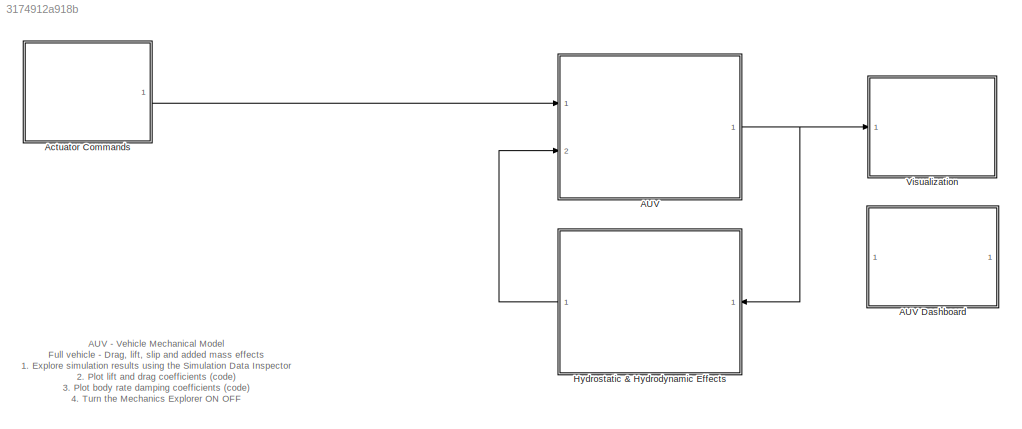
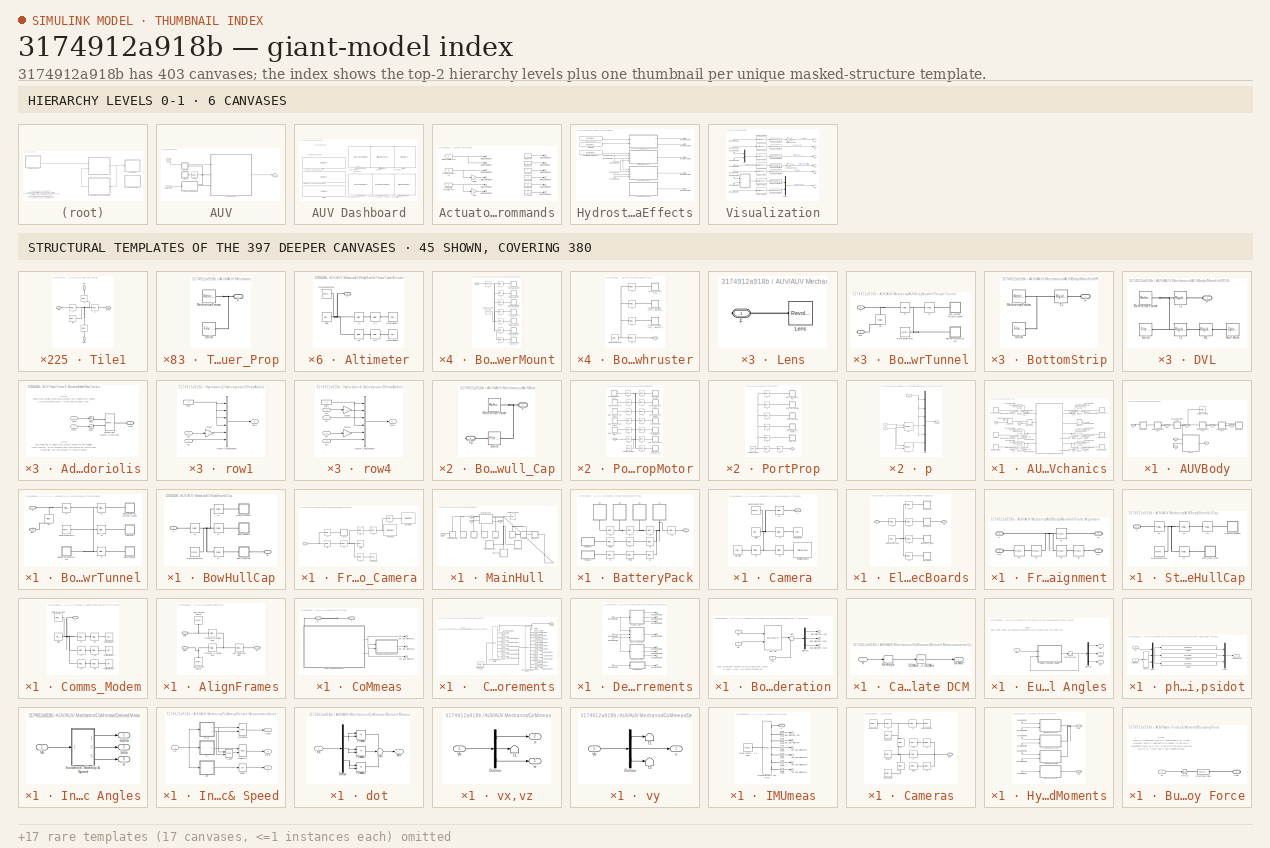
[diagram: thumbnail index - top-2 hierarchy levels (6 canvases) + 45 structural-template representatives of the remaining 397 canvases]
MODEL slx_3174912a918b
KIND model
CONFIG AbsTol = auto
CONFIG EnableMultiTasking = on
CONFIG FixedStep = auto
CONFIG MaxStep = 0.01
CONFIG MinStep = auto
CONFIG PreLoadFcn = AUV_VehicleParameters;\nVehicle.Body.markeropacity = 0;
CONFIG RelTol = 1e-3
CONFIG SampleTimeConstraint = Unconstrained
CONFIG SolverName = ode23t
CONFIG StartTime = 0.0
CONFIG StopTime = 60
WORKSPACE source: external: MATLAB File  (data not in archive)
BLOCK [SubSystem] AUV
  Ports = [2, 1]
  RequestExecContextInheritance = off
BLOCK [SubSystem] AUV Dashboard
  Ports = []
  RequestExecContextInheritance = off
BLOCK [AirspeedIndicatorBlock] AUV Dashboard/Airspeed Indicator
  LabelPosition = Hide
  ScaleMax = 9
  ScaleMin = 0
BLOCK [AltimeterBlock] AUV Dashboard/Altimeter
  LabelPosition = Hide
BLOCK [ArtificialHorizonBlock] AUV Dashboard/Artificial Horizon
  LabelPosition = Hide
BLOCK [ClimbIndicatorBlock] AUV Dashboard/Climb Rate Indicator
  LabelPosition = Hide
BLOCK [HeadingIndicatorBlock] AUV Dashboard/Heading Indicator
  LabelPosition = Hide
BLOCK [SliderBlock] AUV Dashboard/Slider
  LabelPosition = Hide
  ScaleMax = 10
  TickInterval = 2
BLOCK [SliderBlock] AUV Dashboard/Slider1
  LabelPosition = Hide
  ScaleMax = 4
  ScaleMin = -4
  TickInterval = 2
BLOCK [SliderBlock] AUV Dashboard/Slider2
  LabelPosition = Hide
  ScaleMax = 4
  ScaleMin = -4
  TickInterval = 2
BLOCK [TurnCoordinatorBlock] AUV Dashboard/Turn Coordinator
  LabelPosition = Hide
BLOCK [Reference] AUV/6-DOF  REF=sm_lib/Joints/6-DOF Joint
  Ports = [0, 0, 0, 0, 0, 1, 1]
  SourceBlock = sm_lib/Joints/6-DOF Joint
  SourceProductBaseCode = MS
  SourceType = 6-DOF Joint
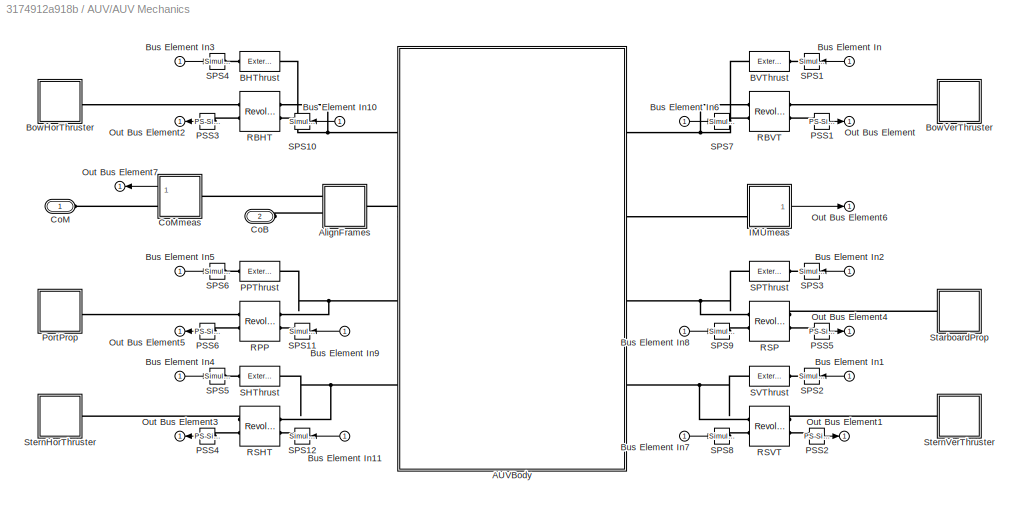
BLOCK [SubSystem] AUV/AUV Mechanics
  Ports = [1, 1, 0, 0, 0, 2]
  RequestExecContextInheritance = off
BLOCK [SubSystem] AUV/AUV Mechanics/AUVBody
  Ports = [0, 0, 0, 0, 0, 4, 4]
  RequestExecContextInheritance = off
BLOCK [PMIOPort] AUV/AUV Mechanics/AUVBody/BHT
  Side = Left
BLOCK [PMIOPort] AUV/AUV Mechanics/AUVBody/BVT
  Port = 2
  Side = Right
BLOCK [SubSystem] AUV/AUV Mechanics/AUVBody/BowHorThrusterTunnel
  PortSchema = {"entries":[{"content":{"sides":[{"content":{"connectorIds":[]},"type":"ConnectorPlacement.EquallySpacedRectSide","uuid":"4ed08382-faad-44b6-b48b-55aec1852bc8"},{"content":{"connectorIds":["RConn1"],"side":"RIGHT"},"type":"ConnectorPlacement.EquallySpacedRectSide","uuid":"f82da02f-1c57-4ab6-ab88-6cf954e3e010"},{"content":{"connectorIds":["LConn1"],"side":"TOP"},"type":"ConnectorPlacement.EquallySp...<+247ch>
  Ports = [0, 0, 0, 0, 0, 1, 1]
  RequestExecContextInheritance = off
BLOCK [SubSystem] AUV/AUV Mechanics/AUVBody/BowHorThrusterTunnel/Altimeter
  Ports = [0, 0, 0, 0, 0, 1]
  RequestExecContextInheritance = off
BLOCK [PMIOPort] AUV/AUV Mechanics/AUVBody/BowHorThrusterTunnel/Altimeter/F
  Side = Left
BLOCK [Reference] AUV/AUV Mechanics/AUVBody/BowHorThrusterTunnel/Altimeter/R1  REF=sm_lib/Frames and
Transforms/Rigid
Transform
  Ports = [0, 0, 0, 0, 0, 1, 1]
  SourceBlock = sm_lib/Frames and\nTransforms/Rigid\nTransform
  SourceProductBaseCode = MS
  SourceType = Rigid\nTransform
BLOCK [Reference] AUV/AUV Mechanics/AUVBody/BowHorThrusterTunnel/Altimeter/R2  REF=sm_lib/Frames and
Transforms/Rigid
Transform
  Ports = [0, 0, 0, 0, 0, 1, 1]
  SourceBlock = sm_lib/Frames and\nTransforms/Rigid\nTransform
  SourceProductBaseCode = MS
  SourceType = Rigid\nTransform
BLOCK [Reference] AUV/AUV Mechanics/AUVBody/BowHorThrusterTunnel/Altimeter/RedCylinder1  REF=sm_lib/Body Elements/Cylindrical Solid
  Ports = [0, 0, 0, 0, 0, 0, 1]
  SourceBlock = sm_lib/Body Elements/Cylindrical Solid
  SourceProductBaseCode = MS
  SourceType = Cylindrical Solid
BLOCK [Reference] AUV/AUV Mechanics/AUVBody/BowHorThrusterTunnel/Altimeter/RedCylinder2  REF=sm_lib/Body Elements/Cylindrical Solid
  Ports = [0, 0, 0, 0, 0, 0, 1]
  SourceBlock = sm_lib/Body Elements/Cylindrical Solid
  SourceProductBaseCode = MS
  SourceType = Cylindrical Solid
BLOCK [Reference] AUV/AUV Mechanics/AUVBody/BowHorThrusterTunnel/Altimeter/ReferenceFrame  REF=sm_lib/Frames and
Transforms/Reference
Frame
  Ports = [0, 0, 0, 0, 0, 0, 1]
  SourceBlock = sm_lib/Frames and\nTransforms/Reference\nFrame
  SourceProductBaseCode = MS
  SourceType = Reference\nFrame
BLOCK [Reference] AUV/AUV Mechanics/AUVBody/BowHorThrusterTunnel/Altimeter/Solid  REF=sm_lib/Body Elements/File Solid
  Ports = [0, 0, 0, 0, 0, 0, 1]
  SourceBlock = sm_lib/Body Elements/File Solid
  SourceProductBaseCode = MS
  SourceType = File Solid
BLOCK [Reference] AUV/AUV Mechanics/AUVBody/BowHorThrusterTunnel/Altimeter/T1  REF=sm_lib/Frames and
Transforms/Rigid
Transform
  Ports = [0, 0, 0, 0, 0, 1, 1]
  SourceBlock = sm_lib/Frames and\nTransforms/Rigid\nTransform
  SourceProductBaseCode = MS
  SourceType = Rigid\nTransform
BLOCK [Reference] AUV/AUV Mechanics/AUVBody/BowHorThrusterTunnel/Altimeter/T2  REF=sm_lib/Frames and
Transforms/Rigid
Transform
  Ports = [0, 0, 0, 0, 0, 1, 1]
  SourceBlock = sm_lib/Frames and\nTransforms/Rigid\nTransform
  SourceProductBaseCode = MS
  SourceType = Rigid\nTransform
BLOCK [PMIOPort] AUV/AUV Mechanics/AUVBody/BowHorThrusterTunnel/BHT
  Port = 2
  Side = Right
BLOCK [SubSystem] AUV/AUV Mechanics/AUVBody/BowHorThrusterTunnel/BowHorThrusterMount
  Ports = [0, 0, 0, 0, 0, 0, 1]
  RequestExecContextInheritance = off
BLOCK [PMIOPort] AUV/AUV Mechanics/AUVBody/BowHorThrusterTunnel/BowHorThrusterMount/F
  Side = Right
BLOCK [Reference] AUV/AUV Mechanics/AUVBody/BowHorThrusterTunnel/BowHorThrusterMount/ReferenceFrame  REF=sm_lib/Frames and
Transforms/Reference
Frame
  Ports = [0, 0, 0, 0, 0, 0, 1]
  SourceBlock = sm_lib/Frames and\nTransforms/Reference\nFrame
  SourceProductBaseCode = MS
  SourceType = Reference\nFrame
BLOCK [Reference] AUV/AUV Mechanics/AUVBody/BowHorThrusterTunnel/BowHorThrusterMount/T1  REF=sm_lib/Frames and
Transforms/Rigid
Transform
  Ports = [0, 0, 0, 0, 0, 1, 1]
  SourceBlock = sm_lib/Frames and\nTransforms/Rigid\nTransform
  SourceProductBaseCode = MS
  SourceType = Rigid\nTransform
BLOCK [Reference] AUV/AUV Mechanics/AUVBody/BowHorThrusterTunnel/BowHorThrusterMount/T2  REF=sm_lib/Frames and
Transforms/Rigid
Transform
  Ports = [0, 0, 0, 0, 0, 1, 1]
  SourceBlock = sm_lib/Frames and\nTransforms/Rigid\nTransform
  SourceProductBaseCode = MS
  SourceType = Rigid\nTransform
BLOCK [Reference] AUV/AUV Mechanics/AUVBody/BowHorThrusterTunnel/BowHorThrusterMount/T3  REF=sm_lib/Frames and
Transforms/Rigid
Transform
  Ports = [0, 0, 0, 0, 0, 1, 1]
  SourceBlock = sm_lib/Frames and\nTransforms/Rigid\nTransform
  SourceProductBaseCode = MS
  SourceType = Rigid\nTransform
BLOCK [Reference] AUV/AUV Mechanics/AUVBody/BowHorThrusterTunnel/BowHorThrusterMount/T4  REF=sm_lib/Frames and
Transforms/Rigid
Transform
  Ports = [0, 0, 0, 0, 0, 1, 1]
  SourceBlock = sm_lib/Frames and\nTransforms/Rigid\nTransform
  SourceProductBaseCode = MS
  SourceType = Rigid\nTransform
BLOCK [Reference] AUV/AUV Mechanics/AUVBody/BowHorThrusterTunnel/BowHorThrusterMount/T5  REF=sm_lib/Frames and
Transforms/Rigid
Transform
  Ports = [0, 0, 0, 0, 0, 1, 1]
  SourceBlock = sm_lib/Frames and\nTransforms/Rigid\nTransform
  SourceProductBaseCode = MS
  SourceType = Rigid\nTransform
BLOCK [Reference] AUV/AUV Mechanics/AUVBody/BowHorThrusterTunnel/BowHorThrusterMount/T6  REF=sm_lib/Frames and
Transforms/Rigid
Transform
  Ports = [0, 0, 0, 0, 0, 1, 1]
  SourceBlock = sm_lib/Frames and\nTransforms/Rigid\nTransform
  SourceProductBaseCode = MS
  SourceType = Rigid\nTransform
BLOCK [Reference] AUV/AUV Mechanics/AUVBody/BowHorThrusterTunnel/BowHorThrusterMount/T7  REF=sm_lib/Frames and
Transforms/Rigid
Transform
  Ports = [0, 0, 0, 0, 0, 1, 1]
  SourceBlock = sm_lib/Frames and\nTransforms/Rigid\nTransform
  SourceProductBaseCode = MS
  SourceType = Rigid\nTransform
BLOCK [Reference] AUV/AUV Mechanics/AUVBody/BowHorThrusterTunnel/BowHorThrusterMount/T8  REF=sm_lib/Frames and
Transforms/Rigid
Transform
  Ports = [0, 0, 0, 0, 0, 1, 1]
  SourceBlock = sm_lib/Frames and\nTransforms/Rigid\nTransform
  SourceProductBaseCode = MS
  SourceType = Rigid\nTransform
BLOCK [SubSystem] AUV/AUV Mechanics/AUVBody/BowHorThrusterTunnel/BowHorThrusterMount/Tunnel_Thruster_Prop_Hub_1
  Ports = [0, 0, 0, 0, 0, 1]
  RequestExecContextInheritance = off
BLOCK [PMIOPort] AUV/AUV Mechanics/AUVBody/BowHorThrusterTunnel/BowHorThrusterMount/Tunnel_Thruster_Prop_Hub_1/F
  Side = Left
BLOCK [Reference] AUV/AUV Mechanics/AUVBody/BowHorThrusterTunnel/BowHorThrusterMount/Tunnel_Thruster_Prop_Hub_1/ReferenceFrame  REF=sm_lib/Frames and
Transforms/Reference
Frame
  Ports = [0, 0, 0, 0, 0, 0, 1]
  SourceBlock = sm_lib/Frames and\nTransforms/Reference\nFrame
  SourceProductBaseCode = MS
  SourceType = Reference\nFrame
BLOCK [Reference] AUV/AUV Mechanics/AUVBody/BowHorThrusterTunnel/BowHorThrusterMount/Tunnel_Thruster_Prop_Hub_1/Solid  REF=sm_lib/Body Elements/File Solid
  Ports = [0, 0, 0, 0, 0, 0, 1]
  SourceBlock = sm_lib/Body Elements/File Solid
  SourceProductBaseCode = MS
  SourceType = File Solid
BLOCK [SubSystem] AUV/AUV Mechanics/AUVBody/BowHorThrusterTunnel/BowHorThrusterMount/Tunnel_Thruster_Prop_Hub_2
  Ports = [0, 0, 0, 0, 0, 1]
  RequestExecContextInheritance = off
BLOCK [PMIOPort] AUV/AUV Mechanics/AUVBody/BowHorThrusterTunnel/BowHorThrusterMount/Tunnel_Thruster_Prop_Hub_2/F
  Side = Left
BLOCK [Reference] AUV/AUV Mechanics/AUVBody/BowHorThrusterTunnel/BowHorThrusterMount/Tunnel_Thruster_Prop_Hub_2/ReferenceFrame  REF=sm_lib/Frames and
Transforms/Reference
Frame
  Ports = [0, 0, 0, 0, 0, 0, 1]
  SourceBlock = sm_lib/Frames and\nTransforms/Reference\nFrame
  SourceProductBaseCode = MS
  SourceType = Reference\nFrame
BLOCK [Reference] AUV/AUV Mechanics/AUVBody/BowHorThrusterTunnel/BowHorThrusterMount/Tunnel_Thruster_Prop_Hub_2/Solid  REF=sm_lib/Body Elements/File Solid
  Ports = [0, 0, 0, 0, 0, 0, 1]
  SourceBlock = sm_lib/Body Elements/File Solid
  SourceProductBaseCode = MS
  SourceType = File Solid
BLOCK [SubSystem] AUV/AUV Mechanics/AUVBody/BowHorThrusterTunnel/BowHorThrusterMount/Tunnel_Thruster_Prop_Mount
  Ports = [0, 0, 0, 0, 0, 1]
  RequestExecContextInheritance = off
BLOCK [PMIOPort] AUV/AUV Mechanics/AUVBody/BowHorThrusterTunnel/BowHorThrusterMount/Tunnel_Thruster_Prop_Mount/F
  Side = Left
BLOCK [Reference] AUV/AUV Mechanics/AUVBody/BowHorThrusterTunnel/BowHorThrusterMount/Tunnel_Thruster_Prop_Mount/ReferenceFrame  REF=sm_lib/Frames and
Transforms/Reference
Frame
  Ports = [0, 0, 0, 0, 0, 0, 1]
  SourceBlock = sm_lib/Frames and\nTransforms/Reference\nFrame
  SourceProductBaseCode = MS
  SourceType = Reference\nFrame
BLOCK [Reference] AUV/AUV Mechanics/AUVBody/BowHorThrusterTunnel/BowHorThrusterMount/Tunnel_Thruster_Prop_Mount/Solid  REF=sm_lib/Body Elements/File Solid
  Ports = [0, 0, 0, 0, 0, 0, 1]
  SourceBlock = sm_lib/Body Elements/File Solid
  SourceProductBaseCode = MS
  SourceType = File Solid
BLOCK [SubSystem] AUV/AUV Mechanics/AUVBody/BowHorThrusterTunnel/BowHorThrusterMount/Tunnel_Thruster_Shoulder_Bolt_1
  Ports = [0, 0, 0, 0, 0, 1]
  RequestExecContextInheritance = off
BLOCK [PMIOPort] AUV/AUV Mechanics/AUVBody/BowHorThrusterTunnel/BowHorThrusterMount/Tunnel_Thruster_Shoulder_Bolt_1/F
  Side = Left
BLOCK [Reference] AUV/AUV Mechanics/AUVBody/BowHorThrusterTunnel/BowHorThrusterMount/Tunnel_Thruster_Shoulder_Bolt_1/ReferenceFrame  REF=sm_lib/Frames and
Transforms/Reference
Frame
  Ports = [0, 0, 0, 0, 0, 0, 1]
  SourceBlock = sm_lib/Frames and\nTransforms/Reference\nFrame
  SourceProductBaseCode = MS
  SourceType = Reference\nFrame
BLOCK [Reference] AUV/AUV Mechanics/AUVBody/BowHorThrusterTunnel/BowHorThrusterMount/Tunnel_Thruster_Shoulder_Bolt_1/Solid  REF=sm_lib/Body Elements/File Solid
  Ports = [0, 0, 0, 0, 0, 0, 1]
  SourceBlock = sm_lib/Body Elements/File Solid
  SourceProductBaseCode = MS
  SourceType = File Solid
BLOCK [SubSystem] AUV/AUV Mechanics/AUVBody/BowHorThrusterTunnel/BowHorThrusterMount/Tunnel_Thruster_Shoulder_Bolt_2
  Ports = [0, 0, 0, 0, 0, 1]
  RequestExecContextInheritance = off
BLOCK [PMIOPort] AUV/AUV Mechanics/AUVBody/BowHorThrusterTunnel/BowHorThrusterMount/Tunnel_Thruster_Shoulder_Bolt_2/F
  Side = Left
BLOCK [Reference] AUV/AUV Mechanics/AUVBody/BowHorThrusterTunnel/BowHorThrusterMount/Tunnel_Thruster_Shoulder_Bolt_2/ReferenceFrame  REF=sm_lib/Frames and
Transforms/Reference
Frame
  Ports = [0, 0, 0, 0, 0, 0, 1]
  SourceBlock = sm_lib/Frames and\nTransforms/Reference\nFrame
  SourceProductBaseCode = MS
  SourceType = Reference\nFrame
BLOCK [Reference] AUV/AUV Mechanics/AUVBody/BowHorThrusterTunnel/BowHorThrusterMount/Tunnel_Thruster_Shoulder_Bolt_2/Solid  REF=sm_lib/Body Elements/File Solid
  Ports = [0, 0, 0, 0, 0, 0, 1]
  SourceBlock = sm_lib/Body Elements/File Solid
  SourceProductBaseCode = MS
  SourceType = File Solid
BLOCK [SubSystem] AUV/AUV Mechanics/AUVBody/BowHorThrusterTunnel/BowHorThrusterMount/Tunnel_Thruster_Washer_1
  Ports = [0, 0, 0, 0, 0, 1]
  RequestExecContextInheritance = off
BLOCK [PMIOPort] AUV/AUV Mechanics/AUVBody/BowHorThrusterTunnel/BowHorThrusterMount/Tunnel_Thruster_Washer_1/F
  Side = Left
BLOCK [Reference] AUV/AUV Mechanics/AUVBody/BowHorThrusterTunnel/BowHorThrusterMount/Tunnel_Thruster_Washer_1/ReferenceFrame  REF=sm_lib/Frames and
Transforms/Reference
Frame
  Ports = [0, 0, 0, 0, 0, 0, 1]
  SourceBlock = sm_lib/Frames and\nTransforms/Reference\nFrame
  SourceProductBaseCode = MS
  SourceType = Reference\nFrame
BLOCK [Reference] AUV/AUV Mechanics/AUVBody/BowHorThrusterTunnel/BowHorThrusterMount/Tunnel_Thruster_Washer_1/Solid  REF=sm_lib/Body Elements/File Solid
  Ports = [0, 0, 0, 0, 0, 0, 1]
  SourceBlock = sm_lib/Body Elements/File Solid
  SourceProductBaseCode = MS
  SourceType = File Solid
BLOCK [SubSystem] AUV/AUV Mechanics/AUVBody/BowHorThrusterTunnel/BowHorThrusterMount/Tunnel_Thruster_Washer_2
  Ports = [0, 0, 0, 0, 0, 1]
  RequestExecContextInheritance = off
BLOCK [PMIOPort] AUV/AUV Mechanics/AUVBody/BowHorThrusterTunnel/BowHorThrusterMount/Tunnel_Thruster_Washer_2/F
  Side = Left
BLOCK [Reference] AUV/AUV Mechanics/AUVBody/BowHorThrusterTunnel/BowHorThrusterMount/Tunnel_Thruster_Washer_2/ReferenceFrame  REF=sm_lib/Frames and
Transforms/Reference
Frame
  Ports = [0, 0, 0, 0, 0, 0, 1]
  SourceBlock = sm_lib/Frames and\nTransforms/Reference\nFrame
  SourceProductBaseCode = MS
  SourceType = Reference\nFrame
BLOCK [Reference] AUV/AUV Mechanics/AUVBody/BowHorThrusterTunnel/BowHorThrusterMount/Tunnel_Thruster_Washer_2/Solid  REF=sm_lib/Body Elements/File Solid
  Ports = [0, 0, 0, 0, 0, 0, 1]
  SourceBlock = sm_lib/Body Elements/File Solid
  SourceProductBaseCode = MS
  SourceType = File Solid
BLOCK [SubSystem] AUV/AUV Mechanics/AUVBody/BowHorThrusterTunnel/Bow_Horizontal_Thruster_Tunnel
  Ports = [0, 0, 0, 0, 0, 1]
  RequestExecContextInheritance = off
BLOCK [PMIOPort] AUV/AUV Mechanics/AUVBody/BowHorThrusterTunnel/Bow_Horizontal_Thruster_Tunnel/F
  Side = Left
BLOCK [Reference] AUV/AUV Mechanics/AUVBody/BowHorThrusterTunnel/Bow_Horizontal_Thruster_Tunnel/ReferenceFrame  REF=sm_lib/Frames and
Transforms/Reference
Frame
  Ports = [0, 0, 0, 0, 0, 0, 1]
  SourceBlock = sm_lib/Frames and\nTransforms/Reference\nFrame
  SourceProductBaseCode = MS
  SourceType = Reference\nFrame
BLOCK [Reference] AUV/AUV Mechanics/AUVBody/BowHorThrusterTunnel/Bow_Horizontal_Thruster_Tunnel/Solid  REF=sm_lib/Body Elements/File Solid
  Ports = [0, 0, 0, 0, 0, 0, 1]
  SourceBlock = sm_lib/Body Elements/File Solid
  SourceProductBaseCode = MS
  SourceType = File Solid
BLOCK [SubSystem] AUV/AUV Mechanics/AUVBody/BowHorThrusterTunnel/Depth_Sensor
  Ports = [0, 0, 0, 0, 0, 1]
  RequestExecContextInheritance = off
BLOCK [PMIOPort] AUV/AUV Mechanics/AUVBody/BowHorThrusterTunnel/Depth_Sensor/F
  Side = Left
BLOCK [Reference] AUV/AUV Mechanics/AUVBody/BowHorThrusterTunnel/Depth_Sensor/R1  REF=sm_lib/Frames and
Transforms/Rigid
Transform
  Ports = [0, 0, 0, 0, 0, 1, 1]
  SourceBlock = sm_lib/Frames and\nTransforms/Rigid\nTransform
  SourceProductBaseCode = MS
  SourceType = Rigid\nTransform
BLOCK [Reference] AUV/AUV Mechanics/AUVBody/BowHorThrusterTunnel/Depth_Sensor/R2  REF=sm_lib/Frames and
Transforms/Rigid
Transform
  Ports = [0, 0, 0, 0, 0, 1, 1]
  SourceBlock = sm_lib/Frames and\nTransforms/Rigid\nTransform
  SourceProductBaseCode = MS
  SourceType = Rigid\nTransform
BLOCK [Reference] AUV/AUV Mechanics/AUVBody/BowHorThrusterTunnel/Depth_Sensor/ReferenceFrame  REF=sm_lib/Frames and
Transforms/Reference
Frame
  Ports = [0, 0, 0, 0, 0, 0, 1]
  SourceBlock = sm_lib/Frames and\nTransforms/Reference\nFrame
  SourceProductBaseCode = MS
  SourceType = Reference\nFrame
BLOCK [Reference] AUV/AUV Mechanics/AUVBody/BowHorThrusterTunnel/Depth_Sensor/Solid  REF=sm_lib/Body Elements/File Solid
  Ports = [0, 0, 0, 0, 0, 0, 1]
  SourceBlock = sm_lib/Body Elements/File Solid
  SourceProductBaseCode = MS
  SourceType = File Solid
BLOCK [Reference] AUV/AUV Mechanics/AUVBody/BowHorThrusterTunnel/Depth_Sensor/T1  REF=sm_lib/Frames and
Transforms/Rigid
Transform
  Ports = [0, 0, 0, 0, 0, 1, 1]
  SourceBlock = sm_lib/Frames and\nTransforms/Rigid\nTransform
  SourceProductBaseCode = MS
  SourceType = Rigid\nTransform
BLOCK [Reference] AUV/AUV Mechanics/AUVBody/BowHorThrusterTunnel/Depth_Sensor/T2  REF=sm_lib/Frames and
Transforms/Rigid
Transform
  Ports = [0, 0, 0, 0, 0, 1, 1]
  SourceBlock = sm_lib/Frames and\nTransforms/Rigid\nTransform
  SourceProductBaseCode = MS
  SourceType = Rigid\nTransform
BLOCK [Reference] AUV/AUV Mechanics/AUVBody/BowHorThrusterTunnel/Depth_Sensor/WhiteCylinder1  REF=sm_lib/Body Elements/Cylindrical Solid
  Ports = [0, 0, 0, 0, 0, 0, 1]
  SourceBlock = sm_lib/Body Elements/Cylindrical Solid
  SourceProductBaseCode = MS
  SourceType = Cylindrical Solid
BLOCK [Reference] AUV/AUV Mechanics/AUVBody/BowHorThrusterTunnel/Depth_Sensor/WhiteCylinder2  REF=sm_lib/Body Elements/Cylindrical Solid
  Ports = [0, 0, 0, 0, 0, 0, 1]
  SourceBlock = sm_lib/Body Elements/Cylindrical Solid
  SourceProductBaseCode = MS
  SourceType = Cylindrical Solid
BLOCK [PMIOPort] AUV/AUV Mechanics/AUVBody/BowHorThrusterTunnel/F
  Side = Left
BLOCK [Reference] AUV/AUV Mechanics/AUVBody/BowHorThrusterTunnel/ReferenceFrame  REF=sm_lib/Frames and
Transforms/Reference
Frame
  Ports = [0, 0, 0, 0, 0, 0, 1]
  SourceBlock = sm_lib/Frames and\nTransforms/Reference\nFrame
  SourceProductBaseCode = MS
  SourceType = Reference\nFrame
BLOCK [Reference] AUV/AUV Mechanics/AUVBody/BowHorThrusterTunnel/T1  REF=sm_lib/Frames and
Transforms/Rigid
Transform
  Ports = [0, 0, 0, 0, 0, 1, 1]
  SourceBlock = sm_lib/Frames and\nTransforms/Rigid\nTransform
  SourceProductBaseCode = MS
  SourceType = Rigid\nTransform
BLOCK [Reference] AUV/AUV Mechanics/AUVBody/BowHorThrusterTunnel/T2  REF=sm_lib/Frames and
Transforms/Rigid
Transform
  Ports = [0, 0, 0, 0, 0, 1, 1]
  SourceBlock = sm_lib/Frames and\nTransforms/Rigid\nTransform
  SourceProductBaseCode = MS
  SourceType = Rigid\nTransform
BLOCK [Reference] AUV/AUV Mechanics/AUVBody/BowHorThrusterTunnel/T3  REF=sm_lib/Frames and
Transforms/Rigid
Transform
  Ports = [0, 0, 0, 0, 0, 1, 1]
  SourceBlock = sm_lib/Frames and\nTransforms/Rigid\nTransform
  SourceProductBaseCode = MS
  SourceType = Rigid\nTransform
BLOCK [Reference] AUV/AUV Mechanics/AUVBody/BowHorThrusterTunnel/T4  REF=sm_lib/Frames and
Transforms/Rigid
Transform
  Ports = [0, 0, 0, 0, 0, 1, 1]
  SourceBlock = sm_lib/Frames and\nTransforms/Rigid\nTransform
  SourceProductBaseCode = MS
  SourceType = Rigid\nTransform
BLOCK [Reference] AUV/AUV Mechanics/AUVBody/BowHorThrusterTunnel/T5  REF=sm_lib/Frames and
Transforms/Rigid
Transform
  NameLocation = left
  Ports = [0, 0, 0, 0, 0, 1, 1]
  SourceBlock = sm_lib/Frames and\nTransforms/Rigid\nTransform
  SourceProductBaseCode = MS
  SourceType = Rigid\nTransform
BLOCK [SubSystem] AUV/AUV Mechanics/AUVBody/BowHullCap
  PortSchema = {"entries":[{"content":{"sides":[{"content":{"connectorIds":["LConn1"]},"type":"ConnectorPlacement.EquallySpacedRectSide","uuid":"ee174d83-7ec9-4f78-977a-5ac618f84910"},{"content":{"connectorIds":[],"side":"RIGHT"},"type":"ConnectorPlacement.EquallySpacedRectSide","uuid":"b1f8772f-a994-4bc2-984b-3dde78400d8f"},{"content":{"connectorIds":["LConn2"],"side":"TOP"},"type":"ConnectorPlacement.EquallySp...<+247ch>
  Ports = [0, 0, 0, 0, 0, 2]
  RequestExecContextInheritance = off
BLOCK [SubSystem] AUV/AUV Mechanics/AUVBody/BowHullCap/Bow_Hull_Cap
  Ports = [0, 0, 0, 0, 0, 1, 1]
  RequestExecContextInheritance = off
BLOCK [PMIOPort] AUV/AUV Mechanics/AUVBody/BowHullCap/Bow_Hull_Cap/F
  Side = Left
BLOCK [Reference] AUV/AUV Mechanics/AUVBody/BowHullCap/Bow_Hull_Cap/ReferenceFrame  REF=sm_lib/Frames and
Transforms/Reference
Frame
  Ports = [0, 0, 0, 0, 0, 0, 1]
  SourceBlock = sm_lib/Frames and\nTransforms/Reference\nFrame
  SourceProductBaseCode = MS
  SourceType = Reference\nFrame
BLOCK [Reference] AUV/AUV Mechanics/AUVBody/BowHullCap/Bow_Hull_Cap/Solid  REF=sm_lib/Body Elements/File Solid
  Ports = [0, 0, 0, 0, 0, 1, 1]
  SourceBlock = sm_lib/Body Elements/File Solid
  SourceProductBaseCode = MS
  SourceType = File Solid
BLOCK [PMIOPort] AUV/AUV Mechanics/AUVBody/BowHullCap/Bow_Hull_Cap/Tip
  Port = 2
  Side = Right
BLOCK [SubSystem] AUV/AUV Mechanics/AUVBody/BowHullCap/Bow_Sensors
  Ports = [0, 0, 0, 0, 0, 1]
  RequestExecContextInheritance = off
BLOCK [PMIOPort] AUV/AUV Mechanics/AUVBody/BowHullCap/Bow_Sensors/F
  Side = Left
BLOCK [Reference] AUV/AUV Mechanics/AUVBody/BowHullCap/Bow_Sensors/ReferenceFrame  REF=sm_lib/Frames and
Transforms/Reference
Frame
  Ports = [0, 0, 0, 0, 0, 0, 1]
  SourceBlock = sm_lib/Frames and\nTransforms/Reference\nFrame
  SourceProductBaseCode = MS
  SourceType = Reference\nFrame
BLOCK [Reference] AUV/AUV Mechanics/AUVBody/BowHullCap/Bow_Sensors/Solid  REF=sm_lib/Body Elements/File Solid
  Ports = [0, 0, 0, 0, 0, 0, 1]
  SourceBlock = sm_lib/Body Elements/File Solid
  SourceProductBaseCode = MS
  SourceType = File Solid
BLOCK [PMIOPort] AUV/AUV Mechanics/AUVBody/BowHullCap/F
  Port = 2
  Side = Left
BLOCK [SubSystem] AUV/AUV Mechanics/AUVBody/BowHullCap/Front_Camera
  Ports = [0, 0, 0, 0, 0, 1]
  RequestExecContextInheritance = off
BLOCK [Reference] AUV/AUV Mechanics/AUVBody/BowHullCap/Front_Camera/Camera Hole  REF=sm_lib/Body Elements/Cylindrical Solid
  Ports = [0, 0, 0, 0, 0, 0, 1]
  SourceBlock = sm_lib/Body Elements/Cylindrical Solid
  SourceProductBaseCode = MS
  SourceType = Cylindrical Solid
BLOCK [PMIOPort] AUV/AUV Mechanics/AUVBody/BowHullCap/Front_Camera/F
  Side = Left
BLOCK [Reference] AUV/AUV Mechanics/AUVBody/BowHullCap/Front_Camera/GrayButton  REF=AUVCustomPrimitives_Lib/Filleted Brick
  Ports = [0, 0, 0, 0, 0, 0, 1]
  SourceBlock = AUVCustomPrimitives_Lib/Filleted Brick
  SourceType = Filleted Brick
BLOCK [SubSystem] AUV/AUV Mechanics/AUVBody/BowHullCap/Front_Camera/Lens
  Ports = [0, 0, 0, 0, 0, 0, 1]
  RequestExecContextInheritance = off
BLOCK [PMIOPort] AUV/AUV Mechanics/AUVBody/BowHullCap/Front_Camera/Lens/F
  Side = Right
BLOCK [Reference] AUV/AUV Mechanics/AUVBody/BowHullCap/Front_Camera/Lens/Lens  REF=sm_lib/Body Elements/Revolved Solid
  Ports = [0, 0, 0, 0, 0, 0, 1]
  SourceBlock = sm_lib/Body Elements/Revolved Solid
  SourceProductBaseCode = MS
  SourceType = Revolved Solid
BLOCK [Reference] AUV/AUV Mechanics/AUVBody/BowHullCap/Front_Camera/R1  REF=sm_lib/Frames and
Transforms/Rigid
Transform
  Ports = [0, 0, 0, 0, 0, 1, 1]
  SourceBlock = sm_lib/Frames and\nTransforms/Rigid\nTransform
  SourceProductBaseCode = MS
  SourceType = Rigid\nTransform
BLOCK [Reference] AUV/AUV Mechanics/AUVBody/BowHullCap/Front_Camera/R2  REF=sm_lib/Frames and
Transforms/Rigid
Transform
  Ports = [0, 0, 0, 0, 0, 1, 1]
  SourceBlock = sm_lib/Frames and\nTransforms/Rigid\nTransform
  SourceProductBaseCode = MS
  SourceType = Rigid\nTransform
BLOCK [Reference] AUV/AUV Mechanics/AUVBody/BowHullCap/Front_Camera/RedButton  REF=AUVCustomPrimitives_Lib/Filleted Brick
  Ports = [0, 0, 0, 0, 0, 0, 1]
  SourceBlock = AUVCustomPrimitives_Lib/Filleted Brick
  SourceType = Filleted Brick
BLOCK [Reference] AUV/AUV Mechanics/AUVBody/BowHullCap/Front_Camera/Solid  REF=sm_lib/Body Elements/File Solid
  Ports = [0, 0, 0, 0, 0, 0, 1]
  SourceBlock = sm_lib/Body Elements/File Solid
  SourceProductBaseCode = MS
  SourceType = File Solid
BLOCK [Reference] AUV/AUV Mechanics/AUVBody/BowHullCap/Front_Camera/T1  REF=sm_lib/Frames and
Transforms/Rigid
Transform
  Ports = [0, 0, 0, 0, 0, 1, 1]
  SourceBlock = sm_lib/Frames and\nTransforms/Rigid\nTransform
  SourceProductBaseCode = MS
  SourceType = Rigid\nTransform
BLOCK [Reference] AUV/AUV Mechanics/AUVBody/BowHullCap/Front_Camera/T2  REF=sm_lib/Frames and
Transforms/Rigid
Transform
  Ports = [0, 0, 0, 0, 0, 1, 1]
  SourceBlock = sm_lib/Frames and\nTransforms/Rigid\nTransform
  SourceProductBaseCode = MS
  SourceType = Rigid\nTransform
BLOCK [Reference] AUV/AUV Mechanics/AUVBody/BowHullCap/Front_Camera/T3  REF=sm_lib/Frames and
Transforms/Rigid
Transform
  Ports = [0, 0, 0, 0, 0, 1, 1]
  SourceBlock = sm_lib/Frames and\nTransforms/Rigid\nTransform
  SourceProductBaseCode = MS
  SourceType = Rigid\nTransform
BLOCK [Reference] AUV/AUV Mechanics/AUVBody/BowHullCap/Front_Camera/T4  REF=sm_lib/Frames and
Transforms/Rigid
Transform
  Ports = [0, 0, 0, 0, 0, 1, 1]
  SourceBlock = sm_lib/Frames and\nTransforms/Rigid\nTransform
  SourceProductBaseCode = MS
  SourceType = Rigid\nTransform
BLOCK [Reference] AUV/AUV Mechanics/AUVBody/BowHullCap/Front_Camera/T5  REF=sm_lib/Frames and
Transforms/Rigid
Transform
  Ports = [0, 0, 0, 0, 0, 1, 1]
  SourceBlock = sm_lib/Frames and\nTransforms/Rigid\nTransform
  SourceProductBaseCode = MS
  SourceType = Rigid\nTransform
BLOCK [Reference] AUV/AUV Mechanics/AUVBody/BowHullCap/ReferenceFrame  REF=sm_lib/Frames and
Transforms/Reference
Frame
  Ports = [0, 0, 0, 0, 0, 0, 1]
  SourceBlock = sm_lib/Frames and\nTransforms/Reference\nFrame
  SourceProductBaseCode = MS
  SourceType = Reference\nFrame
BLOCK [Reference] AUV/AUV Mechanics/AUVBody/BowHullCap/T1  REF=sm_lib/Frames and
Transforms/Rigid
Transform
  Ports = [0, 0, 0, 0, 0, 1, 1]
  SourceBlock = sm_lib/Frames and\nTransforms/Rigid\nTransform
  SourceProductBaseCode = MS
  SourceType = Rigid\nTransform
BLOCK [Reference] AUV/AUV Mechanics/AUVBody/BowHullCap/T2  REF=sm_lib/Frames and
Transforms/Rigid
Transform
  Ports = [0, 0, 0, 0, 0, 1, 1]
  SourceBlock = sm_lib/Frames and\nTransforms/Rigid\nTransform
  SourceProductBaseCode = MS
  SourceType = Rigid\nTransform
BLOCK [Reference] AUV/AUV Mechanics/AUVBody/BowHullCap/T3  REF=sm_lib/Frames and
Transforms/Rigid
Transform
  Ports = [0, 0, 0, 0, 0, 1, 1]
  SourceBlock = sm_lib/Frames and\nTransforms/Rigid\nTransform
  SourceProductBaseCode = MS
  SourceType = Rigid\nTransform
BLOCK [Reference] AUV/AUV Mechanics/AUVBody/BowHullCap/T4  REF=sm_lib/Frames and
Transforms/Rigid
Transform
  Ports = [0, 0, 0, 0, 0, 1, 1]
  SourceBlock = sm_lib/Frames and\nTransforms/Rigid\nTransform
  SourceProductBaseCode = MS
  SourceType = Rigid\nTransform
BLOCK [PMIOPort] AUV/AUV Mechanics/AUVBody/BowHullCap/Tip
  Side = Left
BLOCK [SubSystem] AUV/AUV Mechanics/AUVBody/BowVerThrusterTunnel
  PortSchema = {"entries":[{"content":{"sides":[{"content":{"connectorIds":[]},"type":"ConnectorPlacement.EquallySpacedRectSide","uuid":"1a213aad-fe79-4629-9576-af927b73c724"},{"content":{"connectorIds":["RConn1"],"side":"RIGHT"},"type":"ConnectorPlacement.EquallySpacedRectSide","uuid":"bc8c7819-b1a4-4404-9606-1fc6a621b846"},{"content":{"connectorIds":["LConn1"],"side":"TOP"},"type":"ConnectorPlacement.EquallySp...<+247ch>  <repeated x3 — deduplicated; at blocks: BowVerThrusterTunnel, SternHorThrusterTunnel, SternVerThrusterTunnel>
  Ports = [0, 0, 0, 0, 0, 1, 1]
  RequestExecContextInheritance = off
BLOCK [PMIOPort] AUV/AUV Mechanics/AUVBody/BowVerThrusterTunnel/BVT
  Port = 2
  Side = Right
BLOCK [SubSystem] AUV/AUV Mechanics/AUVBody/BowVerThrusterTunnel/BowVerThrusterMount
  Ports = [0, 0, 0, 0, 0, 1]
  RequestExecContextInheritance = off
BLOCK [PMIOPort] AUV/AUV Mechanics/AUVBody/BowVerThrusterTunnel/BowVerThrusterMount/F
  Side = Left
BLOCK [Reference] AUV/AUV Mechanics/AUVBody/BowVerThrusterTunnel/BowVerThrusterMount/ReferenceFrame  REF=sm_lib/Frames and
Transforms/Reference
Frame
  Ports = [0, 0, 0, 0, 0, 0, 1]
  SourceBlock = sm_lib/Frames and\nTransforms/Reference\nFrame
  SourceProductBaseCode = MS
  SourceType = Reference\nFrame
BLOCK [Reference] AUV/AUV Mechanics/AUVBody/BowVerThrusterTunnel/BowVerThrusterMount/T1  REF=sm_lib/Frames and
Transforms/Rigid
Transform
  Ports = [0, 0, 0, 0, 0, 1, 1]
  SourceBlock = sm_lib/Frames and\nTransforms/Rigid\nTransform
  SourceProductBaseCode = MS
  SourceType = Rigid\nTransform
BLOCK [Reference] AUV/AUV Mechanics/AUVBody/BowVerThrusterTunnel/BowVerThrusterMount/T2  REF=sm_lib/Frames and
Transforms/Rigid
Transform
  Ports = [0, 0, 0, 0, 0, 1, 1]
  SourceBlock = sm_lib/Frames and\nTransforms/Rigid\nTransform
  SourceProductBaseCode = MS
  SourceType = Rigid\nTransform
BLOCK [Reference] AUV/AUV Mechanics/AUVBody/BowVerThrusterTunnel/BowVerThrusterMount/T3  REF=sm_lib/Frames and
Transforms/Rigid
Transform
  Ports = [0, 0, 0, 0, 0, 1, 1]
  SourceBlock = sm_lib/Frames and\nTransforms/Rigid\nTransform
  SourceProductBaseCode = MS
  SourceType = Rigid\nTransform
BLOCK [Reference] AUV/AUV Mechanics/AUVBody/BowVerThrusterTunnel/BowVerThrusterMount/T4  REF=sm_lib/Frames and
Transforms/Rigid
Transform
  Ports = [0, 0, 0, 0, 0, 1, 1]
  SourceBlock = sm_lib/Frames and\nTransforms/Rigid\nTransform
  SourceProductBaseCode = MS
  SourceType = Rigid\nTransform
BLOCK [Reference] AUV/AUV Mechanics/AUVBody/BowVerThrusterTunnel/BowVerThrusterMount/T5  REF=sm_lib/Frames and
Transforms/Rigid
Transform
  Ports = [0, 0, 0, 0, 0, 1, 1]
  SourceBlock = sm_lib/Frames and\nTransforms/Rigid\nTransform
  SourceProductBaseCode = MS
  SourceType = Rigid\nTransform
BLOCK [Reference] AUV/AUV Mechanics/AUVBody/BowVerThrusterTunnel/BowVerThrusterMount/T6  REF=sm_lib/Frames and
Transforms/Rigid
Transform
  Ports = [0, 0, 0, 0, 0, 1, 1]
  SourceBlock = sm_lib/Frames and\nTransforms/Rigid\nTransform
  SourceProductBaseCode = MS
  SourceType = Rigid\nTransform
BLOCK [Reference] AUV/AUV Mechanics/AUVBody/BowVerThrusterTunnel/BowVerThrusterMount/T7  REF=sm_lib/Frames and
Transforms/Rigid
Transform
  Ports = [0, 0, 0, 0, 0, 1, 1]
  SourceBlock = sm_lib/Frames and\nTransforms/Rigid\nTransform
  SourceProductBaseCode = MS
  SourceType = Rigid\nTransform
BLOCK [Reference] AUV/AUV Mechanics/AUVBody/BowVerThrusterTunnel/BowVerThrusterMount/T8  REF=sm_lib/Frames and
Transforms/Rigid
Transform
  Ports = [0, 0, 0, 0, 0, 1, 1]
  SourceBlock = sm_lib/Frames and\nTransforms/Rigid\nTransform
  SourceProductBaseCode = MS
  SourceType = Rigid\nTransform
BLOCK [SubSystem] AUV/AUV Mechanics/AUVBody/BowVerThrusterTunnel/BowVerThrusterMount/Tunnel_Thruster_Prop_Hub_1
  Ports = [0, 0, 0, 0, 0, 1]
  RequestExecContextInheritance = off
BLOCK [PMIOPort] AUV/AUV Mechanics/AUVBody/BowVerThrusterTunnel/BowVerThrusterMount/Tunnel_Thruster_Prop_Hub_1/F
  Side = Left
BLOCK [Reference] AUV/AUV Mechanics/AUVBody/BowVerThrusterTunnel/BowVerThrusterMount/Tunnel_Thruster_Prop_Hub_1/ReferenceFrame  REF=sm_lib/Frames and
Transforms/Reference
Frame
  Ports = [0, 0, 0, 0, 0, 0, 1]
  SourceBlock = sm_lib/Frames and\nTransforms/Reference\nFrame
  SourceProductBaseCode = MS
  SourceType = Reference\nFrame
BLOCK [Reference] AUV/AUV Mechanics/AUVBody/BowVerThrusterTunnel/BowVerThrusterMount/Tunnel_Thruster_Prop_Hub_1/Solid  REF=sm_lib/Body Elements/File Solid
  Ports = [0, 0, 0, 0, 0, 0, 1]
  SourceBlock = sm_lib/Body Elements/File Solid
  SourceProductBaseCode = MS
  SourceType = File Solid
BLOCK [SubSystem] AUV/AUV Mechanics/AUVBody/BowVerThrusterTunnel/BowVerThrusterMount/Tunnel_Thruster_Prop_Hub_2
  Ports = [0, 0, 0, 0, 0, 1]
  RequestExecContextInheritance = off
BLOCK [PMIOPort] AUV/AUV Mechanics/AUVBody/BowVerThrusterTunnel/BowVerThrusterMount/Tunnel_Thruster_Prop_Hub_2/F
  Side = Left
BLOCK [Reference] AUV/AUV Mechanics/AUVBody/BowVerThrusterTunnel/BowVerThrusterMount/Tunnel_Thruster_Prop_Hub_2/ReferenceFrame  REF=sm_lib/Frames and
Transforms/Reference
Frame
  Ports = [0, 0, 0, 0, 0, 0, 1]
  SourceBlock = sm_lib/Frames and\nTransforms/Reference\nFrame
  SourceProductBaseCode = MS
  SourceType = Reference\nFrame
BLOCK [Reference] AUV/AUV Mechanics/AUVBody/BowVerThrusterTunnel/BowVerThrusterMount/Tunnel_Thruster_Prop_Hub_2/Solid  REF=sm_lib/Body Elements/File Solid
  Ports = [0, 0, 0, 0, 0, 0, 1]
  SourceBlock = sm_lib/Body Elements/File Solid
  SourceProductBaseCode = MS
  SourceType = File Solid
BLOCK [SubSystem] AUV/AUV Mechanics/AUVBody/BowVerThrusterTunnel/BowVerThrusterMount/Tunnel_Thruster_Prop_Mount
  Ports = [0, 0, 0, 0, 0, 1]
  RequestExecContextInheritance = off
BLOCK [PMIOPort] AUV/AUV Mechanics/AUVBody/BowVerThrusterTunnel/BowVerThrusterMount/Tunnel_Thruster_Prop_Mount/F
  Side = Left
BLOCK [Reference] AUV/AUV Mechanics/AUVBody/BowVerThrusterTunnel/BowVerThrusterMount/Tunnel_Thruster_Prop_Mount/ReferenceFrame  REF=sm_lib/Frames and
Transforms/Reference
Frame
  Ports = [0, 0, 0, 0, 0, 0, 1]
  SourceBlock = sm_lib/Frames and\nTransforms/Reference\nFrame
  SourceProductBaseCode = MS
  SourceType = Reference\nFrame
BLOCK [Reference] AUV/AUV Mechanics/AUVBody/BowVerThrusterTunnel/BowVerThrusterMount/Tunnel_Thruster_Prop_Mount/Solid  REF=sm_lib/Body Elements/File Solid
  Ports = [0, 0, 0, 0, 0, 0, 1]
  SourceBlock = sm_lib/Body Elements/File Solid
  SourceProductBaseCode = MS
  SourceType = File Solid
BLOCK [SubSystem] AUV/AUV Mechanics/AUVBody/BowVerThrusterTunnel/BowVerThrusterMount/Tunnel_Thruster_Shoulder_Bolt_1
  Ports = [0, 0, 0, 0, 0, 1]
  RequestExecContextInheritance = off
BLOCK [PMIOPort] AUV/AUV Mechanics/AUVBody/BowVerThrusterTunnel/BowVerThrusterMount/Tunnel_Thruster_Shoulder_Bolt_1/F
  Side = Left
BLOCK [Reference] AUV/AUV Mechanics/AUVBody/BowVerThrusterTunnel/BowVerThrusterMount/Tunnel_Thruster_Shoulder_Bolt_1/ReferenceFrame  REF=sm_lib/Frames and
Transforms/Reference
Frame
  Ports = [0, 0, 0, 0, 0, 0, 1]
  SourceBlock = sm_lib/Frames and\nTransforms/Reference\nFrame
  SourceProductBaseCode = MS
  SourceType = Reference\nFrame
BLOCK [Reference] AUV/AUV Mechanics/AUVBody/BowVerThrusterTunnel/BowVerThrusterMount/Tunnel_Thruster_Shoulder_Bolt_1/Solid  REF=sm_lib/Body Elements/File Solid
  Ports = [0, 0, 0, 0, 0, 0, 1]
  SourceBlock = sm_lib/Body Elements/File Solid
  SourceProductBaseCode = MS
  SourceType = File Solid
BLOCK [SubSystem] AUV/AUV Mechanics/AUVBody/BowVerThrusterTunnel/BowVerThrusterMount/Tunnel_Thruster_Shoulder_Bolt_2
  Ports = [0, 0, 0, 0, 0, 1]
  RequestExecContextInheritance = off
BLOCK [PMIOPort] AUV/AUV Mechanics/AUVBody/BowVerThrusterTunnel/BowVerThrusterMount/Tunnel_Thruster_Shoulder_Bolt_2/F
  Side = Left
BLOCK [Reference] AUV/AUV Mechanics/AUVBody/BowVerThrusterTunnel/BowVerThrusterMount/Tunnel_Thruster_Shoulder_Bolt_2/ReferenceFrame  REF=sm_lib/Frames and
Transforms/Reference
Frame
  Ports = [0, 0, 0, 0, 0, 0, 1]
  SourceBlock = sm_lib/Frames and\nTransforms/Reference\nFrame
  SourceProductBaseCode = MS
  SourceType = Reference\nFrame
BLOCK [Reference] AUV/AUV Mechanics/AUVBody/BowVerThrusterTunnel/BowVerThrusterMount/Tunnel_Thruster_Shoulder_Bolt_2/Solid  REF=sm_lib/Body Elements/File Solid
  Ports = [0, 0, 0, 0, 0, 0, 1]
  SourceBlock = sm_lib/Body Elements/File Solid
  SourceProductBaseCode = MS
  SourceType = File Solid
BLOCK [SubSystem] AUV/AUV Mechanics/AUVBody/BowVerThrusterTunnel/BowVerThrusterMount/Tunnel_Thruster_Washer_1
  Ports = [0, 0, 0, 0, 0, 1]
  RequestExecContextInheritance = off
BLOCK [PMIOPort] AUV/AUV Mechanics/AUVBody/BowVerThrusterTunnel/BowVerThrusterMount/Tunnel_Thruster_Washer_1/F
  Side = Left
BLOCK [Reference] AUV/AUV Mechanics/AUVBody/BowVerThrusterTunnel/BowVerThrusterMount/Tunnel_Thruster_Washer_1/ReferenceFrame  REF=sm_lib/Frames and
Transforms/Reference
Frame
  Ports = [0, 0, 0, 0, 0, 0, 1]
  SourceBlock = sm_lib/Frames and\nTransforms/Reference\nFrame
  SourceProductBaseCode = MS
  SourceType = Reference\nFrame
BLOCK [Reference] AUV/AUV Mechanics/AUVBody/BowVerThrusterTunnel/BowVerThrusterMount/Tunnel_Thruster_Washer_1/Solid  REF=sm_lib/Body Elements/File Solid
  Ports = [0, 0, 0, 0, 0, 0, 1]
  SourceBlock = sm_lib/Body Elements/File Solid
  SourceProductBaseCode = MS
  SourceType = File Solid
BLOCK [SubSystem] AUV/AUV Mechanics/AUVBody/BowVerThrusterTunnel/BowVerThrusterMount/Tunnel_Thruster_Washer_2
  Ports = [0, 0, 0, 0, 0, 1]
  RequestExecContextInheritance = off
BLOCK [PMIOPort] AUV/AUV Mechanics/AUVBody/BowVerThrusterTunnel/BowVerThrusterMount/Tunnel_Thruster_Washer_2/F
  Side = Left
BLOCK [Reference] AUV/AUV Mechanics/AUVBody/BowVerThrusterTunnel/BowVerThrusterMount/Tunnel_Thruster_Washer_2/ReferenceFrame  REF=sm_lib/Frames and
Transforms/Reference
Frame
  Ports = [0, 0, 0, 0, 0, 0, 1]
  SourceBlock = sm_lib/Frames and\nTransforms/Reference\nFrame
  SourceProductBaseCode = MS
  SourceType = Reference\nFrame
BLOCK [Reference] AUV/AUV Mechanics/AUVBody/BowVerThrusterTunnel/BowVerThrusterMount/Tunnel_Thruster_Washer_2/Solid  REF=sm_lib/Body Elements/File Solid
  Ports = [0, 0, 0, 0, 0, 0, 1]
  SourceBlock = sm_lib/Body Elements/File Solid
  SourceProductBaseCode = MS
  SourceType = File Solid
BLOCK [SubSystem] AUV/AUV Mechanics/AUVBody/BowVerThrusterTunnel/Bow_Vertical_Thruster_Tunnel
  Ports = [0, 0, 0, 0, 0, 1]
  RequestExecContextInheritance = off
BLOCK [PMIOPort] AUV/AUV Mechanics/AUVBody/BowVerThrusterTunnel/Bow_Vertical_Thruster_Tunnel/F
  Side = Left
BLOCK [Reference] AUV/AUV Mechanics/AUVBody/BowVerThrusterTunnel/Bow_Vertical_Thruster_Tunnel/ReferenceFrame  REF=sm_lib/Frames and
Transforms/Reference
Frame
  Ports = [0, 0, 0, 0, 0, 0, 1]
  SourceBlock = sm_lib/Frames and\nTransforms/Reference\nFrame
  SourceProductBaseCode = MS
  SourceType = Reference\nFrame
BLOCK [Reference] AUV/AUV Mechanics/AUVBody/BowVerThrusterTunnel/Bow_Vertical_Thruster_Tunnel/Solid  REF=sm_lib/Body Elements/File Solid
  Ports = [0, 0, 0, 0, 0, 0, 1]
  SourceBlock = sm_lib/Body Elements/File Solid
  SourceProductBaseCode = MS
  SourceType = File Solid
BLOCK [PMIOPort] AUV/AUV Mechanics/AUVBody/BowVerThrusterTunnel/F
  Side = Left
BLOCK [Reference] AUV/AUV Mechanics/AUVBody/BowVerThrusterTunnel/ReferenceFrame  REF=sm_lib/Frames and
Transforms/Reference
Frame
  Ports = [0, 0, 0, 0, 0, 0, 1]
  SourceBlock = sm_lib/Frames and\nTransforms/Reference\nFrame
  SourceProductBaseCode = MS
  SourceType = Reference\nFrame
BLOCK [Reference] AUV/AUV Mechanics/AUVBody/BowVerThrusterTunnel/T1  REF=sm_lib/Frames and
Transforms/Rigid
Transform
  Ports = [0, 0, 0, 0, 0, 1, 1]
  SourceBlock = sm_lib/Frames and\nTransforms/Rigid\nTransform
  SourceProductBaseCode = MS
  SourceType = Rigid\nTransform
BLOCK [Reference] AUV/AUV Mechanics/AUVBody/BowVerThrusterTunnel/T2  REF=sm_lib/Frames and
Transforms/Rigid
Transform
  Ports = [0, 0, 0, 0, 0, 1, 1]
  SourceBlock = sm_lib/Frames and\nTransforms/Rigid\nTransform
  SourceProductBaseCode = MS
  SourceType = Rigid\nTransform
BLOCK [Reference] AUV/AUV Mechanics/AUVBody/BowVerThrusterTunnel/T3  REF=sm_lib/Frames and
Transforms/Rigid
Transform
  NameLocation = left
  Ports = [0, 0, 0, 0, 0, 1, 1]
  SourceBlock = sm_lib/Frames and\nTransforms/Rigid\nTransform
  SourceProductBaseCode = MS
  SourceType = Rigid\nTransform
BLOCK [PMIOPort] AUV/AUV Mechanics/AUVBody/IMU
  Port = 4
  Side = Right
BLOCK [SubSystem] AUV/AUV Mechanics/AUVBody/MainHull
  PortSchema = {"entries":[{"content":{"sides":[{"content":{"connectorIds":["LConn1","LConn2"]},"type":"ConnectorPlacement.EquallySpacedRectSide","uuid":"76cfb896-16da-4ec2-9221-4dfc6f13d712"},{"content":{"connectorIds":["RConn1"],"side":"RIGHT"},"type":"ConnectorPlacement.EquallySpacedRectSide","uuid":"9107ed06-22d1-41c2-9864-d0faf2c3be22"},{"content":{"connectorIds":["LConn3"],"side":"TOP"},"type":"ConnectorPl...<+264ch>
  Ports = [0, 0, 0, 0, 0, 3, 1]
  RequestExecContextInheritance = off
BLOCK [SubSystem] AUV/AUV Mechanics/AUVBody/MainHull/BatteryPack
  PortSchema = {"entries":[{"content":{"sides":[{"content":{"connectorIds":[]},"type":"ConnectorPlacement.EquallySpacedRectSide","uuid":"9b8fdd88-1c7e-48be-9cfb-0481a6997d70"},{"content":{"connectorIds":[],"side":"RIGHT"},"type":"ConnectorPlacement.EquallySpacedRectSide","uuid":"09133262-ae09-4a08-942a-feb1f9e4bf66"},{"content":{"connectorIds":["LConn1"],"side":"TOP"},"type":"ConnectorPlacement.EquallySpacedRect...<+239ch>  <repeated x8 — deduplicated; at blocks: BatteryPack, BottomStrip, Camera, DVL, GPS, Main_Hull, Sonar1, Sonar2>
  Ports = [0, 0, 0, 0, 0, 1]
  RequestExecContextInheritance = off
BLOCK [SubSystem] AUV/AUV Mechanics/AUVBody/MainHull/BatteryPack/B1
  NameLocation = right
  Ports = [0, 0, 0, 0, 0, 0, 1]
  RequestExecContextInheritance = off
BLOCK [PMIOPort] AUV/AUV Mechanics/AUVBody/MainHull/BatteryPack/B1/CM
  Side = Right
BLOCK [Reference] AUV/AUV Mechanics/AUVBody/MainHull/BatteryPack/B1/Green Connector  REF=sm_lib/Body Elements/Brick Solid
  Ports = [0, 0, 0, 0, 0, 0, 1]
  SourceBlock = sm_lib/Body Elements/Brick Solid
  SourceProductBaseCode = MS
  SourceType = Brick Solid
BLOCK [Reference] AUV/AUV Mechanics/AUVBody/MainHull/BatteryPack/B1/Main Body  REF=sm_lib/Body Elements/Brick Solid
  Ports = [0, 0, 0, 0, 0, 0, 1]
  SourceBlock = sm_lib/Body Elements/Brick Solid
  SourceProductBaseCode = MS
  SourceType = Brick Solid
BLOCK [Reference] AUV/AUV Mechanics/AUVBody/MainHull/BatteryPack/B1/R1  REF=sm_lib/Frames and
Transforms/Rigid
Transform
  NameLocation = right
  Ports = [0, 0, 0, 0, 0, 1, 1]
  SourceBlock = sm_lib/Frames and\nTransforms/Rigid\nTransform
  SourceProductBaseCode = MS
  SourceType = Rigid\nTransform
BLOCK [Reference] AUV/AUV Mechanics/AUVBody/MainHull/BatteryPack/B1/Red Connector  REF=sm_lib/Body Elements/Brick Solid
  Ports = [0, 0, 0, 0, 0, 0, 1]
  SourceBlock = sm_lib/Body Elements/Brick Solid
  SourceProductBaseCode = MS
  SourceType = Brick Solid
BLOCK [Reference] AUV/AUV Mechanics/AUVBody/MainHull/BatteryPack/B1/T1  REF=sm_lib/Frames and
Transforms/Rigid
Transform
  NameLocation = right
  Ports = [0, 0, 0, 0, 0, 1, 1]
  SourceBlock = sm_lib/Frames and\nTransforms/Rigid\nTransform
  SourceProductBaseCode = MS
  SourceType = Rigid\nTransform
BLOCK [Reference] AUV/AUV Mechanics/AUVBody/MainHull/BatteryPack/B1/T2  REF=sm_lib/Frames and
Transforms/Rigid
Transform
  NameLocation = right
  Ports = [0, 0, 0, 0, 0, 1, 1]
  SourceBlock = sm_lib/Frames and\nTransforms/Rigid\nTransform
  SourceProductBaseCode = MS
  SourceType = Rigid\nTransform
BLOCK [Reference] AUV/AUV Mechanics/AUVBody/MainHull/BatteryPack/B1/T3  REF=sm_lib/Frames and
Transforms/Rigid
Transform
  Ports = [0, 0, 0, 0, 0, 1, 1]
  SourceBlock = sm_lib/Frames and\nTransforms/Rigid\nTransform
  SourceProductBaseCode = MS
  SourceType = Rigid\nTransform
BLOCK [Reference] AUV/AUV Mechanics/AUVBody/MainHull/BatteryPack/B1/Top Cap  REF=sm_lib/Body Elements/Brick Solid
  Ports = [0, 0, 0, 0, 0, 0, 1]
  SourceBlock = sm_lib/Body Elements/Brick Solid
  SourceProductBaseCode = MS
  SourceType = Brick Solid
BLOCK [SubSystem] AUV/AUV Mechanics/AUVBody/MainHull/BatteryPack/B2
  NameLocation = right
  Ports = [0, 0, 0, 0, 0, 0, 1]
  RequestExecContextInheritance = off
BLOCK [PMIOPort] AUV/AUV Mechanics/AUVBody/MainHull/BatteryPack/B2/CM
  Side = Right
BLOCK [Reference] AUV/AUV Mechanics/AUVBody/MainHull/BatteryPack/B2/Green Connector  REF=sm_lib/Body Elements/Brick Solid
  Ports = [0, 0, 0, 0, 0, 0, 1]
  SourceBlock = sm_lib/Body Elements/Brick Solid
  SourceProductBaseCode = MS
  SourceType = Brick Solid
BLOCK [Reference] AUV/AUV Mechanics/AUVBody/MainHull/BatteryPack/B2/Main Body  REF=sm_lib/Body Elements/Brick Solid
  Ports = [0, 0, 0, 0, 0, 0, 1]
  SourceBlock = sm_lib/Body Elements/Brick Solid
  SourceProductBaseCode = MS
  SourceType = Brick Solid
BLOCK [Reference] AUV/AUV Mechanics/AUVBody/MainHull/BatteryPack/B2/R1  REF=sm_lib/Frames and
Transforms/Rigid
Transform
  NameLocation = right
  Ports = [0, 0, 0, 0, 0, 1, 1]
  SourceBlock = sm_lib/Frames and\nTransforms/Rigid\nTransform
  SourceProductBaseCode = MS
  SourceType = Rigid\nTransform
BLOCK [Reference] AUV/AUV Mechanics/AUVBody/MainHull/BatteryPack/B2/Red Connector  REF=sm_lib/Body Elements/Brick Solid
  Ports = [0, 0, 0, 0, 0, 0, 1]
  SourceBlock = sm_lib/Body Elements/Brick Solid
  SourceProductBaseCode = MS
  SourceType = Brick Solid
BLOCK [Reference] AUV/AUV Mechanics/AUVBody/MainHull/BatteryPack/B2/T1  REF=sm_lib/Frames and
Transforms/Rigid
Transform
  NameLocation = right
  Ports = [0, 0, 0, 0, 0, 1, 1]
  SourceBlock = sm_lib/Frames and\nTransforms/Rigid\nTransform
  SourceProductBaseCode = MS
  SourceType = Rigid\nTransform
BLOCK [Reference] AUV/AUV Mechanics/AUVBody/MainHull/BatteryPack/B2/T2  REF=sm_lib/Frames and
Transforms/Rigid
Transform
  NameLocation = right
  Ports = [0, 0, 0, 0, 0, 1, 1]
  SourceBlock = sm_lib/Frames and\nTransforms/Rigid\nTransform
  SourceProductBaseCode = MS
  SourceType = Rigid\nTransform
BLOCK [Reference] AUV/AUV Mechanics/AUVBody/MainHull/BatteryPack/B2/T3  REF=sm_lib/Frames and
Transforms/Rigid
Transform
  Ports = [0, 0, 0, 0, 0, 1, 1]
  SourceBlock = sm_lib/Frames and\nTransforms/Rigid\nTransform
  SourceProductBaseCode = MS
  SourceType = Rigid\nTransform
BLOCK [Reference] AUV/AUV Mechanics/AUVBody/MainHull/BatteryPack/B2/Top Cap  REF=sm_lib/Body Elements/Brick Solid
  Ports = [0, 0, 0, 0, 0, 0, 1]
  SourceBlock = sm_lib/Body Elements/Brick Solid
  SourceProductBaseCode = MS
  SourceType = Brick Solid
BLOCK [SubSystem] AUV/AUV Mechanics/AUVBody/MainHull/BatteryPack/B3
  NameLocation = right
  Ports = [0, 0, 0, 0, 0, 0, 1]
  RequestExecContextInheritance = off
BLOCK [PMIOPort] AUV/AUV Mechanics/AUVBody/MainHull/BatteryPack/B3/CM
  Side = Right
BLOCK [Reference] AUV/AUV Mechanics/AUVBody/MainHull/BatteryPack/B3/Green Connector  REF=sm_lib/Body Elements/Brick Solid
  Ports = [0, 0, 0, 0, 0, 0, 1]
  SourceBlock = sm_lib/Body Elements/Brick Solid
  SourceProductBaseCode = MS
  SourceType = Brick Solid
BLOCK [Reference] AUV/AUV Mechanics/AUVBody/MainHull/BatteryPack/B3/Main Body  REF=sm_lib/Body Elements/Brick Solid
  Ports = [0, 0, 0, 0, 0, 0, 1]
  SourceBlock = sm_lib/Body Elements/Brick Solid
  SourceProductBaseCode = MS
  SourceType = Brick Solid
BLOCK [Reference] AUV/AUV Mechanics/AUVBody/MainHull/BatteryPack/B3/R1  REF=sm_lib/Frames and
Transforms/Rigid
Transform
  NameLocation = right
  Ports = [0, 0, 0, 0, 0, 1, 1]
  SourceBlock = sm_lib/Frames and\nTransforms/Rigid\nTransform
  SourceProductBaseCode = MS
  SourceType = Rigid\nTransform
BLOCK [Reference] AUV/AUV Mechanics/AUVBody/MainHull/BatteryPack/B3/Red Connector  REF=sm_lib/Body Elements/Brick Solid
  Ports = [0, 0, 0, 0, 0, 0, 1]
  SourceBlock = sm_lib/Body Elements/Brick Solid
  SourceProductBaseCode = MS
  SourceType = Brick Solid
BLOCK [Reference] AUV/AUV Mechanics/AUVBody/MainHull/BatteryPack/B3/T1  REF=sm_lib/Frames and
Transforms/Rigid
Transform
  NameLocation = right
  Ports = [0, 0, 0, 0, 0, 1, 1]
  SourceBlock = sm_lib/Frames and\nTransforms/Rigid\nTransform
  SourceProductBaseCode = MS
  SourceType = Rigid\nTransform
BLOCK [Reference] AUV/AUV Mechanics/AUVBody/MainHull/BatteryPack/B3/T2  REF=sm_lib/Frames and
Transforms/Rigid
Transform
  NameLocation = right
  Ports = [0, 0, 0, 0, 0, 1, 1]
  SourceBlock = sm_lib/Frames and\nTransforms/Rigid\nTransform
  SourceProductBaseCode = MS
  SourceType = Rigid\nTransform
BLOCK [Reference] AUV/AUV Mechanics/AUVBody/MainHull/BatteryPack/B3/T3  REF=sm_lib/Frames and
Transforms/Rigid
Transform
  Ports = [0, 0, 0, 0, 0, 1, 1]
  SourceBlock = sm_lib/Frames and\nTransforms/Rigid\nTransform
  SourceProductBaseCode = MS
  SourceType = Rigid\nTransform
BLOCK [Reference] AUV/AUV Mechanics/AUVBody/MainHull/BatteryPack/B3/Top Cap  REF=sm_lib/Body Elements/Brick Solid
  Ports = [0, 0, 0, 0, 0, 0, 1]
  SourceBlock = sm_lib/Body Elements/Brick Solid
  SourceProductBaseCode = MS
  SourceType = Brick Solid
BLOCK [SubSystem] AUV/AUV Mechanics/AUVBody/MainHull/BatteryPack/B4
  NameLocation = right
  Ports = [0, 0, 0, 0, 0, 0, 1]
  RequestExecContextInheritance = off
BLOCK [PMIOPort] AUV/AUV Mechanics/AUVBody/MainHull/BatteryPack/B4/CM
  Side = Right
BLOCK [Reference] AUV/AUV Mechanics/AUVBody/MainHull/BatteryPack/B4/Green Connector  REF=sm_lib/Body Elements/Brick Solid
  Ports = [0, 0, 0, 0, 0, 0, 1]
  SourceBlock = sm_lib/Body Elements/Brick Solid
  SourceProductBaseCode = MS
  SourceType = Brick Solid
BLOCK [Reference] AUV/AUV Mechanics/AUVBody/MainHull/BatteryPack/B4/Main Body  REF=sm_lib/Body Elements/Brick Solid
  Ports = [0, 0, 0, 0, 0, 0, 1]
  SourceBlock = sm_lib/Body Elements/Brick Solid
  SourceProductBaseCode = MS
  SourceType = Brick Solid
BLOCK [Reference] AUV/AUV Mechanics/AUVBody/MainHull/BatteryPack/B4/R1  REF=sm_lib/Frames and
Transforms/Rigid
Transform
  NameLocation = right
  Ports = [0, 0, 0, 0, 0, 1, 1]
  SourceBlock = sm_lib/Frames and\nTransforms/Rigid\nTransform
  SourceProductBaseCode = MS
  SourceType = Rigid\nTransform
BLOCK [Reference] AUV/AUV Mechanics/AUVBody/MainHull/BatteryPack/B4/Red Connector  REF=sm_lib/Body Elements/Brick Solid
  Ports = [0, 0, 0, 0, 0, 0, 1]
  SourceBlock = sm_lib/Body Elements/Brick Solid
  SourceProductBaseCode = MS
  SourceType = Brick Solid
BLOCK [Reference] AUV/AUV Mechanics/AUVBody/MainHull/BatteryPack/B4/T1  REF=sm_lib/Frames and
Transforms/Rigid
Transform
  NameLocation = right
  Ports = [0, 0, 0, 0, 0, 1, 1]
  SourceBlock = sm_lib/Frames and\nTransforms/Rigid\nTransform
  SourceProductBaseCode = MS
  SourceType = Rigid\nTransform
BLOCK [Reference] AUV/AUV Mechanics/AUVBody/MainHull/BatteryPack/B4/T2  REF=sm_lib/Frames and
Transforms/Rigid
Transform
  NameLocation = right
  Ports = [0, 0, 0, 0, 0, 1, 1]
  SourceBlock = sm_lib/Frames and\nTransforms/Rigid\nTransform
  SourceProductBaseCode = MS
  SourceType = Rigid\nTransform
BLOCK [Reference] AUV/AUV Mechanics/AUVBody/MainHull/BatteryPack/B4/T3  REF=sm_lib/Frames and
Transforms/Rigid
Transform
  Ports = [0, 0, 0, 0, 0, 1, 1]
  SourceBlock = sm_lib/Frames and\nTransforms/Rigid\nTransform
  SourceProductBaseCode = MS
  SourceType = Rigid\nTransform
BLOCK [Reference] AUV/AUV Mechanics/AUVBody/MainHull/BatteryPack/B4/Top Cap  REF=sm_lib/Body Elements/Brick Solid
  Ports = [0, 0, 0, 0, 0, 0, 1]
  SourceBlock = sm_lib/Body Elements/Brick Solid
  SourceProductBaseCode = MS
  SourceType = Brick Solid
BLOCK [PMIOPort] AUV/AUV Mechanics/AUVBody/MainHull/BatteryPack/F
  Side = Left
BLOCK [Reference] AUV/AUV Mechanics/AUVBody/MainHull/BatteryPack/R1  REF=sm_lib/Frames and
Transforms/Rigid
Transform
  Ports = [0, 0, 0, 0, 0, 1, 1]
  SourceBlock = sm_lib/Frames and\nTransforms/Rigid\nTransform
  SourceProductBaseCode = MS
  SourceType = Rigid\nTransform
BLOCK [Reference] AUV/AUV Mechanics/AUVBody/MainHull/BatteryPack/R2  REF=sm_lib/Frames and
Transforms/Rigid
Transform
  Ports = [0, 0, 0, 0, 0, 1, 1]
  SourceBlock = sm_lib/Frames and\nTransforms/Rigid\nTransform
  SourceProductBaseCode = MS
  SourceType = Rigid\nTransform
BLOCK [Reference] AUV/AUV Mechanics/AUVBody/MainHull/BatteryPack/T1  REF=sm_lib/Frames and
Transforms/Rigid
Transform
  Ports = [0, 0, 0, 0, 0, 1, 1]
  SourceBlock = sm_lib/Frames and\nTransforms/Rigid\nTransform
  SourceProductBaseCode = MS
  SourceType = Rigid\nTransform
BLOCK [Reference] AUV/AUV Mechanics/AUVBody/MainHull/BatteryPack/T2  REF=sm_lib/Frames and
Transforms/Rigid
Transform
  Ports = [0, 0, 0, 0, 0, 1, 1]
  SourceBlock = sm_lib/Frames and\nTransforms/Rigid\nTransform
  SourceProductBaseCode = MS
  SourceType = Rigid\nTransform
BLOCK [Reference] AUV/AUV Mechanics/AUVBody/MainHull/BatteryPack/T3  REF=sm_lib/Frames and
Transforms/Rigid
Transform
  Ports = [0, 0, 0, 0, 0, 1, 1]
  SourceBlock = sm_lib/Frames and\nTransforms/Rigid\nTransform
  SourceProductBaseCode = MS
  SourceType = Rigid\nTransform
BLOCK [Reference] AUV/AUV Mechanics/AUVBody/MainHull/BatteryPack/T4  REF=sm_lib/Frames and
Transforms/Rigid
Transform
  Ports = [0, 0, 0, 0, 0, 1, 1]
  SourceBlock = sm_lib/Frames and\nTransforms/Rigid\nTransform
  SourceProductBaseCode = MS
  SourceType = Rigid\nTransform
BLOCK [Reference] AUV/AUV Mechanics/AUVBody/MainHull/BatteryPack/T5  REF=sm_lib/Frames and
Transforms/Rigid
Transform
  Ports = [0, 0, 0, 0, 0, 1, 1]
  SourceBlock = sm_lib/Frames and\nTransforms/Rigid\nTransform
  SourceProductBaseCode = MS
  SourceType = Rigid\nTransform
BLOCK [Reference] AUV/AUV Mechanics/AUVBody/MainHull/BatteryPack/T6  REF=sm_lib/Frames and
Transforms/Rigid
Transform
  Ports = [0, 0, 0, 0, 0, 1, 1]
  SourceBlock = sm_lib/Frames and\nTransforms/Rigid\nTransform
  SourceProductBaseCode = MS
  SourceType = Rigid\nTransform
BLOCK [SubSystem] AUV/AUV Mechanics/AUVBody/MainHull/BatteryPack/Trim Mass X
  Ports = [0, 0, 0, 0, 0, 0, 1]
  RequestExecContextInheritance = off
BLOCK [Reference] AUV/AUV Mechanics/AUVBody/MainHull/BatteryPack/Trim Mass X/Extrusion  REF=sm_lib/Body Elements/Extruded Solid
  Ports = [0, 0, 0, 0, 0, 0, 1]
  SourceBlock = sm_lib/Body Elements/Extruded Solid
  SourceProductBaseCode = MS
  SourceType = Extruded Solid
BLOCK [PMIOPort] AUV/AUV Mechanics/AUVBody/MainHull/BatteryPack/Trim Mass X/F
  Side = Right
BLOCK [SubSystem] AUV/AUV Mechanics/AUVBody/MainHull/BatteryPack/Trim Mass Y
  Ports = [0, 0, 0, 0, 0, 0, 1]
  RequestExecContextInheritance = off
BLOCK [Reference] AUV/AUV Mechanics/AUVBody/MainHull/BatteryPack/Trim Mass Y/Extrusion  REF=sm_lib/Body Elements/Extruded Solid
  Ports = [0, 0, 0, 0, 0, 0, 1]
  SourceBlock = sm_lib/Body Elements/Extruded Solid
  SourceProductBaseCode = MS
  SourceType = Extruded Solid
BLOCK [PMIOPort] AUV/AUV Mechanics/AUVBody/MainHull/BatteryPack/Trim Mass Y/F
  Side = Right
BLOCK [Reference] AUV/AUV Mechanics/AUVBody/MainHull/BatteryPack/XTRIM  REF=sm_lib/Frames and
Transforms/Rigid
Transform
  Ports = [0, 0, 0, 0, 0, 1, 1]
  SourceBlock = sm_lib/Frames and\nTransforms/Rigid\nTransform
  SourceProductBaseCode = MS
  SourceType = Rigid\nTransform
BLOCK [Reference] AUV/AUV Mechanics/AUVBody/MainHull/BatteryPack/YTRIM  REF=sm_lib/Frames and
Transforms/Rigid
Transform
  Ports = [0, 0, 0, 0, 0, 1, 1]
  SourceBlock = sm_lib/Frames and\nTransforms/Rigid\nTransform
  SourceProductBaseCode = MS
  SourceType = Rigid\nTransform
BLOCK [SubSystem] AUV/AUV Mechanics/AUVBody/MainHull/BottomStrip
  Ports = [0, 0, 0, 0, 0, 1]
  RequestExecContextInheritance = off
BLOCK [PMIOPort] AUV/AUV Mechanics/AUVBody/MainHull/BottomStrip/F
  Side = Left
BLOCK [Reference] AUV/AUV Mechanics/AUVBody/MainHull/BottomStrip/ReferenceFrame  REF=sm_lib/Frames and
Transforms/Reference
Frame
  Ports = [0, 0, 0, 0, 0, 0, 1]
  SourceBlock = sm_lib/Frames and\nTransforms/Reference\nFrame
  SourceProductBaseCode = MS
  SourceType = Reference\nFrame
BLOCK [Reference] AUV/AUV Mechanics/AUVBody/MainHull/BottomStrip/Solid  REF=sm_lib/Body Elements/File Solid
  Ports = [0, 0, 0, 0, 0, 0, 1]
  SourceBlock = sm_lib/Body Elements/File Solid
  SourceProductBaseCode = MS
  SourceType = File Solid
BLOCK [Reference] AUV/AUV Mechanics/AUVBody/MainHull/BottomStrip/T1  REF=sm_lib/Frames and
Transforms/Rigid
Transform
  Ports = [0, 0, 0, 0, 0, 1, 1]
  SourceBlock = sm_lib/Frames and\nTransforms/Rigid\nTransform
  SourceProductBaseCode = MS
  SourceType = Rigid\nTransform
BLOCK [SubSystem] AUV/AUV Mechanics/AUVBody/MainHull/Camera
  Ports = [0, 0, 0, 0, 0, 1]
  RequestExecContextInheritance = off
BLOCK [Reference] AUV/AUV Mechanics/AUVBody/MainHull/Camera/ RedCylinder  REF=sm_lib/Body Elements/Cylindrical Solid
  Ports = [0, 0, 0, 0, 0, 0, 1]
  SourceBlock = sm_lib/Body Elements/Cylindrical Solid
  SourceProductBaseCode = MS
  SourceType = Cylindrical Solid
BLOCK [PMIOPort] AUV/AUV Mechanics/AUVBody/MainHull/Camera/F
  Side = Left
BLOCK [Reference] AUV/AUV Mechanics/AUVBody/MainHull/Camera/Hull Hole  REF=sm_lib/Body Elements/Cylindrical Solid
  Ports = [0, 0, 0, 0, 0, 0, 1]
  SourceBlock = sm_lib/Body Elements/Cylindrical Solid
  SourceProductBaseCode = MS
  SourceType = Cylindrical Solid
BLOCK [Reference] AUV/AUV Mechanics/AUVBody/MainHull/Camera/RedFilletedBrick  REF=AUVCustomPrimitives_Lib/Filleted Brick
  Ports = [0, 0, 0, 0, 0, 0, 1]
  SourceBlock = AUVCustomPrimitives_Lib/Filleted Brick
  SourceType = Filleted Brick
BLOCK [Reference] AUV/AUV Mechanics/AUVBody/MainHull/Camera/ReferenceFrame  REF=sm_lib/Frames and
Transforms/Reference
Frame
  Ports = [0, 0, 0, 0, 0, 0, 1]
  SourceBlock = sm_lib/Frames and\nTransforms/Reference\nFrame
  SourceProductBaseCode = MS
  SourceType = Reference\nFrame
BLOCK [Reference] AUV/AUV Mechanics/AUVBody/MainHull/Camera/Solid  REF=sm_lib/Body Elements/File Solid
  Ports = [0, 0, 0, 0, 0, 0, 1]
  SourceBlock = sm_lib/Body Elements/File Solid
  SourceProductBaseCode = MS
  SourceType = File Solid
BLOCK [Reference] AUV/AUV Mechanics/AUVBody/MainHull/Camera/T1  REF=sm_lib/Frames and
Transforms/Rigid
Transform
  Ports = [0, 0, 0, 0, 0, 1, 1]
  SourceBlock = sm_lib/Frames and\nTransforms/Rigid\nTransform
  SourceProductBaseCode = MS
  SourceType = Rigid\nTransform
BLOCK [Reference] AUV/AUV Mechanics/AUVBody/MainHull/Camera/T2  REF=sm_lib/Frames and
Transforms/Rigid
Transform
  Ports = [0, 0, 0, 0, 0, 1, 1]
  SourceBlock = sm_lib/Frames and\nTransforms/Rigid\nTransform
  SourceProductBaseCode = MS
  SourceType = Rigid\nTransform
BLOCK [Reference] AUV/AUV Mechanics/AUVBody/MainHull/Camera/T3  REF=sm_lib/Frames and
Transforms/Rigid
Transform
  Ports = [0, 0, 0, 0, 0, 1, 1]
  SourceBlock = sm_lib/Frames and\nTransforms/Rigid\nTransform
  SourceProductBaseCode = MS
  SourceType = Rigid\nTransform
BLOCK [Reference] AUV/AUV Mechanics/AUVBody/MainHull/Camera/T4  REF=sm_lib/Frames and
Transforms/Rigid
Transform
  Ports = [0, 0, 0, 0, 0, 1, 1]
  SourceBlock = sm_lib/Frames and\nTransforms/Rigid\nTransform
  SourceProductBaseCode = MS
  SourceType = Rigid\nTransform
BLOCK [SubSystem] AUV/AUV Mechanics/AUVBody/MainHull/DVL
  Ports = [0, 0, 0, 0, 0, 1]
  RequestExecContextInheritance = off
BLOCK [PMIOPort] AUV/AUV Mechanics/AUVBody/MainHull/DVL/F
  Side = Left
BLOCK [Reference] AUV/AUV Mechanics/AUVBody/MainHull/DVL/Hull Hole  REF=sm_lib/Body Elements/Cylindrical Solid
  Ports = [0, 0, 0, 0, 0, 0, 1]
  SourceBlock = sm_lib/Body Elements/Cylindrical Solid
  SourceProductBaseCode = MS
  SourceType = Cylindrical Solid
BLOCK [Reference] AUV/AUV Mechanics/AUVBody/MainHull/DVL/R1  REF=sm_lib/Frames and
Transforms/Rigid
Transform
  Ports = [0, 0, 0, 0, 0, 1, 1]
  SourceBlock = sm_lib/Frames and\nTransforms/Rigid\nTransform
  SourceProductBaseCode = MS
  SourceType = Rigid\nTransform
BLOCK [Reference] AUV/AUV Mechanics/AUVBody/MainHull/DVL/ReferenceFrame  REF=sm_lib/Frames and
Transforms/Reference
Frame
  Ports = [0, 0, 0, 0, 0, 0, 1]
  SourceBlock = sm_lib/Frames and\nTransforms/Reference\nFrame
  SourceProductBaseCode = MS
  SourceType = Reference\nFrame
BLOCK [Reference] AUV/AUV Mechanics/AUVBody/MainHull/DVL/Solid  REF=sm_lib/Body Elements/File Solid
  Ports = [0, 0, 0, 0, 0, 0, 1]
  SourceBlock = sm_lib/Body Elements/File Solid
  SourceProductBaseCode = MS
  SourceType = File Solid
BLOCK [Reference] AUV/AUV Mechanics/AUVBody/MainHull/DVL/T1  REF=sm_lib/Frames and
Transforms/Rigid
Transform
  Ports = [0, 0, 0, 0, 0, 1, 1]
  SourceBlock = sm_lib/Frames and\nTransforms/Rigid\nTransform
  SourceProductBaseCode = MS
  SourceType = Rigid\nTransform
BLOCK [Reference] AUV/AUV Mechanics/AUVBody/MainHull/DVL/T2  REF=sm_lib/Frames and
Transforms/Rigid
Transform
  Ports = [0, 0, 0, 0, 0, 1, 1]
  SourceBlock = sm_lib/Frames and\nTransforms/Rigid\nTransform
  SourceProductBaseCode = MS
  SourceType = Rigid\nTransform
BLOCK [SubSystem] AUV/AUV Mechanics/AUVBody/MainHull/ElectronicBoards
  PortSchema = {"entries":[{"content":{"sides":[{"content":{"connectorIds":["LConn1"]},"type":"ConnectorPlacement.EquallySpacedRectSide","uuid":"ee174d83-7ec9-4f78-977a-5ac618f84910"},{"content":{"connectorIds":[],"side":"RIGHT"},"type":"ConnectorPlacement.EquallySpacedRectSide","uuid":"b1f8772f-a994-4bc2-984b-3dde78400d8f"},{"content":{"connectorIds":["LConn2"],"side":"TOP"},"type":"ConnectorPlacement.EquallySp...<+247ch>
  Ports = [0, 0, 0, 0, 0, 2]
  RequestExecContextInheritance = off
BLOCK [SubSystem] AUV/AUV Mechanics/AUVBody/MainHull/ElectronicBoards/CPU_Board
  Ports = [0, 0, 0, 0, 0, 1]
  RequestExecContextInheritance = off
BLOCK [PMIOPort] AUV/AUV Mechanics/AUVBody/MainHull/ElectronicBoards/CPU_Board/F
  Side = Left
BLOCK [Reference] AUV/AUV Mechanics/AUVBody/MainHull/ElectronicBoards/CPU_Board/ReferenceFrame  REF=sm_lib/Frames and
Transforms/Reference
Frame
  Ports = [0, 0, 0, 0, 0, 0, 1]
  SourceBlock = sm_lib/Frames and\nTransforms/Reference\nFrame
  SourceProductBaseCode = MS
  SourceType = Reference\nFrame
BLOCK [Reference] AUV/AUV Mechanics/AUVBody/MainHull/ElectronicBoards/CPU_Board/Solid  REF=sm_lib/Body Elements/File Solid
  Ports = [0, 0, 0, 0, 0, 0, 1]
  SourceBlock = sm_lib/Body Elements/File Solid
  SourceProductBaseCode = MS
  SourceType = File Solid
BLOCK [SubSystem] AUV/AUV Mechanics/AUVBody/MainHull/ElectronicBoards/Electronics_Stand
  Ports = [0, 0, 0, 0, 0, 1]
  RequestExecContextInheritance = off
BLOCK [PMIOPort] AUV/AUV Mechanics/AUVBody/MainHull/ElectronicBoards/Electronics_Stand/F
  Side = Left
BLOCK [Reference] AUV/AUV Mechanics/AUVBody/MainHull/ElectronicBoards/Electronics_Stand/ReferenceFrame  REF=sm_lib/Frames and
Transforms/Reference
Frame
  Ports = [0, 0, 0, 0, 0, 0, 1]
  SourceBlock = sm_lib/Frames and\nTransforms/Reference\nFrame
  SourceProductBaseCode = MS
  SourceType = Reference\nFrame
BLOCK [Reference] AUV/AUV Mechanics/AUVBody/MainHull/ElectronicBoards/Electronics_Stand/Solid  REF=sm_lib/Body Elements/File Solid
  Ports = [0, 0, 0, 0, 0, 0, 1]
  SourceBlock = sm_lib/Body Elements/File Solid
  SourceProductBaseCode = MS
  SourceType = File Solid
BLOCK [PMIOPort] AUV/AUV Mechanics/AUVBody/MainHull/ElectronicBoards/F
  Port = 2
  Side = Left
BLOCK [PMIOPort] AUV/AUV Mechanics/AUVBody/MainHull/ElectronicBoards/IMU
  Side = Left
BLOCK [SubSystem] AUV/AUV Mechanics/AUVBody/MainHull/ElectronicBoards/IMU_Sensor
  Ports = [0, 0, 0, 0, 0, 1, 1]
  RequestExecContextInheritance = off
BLOCK [PMIOPort] AUV/AUV Mechanics/AUVBody/MainHull/ElectronicBoards/IMU_Sensor/F
  Side = Left
BLOCK [PMIOPort] AUV/AUV Mechanics/AUVBody/MainHull/ElectronicBoards/IMU_Sensor/IMU
  Port = 2
  Side = Right
BLOCK [Reference] AUV/AUV Mechanics/AUVBody/MainHull/ElectronicBoards/IMU_Sensor/ReferenceFrame  REF=sm_lib/Frames and
Transforms/Reference
Frame
  Ports = [0, 0, 0, 0, 0, 0, 1]
  SourceBlock = sm_lib/Frames and\nTransforms/Reference\nFrame
  SourceProductBaseCode = MS
  SourceType = Reference\nFrame
BLOCK [Reference] AUV/AUV Mechanics/AUVBody/MainHull/ElectronicBoards/IMU_Sensor/Solid  REF=sm_lib/Body Elements/File Solid
  Ports = [0, 0, 0, 0, 0, 1, 1]
  SourceBlock = sm_lib/Body Elements/File Solid
  SourceProductBaseCode = MS
  SourceType = File Solid
BLOCK [Reference] AUV/AUV Mechanics/AUVBody/MainHull/ElectronicBoards/ReferenceFrame  REF=sm_lib/Frames and
Transforms/Reference
Frame
  Ports = [0, 0, 0, 0, 0, 0, 1]
  SourceBlock = sm_lib/Frames and\nTransforms/Reference\nFrame
  SourceProductBaseCode = MS
  SourceType = Reference\nFrame
BLOCK [SubSystem] AUV/AUV Mechanics/AUVBody/MainHull/ElectronicBoards/Serial_Card
  Ports = [0, 0, 0, 0, 0, 1]
  RequestExecContextInheritance = off
BLOCK [PMIOPort] AUV/AUV Mechanics/AUVBody/MainHull/ElectronicBoards/Serial_Card/F
  Side = Left
BLOCK [Reference] AUV/AUV Mechanics/AUVBody/MainHull/ElectronicBoards/Serial_Card/ReferenceFrame  REF=sm_lib/Frames and
Transforms/Reference
Frame
  Ports = [0, 0, 0, 0, 0, 0, 1]
  SourceBlock = sm_lib/Frames and\nTransforms/Reference\nFrame
  SourceProductBaseCode = MS
  SourceType = Reference\nFrame
BLOCK [Reference] AUV/AUV Mechanics/AUVBody/MainHull/ElectronicBoards/Serial_Card/Solid  REF=sm_lib/Body Elements/File Solid
  Ports = [0, 0, 0, 0, 0, 0, 1]
  SourceBlock = sm_lib/Body Elements/File Solid
  SourceProductBaseCode = MS
  SourceType = File Solid
BLOCK [Reference] AUV/AUV Mechanics/AUVBody/MainHull/ElectronicBoards/T1  REF=sm_lib/Frames and
Transforms/Rigid
Transform
  Ports = [0, 0, 0, 0, 0, 1, 1]
  SourceBlock = sm_lib/Frames and\nTransforms/Rigid\nTransform
  SourceProductBaseCode = MS
  SourceType = Rigid\nTransform
BLOCK [Reference] AUV/AUV Mechanics/AUVBody/MainHull/ElectronicBoards/T2  REF=sm_lib/Frames and
Transforms/Rigid
Transform
  Ports = [0, 0, 0, 0, 0, 1, 1]
  SourceBlock = sm_lib/Frames and\nTransforms/Rigid\nTransform
  SourceProductBaseCode = MS
  SourceType = Rigid\nTransform
BLOCK [Reference] AUV/AUV Mechanics/AUVBody/MainHull/ElectronicBoards/T3  REF=sm_lib/Frames and
Transforms/Rigid
Transform
  Ports = [0, 0, 0, 0, 0, 1, 1]
  SourceBlock = sm_lib/Frames and\nTransforms/Rigid\nTransform
  SourceProductBaseCode = MS
  SourceType = Rigid\nTransform
BLOCK [Reference] AUV/AUV Mechanics/AUVBody/MainHull/ElectronicBoards/T4  REF=sm_lib/Frames and
Transforms/Rigid
Transform
  Ports = [0, 0, 0, 0, 0, 1, 1]
  SourceBlock = sm_lib/Frames and\nTransforms/Rigid\nTransform
  SourceProductBaseCode = MS
  SourceType = Rigid\nTransform
BLOCK [Reference] AUV/AUV Mechanics/AUVBody/MainHull/ElectronicBoards/T5  REF=sm_lib/Frames and
Transforms/Rigid
Transform
  Ports = [0, 0, 0, 0, 0, 1, 1]
  SourceBlock = sm_lib/Frames and\nTransforms/Rigid\nTransform
  SourceProductBaseCode = MS
  SourceType = Rigid\nTransform
BLOCK [PMIOPort] AUV/AUV Mechanics/AUVBody/MainHull/F
  Port = 3
  Side = Left
BLOCK [SubSystem] AUV/AUV Mechanics/AUVBody/MainHull/Frame Alignment
  Ports = [0, 0, 0, 0, 0, 2, 2]
  RequestExecContextInheritance = off
BLOCK [PMIOPort] AUV/AUV Mechanics/AUVBody/MainHull/Frame Alignment/B
  Port = 2
  Side = Right
BLOCK [PMIOPort] AUV/AUV Mechanics/AUVBody/MainHull/Frame Alignment/F
  Side = Left
BLOCK [PMIOPort] AUV/AUV Mechanics/AUVBody/MainHull/Frame Alignment/PP
  Port = 4
  Side = Right
BLOCK [PMIOPort] AUV/AUV Mechanics/AUVBody/MainHull/Frame Alignment/SP
  Port = 3
  Side = Left
BLOCK [Reference] AUV/AUV Mechanics/AUVBody/MainHull/Frame Alignment/T1  REF=sm_lib/Frames and
Transforms/Rigid
Transform
  Ports = [0, 0, 0, 0, 0, 1, 1]
  SourceBlock = sm_lib/Frames and\nTransforms/Rigid\nTransform
  SourceProductBaseCode = MS
  SourceType = Rigid\nTransform
BLOCK [Reference] AUV/AUV Mechanics/AUVBody/MainHull/Frame Alignment/T2  REF=sm_lib/Frames and
Transforms/Rigid
Transform
  Ports = [0, 0, 0, 0, 0, 1, 1]
  SourceBlock = sm_lib/Frames and\nTransforms/Rigid\nTransform
  SourceProductBaseCode = MS
  SourceType = Rigid\nTransform
BLOCK [Reference] AUV/AUV Mechanics/AUVBody/MainHull/Frame Alignment/T3  REF=sm_lib/Frames and
Transforms/Rigid
Transform
  Ports = [0, 0, 0, 0, 0, 1, 1]
  SourceBlock = sm_lib/Frames and\nTransforms/Rigid\nTransform
  SourceProductBaseCode = MS
  SourceType = Rigid\nTransform
BLOCK [Reference] AUV/AUV Mechanics/AUVBody/MainHull/Frame Alignment/T4  REF=sm_lib/Frames and
Transforms/Rigid
Transform
  Ports = [0, 0, 0, 0, 0, 1, 1]
  SourceBlock = sm_lib/Frames and\nTransforms/Rigid\nTransform
  SourceProductBaseCode = MS
  SourceType = Rigid\nTransform
BLOCK [Reference] AUV/AUV Mechanics/AUVBody/MainHull/Frame Alignment/T5  REF=sm_lib/Frames and
Transforms/Rigid
Transform
  Ports = [0, 0, 0, 0, 0, 1, 1]
  SourceBlock = sm_lib/Frames and\nTransforms/Rigid\nTransform
  SourceProductBaseCode = MS
  SourceType = Rigid\nTransform
BLOCK [SubSystem] AUV/AUV Mechanics/AUVBody/MainHull/GPS
  Ports = [0, 0, 0, 0, 0, 1]
  RequestExecContextInheritance = off
BLOCK [Reference] AUV/AUV Mechanics/AUVBody/MainHull/GPS/ BlueCylinder  REF=sm_lib/Body Elements/Cylindrical Solid
  Ports = [0, 0, 0, 0, 0, 0, 1]
  SourceBlock = sm_lib/Body Elements/Cylindrical Solid
  SourceProductBaseCode = MS
  SourceType = Cylindrical Solid
BLOCK [PMIOPort] AUV/AUV Mechanics/AUVBody/MainHull/GPS/F
  Side = Left
BLOCK [Reference] AUV/AUV Mechanics/AUVBody/MainHull/GPS/R1  REF=sm_lib/Frames and
Transforms/Rigid
Transform
  Ports = [0, 0, 0, 0, 0, 1, 1]
  SourceBlock = sm_lib/Frames and\nTransforms/Rigid\nTransform
  SourceProductBaseCode = MS
  SourceType = Rigid\nTransform
BLOCK [Reference] AUV/AUV Mechanics/AUVBody/MainHull/GPS/ReferenceFrame  REF=sm_lib/Frames and
Transforms/Reference
Frame
  Ports = [0, 0, 0, 0, 0, 0, 1]
  SourceBlock = sm_lib/Frames and\nTransforms/Reference\nFrame
  SourceProductBaseCode = MS
  SourceType = Reference\nFrame
BLOCK [Reference] AUV/AUV Mechanics/AUVBody/MainHull/GPS/Solid  REF=sm_lib/Body Elements/File Solid
  Ports = [0, 0, 0, 0, 0, 0, 1]
  SourceBlock = sm_lib/Body Elements/File Solid
  SourceProductBaseCode = MS
  SourceType = File Solid
BLOCK [Reference] AUV/AUV Mechanics/AUVBody/MainHull/GPS/T1  REF=sm_lib/Frames and
Transforms/Rigid
Transform
  Ports = [0, 0, 0, 0, 0, 1, 1]
  SourceBlock = sm_lib/Frames and\nTransforms/Rigid\nTransform
  SourceProductBaseCode = MS
  SourceType = Rigid\nTransform
BLOCK [Reference] AUV/AUV Mechanics/AUVBody/MainHull/GPS/T2  REF=sm_lib/Frames and
Transforms/Rigid
Transform
  Ports = [0, 0, 0, 0, 0, 1, 1]
  SourceBlock = sm_lib/Frames and\nTransforms/Rigid\nTransform
  SourceProductBaseCode = MS
  SourceType = Rigid\nTransform
BLOCK [PMIOPort] AUV/AUV Mechanics/AUVBody/MainHull/IMU
  Side = Left
BLOCK [SubSystem] AUV/AUV Mechanics/AUVBody/MainHull/Main_Hull
  Ports = [0, 0, 0, 0, 0, 1]
  RequestExecContextInheritance = off
BLOCK [PMIOPort] AUV/AUV Mechanics/AUVBody/MainHull/Main_Hull/F
  Side = Left
BLOCK [Reference] AUV/AUV Mechanics/AUVBody/MainHull/Main_Hull/GraySleeve  REF=AUVCustomPrimitives_Lib/Tube
  Ports = [0, 0, 0, 0, 0, 1, 1]
  SourceBlock = AUVCustomPrimitives_Lib/Tube
  SourceType = Tube
BLOCK [Reference] AUV/AUV Mechanics/AUVBody/MainHull/Main_Hull/R1  REF=sm_lib/Frames and
Transforms/Rigid
Transform
  Ports = [0, 0, 0, 0, 0, 1, 1]
  SourceBlock = sm_lib/Frames and\nTransforms/Rigid\nTransform
  SourceProductBaseCode = MS
  SourceType = Rigid\nTransform
BLOCK [Reference] AUV/AUV Mechanics/AUVBody/MainHull/Main_Hull/ReferenceFrame  REF=sm_lib/Frames and
Transforms/Reference
Frame
  Ports = [0, 0, 0, 0, 0, 0, 1]
  SourceBlock = sm_lib/Frames and\nTransforms/Reference\nFrame
  SourceProductBaseCode = MS
  SourceType = Reference\nFrame
BLOCK [Reference] AUV/AUV Mechanics/AUVBody/MainHull/Main_Hull/Solid  REF=sm_lib/Body Elements/File Solid
  Ports = [0, 0, 0, 0, 0, 0, 1]
  SourceBlock = sm_lib/Body Elements/File Solid
  SourceProductBaseCode = MS
  SourceType = File Solid
BLOCK [Reference] AUV/AUV Mechanics/AUVBody/MainHull/Main_Hull/T1  REF=sm_lib/Frames and
Transforms/Rigid
Transform
  Ports = [0, 0, 0, 0, 0, 1, 1]
  SourceBlock = sm_lib/Frames and\nTransforms/Rigid\nTransform
  SourceProductBaseCode = MS
  SourceType = Rigid\nTransform
BLOCK [Reference] AUV/AUV Mechanics/AUVBody/MainHull/Main_Hull/T2  REF=sm_lib/Frames and
Transforms/Rigid
Transform
  Ports = [0, 0, 0, 0, 0, 1, 1]
  SourceBlock = sm_lib/Frames and\nTransforms/Rigid\nTransform
  SourceProductBaseCode = MS
  SourceType = Rigid\nTransform
BLOCK [PMIOPort] AUV/AUV Mechanics/AUVBody/MainHull/PP
  Port = 4
  Side = Right
BLOCK [SubSystem] AUV/AUV Mechanics/AUVBody/MainHull/PortPropMotor
  Ports = [0, 0, 0, 0, 0, 0, 1]
  RequestExecContextInheritance = off
BLOCK [PMIOPort] AUV/AUV Mechanics/AUVBody/MainHull/PortPropMotor/F
  Side = Right
BLOCK [SubSystem] AUV/AUV Mechanics/AUVBody/MainHull/PortPropMotor/Main_Prop_Nozzle
  Ports = [0, 0, 0, 0, 0, 1]
  RequestExecContextInheritance = off
BLOCK [PMIOPort] AUV/AUV Mechanics/AUVBody/MainHull/PortPropMotor/Main_Prop_Nozzle/F
  Side = Left
BLOCK [Reference] AUV/AUV Mechanics/AUVBody/MainHull/PortPropMotor/Main_Prop_Nozzle/ReferenceFrame  REF=sm_lib/Frames and
Transforms/Reference
Frame
  Ports = [0, 0, 0, 0, 0, 0, 1]
  SourceBlock = sm_lib/Frames and\nTransforms/Reference\nFrame
  SourceProductBaseCode = MS
  SourceType = Reference\nFrame
BLOCK [Reference] AUV/AUV Mechanics/AUVBody/MainHull/PortPropMotor/Main_Prop_Nozzle/Solid  REF=sm_lib/Body Elements/File Solid
  Ports = [0, 0, 0, 0, 0, 0, 1]
  SourceBlock = sm_lib/Body Elements/File Solid
  SourceProductBaseCode = MS
  SourceType = File Solid
BLOCK [SubSystem] AUV/AUV Mechanics/AUVBody/MainHull/PortPropMotor/Main_Prop_Nozzle_Strut_1
  Ports = [0, 0, 0, 0, 0, 1]
  RequestExecContextInheritance = off
BLOCK [PMIOPort] AUV/AUV Mechanics/AUVBody/MainHull/PortPropMotor/Main_Prop_Nozzle_Strut_1/F
  Side = Left
BLOCK [Reference] AUV/AUV Mechanics/AUVBody/MainHull/PortPropMotor/Main_Prop_Nozzle_Strut_1/ReferenceFrame  REF=sm_lib/Frames and
Transforms/Reference
Frame
  Ports = [0, 0, 0, 0, 0, 0, 1]
  SourceBlock = sm_lib/Frames and\nTransforms/Reference\nFrame
  SourceProductBaseCode = MS
  SourceType = Reference\nFrame
BLOCK [Reference] AUV/AUV Mechanics/AUVBody/MainHull/PortPropMotor/Main_Prop_Nozzle_Strut_1/Solid  REF=sm_lib/Body Elements/File Solid
  Ports = [0, 0, 0, 0, 0, 0, 1]
  SourceBlock = sm_lib/Body Elements/File Solid
  SourceProductBaseCode = MS
  SourceType = File Solid
BLOCK [SubSystem] AUV/AUV Mechanics/AUVBody/MainHull/PortPropMotor/Main_Prop_Nozzle_Strut_2
  Ports = [0, 0, 0, 0, 0, 1]
  RequestExecContextInheritance = off
BLOCK [PMIOPort] AUV/AUV Mechanics/AUVBody/MainHull/PortPropMotor/Main_Prop_Nozzle_Strut_2/F
  Side = Left
BLOCK [Reference] AUV/AUV Mechanics/AUVBody/MainHull/PortPropMotor/Main_Prop_Nozzle_Strut_2/ReferenceFrame  REF=sm_lib/Frames and
Transforms/Reference
Frame
  Ports = [0, 0, 0, 0, 0, 0, 1]
  SourceBlock = sm_lib/Frames and\nTransforms/Reference\nFrame
  SourceProductBaseCode = MS
  SourceType = Reference\nFrame
BLOCK [Reference] AUV/AUV Mechanics/AUVBody/MainHull/PortPropMotor/Main_Prop_Nozzle_Strut_2/Solid  REF=sm_lib/Body Elements/File Solid
  Ports = [0, 0, 0, 0, 0, 0, 1]
  SourceBlock = sm_lib/Body Elements/File Solid
  SourceProductBaseCode = MS
  SourceType = File Solid
BLOCK [SubSystem] AUV/AUV Mechanics/AUVBody/MainHull/PortPropMotor/Main_Prop_Nozzle_Strut_3
  Ports = [0, 0, 0, 0, 0, 1]
  RequestExecContextInheritance = off
BLOCK [PMIOPort] AUV/AUV Mechanics/AUVBody/MainHull/PortPropMotor/Main_Prop_Nozzle_Strut_3/F
  Side = Left
BLOCK [Reference] AUV/AUV Mechanics/AUVBody/MainHull/PortPropMotor/Main_Prop_Nozzle_Strut_3/ReferenceFrame  REF=sm_lib/Frames and
Transforms/Reference
Frame
  Ports = [0, 0, 0, 0, 0, 0, 1]
  SourceBlock = sm_lib/Frames and\nTransforms/Reference\nFrame
  SourceProductBaseCode = MS
  SourceType = Reference\nFrame
BLOCK [Reference] AUV/AUV Mechanics/AUVBody/MainHull/PortPropMotor/Main_Prop_Nozzle_Strut_3/Solid  REF=sm_lib/Body Elements/File Solid
  Ports = [0, 0, 0, 0, 0, 0, 1]
  SourceBlock = sm_lib/Body Elements/File Solid
  SourceProductBaseCode = MS
  SourceType = File Solid
BLOCK [SubSystem] AUV/AUV Mechanics/AUVBody/MainHull/PortPropMotor/Main_Prop_Shoulder_Bolt
  Ports = [0, 0, 0, 0, 0, 1]
  RequestExecContextInheritance = off
BLOCK [PMIOPort] AUV/AUV Mechanics/AUVBody/MainHull/PortPropMotor/Main_Prop_Shoulder_Bolt/F
  Side = Left
BLOCK [Reference] AUV/AUV Mechanics/AUVBody/MainHull/PortPropMotor/Main_Prop_Shoulder_Bolt/ReferenceFrame  REF=sm_lib/Frames and
Transforms/Reference
Frame
  Ports = [0, 0, 0, 0, 0, 0, 1]
  SourceBlock = sm_lib/Frames and\nTransforms/Reference\nFrame
  SourceProductBaseCode = MS
  SourceType = Reference\nFrame
BLOCK [Reference] AUV/AUV Mechanics/AUVBody/MainHull/PortPropMotor/Main_Prop_Shoulder_Bolt/Solid  REF=sm_lib/Body Elements/File Solid
  Ports = [0, 0, 0, 0, 0, 0, 1]
  SourceBlock = sm_lib/Body Elements/File Solid
  SourceProductBaseCode = MS
  SourceType = File Solid
BLOCK [SubSystem] AUV/AUV Mechanics/AUVBody/MainHull/PortPropMotor/Main_Prop_Washer
  Ports = [0, 0, 0, 0, 0, 1]
  RequestExecContextInheritance = off
BLOCK [PMIOPort] AUV/AUV Mechanics/AUVBody/MainHull/PortPropMotor/Main_Prop_Washer/F
  Side = Left
BLOCK [Reference] AUV/AUV Mechanics/AUVBody/MainHull/PortPropMotor/Main_Prop_Washer/ReferenceFrame  REF=sm_lib/Frames and
Transforms/Reference
Frame
  Ports = [0, 0, 0, 0, 0, 0, 1]
  SourceBlock = sm_lib/Frames and\nTransforms/Reference\nFrame
  SourceProductBaseCode = MS
  SourceType = Reference\nFrame
BLOCK [Reference] AUV/AUV Mechanics/AUVBody/MainHull/PortPropMotor/Main_Prop_Washer/Solid  REF=sm_lib/Body Elements/File Solid
  Ports = [0, 0, 0, 0, 0, 0, 1]
  SourceBlock = sm_lib/Body Elements/File Solid
  SourceProductBaseCode = MS
  SourceType = File Solid
BLOCK [SubSystem] AUV/AUV Mechanics/AUVBody/MainHull/PortPropMotor/Motor_Connector_Body
  Ports = [0, 0, 0, 0, 0, 1]
  RequestExecContextInheritance = off
BLOCK [PMIOPort] AUV/AUV Mechanics/AUVBody/MainHull/PortPropMotor/Motor_Connector_Body/F
  Side = Left
BLOCK [Reference] AUV/AUV Mechanics/AUVBody/MainHull/PortPropMotor/Motor_Connector_Body/ReferenceFrame  REF=sm_lib/Frames and
Transforms/Reference
Frame
  Ports = [0, 0, 0, 0, 0, 0, 1]
  SourceBlock = sm_lib/Frames and\nTransforms/Reference\nFrame
  SourceProductBaseCode = MS
  SourceType = Reference\nFrame
BLOCK [Reference] AUV/AUV Mechanics/AUVBody/MainHull/PortPropMotor/Motor_Connector_Body/Solid  REF=sm_lib/Body Elements/File Solid
  Ports = [0, 0, 0, 0, 0, 0, 1]
  SourceBlock = sm_lib/Body Elements/File Solid
  SourceProductBaseCode = MS
  SourceType = File Solid
BLOCK [SubSystem] AUV/AUV Mechanics/AUVBody/MainHull/PortPropMotor/Motor_Connector_Molding
  Ports = [0, 0, 0, 0, 0, 1]
  RequestExecContextInheritance = off
BLOCK [PMIOPort] AUV/AUV Mechanics/AUVBody/MainHull/PortPropMotor/Motor_Connector_Molding/F
  Side = Left
BLOCK [Reference] AUV/AUV Mechanics/AUVBody/MainHull/PortPropMotor/Motor_Connector_Molding/ReferenceFrame  REF=sm_lib/Frames and
Transforms/Reference
Frame
  Ports = [0, 0, 0, 0, 0, 0, 1]
  SourceBlock = sm_lib/Frames and\nTransforms/Reference\nFrame
  SourceProductBaseCode = MS
  SourceType = Reference\nFrame
BLOCK [Reference] AUV/AUV Mechanics/AUVBody/MainHull/PortPropMotor/Motor_Connector_Molding/Solid  REF=sm_lib/Body Elements/File Solid
  Ports = [0, 0, 0, 0, 0, 0, 1]
  SourceBlock = sm_lib/Body Elements/File Solid
  SourceProductBaseCode = MS
  SourceType = File Solid
BLOCK [SubSystem] AUV/AUV Mechanics/AUVBody/MainHull/PortPropMotor/Motor_Gear_Housing
  Ports = [0, 0, 0, 0, 0, 1]
  RequestExecContextInheritance = off
BLOCK [PMIOPort] AUV/AUV Mechanics/AUVBody/MainHull/PortPropMotor/Motor_Gear_Housing/F
  Side = Left
BLOCK [Reference] AUV/AUV Mechanics/AUVBody/MainHull/PortPropMotor/Motor_Gear_Housing/ReferenceFrame  REF=sm_lib/Frames and
Transforms/Reference
Frame
  Ports = [0, 0, 0, 0, 0, 0, 1]
  SourceBlock = sm_lib/Frames and\nTransforms/Reference\nFrame
  SourceProductBaseCode = MS
  SourceType = Reference\nFrame
BLOCK [Reference] AUV/AUV Mechanics/AUVBody/MainHull/PortPropMotor/Motor_Gear_Housing/Solid  REF=sm_lib/Body Elements/File Solid
  Ports = [0, 0, 0, 0, 0, 0, 1]
  SourceBlock = sm_lib/Body Elements/File Solid
  SourceProductBaseCode = MS
  SourceType = File Solid
BLOCK [SubSystem] AUV/AUV Mechanics/AUVBody/MainHull/PortPropMotor/Motor_Housing
  Ports = [0, 0, 0, 0, 0, 1]
  RequestExecContextInheritance = off
BLOCK [PMIOPort] AUV/AUV Mechanics/AUVBody/MainHull/PortPropMotor/Motor_Housing/F
  Side = Left
BLOCK [Reference] AUV/AUV Mechanics/AUVBody/MainHull/PortPropMotor/Motor_Housing/ReferenceFrame  REF=sm_lib/Frames and
Transforms/Reference
Frame
  Ports = [0, 0, 0, 0, 0, 0, 1]
  SourceBlock = sm_lib/Frames and\nTransforms/Reference\nFrame
  SourceProductBaseCode = MS
  SourceType = Reference\nFrame
BLOCK [Reference] AUV/AUV Mechanics/AUVBody/MainHull/PortPropMotor/Motor_Housing/Solid  REF=sm_lib/Body Elements/File Solid
  Ports = [0, 0, 0, 0, 0, 0, 1]
  SourceBlock = sm_lib/Body Elements/File Solid
  SourceProductBaseCode = MS
  SourceType = File Solid
BLOCK [SubSystem] AUV/AUV Mechanics/AUVBody/MainHull/PortPropMotor/Motor_Housing_Endbell
  Ports = [0, 0, 0, 0, 0, 1]
  RequestExecContextInheritance = off
BLOCK [PMIOPort] AUV/AUV Mechanics/AUVBody/MainHull/PortPropMotor/Motor_Housing_Endbell/F
  Side = Left
BLOCK [Reference] AUV/AUV Mechanics/AUVBody/MainHull/PortPropMotor/Motor_Housing_Endbell/ReferenceFrame  REF=sm_lib/Frames and
Transforms/Reference
Frame
  Ports = [0, 0, 0, 0, 0, 0, 1]
  SourceBlock = sm_lib/Frames and\nTransforms/Reference\nFrame
  SourceProductBaseCode = MS
  SourceType = Reference\nFrame
BLOCK [Reference] AUV/AUV Mechanics/AUVBody/MainHull/PortPropMotor/Motor_Housing_Endbell/Solid  REF=sm_lib/Body Elements/File Solid
  Ports = [0, 0, 0, 0, 0, 0, 1]
  SourceBlock = sm_lib/Body Elements/File Solid
  SourceProductBaseCode = MS
  SourceType = File Solid
BLOCK [SubSystem] AUV/AUV Mechanics/AUVBody/MainHull/PortPropMotor/Motor_Membrane_Seal
  Ports = [0, 0, 0, 0, 0, 1]
  RequestExecContextInheritance = off
BLOCK [PMIOPort] AUV/AUV Mechanics/AUVBody/MainHull/PortPropMotor/Motor_Membrane_Seal/F
  Side = Left
BLOCK [Reference] AUV/AUV Mechanics/AUVBody/MainHull/PortPropMotor/Motor_Membrane_Seal/ReferenceFrame  REF=sm_lib/Frames and
Transforms/Reference
Frame
  Ports = [0, 0, 0, 0, 0, 0, 1]
  SourceBlock = sm_lib/Frames and\nTransforms/Reference\nFrame
  SourceProductBaseCode = MS
  SourceType = Reference\nFrame
BLOCK [Reference] AUV/AUV Mechanics/AUVBody/MainHull/PortPropMotor/Motor_Membrane_Seal/Solid  REF=sm_lib/Body Elements/File Solid
  Ports = [0, 0, 0, 0, 0, 0, 1]
  SourceBlock = sm_lib/Body Elements/File Solid
  SourceProductBaseCode = MS
  SourceType = File Solid
BLOCK [Reference] AUV/AUV Mechanics/AUVBody/MainHull/PortPropMotor/ReferenceFrame  REF=sm_lib/Frames and
Transforms/Reference
Frame
  Ports = [0, 0, 0, 0, 0, 0, 1]
  SourceBlock = sm_lib/Frames and\nTransforms/Reference\nFrame
  SourceProductBaseCode = MS
  SourceType = Reference\nFrame
BLOCK [Reference] AUV/AUV Mechanics/AUVBody/MainHull/PortPropMotor/T1  REF=sm_lib/Frames and
Transforms/Rigid
Transform
  Ports = [0, 0, 0, 0, 0, 1, 1]
  SourceBlock = sm_lib/Frames and\nTransforms/Rigid\nTransform
  SourceProductBaseCode = MS
  SourceType = Rigid\nTransform
BLOCK [Reference] AUV/AUV Mechanics/AUVBody/MainHull/PortPropMotor/T10  REF=sm_lib/Frames and
Transforms/Rigid
Transform
  Ports = [0, 0, 0, 0, 0, 1, 1]
  SourceBlock = sm_lib/Frames and\nTransforms/Rigid\nTransform
  SourceProductBaseCode = MS
  SourceType = Rigid\nTransform
BLOCK [Reference] AUV/AUV Mechanics/AUVBody/MainHull/PortPropMotor/T11  REF=sm_lib/Frames and
Transforms/Rigid
Transform
  Ports = [0, 0, 0, 0, 0, 1, 1]
  SourceBlock = sm_lib/Frames and\nTransforms/Rigid\nTransform
  SourceProductBaseCode = MS
  SourceType = Rigid\nTransform
BLOCK [Reference] AUV/AUV Mechanics/AUVBody/MainHull/PortPropMotor/T12  REF=sm_lib/Frames and
Transforms/Rigid
Transform
  Ports = [0, 0, 0, 0, 0, 1, 1]
  SourceBlock = sm_lib/Frames and\nTransforms/Rigid\nTransform
  SourceProductBaseCode = MS
  SourceType = Rigid\nTransform
BLOCK [Reference] AUV/AUV Mechanics/AUVBody/MainHull/PortPropMotor/T13  REF=sm_lib/Frames and
Transforms/Rigid
Transform
  Ports = [0, 0, 0, 0, 0, 1, 1]
  SourceBlock = sm_lib/Frames and\nTransforms/Rigid\nTransform
  SourceProductBaseCode = MS
  SourceType = Rigid\nTransform
BLOCK [Reference] AUV/AUV Mechanics/AUVBody/MainHull/PortPropMotor/T2  REF=sm_lib/Frames and
Transforms/Rigid
Transform
  Ports = [0, 0, 0, 0, 0, 1, 1]
  SourceBlock = sm_lib/Frames and\nTransforms/Rigid\nTransform
  SourceProductBaseCode = MS
  SourceType = Rigid\nTransform
BLOCK [Reference] AUV/AUV Mechanics/AUVBody/MainHull/PortPropMotor/T3  REF=sm_lib/Frames and
Transforms/Rigid
Transform
  Ports = [0, 0, 0, 0, 0, 1, 1]
  SourceBlock = sm_lib/Frames and\nTransforms/Rigid\nTransform
  SourceProductBaseCode = MS
  SourceType = Rigid\nTransform
BLOCK [Reference] AUV/AUV Mechanics/AUVBody/MainHull/PortPropMotor/T4  REF=sm_lib/Frames and
Transforms/Rigid
Transform
  Ports = [0, 0, 0, 0, 0, 1, 1]
  SourceBlock = sm_lib/Frames and\nTransforms/Rigid\nTransform
  SourceProductBaseCode = MS
  SourceType = Rigid\nTransform
BLOCK [Reference] AUV/AUV Mechanics/AUVBody/MainHull/PortPropMotor/T5  REF=sm_lib/Frames and
Transforms/Rigid
Transform
  Ports = [0, 0, 0, 0, 0, 1, 1]
  SourceBlock = sm_lib/Frames and\nTransforms/Rigid\nTransform
  SourceProductBaseCode = MS
  SourceType = Rigid\nTransform
BLOCK [Reference] AUV/AUV Mechanics/AUVBody/MainHull/PortPropMotor/T6  REF=sm_lib/Frames and
Transforms/Rigid
Transform
  Ports = [0, 0, 0, 0, 0, 1, 1]
  SourceBlock = sm_lib/Frames and\nTransforms/Rigid\nTransform
  SourceProductBaseCode = MS
  SourceType = Rigid\nTransform
BLOCK [Reference] AUV/AUV Mechanics/AUVBody/MainHull/PortPropMotor/T7  REF=sm_lib/Frames and
Transforms/Rigid
Transform
  Ports = [0, 0, 0, 0, 0, 1, 1]
  SourceBlock = sm_lib/Frames and\nTransforms/Rigid\nTransform
  SourceProductBaseCode = MS
  SourceType = Rigid\nTransform
BLOCK [Reference] AUV/AUV Mechanics/AUVBody/MainHull/PortPropMotor/T8  REF=sm_lib/Frames and
Transforms/Rigid
Transform
  Ports = [0, 0, 0, 0, 0, 1, 1]
  SourceBlock = sm_lib/Frames and\nTransforms/Rigid\nTransform
  SourceProductBaseCode = MS
  SourceType = Rigid\nTransform
BLOCK [Reference] AUV/AUV Mechanics/AUVBody/MainHull/PortPropMotor/T9  REF=sm_lib/Frames and
Transforms/Rigid
Transform
  Ports = [0, 0, 0, 0, 0, 1, 1]
  SourceBlock = sm_lib/Frames and\nTransforms/Rigid\nTransform
  SourceProductBaseCode = MS
  SourceType = Rigid\nTransform
BLOCK [Reference] AUV/AUV Mechanics/AUVBody/MainHull/ReferenceFrame  REF=sm_lib/Frames and
Transforms/Reference
Frame
  Ports = [0, 0, 0, 0, 0, 0, 1]
  SourceBlock = sm_lib/Frames and\nTransforms/Reference\nFrame
  SourceProductBaseCode = MS
  SourceType = Reference\nFrame
BLOCK [PMIOPort] AUV/AUV Mechanics/AUVBody/MainHull/SP
  Port = 2
  Side = Left
BLOCK [SubSystem] AUV/AUV Mechanics/AUVBody/MainHull/Sonar1
  Ports = [0, 0, 0, 0, 0, 1]
  RequestExecContextInheritance = off
BLOCK [PMIOPort] AUV/AUV Mechanics/AUVBody/MainHull/Sonar1/F
  Side = Left
BLOCK [Reference] AUV/AUV Mechanics/AUVBody/MainHull/Sonar1/ReferenceFrame  REF=sm_lib/Frames and
Transforms/Reference
Frame
  Ports = [0, 0, 0, 0, 0, 0, 1]
  SourceBlock = sm_lib/Frames and\nTransforms/Reference\nFrame
  SourceProductBaseCode = MS
  SourceType = Reference\nFrame
BLOCK [Reference] AUV/AUV Mechanics/AUVBody/MainHull/Sonar1/Solid  REF=sm_lib/Body Elements/File Solid
  Ports = [0, 0, 0, 0, 0, 0, 1]
  SourceBlock = sm_lib/Body Elements/File Solid
  SourceProductBaseCode = MS
  SourceType = File Solid
BLOCK [Reference] AUV/AUV Mechanics/AUVBody/MainHull/Sonar1/T1  REF=sm_lib/Frames and
Transforms/Rigid
Transform
  Ports = [0, 0, 0, 0, 0, 1, 1]
  SourceBlock = sm_lib/Frames and\nTransforms/Rigid\nTransform
  SourceProductBaseCode = MS
  SourceType = Rigid\nTransform
BLOCK [SubSystem] AUV/AUV Mechanics/AUVBody/MainHull/Sonar2
  Ports = [0, 0, 0, 0, 0, 1]
  RequestExecContextInheritance = off
BLOCK [PMIOPort] AUV/AUV Mechanics/AUVBody/MainHull/Sonar2/F
  Side = Left
BLOCK [Reference] AUV/AUV Mechanics/AUVBody/MainHull/Sonar2/ReferenceFrame  REF=sm_lib/Frames and
Transforms/Reference
Frame
  Ports = [0, 0, 0, 0, 0, 0, 1]
  SourceBlock = sm_lib/Frames and\nTransforms/Reference\nFrame
  SourceProductBaseCode = MS
  SourceType = Reference\nFrame
BLOCK [Reference] AUV/AUV Mechanics/AUVBody/MainHull/Sonar2/Solid  REF=sm_lib/Body Elements/File Solid
  Ports = [0, 0, 0, 0, 0, 0, 1]
  SourceBlock = sm_lib/Body Elements/File Solid
  SourceProductBaseCode = MS
  SourceType = File Solid
BLOCK [Reference] AUV/AUV Mechanics/AUVBody/MainHull/Sonar2/T1  REF=sm_lib/Frames and
Transforms/Rigid
Transform
  Ports = [0, 0, 0, 0, 0, 1, 1]
  SourceBlock = sm_lib/Frames and\nTransforms/Rigid\nTransform
  SourceProductBaseCode = MS
  SourceType = Rigid\nTransform
BLOCK [SubSystem] AUV/AUV Mechanics/AUVBody/MainHull/StarboardPropMotor
  Ports = [0, 0, 0, 0, 0, 0, 1]
  RequestExecContextInheritance = off
BLOCK [PMIOPort] AUV/AUV Mechanics/AUVBody/MainHull/StarboardPropMotor/F
  Side = Right
BLOCK [SubSystem] AUV/AUV Mechanics/AUVBody/MainHull/StarboardPropMotor/Main_Prop_Nozzle
  Ports = [0, 0, 0, 0, 0, 1]
  RequestExecContextInheritance = off
BLOCK [PMIOPort] AUV/AUV Mechanics/AUVBody/MainHull/StarboardPropMotor/Main_Prop_Nozzle/F
  Side = Left
BLOCK [Reference] AUV/AUV Mechanics/AUVBody/MainHull/StarboardPropMotor/Main_Prop_Nozzle/ReferenceFrame  REF=sm_lib/Frames and
Transforms/Reference
Frame
  Ports = [0, 0, 0, 0, 0, 0, 1]
  SourceBlock = sm_lib/Frames and\nTransforms/Reference\nFrame
  SourceProductBaseCode = MS
  SourceType = Reference\nFrame
BLOCK [Reference] AUV/AUV Mechanics/AUVBody/MainHull/StarboardPropMotor/Main_Prop_Nozzle/Solid  REF=sm_lib/Body Elements/File Solid
  Ports = [0, 0, 0, 0, 0, 0, 1]
  SourceBlock = sm_lib/Body Elements/File Solid
  SourceProductBaseCode = MS
  SourceType = File Solid
BLOCK [SubSystem] AUV/AUV Mechanics/AUVBody/MainHull/StarboardPropMotor/Main_Prop_Nozzle_Strut_1
  Ports = [0, 0, 0, 0, 0, 1]
  RequestExecContextInheritance = off
BLOCK [PMIOPort] AUV/AUV Mechanics/AUVBody/MainHull/StarboardPropMotor/Main_Prop_Nozzle_Strut_1/F
  Side = Left
BLOCK [Reference] AUV/AUV Mechanics/AUVBody/MainHull/StarboardPropMotor/Main_Prop_Nozzle_Strut_1/ReferenceFrame  REF=sm_lib/Frames and
Transforms/Reference
Frame
  Ports = [0, 0, 0, 0, 0, 0, 1]
  SourceBlock = sm_lib/Frames and\nTransforms/Reference\nFrame
  SourceProductBaseCode = MS
  SourceType = Reference\nFrame
BLOCK [Reference] AUV/AUV Mechanics/AUVBody/MainHull/StarboardPropMotor/Main_Prop_Nozzle_Strut_1/Solid  REF=sm_lib/Body Elements/File Solid
  Ports = [0, 0, 0, 0, 0, 0, 1]
  SourceBlock = sm_lib/Body Elements/File Solid
  SourceProductBaseCode = MS
  SourceType = File Solid
BLOCK [SubSystem] AUV/AUV Mechanics/AUVBody/MainHull/StarboardPropMotor/Main_Prop_Nozzle_Strut_2
  Ports = [0, 0, 0, 0, 0, 1]
  RequestExecContextInheritance = off
BLOCK [PMIOPort] AUV/AUV Mechanics/AUVBody/MainHull/StarboardPropMotor/Main_Prop_Nozzle_Strut_2/F
  Side = Left
BLOCK [Reference] AUV/AUV Mechanics/AUVBody/MainHull/StarboardPropMotor/Main_Prop_Nozzle_Strut_2/ReferenceFrame  REF=sm_lib/Frames and
Transforms/Reference
Frame
  Ports = [0, 0, 0, 0, 0, 0, 1]
  SourceBlock = sm_lib/Frames and\nTransforms/Reference\nFrame
  SourceProductBaseCode = MS
  SourceType = Reference\nFrame
BLOCK [Reference] AUV/AUV Mechanics/AUVBody/MainHull/StarboardPropMotor/Main_Prop_Nozzle_Strut_2/Solid  REF=sm_lib/Body Elements/File Solid
  Ports = [0, 0, 0, 0, 0, 0, 1]
  SourceBlock = sm_lib/Body Elements/File Solid
  SourceProductBaseCode = MS
  SourceType = File Solid
BLOCK [SubSystem] AUV/AUV Mechanics/AUVBody/MainHull/StarboardPropMotor/Main_Prop_Nozzle_Strut_3
  Ports = [0, 0, 0, 0, 0, 1]
  RequestExecContextInheritance = off
BLOCK [PMIOPort] AUV/AUV Mechanics/AUVBody/MainHull/StarboardPropMotor/Main_Prop_Nozzle_Strut_3/F
  Side = Left
BLOCK [Reference] AUV/AUV Mechanics/AUVBody/MainHull/StarboardPropMotor/Main_Prop_Nozzle_Strut_3/ReferenceFrame  REF=sm_lib/Frames and
Transforms/Reference
Frame
  Ports = [0, 0, 0, 0, 0, 0, 1]
  SourceBlock = sm_lib/Frames and\nTransforms/Reference\nFrame
  SourceProductBaseCode = MS
  SourceType = Reference\nFrame
BLOCK [Reference] AUV/AUV Mechanics/AUVBody/MainHull/StarboardPropMotor/Main_Prop_Nozzle_Strut_3/Solid  REF=sm_lib/Body Elements/File Solid
  Ports = [0, 0, 0, 0, 0, 0, 1]
  SourceBlock = sm_lib/Body Elements/File Solid
  SourceProductBaseCode = MS
  SourceType = File Solid
BLOCK [SubSystem] AUV/AUV Mechanics/AUVBody/MainHull/StarboardPropMotor/Main_Prop_Shoulder_Bolt
  Ports = [0, 0, 0, 0, 0, 1]
  RequestExecContextInheritance = off
BLOCK [PMIOPort] AUV/AUV Mechanics/AUVBody/MainHull/StarboardPropMotor/Main_Prop_Shoulder_Bolt/F
  Side = Left
BLOCK [Reference] AUV/AUV Mechanics/AUVBody/MainHull/StarboardPropMotor/Main_Prop_Shoulder_Bolt/ReferenceFrame  REF=sm_lib/Frames and
Transforms/Reference
Frame
  Ports = [0, 0, 0, 0, 0, 0, 1]
  SourceBlock = sm_lib/Frames and\nTransforms/Reference\nFrame
  SourceProductBaseCode = MS
  SourceType = Reference\nFrame
BLOCK [Reference] AUV/AUV Mechanics/AUVBody/MainHull/StarboardPropMotor/Main_Prop_Shoulder_Bolt/Solid  REF=sm_lib/Body Elements/File Solid
  Ports = [0, 0, 0, 0, 0, 0, 1]
  SourceBlock = sm_lib/Body Elements/File Solid
  SourceProductBaseCode = MS
  SourceType = File Solid
BLOCK [SubSystem] AUV/AUV Mechanics/AUVBody/MainHull/StarboardPropMotor/Main_Prop_Washer
  Ports = [0, 0, 0, 0, 0, 1]
  RequestExecContextInheritance = off
BLOCK [PMIOPort] AUV/AUV Mechanics/AUVBody/MainHull/StarboardPropMotor/Main_Prop_Washer/F
  Side = Left
BLOCK [Reference] AUV/AUV Mechanics/AUVBody/MainHull/StarboardPropMotor/Main_Prop_Washer/ReferenceFrame  REF=sm_lib/Frames and
Transforms/Reference
Frame
  Ports = [0, 0, 0, 0, 0, 0, 1]
  SourceBlock = sm_lib/Frames and\nTransforms/Reference\nFrame
  SourceProductBaseCode = MS
  SourceType = Reference\nFrame
BLOCK [Reference] AUV/AUV Mechanics/AUVBody/MainHull/StarboardPropMotor/Main_Prop_Washer/Solid  REF=sm_lib/Body Elements/File Solid
  Ports = [0, 0, 0, 0, 0, 0, 1]
  SourceBlock = sm_lib/Body Elements/File Solid
  SourceProductBaseCode = MS
  SourceType = File Solid
BLOCK [SubSystem] AUV/AUV Mechanics/AUVBody/MainHull/StarboardPropMotor/Motor_Connector_Body
  Ports = [0, 0, 0, 0, 0, 1]
  RequestExecContextInheritance = off
BLOCK [PMIOPort] AUV/AUV Mechanics/AUVBody/MainHull/StarboardPropMotor/Motor_Connector_Body/F
  Side = Left
BLOCK [Reference] AUV/AUV Mechanics/AUVBody/MainHull/StarboardPropMotor/Motor_Connector_Body/ReferenceFrame  REF=sm_lib/Frames and
Transforms/Reference
Frame
  Ports = [0, 0, 0, 0, 0, 0, 1]
  SourceBlock = sm_lib/Frames and\nTransforms/Reference\nFrame
  SourceProductBaseCode = MS
  SourceType = Reference\nFrame
BLOCK [Reference] AUV/AUV Mechanics/AUVBody/MainHull/StarboardPropMotor/Motor_Connector_Body/Solid  REF=sm_lib/Body Elements/File Solid
  Ports = [0, 0, 0, 0, 0, 0, 1]
  SourceBlock = sm_lib/Body Elements/File Solid
  SourceProductBaseCode = MS
  SourceType = File Solid
BLOCK [SubSystem] AUV/AUV Mechanics/AUVBody/MainHull/StarboardPropMotor/Motor_Connector_Molding
  Ports = [0, 0, 0, 0, 0, 1]
  RequestExecContextInheritance = off
BLOCK [PMIOPort] AUV/AUV Mechanics/AUVBody/MainHull/StarboardPropMotor/Motor_Connector_Molding/F
  Side = Left
BLOCK [Reference] AUV/AUV Mechanics/AUVBody/MainHull/StarboardPropMotor/Motor_Connector_Molding/ReferenceFrame  REF=sm_lib/Frames and
Transforms/Reference
Frame
  Ports = [0, 0, 0, 0, 0, 0, 1]
  SourceBlock = sm_lib/Frames and\nTransforms/Reference\nFrame
  SourceProductBaseCode = MS
  SourceType = Reference\nFrame
BLOCK [Reference] AUV/AUV Mechanics/AUVBody/MainHull/StarboardPropMotor/Motor_Connector_Molding/Solid  REF=sm_lib/Body Elements/File Solid
  Ports = [0, 0, 0, 0, 0, 0, 1]
  SourceBlock = sm_lib/Body Elements/File Solid
  SourceProductBaseCode = MS
  SourceType = File Solid
BLOCK [SubSystem] AUV/AUV Mechanics/AUVBody/MainHull/StarboardPropMotor/Motor_Gear_Housing
  Ports = [0, 0, 0, 0, 0, 1]
  RequestExecContextInheritance = off
BLOCK [PMIOPort] AUV/AUV Mechanics/AUVBody/MainHull/StarboardPropMotor/Motor_Gear_Housing/F
  Side = Left
BLOCK [Reference] AUV/AUV Mechanics/AUVBody/MainHull/StarboardPropMotor/Motor_Gear_Housing/ReferenceFrame  REF=sm_lib/Frames and
Transforms/Reference
Frame
  Ports = [0, 0, 0, 0, 0, 0, 1]
  SourceBlock = sm_lib/Frames and\nTransforms/Reference\nFrame
  SourceProductBaseCode = MS
  SourceType = Reference\nFrame
BLOCK [Reference] AUV/AUV Mechanics/AUVBody/MainHull/StarboardPropMotor/Motor_Gear_Housing/Solid  REF=sm_lib/Body Elements/File Solid
  Ports = [0, 0, 0, 0, 0, 0, 1]
  SourceBlock = sm_lib/Body Elements/File Solid
  SourceProductBaseCode = MS
  SourceType = File Solid
BLOCK [SubSystem] AUV/AUV Mechanics/AUVBody/MainHull/StarboardPropMotor/Motor_Housing
  Ports = [0, 0, 0, 0, 0, 1]
  RequestExecContextInheritance = off
BLOCK [PMIOPort] AUV/AUV Mechanics/AUVBody/MainHull/StarboardPropMotor/Motor_Housing/F
  Side = Left
BLOCK [Reference] AUV/AUV Mechanics/AUVBody/MainHull/StarboardPropMotor/Motor_Housing/ReferenceFrame  REF=sm_lib/Frames and
Transforms/Reference
Frame
  Ports = [0, 0, 0, 0, 0, 0, 1]
  SourceBlock = sm_lib/Frames and\nTransforms/Reference\nFrame
  SourceProductBaseCode = MS
  SourceType = Reference\nFrame
BLOCK [Reference] AUV/AUV Mechanics/AUVBody/MainHull/StarboardPropMotor/Motor_Housing/Solid  REF=sm_lib/Body Elements/File Solid
  Ports = [0, 0, 0, 0, 0, 0, 1]
  SourceBlock = sm_lib/Body Elements/File Solid
  SourceProductBaseCode = MS
  SourceType = File Solid
BLOCK [SubSystem] AUV/AUV Mechanics/AUVBody/MainHull/StarboardPropMotor/Motor_Housing_Endbell
  Ports = [0, 0, 0, 0, 0, 1]
  RequestExecContextInheritance = off
BLOCK [PMIOPort] AUV/AUV Mechanics/AUVBody/MainHull/StarboardPropMotor/Motor_Housing_Endbell/F
  Side = Left
BLOCK [Reference] AUV/AUV Mechanics/AUVBody/MainHull/StarboardPropMotor/Motor_Housing_Endbell/ReferenceFrame  REF=sm_lib/Frames and
Transforms/Reference
Frame
  Ports = [0, 0, 0, 0, 0, 0, 1]
  SourceBlock = sm_lib/Frames and\nTransforms/Reference\nFrame
  SourceProductBaseCode = MS
  SourceType = Reference\nFrame
BLOCK [Reference] AUV/AUV Mechanics/AUVBody/MainHull/StarboardPropMotor/Motor_Housing_Endbell/Solid  REF=sm_lib/Body Elements/File Solid
  Ports = [0, 0, 0, 0, 0, 0, 1]
  SourceBlock = sm_lib/Body Elements/File Solid
  SourceProductBaseCode = MS
  SourceType = File Solid
BLOCK [SubSystem] AUV/AUV Mechanics/AUVBody/MainHull/StarboardPropMotor/Motor_Membrane_Seal
  Ports = [0, 0, 0, 0, 0, 1]
  RequestExecContextInheritance = off
BLOCK [PMIOPort] AUV/AUV Mechanics/AUVBody/MainHull/StarboardPropMotor/Motor_Membrane_Seal/F
  Side = Left
BLOCK [Reference] AUV/AUV Mechanics/AUVBody/MainHull/StarboardPropMotor/Motor_Membrane_Seal/ReferenceFrame  REF=sm_lib/Frames and
Transforms/Reference
Frame
  Ports = [0, 0, 0, 0, 0, 0, 1]
  SourceBlock = sm_lib/Frames and\nTransforms/Reference\nFrame
  SourceProductBaseCode = MS
  SourceType = Reference\nFrame
BLOCK [Reference] AUV/AUV Mechanics/AUVBody/MainHull/StarboardPropMotor/Motor_Membrane_Seal/Solid  REF=sm_lib/Body Elements/File Solid
  Ports = [0, 0, 0, 0, 0, 0, 1]
  SourceBlock = sm_lib/Body Elements/File Solid
  SourceProductBaseCode = MS
  SourceType = File Solid
BLOCK [Reference] AUV/AUV Mechanics/AUVBody/MainHull/StarboardPropMotor/ReferenceFrame  REF=sm_lib/Frames and
Transforms/Reference
Frame
  Ports = [0, 0, 0, 0, 0, 0, 1]
  SourceBlock = sm_lib/Frames and\nTransforms/Reference\nFrame
  SourceProductBaseCode = MS
  SourceType = Reference\nFrame
BLOCK [Reference] AUV/AUV Mechanics/AUVBody/MainHull/StarboardPropMotor/T1  REF=sm_lib/Frames and
Transforms/Rigid
Transform
  Ports = [0, 0, 0, 0, 0, 1, 1]
  SourceBlock = sm_lib/Frames and\nTransforms/Rigid\nTransform
  SourceProductBaseCode = MS
  SourceType = Rigid\nTransform
BLOCK [Reference] AUV/AUV Mechanics/AUVBody/MainHull/StarboardPropMotor/T10  REF=sm_lib/Frames and
Transforms/Rigid
Transform
  Ports = [0, 0, 0, 0, 0, 1, 1]
  SourceBlock = sm_lib/Frames and\nTransforms/Rigid\nTransform
  SourceProductBaseCode = MS
  SourceType = Rigid\nTransform
BLOCK [Reference] AUV/AUV Mechanics/AUVBody/MainHull/StarboardPropMotor/T11  REF=sm_lib/Frames and
Transforms/Rigid
Transform
  Ports = [0, 0, 0, 0, 0, 1, 1]
  SourceBlock = sm_lib/Frames and\nTransforms/Rigid\nTransform
  SourceProductBaseCode = MS
  SourceType = Rigid\nTransform
BLOCK [Reference] AUV/AUV Mechanics/AUVBody/MainHull/StarboardPropMotor/T12  REF=sm_lib/Frames and
Transforms/Rigid
Transform
  Ports = [0, 0, 0, 0, 0, 1, 1]
  SourceBlock = sm_lib/Frames and\nTransforms/Rigid\nTransform
  SourceProductBaseCode = MS
  SourceType = Rigid\nTransform
BLOCK [Reference] AUV/AUV Mechanics/AUVBody/MainHull/StarboardPropMotor/T13  REF=sm_lib/Frames and
Transforms/Rigid
Transform
  Ports = [0, 0, 0, 0, 0, 1, 1]
  SourceBlock = sm_lib/Frames and\nTransforms/Rigid\nTransform
  SourceProductBaseCode = MS
  SourceType = Rigid\nTransform
BLOCK [Reference] AUV/AUV Mechanics/AUVBody/MainHull/StarboardPropMotor/T2  REF=sm_lib/Frames and
Transforms/Rigid
Transform
  Ports = [0, 0, 0, 0, 0, 1, 1]
  SourceBlock = sm_lib/Frames and\nTransforms/Rigid\nTransform
  SourceProductBaseCode = MS
  SourceType = Rigid\nTransform
BLOCK [Reference] AUV/AUV Mechanics/AUVBody/MainHull/StarboardPropMotor/T3  REF=sm_lib/Frames and
Transforms/Rigid
Transform
  Ports = [0, 0, 0, 0, 0, 1, 1]
  SourceBlock = sm_lib/Frames and\nTransforms/Rigid\nTransform
  SourceProductBaseCode = MS
  SourceType = Rigid\nTransform
BLOCK [Reference] AUV/AUV Mechanics/AUVBody/MainHull/StarboardPropMotor/T4  REF=sm_lib/Frames and
Transforms/Rigid
Transform
  Ports = [0, 0, 0, 0, 0, 1, 1]
  SourceBlock = sm_lib/Frames and\nTransforms/Rigid\nTransform
  SourceProductBaseCode = MS
  SourceType = Rigid\nTransform
BLOCK [Reference] AUV/AUV Mechanics/AUVBody/MainHull/StarboardPropMotor/T5  REF=sm_lib/Frames and
Transforms/Rigid
Transform
  Ports = [0, 0, 0, 0, 0, 1, 1]
  SourceBlock = sm_lib/Frames and\nTransforms/Rigid\nTransform
  SourceProductBaseCode = MS
  SourceType = Rigid\nTransform
BLOCK [Reference] AUV/AUV Mechanics/AUVBody/MainHull/StarboardPropMotor/T6  REF=sm_lib/Frames and
Transforms/Rigid
Transform
  Ports = [0, 0, 0, 0, 0, 1, 1]
  SourceBlock = sm_lib/Frames and\nTransforms/Rigid\nTransform
  SourceProductBaseCode = MS
  SourceType = Rigid\nTransform
BLOCK [Reference] AUV/AUV Mechanics/AUVBody/MainHull/StarboardPropMotor/T7  REF=sm_lib/Frames and
Transforms/Rigid
Transform
  Ports = [0, 0, 0, 0, 0, 1, 1]
  SourceBlock = sm_lib/Frames and\nTransforms/Rigid\nTransform
  SourceProductBaseCode = MS
  SourceType = Rigid\nTransform
BLOCK [Reference] AUV/AUV Mechanics/AUVBody/MainHull/StarboardPropMotor/T8  REF=sm_lib/Frames and
Transforms/Rigid
Transform
  Ports = [0, 0, 0, 0, 0, 1, 1]
  SourceBlock = sm_lib/Frames and\nTransforms/Rigid\nTransform
  SourceProductBaseCode = MS
  SourceType = Rigid\nTransform
BLOCK [Reference] AUV/AUV Mechanics/AUVBody/MainHull/StarboardPropMotor/T9  REF=sm_lib/Frames and
Transforms/Rigid
Transform
  Ports = [0, 0, 0, 0, 0, 1, 1]
  SourceBlock = sm_lib/Frames and\nTransforms/Rigid\nTransform
  SourceProductBaseCode = MS
  SourceType = Rigid\nTransform
BLOCK [PMIOPort] AUV/AUV Mechanics/AUVBody/PP
  Port = 6
  Side = Left
BLOCK [Reference] AUV/AUV Mechanics/AUVBody/ReferenceFrame  REF=sm_lib/Frames and
Transforms/Reference
Frame
  Ports = [0, 0, 0, 0, 0, 0, 1]
  SourceBlock = sm_lib/Frames and\nTransforms/Reference\nFrame
  SourceProductBaseCode = MS
  SourceType = Reference\nFrame
BLOCK [PMIOPort] AUV/AUV Mechanics/AUVBody/SHT
  Port = 8
  Side = Left
BLOCK [PMIOPort] AUV/AUV Mechanics/AUVBody/SP
  Port = 5
  Side = Right
BLOCK [PMIOPort] AUV/AUV Mechanics/AUVBody/SVT
  Port = 7
  Side = Right
BLOCK [SubSystem] AUV/AUV Mechanics/AUVBody/SternHorThrusterTunnel
  Ports = [0, 0, 0, 0, 0, 1, 1]
  RequestExecContextInheritance = off
BLOCK [PMIOPort] AUV/AUV Mechanics/AUVBody/SternHorThrusterTunnel/F
  Side = Left
BLOCK [Reference] AUV/AUV Mechanics/AUVBody/SternHorThrusterTunnel/ReferenceFrame  REF=sm_lib/Frames and
Transforms/Reference
Frame
  Ports = [0, 0, 0, 0, 0, 0, 1]
  SourceBlock = sm_lib/Frames and\nTransforms/Reference\nFrame
  SourceProductBaseCode = MS
  SourceType = Reference\nFrame
BLOCK [PMIOPort] AUV/AUV Mechanics/AUVBody/SternHorThrusterTunnel/SHT
  Port = 2
  Side = Right
BLOCK [SubSystem] AUV/AUV Mechanics/AUVBody/SternHorThrusterTunnel/SternHorThrusterMount
  Ports = [0, 0, 0, 0, 0, 1]
  RequestExecContextInheritance = off
BLOCK [PMIOPort] AUV/AUV Mechanics/AUVBody/SternHorThrusterTunnel/SternHorThrusterMount/F
  Side = Left
BLOCK [Reference] AUV/AUV Mechanics/AUVBody/SternHorThrusterTunnel/SternHorThrusterMount/ReferenceFrame  REF=sm_lib/Frames and
Transforms/Reference
Frame
  Ports = [0, 0, 0, 0, 0, 0, 1]
  SourceBlock = sm_lib/Frames and\nTransforms/Reference\nFrame
  SourceProductBaseCode = MS
  SourceType = Reference\nFrame
BLOCK [Reference] AUV/AUV Mechanics/AUVBody/SternHorThrusterTunnel/SternHorThrusterMount/T1  REF=sm_lib/Frames and
Transforms/Rigid
Transform
  Ports = [0, 0, 0, 0, 0, 1, 1]
  SourceBlock = sm_lib/Frames and\nTransforms/Rigid\nTransform
  SourceProductBaseCode = MS
  SourceType = Rigid\nTransform
BLOCK [Reference] AUV/AUV Mechanics/AUVBody/SternHorThrusterTunnel/SternHorThrusterMount/T2  REF=sm_lib/Frames and
Transforms/Rigid
Transform
  Ports = [0, 0, 0, 0, 0, 1, 1]
  SourceBlock = sm_lib/Frames and\nTransforms/Rigid\nTransform
  SourceProductBaseCode = MS
  SourceType = Rigid\nTransform
BLOCK [Reference] AUV/AUV Mechanics/AUVBody/SternHorThrusterTunnel/SternHorThrusterMount/T3  REF=sm_lib/Frames and
Transforms/Rigid
Transform
  Ports = [0, 0, 0, 0, 0, 1, 1]
  SourceBlock = sm_lib/Frames and\nTransforms/Rigid\nTransform
  SourceProductBaseCode = MS
  SourceType = Rigid\nTransform
BLOCK [Reference] AUV/AUV Mechanics/AUVBody/SternHorThrusterTunnel/SternHorThrusterMount/T4  REF=sm_lib/Frames and
Transforms/Rigid
Transform
  Ports = [0, 0, 0, 0, 0, 1, 1]
  SourceBlock = sm_lib/Frames and\nTransforms/Rigid\nTransform
  SourceProductBaseCode = MS
  SourceType = Rigid\nTransform
BLOCK [Reference] AUV/AUV Mechanics/AUVBody/SternHorThrusterTunnel/SternHorThrusterMount/T5  REF=sm_lib/Frames and
Transforms/Rigid
Transform
  Ports = [0, 0, 0, 0, 0, 1, 1]
  SourceBlock = sm_lib/Frames and\nTransforms/Rigid\nTransform
  SourceProductBaseCode = MS
  SourceType = Rigid\nTransform
BLOCK [Reference] AUV/AUV Mechanics/AUVBody/SternHorThrusterTunnel/SternHorThrusterMount/T6  REF=sm_lib/Frames and
Transforms/Rigid
Transform
  Ports = [0, 0, 0, 0, 0, 1, 1]
  SourceBlock = sm_lib/Frames and\nTransforms/Rigid\nTransform
  SourceProductBaseCode = MS
  SourceType = Rigid\nTransform
BLOCK [Reference] AUV/AUV Mechanics/AUVBody/SternHorThrusterTunnel/SternHorThrusterMount/T7  REF=sm_lib/Frames and
Transforms/Rigid
Transform
  Ports = [0, 0, 0, 0, 0, 1, 1]
  SourceBlock = sm_lib/Frames and\nTransforms/Rigid\nTransform
  SourceProductBaseCode = MS
  SourceType = Rigid\nTransform
BLOCK [Reference] AUV/AUV Mechanics/AUVBody/SternHorThrusterTunnel/SternHorThrusterMount/T8  REF=sm_lib/Frames and
Transforms/Rigid
Transform
  Ports = [0, 0, 0, 0, 0, 1, 1]
  SourceBlock = sm_lib/Frames and\nTransforms/Rigid\nTransform
  SourceProductBaseCode = MS
  SourceType = Rigid\nTransform
BLOCK [SubSystem] AUV/AUV Mechanics/AUVBody/SternHorThrusterTunnel/SternHorThrusterMount/Tunnel_Thruster_Prop_Hub_1
  Ports = [0, 0, 0, 0, 0, 1]
  RequestExecContextInheritance = off
BLOCK [PMIOPort] AUV/AUV Mechanics/AUVBody/SternHorThrusterTunnel/SternHorThrusterMount/Tunnel_Thruster_Prop_Hub_1/F
  Side = Left
BLOCK [Reference] AUV/AUV Mechanics/AUVBody/SternHorThrusterTunnel/SternHorThrusterMount/Tunnel_Thruster_Prop_Hub_1/ReferenceFrame  REF=sm_lib/Frames and
Transforms/Reference
Frame
  Ports = [0, 0, 0, 0, 0, 0, 1]
  SourceBlock = sm_lib/Frames and\nTransforms/Reference\nFrame
  SourceProductBaseCode = MS
  SourceType = Reference\nFrame
BLOCK [Reference] AUV/AUV Mechanics/AUVBody/SternHorThrusterTunnel/SternHorThrusterMount/Tunnel_Thruster_Prop_Hub_1/Solid  REF=sm_lib/Body Elements/File Solid
  Ports = [0, 0, 0, 0, 0, 0, 1]
  SourceBlock = sm_lib/Body Elements/File Solid
  SourceProductBaseCode = MS
  SourceType = File Solid
BLOCK [SubSystem] AUV/AUV Mechanics/AUVBody/SternHorThrusterTunnel/SternHorThrusterMount/Tunnel_Thruster_Prop_Hub_2
  Ports = [0, 0, 0, 0, 0, 1]
  RequestExecContextInheritance = off
BLOCK [PMIOPort] AUV/AUV Mechanics/AUVBody/SternHorThrusterTunnel/SternHorThrusterMount/Tunnel_Thruster_Prop_Hub_2/F
  Side = Left
BLOCK [Reference] AUV/AUV Mechanics/AUVBody/SternHorThrusterTunnel/SternHorThrusterMount/Tunnel_Thruster_Prop_Hub_2/ReferenceFrame  REF=sm_lib/Frames and
Transforms/Reference
Frame
  Ports = [0, 0, 0, 0, 0, 0, 1]
  SourceBlock = sm_lib/Frames and\nTransforms/Reference\nFrame
  SourceProductBaseCode = MS
  SourceType = Reference\nFrame
BLOCK [Reference] AUV/AUV Mechanics/AUVBody/SternHorThrusterTunnel/SternHorThrusterMount/Tunnel_Thruster_Prop_Hub_2/Solid  REF=sm_lib/Body Elements/File Solid
  Ports = [0, 0, 0, 0, 0, 0, 1]
  SourceBlock = sm_lib/Body Elements/File Solid
  SourceProductBaseCode = MS
  SourceType = File Solid
BLOCK [SubSystem] AUV/AUV Mechanics/AUVBody/SternHorThrusterTunnel/SternHorThrusterMount/Tunnel_Thruster_Prop_Mount
  Ports = [0, 0, 0, 0, 0, 1]
  RequestExecContextInheritance = off
BLOCK [PMIOPort] AUV/AUV Mechanics/AUVBody/SternHorThrusterTunnel/SternHorThrusterMount/Tunnel_Thruster_Prop_Mount/F
  Side = Left
BLOCK [Reference] AUV/AUV Mechanics/AUVBody/SternHorThrusterTunnel/SternHorThrusterMount/Tunnel_Thruster_Prop_Mount/ReferenceFrame  REF=sm_lib/Frames and
Transforms/Reference
Frame
  Ports = [0, 0, 0, 0, 0, 0, 1]
  SourceBlock = sm_lib/Frames and\nTransforms/Reference\nFrame
  SourceProductBaseCode = MS
  SourceType = Reference\nFrame
BLOCK [Reference] AUV/AUV Mechanics/AUVBody/SternHorThrusterTunnel/SternHorThrusterMount/Tunnel_Thruster_Prop_Mount/Solid  REF=sm_lib/Body Elements/File Solid
  Ports = [0, 0, 0, 0, 0, 0, 1]
  SourceBlock = sm_lib/Body Elements/File Solid
  SourceProductBaseCode = MS
  SourceType = File Solid
BLOCK [SubSystem] AUV/AUV Mechanics/AUVBody/SternHorThrusterTunnel/SternHorThrusterMount/Tunnel_Thruster_Shoulder_Bolt_1
  Ports = [0, 0, 0, 0, 0, 1]
  RequestExecContextInheritance = off
BLOCK [PMIOPort] AUV/AUV Mechanics/AUVBody/SternHorThrusterTunnel/SternHorThrusterMount/Tunnel_Thruster_Shoulder_Bolt_1/F
  Side = Left
BLOCK [Reference] AUV/AUV Mechanics/AUVBody/SternHorThrusterTunnel/SternHorThrusterMount/Tunnel_Thruster_Shoulder_Bolt_1/ReferenceFrame  REF=sm_lib/Frames and
Transforms/Reference
Frame
  Ports = [0, 0, 0, 0, 0, 0, 1]
  SourceBlock = sm_lib/Frames and\nTransforms/Reference\nFrame
  SourceProductBaseCode = MS
  SourceType = Reference\nFrame
BLOCK [Reference] AUV/AUV Mechanics/AUVBody/SternHorThrusterTunnel/SternHorThrusterMount/Tunnel_Thruster_Shoulder_Bolt_1/Solid  REF=sm_lib/Body Elements/File Solid
  Ports = [0, 0, 0, 0, 0, 0, 1]
  SourceBlock = sm_lib/Body Elements/File Solid
  SourceProductBaseCode = MS
  SourceType = File Solid
BLOCK [SubSystem] AUV/AUV Mechanics/AUVBody/SternHorThrusterTunnel/SternHorThrusterMount/Tunnel_Thruster_Shoulder_Bolt_2
  Ports = [0, 0, 0, 0, 0, 1]
  RequestExecContextInheritance = off
BLOCK [PMIOPort] AUV/AUV Mechanics/AUVBody/SternHorThrusterTunnel/SternHorThrusterMount/Tunnel_Thruster_Shoulder_Bolt_2/F
  Side = Left
BLOCK [Reference] AUV/AUV Mechanics/AUVBody/SternHorThrusterTunnel/SternHorThrusterMount/Tunnel_Thruster_Shoulder_Bolt_2/ReferenceFrame  REF=sm_lib/Frames and
Transforms/Reference
Frame
  Ports = [0, 0, 0, 0, 0, 0, 1]
  SourceBlock = sm_lib/Frames and\nTransforms/Reference\nFrame
  SourceProductBaseCode = MS
  SourceType = Reference\nFrame
BLOCK [Reference] AUV/AUV Mechanics/AUVBody/SternHorThrusterTunnel/SternHorThrusterMount/Tunnel_Thruster_Shoulder_Bolt_2/Solid  REF=sm_lib/Body Elements/File Solid
  Ports = [0, 0, 0, 0, 0, 0, 1]
  SourceBlock = sm_lib/Body Elements/File Solid
  SourceProductBaseCode = MS
  SourceType = File Solid
BLOCK [SubSystem] AUV/AUV Mechanics/AUVBody/SternHorThrusterTunnel/SternHorThrusterMount/Tunnel_Thruster_Washer_1
  Ports = [0, 0, 0, 0, 0, 1]
  RequestExecContextInheritance = off
BLOCK [PMIOPort] AUV/AUV Mechanics/AUVBody/SternHorThrusterTunnel/SternHorThrusterMount/Tunnel_Thruster_Washer_1/F
  Side = Left
BLOCK [Reference] AUV/AUV Mechanics/AUVBody/SternHorThrusterTunnel/SternHorThrusterMount/Tunnel_Thruster_Washer_1/ReferenceFrame  REF=sm_lib/Frames and
Transforms/Reference
Frame
  Ports = [0, 0, 0, 0, 0, 0, 1]
  SourceBlock = sm_lib/Frames and\nTransforms/Reference\nFrame
  SourceProductBaseCode = MS
  SourceType = Reference\nFrame
BLOCK [Reference] AUV/AUV Mechanics/AUVBody/SternHorThrusterTunnel/SternHorThrusterMount/Tunnel_Thruster_Washer_1/Solid  REF=sm_lib/Body Elements/File Solid
  Ports = [0, 0, 0, 0, 0, 0, 1]
  SourceBlock = sm_lib/Body Elements/File Solid
  SourceProductBaseCode = MS
  SourceType = File Solid
BLOCK [SubSystem] AUV/AUV Mechanics/AUVBody/SternHorThrusterTunnel/SternHorThrusterMount/Tunnel_Thruster_Washer_2
  Ports = [0, 0, 0, 0, 0, 1]
  RequestExecContextInheritance = off
BLOCK [PMIOPort] AUV/AUV Mechanics/AUVBody/SternHorThrusterTunnel/SternHorThrusterMount/Tunnel_Thruster_Washer_2/F
  Side = Left
BLOCK [Reference] AUV/AUV Mechanics/AUVBody/SternHorThrusterTunnel/SternHorThrusterMount/Tunnel_Thruster_Washer_2/ReferenceFrame  REF=sm_lib/Frames and
Transforms/Reference
Frame
  Ports = [0, 0, 0, 0, 0, 0, 1]
  SourceBlock = sm_lib/Frames and\nTransforms/Reference\nFrame
  SourceProductBaseCode = MS
  SourceType = Reference\nFrame
BLOCK [Reference] AUV/AUV Mechanics/AUVBody/SternHorThrusterTunnel/SternHorThrusterMount/Tunnel_Thruster_Washer_2/Solid  REF=sm_lib/Body Elements/File Solid
  Ports = [0, 0, 0, 0, 0, 0, 1]
  SourceBlock = sm_lib/Body Elements/File Solid
  SourceProductBaseCode = MS
  SourceType = File Solid
BLOCK [SubSystem] AUV/AUV Mechanics/AUVBody/SternHorThrusterTunnel/Stern_Horizontal_Thruster_Tunnel
  Ports = [0, 0, 0, 0, 0, 1]
  RequestExecContextInheritance = off
BLOCK [PMIOPort] AUV/AUV Mechanics/AUVBody/SternHorThrusterTunnel/Stern_Horizontal_Thruster_Tunnel/F
  Side = Left
BLOCK [Reference] AUV/AUV Mechanics/AUVBody/SternHorThrusterTunnel/Stern_Horizontal_Thruster_Tunnel/ReferenceFrame  REF=sm_lib/Frames and
Transforms/Reference
Frame
  Ports = [0, 0, 0, 0, 0, 0, 1]
  SourceBlock = sm_lib/Frames and\nTransforms/Reference\nFrame
  SourceProductBaseCode = MS
  SourceType = Reference\nFrame
BLOCK [Reference] AUV/AUV Mechanics/AUVBody/SternHorThrusterTunnel/Stern_Horizontal_Thruster_Tunnel/Solid  REF=sm_lib/Body Elements/File Solid
  Ports = [0, 0, 0, 0, 0, 0, 1]
  SourceBlock = sm_lib/Body Elements/File Solid
  SourceProductBaseCode = MS
  SourceType = File Solid
BLOCK [Reference] AUV/AUV Mechanics/AUVBody/SternHorThrusterTunnel/T1  REF=sm_lib/Frames and
Transforms/Rigid
Transform
  Ports = [0, 0, 0, 0, 0, 1, 1]
  SourceBlock = sm_lib/Frames and\nTransforms/Rigid\nTransform
  SourceProductBaseCode = MS
  SourceType = Rigid\nTransform
BLOCK [Reference] AUV/AUV Mechanics/AUVBody/SternHorThrusterTunnel/T2  REF=sm_lib/Frames and
Transforms/Rigid
Transform
  Ports = [0, 0, 0, 0, 0, 1, 1]
  SourceBlock = sm_lib/Frames and\nTransforms/Rigid\nTransform
  SourceProductBaseCode = MS
  SourceType = Rigid\nTransform
BLOCK [Reference] AUV/AUV Mechanics/AUVBody/SternHorThrusterTunnel/T3  REF=sm_lib/Frames and
Transforms/Rigid
Transform
  NameLocation = left
  Ports = [0, 0, 0, 0, 0, 1, 1]
  SourceBlock = sm_lib/Frames and\nTransforms/Rigid\nTransform
  SourceProductBaseCode = MS
  SourceType = Rigid\nTransform
BLOCK [SubSystem] AUV/AUV Mechanics/AUVBody/SternHullCap
  PortSchema = {"entries":[{"content":{"sides":[{"content":{"connectorIds":[]},"type":"ConnectorPlacement.EquallySpacedRectSide","uuid":"4ed08382-faad-44b6-b48b-55aec1852bc8"},{"content":{"connectorIds":[],"side":"RIGHT"},"type":"ConnectorPlacement.EquallySpacedRectSide","uuid":"f82da02f-1c57-4ab6-ab88-6cf954e3e010"},{"content":{"connectorIds":["LConn1"],"side":"TOP"},"type":"ConnectorPlacement.EquallySpacedRect...<+239ch>
  Ports = [0, 0, 0, 0, 0, 1]
  RequestExecContextInheritance = off
BLOCK [SubSystem] AUV/AUV Mechanics/AUVBody/SternHullCap/Comms_Modem
  Ports = [0, 0, 0, 0, 0, 1]
  RequestExecContextInheritance = off
BLOCK [PMIOPort] AUV/AUV Mechanics/AUVBody/SternHullCap/Comms_Modem/F
  Side = Left
BLOCK [Reference] AUV/AUV Mechanics/AUVBody/SternHullCap/Comms_Modem/R1  REF=sm_lib/Frames and
Transforms/Rigid
Transform
  Ports = [0, 0, 0, 0, 0, 1, 1]
  SourceBlock = sm_lib/Frames and\nTransforms/Rigid\nTransform
  SourceProductBaseCode = MS
  SourceType = Rigid\nTransform
BLOCK [Reference] AUV/AUV Mechanics/AUVBody/SternHullCap/Comms_Modem/R2  REF=sm_lib/Frames and
Transforms/Rigid
Transform
  Ports = [0, 0, 0, 0, 0, 1, 1]
  SourceBlock = sm_lib/Frames and\nTransforms/Rigid\nTransform
  SourceProductBaseCode = MS
  SourceType = Rigid\nTransform
BLOCK [Reference] AUV/AUV Mechanics/AUVBody/SternHullCap/Comms_Modem/R3  REF=sm_lib/Frames and
Transforms/Rigid
Transform
  Ports = [0, 0, 0, 0, 0, 1, 1]
  SourceBlock = sm_lib/Frames and\nTransforms/Rigid\nTransform
  SourceProductBaseCode = MS
  SourceType = Rigid\nTransform
BLOCK [Reference] AUV/AUV Mechanics/AUVBody/SternHullCap/Comms_Modem/ReferenceFrame  REF=sm_lib/Frames and
Transforms/Reference
Frame
  Ports = [0, 0, 0, 0, 0, 0, 1]
  SourceBlock = sm_lib/Frames and\nTransforms/Reference\nFrame
  SourceProductBaseCode = MS
  SourceType = Reference\nFrame
BLOCK [Reference] AUV/AUV Mechanics/AUVBody/SternHullCap/Comms_Modem/Solid  REF=sm_lib/Body Elements/File Solid
  Ports = [0, 0, 0, 0, 0, 0, 1]
  SourceBlock = sm_lib/Body Elements/File Solid
  SourceProductBaseCode = MS
  SourceType = File Solid
BLOCK [Reference] AUV/AUV Mechanics/AUVBody/SternHullCap/Comms_Modem/T1  REF=sm_lib/Frames and
Transforms/Rigid
Transform
  Ports = [0, 0, 0, 0, 0, 1, 1]
  SourceBlock = sm_lib/Frames and\nTransforms/Rigid\nTransform
  SourceProductBaseCode = MS
  SourceType = Rigid\nTransform
BLOCK [Reference] AUV/AUV Mechanics/AUVBody/SternHullCap/Comms_Modem/T2  REF=sm_lib/Frames and
Transforms/Rigid
Transform
  Ports = [0, 0, 0, 0, 0, 1, 1]
  SourceBlock = sm_lib/Frames and\nTransforms/Rigid\nTransform
  SourceProductBaseCode = MS
  SourceType = Rigid\nTransform
BLOCK [Reference] AUV/AUV Mechanics/AUVBody/SternHullCap/Comms_Modem/T3  REF=sm_lib/Frames and
Transforms/Rigid
Transform
  Ports = [0, 0, 0, 0, 0, 1, 1]
  SourceBlock = sm_lib/Frames and\nTransforms/Rigid\nTransform
  SourceProductBaseCode = MS
  SourceType = Rigid\nTransform
BLOCK [Reference] AUV/AUV Mechanics/AUVBody/SternHullCap/Comms_Modem/WhiteCylinder1  REF=sm_lib/Body Elements/Cylindrical Solid
  Ports = [0, 0, 0, 0, 0, 0, 1]
  SourceBlock = sm_lib/Body Elements/Cylindrical Solid
  SourceProductBaseCode = MS
  SourceType = Cylindrical Solid
BLOCK [Reference] AUV/AUV Mechanics/AUVBody/SternHullCap/Comms_Modem/WhiteCylinder2  REF=sm_lib/Body Elements/Cylindrical Solid
  Ports = [0, 0, 0, 0, 0, 0, 1]
  SourceBlock = sm_lib/Body Elements/Cylindrical Solid
  SourceProductBaseCode = MS
  SourceType = Cylindrical Solid
BLOCK [Reference] AUV/AUV Mechanics/AUVBody/SternHullCap/Comms_Modem/WhiteCylinder3  REF=sm_lib/Body Elements/Cylindrical Solid
  Ports = [0, 0, 0, 0, 0, 0, 1]
  SourceBlock = sm_lib/Body Elements/Cylindrical Solid
  SourceProductBaseCode = MS
  SourceType = Cylindrical Solid
BLOCK [PMIOPort] AUV/AUV Mechanics/AUVBody/SternHullCap/F
  Side = Left
BLOCK [Reference] AUV/AUV Mechanics/AUVBody/SternHullCap/ReferenceFrame  REF=sm_lib/Frames and
Transforms/Reference
Frame
  Ports = [0, 0, 0, 0, 0, 0, 1]
  SourceBlock = sm_lib/Frames and\nTransforms/Reference\nFrame
  SourceProductBaseCode = MS
  SourceType = Reference\nFrame
BLOCK [SubSystem] AUV/AUV Mechanics/AUVBody/SternHullCap/Stern_Hull_Cap
  Ports = [0, 0, 0, 0, 0, 1]
  RequestExecContextInheritance = off
BLOCK [PMIOPort] AUV/AUV Mechanics/AUVBody/SternHullCap/Stern_Hull_Cap/F
  Side = Left
BLOCK [Reference] AUV/AUV Mechanics/AUVBody/SternHullCap/Stern_Hull_Cap/ReferenceFrame  REF=sm_lib/Frames and
Transforms/Reference
Frame
  Ports = [0, 0, 0, 0, 0, 0, 1]
  SourceBlock = sm_lib/Frames and\nTransforms/Reference\nFrame
  SourceProductBaseCode = MS
  SourceType = Reference\nFrame
BLOCK [Reference] AUV/AUV Mechanics/AUVBody/SternHullCap/Stern_Hull_Cap/Solid  REF=sm_lib/Body Elements/File Solid
  Ports = [0, 0, 0, 0, 0, 0, 1]
  SourceBlock = sm_lib/Body Elements/File Solid
  SourceProductBaseCode = MS
  SourceType = File Solid
BLOCK [Reference] AUV/AUV Mechanics/AUVBody/SternHullCap/T1  REF=sm_lib/Frames and
Transforms/Rigid
Transform
  Ports = [0, 0, 0, 0, 0, 1, 1]
  SourceBlock = sm_lib/Frames and\nTransforms/Rigid\nTransform
  SourceProductBaseCode = MS
  SourceType = Rigid\nTransform
BLOCK [Reference] AUV/AUV Mechanics/AUVBody/SternHullCap/T2  REF=sm_lib/Frames and
Transforms/Rigid
Transform
  Ports = [0, 0, 0, 0, 0, 1, 1]
  SourceBlock = sm_lib/Frames and\nTransforms/Rigid\nTransform
  SourceProductBaseCode = MS
  SourceType = Rigid\nTransform
BLOCK [Reference] AUV/AUV Mechanics/AUVBody/SternHullCap/T3  REF=sm_lib/Frames and
Transforms/Rigid
Transform
  Ports = [0, 0, 0, 0, 0, 1, 1]
  SourceBlock = sm_lib/Frames and\nTransforms/Rigid\nTransform
  SourceProductBaseCode = MS
  SourceType = Rigid\nTransform
BLOCK [Reference] AUV/AUV Mechanics/AUVBody/SternHullCap/T4  REF=sm_lib/Frames and
Transforms/Rigid
Transform
  Ports = [0, 0, 0, 0, 0, 1, 1]
  SourceBlock = sm_lib/Frames and\nTransforms/Rigid\nTransform
  SourceProductBaseCode = MS
  SourceType = Rigid\nTransform
BLOCK [SubSystem] AUV/AUV Mechanics/AUVBody/SternVerThrusterTunnel
  Ports = [0, 0, 0, 0, 0, 1, 1]
  RequestExecContextInheritance = off
BLOCK [PMIOPort] AUV/AUV Mechanics/AUVBody/SternVerThrusterTunnel/F
  Side = Left
BLOCK [Reference] AUV/AUV Mechanics/AUVBody/SternVerThrusterTunnel/ReferenceFrame  REF=sm_lib/Frames and
Transforms/Reference
Frame
  Ports = [0, 0, 0, 0, 0, 0, 1]
  SourceBlock = sm_lib/Frames and\nTransforms/Reference\nFrame
  SourceProductBaseCode = MS
  SourceType = Reference\nFrame
BLOCK [PMIOPort] AUV/AUV Mechanics/AUVBody/SternVerThrusterTunnel/SVT
  Port = 2
  Side = Right
BLOCK [SubSystem] AUV/AUV Mechanics/AUVBody/SternVerThrusterTunnel/SternVerThrusterMount
  Ports = [0, 0, 0, 0, 0, 1]
  RequestExecContextInheritance = off
BLOCK [PMIOPort] AUV/AUV Mechanics/AUVBody/SternVerThrusterTunnel/SternVerThrusterMount/F
  Side = Left
BLOCK [Reference] AUV/AUV Mechanics/AUVBody/SternVerThrusterTunnel/SternVerThrusterMount/ReferenceFrame  REF=sm_lib/Frames and
Transforms/Reference
Frame
  Ports = [0, 0, 0, 0, 0, 0, 1]
  SourceBlock = sm_lib/Frames and\nTransforms/Reference\nFrame
  SourceProductBaseCode = MS
  SourceType = Reference\nFrame
BLOCK [Reference] AUV/AUV Mechanics/AUVBody/SternVerThrusterTunnel/SternVerThrusterMount/T1  REF=sm_lib/Frames and
Transforms/Rigid
Transform
  Ports = [0, 0, 0, 0, 0, 1, 1]
  SourceBlock = sm_lib/Frames and\nTransforms/Rigid\nTransform
  SourceProductBaseCode = MS
  SourceType = Rigid\nTransform
BLOCK [Reference] AUV/AUV Mechanics/AUVBody/SternVerThrusterTunnel/SternVerThrusterMount/T2  REF=sm_lib/Frames and
Transforms/Rigid
Transform
  Ports = [0, 0, 0, 0, 0, 1, 1]
  SourceBlock = sm_lib/Frames and\nTransforms/Rigid\nTransform
  SourceProductBaseCode = MS
  SourceType = Rigid\nTransform
BLOCK [Reference] AUV/AUV Mechanics/AUVBody/SternVerThrusterTunnel/SternVerThrusterMount/T3  REF=sm_lib/Frames and
Transforms/Rigid
Transform
  Ports = [0, 0, 0, 0, 0, 1, 1]
  SourceBlock = sm_lib/Frames and\nTransforms/Rigid\nTransform
  SourceProductBaseCode = MS
  SourceType = Rigid\nTransform
BLOCK [Reference] AUV/AUV Mechanics/AUVBody/SternVerThrusterTunnel/SternVerThrusterMount/T4  REF=sm_lib/Frames and
Transforms/Rigid
Transform
  Ports = [0, 0, 0, 0, 0, 1, 1]
  SourceBlock = sm_lib/Frames and\nTransforms/Rigid\nTransform
  SourceProductBaseCode = MS
  SourceType = Rigid\nTransform
BLOCK [Reference] AUV/AUV Mechanics/AUVBody/SternVerThrusterTunnel/SternVerThrusterMount/T5  REF=sm_lib/Frames and
Transforms/Rigid
Transform
  Ports = [0, 0, 0, 0, 0, 1, 1]
  SourceBlock = sm_lib/Frames and\nTransforms/Rigid\nTransform
  SourceProductBaseCode = MS
  SourceType = Rigid\nTransform
BLOCK [Reference] AUV/AUV Mechanics/AUVBody/SternVerThrusterTunnel/SternVerThrusterMount/T6  REF=sm_lib/Frames and
Transforms/Rigid
Transform
  Ports = [0, 0, 0, 0, 0, 1, 1]
  SourceBlock = sm_lib/Frames and\nTransforms/Rigid\nTransform
  SourceProductBaseCode = MS
  SourceType = Rigid\nTransform
BLOCK [Reference] AUV/AUV Mechanics/AUVBody/SternVerThrusterTunnel/SternVerThrusterMount/T7  REF=sm_lib/Frames and
Transforms/Rigid
Transform
  Ports = [0, 0, 0, 0, 0, 1, 1]
  SourceBlock = sm_lib/Frames and\nTransforms/Rigid\nTransform
  SourceProductBaseCode = MS
  SourceType = Rigid\nTransform
BLOCK [Reference] AUV/AUV Mechanics/AUVBody/SternVerThrusterTunnel/SternVerThrusterMount/T8  REF=sm_lib/Frames and
Transforms/Rigid
Transform
  Ports = [0, 0, 0, 0, 0, 1, 1]
  SourceBlock = sm_lib/Frames and\nTransforms/Rigid\nTransform
  SourceProductBaseCode = MS
  SourceType = Rigid\nTransform
BLOCK [SubSystem] AUV/AUV Mechanics/AUVBody/SternVerThrusterTunnel/SternVerThrusterMount/Tunnel_Thruster_Prop_Hub_1
  Ports = [0, 0, 0, 0, 0, 1]
  RequestExecContextInheritance = off
BLOCK [PMIOPort] AUV/AUV Mechanics/AUVBody/SternVerThrusterTunnel/SternVerThrusterMount/Tunnel_Thruster_Prop_Hub_1/F
  Side = Left
BLOCK [Reference] AUV/AUV Mechanics/AUVBody/SternVerThrusterTunnel/SternVerThrusterMount/Tunnel_Thruster_Prop_Hub_1/ReferenceFrame  REF=sm_lib/Frames and
Transforms/Reference
Frame
  Ports = [0, 0, 0, 0, 0, 0, 1]
  SourceBlock = sm_lib/Frames and\nTransforms/Reference\nFrame
  SourceProductBaseCode = MS
  SourceType = Reference\nFrame
BLOCK [Reference] AUV/AUV Mechanics/AUVBody/SternVerThrusterTunnel/SternVerThrusterMount/Tunnel_Thruster_Prop_Hub_1/Solid  REF=sm_lib/Body Elements/File Solid
  Ports = [0, 0, 0, 0, 0, 0, 1]
  SourceBlock = sm_lib/Body Elements/File Solid
  SourceProductBaseCode = MS
  SourceType = File Solid
BLOCK [SubSystem] AUV/AUV Mechanics/AUVBody/SternVerThrusterTunnel/SternVerThrusterMount/Tunnel_Thruster_Prop_Hub_2
  Ports = [0, 0, 0, 0, 0, 1]
  RequestExecContextInheritance = off
BLOCK [PMIOPort] AUV/AUV Mechanics/AUVBody/SternVerThrusterTunnel/SternVerThrusterMount/Tunnel_Thruster_Prop_Hub_2/F
  Side = Left
BLOCK [Reference] AUV/AUV Mechanics/AUVBody/SternVerThrusterTunnel/SternVerThrusterMount/Tunnel_Thruster_Prop_Hub_2/ReferenceFrame  REF=sm_lib/Frames and
Transforms/Reference
Frame
  Ports = [0, 0, 0, 0, 0, 0, 1]
  SourceBlock = sm_lib/Frames and\nTransforms/Reference\nFrame
  SourceProductBaseCode = MS
  SourceType = Reference\nFrame
BLOCK [Reference] AUV/AUV Mechanics/AUVBody/SternVerThrusterTunnel/SternVerThrusterMount/Tunnel_Thruster_Prop_Hub_2/Solid  REF=sm_lib/Body Elements/File Solid
  Ports = [0, 0, 0, 0, 0, 0, 1]
  SourceBlock = sm_lib/Body Elements/File Solid
  SourceProductBaseCode = MS
  SourceType = File Solid
BLOCK [SubSystem] AUV/AUV Mechanics/AUVBody/SternVerThrusterTunnel/SternVerThrusterMount/Tunnel_Thruster_Prop_Mount
  Ports = [0, 0, 0, 0, 0, 1]
  RequestExecContextInheritance = off
BLOCK [PMIOPort] AUV/AUV Mechanics/AUVBody/SternVerThrusterTunnel/SternVerThrusterMount/Tunnel_Thruster_Prop_Mount/F
  Side = Left
BLOCK [Reference] AUV/AUV Mechanics/AUVBody/SternVerThrusterTunnel/SternVerThrusterMount/Tunnel_Thruster_Prop_Mount/ReferenceFrame  REF=sm_lib/Frames and
Transforms/Reference
Frame
  Ports = [0, 0, 0, 0, 0, 0, 1]
  SourceBlock = sm_lib/Frames and\nTransforms/Reference\nFrame
  SourceProductBaseCode = MS
  SourceType = Reference\nFrame
BLOCK [Reference] AUV/AUV Mechanics/AUVBody/SternVerThrusterTunnel/SternVerThrusterMount/Tunnel_Thruster_Prop_Mount/Solid  REF=sm_lib/Body Elements/File Solid
  Ports = [0, 0, 0, 0, 0, 0, 1]
  SourceBlock = sm_lib/Body Elements/File Solid
  SourceProductBaseCode = MS
  SourceType = File Solid
BLOCK [SubSystem] AUV/AUV Mechanics/AUVBody/SternVerThrusterTunnel/SternVerThrusterMount/Tunnel_Thruster_Shoulder_Bolt_1
  Ports = [0, 0, 0, 0, 0, 1]
  RequestExecContextInheritance = off
BLOCK [PMIOPort] AUV/AUV Mechanics/AUVBody/SternVerThrusterTunnel/SternVerThrusterMount/Tunnel_Thruster_Shoulder_Bolt_1/F
  Side = Left
BLOCK [Reference] AUV/AUV Mechanics/AUVBody/SternVerThrusterTunnel/SternVerThrusterMount/Tunnel_Thruster_Shoulder_Bolt_1/ReferenceFrame  REF=sm_lib/Frames and
Transforms/Reference
Frame
  Ports = [0, 0, 0, 0, 0, 0, 1]
  SourceBlock = sm_lib/Frames and\nTransforms/Reference\nFrame
  SourceProductBaseCode = MS
  SourceType = Reference\nFrame
BLOCK [Reference] AUV/AUV Mechanics/AUVBody/SternVerThrusterTunnel/SternVerThrusterMount/Tunnel_Thruster_Shoulder_Bolt_1/Solid  REF=sm_lib/Body Elements/File Solid
  Ports = [0, 0, 0, 0, 0, 0, 1]
  SourceBlock = sm_lib/Body Elements/File Solid
  SourceProductBaseCode = MS
  SourceType = File Solid
BLOCK [SubSystem] AUV/AUV Mechanics/AUVBody/SternVerThrusterTunnel/SternVerThrusterMount/Tunnel_Thruster_Shoulder_Bolt_2
  Ports = [0, 0, 0, 0, 0, 1]
  RequestExecContextInheritance = off
BLOCK [PMIOPort] AUV/AUV Mechanics/AUVBody/SternVerThrusterTunnel/SternVerThrusterMount/Tunnel_Thruster_Shoulder_Bolt_2/F
  Side = Left
BLOCK [Reference] AUV/AUV Mechanics/AUVBody/SternVerThrusterTunnel/SternVerThrusterMount/Tunnel_Thruster_Shoulder_Bolt_2/ReferenceFrame  REF=sm_lib/Frames and
Transforms/Reference
Frame
  Ports = [0, 0, 0, 0, 0, 0, 1]
  SourceBlock = sm_lib/Frames and\nTransforms/Reference\nFrame
  SourceProductBaseCode = MS
  SourceType = Reference\nFrame
BLOCK [Reference] AUV/AUV Mechanics/AUVBody/SternVerThrusterTunnel/SternVerThrusterMount/Tunnel_Thruster_Shoulder_Bolt_2/Solid  REF=sm_lib/Body Elements/File Solid
  Ports = [0, 0, 0, 0, 0, 0, 1]
  SourceBlock = sm_lib/Body Elements/File Solid
  SourceProductBaseCode = MS
  SourceType = File Solid
BLOCK [SubSystem] AUV/AUV Mechanics/AUVBody/SternVerThrusterTunnel/SternVerThrusterMount/Tunnel_Thruster_Washer_1
  Ports = [0, 0, 0, 0, 0, 1]
  RequestExecContextInheritance = off
BLOCK [PMIOPort] AUV/AUV Mechanics/AUVBody/SternVerThrusterTunnel/SternVerThrusterMount/Tunnel_Thruster_Washer_1/F
  Side = Left
BLOCK [Reference] AUV/AUV Mechanics/AUVBody/SternVerThrusterTunnel/SternVerThrusterMount/Tunnel_Thruster_Washer_1/ReferenceFrame  REF=sm_lib/Frames and
Transforms/Reference
Frame
  Ports = [0, 0, 0, 0, 0, 0, 1]
  SourceBlock = sm_lib/Frames and\nTransforms/Reference\nFrame
  SourceProductBaseCode = MS
  SourceType = Reference\nFrame
BLOCK [Reference] AUV/AUV Mechanics/AUVBody/SternVerThrusterTunnel/SternVerThrusterMount/Tunnel_Thruster_Washer_1/Solid  REF=sm_lib/Body Elements/File Solid
  Ports = [0, 0, 0, 0, 0, 0, 1]
  SourceBlock = sm_lib/Body Elements/File Solid
  SourceProductBaseCode = MS
  SourceType = File Solid
BLOCK [SubSystem] AUV/AUV Mechanics/AUVBody/SternVerThrusterTunnel/SternVerThrusterMount/Tunnel_Thruster_Washer_2
  Ports = [0, 0, 0, 0, 0, 1]
  RequestExecContextInheritance = off
BLOCK [PMIOPort] AUV/AUV Mechanics/AUVBody/SternVerThrusterTunnel/SternVerThrusterMount/Tunnel_Thruster_Washer_2/F
  Side = Left
BLOCK [Reference] AUV/AUV Mechanics/AUVBody/SternVerThrusterTunnel/SternVerThrusterMount/Tunnel_Thruster_Washer_2/ReferenceFrame  REF=sm_lib/Frames and
Transforms/Reference
Frame
  Ports = [0, 0, 0, 0, 0, 0, 1]
  SourceBlock = sm_lib/Frames and\nTransforms/Reference\nFrame
  SourceProductBaseCode = MS
  SourceType = Reference\nFrame
BLOCK [Reference] AUV/AUV Mechanics/AUVBody/SternVerThrusterTunnel/SternVerThrusterMount/Tunnel_Thruster_Washer_2/Solid  REF=sm_lib/Body Elements/File Solid
  Ports = [0, 0, 0, 0, 0, 0, 1]
  SourceBlock = sm_lib/Body Elements/File Solid
  SourceProductBaseCode = MS
  SourceType = File Solid
BLOCK [SubSystem] AUV/AUV Mechanics/AUVBody/SternVerThrusterTunnel/Stern_Vertical_Thruster_Tunnel
  Ports = [0, 0, 0, 0, 0, 1]
  RequestExecContextInheritance = off
BLOCK [PMIOPort] AUV/AUV Mechanics/AUVBody/SternVerThrusterTunnel/Stern_Vertical_Thruster_Tunnel/F
  Side = Left
BLOCK [Reference] AUV/AUV Mechanics/AUVBody/SternVerThrusterTunnel/Stern_Vertical_Thruster_Tunnel/ReferenceFrame  REF=sm_lib/Frames and
Transforms/Reference
Frame
  Ports = [0, 0, 0, 0, 0, 0, 1]
  SourceBlock = sm_lib/Frames and\nTransforms/Reference\nFrame
  SourceProductBaseCode = MS
  SourceType = Reference\nFrame
BLOCK [Reference] AUV/AUV Mechanics/AUVBody/SternVerThrusterTunnel/Stern_Vertical_Thruster_Tunnel/Solid  REF=sm_lib/Body Elements/File Solid
  Ports = [0, 0, 0, 0, 0, 0, 1]
  SourceBlock = sm_lib/Body Elements/File Solid
  SourceProductBaseCode = MS
  SourceType = File Solid
BLOCK [Reference] AUV/AUV Mechanics/AUVBody/SternVerThrusterTunnel/T1  REF=sm_lib/Frames and
Transforms/Rigid
Transform
  Ports = [0, 0, 0, 0, 0, 1, 1]
  SourceBlock = sm_lib/Frames and\nTransforms/Rigid\nTransform
  SourceProductBaseCode = MS
  SourceType = Rigid\nTransform
BLOCK [Reference] AUV/AUV Mechanics/AUVBody/SternVerThrusterTunnel/T2  REF=sm_lib/Frames and
Transforms/Rigid
Transform
  Ports = [0, 0, 0, 0, 0, 1, 1]
  SourceBlock = sm_lib/Frames and\nTransforms/Rigid\nTransform
  SourceProductBaseCode = MS
  SourceType = Rigid\nTransform
BLOCK [Reference] AUV/AUV Mechanics/AUVBody/SternVerThrusterTunnel/T3  REF=sm_lib/Frames and
Transforms/Rigid
Transform
  NameLocation = left
  Ports = [0, 0, 0, 0, 0, 1, 1]
  SourceBlock = sm_lib/Frames and\nTransforms/Rigid\nTransform
  SourceProductBaseCode = MS
  SourceType = Rigid\nTransform
BLOCK [PMIOPort] AUV/AUV Mechanics/AUVBody/W
  Port = 3
  Side = Left
BLOCK [SubSystem] AUV/AUV Mechanics/AlignFrames
  Ports = [0, 0, 0, 0, 0, 2, 1]
  RequestExecContextInheritance = off
BLOCK [Reference] AUV/AUV Mechanics/AlignFrames/Align Vehicle with NED  REF=sm_lib/Frames and
Transforms/Rigid
Transform
  Ports = [0, 0, 0, 0, 0, 1, 1]
  SourceBlock = sm_lib/Frames and\nTransforms/Rigid\nTransform
  SourceProductBaseCode = MS
  SourceType = Rigid\nTransform
BLOCK [PMIOPort] AUV/AUV Mechanics/AlignFrames/CoB
  Port = 2
  Side = Left
BLOCK [Reference] AUV/AUV Mechanics/AlignFrames/CoB Location Marker  REF=sm_lib/Body Elements/Graphic
  NameLocation = left
  Ports = [0, 0, 0, 0, 0, 0, 1]
  SourceBlock = sm_lib/Body Elements/Graphic
  SourceProductBaseCode = MS
  SourceType = Graphic
BLOCK [PMIOPort] AUV/AUV Mechanics/AlignFrames/CoM
  Side = Left
BLOCK [Reference] AUV/AUV Mechanics/AlignFrames/CoM Location Marker  REF=sm_lib/Body Elements/Graphic
  NameLocation = left
  Ports = [0, 0, 0, 0, 0, 0, 1]
  SourceBlock = sm_lib/Body Elements/Graphic
  SourceProductBaseCode = MS
  SourceType = Graphic
BLOCK [Reference] AUV/AUV Mechanics/AlignFrames/Translate to Vehicle CoB  REF=sm_lib/Frames and
Transforms/Rigid
Transform
  Ports = [0, 0, 0, 0, 0, 1, 1]
  SourceBlock = sm_lib/Frames and\nTransforms/Rigid\nTransform
  SourceProductBaseCode = MS
  SourceType = Rigid\nTransform
BLOCK [Reference] AUV/AUV Mechanics/AlignFrames/Translate to Vehicle CoM  REF=sm_lib/Frames and
Transforms/Rigid
Transform
  Ports = [0, 0, 0, 0, 0, 1, 1]
  SourceBlock = sm_lib/Frames and\nTransforms/Rigid\nTransform
  SourceProductBaseCode = MS
  SourceType = Rigid\nTransform
BLOCK [PMIOPort] AUV/AUV Mechanics/AlignFrames/W
  Port = 3
  Side = Right
BLOCK [Reference] AUV/AUV Mechanics/BHThrust  REF=sm_lib/Forces and
Torques/External Force
and Torque
  Ports = [0, 0, 0, 0, 0, 1, 1]
  SourceBlock = sm_lib/Forces and\nTorques/External Force\nand Torque
  SourceProductBaseCode = MS
  SourceType = External Force\nand Torque
BLOCK [Reference] AUV/AUV Mechanics/BVThrust  REF=sm_lib/Forces and
Torques/External Force
and Torque
  Ports = [0, 0, 0, 0, 0, 1, 1]
  SourceBlock = sm_lib/Forces and\nTorques/External Force\nand Torque
  SourceProductBaseCode = MS
  SourceType = External Force\nand Torque
BLOCK [SubSystem] AUV/AUV Mechanics/BowHorThruster
  Ports = [0, 0, 0, 0, 0, 1]
  RequestExecContextInheritance = off
BLOCK [PMIOPort] AUV/AUV Mechanics/BowHorThruster/F
  Side = Left
BLOCK [Reference] AUV/AUV Mechanics/BowHorThruster/ReferenceFrame  REF=sm_lib/Frames and
Transforms/Reference
Frame
  Ports = [0, 0, 0, 0, 0, 0, 1]
  SourceBlock = sm_lib/Frames and\nTransforms/Reference\nFrame
  SourceProductBaseCode = MS
  SourceType = Reference\nFrame
BLOCK [Reference] AUV/AUV Mechanics/BowHorThruster/T1  REF=sm_lib/Frames and
Transforms/Rigid
Transform
  Ports = [0, 0, 0, 0, 0, 1, 1]
  SourceBlock = sm_lib/Frames and\nTransforms/Rigid\nTransform
  SourceProductBaseCode = MS
  SourceType = Rigid\nTransform
BLOCK [Reference] AUV/AUV Mechanics/BowHorThruster/T2  REF=sm_lib/Frames and
Transforms/Rigid
Transform
  Ports = [0, 0, 0, 0, 0, 1, 1]
  SourceBlock = sm_lib/Frames and\nTransforms/Rigid\nTransform
  SourceProductBaseCode = MS
  SourceType = Rigid\nTransform
BLOCK [Reference] AUV/AUV Mechanics/BowHorThruster/T3  REF=sm_lib/Frames and
Transforms/Rigid
Transform
  Ports = [0, 0, 0, 0, 0, 1, 1]
  SourceBlock = sm_lib/Frames and\nTransforms/Rigid\nTransform
  SourceProductBaseCode = MS
  SourceType = Rigid\nTransform
BLOCK [Reference] AUV/AUV Mechanics/BowHorThruster/T4  REF=sm_lib/Frames and
Transforms/Rigid
Transform
  Ports = [0, 0, 0, 0, 0, 1, 1]
  SourceBlock = sm_lib/Frames and\nTransforms/Rigid\nTransform
  SourceProductBaseCode = MS
  SourceType = Rigid\nTransform
BLOCK [SubSystem] AUV/AUV Mechanics/BowHorThruster/Tunnel_Thruster_Prop
  Ports = [0, 0, 0, 0, 0, 1]
  RequestExecContextInheritance = off
BLOCK [PMIOPort] AUV/AUV Mechanics/BowHorThruster/Tunnel_Thruster_Prop/F
  Side = Left
BLOCK [Reference] AUV/AUV Mechanics/BowHorThruster/Tunnel_Thruster_Prop/ReferenceFrame  REF=sm_lib/Frames and
Transforms/Reference
Frame
  Ports = [0, 0, 0, 0, 0, 0, 1]
  SourceBlock = sm_lib/Frames and\nTransforms/Reference\nFrame
  SourceProductBaseCode = MS
  SourceType = Reference\nFrame
BLOCK [Reference] AUV/AUV Mechanics/BowHorThruster/Tunnel_Thruster_Prop/Solid  REF=sm_lib/Body Elements/File Solid
  Ports = [0, 0, 0, 0, 0, 0, 1]
  SourceBlock = sm_lib/Body Elements/File Solid
  SourceProductBaseCode = MS
  SourceType = File Solid
BLOCK [SubSystem] AUV/AUV Mechanics/BowHorThruster/Tunnel_Thruster_Prop_Hub_Bearing_1
  Ports = [0, 0, 0, 0, 0, 1]
  RequestExecContextInheritance = off
BLOCK [PMIOPort] AUV/AUV Mechanics/BowHorThruster/Tunnel_Thruster_Prop_Hub_Bearing_1/F
  Side = Left
BLOCK [Reference] AUV/AUV Mechanics/BowHorThruster/Tunnel_Thruster_Prop_Hub_Bearing_1/ReferenceFrame  REF=sm_lib/Frames and
Transforms/Reference
Frame
  Ports = [0, 0, 0, 0, 0, 0, 1]
  SourceBlock = sm_lib/Frames and\nTransforms/Reference\nFrame
  SourceProductBaseCode = MS
  SourceType = Reference\nFrame
BLOCK [Reference] AUV/AUV Mechanics/BowHorThruster/Tunnel_Thruster_Prop_Hub_Bearing_1/Solid  REF=sm_lib/Body Elements/File Solid
  Ports = [0, 0, 0, 0, 0, 0, 1]
  SourceBlock = sm_lib/Body Elements/File Solid
  SourceProductBaseCode = MS
  SourceType = File Solid
BLOCK [SubSystem] AUV/AUV Mechanics/BowHorThruster/Tunnel_Thruster_Prop_Hub_Bearing_2
  Ports = [0, 0, 0, 0, 0, 1]
  RequestExecContextInheritance = off
BLOCK [PMIOPort] AUV/AUV Mechanics/BowHorThruster/Tunnel_Thruster_Prop_Hub_Bearing_2/F
  Side = Left
BLOCK [Reference] AUV/AUV Mechanics/BowHorThruster/Tunnel_Thruster_Prop_Hub_Bearing_2/ReferenceFrame  REF=sm_lib/Frames and
Transforms/Reference
Frame
  Ports = [0, 0, 0, 0, 0, 0, 1]
  SourceBlock = sm_lib/Frames and\nTransforms/Reference\nFrame
  SourceProductBaseCode = MS
  SourceType = Reference\nFrame
BLOCK [Reference] AUV/AUV Mechanics/BowHorThruster/Tunnel_Thruster_Prop_Hub_Bearing_2/Solid  REF=sm_lib/Body Elements/File Solid
  Ports = [0, 0, 0, 0, 0, 0, 1]
  SourceBlock = sm_lib/Body Elements/File Solid
  SourceProductBaseCode = MS
  SourceType = File Solid
BLOCK [SubSystem] AUV/AUV Mechanics/BowVerThruster
  Ports = [0, 0, 0, 0, 0, 1]
  RequestExecContextInheritance = off
BLOCK [PMIOPort] AUV/AUV Mechanics/BowVerThruster/F
  Side = Left
BLOCK [Reference] AUV/AUV Mechanics/BowVerThruster/ReferenceFrame  REF=sm_lib/Frames and
Transforms/Reference
Frame
  Ports = [0, 0, 0, 0, 0, 0, 1]
  SourceBlock = sm_lib/Frames and\nTransforms/Reference\nFrame
  SourceProductBaseCode = MS
  SourceType = Reference\nFrame
BLOCK [Reference] AUV/AUV Mechanics/BowVerThruster/T1  REF=sm_lib/Frames and
Transforms/Rigid
Transform
  Ports = [0, 0, 0, 0, 0, 1, 1]
  SourceBlock = sm_lib/Frames and\nTransforms/Rigid\nTransform
  SourceProductBaseCode = MS
  SourceType = Rigid\nTransform
BLOCK [Reference] AUV/AUV Mechanics/BowVerThruster/T2  REF=sm_lib/Frames and
Transforms/Rigid
Transform
  Ports = [0, 0, 0, 0, 0, 1, 1]
  SourceBlock = sm_lib/Frames and\nTransforms/Rigid\nTransform
  SourceProductBaseCode = MS
  SourceType = Rigid\nTransform
BLOCK [Reference] AUV/AUV Mechanics/BowVerThruster/T3  REF=sm_lib/Frames and
Transforms/Rigid
Transform
  Ports = [0, 0, 0, 0, 0, 1, 1]
  SourceBlock = sm_lib/Frames and\nTransforms/Rigid\nTransform
  SourceProductBaseCode = MS
  SourceType = Rigid\nTransform
BLOCK [Reference] AUV/AUV Mechanics/BowVerThruster/T4  REF=sm_lib/Frames and
Transforms/Rigid
Transform
  Ports = [0, 0, 0, 0, 0, 1, 1]
  SourceBlock = sm_lib/Frames and\nTransforms/Rigid\nTransform
  SourceProductBaseCode = MS
  SourceType = Rigid\nTransform
BLOCK [SubSystem] AUV/AUV Mechanics/BowVerThruster/Tunnel_Thruster_Prop
  Ports = [0, 0, 0, 0, 0, 1]
  RequestExecContextInheritance = off
BLOCK [PMIOPort] AUV/AUV Mechanics/BowVerThruster/Tunnel_Thruster_Prop/F
  Side = Left
BLOCK [Reference] AUV/AUV Mechanics/BowVerThruster/Tunnel_Thruster_Prop/ReferenceFrame  REF=sm_lib/Frames and
Transforms/Reference
Frame
  Ports = [0, 0, 0, 0, 0, 0, 1]
  SourceBlock = sm_lib/Frames and\nTransforms/Reference\nFrame
  SourceProductBaseCode = MS
  SourceType = Reference\nFrame
BLOCK [Reference] AUV/AUV Mechanics/BowVerThruster/Tunnel_Thruster_Prop/Solid  REF=sm_lib/Body Elements/File Solid
  Ports = [0, 0, 0, 0, 0, 0, 1]
  SourceBlock = sm_lib/Body Elements/File Solid
  SourceProductBaseCode = MS
  SourceType = File Solid
BLOCK [SubSystem] AUV/AUV Mechanics/BowVerThruster/Tunnel_Thruster_Prop_Hub_Bearing_1
  Ports = [0, 0, 0, 0, 0, 1]
  RequestExecContextInheritance = off
BLOCK [PMIOPort] AUV/AUV Mechanics/BowVerThruster/Tunnel_Thruster_Prop_Hub_Bearing_1/F
  Side = Left
BLOCK [Reference] AUV/AUV Mechanics/BowVerThruster/Tunnel_Thruster_Prop_Hub_Bearing_1/ReferenceFrame  REF=sm_lib/Frames and
Transforms/Reference
Frame
  Ports = [0, 0, 0, 0, 0, 0, 1]
  SourceBlock = sm_lib/Frames and\nTransforms/Reference\nFrame
  SourceProductBaseCode = MS
  SourceType = Reference\nFrame
BLOCK [Reference] AUV/AUV Mechanics/BowVerThruster/Tunnel_Thruster_Prop_Hub_Bearing_1/Solid  REF=sm_lib/Body Elements/File Solid
  Ports = [0, 0, 0, 0, 0, 0, 1]
  SourceBlock = sm_lib/Body Elements/File Solid
  SourceProductBaseCode = MS
  SourceType = File Solid
BLOCK [SubSystem] AUV/AUV Mechanics/BowVerThruster/Tunnel_Thruster_Prop_Hub_Bearing_2
  Ports = [0, 0, 0, 0, 0, 1]
  RequestExecContextInheritance = off
BLOCK [PMIOPort] AUV/AUV Mechanics/BowVerThruster/Tunnel_Thruster_Prop_Hub_Bearing_2/F
  Side = Left
BLOCK [Reference] AUV/AUV Mechanics/BowVerThruster/Tunnel_Thruster_Prop_Hub_Bearing_2/ReferenceFrame  REF=sm_lib/Frames and
Transforms/Reference
Frame
  Ports = [0, 0, 0, 0, 0, 0, 1]
  SourceBlock = sm_lib/Frames and\nTransforms/Reference\nFrame
  SourceProductBaseCode = MS
  SourceType = Reference\nFrame
BLOCK [Reference] AUV/AUV Mechanics/BowVerThruster/Tunnel_Thruster_Prop_Hub_Bearing_2/Solid  REF=sm_lib/Body Elements/File Solid
  Ports = [0, 0, 0, 0, 0, 0, 1]
  SourceBlock = sm_lib/Body Elements/File Solid
  SourceProductBaseCode = MS
  SourceType = File Solid
BLOCK [Inport] AUV/AUV Mechanics/Bus Element In
BLOCK [Inport] AUV/AUV Mechanics/Bus Element In1
BLOCK [Inport] AUV/AUV Mechanics/Bus Element In10
BLOCK [Inport] AUV/AUV Mechanics/Bus Element In11
BLOCK [Inport] AUV/AUV Mechanics/Bus Element In2
BLOCK [Inport] AUV/AUV Mechanics/Bus Element In3
BLOCK [Inport] AUV/AUV Mechanics/Bus Element In4
BLOCK [Inport] AUV/AUV Mechanics/Bus Element In5
BLOCK [Inport] AUV/AUV Mechanics/Bus Element In6
BLOCK [Inport] AUV/AUV Mechanics/Bus Element In7
BLOCK [Inport] AUV/AUV Mechanics/Bus Element In8
BLOCK [Inport] AUV/AUV Mechanics/Bus Element In9
BLOCK [PMIOPort] AUV/AUV Mechanics/CoB
  Port = 2
  Side = Left
BLOCK [PMIOPort] AUV/AUV Mechanics/CoM
  Side = Left
BLOCK [SubSystem] AUV/AUV Mechanics/CoMmeas
  Ports = [0, 1, 0, 0, 0, 1, 1]
  RequestExecContextInheritance = off
BLOCK [SubSystem] AUV/AUV Mechanics/CoMmeas/ CoM Measurements
  PortSchema = {"entries":[{"content":{"sides":[{"content":{"connectorIds":[]},"type":"ConnectorPlacement.EquallySpacedRectSide","uuid":"41b17865-a6b4-4c1a-ad12-0699c57309aa"},{"content":{"connectorIds":["Out1","Out2"],"side":"RIGHT"},"type":"ConnectorPlacement.EquallySpacedRectSide","uuid":"edfedad4-b08a-45ae-9215-ce29af402ac0"},{"content":{"connectorIds":["LConn1"],"side":"TOP"},"type":"ConnectorPlacement.Equa...<+252ch>
  Ports = [0, 2, 0, 0, 0, 1]
  RequestExecContextInheritance = off
BLOCK [Outport] AUV/AUV Mechanics/CoMmeas/ CoM Measurements/Bus Element Out
BLOCK [Outport] AUV/AUV Mechanics/CoMmeas/ CoM Measurements/Bus Element Out1
BLOCK [Outport] AUV/AUV Mechanics/CoMmeas/ CoM Measurements/Bus Element Out10
  Port = 2
BLOCK [Outport] AUV/AUV Mechanics/CoMmeas/ CoM Measurements/Bus Element Out11
  Port = 2
BLOCK [Outport] AUV/AUV Mechanics/CoMmeas/ CoM Measurements/Bus Element Out12
  Port = 2
BLOCK [Outport] AUV/AUV Mechanics/CoMmeas/ CoM Measurements/Bus Element Out13
  Port = 2
BLOCK [Outport] AUV/AUV Mechanics/CoMmeas/ CoM Measurements/Bus Element Out2
BLOCK [Outport] AUV/AUV Mechanics/CoMmeas/ CoM Measurements/Bus Element Out3
BLOCK [Outport] AUV/AUV Mechanics/CoMmeas/ CoM Measurements/Bus Element Out4
BLOCK [Outport] AUV/AUV Mechanics/CoMmeas/ CoM Measurements/Bus Element Out5
BLOCK [Outport] AUV/AUV Mechanics/CoMmeas/ CoM Measurements/Bus Element Out6
BLOCK [Outport] AUV/AUV Mechanics/CoMmeas/ CoM Measurements/Bus Element Out7
  Port = 2
BLOCK [Outport] AUV/AUV Mechanics/CoMmeas/ CoM Measurements/Bus Element Out8
  Port = 2
BLOCK [Outport] AUV/AUV Mechanics/CoMmeas/ CoM Measurements/Bus Element Out9
  Port = 2
BLOCK [Reference] AUV/AUV Mechanics/CoMmeas/ CoM Measurements/Measurements (wrt Body)  REF=sm_lib/Frames and
Transforms/Transform
Sensor
  Ports = [0, 0, 0, 0, 0, 1, 13]
  SourceBlock = sm_lib/Frames and\nTransforms/Transform\nSensor
  SourceProductBaseCode = MS
  SourceType = Transform\nSensor
BLOCK [Reference] AUV/AUV Mechanics/CoMmeas/ CoM Measurements/Measurements (wrt World)  REF=sm_lib/Frames and
Transforms/Transform
Sensor
  Ports = [0, 0, 0, 0, 0, 1, 8]
  SourceBlock = sm_lib/Frames and\nTransforms/Transform\nSensor
  SourceProductBaseCode = MS
  SourceType = Transform\nSensor
BLOCK [Outport] AUV/AUV Mechanics/CoMmeas/ CoM Measurements/Out Bus Element
BLOCK [Outport] AUV/AUV Mechanics/CoMmeas/ CoM Measurements/Out Bus Element1
BLOCK [Outport] AUV/AUV Mechanics/CoMmeas/ CoM Measurements/Out Bus Element2
BLOCK [Outport] AUV/AUV Mechanics/CoMmeas/ CoM Measurements/Out Bus Element3
BLOCK [Outport] AUV/AUV Mechanics/CoMmeas/ CoM Measurements/Out Bus Element4
BLOCK [Reference] AUV/AUV Mechanics/CoMmeas/ CoM Measurements/PSS1  REF=nesl_utility/PS-Simulink
Converter
  Ports = [0, 1, 0, 0, 0, 1]
  SourceBlock = nesl_utility/PS-Simulink\nConverter
  SourceProductBaseCode = SS
  SourceType = PS-Simulink\nConverter
BLOCK [Reference] AUV/AUV Mechanics/CoMmeas/ CoM Measurements/PSS10  REF=nesl_utility/PS-Simulink
Converter
  Ports = [0, 1, 0, 0, 0, 1]
  SourceBlock = nesl_utility/PS-Simulink\nConverter
  SourceProductBaseCode = SS
  SourceType = PS-Simulink\nConverter
BLOCK [Reference] AUV/AUV Mechanics/CoMmeas/ CoM Measurements/PSS11  REF=nesl_utility/PS-Simulink
Converter
  Ports = [0, 1, 0, 0, 0, 1]
  SourceBlock = nesl_utility/PS-Simulink\nConverter
  SourceProductBaseCode = SS
  SourceType = PS-Simulink\nConverter
BLOCK [Reference] AUV/AUV Mechanics/CoMmeas/ CoM Measurements/PSS12  REF=nesl_utility/PS-Simulink
Converter
  Ports = [0, 1, 0, 0, 0, 1]
  SourceBlock = nesl_utility/PS-Simulink\nConverter
  SourceProductBaseCode = SS
  SourceType = PS-Simulink\nConverter
BLOCK [Reference] AUV/AUV Mechanics/CoMmeas/ CoM Measurements/PSS13  REF=nesl_utility/PS-Simulink
Converter
  Ports = [0, 1, 0, 0, 0, 1]
  SourceBlock = nesl_utility/PS-Simulink\nConverter
  SourceProductBaseCode = SS
  SourceType = PS-Simulink\nConverter
BLOCK [Reference] AUV/AUV Mechanics/CoMmeas/ CoM Measurements/PSS14  REF=nesl_utility/PS-Simulink
Converter
  Ports = [0, 1, 0, 0, 0, 1]
  SourceBlock = nesl_utility/PS-Simulink\nConverter
  SourceProductBaseCode = SS
  SourceType = PS-Simulink\nConverter
BLOCK [Reference] AUV/AUV Mechanics/CoMmeas/ CoM Measurements/PSS15  REF=nesl_utility/PS-Simulink
Converter
  Ports = [0, 1, 0, 0, 0, 1]
  SourceBlock = nesl_utility/PS-Simulink\nConverter
  SourceProductBaseCode = SS
  SourceType = PS-Simulink\nConverter
BLOCK [Reference] AUV/AUV Mechanics/CoMmeas/ CoM Measurements/PSS16  REF=nesl_utility/PS-Simulink
Converter
  Ports = [0, 1, 0, 0, 0, 1]
  SourceBlock = nesl_utility/PS-Simulink\nConverter
  SourceProductBaseCode = SS
  SourceType = PS-Simulink\nConverter
BLOCK [Reference] AUV/AUV Mechanics/CoMmeas/ CoM Measurements/PSS17  REF=nesl_utility/PS-Simulink
Converter
  Ports = [0, 1, 0, 0, 0, 1]
  SourceBlock = nesl_utility/PS-Simulink\nConverter
  SourceProductBaseCode = SS
  SourceType = PS-Simulink\nConverter
BLOCK [Reference] AUV/AUV Mechanics/CoMmeas/ CoM Measurements/PSS18  REF=nesl_utility/PS-Simulink
Converter
  Ports = [0, 1, 0, 0, 0, 1]
  SourceBlock = nesl_utility/PS-Simulink\nConverter
  SourceProductBaseCode = SS
  SourceType = PS-Simulink\nConverter
BLOCK [Reference] AUV/AUV Mechanics/CoMmeas/ CoM Measurements/PSS19  REF=nesl_utility/PS-Simulink
Converter
  Ports = [0, 1, 0, 0, 0, 1]
  SourceBlock = nesl_utility/PS-Simulink\nConverter
  SourceProductBaseCode = SS
  SourceType = PS-Simulink\nConverter
BLOCK [Reference] AUV/AUV Mechanics/CoMmeas/ CoM Measurements/PSS2  REF=nesl_utility/PS-Simulink
Converter
  Ports = [0, 1, 0, 0, 0, 1]
  SourceBlock = nesl_utility/PS-Simulink\nConverter
  SourceProductBaseCode = SS
  SourceType = PS-Simulink\nConverter
BLOCK [Reference] AUV/AUV Mechanics/CoMmeas/ CoM Measurements/PSS3  REF=nesl_utility/PS-Simulink
Converter
  Ports = [0, 1, 0, 0, 0, 1]
  SourceBlock = nesl_utility/PS-Simulink\nConverter
  SourceProductBaseCode = SS
  SourceType = PS-Simulink\nConverter
BLOCK [Reference] AUV/AUV Mechanics/CoMmeas/ CoM Measurements/PSS4  REF=nesl_utility/PS-Simulink
Converter
  Ports = [0, 1, 0, 0, 0, 1]
  SourceBlock = nesl_utility/PS-Simulink\nConverter
  SourceProductBaseCode = SS
  SourceType = PS-Simulink\nConverter
BLOCK [Reference] AUV/AUV Mechanics/CoMmeas/ CoM Measurements/PSS5  REF=nesl_utility/PS-Simulink
Converter
  Ports = [0, 1, 0, 0, 0, 1]
  SourceBlock = nesl_utility/PS-Simulink\nConverter
  SourceProductBaseCode = SS
  SourceType = PS-Simulink\nConverter
BLOCK [Reference] AUV/AUV Mechanics/CoMmeas/ CoM Measurements/PSS6  REF=nesl_utility/PS-Simulink
Converter
  Ports = [0, 1, 0, 0, 0, 1]
  SourceBlock = nesl_utility/PS-Simulink\nConverter
  SourceProductBaseCode = SS
  SourceType = PS-Simulink\nConverter
BLOCK [Reference] AUV/AUV Mechanics/CoMmeas/ CoM Measurements/PSS7  REF=nesl_utility/PS-Simulink
Converter
  Ports = [0, 1, 0, 0, 0, 1]
  SourceBlock = nesl_utility/PS-Simulink\nConverter
  SourceProductBaseCode = SS
  SourceType = PS-Simulink\nConverter
BLOCK [Reference] AUV/AUV Mechanics/CoMmeas/ CoM Measurements/PSS8  REF=nesl_utility/PS-Simulink
Converter
  Ports = [0, 1, 0, 0, 0, 1]
  SourceBlock = nesl_utility/PS-Simulink\nConverter
  SourceProductBaseCode = SS
  SourceType = PS-Simulink\nConverter
BLOCK [Reference] AUV/AUV Mechanics/CoMmeas/ CoM Measurements/PSS9  REF=nesl_utility/PS-Simulink
Converter
  Ports = [0, 1, 0, 0, 0, 1]
  SourceBlock = nesl_utility/PS-Simulink\nConverter
  SourceProductBaseCode = SS
  SourceType = PS-Simulink\nConverter
BLOCK [Reference] AUV/AUV Mechanics/CoMmeas/ CoM Measurements/World Frame --> e NED  REF=sm_lib/Frames and
Transforms/World Frame
  Ports = [0, 0, 0, 0, 0, 0, 1]
  SourceBlock = sm_lib/Frames and\nTransforms/World Frame
  SourceProductBaseCode = MS
  SourceType = World Frame
BLOCK [PMIOPort] AUV/AUV Mechanics/CoMmeas/ CoM Measurements/toCoM
  Side = Left
BLOCK [PMIOPort] AUV/AUV Mechanics/CoMmeas/B
  Port = 2
  Side = Right
BLOCK [SubSystem] AUV/AUV Mechanics/CoMmeas/Derived Measurements
  Ports = [2, 1]
  RequestExecContextInheritance = off
BLOCK [SubSystem] AUV/AUV Mechanics/CoMmeas/Derived Measurements/Body Acceleration
  Ports = [3, 1]
  RequestExecContextInheritance = off
BLOCK [Inport] AUV/AUV Mechanics/CoMmeas/Derived Measurements/Body Acceleration/Abe
  Port = 3
BLOCK [Outport] AUV/AUV Mechanics/CoMmeas/Derived Measurements/Body Acceleration/Bus Element Out
BLOCK [Outport] AUV/AUV Mechanics/CoMmeas/Derived Measurements/Body Acceleration/Bus Element Out1
BLOCK [Outport] AUV/AUV Mechanics/CoMmeas/Derived Measurements/Body Acceleration/Bus Element Out2
BLOCK [Demux] AUV/AUV Mechanics/CoMmeas/Derived Measurements/Body Acceleration/Demux
  Outputs = 3
  Ports = [1, 3]
BLOCK [Sum] AUV/AUV Mechanics/CoMmeas/Derived Measurements/Body Acceleration/Sum
  Inputs = |++
  Ports = [2, 1]
BLOCK [Inport] AUV/AUV Mechanics/CoMmeas/Derived Measurements/Body Acceleration/Vb
  Port = 2
BLOCK [Reference] AUV/AUV Mechanics/CoMmeas/Derived Measurements/Body Acceleration/Vb x wb  REF=sharedutil/3x3 Cross Product
  Ports = [2, 1]
  SourceBlock = sharedutil/3x3 Cross Product
  SourceProductBaseCode = AE,PW,MT,UV,VE,VP
  SourceType = CrossProduct
BLOCK [Inport] AUV/AUV Mechanics/CoMmeas/Derived Measurements/Body Acceleration/wb
BLOCK [Inport] AUV/AUV Mechanics/CoMmeas/Derived Measurements/Bus Element In
  Port = 2
BLOCK [Inport] AUV/AUV Mechanics/CoMmeas/Derived Measurements/Bus Element In1
BLOCK [Inport] AUV/AUV Mechanics/CoMmeas/Derived Measurements/Bus Element In2
BLOCK [Inport] AUV/AUV Mechanics/CoMmeas/Derived Measurements/Bus Element In3
BLOCK [Outport] AUV/AUV Mechanics/CoMmeas/Derived Measurements/Bus Element Out
BLOCK [Outport] AUV/AUV Mechanics/CoMmeas/Derived Measurements/Bus Element Out1
BLOCK [Outport] AUV/AUV Mechanics/CoMmeas/Derived Measurements/Bus Element Out2
BLOCK [Outport] AUV/AUV Mechanics/CoMmeas/Derived Measurements/Bus Element Out3
BLOCK [Outport] AUV/AUV Mechanics/CoMmeas/Derived Measurements/Bus Element Out4
BLOCK [Outport] AUV/AUV Mechanics/CoMmeas/Derived Measurements/Bus Element Out5
BLOCK [Outport] AUV/AUV Mechanics/CoMmeas/Derived Measurements/Bus Element Out6
BLOCK [Outport] AUV/AUV Mechanics/CoMmeas/Derived Measurements/Bus Element Out7
BLOCK [SubSystem] AUV/AUV Mechanics/CoMmeas/Derived Measurements/Calculate DCM
  Ports = [1, 1]
  RequestExecContextInheritance = off
BLOCK [Outport] AUV/AUV Mechanics/CoMmeas/Derived Measurements/Calculate DCM/DCMbe
BLOCK [Math] AUV/AUV Mechanics/CoMmeas/Derived Measurements/Calculate DCM/DCMeb --> DCMbe
  Operator = transpose
  Ports = [1, 1]
  SignedPower = on
BLOCK [Inport] AUV/AUV Mechanics/CoMmeas/Derived Measurements/Calculate DCM/R
BLOCK [Reshape] AUV/AUV Mechanics/CoMmeas/Derived Measurements/Calculate DCM/Reshape
  OutputDimensionality = Customize
  OutputDimensions = [3,3]
  Ports = [1, 1]
BLOCK [SubSystem] AUV/AUV Mechanics/CoMmeas/Derived Measurements/Euler Angles
  Ports = [1, 3]
  RequestExecContextInheritance = off
BLOCK [Demux] AUV/AUV Mechanics/CoMmeas/Derived Measurements/Euler Angles/Demux
  Outputs = 3
  Ports = [1, 3]
BLOCK [Outport] AUV/AUV Mechanics/CoMmeas/Derived Measurements/Euler Angles/phi
  Unit = rad
BLOCK [Integrator] AUV/AUV Mechanics/CoMmeas/Derived Measurements/Euler Angles/phi,theta,psi
  InitialCondition = Vehicle.InitCond.EulerXYZrad
  Ports = [1, 1]
BLOCK [SubSystem] AUV/AUV Mechanics/CoMmeas/Derived Measurements/Euler Angles/phidot,thetadot,psidot
  Ports = [2, 1]
  RequestExecContextInheritance = off
BLOCK [Mux] AUV/AUV Mechanics/CoMmeas/Derived Measurements/Euler Angles/phidot,thetadot,psidot/Mux1
  DisplayOption = bar
  Inputs = [3 3 3]
  Ports = [3, 1]
BLOCK [Mux] AUV/AUV Mechanics/CoMmeas/Derived Measurements/Euler Angles/phidot,thetadot,psidot/Mux2
  DisplayOption = bar
  Inputs = 3
  Ports = [3, 1]
BLOCK [Outport] AUV/AUV Mechanics/CoMmeas/Derived Measurements/Euler Angles/phidot,thetadot,psidot/phid thetad psid
  InitialOutput = 0
  VectorParamsAs1DForOutWhenUnconnected = off
BLOCK [Fcn] AUV/AUV Mechanics/CoMmeas/Derived Measurements/Euler Angles/phidot,thetadot,psidot/phidot
  Expr = u[1]+(u[2]*u[4]+u[3]*u[7])*(u[5]/u[8])
BLOCK [Inport] AUV/AUV Mechanics/CoMmeas/Derived Measurements/Euler Angles/phidot,thetadot,psidot/phithetapsi
  Port = 2
BLOCK [Inport] AUV/AUV Mechanics/CoMmeas/Derived Measurements/Euler Angles/phidot,thetadot,psidot/pqr
BLOCK [Fcn] AUV/AUV Mechanics/CoMmeas/Derived Measurements/Euler Angles/phidot,thetadot,psidot/psidot
  Expr = (u[2]*u[4]+u[3]*u[7])/u[8]
BLOCK [Trigonometry] AUV/AUV Mechanics/CoMmeas/Derived Measurements/Euler Angles/phidot,thetadot,psidot/sincos
  Operator = sincos
  Ports = [1, 2]
BLOCK [Fcn] AUV/AUV Mechanics/CoMmeas/Derived Measurements/Euler Angles/phidot,thetadot,psidot/thetadot
  Expr = u[2]*u[7]-u[3]*u[4]
BLOCK [Inport] AUV/AUV Mechanics/CoMmeas/Derived Measurements/Euler Angles/pqr
BLOCK [Outport] AUV/AUV Mechanics/CoMmeas/Derived Measurements/Euler Angles/psi
  Port = 3
  Unit = rad
BLOCK [Outport] AUV/AUV Mechanics/CoMmeas/Derived Measurements/Euler Angles/theta
  Port = 2
  Unit = rad
BLOCK [SubSystem] AUV/AUV Mechanics/CoMmeas/Derived Measurements/Incidence Angles
  Ports = [1, 3]
  RequestExecContextInheritance = off
BLOCK [SubSystem] AUV/AUV Mechanics/CoMmeas/Derived Measurements/Incidence Angles/Incidence, Sideslip & Speed
  Ports = [1, 3]
  RequestExecContextInheritance = off
BLOCK [Outport] AUV/AUV Mechanics/CoMmeas/Derived Measurements/Incidence Angles/Incidence, Sideslip & Speed/Alpha
  InitialOutput = 0
  Unit = rad
  VectorParamsAs1DForOutWhenUnconnected = off
BLOCK [Outport] AUV/AUV Mechanics/CoMmeas/Derived Measurements/Incidence Angles/Incidence, Sideslip & Speed/Beta
  InitialOutput = 0
  Port = 2
  Unit = rad
  VectorParamsAs1DForOutWhenUnconnected = off
BLOCK [Math] AUV/AUV Mechanics/CoMmeas/Derived Measurements/Incidence Angles/Incidence, Sideslip & Speed/Hypot
  Operator = hypot
  Ports = [2, 1]
BLOCK [Outport] AUV/AUV Mechanics/CoMmeas/Derived Measurements/Incidence Angles/Incidence, Sideslip & Speed/V
  InitialOutput = 0
  Port = 3
  VectorParamsAs1DForOutWhenUnconnected = off
BLOCK [Inport] AUV/AUV Mechanics/CoMmeas/Derived Measurements/Incidence Angles/Incidence, Sideslip & Speed/Vb
BLOCK [SubSystem] AUV/AUV Mechanics/CoMmeas/Derived Measurements/Incidence Angles/Incidence, Sideslip & Speed/dot
  Ports = [1, 1]
  RequestExecContextInheritance = off
BLOCK [Demux] AUV/AUV Mechanics/CoMmeas/Derived Measurements/Incidence Angles/Incidence, Sideslip & Speed/dot/Demux
  Outputs = 3
  Ports = [1, 3]
BLOCK [Product] AUV/AUV Mechanics/CoMmeas/Derived Measurements/Incidence Angles/Incidence, Sideslip & Speed/dot/Product
  Ports = [2, 1]
BLOCK [Product] AUV/AUV Mechanics/CoMmeas/Derived Measurements/Incidence Angles/Incidence, Sideslip & Speed/dot/Product1
  Ports = [2, 1]
BLOCK [Product] AUV/AUV Mechanics/CoMmeas/Derived Measurements/Incidence Angles/Incidence, Sideslip & Speed/dot/Product2
  Ports = [2, 1]
BLOCK [Sum] AUV/AUV Mechanics/CoMmeas/Derived Measurements/Incidence Angles/Incidence, Sideslip & Speed/dot/Sum
  Inputs = +++
  Ports = [3, 1]
BLOCK [Inport] AUV/AUV Mechanics/CoMmeas/Derived Measurements/Incidence Angles/Incidence, Sideslip & Speed/dot/Vb
BLOCK [Outport] AUV/AUV Mechanics/CoMmeas/Derived Measurements/Incidence Angles/Incidence, Sideslip & Speed/dot/dotV
BLOCK [Trigonometry] AUV/AUV Mechanics/CoMmeas/Derived Measurements/Incidence Angles/Incidence, Sideslip & Speed/incidence
  Operator = atan2
  Ports = [2, 1]
BLOCK [Trigonometry] AUV/AUV Mechanics/CoMmeas/Derived Measurements/Incidence Angles/Incidence, Sideslip & Speed/sideslip
  Operator = atan2
  Ports = [2, 1]
BLOCK [Sqrt] AUV/AUV Mechanics/CoMmeas/Derived Measurements/Incidence Angles/Incidence, Sideslip & Speed/speed
  AlgorithmType = Newton-Raphson
BLOCK [SubSystem] AUV/AUV Mechanics/CoMmeas/Derived Measurements/Incidence Angles/Incidence, Sideslip & Speed/vx,vz
  Ports = [1, 2]
  RequestExecContextInheritance = off
BLOCK [Demux] AUV/AUV Mechanics/CoMmeas/Derived Measurements/Incidence Angles/Incidence, Sideslip & Speed/vx,vz/Demux
  Outputs = 3
  Ports = [1, 3]
BLOCK [Terminator] AUV/AUV Mechanics/CoMmeas/Derived Measurements/Incidence Angles/Incidence, Sideslip & Speed/vx,vz/T1
BLOCK [Inport] AUV/AUV Mechanics/CoMmeas/Derived Measurements/Incidence Angles/Incidence, Sideslip & Speed/vx,vz/Vb
BLOCK [Outport] AUV/AUV Mechanics/CoMmeas/Derived Measurements/Incidence Angles/Incidence, Sideslip & Speed/vx,vz/u
  Port = 2
BLOCK [Outport] AUV/AUV Mechanics/CoMmeas/Derived Measurements/Incidence Angles/Incidence, Sideslip & Speed/vx,vz/w
BLOCK [SubSystem] AUV/AUV Mechanics/CoMmeas/Derived Measurements/Incidence Angles/Incidence, Sideslip & Speed/vy
  Ports = [1, 1]
  RequestExecContextInheritance = off
BLOCK [Demux] AUV/AUV Mechanics/CoMmeas/Derived Measurements/Incidence Angles/Incidence, Sideslip & Speed/vy/Demux
  Outputs = 3
  Ports = [1, 3]
BLOCK [Terminator] AUV/AUV Mechanics/CoMmeas/Derived Measurements/Incidence Angles/Incidence, Sideslip & Speed/vy/T1
BLOCK [Terminator] AUV/AUV Mechanics/CoMmeas/Derived Measurements/Incidence Angles/Incidence, Sideslip & Speed/vy/T2
BLOCK [Inport] AUV/AUV Mechanics/CoMmeas/Derived Measurements/Incidence Angles/Incidence, Sideslip & Speed/vy/Vb
BLOCK [Outport] AUV/AUV Mechanics/CoMmeas/Derived Measurements/Incidence Angles/Incidence, Sideslip & Speed/vy/v
BLOCK [Outport] AUV/AUV Mechanics/CoMmeas/Derived Measurements/Incidence Angles/V
  Port = 3
  Unit = m/s
BLOCK [Inport] AUV/AUV Mechanics/CoMmeas/Derived Measurements/Incidence Angles/Vb
BLOCK [Outport] AUV/AUV Mechanics/CoMmeas/Derived Measurements/Incidence Angles/alpha
  Unit = rad
BLOCK [Outport] AUV/AUV Mechanics/CoMmeas/Derived Measurements/Incidence Angles/beta
  Port = 2
  Unit = rad
BLOCK [PMIOPort] AUV/AUV Mechanics/CoMmeas/F
  Side = Left
BLOCK [Outport] AUV/AUV Mechanics/CoMmeas/Out Bus Element
BLOCK [Outport] AUV/AUV Mechanics/CoMmeas/Out Bus Element1
BLOCK [Outport] AUV/AUV Mechanics/CoMmeas/Out Bus Element2
BLOCK [SubSystem] AUV/AUV Mechanics/IMUmeas
  Ports = [0, 1, 0, 0, 0, 1]
  RequestExecContextInheritance = off
BLOCK [Outport] AUV/AUV Mechanics/IMUmeas/Bus Element Out
BLOCK [PMIOPort] AUV/AUV Mechanics/IMUmeas/F
  Side = Left
BLOCK [Reference] AUV/AUV Mechanics/IMUmeas/Measurements (wrt IMU)  REF=sm_lib/Frames and
Transforms/Transform
Sensor
  Ports = [0, 0, 0, 0, 0, 1, 7]
  SourceBlock = sm_lib/Frames and\nTransforms/Transform\nSensor
  SourceProductBaseCode = MS
  SourceType = Transform\nSensor
BLOCK [Outport] AUV/AUV Mechanics/IMUmeas/Out Bus Element
BLOCK [Outport] AUV/AUV Mechanics/IMUmeas/Out Bus Element1
BLOCK [Outport] AUV/AUV Mechanics/IMUmeas/Out Bus Element2
BLOCK [Outport] AUV/AUV Mechanics/IMUmeas/Out Bus Element3
BLOCK [Outport] AUV/AUV Mechanics/IMUmeas/Out Bus Element4
BLOCK [Reference] AUV/AUV Mechanics/IMUmeas/PSS1  REF=nesl_utility/PS-Simulink
Converter
  Ports = [0, 1, 0, 0, 0, 1]
  SourceBlock = nesl_utility/PS-Simulink\nConverter
  SourceProductBaseCode = SS
  SourceType = PS-Simulink\nConverter
BLOCK [Reference] AUV/AUV Mechanics/IMUmeas/PSS2  REF=nesl_utility/PS-Simulink
Converter
  Ports = [0, 1, 0, 0, 0, 1]
  SourceBlock = nesl_utility/PS-Simulink\nConverter
  SourceProductBaseCode = SS
  SourceType = PS-Simulink\nConverter
BLOCK [Reference] AUV/AUV Mechanics/IMUmeas/PSS3  REF=nesl_utility/PS-Simulink
Converter
  Ports = [0, 1, 0, 0, 0, 1]
  SourceBlock = nesl_utility/PS-Simulink\nConverter
  SourceProductBaseCode = SS
  SourceType = PS-Simulink\nConverter
BLOCK [Reference] AUV/AUV Mechanics/IMUmeas/PSS4  REF=nesl_utility/PS-Simulink
Converter
  Ports = [0, 1, 0, 0, 0, 1]
  SourceBlock = nesl_utility/PS-Simulink\nConverter
  SourceProductBaseCode = SS
  SourceType = PS-Simulink\nConverter
BLOCK [Reference] AUV/AUV Mechanics/IMUmeas/PSS5  REF=nesl_utility/PS-Simulink
Converter
  Ports = [0, 1, 0, 0, 0, 1]
  SourceBlock = nesl_utility/PS-Simulink\nConverter
  SourceProductBaseCode = SS
  SourceType = PS-Simulink\nConverter
BLOCK [Reference] AUV/AUV Mechanics/IMUmeas/PSS6  REF=nesl_utility/PS-Simulink
Converter
  Ports = [0, 1, 0, 0, 0, 1]
  SourceBlock = nesl_utility/PS-Simulink\nConverter
  SourceProductBaseCode = SS
  SourceType = PS-Simulink\nConverter
BLOCK [Reference] AUV/AUV Mechanics/IMUmeas/World Frame --> e NED  REF=sm_lib/Frames and
Transforms/World Frame
  Ports = [0, 0, 0, 0, 0, 0, 1]
  SourceBlock = sm_lib/Frames and\nTransforms/World Frame
  SourceProductBaseCode = MS
  SourceType = World Frame
BLOCK [Outport] AUV/AUV Mechanics/Out Bus Element
BLOCK [Outport] AUV/AUV Mechanics/Out Bus Element1
BLOCK [Outport] AUV/AUV Mechanics/Out Bus Element2
BLOCK [Outport] AUV/AUV Mechanics/Out Bus Element3
BLOCK [Outport] AUV/AUV Mechanics/Out Bus Element4
BLOCK [Outport] AUV/AUV Mechanics/Out Bus Element5
BLOCK [Outport] AUV/AUV Mechanics/Out Bus Element6
BLOCK [Outport] AUV/AUV Mechanics/Out Bus Element7
BLOCK [Reference] AUV/AUV Mechanics/PPThrust  REF=sm_lib/Forces and
Torques/External Force
and Torque
  Ports = [0, 0, 0, 0, 0, 1, 1]
  SourceBlock = sm_lib/Forces and\nTorques/External Force\nand Torque
  SourceProductBaseCode = MS
  SourceType = External Force\nand Torque
BLOCK [Reference] AUV/AUV Mechanics/PSS1  REF=nesl_utility/PS-Simulink
Converter
  Ports = [0, 1, 0, 0, 0, 1]
  SourceBlock = nesl_utility/PS-Simulink\nConverter
  SourceProductBaseCode = SS
  SourceType = PS-Simulink\nConverter
BLOCK [Reference] AUV/AUV Mechanics/PSS2  REF=nesl_utility/PS-Simulink
Converter
  Ports = [0, 1, 0, 0, 0, 1]
  SourceBlock = nesl_utility/PS-Simulink\nConverter
  SourceProductBaseCode = SS
  SourceType = PS-Simulink\nConverter
BLOCK [Reference] AUV/AUV Mechanics/PSS3  REF=nesl_utility/PS-Simulink
Converter
  Ports = [0, 1, 0, 0, 0, 1]
  SourceBlock = nesl_utility/PS-Simulink\nConverter
  SourceProductBaseCode = SS
  SourceType = PS-Simulink\nConverter
BLOCK [Reference] AUV/AUV Mechanics/PSS4  REF=nesl_utility/PS-Simulink
Converter
  Ports = [0, 1, 0, 0, 0, 1]
  SourceBlock = nesl_utility/PS-Simulink\nConverter
  SourceProductBaseCode = SS
  SourceType = PS-Simulink\nConverter
BLOCK [Reference] AUV/AUV Mechanics/PSS5  REF=nesl_utility/PS-Simulink
Converter
  Ports = [0, 1, 0, 0, 0, 1]
  SourceBlock = nesl_utility/PS-Simulink\nConverter
  SourceProductBaseCode = SS
  SourceType = PS-Simulink\nConverter
BLOCK [Reference] AUV/AUV Mechanics/PSS6  REF=nesl_utility/PS-Simulink
Converter
  Ports = [0, 1, 0, 0, 0, 1]
  SourceBlock = nesl_utility/PS-Simulink\nConverter
  SourceProductBaseCode = SS
  SourceType = PS-Simulink\nConverter
BLOCK [SubSystem] AUV/AUV Mechanics/PortProp
  Ports = [0, 0, 0, 0, 0, 1]
  RequestExecContextInheritance = off
BLOCK [PMIOPort] AUV/AUV Mechanics/PortProp/F
  Side = Left
BLOCK [SubSystem] AUV/AUV Mechanics/PortProp/Main_Prop
  Ports = [0, 0, 0, 0, 0, 1]
  RequestExecContextInheritance = off
BLOCK [PMIOPort] AUV/AUV Mechanics/PortProp/Main_Prop/F
  Side = Left
BLOCK [Reference] AUV/AUV Mechanics/PortProp/Main_Prop/ReferenceFrame  REF=sm_lib/Frames and
Transforms/Reference
Frame
  Ports = [0, 0, 0, 0, 0, 0, 1]
  SourceBlock = sm_lib/Frames and\nTransforms/Reference\nFrame
  SourceProductBaseCode = MS
  SourceType = Reference\nFrame
BLOCK [Reference] AUV/AUV Mechanics/PortProp/Main_Prop/Solid  REF=sm_lib/Body Elements/File Solid
  Ports = [0, 0, 0, 0, 0, 0, 1]
  SourceBlock = sm_lib/Body Elements/File Solid
  SourceProductBaseCode = MS
  SourceType = File Solid
BLOCK [SubSystem] AUV/AUV Mechanics/PortProp/Main_Prop_Bearing
  Ports = [0, 0, 0, 0, 0, 1]
  RequestExecContextInheritance = off
BLOCK [PMIOPort] AUV/AUV Mechanics/PortProp/Main_Prop_Bearing/F
  Side = Left
BLOCK [Reference] AUV/AUV Mechanics/PortProp/Main_Prop_Bearing/ReferenceFrame  REF=sm_lib/Frames and
Transforms/Reference
Frame
  Ports = [0, 0, 0, 0, 0, 0, 1]
  SourceBlock = sm_lib/Frames and\nTransforms/Reference\nFrame
  SourceProductBaseCode = MS
  SourceType = Reference\nFrame
BLOCK [Reference] AUV/AUV Mechanics/PortProp/Main_Prop_Bearing/Solid  REF=sm_lib/Body Elements/File Solid
  Ports = [0, 0, 0, 0, 0, 0, 1]
  SourceBlock = sm_lib/Body Elements/File Solid
  SourceProductBaseCode = MS
  SourceType = File Solid
BLOCK [SubSystem] AUV/AUV Mechanics/PortProp/Main_Prop_Driven_Hub
  Ports = [0, 0, 0, 0, 0, 1]
  RequestExecContextInheritance = off
BLOCK [PMIOPort] AUV/AUV Mechanics/PortProp/Main_Prop_Driven_Hub/F
  Side = Left
BLOCK [Reference] AUV/AUV Mechanics/PortProp/Main_Prop_Driven_Hub/ReferenceFrame  REF=sm_lib/Frames and
Transforms/Reference
Frame
  Ports = [0, 0, 0, 0, 0, 0, 1]
  SourceBlock = sm_lib/Frames and\nTransforms/Reference\nFrame
  SourceProductBaseCode = MS
  SourceType = Reference\nFrame
BLOCK [Reference] AUV/AUV Mechanics/PortProp/Main_Prop_Driven_Hub/Solid  REF=sm_lib/Body Elements/File Solid
  Ports = [0, 0, 0, 0, 0, 0, 1]
  SourceBlock = sm_lib/Body Elements/File Solid
  SourceProductBaseCode = MS
  SourceType = File Solid
BLOCK [SubSystem] AUV/AUV Mechanics/PortProp/Main_Prop_Hub
  Ports = [0, 0, 0, 0, 0, 1]
  RequestExecContextInheritance = off
BLOCK [PMIOPort] AUV/AUV Mechanics/PortProp/Main_Prop_Hub/F
  Side = Left
BLOCK [Reference] AUV/AUV Mechanics/PortProp/Main_Prop_Hub/ReferenceFrame  REF=sm_lib/Frames and
Transforms/Reference
Frame
  Ports = [0, 0, 0, 0, 0, 0, 1]
  SourceBlock = sm_lib/Frames and\nTransforms/Reference\nFrame
  SourceProductBaseCode = MS
  SourceType = Reference\nFrame
BLOCK [Reference] AUV/AUV Mechanics/PortProp/Main_Prop_Hub/Solid  REF=sm_lib/Body Elements/File Solid
  Ports = [0, 0, 0, 0, 0, 0, 1]
  SourceBlock = sm_lib/Body Elements/File Solid
  SourceProductBaseCode = MS
  SourceType = File Solid
BLOCK [SubSystem] AUV/AUV Mechanics/PortProp/Main_Prop_Hub_Bearing
  Ports = [0, 0, 0, 0, 0, 1]
  RequestExecContextInheritance = off
BLOCK [PMIOPort] AUV/AUV Mechanics/PortProp/Main_Prop_Hub_Bearing/F
  Side = Left
BLOCK [Reference] AUV/AUV Mechanics/PortProp/Main_Prop_Hub_Bearing/ReferenceFrame  REF=sm_lib/Frames and
Transforms/Reference
Frame
  Ports = [0, 0, 0, 0, 0, 0, 1]
  SourceBlock = sm_lib/Frames and\nTransforms/Reference\nFrame
  SourceProductBaseCode = MS
  SourceType = Reference\nFrame
BLOCK [Reference] AUV/AUV Mechanics/PortProp/Main_Prop_Hub_Bearing/Solid  REF=sm_lib/Body Elements/File Solid
  Ports = [0, 0, 0, 0, 0, 0, 1]
  SourceBlock = sm_lib/Body Elements/File Solid
  SourceProductBaseCode = MS
  SourceType = File Solid
BLOCK [Reference] AUV/AUV Mechanics/PortProp/ReferenceFrame  REF=sm_lib/Frames and
Transforms/Reference
Frame
  Ports = [0, 0, 0, 0, 0, 0, 1]
  SourceBlock = sm_lib/Frames and\nTransforms/Reference\nFrame
  SourceProductBaseCode = MS
  SourceType = Reference\nFrame
BLOCK [Reference] AUV/AUV Mechanics/PortProp/T1  REF=sm_lib/Frames and
Transforms/Rigid
Transform
  Ports = [0, 0, 0, 0, 0, 1, 1]
  SourceBlock = sm_lib/Frames and\nTransforms/Rigid\nTransform
  SourceProductBaseCode = MS
  SourceType = Rigid\nTransform
BLOCK [Reference] AUV/AUV Mechanics/PortProp/T2  REF=sm_lib/Frames and
Transforms/Rigid
Transform
  Ports = [0, 0, 0, 0, 0, 1, 1]
  SourceBlock = sm_lib/Frames and\nTransforms/Rigid\nTransform
  SourceProductBaseCode = MS
  SourceType = Rigid\nTransform
BLOCK [Reference] AUV/AUV Mechanics/PortProp/T3  REF=sm_lib/Frames and
Transforms/Rigid
Transform
  Ports = [0, 0, 0, 0, 0, 1, 1]
  SourceBlock = sm_lib/Frames and\nTransforms/Rigid\nTransform
  SourceProductBaseCode = MS
  SourceType = Rigid\nTransform
BLOCK [Reference] AUV/AUV Mechanics/PortProp/T4  REF=sm_lib/Frames and
Transforms/Rigid
Transform
  Ports = [0, 0, 0, 0, 0, 1, 1]
  SourceBlock = sm_lib/Frames and\nTransforms/Rigid\nTransform
  SourceProductBaseCode = MS
  SourceType = Rigid\nTransform
BLOCK [Reference] AUV/AUV Mechanics/PortProp/T5  REF=sm_lib/Frames and
Transforms/Rigid
Transform
  Ports = [0, 0, 0, 0, 0, 1, 1]
  SourceBlock = sm_lib/Frames and\nTransforms/Rigid\nTransform
  SourceProductBaseCode = MS
  SourceType = Rigid\nTransform
BLOCK [Reference] AUV/AUV Mechanics/PortProp/T6  REF=sm_lib/Frames and
Transforms/Rigid
Transform
  Ports = [0, 0, 0, 0, 0, 1, 1]
  SourceBlock = sm_lib/Frames and\nTransforms/Rigid\nTransform
  SourceProductBaseCode = MS
  SourceType = Rigid\nTransform
BLOCK [Reference] AUV/AUV Mechanics/PortProp/T7  REF=sm_lib/Frames and
Transforms/Rigid
Transform
  Ports = [0, 0, 0, 0, 0, 1, 1]
  SourceBlock = sm_lib/Frames and\nTransforms/Rigid\nTransform
  SourceProductBaseCode = MS
  SourceType = Rigid\nTransform
BLOCK [Reference] AUV/AUV Mechanics/RBHT  REF=sm_lib/Joints/Revolute Joint
  Ports = [0, 0, 0, 0, 0, 2, 2]
  SourceBlock = sm_lib/Joints/Revolute Joint
  SourceProductBaseCode = MS
  SourceType = Revolute Joint
BLOCK [Reference] AUV/AUV Mechanics/RBVT  REF=sm_lib/Joints/Revolute Joint
  Ports = [0, 0, 0, 0, 0, 2, 2]
  SourceBlock = sm_lib/Joints/Revolute Joint
  SourceProductBaseCode = MS
  SourceType = Revolute Joint
BLOCK [Reference] AUV/AUV Mechanics/RPP  REF=sm_lib/Joints/Revolute Joint
  Ports = [0, 0, 0, 0, 0, 2, 2]
  SourceBlock = sm_lib/Joints/Revolute Joint
  SourceProductBaseCode = MS
  SourceType = Revolute Joint
BLOCK [Reference] AUV/AUV Mechanics/RSHT  REF=sm_lib/Joints/Revolute Joint
  Ports = [0, 0, 0, 0, 0, 2, 2]
  SourceBlock = sm_lib/Joints/Revolute Joint
  SourceProductBaseCode = MS
  SourceType = Revolute Joint
BLOCK [Reference] AUV/AUV Mechanics/RSP  REF=sm_lib/Joints/Revolute Joint
  Ports = [0, 0, 0, 0, 0, 2, 2]
  SourceBlock = sm_lib/Joints/Revolute Joint
  SourceProductBaseCode = MS
  SourceType = Revolute Joint
BLOCK [Reference] AUV/AUV Mechanics/RSVT  REF=sm_lib/Joints/Revolute Joint
  Ports = [0, 0, 0, 0, 0, 2, 2]
  SourceBlock = sm_lib/Joints/Revolute Joint
  SourceProductBaseCode = MS
  SourceType = Revolute Joint
BLOCK [Reference] AUV/AUV Mechanics/SHThrust  REF=sm_lib/Forces and
Torques/External Force
and Torque
  Ports = [0, 0, 0, 0, 0, 1, 1]
  SourceBlock = sm_lib/Forces and\nTorques/External Force\nand Torque
  SourceProductBaseCode = MS
  SourceType = External Force\nand Torque
BLOCK [Reference] AUV/AUV Mechanics/SPS1  REF=nesl_utility/Simulink-PS
Converter
  Ports = [1, 0, 0, 0, 0, 0, 1]
  SourceBlock = nesl_utility/Simulink-PS\nConverter
  SourceProductBaseCode = SS
  SourceType = Simulink-PS\nConverter
BLOCK [Reference] AUV/AUV Mechanics/SPS10  REF=nesl_utility/Simulink-PS
Converter
  Ports = [1, 0, 0, 0, 0, 0, 1]
  SourceBlock = nesl_utility/Simulink-PS\nConverter
  SourceProductBaseCode = SS
  SourceType = Simulink-PS\nConverter
BLOCK [Reference] AUV/AUV Mechanics/SPS11  REF=nesl_utility/Simulink-PS
Converter
  Ports = [1, 0, 0, 0, 0, 0, 1]
  SourceBlock = nesl_utility/Simulink-PS\nConverter
  SourceProductBaseCode = SS
  SourceType = Simulink-PS\nConverter
BLOCK [Reference] AUV/AUV Mechanics/SPS12  REF=nesl_utility/Simulink-PS
Converter
  Ports = [1, 0, 0, 0, 0, 0, 1]
  SourceBlock = nesl_utility/Simulink-PS\nConverter
  SourceProductBaseCode = SS
  SourceType = Simulink-PS\nConverter
BLOCK [Reference] AUV/AUV Mechanics/SPS2  REF=nesl_utility/Simulink-PS
Converter
  Ports = [1, 0, 0, 0, 0, 0, 1]
  SourceBlock = nesl_utility/Simulink-PS\nConverter
  SourceProductBaseCode = SS
  SourceType = Simulink-PS\nConverter
BLOCK [Reference] AUV/AUV Mechanics/SPS3  REF=nesl_utility/Simulink-PS
Converter
  Ports = [1, 0, 0, 0, 0, 0, 1]
  SourceBlock = nesl_utility/Simulink-PS\nConverter
  SourceProductBaseCode = SS
  SourceType = Simulink-PS\nConverter
BLOCK [Reference] AUV/AUV Mechanics/SPS4  REF=nesl_utility/Simulink-PS
Converter
  Ports = [1, 0, 0, 0, 0, 0, 1]
  SourceBlock = nesl_utility/Simulink-PS\nConverter
  SourceProductBaseCode = SS
  SourceType = Simulink-PS\nConverter
BLOCK [Reference] AUV/AUV Mechanics/SPS5  REF=nesl_utility/Simulink-PS
Converter
  Ports = [1, 0, 0, 0, 0, 0, 1]
  SourceBlock = nesl_utility/Simulink-PS\nConverter
  SourceProductBaseCode = SS
  SourceType = Simulink-PS\nConverter
BLOCK [Reference] AUV/AUV Mechanics/SPS6  REF=nesl_utility/Simulink-PS
Converter
  Ports = [1, 0, 0, 0, 0, 0, 1]
  SourceBlock = nesl_utility/Simulink-PS\nConverter
  SourceProductBaseCode = SS
  SourceType = Simulink-PS\nConverter
BLOCK [Reference] AUV/AUV Mechanics/SPS7  REF=nesl_utility/Simulink-PS
Converter
  Ports = [1, 0, 0, 0, 0, 0, 1]
  SourceBlock = nesl_utility/Simulink-PS\nConverter
  SourceProductBaseCode = SS
  SourceType = Simulink-PS\nConverter
BLOCK [Reference] AUV/AUV Mechanics/SPS8  REF=nesl_utility/Simulink-PS
Converter
  Ports = [1, 0, 0, 0, 0, 0, 1]
  SourceBlock = nesl_utility/Simulink-PS\nConverter
  SourceProductBaseCode = SS
  SourceType = Simulink-PS\nConverter
BLOCK [Reference] AUV/AUV Mechanics/SPS9  REF=nesl_utility/Simulink-PS
Converter
  Ports = [1, 0, 0, 0, 0, 0, 1]
  SourceBlock = nesl_utility/Simulink-PS\nConverter
  SourceProductBaseCode = SS
  SourceType = Simulink-PS\nConverter
BLOCK [Reference] AUV/AUV Mechanics/SPThrust  REF=sm_lib/Forces and
Torques/External Force
and Torque
  Ports = [0, 0, 0, 0, 0, 1, 1]
  SourceBlock = sm_lib/Forces and\nTorques/External Force\nand Torque
  SourceProductBaseCode = MS
  SourceType = External Force\nand Torque
BLOCK [Reference] AUV/AUV Mechanics/SVThrust  REF=sm_lib/Forces and
Torques/External Force
and Torque
  Ports = [0, 0, 0, 0, 0, 1, 1]
  SourceBlock = sm_lib/Forces and\nTorques/External Force\nand Torque
  SourceProductBaseCode = MS
  SourceType = External Force\nand Torque
BLOCK [SubSystem] AUV/AUV Mechanics/StarboardProp
  Ports = [0, 0, 0, 0, 0, 1]
  RequestExecContextInheritance = off
BLOCK [PMIOPort] AUV/AUV Mechanics/StarboardProp/F
  Side = Left
BLOCK [SubSystem] AUV/AUV Mechanics/StarboardProp/Main_Prop
  Ports = [0, 0, 0, 0, 0, 1]
  RequestExecContextInheritance = off
BLOCK [PMIOPort] AUV/AUV Mechanics/StarboardProp/Main_Prop/F
  Side = Left
BLOCK [Reference] AUV/AUV Mechanics/StarboardProp/Main_Prop/ReferenceFrame  REF=sm_lib/Frames and
Transforms/Reference
Frame
  Ports = [0, 0, 0, 0, 0, 0, 1]
  SourceBlock = sm_lib/Frames and\nTransforms/Reference\nFrame
  SourceProductBaseCode = MS
  SourceType = Reference\nFrame
BLOCK [Reference] AUV/AUV Mechanics/StarboardProp/Main_Prop/Solid  REF=sm_lib/Body Elements/File Solid
  Ports = [0, 0, 0, 0, 0, 0, 1]
  SourceBlock = sm_lib/Body Elements/File Solid
  SourceProductBaseCode = MS
  SourceType = File Solid
BLOCK [SubSystem] AUV/AUV Mechanics/StarboardProp/Main_Prop_Bearing
  Ports = [0, 0, 0, 0, 0, 1]
  RequestExecContextInheritance = off
BLOCK [PMIOPort] AUV/AUV Mechanics/StarboardProp/Main_Prop_Bearing/F
  Side = Left
BLOCK [Reference] AUV/AUV Mechanics/StarboardProp/Main_Prop_Bearing/ReferenceFrame  REF=sm_lib/Frames and
Transforms/Reference
Frame
  Ports = [0, 0, 0, 0, 0, 0, 1]
  SourceBlock = sm_lib/Frames and\nTransforms/Reference\nFrame
  SourceProductBaseCode = MS
  SourceType = Reference\nFrame
BLOCK [Reference] AUV/AUV Mechanics/StarboardProp/Main_Prop_Bearing/Solid  REF=sm_lib/Body Elements/File Solid
  Ports = [0, 0, 0, 0, 0, 0, 1]
  SourceBlock = sm_lib/Body Elements/File Solid
  SourceProductBaseCode = MS
  SourceType = File Solid
BLOCK [SubSystem] AUV/AUV Mechanics/StarboardProp/Main_Prop_Driven_Hub
  Ports = [0, 0, 0, 0, 0, 1]
  RequestExecContextInheritance = off
BLOCK [PMIOPort] AUV/AUV Mechanics/StarboardProp/Main_Prop_Driven_Hub/F
  Side = Left
BLOCK [Reference] AUV/AUV Mechanics/StarboardProp/Main_Prop_Driven_Hub/ReferenceFrame  REF=sm_lib/Frames and
Transforms/Reference
Frame
  Ports = [0, 0, 0, 0, 0, 0, 1]
  SourceBlock = sm_lib/Frames and\nTransforms/Reference\nFrame
  SourceProductBaseCode = MS
  SourceType = Reference\nFrame
BLOCK [Reference] AUV/AUV Mechanics/StarboardProp/Main_Prop_Driven_Hub/Solid  REF=sm_lib/Body Elements/File Solid
  Ports = [0, 0, 0, 0, 0, 0, 1]
  SourceBlock = sm_lib/Body Elements/File Solid
  SourceProductBaseCode = MS
  SourceType = File Solid
BLOCK [SubSystem] AUV/AUV Mechanics/StarboardProp/Main_Prop_Hub
  Ports = [0, 0, 0, 0, 0, 1]
  RequestExecContextInheritance = off
BLOCK [PMIOPort] AUV/AUV Mechanics/StarboardProp/Main_Prop_Hub/F
  Side = Left
BLOCK [Reference] AUV/AUV Mechanics/StarboardProp/Main_Prop_Hub/ReferenceFrame  REF=sm_lib/Frames and
Transforms/Reference
Frame
  Ports = [0, 0, 0, 0, 0, 0, 1]
  SourceBlock = sm_lib/Frames and\nTransforms/Reference\nFrame
  SourceProductBaseCode = MS
  SourceType = Reference\nFrame
BLOCK [Reference] AUV/AUV Mechanics/StarboardProp/Main_Prop_Hub/Solid  REF=sm_lib/Body Elements/File Solid
  Ports = [0, 0, 0, 0, 0, 0, 1]
  SourceBlock = sm_lib/Body Elements/File Solid
  SourceProductBaseCode = MS
  SourceType = File Solid
BLOCK [SubSystem] AUV/AUV Mechanics/StarboardProp/Main_Prop_Hub_Bearing
  Ports = [0, 0, 0, 0, 0, 1]
  RequestExecContextInheritance = off
BLOCK [PMIOPort] AUV/AUV Mechanics/StarboardProp/Main_Prop_Hub_Bearing/F
  Side = Left
BLOCK [Reference] AUV/AUV Mechanics/StarboardProp/Main_Prop_Hub_Bearing/ReferenceFrame  REF=sm_lib/Frames and
Transforms/Reference
Frame
  Ports = [0, 0, 0, 0, 0, 0, 1]
  SourceBlock = sm_lib/Frames and\nTransforms/Reference\nFrame
  SourceProductBaseCode = MS
  SourceType = Reference\nFrame
BLOCK [Reference] AUV/AUV Mechanics/StarboardProp/Main_Prop_Hub_Bearing/Solid  REF=sm_lib/Body Elements/File Solid
  Ports = [0, 0, 0, 0, 0, 0, 1]
  SourceBlock = sm_lib/Body Elements/File Solid
  SourceProductBaseCode = MS
  SourceType = File Solid
BLOCK [Reference] AUV/AUV Mechanics/StarboardProp/ReferenceFrame  REF=sm_lib/Frames and
Transforms/Reference
Frame
  Ports = [0, 0, 0, 0, 0, 0, 1]
  SourceBlock = sm_lib/Frames and\nTransforms/Reference\nFrame
  SourceProductBaseCode = MS
  SourceType = Reference\nFrame
BLOCK [Reference] AUV/AUV Mechanics/StarboardProp/T1  REF=sm_lib/Frames and
Transforms/Rigid
Transform
  Ports = [0, 0, 0, 0, 0, 1, 1]
  SourceBlock = sm_lib/Frames and\nTransforms/Rigid\nTransform
  SourceProductBaseCode = MS
  SourceType = Rigid\nTransform
BLOCK [Reference] AUV/AUV Mechanics/StarboardProp/T2  REF=sm_lib/Frames and
Transforms/Rigid
Transform
  Ports = [0, 0, 0, 0, 0, 1, 1]
  SourceBlock = sm_lib/Frames and\nTransforms/Rigid\nTransform
  SourceProductBaseCode = MS
  SourceType = Rigid\nTransform
BLOCK [Reference] AUV/AUV Mechanics/StarboardProp/T3  REF=sm_lib/Frames and
Transforms/Rigid
Transform
  Ports = [0, 0, 0, 0, 0, 1, 1]
  SourceBlock = sm_lib/Frames and\nTransforms/Rigid\nTransform
  SourceProductBaseCode = MS
  SourceType = Rigid\nTransform
BLOCK [Reference] AUV/AUV Mechanics/StarboardProp/T4  REF=sm_lib/Frames and
Transforms/Rigid
Transform
  Ports = [0, 0, 0, 0, 0, 1, 1]
  SourceBlock = sm_lib/Frames and\nTransforms/Rigid\nTransform
  SourceProductBaseCode = MS
  SourceType = Rigid\nTransform
BLOCK [Reference] AUV/AUV Mechanics/StarboardProp/T5  REF=sm_lib/Frames and
Transforms/Rigid
Transform
  Ports = [0, 0, 0, 0, 0, 1, 1]
  SourceBlock = sm_lib/Frames and\nTransforms/Rigid\nTransform
  SourceProductBaseCode = MS
  SourceType = Rigid\nTransform
BLOCK [Reference] AUV/AUV Mechanics/StarboardProp/T6  REF=sm_lib/Frames and
Transforms/Rigid
Transform
  Ports = [0, 0, 0, 0, 0, 1, 1]
  SourceBlock = sm_lib/Frames and\nTransforms/Rigid\nTransform
  SourceProductBaseCode = MS
  SourceType = Rigid\nTransform
BLOCK [Reference] AUV/AUV Mechanics/StarboardProp/T7  REF=sm_lib/Frames and
Transforms/Rigid
Transform
  Ports = [0, 0, 0, 0, 0, 1, 1]
  SourceBlock = sm_lib/Frames and\nTransforms/Rigid\nTransform
  SourceProductBaseCode = MS
  SourceType = Rigid\nTransform
BLOCK [SubSystem] AUV/AUV Mechanics/SternHorThruster
  Ports = [0, 0, 0, 0, 0, 1]
  RequestExecContextInheritance = off
BLOCK [PMIOPort] AUV/AUV Mechanics/SternHorThruster/F
  Side = Left
BLOCK [Reference] AUV/AUV Mechanics/SternHorThruster/ReferenceFrame  REF=sm_lib/Frames and
Transforms/Reference
Frame
  Ports = [0, 0, 0, 0, 0, 0, 1]
  SourceBlock = sm_lib/Frames and\nTransforms/Reference\nFrame
  SourceProductBaseCode = MS
  SourceType = Reference\nFrame
BLOCK [Reference] AUV/AUV Mechanics/SternHorThruster/T1  REF=sm_lib/Frames and
Transforms/Rigid
Transform
  Ports = [0, 0, 0, 0, 0, 1, 1]
  SourceBlock = sm_lib/Frames and\nTransforms/Rigid\nTransform
  SourceProductBaseCode = MS
  SourceType = Rigid\nTransform
BLOCK [Reference] AUV/AUV Mechanics/SternHorThruster/T2  REF=sm_lib/Frames and
Transforms/Rigid
Transform
  Ports = [0, 0, 0, 0, 0, 1, 1]
  SourceBlock = sm_lib/Frames and\nTransforms/Rigid\nTransform
  SourceProductBaseCode = MS
  SourceType = Rigid\nTransform
BLOCK [Reference] AUV/AUV Mechanics/SternHorThruster/T3  REF=sm_lib/Frames and
Transforms/Rigid
Transform
  Ports = [0, 0, 0, 0, 0, 1, 1]
  SourceBlock = sm_lib/Frames and\nTransforms/Rigid\nTransform
  SourceProductBaseCode = MS
  SourceType = Rigid\nTransform
BLOCK [Reference] AUV/AUV Mechanics/SternHorThruster/T4  REF=sm_lib/Frames and
Transforms/Rigid
Transform
  Ports = [0, 0, 0, 0, 0, 1, 1]
  SourceBlock = sm_lib/Frames and\nTransforms/Rigid\nTransform
  SourceProductBaseCode = MS
  SourceType = Rigid\nTransform
BLOCK [SubSystem] AUV/AUV Mechanics/SternHorThruster/Tunnel_Thruster_Prop
  Ports = [0, 0, 0, 0, 0, 1]
  RequestExecContextInheritance = off
BLOCK [PMIOPort] AUV/AUV Mechanics/SternHorThruster/Tunnel_Thruster_Prop/F
  Side = Left
BLOCK [Reference] AUV/AUV Mechanics/SternHorThruster/Tunnel_Thruster_Prop/ReferenceFrame  REF=sm_lib/Frames and
Transforms/Reference
Frame
  Ports = [0, 0, 0, 0, 0, 0, 1]
  SourceBlock = sm_lib/Frames and\nTransforms/Reference\nFrame
  SourceProductBaseCode = MS
  SourceType = Reference\nFrame
BLOCK [Reference] AUV/AUV Mechanics/SternHorThruster/Tunnel_Thruster_Prop/Solid  REF=sm_lib/Body Elements/File Solid
  Ports = [0, 0, 0, 0, 0, 0, 1]
  SourceBlock = sm_lib/Body Elements/File Solid
  SourceProductBaseCode = MS
  SourceType = File Solid
BLOCK [SubSystem] AUV/AUV Mechanics/SternHorThruster/Tunnel_Thruster_Prop_Hub_Bearing_1
  Ports = [0, 0, 0, 0, 0, 1]
  RequestExecContextInheritance = off
BLOCK [PMIOPort] AUV/AUV Mechanics/SternHorThruster/Tunnel_Thruster_Prop_Hub_Bearing_1/F
  Side = Left
BLOCK [Reference] AUV/AUV Mechanics/SternHorThruster/Tunnel_Thruster_Prop_Hub_Bearing_1/ReferenceFrame  REF=sm_lib/Frames and
Transforms/Reference
Frame
  Ports = [0, 0, 0, 0, 0, 0, 1]
  SourceBlock = sm_lib/Frames and\nTransforms/Reference\nFrame
  SourceProductBaseCode = MS
  SourceType = Reference\nFrame
BLOCK [Reference] AUV/AUV Mechanics/SternHorThruster/Tunnel_Thruster_Prop_Hub_Bearing_1/Solid  REF=sm_lib/Body Elements/File Solid
  Ports = [0, 0, 0, 0, 0, 0, 1]
  SourceBlock = sm_lib/Body Elements/File Solid
  SourceProductBaseCode = MS
  SourceType = File Solid
BLOCK [SubSystem] AUV/AUV Mechanics/SternHorThruster/Tunnel_Thruster_Prop_Hub_Bearing_2
  Ports = [0, 0, 0, 0, 0, 1]
  RequestExecContextInheritance = off
BLOCK [PMIOPort] AUV/AUV Mechanics/SternHorThruster/Tunnel_Thruster_Prop_Hub_Bearing_2/F
  Side = Left
BLOCK [Reference] AUV/AUV Mechanics/SternHorThruster/Tunnel_Thruster_Prop_Hub_Bearing_2/ReferenceFrame  REF=sm_lib/Frames and
Transforms/Reference
Frame
  Ports = [0, 0, 0, 0, 0, 0, 1]
  SourceBlock = sm_lib/Frames and\nTransforms/Reference\nFrame
  SourceProductBaseCode = MS
  SourceType = Reference\nFrame
BLOCK [Reference] AUV/AUV Mechanics/SternHorThruster/Tunnel_Thruster_Prop_Hub_Bearing_2/Solid  REF=sm_lib/Body Elements/File Solid
  Ports = [0, 0, 0, 0, 0, 0, 1]
  SourceBlock = sm_lib/Body Elements/File Solid
  SourceProductBaseCode = MS
  SourceType = File Solid
BLOCK [SubSystem] AUV/AUV Mechanics/SternVerThruster
  Ports = [0, 0, 0, 0, 0, 1]
  RequestExecContextInheritance = off
BLOCK [PMIOPort] AUV/AUV Mechanics/SternVerThruster/F
  Side = Left
BLOCK [Reference] AUV/AUV Mechanics/SternVerThruster/ReferenceFrame  REF=sm_lib/Frames and
Transforms/Reference
Frame
  Ports = [0, 0, 0, 0, 0, 0, 1]
  SourceBlock = sm_lib/Frames and\nTransforms/Reference\nFrame
  SourceProductBaseCode = MS
  SourceType = Reference\nFrame
BLOCK [Reference] AUV/AUV Mechanics/SternVerThruster/T1  REF=sm_lib/Frames and
Transforms/Rigid
Transform
  Ports = [0, 0, 0, 0, 0, 1, 1]
  SourceBlock = sm_lib/Frames and\nTransforms/Rigid\nTransform
  SourceProductBaseCode = MS
  SourceType = Rigid\nTransform
BLOCK [Reference] AUV/AUV Mechanics/SternVerThruster/T2  REF=sm_lib/Frames and
Transforms/Rigid
Transform
  Ports = [0, 0, 0, 0, 0, 1, 1]
  SourceBlock = sm_lib/Frames and\nTransforms/Rigid\nTransform
  SourceProductBaseCode = MS
  SourceType = Rigid\nTransform
BLOCK [Reference] AUV/AUV Mechanics/SternVerThruster/T3  REF=sm_lib/Frames and
Transforms/Rigid
Transform
  Ports = [0, 0, 0, 0, 0, 1, 1]
  SourceBlock = sm_lib/Frames and\nTransforms/Rigid\nTransform
  SourceProductBaseCode = MS
  SourceType = Rigid\nTransform
BLOCK [Reference] AUV/AUV Mechanics/SternVerThruster/T4  REF=sm_lib/Frames and
Transforms/Rigid
Transform
  Ports = [0, 0, 0, 0, 0, 1, 1]
  SourceBlock = sm_lib/Frames and\nTransforms/Rigid\nTransform
  SourceProductBaseCode = MS
  SourceType = Rigid\nTransform
BLOCK [SubSystem] AUV/AUV Mechanics/SternVerThruster/Tunnel_Thruster_Prop
  Ports = [0, 0, 0, 0, 0, 1]
  RequestExecContextInheritance = off
BLOCK [PMIOPort] AUV/AUV Mechanics/SternVerThruster/Tunnel_Thruster_Prop/F
  Side = Left
BLOCK [Reference] AUV/AUV Mechanics/SternVerThruster/Tunnel_Thruster_Prop/ReferenceFrame  REF=sm_lib/Frames and
Transforms/Reference
Frame
  Ports = [0, 0, 0, 0, 0, 0, 1]
  SourceBlock = sm_lib/Frames and\nTransforms/Reference\nFrame
  SourceProductBaseCode = MS
  SourceType = Reference\nFrame
BLOCK [Reference] AUV/AUV Mechanics/SternVerThruster/Tunnel_Thruster_Prop/Solid  REF=sm_lib/Body Elements/File Solid
  Ports = [0, 0, 0, 0, 0, 0, 1]
  SourceBlock = sm_lib/Body Elements/File Solid
  SourceProductBaseCode = MS
  SourceType = File Solid
BLOCK [SubSystem] AUV/AUV Mechanics/SternVerThruster/Tunnel_Thruster_Prop_Hub_Bearing_1
  Ports = [0, 0, 0, 0, 0, 1]
  RequestExecContextInheritance = off
BLOCK [PMIOPort] AUV/AUV Mechanics/SternVerThruster/Tunnel_Thruster_Prop_Hub_Bearing_1/F
  Side = Left
BLOCK [Reference] AUV/AUV Mechanics/SternVerThruster/Tunnel_Thruster_Prop_Hub_Bearing_1/ReferenceFrame  REF=sm_lib/Frames and
Transforms/Reference
Frame
  Ports = [0, 0, 0, 0, 0, 0, 1]
  SourceBlock = sm_lib/Frames and\nTransforms/Reference\nFrame
  SourceProductBaseCode = MS
  SourceType = Reference\nFrame
BLOCK [Reference] AUV/AUV Mechanics/SternVerThruster/Tunnel_Thruster_Prop_Hub_Bearing_1/Solid  REF=sm_lib/Body Elements/File Solid
  Ports = [0, 0, 0, 0, 0, 0, 1]
  SourceBlock = sm_lib/Body Elements/File Solid
  SourceProductBaseCode = MS
  SourceType = File Solid
BLOCK [SubSystem] AUV/AUV Mechanics/SternVerThruster/Tunnel_Thruster_Prop_Hub_Bearing_2
  Ports = [0, 0, 0, 0, 0, 1]
  RequestExecContextInheritance = off
BLOCK [PMIOPort] AUV/AUV Mechanics/SternVerThruster/Tunnel_Thruster_Prop_Hub_Bearing_2/F
  Side = Left
BLOCK [Reference] AUV/AUV Mechanics/SternVerThruster/Tunnel_Thruster_Prop_Hub_Bearing_2/ReferenceFrame  REF=sm_lib/Frames and
Transforms/Reference
Frame
  Ports = [0, 0, 0, 0, 0, 0, 1]
  SourceBlock = sm_lib/Frames and\nTransforms/Reference\nFrame
  SourceProductBaseCode = MS
  SourceType = Reference\nFrame
BLOCK [Reference] AUV/AUV Mechanics/SternVerThruster/Tunnel_Thruster_Prop_Hub_Bearing_2/Solid  REF=sm_lib/Body Elements/File Solid
  Ports = [0, 0, 0, 0, 0, 0, 1]
  SourceBlock = sm_lib/Body Elements/File Solid
  SourceProductBaseCode = MS
  SourceType = File Solid
BLOCK [Inport] AUV/Actuators
BLOCK [SubSystem] AUV/Cameras
  Ports = [0, 0, 0, 0, 0, 0, 1]
  RequestExecContextInheritance = off
BLOCK [Reference] AUV/Cameras/Behind  REF=sm_lib/Frames and
Transforms/Reference
Frame
  Ports = [0, 0, 0, 0, 0, 0, 1]
  SourceBlock = sm_lib/Frames and\nTransforms/Reference\nFrame
  SourceProductBaseCode = MS
  SourceType = Reference\nFrame
BLOCK [Reference] AUV/Cameras/BehindDown  REF=sm_lib/Frames and
Transforms/Reference
Frame
  Ports = [0, 0, 0, 0, 0, 0, 1]
  SourceBlock = sm_lib/Frames and\nTransforms/Reference\nFrame
  SourceProductBaseCode = MS
  SourceType = Reference\nFrame
BLOCK [Reference] AUV/Cameras/BehindUP  REF=sm_lib/Frames and
Transforms/Reference
Frame
  Ports = [0, 0, 0, 0, 0, 0, 1]
  SourceBlock = sm_lib/Frames and\nTransforms/Reference\nFrame
  SourceProductBaseCode = MS
  SourceType = Reference\nFrame
BLOCK [Reference] AUV/Cameras/BehindUPLeft  REF=sm_lib/Frames and
Transforms/Reference
Frame
  Ports = [0, 0, 0, 0, 0, 0, 1]
  SourceBlock = sm_lib/Frames and\nTransforms/Reference\nFrame
  SourceProductBaseCode = MS
  SourceType = Reference\nFrame
BLOCK [Reference] AUV/Cameras/BehindUPRight  REF=sm_lib/Frames and
Transforms/Reference
Frame
  Ports = [0, 0, 0, 0, 0, 0, 1]
  SourceBlock = sm_lib/Frames and\nTransforms/Reference\nFrame
  SourceProductBaseCode = MS
  SourceType = Reference\nFrame
BLOCK [PMIOPort] AUV/Cameras/CoM
  Side = Right
BLOCK [Reference] AUV/Cameras/Side  REF=sm_lib/Frames and
Transforms/Reference
Frame
  Ports = [0, 0, 0, 0, 0, 0, 1]
  SourceBlock = sm_lib/Frames and\nTransforms/Reference\nFrame
  SourceProductBaseCode = MS
  SourceType = Reference\nFrame
BLOCK [Reference] AUV/Cameras/T1  REF=sm_lib/Frames and
Transforms/Rigid
Transform
  Ports = [0, 0, 0, 0, 0, 1, 1]
  SourceBlock = sm_lib/Frames and\nTransforms/Rigid\nTransform
  SourceProductBaseCode = MS
  SourceType = Rigid\nTransform
BLOCK [Reference] AUV/Cameras/T2  REF=sm_lib/Frames and
Transforms/Rigid
Transform
  NameLocation = left
  Ports = [0, 0, 0, 0, 0, 1, 1]
  SourceBlock = sm_lib/Frames and\nTransforms/Rigid\nTransform
  SourceProductBaseCode = MS
  SourceType = Rigid\nTransform
BLOCK [Reference] AUV/Cameras/T3  REF=sm_lib/Frames and
Transforms/Rigid
Transform
  NameLocation = left
  Ports = [0, 0, 0, 0, 0, 1, 1]
  SourceBlock = sm_lib/Frames and\nTransforms/Rigid\nTransform
  SourceProductBaseCode = MS
  SourceType = Rigid\nTransform
BLOCK [Reference] AUV/Cameras/T4  REF=sm_lib/Frames and
Transforms/Rigid
Transform
  Ports = [0, 0, 0, 0, 0, 1, 1]
  SourceBlock = sm_lib/Frames and\nTransforms/Rigid\nTransform
  SourceProductBaseCode = MS
  SourceType = Rigid\nTransform
BLOCK [Reference] AUV/Cameras/T5  REF=sm_lib/Frames and
Transforms/Rigid
Transform
  Ports = [0, 0, 0, 0, 0, 1, 1]
  SourceBlock = sm_lib/Frames and\nTransforms/Rigid\nTransform
  SourceProductBaseCode = MS
  SourceType = Rigid\nTransform
BLOCK [Reference] AUV/Cameras/T6  REF=sm_lib/Frames and
Transforms/Rigid
Transform
  Ports = [0, 0, 0, 0, 0, 1, 1]
  SourceBlock = sm_lib/Frames and\nTransforms/Rigid\nTransform
  SourceProductBaseCode = MS
  SourceType = Rigid\nTransform
BLOCK [Reference] AUV/Cameras/T7  REF=sm_lib/Frames and
Transforms/Rigid
Transform
  Ports = [0, 0, 0, 0, 0, 1, 1]
  SourceBlock = sm_lib/Frames and\nTransforms/Rigid\nTransform
  SourceProductBaseCode = MS
  SourceType = Rigid\nTransform
BLOCK [Reference] AUV/Cameras/Top  REF=sm_lib/Frames and
Transforms/Reference
Frame
  Ports = [0, 0, 0, 0, 0, 0, 1]
  SourceBlock = sm_lib/Frames and\nTransforms/Reference\nFrame
  SourceProductBaseCode = MS
  SourceType = Reference\nFrame
BLOCK [SubSystem] AUV/Hydro Forces & Moments
  Ports = [1, 0, 0, 0, 0, 0, 2]
  RequestExecContextInheritance = off
BLOCK [SubSystem] AUV/Hydro Forces & Moments/Added Mass Coriolis
  Ports = [2, 0, 0, 0, 0, 0, 1]
  RequestExecContextInheritance = off
BLOCK [PMIOPort] AUV/Hydro Forces & Moments/Added Mass Coriolis/CoM
  Side = Right
BLOCK [Reference] AUV/Hydro Forces & Moments/Added Mass Coriolis/Forces and Moments on the CoM  REF=sm_lib/Forces and
Torques/External Force
and Torque
  Commented = on
  Ports = [0, 0, 0, 0, 0, 2, 1]
  SourceBlock = sm_lib/Forces and\nTorques/External Force\nand Torque
  SourceProductBaseCode = MS
  SourceType = External Force\nand Torque
BLOCK [Inport] AUV/Hydro Forces & Moments/Added Mass Coriolis/Fxyz
BLOCK [Inport] AUV/Hydro Forces & Moments/Added Mass Coriolis/Mxyz
  Port = 2
BLOCK [Reference] AUV/Hydro Forces & Moments/Added Mass Coriolis/SPS1  REF=nesl_utility/Simulink-PS
Converter
  Commented = on
  Ports = [1, 0, 0, 0, 0, 0, 1]
  SourceBlock = nesl_utility/Simulink-PS\nConverter
  SourceProductBaseCode = SS
  SourceType = Simulink-PS\nConverter
BLOCK [Reference] AUV/Hydro Forces & Moments/Added Mass Coriolis/SPS2  REF=nesl_utility/Simulink-PS
Converter
  Commented = on
  Ports = [1, 0, 0, 0, 0, 0, 1]
  SourceBlock = nesl_utility/Simulink-PS\nConverter
  SourceProductBaseCode = SS
  SourceType = Simulink-PS\nConverter
BLOCK [SubSystem] AUV/Hydro Forces & Moments/Added Mass Forces
  Ports = [2, 0, 0, 0, 0, 0, 1]
  RequestExecContextInheritance = off
BLOCK [PMIOPort] AUV/Hydro Forces & Moments/Added Mass Forces/CoM
  Side = Right
BLOCK [Reference] AUV/Hydro Forces & Moments/Added Mass Forces/Forces and Moments on the CoM  REF=sm_lib/Forces and
Torques/External Force
and Torque
  Ports = [0, 0, 0, 0, 0, 2, 1]
  SourceBlock = sm_lib/Forces and\nTorques/External Force\nand Torque
  SourceProductBaseCode = MS
  SourceType = External Force\nand Torque
BLOCK [Inport] AUV/Hydro Forces & Moments/Added Mass Forces/Fxyz
BLOCK [Inport] AUV/Hydro Forces & Moments/Added Mass Forces/Mxyz
  Port = 2
BLOCK [Reference] AUV/Hydro Forces & Moments/Added Mass Forces/SPS1  REF=nesl_utility/Simulink-PS
Converter
  Ports = [1, 0, 0, 0, 0, 0, 1]
  SourceBlock = nesl_utility/Simulink-PS\nConverter
  SourceProductBaseCode = SS
  SourceType = Simulink-PS\nConverter
BLOCK [Reference] AUV/Hydro Forces & Moments/Added Mass Forces/SPS2  REF=nesl_utility/Simulink-PS
Converter
  Ports = [1, 0, 0, 0, 0, 0, 1]
  SourceBlock = nesl_utility/Simulink-PS\nConverter
  SourceProductBaseCode = SS
  SourceType = Simulink-PS\nConverter
BLOCK [SubSystem] AUV/Hydro Forces & Moments/Buoyancy Force
  Ports = [1, 0, 0, 0, 0, 0, 1]
  RequestExecContextInheritance = off
BLOCK [Inport] AUV/Hydro Forces & Moments/Buoyancy Force/B
BLOCK [PMIOPort] AUV/Hydro Forces & Moments/Buoyancy Force/CoB
  Side = Right
BLOCK [Reference] AUV/Hydro Forces & Moments/Buoyancy Force/Fz on the CoB  REF=sm_lib/Forces and
Torques/External Force
and Torque
  Ports = [0, 0, 0, 0, 0, 1, 1]
  SourceBlock = sm_lib/Forces and\nTorques/External Force\nand Torque
  SourceProductBaseCode = MS
  SourceType = External Force\nand Torque
BLOCK [Reference] AUV/Hydro Forces & Moments/Buoyancy Force/SPS3  REF=nesl_utility/Simulink-PS
Converter
  Ports = [1, 0, 0, 0, 0, 0, 1]
  SourceBlock = nesl_utility/Simulink-PS\nConverter
  SourceProductBaseCode = SS
  SourceType = Simulink-PS\nConverter
BLOCK [Inport] AUV/Hydro Forces & Moments/Bus Element In
BLOCK [Inport] AUV/Hydro Forces & Moments/Bus Element In1
BLOCK [Inport] AUV/Hydro Forces & Moments/Bus Element In2
BLOCK [Inport] AUV/Hydro Forces & Moments/Bus Element In3
BLOCK [Inport] AUV/Hydro Forces & Moments/Bus Element In4
BLOCK [Inport] AUV/Hydro Forces & Moments/Bus Element In5
BLOCK [Inport] AUV/Hydro Forces & Moments/Bus Element In6
BLOCK [PMIOPort] AUV/Hydro Forces & Moments/CoB
  Port = 2
  Side = Right
BLOCK [PMIOPort] AUV/Hydro Forces & Moments/CoM
  Side = Right
BLOCK [SubSystem] AUV/Hydro Forces & Moments/Lift and Drag Forces
  Ports = [2, 0, 0, 0, 0, 0, 1]
  RequestExecContextInheritance = off
BLOCK [PMIOPort] AUV/Hydro Forces & Moments/Lift and Drag Forces/CoM
  Side = Right
BLOCK [Reference] AUV/Hydro Forces & Moments/Lift and Drag Forces/Forces and Moments on the CoM  REF=sm_lib/Forces and
Torques/External Force
and Torque
  Ports = [0, 0, 0, 0, 0, 2, 1]
  SourceBlock = sm_lib/Forces and\nTorques/External Force\nand Torque
  SourceProductBaseCode = MS
  SourceType = External Force\nand Torque
BLOCK [Inport] AUV/Hydro Forces & Moments/Lift and Drag Forces/Fxyz
BLOCK [Inport] AUV/Hydro Forces & Moments/Lift and Drag Forces/Mxyz
  Port = 2
BLOCK [Reference] AUV/Hydro Forces & Moments/Lift and Drag Forces/SPS1  REF=nesl_utility/Simulink-PS
Converter
  Ports = [1, 0, 0, 0, 0, 0, 1]
  SourceBlock = nesl_utility/Simulink-PS\nConverter
  SourceProductBaseCode = SS
  SourceType = Simulink-PS\nConverter
BLOCK [Reference] AUV/Hydro Forces & Moments/Lift and Drag Forces/SPS2  REF=nesl_utility/Simulink-PS
Converter
  Ports = [1, 0, 0, 0, 0, 0, 1]
  SourceBlock = nesl_utility/Simulink-PS\nConverter
  SourceProductBaseCode = SS
  SourceType = Simulink-PS\nConverter
BLOCK [Inport] AUV/HydroForces
  Port = 2
BLOCK [Outport] AUV/Vehicle
BLOCK [SubSystem] AUV/World
  Ports = [0, 0, 0, 0, 0, 0, 1]
  RequestExecContextInheritance = off
BLOCK [Reference] AUV/World/Mechanism Configuration  REF=sm_lib/Utilities/Mechanism
Configuration
  Ports = [0, 0, 0, 0, 0, 0, 1]
  SourceBlock = sm_lib/Utilities/Mechanism\nConfiguration
  SourceProductBaseCode = MS
  SourceType = Mechanism\nConfiguration
BLOCK [SubSystem] AUV/World/Sea Floor
  Ports = [0, 0, 0, 0, 0, 1]
  RequestExecContextInheritance = off
BLOCK [Reference] AUV/World/Sea Floor/T1  REF=sm_lib/Frames and
Transforms/Rigid
Transform
  Ports = [0, 0, 0, 0, 0, 1, 1]
  SourceBlock = sm_lib/Frames and\nTransforms/Rigid\nTransform
  SourceProductBaseCode = MS
  SourceType = Rigid\nTransform
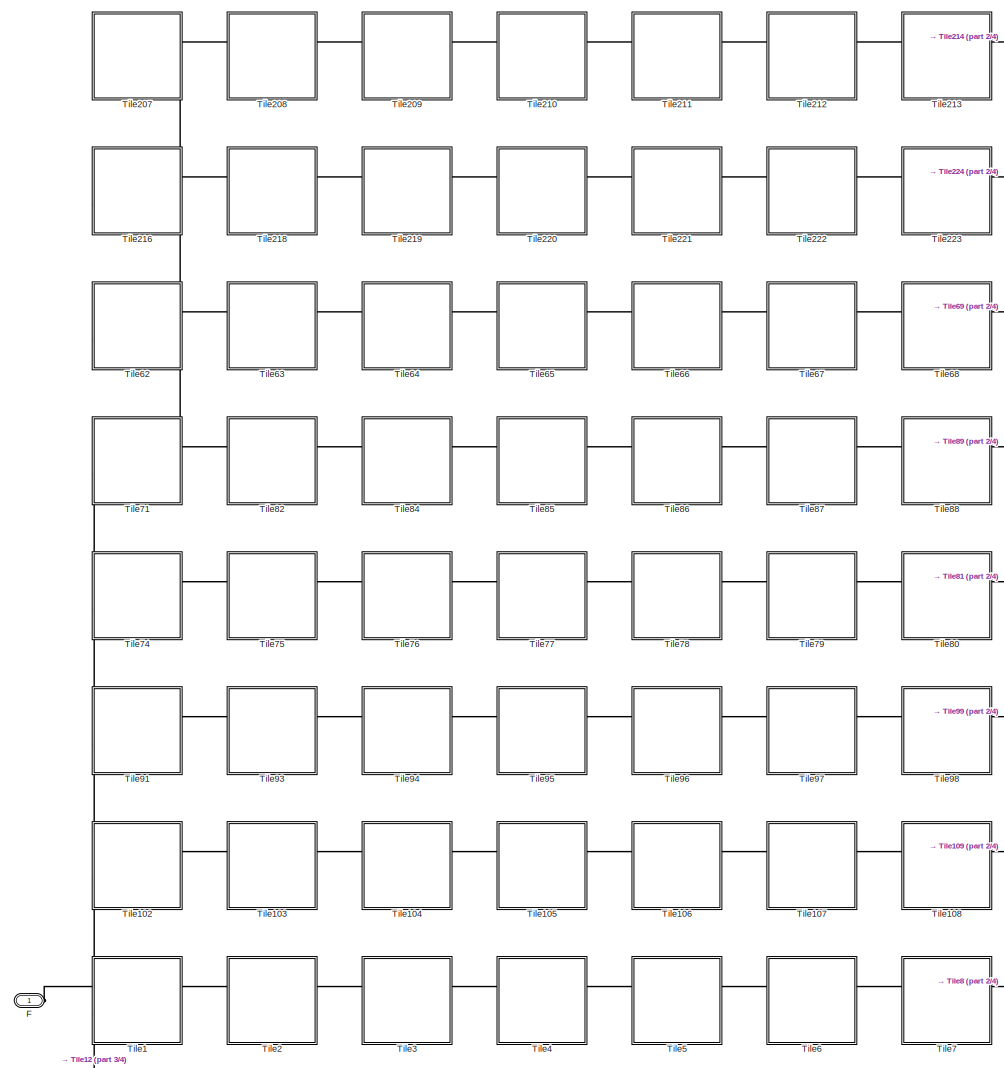
[diagram: AUV/World/Sea Floor/Tiled Grid - part 1/4, top left region]
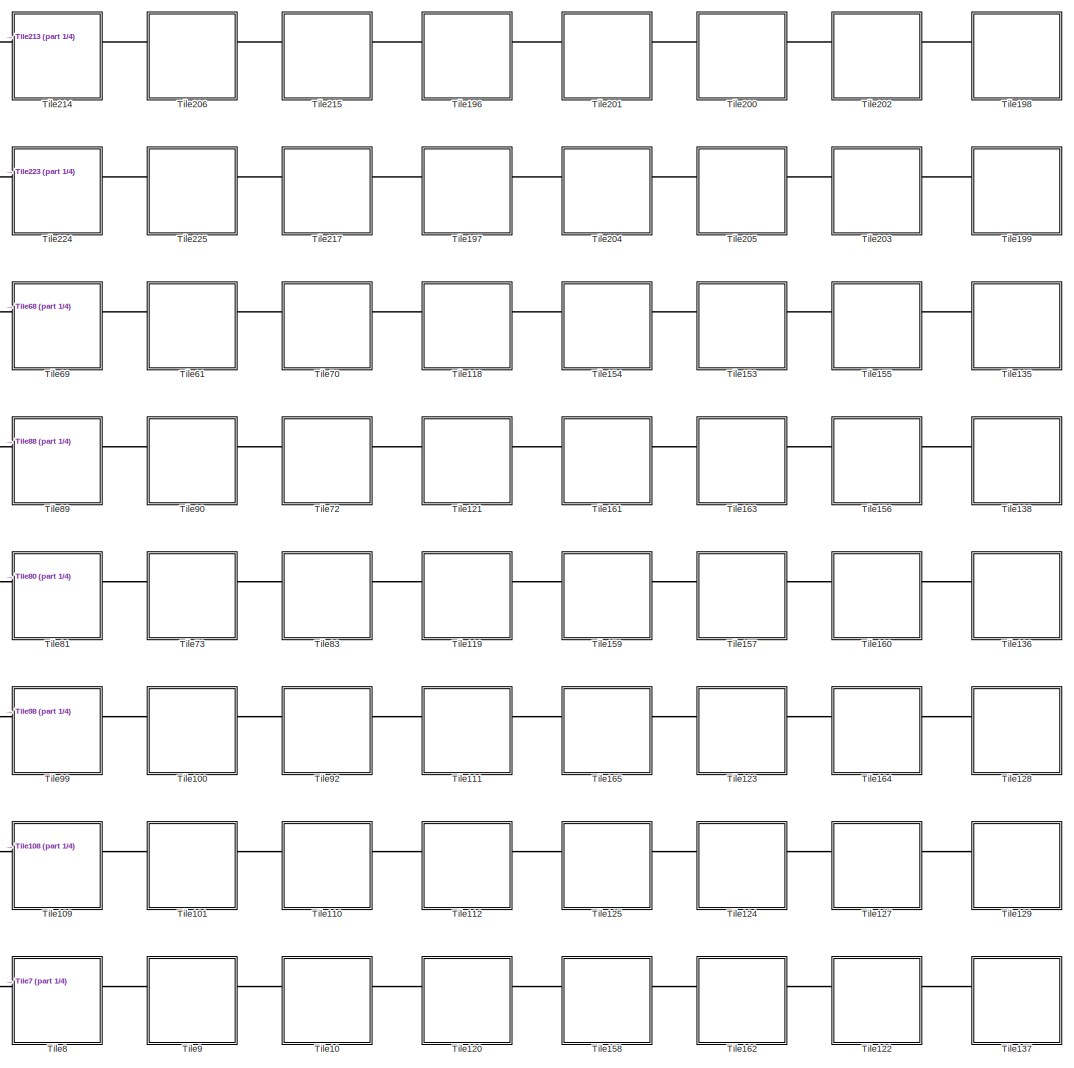
[diagram: AUV/World/Sea Floor/Tiled Grid - part 2/4, top right region]
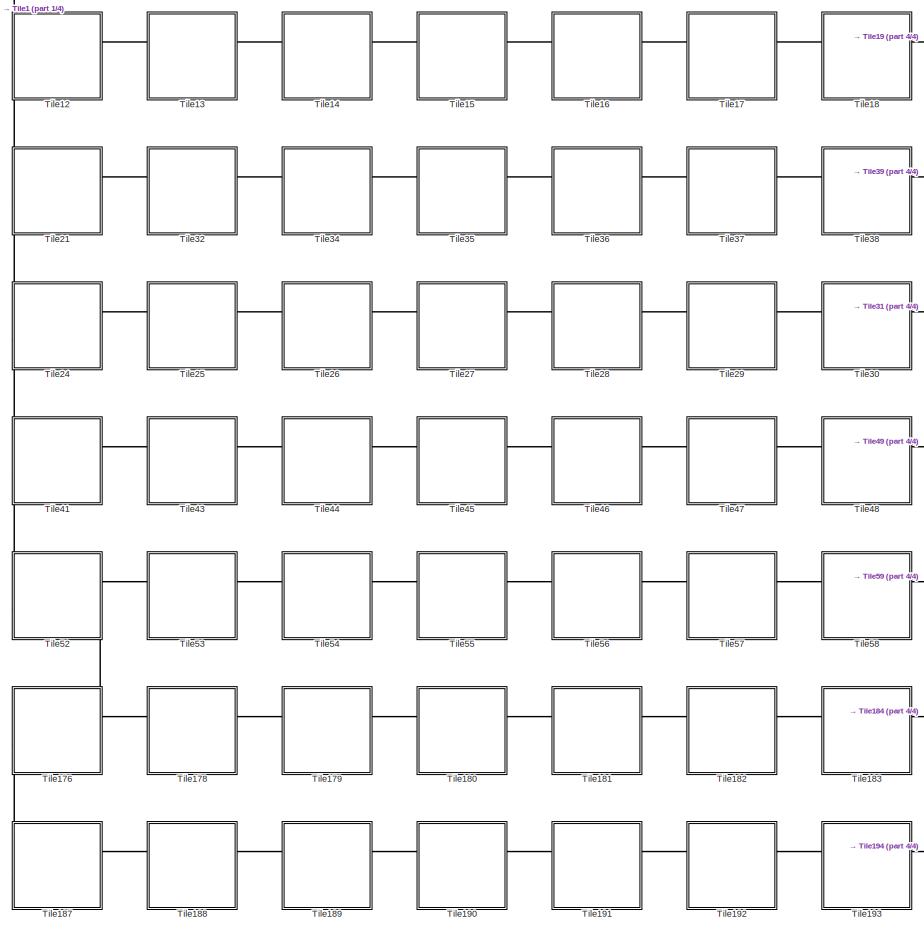
[diagram: AUV/World/Sea Floor/Tiled Grid - part 3/4, bottom left region]
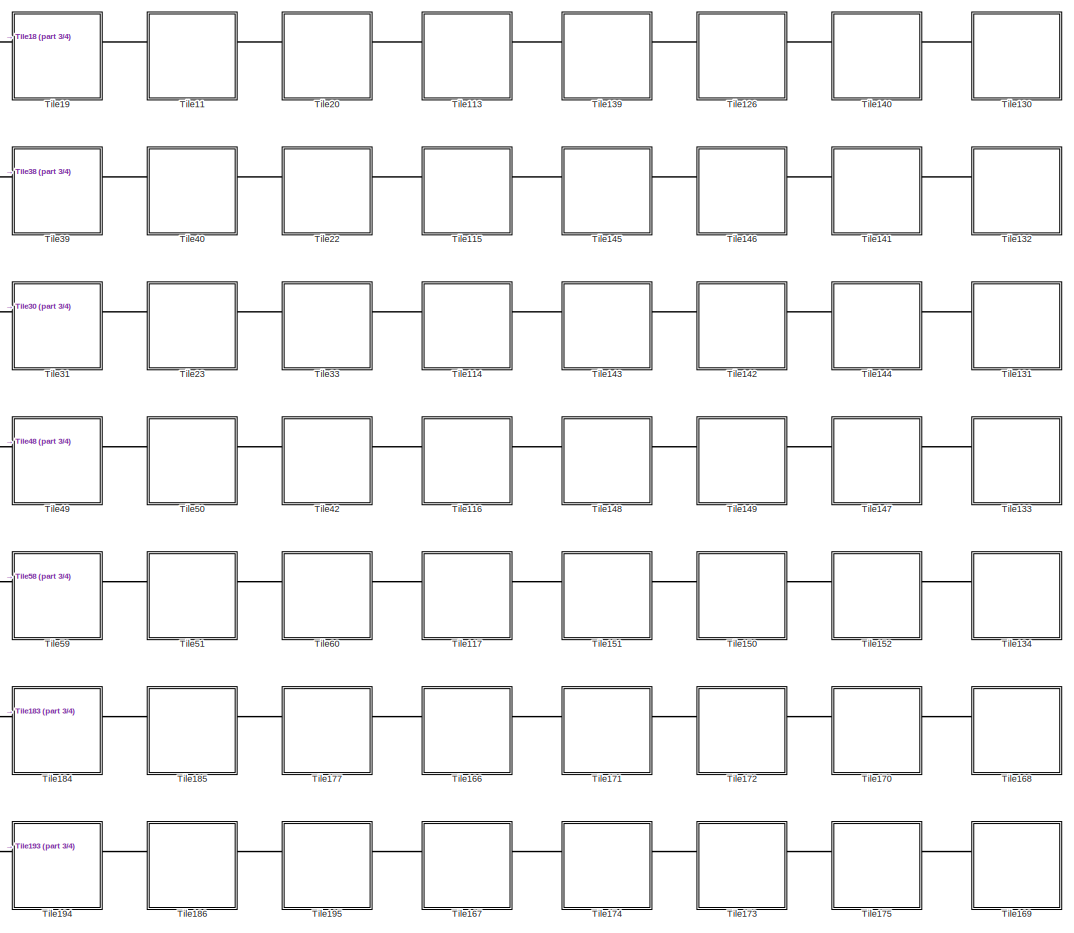
[diagram: AUV/World/Sea Floor/Tiled Grid - part 4/4, bottom right region]
BLOCK [SubSystem] AUV/World/Sea Floor/Tiled Grid
  Ports = [0, 0, 0, 0, 0, 1]
  RequestExecContextInheritance = off
BLOCK [PMIOPort] AUV/World/Sea Floor/Tiled Grid/F
  Side = Left
BLOCK [SubSystem] AUV/World/Sea Floor/Tiled Grid/Tile1
  PortSchema = {"entries":[{"content":{"sides":[{"content":{"connectorIds":["LConn1"]},"type":"ConnectorPlacement.EquallySpacedRectSide","uuid":"a971723f-ea37-4e9b-910b-501b94fb0ba2"},{"content":{"connectorIds":["RConn1"],"side":"RIGHT"},"type":"ConnectorPlacement.EquallySpacedRectSide","uuid":"e50175c1-005c-4b0b-bced-b882197eaab2"},{"content":{"connectorIds":["LConn2"],"side":"TOP"},"type":"ConnectorPlacement.E...<+407ch>  <repeated x225 — deduplicated; at blocks: Tile1, Tile10, Tile100, Tile101, Tile102, Tile103, Tile104, Tile105, Tile106, Tile107, Tile108, Tile109, Tile11, Tile110, Tile111, Tile112, +209 more>
  Ports = [0, 0, 0, 0, 0, 2, 2]
  RequestExecContextInheritance = off
BLOCK [Reference] AUV/World/Sea Floor/Tiled Grid/Tile1/+X  REF=sm_lib/Frames and
Transforms/Rigid
Transform
  Ports = [0, 0, 0, 0, 0, 1, 1]
  SourceBlock = sm_lib/Frames and\nTransforms/Rigid\nTransform
  SourceProductBaseCode = MS
  SourceType = Rigid\nTransform
BLOCK [Reference] AUV/World/Sea Floor/Tiled Grid/Tile1/+Y  REF=sm_lib/Frames and
Transforms/Rigid
Transform
  NameLocation = right
  Ports = [0, 0, 0, 0, 0, 1, 1]
  SourceBlock = sm_lib/Frames and\nTransforms/Rigid\nTransform
  SourceProductBaseCode = MS
  SourceType = Rigid\nTransform
BLOCK [Reference] AUV/World/Sea Floor/Tiled Grid/Tile1/-X  REF=sm_lib/Frames and
Transforms/Rigid
Transform
  Ports = [0, 0, 0, 0, 0, 1, 1]
  SourceBlock = sm_lib/Frames and\nTransforms/Rigid\nTransform
  SourceProductBaseCode = MS
  SourceType = Rigid\nTransform
BLOCK [Reference] AUV/World/Sea Floor/Tiled Grid/Tile1/-Y  REF=sm_lib/Frames and
Transforms/Rigid
Transform
  NameLocation = right
  Ports = [0, 0, 0, 0, 0, 1, 1]
  SourceBlock = sm_lib/Frames and\nTransforms/Rigid\nTransform
  SourceProductBaseCode = MS
  SourceType = Rigid\nTransform
BLOCK [Reference] AUV/World/Sea Floor/Tiled Grid/Tile1/Tile  REF=sm_lib/Body Elements/Brick Solid
  NameLocation = left
  Ports = [0, 0, 0, 0, 0, 0, 1]
  SourceBlock = sm_lib/Body Elements/Brick Solid
  SourceProductBaseCode = MS
  SourceType = Brick Solid
BLOCK [PMIOPort] AUV/World/Sea Floor/Tiled Grid/Tile1/Xleft
  Side = Left
BLOCK [PMIOPort] AUV/World/Sea Floor/Tiled Grid/Tile1/Xright
  Port = 3
  Side = Right
BLOCK [PMIOPort] AUV/World/Sea Floor/Tiled Grid/Tile1/Ybot
  NameLocation = left
  Port = 4
  Side = Right
BLOCK [PMIOPort] AUV/World/Sea Floor/Tiled Grid/Tile1/Ytop
  NameLocation = right
  Port = 2
  Side = Left
BLOCK [SubSystem] AUV/World/Sea Floor/Tiled Grid/Tile10
  Ports = [0, 0, 0, 0, 0, 2, 2]
  RequestExecContextInheritance = off
BLOCK [Reference] AUV/World/Sea Floor/Tiled Grid/Tile10/+X  REF=sm_lib/Frames and
Transforms/Rigid
Transform
  Ports = [0, 0, 0, 0, 0, 1, 1]
  SourceBlock = sm_lib/Frames and\nTransforms/Rigid\nTransform
  SourceProductBaseCode = MS
  SourceType = Rigid\nTransform
BLOCK [Reference] AUV/World/Sea Floor/Tiled Grid/Tile10/+Y  REF=sm_lib/Frames and
Transforms/Rigid
Transform
  NameLocation = right
  Ports = [0, 0, 0, 0, 0, 1, 1]
  SourceBlock = sm_lib/Frames and\nTransforms/Rigid\nTransform
  SourceProductBaseCode = MS
  SourceType = Rigid\nTransform
BLOCK [Reference] AUV/World/Sea Floor/Tiled Grid/Tile10/-X  REF=sm_lib/Frames and
Transforms/Rigid
Transform
  Ports = [0, 0, 0, 0, 0, 1, 1]
  SourceBlock = sm_lib/Frames and\nTransforms/Rigid\nTransform
  SourceProductBaseCode = MS
  SourceType = Rigid\nTransform
BLOCK [Reference] AUV/World/Sea Floor/Tiled Grid/Tile10/-Y  REF=sm_lib/Frames and
Transforms/Rigid
Transform
  NameLocation = right
  Ports = [0, 0, 0, 0, 0, 1, 1]
  SourceBlock = sm_lib/Frames and\nTransforms/Rigid\nTransform
  SourceProductBaseCode = MS
  SourceType = Rigid\nTransform
BLOCK [Reference] AUV/World/Sea Floor/Tiled Grid/Tile10/Tile  REF=sm_lib/Body Elements/Brick Solid
  NameLocation = left
  Ports = [0, 0, 0, 0, 0, 0, 1]
  SourceBlock = sm_lib/Body Elements/Brick Solid
  SourceProductBaseCode = MS
  SourceType = Brick Solid
BLOCK [PMIOPort] AUV/World/Sea Floor/Tiled Grid/Tile10/Xleft
  Side = Left
BLOCK [PMIOPort] AUV/World/Sea Floor/Tiled Grid/Tile10/Xright
  Port = 3
  Side = Right
BLOCK [PMIOPort] AUV/World/Sea Floor/Tiled Grid/Tile10/Ybot
  NameLocation = left
  Port = 4
  Side = Right
BLOCK [PMIOPort] AUV/World/Sea Floor/Tiled Grid/Tile10/Ytop
  NameLocation = right
  Port = 2
  Side = Left
BLOCK [SubSystem] AUV/World/Sea Floor/Tiled Grid/Tile100
  Ports = [0, 0, 0, 0, 0, 2, 2]
  RequestExecContextInheritance = off
BLOCK [Reference] AUV/World/Sea Floor/Tiled Grid/Tile100/+X  REF=sm_lib/Frames and
Transforms/Rigid
Transform
  Ports = [0, 0, 0, 0, 0, 1, 1]
  SourceBlock = sm_lib/Frames and\nTransforms/Rigid\nTransform
  SourceProductBaseCode = MS
  SourceType = Rigid\nTransform
BLOCK [Reference] AUV/World/Sea Floor/Tiled Grid/Tile100/+Y  REF=sm_lib/Frames and
Transforms/Rigid
Transform
  NameLocation = right
  Ports = [0, 0, 0, 0, 0, 1, 1]
  SourceBlock = sm_lib/Frames and\nTransforms/Rigid\nTransform
  SourceProductBaseCode = MS
  SourceType = Rigid\nTransform
BLOCK [Reference] AUV/World/Sea Floor/Tiled Grid/Tile100/-X  REF=sm_lib/Frames and
Transforms/Rigid
Transform
  Ports = [0, 0, 0, 0, 0, 1, 1]
  SourceBlock = sm_lib/Frames and\nTransforms/Rigid\nTransform
  SourceProductBaseCode = MS
  SourceType = Rigid\nTransform
BLOCK [Reference] AUV/World/Sea Floor/Tiled Grid/Tile100/-Y  REF=sm_lib/Frames and
Transforms/Rigid
Transform
  NameLocation = right
  Ports = [0, 0, 0, 0, 0, 1, 1]
  SourceBlock = sm_lib/Frames and\nTransforms/Rigid\nTransform
  SourceProductBaseCode = MS
  SourceType = Rigid\nTransform
BLOCK [Reference] AUV/World/Sea Floor/Tiled Grid/Tile100/Tile  REF=sm_lib/Body Elements/Brick Solid
  NameLocation = left
  Ports = [0, 0, 0, 0, 0, 0, 1]
  SourceBlock = sm_lib/Body Elements/Brick Solid
  SourceProductBaseCode = MS
  SourceType = Brick Solid
BLOCK [PMIOPort] AUV/World/Sea Floor/Tiled Grid/Tile100/Xleft
  Side = Left
BLOCK [PMIOPort] AUV/World/Sea Floor/Tiled Grid/Tile100/Xright
  Port = 3
  Side = Right
BLOCK [PMIOPort] AUV/World/Sea Floor/Tiled Grid/Tile100/Ybot
  NameLocation = left
  Port = 4
  Side = Right
BLOCK [PMIOPort] AUV/World/Sea Floor/Tiled Grid/Tile100/Ytop
  NameLocation = right
  Port = 2
  Side = Left
BLOCK [SubSystem] AUV/World/Sea Floor/Tiled Grid/Tile101
  Ports = [0, 0, 0, 0, 0, 2, 2]
  RequestExecContextInheritance = off
BLOCK [Reference] AUV/World/Sea Floor/Tiled Grid/Tile101/+X  REF=sm_lib/Frames and
Transforms/Rigid
Transform
  Ports = [0, 0, 0, 0, 0, 1, 1]
  SourceBlock = sm_lib/Frames and\nTransforms/Rigid\nTransform
  SourceProductBaseCode = MS
  SourceType = Rigid\nTransform
BLOCK [Reference] AUV/World/Sea Floor/Tiled Grid/Tile101/+Y  REF=sm_lib/Frames and
Transforms/Rigid
Transform
  NameLocation = right
  Ports = [0, 0, 0, 0, 0, 1, 1]
  SourceBlock = sm_lib/Frames and\nTransforms/Rigid\nTransform
  SourceProductBaseCode = MS
  SourceType = Rigid\nTransform
BLOCK [Reference] AUV/World/Sea Floor/Tiled Grid/Tile101/-X  REF=sm_lib/Frames and
Transforms/Rigid
Transform
  Ports = [0, 0, 0, 0, 0, 1, 1]
  SourceBlock = sm_lib/Frames and\nTransforms/Rigid\nTransform
  SourceProductBaseCode = MS
  SourceType = Rigid\nTransform
BLOCK [Reference] AUV/World/Sea Floor/Tiled Grid/Tile101/-Y  REF=sm_lib/Frames and
Transforms/Rigid
Transform
  NameLocation = right
  Ports = [0, 0, 0, 0, 0, 1, 1]
  SourceBlock = sm_lib/Frames and\nTransforms/Rigid\nTransform
  SourceProductBaseCode = MS
  SourceType = Rigid\nTransform
BLOCK [Reference] AUV/World/Sea Floor/Tiled Grid/Tile101/Tile  REF=sm_lib/Body Elements/Brick Solid
  NameLocation = left
  Ports = [0, 0, 0, 0, 0, 0, 1]
  SourceBlock = sm_lib/Body Elements/Brick Solid
  SourceProductBaseCode = MS
  SourceType = Brick Solid
BLOCK [PMIOPort] AUV/World/Sea Floor/Tiled Grid/Tile101/Xleft
  Side = Left
BLOCK [PMIOPort] AUV/World/Sea Floor/Tiled Grid/Tile101/Xright
  Port = 3
  Side = Right
BLOCK [PMIOPort] AUV/World/Sea Floor/Tiled Grid/Tile101/Ybot
  NameLocation = left
  Port = 4
  Side = Right
BLOCK [PMIOPort] AUV/World/Sea Floor/Tiled Grid/Tile101/Ytop
  NameLocation = right
  Port = 2
  Side = Left
BLOCK [SubSystem] AUV/World/Sea Floor/Tiled Grid/Tile102
  Ports = [0, 0, 0, 0, 0, 2, 2]
  RequestExecContextInheritance = off
BLOCK [Reference] AUV/World/Sea Floor/Tiled Grid/Tile102/+X  REF=sm_lib/Frames and
Transforms/Rigid
Transform
  Ports = [0, 0, 0, 0, 0, 1, 1]
  SourceBlock = sm_lib/Frames and\nTransforms/Rigid\nTransform
  SourceProductBaseCode = MS
  SourceType = Rigid\nTransform
BLOCK [Reference] AUV/World/Sea Floor/Tiled Grid/Tile102/+Y  REF=sm_lib/Frames and
Transforms/Rigid
Transform
  NameLocation = right
  Ports = [0, 0, 0, 0, 0, 1, 1]
  SourceBlock = sm_lib/Frames and\nTransforms/Rigid\nTransform
  SourceProductBaseCode = MS
  SourceType = Rigid\nTransform
BLOCK [Reference] AUV/World/Sea Floor/Tiled Grid/Tile102/-X  REF=sm_lib/Frames and
Transforms/Rigid
Transform
  Ports = [0, 0, 0, 0, 0, 1, 1]
  SourceBlock = sm_lib/Frames and\nTransforms/Rigid\nTransform
  SourceProductBaseCode = MS
  SourceType = Rigid\nTransform
BLOCK [Reference] AUV/World/Sea Floor/Tiled Grid/Tile102/-Y  REF=sm_lib/Frames and
Transforms/Rigid
Transform
  NameLocation = right
  Ports = [0, 0, 0, 0, 0, 1, 1]
  SourceBlock = sm_lib/Frames and\nTransforms/Rigid\nTransform
  SourceProductBaseCode = MS
  SourceType = Rigid\nTransform
BLOCK [Reference] AUV/World/Sea Floor/Tiled Grid/Tile102/Tile  REF=sm_lib/Body Elements/Brick Solid
  NameLocation = left
  Ports = [0, 0, 0, 0, 0, 0, 1]
  SourceBlock = sm_lib/Body Elements/Brick Solid
  SourceProductBaseCode = MS
  SourceType = Brick Solid
BLOCK [PMIOPort] AUV/World/Sea Floor/Tiled Grid/Tile102/Xleft
  Side = Left
BLOCK [PMIOPort] AUV/World/Sea Floor/Tiled Grid/Tile102/Xright
  Port = 3
  Side = Right
BLOCK [PMIOPort] AUV/World/Sea Floor/Tiled Grid/Tile102/Ybot
  NameLocation = left
  Port = 4
  Side = Right
BLOCK [PMIOPort] AUV/World/Sea Floor/Tiled Grid/Tile102/Ytop
  NameLocation = right
  Port = 2
  Side = Left
BLOCK [SubSystem] AUV/World/Sea Floor/Tiled Grid/Tile103
  Ports = [0, 0, 0, 0, 0, 2, 2]
  RequestExecContextInheritance = off
BLOCK [Reference] AUV/World/Sea Floor/Tiled Grid/Tile103/+X  REF=sm_lib/Frames and
Transforms/Rigid
Transform
  Ports = [0, 0, 0, 0, 0, 1, 1]
  SourceBlock = sm_lib/Frames and\nTransforms/Rigid\nTransform
  SourceProductBaseCode = MS
  SourceType = Rigid\nTransform
BLOCK [Reference] AUV/World/Sea Floor/Tiled Grid/Tile103/+Y  REF=sm_lib/Frames and
Transforms/Rigid
Transform
  NameLocation = right
  Ports = [0, 0, 0, 0, 0, 1, 1]
  SourceBlock = sm_lib/Frames and\nTransforms/Rigid\nTransform
  SourceProductBaseCode = MS
  SourceType = Rigid\nTransform
BLOCK [Reference] AUV/World/Sea Floor/Tiled Grid/Tile103/-X  REF=sm_lib/Frames and
Transforms/Rigid
Transform
  Ports = [0, 0, 0, 0, 0, 1, 1]
  SourceBlock = sm_lib/Frames and\nTransforms/Rigid\nTransform
  SourceProductBaseCode = MS
  SourceType = Rigid\nTransform
BLOCK [Reference] AUV/World/Sea Floor/Tiled Grid/Tile103/-Y  REF=sm_lib/Frames and
Transforms/Rigid
Transform
  NameLocation = right
  Ports = [0, 0, 0, 0, 0, 1, 1]
  SourceBlock = sm_lib/Frames and\nTransforms/Rigid\nTransform
  SourceProductBaseCode = MS
  SourceType = Rigid\nTransform
BLOCK [Reference] AUV/World/Sea Floor/Tiled Grid/Tile103/Tile  REF=sm_lib/Body Elements/Brick Solid
  NameLocation = left
  Ports = [0, 0, 0, 0, 0, 0, 1]
  SourceBlock = sm_lib/Body Elements/Brick Solid
  SourceProductBaseCode = MS
  SourceType = Brick Solid
BLOCK [PMIOPort] AUV/World/Sea Floor/Tiled Grid/Tile103/Xleft
  Side = Left
BLOCK [PMIOPort] AUV/World/Sea Floor/Tiled Grid/Tile103/Xright
  Port = 3
  Side = Right
BLOCK [PMIOPort] AUV/World/Sea Floor/Tiled Grid/Tile103/Ybot
  NameLocation = left
  Port = 4
  Side = Right
BLOCK [PMIOPort] AUV/World/Sea Floor/Tiled Grid/Tile103/Ytop
  NameLocation = right
  Port = 2
  Side = Left
BLOCK [SubSystem] AUV/World/Sea Floor/Tiled Grid/Tile104
  Ports = [0, 0, 0, 0, 0, 2, 2]
  RequestExecContextInheritance = off
BLOCK [Reference] AUV/World/Sea Floor/Tiled Grid/Tile104/+X  REF=sm_lib/Frames and
Transforms/Rigid
Transform
  Ports = [0, 0, 0, 0, 0, 1, 1]
  SourceBlock = sm_lib/Frames and\nTransforms/Rigid\nTransform
  SourceProductBaseCode = MS
  SourceType = Rigid\nTransform
BLOCK [Reference] AUV/World/Sea Floor/Tiled Grid/Tile104/+Y  REF=sm_lib/Frames and
Transforms/Rigid
Transform
  NameLocation = right
  Ports = [0, 0, 0, 0, 0, 1, 1]
  SourceBlock = sm_lib/Frames and\nTransforms/Rigid\nTransform
  SourceProductBaseCode = MS
  SourceType = Rigid\nTransform
BLOCK [Reference] AUV/World/Sea Floor/Tiled Grid/Tile104/-X  REF=sm_lib/Frames and
Transforms/Rigid
Transform
  Ports = [0, 0, 0, 0, 0, 1, 1]
  SourceBlock = sm_lib/Frames and\nTransforms/Rigid\nTransform
  SourceProductBaseCode = MS
  SourceType = Rigid\nTransform
BLOCK [Reference] AUV/World/Sea Floor/Tiled Grid/Tile104/-Y  REF=sm_lib/Frames and
Transforms/Rigid
Transform
  NameLocation = right
  Ports = [0, 0, 0, 0, 0, 1, 1]
  SourceBlock = sm_lib/Frames and\nTransforms/Rigid\nTransform
  SourceProductBaseCode = MS
  SourceType = Rigid\nTransform
BLOCK [Reference] AUV/World/Sea Floor/Tiled Grid/Tile104/Tile  REF=sm_lib/Body Elements/Brick Solid
  NameLocation = left
  Ports = [0, 0, 0, 0, 0, 0, 1]
  SourceBlock = sm_lib/Body Elements/Brick Solid
  SourceProductBaseCode = MS
  SourceType = Brick Solid
BLOCK [PMIOPort] AUV/World/Sea Floor/Tiled Grid/Tile104/Xleft
  Side = Left
BLOCK [PMIOPort] AUV/World/Sea Floor/Tiled Grid/Tile104/Xright
  Port = 3
  Side = Right
BLOCK [PMIOPort] AUV/World/Sea Floor/Tiled Grid/Tile104/Ybot
  NameLocation = left
  Port = 4
  Side = Right
BLOCK [PMIOPort] AUV/World/Sea Floor/Tiled Grid/Tile104/Ytop
  NameLocation = right
  Port = 2
  Side = Left
BLOCK [SubSystem] AUV/World/Sea Floor/Tiled Grid/Tile105
  Ports = [0, 0, 0, 0, 0, 2, 2]
  RequestExecContextInheritance = off
BLOCK [Reference] AUV/World/Sea Floor/Tiled Grid/Tile105/+X  REF=sm_lib/Frames and
Transforms/Rigid
Transform
  Ports = [0, 0, 0, 0, 0, 1, 1]
  SourceBlock = sm_lib/Frames and\nTransforms/Rigid\nTransform
  SourceProductBaseCode = MS
  SourceType = Rigid\nTransform
BLOCK [Reference] AUV/World/Sea Floor/Tiled Grid/Tile105/+Y  REF=sm_lib/Frames and
Transforms/Rigid
Transform
  NameLocation = right
  Ports = [0, 0, 0, 0, 0, 1, 1]
  SourceBlock = sm_lib/Frames and\nTransforms/Rigid\nTransform
  SourceProductBaseCode = MS
  SourceType = Rigid\nTransform
BLOCK [Reference] AUV/World/Sea Floor/Tiled Grid/Tile105/-X  REF=sm_lib/Frames and
Transforms/Rigid
Transform
  Ports = [0, 0, 0, 0, 0, 1, 1]
  SourceBlock = sm_lib/Frames and\nTransforms/Rigid\nTransform
  SourceProductBaseCode = MS
  SourceType = Rigid\nTransform
BLOCK [Reference] AUV/World/Sea Floor/Tiled Grid/Tile105/-Y  REF=sm_lib/Frames and
Transforms/Rigid
Transform
  NameLocation = right
  Ports = [0, 0, 0, 0, 0, 1, 1]
  SourceBlock = sm_lib/Frames and\nTransforms/Rigid\nTransform
  SourceProductBaseCode = MS
  SourceType = Rigid\nTransform
BLOCK [Reference] AUV/World/Sea Floor/Tiled Grid/Tile105/Tile  REF=sm_lib/Body Elements/Brick Solid
  NameLocation = left
  Ports = [0, 0, 0, 0, 0, 0, 1]
  SourceBlock = sm_lib/Body Elements/Brick Solid
  SourceProductBaseCode = MS
  SourceType = Brick Solid
BLOCK [PMIOPort] AUV/World/Sea Floor/Tiled Grid/Tile105/Xleft
  Side = Left
BLOCK [PMIOPort] AUV/World/Sea Floor/Tiled Grid/Tile105/Xright
  Port = 3
  Side = Right
BLOCK [PMIOPort] AUV/World/Sea Floor/Tiled Grid/Tile105/Ybot
  NameLocation = left
  Port = 4
  Side = Right
BLOCK [PMIOPort] AUV/World/Sea Floor/Tiled Grid/Tile105/Ytop
  NameLocation = right
  Port = 2
  Side = Left
BLOCK [SubSystem] AUV/World/Sea Floor/Tiled Grid/Tile106
  Ports = [0, 0, 0, 0, 0, 2, 2]
  RequestExecContextInheritance = off
BLOCK [Reference] AUV/World/Sea Floor/Tiled Grid/Tile106/+X  REF=sm_lib/Frames and
Transforms/Rigid
Transform
  Ports = [0, 0, 0, 0, 0, 1, 1]
  SourceBlock = sm_lib/Frames and\nTransforms/Rigid\nTransform
  SourceProductBaseCode = MS
  SourceType = Rigid\nTransform
BLOCK [Reference] AUV/World/Sea Floor/Tiled Grid/Tile106/+Y  REF=sm_lib/Frames and
Transforms/Rigid
Transform
  NameLocation = right
  Ports = [0, 0, 0, 0, 0, 1, 1]
  SourceBlock = sm_lib/Frames and\nTransforms/Rigid\nTransform
  SourceProductBaseCode = MS
  SourceType = Rigid\nTransform
BLOCK [Reference] AUV/World/Sea Floor/Tiled Grid/Tile106/-X  REF=sm_lib/Frames and
Transforms/Rigid
Transform
  Ports = [0, 0, 0, 0, 0, 1, 1]
  SourceBlock = sm_lib/Frames and\nTransforms/Rigid\nTransform
  SourceProductBaseCode = MS
  SourceType = Rigid\nTransform
BLOCK [Reference] AUV/World/Sea Floor/Tiled Grid/Tile106/-Y  REF=sm_lib/Frames and
Transforms/Rigid
Transform
  NameLocation = right
  Ports = [0, 0, 0, 0, 0, 1, 1]
  SourceBlock = sm_lib/Frames and\nTransforms/Rigid\nTransform
  SourceProductBaseCode = MS
  SourceType = Rigid\nTransform
BLOCK [Reference] AUV/World/Sea Floor/Tiled Grid/Tile106/Tile  REF=sm_lib/Body Elements/Brick Solid
  NameLocation = left
  Ports = [0, 0, 0, 0, 0, 0, 1]
  SourceBlock = sm_lib/Body Elements/Brick Solid
  SourceProductBaseCode = MS
  SourceType = Brick Solid
BLOCK [PMIOPort] AUV/World/Sea Floor/Tiled Grid/Tile106/Xleft
  Side = Left
BLOCK [PMIOPort] AUV/World/Sea Floor/Tiled Grid/Tile106/Xright
  Port = 3
  Side = Right
BLOCK [PMIOPort] AUV/World/Sea Floor/Tiled Grid/Tile106/Ybot
  NameLocation = left
  Port = 4
  Side = Right
BLOCK [PMIOPort] AUV/World/Sea Floor/Tiled Grid/Tile106/Ytop
  NameLocation = right
  Port = 2
  Side = Left
BLOCK [SubSystem] AUV/World/Sea Floor/Tiled Grid/Tile107
  Ports = [0, 0, 0, 0, 0, 2, 2]
  RequestExecContextInheritance = off
BLOCK [Reference] AUV/World/Sea Floor/Tiled Grid/Tile107/+X  REF=sm_lib/Frames and
Transforms/Rigid
Transform
  Ports = [0, 0, 0, 0, 0, 1, 1]
  SourceBlock = sm_lib/Frames and\nTransforms/Rigid\nTransform
  SourceProductBaseCode = MS
  SourceType = Rigid\nTransform
BLOCK [Reference] AUV/World/Sea Floor/Tiled Grid/Tile107/+Y  REF=sm_lib/Frames and
Transforms/Rigid
Transform
  NameLocation = right
  Ports = [0, 0, 0, 0, 0, 1, 1]
  SourceBlock = sm_lib/Frames and\nTransforms/Rigid\nTransform
  SourceProductBaseCode = MS
  SourceType = Rigid\nTransform
BLOCK [Reference] AUV/World/Sea Floor/Tiled Grid/Tile107/-X  REF=sm_lib/Frames and
Transforms/Rigid
Transform
  Ports = [0, 0, 0, 0, 0, 1, 1]
  SourceBlock = sm_lib/Frames and\nTransforms/Rigid\nTransform
  SourceProductBaseCode = MS
  SourceType = Rigid\nTransform
BLOCK [Reference] AUV/World/Sea Floor/Tiled Grid/Tile107/-Y  REF=sm_lib/Frames and
Transforms/Rigid
Transform
  NameLocation = right
  Ports = [0, 0, 0, 0, 0, 1, 1]
  SourceBlock = sm_lib/Frames and\nTransforms/Rigid\nTransform
  SourceProductBaseCode = MS
  SourceType = Rigid\nTransform
BLOCK [Reference] AUV/World/Sea Floor/Tiled Grid/Tile107/Tile  REF=sm_lib/Body Elements/Brick Solid
  NameLocation = left
  Ports = [0, 0, 0, 0, 0, 0, 1]
  SourceBlock = sm_lib/Body Elements/Brick Solid
  SourceProductBaseCode = MS
  SourceType = Brick Solid
BLOCK [PMIOPort] AUV/World/Sea Floor/Tiled Grid/Tile107/Xleft
  Side = Left
BLOCK [PMIOPort] AUV/World/Sea Floor/Tiled Grid/Tile107/Xright
  Port = 3
  Side = Right
BLOCK [PMIOPort] AUV/World/Sea Floor/Tiled Grid/Tile107/Ybot
  NameLocation = left
  Port = 4
  Side = Right
BLOCK [PMIOPort] AUV/World/Sea Floor/Tiled Grid/Tile107/Ytop
  NameLocation = right
  Port = 2
  Side = Left
BLOCK [SubSystem] AUV/World/Sea Floor/Tiled Grid/Tile108
  Ports = [0, 0, 0, 0, 0, 2, 2]
  RequestExecContextInheritance = off
BLOCK [Reference] AUV/World/Sea Floor/Tiled Grid/Tile108/+X  REF=sm_lib/Frames and
Transforms/Rigid
Transform
  Ports = [0, 0, 0, 0, 0, 1, 1]
  SourceBlock = sm_lib/Frames and\nTransforms/Rigid\nTransform
  SourceProductBaseCode = MS
  SourceType = Rigid\nTransform
BLOCK [Reference] AUV/World/Sea Floor/Tiled Grid/Tile108/+Y  REF=sm_lib/Frames and
Transforms/Rigid
Transform
  NameLocation = right
  Ports = [0, 0, 0, 0, 0, 1, 1]
  SourceBlock = sm_lib/Frames and\nTransforms/Rigid\nTransform
  SourceProductBaseCode = MS
  SourceType = Rigid\nTransform
BLOCK [Reference] AUV/World/Sea Floor/Tiled Grid/Tile108/-X  REF=sm_lib/Frames and
Transforms/Rigid
Transform
  Ports = [0, 0, 0, 0, 0, 1, 1]
  SourceBlock = sm_lib/Frames and\nTransforms/Rigid\nTransform
  SourceProductBaseCode = MS
  SourceType = Rigid\nTransform
BLOCK [Reference] AUV/World/Sea Floor/Tiled Grid/Tile108/-Y  REF=sm_lib/Frames and
Transforms/Rigid
Transform
  NameLocation = right
  Ports = [0, 0, 0, 0, 0, 1, 1]
  SourceBlock = sm_lib/Frames and\nTransforms/Rigid\nTransform
  SourceProductBaseCode = MS
  SourceType = Rigid\nTransform
BLOCK [Reference] AUV/World/Sea Floor/Tiled Grid/Tile108/Tile  REF=sm_lib/Body Elements/Brick Solid
  NameLocation = left
  Ports = [0, 0, 0, 0, 0, 0, 1]
  SourceBlock = sm_lib/Body Elements/Brick Solid
  SourceProductBaseCode = MS
  SourceType = Brick Solid
BLOCK [PMIOPort] AUV/World/Sea Floor/Tiled Grid/Tile108/Xleft
  Side = Left
BLOCK [PMIOPort] AUV/World/Sea Floor/Tiled Grid/Tile108/Xright
  Port = 3
  Side = Right
BLOCK [PMIOPort] AUV/World/Sea Floor/Tiled Grid/Tile108/Ybot
  NameLocation = left
  Port = 4
  Side = Right
BLOCK [PMIOPort] AUV/World/Sea Floor/Tiled Grid/Tile108/Ytop
  NameLocation = right
  Port = 2
  Side = Left
BLOCK [SubSystem] AUV/World/Sea Floor/Tiled Grid/Tile109
  Ports = [0, 0, 0, 0, 0, 2, 2]
  RequestExecContextInheritance = off
BLOCK [Reference] AUV/World/Sea Floor/Tiled Grid/Tile109/+X  REF=sm_lib/Frames and
Transforms/Rigid
Transform
  Ports = [0, 0, 0, 0, 0, 1, 1]
  SourceBlock = sm_lib/Frames and\nTransforms/Rigid\nTransform
  SourceProductBaseCode = MS
  SourceType = Rigid\nTransform
BLOCK [Reference] AUV/World/Sea Floor/Tiled Grid/Tile109/+Y  REF=sm_lib/Frames and
Transforms/Rigid
Transform
  NameLocation = right
  Ports = [0, 0, 0, 0, 0, 1, 1]
  SourceBlock = sm_lib/Frames and\nTransforms/Rigid\nTransform
  SourceProductBaseCode = MS
  SourceType = Rigid\nTransform
BLOCK [Reference] AUV/World/Sea Floor/Tiled Grid/Tile109/-X  REF=sm_lib/Frames and
Transforms/Rigid
Transform
  Ports = [0, 0, 0, 0, 0, 1, 1]
  SourceBlock = sm_lib/Frames and\nTransforms/Rigid\nTransform
  SourceProductBaseCode = MS
  SourceType = Rigid\nTransform
BLOCK [Reference] AUV/World/Sea Floor/Tiled Grid/Tile109/-Y  REF=sm_lib/Frames and
Transforms/Rigid
Transform
  NameLocation = right
  Ports = [0, 0, 0, 0, 0, 1, 1]
  SourceBlock = sm_lib/Frames and\nTransforms/Rigid\nTransform
  SourceProductBaseCode = MS
  SourceType = Rigid\nTransform
BLOCK [Reference] AUV/World/Sea Floor/Tiled Grid/Tile109/Tile  REF=sm_lib/Body Elements/Brick Solid
  NameLocation = left
  Ports = [0, 0, 0, 0, 0, 0, 1]
  SourceBlock = sm_lib/Body Elements/Brick Solid
  SourceProductBaseCode = MS
  SourceType = Brick Solid
BLOCK [PMIOPort] AUV/World/Sea Floor/Tiled Grid/Tile109/Xleft
  Side = Left
BLOCK [PMIOPort] AUV/World/Sea Floor/Tiled Grid/Tile109/Xright
  Port = 3
  Side = Right
BLOCK [PMIOPort] AUV/World/Sea Floor/Tiled Grid/Tile109/Ybot
  NameLocation = left
  Port = 4
  Side = Right
BLOCK [PMIOPort] AUV/World/Sea Floor/Tiled Grid/Tile109/Ytop
  NameLocation = right
  Port = 2
  Side = Left
BLOCK [SubSystem] AUV/World/Sea Floor/Tiled Grid/Tile11
  Ports = [0, 0, 0, 0, 0, 2, 2]
  RequestExecContextInheritance = off
BLOCK [Reference] AUV/World/Sea Floor/Tiled Grid/Tile11/+X  REF=sm_lib/Frames and
Transforms/Rigid
Transform
  Ports = [0, 0, 0, 0, 0, 1, 1]
  SourceBlock = sm_lib/Frames and\nTransforms/Rigid\nTransform
  SourceProductBaseCode = MS
  SourceType = Rigid\nTransform
BLOCK [Reference] AUV/World/Sea Floor/Tiled Grid/Tile11/+Y  REF=sm_lib/Frames and
Transforms/Rigid
Transform
  NameLocation = right
  Ports = [0, 0, 0, 0, 0, 1, 1]
  SourceBlock = sm_lib/Frames and\nTransforms/Rigid\nTransform
  SourceProductBaseCode = MS
  SourceType = Rigid\nTransform
BLOCK [Reference] AUV/World/Sea Floor/Tiled Grid/Tile11/-X  REF=sm_lib/Frames and
Transforms/Rigid
Transform
  Ports = [0, 0, 0, 0, 0, 1, 1]
  SourceBlock = sm_lib/Frames and\nTransforms/Rigid\nTransform
  SourceProductBaseCode = MS
  SourceType = Rigid\nTransform
BLOCK [Reference] AUV/World/Sea Floor/Tiled Grid/Tile11/-Y  REF=sm_lib/Frames and
Transforms/Rigid
Transform
  NameLocation = right
  Ports = [0, 0, 0, 0, 0, 1, 1]
  SourceBlock = sm_lib/Frames and\nTransforms/Rigid\nTransform
  SourceProductBaseCode = MS
  SourceType = Rigid\nTransform
BLOCK [Reference] AUV/World/Sea Floor/Tiled Grid/Tile11/Tile  REF=sm_lib/Body Elements/Brick Solid
  NameLocation = left
  Ports = [0, 0, 0, 0, 0, 0, 1]
  SourceBlock = sm_lib/Body Elements/Brick Solid
  SourceProductBaseCode = MS
  SourceType = Brick Solid
BLOCK [PMIOPort] AUV/World/Sea Floor/Tiled Grid/Tile11/Xleft
  Side = Left
BLOCK [PMIOPort] AUV/World/Sea Floor/Tiled Grid/Tile11/Xright
  Port = 3
  Side = Right
BLOCK [PMIOPort] AUV/World/Sea Floor/Tiled Grid/Tile11/Ybot
  NameLocation = left
  Port = 4
  Side = Right
BLOCK [PMIOPort] AUV/World/Sea Floor/Tiled Grid/Tile11/Ytop
  NameLocation = right
  Port = 2
  Side = Left
BLOCK [SubSystem] AUV/World/Sea Floor/Tiled Grid/Tile110
  Ports = [0, 0, 0, 0, 0, 2, 2]
  RequestExecContextInheritance = off
BLOCK [Reference] AUV/World/Sea Floor/Tiled Grid/Tile110/+X  REF=sm_lib/Frames and
Transforms/Rigid
Transform
  Ports = [0, 0, 0, 0, 0, 1, 1]
  SourceBlock = sm_lib/Frames and\nTransforms/Rigid\nTransform
  SourceProductBaseCode = MS
  SourceType = Rigid\nTransform
BLOCK [Reference] AUV/World/Sea Floor/Tiled Grid/Tile110/+Y  REF=sm_lib/Frames and
Transforms/Rigid
Transform
  NameLocation = right
  Ports = [0, 0, 0, 0, 0, 1, 1]
  SourceBlock = sm_lib/Frames and\nTransforms/Rigid\nTransform
  SourceProductBaseCode = MS
  SourceType = Rigid\nTransform
BLOCK [Reference] AUV/World/Sea Floor/Tiled Grid/Tile110/-X  REF=sm_lib/Frames and
Transforms/Rigid
Transform
  Ports = [0, 0, 0, 0, 0, 1, 1]
  SourceBlock = sm_lib/Frames and\nTransforms/Rigid\nTransform
  SourceProductBaseCode = MS
  SourceType = Rigid\nTransform
BLOCK [Reference] AUV/World/Sea Floor/Tiled Grid/Tile110/-Y  REF=sm_lib/Frames and
Transforms/Rigid
Transform
  NameLocation = right
  Ports = [0, 0, 0, 0, 0, 1, 1]
  SourceBlock = sm_lib/Frames and\nTransforms/Rigid\nTransform
  SourceProductBaseCode = MS
  SourceType = Rigid\nTransform
BLOCK [Reference] AUV/World/Sea Floor/Tiled Grid/Tile110/Tile  REF=sm_lib/Body Elements/Brick Solid
  NameLocation = left
  Ports = [0, 0, 0, 0, 0, 0, 1]
  SourceBlock = sm_lib/Body Elements/Brick Solid
  SourceProductBaseCode = MS
  SourceType = Brick Solid
BLOCK [PMIOPort] AUV/World/Sea Floor/Tiled Grid/Tile110/Xleft
  Side = Left
BLOCK [PMIOPort] AUV/World/Sea Floor/Tiled Grid/Tile110/Xright
  Port = 3
  Side = Right
BLOCK [PMIOPort] AUV/World/Sea Floor/Tiled Grid/Tile110/Ybot
  NameLocation = left
  Port = 4
  Side = Right
BLOCK [PMIOPort] AUV/World/Sea Floor/Tiled Grid/Tile110/Ytop
  NameLocation = right
  Port = 2
  Side = Left
BLOCK [SubSystem] AUV/World/Sea Floor/Tiled Grid/Tile111
  Ports = [0, 0, 0, 0, 0, 2, 2]
  RequestExecContextInheritance = off
BLOCK [Reference] AUV/World/Sea Floor/Tiled Grid/Tile111/+X  REF=sm_lib/Frames and
Transforms/Rigid
Transform
  Ports = [0, 0, 0, 0, 0, 1, 1]
  SourceBlock = sm_lib/Frames and\nTransforms/Rigid\nTransform
  SourceProductBaseCode = MS
  SourceType = Rigid\nTransform
BLOCK [Reference] AUV/World/Sea Floor/Tiled Grid/Tile111/+Y  REF=sm_lib/Frames and
Transforms/Rigid
Transform
  NameLocation = right
  Ports = [0, 0, 0, 0, 0, 1, 1]
  SourceBlock = sm_lib/Frames and\nTransforms/Rigid\nTransform
  SourceProductBaseCode = MS
  SourceType = Rigid\nTransform
BLOCK [Reference] AUV/World/Sea Floor/Tiled Grid/Tile111/-X  REF=sm_lib/Frames and
Transforms/Rigid
Transform
  Ports = [0, 0, 0, 0, 0, 1, 1]
  SourceBlock = sm_lib/Frames and\nTransforms/Rigid\nTransform
  SourceProductBaseCode = MS
  SourceType = Rigid\nTransform
BLOCK [Reference] AUV/World/Sea Floor/Tiled Grid/Tile111/-Y  REF=sm_lib/Frames and
Transforms/Rigid
Transform
  NameLocation = right
  Ports = [0, 0, 0, 0, 0, 1, 1]
  SourceBlock = sm_lib/Frames and\nTransforms/Rigid\nTransform
  SourceProductBaseCode = MS
  SourceType = Rigid\nTransform
BLOCK [Reference] AUV/World/Sea Floor/Tiled Grid/Tile111/Tile  REF=sm_lib/Body Elements/Brick Solid
  NameLocation = left
  Ports = [0, 0, 0, 0, 0, 0, 1]
  SourceBlock = sm_lib/Body Elements/Brick Solid
  SourceProductBaseCode = MS
  SourceType = Brick Solid
BLOCK [PMIOPort] AUV/World/Sea Floor/Tiled Grid/Tile111/Xleft
  Side = Left
BLOCK [PMIOPort] AUV/World/Sea Floor/Tiled Grid/Tile111/Xright
  Port = 3
  Side = Right
BLOCK [PMIOPort] AUV/World/Sea Floor/Tiled Grid/Tile111/Ybot
  NameLocation = left
  Port = 4
  Side = Right
BLOCK [PMIOPort] AUV/World/Sea Floor/Tiled Grid/Tile111/Ytop
  NameLocation = right
  Port = 2
  Side = Left
BLOCK [SubSystem] AUV/World/Sea Floor/Tiled Grid/Tile112
  Ports = [0, 0, 0, 0, 0, 2, 2]
  RequestExecContextInheritance = off
BLOCK [Reference] AUV/World/Sea Floor/Tiled Grid/Tile112/+X  REF=sm_lib/Frames and
Transforms/Rigid
Transform
  Ports = [0, 0, 0, 0, 0, 1, 1]
  SourceBlock = sm_lib/Frames and\nTransforms/Rigid\nTransform
  SourceProductBaseCode = MS
  SourceType = Rigid\nTransform
BLOCK [Reference] AUV/World/Sea Floor/Tiled Grid/Tile112/+Y  REF=sm_lib/Frames and
Transforms/Rigid
Transform
  NameLocation = right
  Ports = [0, 0, 0, 0, 0, 1, 1]
  SourceBlock = sm_lib/Frames and\nTransforms/Rigid\nTransform
  SourceProductBaseCode = MS
  SourceType = Rigid\nTransform
BLOCK [Reference] AUV/World/Sea Floor/Tiled Grid/Tile112/-X  REF=sm_lib/Frames and
Transforms/Rigid
Transform
  Ports = [0, 0, 0, 0, 0, 1, 1]
  SourceBlock = sm_lib/Frames and\nTransforms/Rigid\nTransform
  SourceProductBaseCode = MS
  SourceType = Rigid\nTransform
BLOCK [Reference] AUV/World/Sea Floor/Tiled Grid/Tile112/-Y  REF=sm_lib/Frames and
Transforms/Rigid
Transform
  NameLocation = right
  Ports = [0, 0, 0, 0, 0, 1, 1]
  SourceBlock = sm_lib/Frames and\nTransforms/Rigid\nTransform
  SourceProductBaseCode = MS
  SourceType = Rigid\nTransform
BLOCK [Reference] AUV/World/Sea Floor/Tiled Grid/Tile112/Tile  REF=sm_lib/Body Elements/Brick Solid
  NameLocation = left
  Ports = [0, 0, 0, 0, 0, 0, 1]
  SourceBlock = sm_lib/Body Elements/Brick Solid
  SourceProductBaseCode = MS
  SourceType = Brick Solid
BLOCK [PMIOPort] AUV/World/Sea Floor/Tiled Grid/Tile112/Xleft
  Side = Left
BLOCK [PMIOPort] AUV/World/Sea Floor/Tiled Grid/Tile112/Xright
  Port = 3
  Side = Right
BLOCK [PMIOPort] AUV/World/Sea Floor/Tiled Grid/Tile112/Ybot
  NameLocation = left
  Port = 4
  Side = Right
BLOCK [PMIOPort] AUV/World/Sea Floor/Tiled Grid/Tile112/Ytop
  NameLocation = right
  Port = 2
  Side = Left
BLOCK [SubSystem] AUV/World/Sea Floor/Tiled Grid/Tile113
  Ports = [0, 0, 0, 0, 0, 2, 2]
  RequestExecContextInheritance = off
BLOCK [Reference] AUV/World/Sea Floor/Tiled Grid/Tile113/+X  REF=sm_lib/Frames and
Transforms/Rigid
Transform
  Ports = [0, 0, 0, 0, 0, 1, 1]
  SourceBlock = sm_lib/Frames and\nTransforms/Rigid\nTransform
  SourceProductBaseCode = MS
  SourceType = Rigid\nTransform
BLOCK [Reference] AUV/World/Sea Floor/Tiled Grid/Tile113/+Y  REF=sm_lib/Frames and
Transforms/Rigid
Transform
  NameLocation = right
  Ports = [0, 0, 0, 0, 0, 1, 1]
  SourceBlock = sm_lib/Frames and\nTransforms/Rigid\nTransform
  SourceProductBaseCode = MS
  SourceType = Rigid\nTransform
BLOCK [Reference] AUV/World/Sea Floor/Tiled Grid/Tile113/-X  REF=sm_lib/Frames and
Transforms/Rigid
Transform
  Ports = [0, 0, 0, 0, 0, 1, 1]
  SourceBlock = sm_lib/Frames and\nTransforms/Rigid\nTransform
  SourceProductBaseCode = MS
  SourceType = Rigid\nTransform
BLOCK [Reference] AUV/World/Sea Floor/Tiled Grid/Tile113/-Y  REF=sm_lib/Frames and
Transforms/Rigid
Transform
  NameLocation = right
  Ports = [0, 0, 0, 0, 0, 1, 1]
  SourceBlock = sm_lib/Frames and\nTransforms/Rigid\nTransform
  SourceProductBaseCode = MS
  SourceType = Rigid\nTransform
BLOCK [Reference] AUV/World/Sea Floor/Tiled Grid/Tile113/Tile  REF=sm_lib/Body Elements/Brick Solid
  NameLocation = left
  Ports = [0, 0, 0, 0, 0, 0, 1]
  SourceBlock = sm_lib/Body Elements/Brick Solid
  SourceProductBaseCode = MS
  SourceType = Brick Solid
BLOCK [PMIOPort] AUV/World/Sea Floor/Tiled Grid/Tile113/Xleft
  Side = Left
BLOCK [PMIOPort] AUV/World/Sea Floor/Tiled Grid/Tile113/Xright
  Port = 3
  Side = Right
BLOCK [PMIOPort] AUV/World/Sea Floor/Tiled Grid/Tile113/Ybot
  NameLocation = left
  Port = 4
  Side = Right
BLOCK [PMIOPort] AUV/World/Sea Floor/Tiled Grid/Tile113/Ytop
  NameLocation = right
  Port = 2
  Side = Left
BLOCK [SubSystem] AUV/World/Sea Floor/Tiled Grid/Tile114
  Ports = [0, 0, 0, 0, 0, 2, 2]
  RequestExecContextInheritance = off
BLOCK [Reference] AUV/World/Sea Floor/Tiled Grid/Tile114/+X  REF=sm_lib/Frames and
Transforms/Rigid
Transform
  Ports = [0, 0, 0, 0, 0, 1, 1]
  SourceBlock = sm_lib/Frames and\nTransforms/Rigid\nTransform
  SourceProductBaseCode = MS
  SourceType = Rigid\nTransform
BLOCK [Reference] AUV/World/Sea Floor/Tiled Grid/Tile114/+Y  REF=sm_lib/Frames and
Transforms/Rigid
Transform
  NameLocation = right
  Ports = [0, 0, 0, 0, 0, 1, 1]
  SourceBlock = sm_lib/Frames and\nTransforms/Rigid\nTransform
  SourceProductBaseCode = MS
  SourceType = Rigid\nTransform
BLOCK [Reference] AUV/World/Sea Floor/Tiled Grid/Tile114/-X  REF=sm_lib/Frames and
Transforms/Rigid
Transform
  Ports = [0, 0, 0, 0, 0, 1, 1]
  SourceBlock = sm_lib/Frames and\nTransforms/Rigid\nTransform
  SourceProductBaseCode = MS
  SourceType = Rigid\nTransform
BLOCK [Reference] AUV/World/Sea Floor/Tiled Grid/Tile114/-Y  REF=sm_lib/Frames and
Transforms/Rigid
Transform
  NameLocation = right
  Ports = [0, 0, 0, 0, 0, 1, 1]
  SourceBlock = sm_lib/Frames and\nTransforms/Rigid\nTransform
  SourceProductBaseCode = MS
  SourceType = Rigid\nTransform
BLOCK [Reference] AUV/World/Sea Floor/Tiled Grid/Tile114/Tile  REF=sm_lib/Body Elements/Brick Solid
  NameLocation = left
  Ports = [0, 0, 0, 0, 0, 0, 1]
  SourceBlock = sm_lib/Body Elements/Brick Solid
  SourceProductBaseCode = MS
  SourceType = Brick Solid
BLOCK [PMIOPort] AUV/World/Sea Floor/Tiled Grid/Tile114/Xleft
  Side = Left
BLOCK [PMIOPort] AUV/World/Sea Floor/Tiled Grid/Tile114/Xright
  Port = 3
  Side = Right
BLOCK [PMIOPort] AUV/World/Sea Floor/Tiled Grid/Tile114/Ybot
  NameLocation = left
  Port = 4
  Side = Right
BLOCK [PMIOPort] AUV/World/Sea Floor/Tiled Grid/Tile114/Ytop
  NameLocation = right
  Port = 2
  Side = Left
BLOCK [SubSystem] AUV/World/Sea Floor/Tiled Grid/Tile115
  Ports = [0, 0, 0, 0, 0, 2, 2]
  RequestExecContextInheritance = off
BLOCK [Reference] AUV/World/Sea Floor/Tiled Grid/Tile115/+X  REF=sm_lib/Frames and
Transforms/Rigid
Transform
  Ports = [0, 0, 0, 0, 0, 1, 1]
  SourceBlock = sm_lib/Frames and\nTransforms/Rigid\nTransform
  SourceProductBaseCode = MS
  SourceType = Rigid\nTransform
BLOCK [Reference] AUV/World/Sea Floor/Tiled Grid/Tile115/+Y  REF=sm_lib/Frames and
Transforms/Rigid
Transform
  NameLocation = right
  Ports = [0, 0, 0, 0, 0, 1, 1]
  SourceBlock = sm_lib/Frames and\nTransforms/Rigid\nTransform
  SourceProductBaseCode = MS
  SourceType = Rigid\nTransform
BLOCK [Reference] AUV/World/Sea Floor/Tiled Grid/Tile115/-X  REF=sm_lib/Frames and
Transforms/Rigid
Transform
  Ports = [0, 0, 0, 0, 0, 1, 1]
  SourceBlock = sm_lib/Frames and\nTransforms/Rigid\nTransform
  SourceProductBaseCode = MS
  SourceType = Rigid\nTransform
BLOCK [Reference] AUV/World/Sea Floor/Tiled Grid/Tile115/-Y  REF=sm_lib/Frames and
Transforms/Rigid
Transform
  NameLocation = right
  Ports = [0, 0, 0, 0, 0, 1, 1]
  SourceBlock = sm_lib/Frames and\nTransforms/Rigid\nTransform
  SourceProductBaseCode = MS
  SourceType = Rigid\nTransform
BLOCK [Reference] AUV/World/Sea Floor/Tiled Grid/Tile115/Tile  REF=sm_lib/Body Elements/Brick Solid
  NameLocation = left
  Ports = [0, 0, 0, 0, 0, 0, 1]
  SourceBlock = sm_lib/Body Elements/Brick Solid
  SourceProductBaseCode = MS
  SourceType = Brick Solid
BLOCK [PMIOPort] AUV/World/Sea Floor/Tiled Grid/Tile115/Xleft
  Side = Left
BLOCK [PMIOPort] AUV/World/Sea Floor/Tiled Grid/Tile115/Xright
  Port = 3
  Side = Right
BLOCK [PMIOPort] AUV/World/Sea Floor/Tiled Grid/Tile115/Ybot
  NameLocation = left
  Port = 4
  Side = Right
BLOCK [PMIOPort] AUV/World/Sea Floor/Tiled Grid/Tile115/Ytop
  NameLocation = right
  Port = 2
  Side = Left
BLOCK [SubSystem] AUV/World/Sea Floor/Tiled Grid/Tile116
  Ports = [0, 0, 0, 0, 0, 2, 2]
  RequestExecContextInheritance = off
BLOCK [Reference] AUV/World/Sea Floor/Tiled Grid/Tile116/+X  REF=sm_lib/Frames and
Transforms/Rigid
Transform
  Ports = [0, 0, 0, 0, 0, 1, 1]
  SourceBlock = sm_lib/Frames and\nTransforms/Rigid\nTransform
  SourceProductBaseCode = MS
  SourceType = Rigid\nTransform
BLOCK [Reference] AUV/World/Sea Floor/Tiled Grid/Tile116/+Y  REF=sm_lib/Frames and
Transforms/Rigid
Transform
  NameLocation = right
  Ports = [0, 0, 0, 0, 0, 1, 1]
  SourceBlock = sm_lib/Frames and\nTransforms/Rigid\nTransform
  SourceProductBaseCode = MS
  SourceType = Rigid\nTransform
BLOCK [Reference] AUV/World/Sea Floor/Tiled Grid/Tile116/-X  REF=sm_lib/Frames and
Transforms/Rigid
Transform
  Ports = [0, 0, 0, 0, 0, 1, 1]
  SourceBlock = sm_lib/Frames and\nTransforms/Rigid\nTransform
  SourceProductBaseCode = MS
  SourceType = Rigid\nTransform
BLOCK [Reference] AUV/World/Sea Floor/Tiled Grid/Tile116/-Y  REF=sm_lib/Frames and
Transforms/Rigid
Transform
  NameLocation = right
  Ports = [0, 0, 0, 0, 0, 1, 1]
  SourceBlock = sm_lib/Frames and\nTransforms/Rigid\nTransform
  SourceProductBaseCode = MS
  SourceType = Rigid\nTransform
BLOCK [Reference] AUV/World/Sea Floor/Tiled Grid/Tile116/Tile  REF=sm_lib/Body Elements/Brick Solid
  NameLocation = left
  Ports = [0, 0, 0, 0, 0, 0, 1]
  SourceBlock = sm_lib/Body Elements/Brick Solid
  SourceProductBaseCode = MS
  SourceType = Brick Solid
BLOCK [PMIOPort] AUV/World/Sea Floor/Tiled Grid/Tile116/Xleft
  Side = Left
BLOCK [PMIOPort] AUV/World/Sea Floor/Tiled Grid/Tile116/Xright
  Port = 3
  Side = Right
BLOCK [PMIOPort] AUV/World/Sea Floor/Tiled Grid/Tile116/Ybot
  NameLocation = left
  Port = 4
  Side = Right
BLOCK [PMIOPort] AUV/World/Sea Floor/Tiled Grid/Tile116/Ytop
  NameLocation = right
  Port = 2
  Side = Left
BLOCK [SubSystem] AUV/World/Sea Floor/Tiled Grid/Tile117
  Ports = [0, 0, 0, 0, 0, 2, 2]
  RequestExecContextInheritance = off
BLOCK [Reference] AUV/World/Sea Floor/Tiled Grid/Tile117/+X  REF=sm_lib/Frames and
Transforms/Rigid
Transform
  Ports = [0, 0, 0, 0, 0, 1, 1]
  SourceBlock = sm_lib/Frames and\nTransforms/Rigid\nTransform
  SourceProductBaseCode = MS
  SourceType = Rigid\nTransform
BLOCK [Reference] AUV/World/Sea Floor/Tiled Grid/Tile117/+Y  REF=sm_lib/Frames and
Transforms/Rigid
Transform
  NameLocation = right
  Ports = [0, 0, 0, 0, 0, 1, 1]
  SourceBlock = sm_lib/Frames and\nTransforms/Rigid\nTransform
  SourceProductBaseCode = MS
  SourceType = Rigid\nTransform
BLOCK [Reference] AUV/World/Sea Floor/Tiled Grid/Tile117/-X  REF=sm_lib/Frames and
Transforms/Rigid
Transform
  Ports = [0, 0, 0, 0, 0, 1, 1]
  SourceBlock = sm_lib/Frames and\nTransforms/Rigid\nTransform
  SourceProductBaseCode = MS
  SourceType = Rigid\nTransform
BLOCK [Reference] AUV/World/Sea Floor/Tiled Grid/Tile117/-Y  REF=sm_lib/Frames and
Transforms/Rigid
Transform
  NameLocation = right
  Ports = [0, 0, 0, 0, 0, 1, 1]
  SourceBlock = sm_lib/Frames and\nTransforms/Rigid\nTransform
  SourceProductBaseCode = MS
  SourceType = Rigid\nTransform
BLOCK [Reference] AUV/World/Sea Floor/Tiled Grid/Tile117/Tile  REF=sm_lib/Body Elements/Brick Solid
  NameLocation = left
  Ports = [0, 0, 0, 0, 0, 0, 1]
  SourceBlock = sm_lib/Body Elements/Brick Solid
  SourceProductBaseCode = MS
  SourceType = Brick Solid
BLOCK [PMIOPort] AUV/World/Sea Floor/Tiled Grid/Tile117/Xleft
  Side = Left
BLOCK [PMIOPort] AUV/World/Sea Floor/Tiled Grid/Tile117/Xright
  Port = 3
  Side = Right
BLOCK [PMIOPort] AUV/World/Sea Floor/Tiled Grid/Tile117/Ybot
  NameLocation = left
  Port = 4
  Side = Right
BLOCK [PMIOPort] AUV/World/Sea Floor/Tiled Grid/Tile117/Ytop
  NameLocation = right
  Port = 2
  Side = Left
BLOCK [SubSystem] AUV/World/Sea Floor/Tiled Grid/Tile118
  Ports = [0, 0, 0, 0, 0, 2, 2]
  RequestExecContextInheritance = off
BLOCK [Reference] AUV/World/Sea Floor/Tiled Grid/Tile118/+X  REF=sm_lib/Frames and
Transforms/Rigid
Transform
  Ports = [0, 0, 0, 0, 0, 1, 1]
  SourceBlock = sm_lib/Frames and\nTransforms/Rigid\nTransform
  SourceProductBaseCode = MS
  SourceType = Rigid\nTransform
BLOCK [Reference] AUV/World/Sea Floor/Tiled Grid/Tile118/+Y  REF=sm_lib/Frames and
Transforms/Rigid
Transform
  NameLocation = right
  Ports = [0, 0, 0, 0, 0, 1, 1]
  SourceBlock = sm_lib/Frames and\nTransforms/Rigid\nTransform
  SourceProductBaseCode = MS
  SourceType = Rigid\nTransform
BLOCK [Reference] AUV/World/Sea Floor/Tiled Grid/Tile118/-X  REF=sm_lib/Frames and
Transforms/Rigid
Transform
  Ports = [0, 0, 0, 0, 0, 1, 1]
  SourceBlock = sm_lib/Frames and\nTransforms/Rigid\nTransform
  SourceProductBaseCode = MS
  SourceType = Rigid\nTransform
BLOCK [Reference] AUV/World/Sea Floor/Tiled Grid/Tile118/-Y  REF=sm_lib/Frames and
Transforms/Rigid
Transform
  NameLocation = right
  Ports = [0, 0, 0, 0, 0, 1, 1]
  SourceBlock = sm_lib/Frames and\nTransforms/Rigid\nTransform
  SourceProductBaseCode = MS
  SourceType = Rigid\nTransform
BLOCK [Reference] AUV/World/Sea Floor/Tiled Grid/Tile118/Tile  REF=sm_lib/Body Elements/Brick Solid
  NameLocation = left
  Ports = [0, 0, 0, 0, 0, 0, 1]
  SourceBlock = sm_lib/Body Elements/Brick Solid
  SourceProductBaseCode = MS
  SourceType = Brick Solid
BLOCK [PMIOPort] AUV/World/Sea Floor/Tiled Grid/Tile118/Xleft
  Side = Left
BLOCK [PMIOPort] AUV/World/Sea Floor/Tiled Grid/Tile118/Xright
  Port = 3
  Side = Right
BLOCK [PMIOPort] AUV/World/Sea Floor/Tiled Grid/Tile118/Ybot
  NameLocation = left
  Port = 4
  Side = Right
BLOCK [PMIOPort] AUV/World/Sea Floor/Tiled Grid/Tile118/Ytop
  NameLocation = right
  Port = 2
  Side = Left
BLOCK [SubSystem] AUV/World/Sea Floor/Tiled Grid/Tile119
  Ports = [0, 0, 0, 0, 0, 2, 2]
  RequestExecContextInheritance = off
BLOCK [Reference] AUV/World/Sea Floor/Tiled Grid/Tile119/+X  REF=sm_lib/Frames and
Transforms/Rigid
Transform
  Ports = [0, 0, 0, 0, 0, 1, 1]
  SourceBlock = sm_lib/Frames and\nTransforms/Rigid\nTransform
  SourceProductBaseCode = MS
  SourceType = Rigid\nTransform
BLOCK [Reference] AUV/World/Sea Floor/Tiled Grid/Tile119/+Y  REF=sm_lib/Frames and
Transforms/Rigid
Transform
  NameLocation = right
  Ports = [0, 0, 0, 0, 0, 1, 1]
  SourceBlock = sm_lib/Frames and\nTransforms/Rigid\nTransform
  SourceProductBaseCode = MS
  SourceType = Rigid\nTransform
BLOCK [Reference] AUV/World/Sea Floor/Tiled Grid/Tile119/-X  REF=sm_lib/Frames and
Transforms/Rigid
Transform
  Ports = [0, 0, 0, 0, 0, 1, 1]
  SourceBlock = sm_lib/Frames and\nTransforms/Rigid\nTransform
  SourceProductBaseCode = MS
  SourceType = Rigid\nTransform
BLOCK [Reference] AUV/World/Sea Floor/Tiled Grid/Tile119/-Y  REF=sm_lib/Frames and
Transforms/Rigid
Transform
  NameLocation = right
  Ports = [0, 0, 0, 0, 0, 1, 1]
  SourceBlock = sm_lib/Frames and\nTransforms/Rigid\nTransform
  SourceProductBaseCode = MS
  SourceType = Rigid\nTransform
BLOCK [Reference] AUV/World/Sea Floor/Tiled Grid/Tile119/Tile  REF=sm_lib/Body Elements/Brick Solid
  NameLocation = left
  Ports = [0, 0, 0, 0, 0, 0, 1]
  SourceBlock = sm_lib/Body Elements/Brick Solid
  SourceProductBaseCode = MS
  SourceType = Brick Solid
BLOCK [PMIOPort] AUV/World/Sea Floor/Tiled Grid/Tile119/Xleft
  Side = Left
BLOCK [PMIOPort] AUV/World/Sea Floor/Tiled Grid/Tile119/Xright
  Port = 3
  Side = Right
BLOCK [PMIOPort] AUV/World/Sea Floor/Tiled Grid/Tile119/Ybot
  NameLocation = left
  Port = 4
  Side = Right
BLOCK [PMIOPort] AUV/World/Sea Floor/Tiled Grid/Tile119/Ytop
  NameLocation = right
  Port = 2
  Side = Left
BLOCK [SubSystem] AUV/World/Sea Floor/Tiled Grid/Tile12
  Ports = [0, 0, 0, 0, 0, 2, 2]
  RequestExecContextInheritance = off
BLOCK [Reference] AUV/World/Sea Floor/Tiled Grid/Tile12/+X  REF=sm_lib/Frames and
Transforms/Rigid
Transform
  Ports = [0, 0, 0, 0, 0, 1, 1]
  SourceBlock = sm_lib/Frames and\nTransforms/Rigid\nTransform
  SourceProductBaseCode = MS
  SourceType = Rigid\nTransform
BLOCK [Reference] AUV/World/Sea Floor/Tiled Grid/Tile12/+Y  REF=sm_lib/Frames and
Transforms/Rigid
Transform
  NameLocation = right
  Ports = [0, 0, 0, 0, 0, 1, 1]
  SourceBlock = sm_lib/Frames and\nTransforms/Rigid\nTransform
  SourceProductBaseCode = MS
  SourceType = Rigid\nTransform
BLOCK [Reference] AUV/World/Sea Floor/Tiled Grid/Tile12/-X  REF=sm_lib/Frames and
Transforms/Rigid
Transform
  Ports = [0, 0, 0, 0, 0, 1, 1]
  SourceBlock = sm_lib/Frames and\nTransforms/Rigid\nTransform
  SourceProductBaseCode = MS
  SourceType = Rigid\nTransform
BLOCK [Reference] AUV/World/Sea Floor/Tiled Grid/Tile12/-Y  REF=sm_lib/Frames and
Transforms/Rigid
Transform
  NameLocation = right
  Ports = [0, 0, 0, 0, 0, 1, 1]
  SourceBlock = sm_lib/Frames and\nTransforms/Rigid\nTransform
  SourceProductBaseCode = MS
  SourceType = Rigid\nTransform
BLOCK [Reference] AUV/World/Sea Floor/Tiled Grid/Tile12/Tile  REF=sm_lib/Body Elements/Brick Solid
  NameLocation = left
  Ports = [0, 0, 0, 0, 0, 0, 1]
  SourceBlock = sm_lib/Body Elements/Brick Solid
  SourceProductBaseCode = MS
  SourceType = Brick Solid
BLOCK [PMIOPort] AUV/World/Sea Floor/Tiled Grid/Tile12/Xleft
  Side = Left
BLOCK [PMIOPort] AUV/World/Sea Floor/Tiled Grid/Tile12/Xright
  Port = 3
  Side = Right
BLOCK [PMIOPort] AUV/World/Sea Floor/Tiled Grid/Tile12/Ybot
  NameLocation = left
  Port = 4
  Side = Right
BLOCK [PMIOPort] AUV/World/Sea Floor/Tiled Grid/Tile12/Ytop
  NameLocation = right
  Port = 2
  Side = Left
BLOCK [SubSystem] AUV/World/Sea Floor/Tiled Grid/Tile120
  Ports = [0, 0, 0, 0, 0, 2, 2]
  RequestExecContextInheritance = off
BLOCK [Reference] AUV/World/Sea Floor/Tiled Grid/Tile120/+X  REF=sm_lib/Frames and
Transforms/Rigid
Transform
  Ports = [0, 0, 0, 0, 0, 1, 1]
  SourceBlock = sm_lib/Frames and\nTransforms/Rigid\nTransform
  SourceProductBaseCode = MS
  SourceType = Rigid\nTransform
BLOCK [Reference] AUV/World/Sea Floor/Tiled Grid/Tile120/+Y  REF=sm_lib/Frames and
Transforms/Rigid
Transform
  NameLocation = right
  Ports = [0, 0, 0, 0, 0, 1, 1]
  SourceBlock = sm_lib/Frames and\nTransforms/Rigid\nTransform
  SourceProductBaseCode = MS
  SourceType = Rigid\nTransform
BLOCK [Reference] AUV/World/Sea Floor/Tiled Grid/Tile120/-X  REF=sm_lib/Frames and
Transforms/Rigid
Transform
  Ports = [0, 0, 0, 0, 0, 1, 1]
  SourceBlock = sm_lib/Frames and\nTransforms/Rigid\nTransform
  SourceProductBaseCode = MS
  SourceType = Rigid\nTransform
BLOCK [Reference] AUV/World/Sea Floor/Tiled Grid/Tile120/-Y  REF=sm_lib/Frames and
Transforms/Rigid
Transform
  NameLocation = right
  Ports = [0, 0, 0, 0, 0, 1, 1]
  SourceBlock = sm_lib/Frames and\nTransforms/Rigid\nTransform
  SourceProductBaseCode = MS
  SourceType = Rigid\nTransform
BLOCK [Reference] AUV/World/Sea Floor/Tiled Grid/Tile120/Tile  REF=sm_lib/Body Elements/Brick Solid
  NameLocation = left
  Ports = [0, 0, 0, 0, 0, 0, 1]
  SourceBlock = sm_lib/Body Elements/Brick Solid
  SourceProductBaseCode = MS
  SourceType = Brick Solid
BLOCK [PMIOPort] AUV/World/Sea Floor/Tiled Grid/Tile120/Xleft
  Side = Left
BLOCK [PMIOPort] AUV/World/Sea Floor/Tiled Grid/Tile120/Xright
  Port = 3
  Side = Right
BLOCK [PMIOPort] AUV/World/Sea Floor/Tiled Grid/Tile120/Ybot
  NameLocation = left
  Port = 4
  Side = Right
BLOCK [PMIOPort] AUV/World/Sea Floor/Tiled Grid/Tile120/Ytop
  NameLocation = right
  Port = 2
  Side = Left
BLOCK [SubSystem] AUV/World/Sea Floor/Tiled Grid/Tile121
  Ports = [0, 0, 0, 0, 0, 2, 2]
  RequestExecContextInheritance = off
BLOCK [Reference] AUV/World/Sea Floor/Tiled Grid/Tile121/+X  REF=sm_lib/Frames and
Transforms/Rigid
Transform
  Ports = [0, 0, 0, 0, 0, 1, 1]
  SourceBlock = sm_lib/Frames and\nTransforms/Rigid\nTransform
  SourceProductBaseCode = MS
  SourceType = Rigid\nTransform
BLOCK [Reference] AUV/World/Sea Floor/Tiled Grid/Tile121/+Y  REF=sm_lib/Frames and
Transforms/Rigid
Transform
  NameLocation = right
  Ports = [0, 0, 0, 0, 0, 1, 1]
  SourceBlock = sm_lib/Frames and\nTransforms/Rigid\nTransform
  SourceProductBaseCode = MS
  SourceType = Rigid\nTransform
BLOCK [Reference] AUV/World/Sea Floor/Tiled Grid/Tile121/-X  REF=sm_lib/Frames and
Transforms/Rigid
Transform
  Ports = [0, 0, 0, 0, 0, 1, 1]
  SourceBlock = sm_lib/Frames and\nTransforms/Rigid\nTransform
  SourceProductBaseCode = MS
  SourceType = Rigid\nTransform
BLOCK [Reference] AUV/World/Sea Floor/Tiled Grid/Tile121/-Y  REF=sm_lib/Frames and
Transforms/Rigid
Transform
  NameLocation = right
  Ports = [0, 0, 0, 0, 0, 1, 1]
  SourceBlock = sm_lib/Frames and\nTransforms/Rigid\nTransform
  SourceProductBaseCode = MS
  SourceType = Rigid\nTransform
BLOCK [Reference] AUV/World/Sea Floor/Tiled Grid/Tile121/Tile  REF=sm_lib/Body Elements/Brick Solid
  NameLocation = left
  Ports = [0, 0, 0, 0, 0, 0, 1]
  SourceBlock = sm_lib/Body Elements/Brick Solid
  SourceProductBaseCode = MS
  SourceType = Brick Solid
BLOCK [PMIOPort] AUV/World/Sea Floor/Tiled Grid/Tile121/Xleft
  Side = Left
BLOCK [PMIOPort] AUV/World/Sea Floor/Tiled Grid/Tile121/Xright
  Port = 3
  Side = Right
BLOCK [PMIOPort] AUV/World/Sea Floor/Tiled Grid/Tile121/Ybot
  NameLocation = left
  Port = 4
  Side = Right
BLOCK [PMIOPort] AUV/World/Sea Floor/Tiled Grid/Tile121/Ytop
  NameLocation = right
  Port = 2
  Side = Left
BLOCK [SubSystem] AUV/World/Sea Floor/Tiled Grid/Tile122
  Ports = [0, 0, 0, 0, 0, 2, 2]
  RequestExecContextInheritance = off
BLOCK [Reference] AUV/World/Sea Floor/Tiled Grid/Tile122/+X  REF=sm_lib/Frames and
Transforms/Rigid
Transform
  Ports = [0, 0, 0, 0, 0, 1, 1]
  SourceBlock = sm_lib/Frames and\nTransforms/Rigid\nTransform
  SourceProductBaseCode = MS
  SourceType = Rigid\nTransform
BLOCK [Reference] AUV/World/Sea Floor/Tiled Grid/Tile122/+Y  REF=sm_lib/Frames and
Transforms/Rigid
Transform
  NameLocation = right
  Ports = [0, 0, 0, 0, 0, 1, 1]
  SourceBlock = sm_lib/Frames and\nTransforms/Rigid\nTransform
  SourceProductBaseCode = MS
  SourceType = Rigid\nTransform
BLOCK [Reference] AUV/World/Sea Floor/Tiled Grid/Tile122/-X  REF=sm_lib/Frames and
Transforms/Rigid
Transform
  Ports = [0, 0, 0, 0, 0, 1, 1]
  SourceBlock = sm_lib/Frames and\nTransforms/Rigid\nTransform
  SourceProductBaseCode = MS
  SourceType = Rigid\nTransform
BLOCK [Reference] AUV/World/Sea Floor/Tiled Grid/Tile122/-Y  REF=sm_lib/Frames and
Transforms/Rigid
Transform
  NameLocation = right
  Ports = [0, 0, 0, 0, 0, 1, 1]
  SourceBlock = sm_lib/Frames and\nTransforms/Rigid\nTransform
  SourceProductBaseCode = MS
  SourceType = Rigid\nTransform
BLOCK [Reference] AUV/World/Sea Floor/Tiled Grid/Tile122/Tile  REF=sm_lib/Body Elements/Brick Solid
  NameLocation = left
  Ports = [0, 0, 0, 0, 0, 0, 1]
  SourceBlock = sm_lib/Body Elements/Brick Solid
  SourceProductBaseCode = MS
  SourceType = Brick Solid
BLOCK [PMIOPort] AUV/World/Sea Floor/Tiled Grid/Tile122/Xleft
  Side = Left
BLOCK [PMIOPort] AUV/World/Sea Floor/Tiled Grid/Tile122/Xright
  Port = 3
  Side = Right
BLOCK [PMIOPort] AUV/World/Sea Floor/Tiled Grid/Tile122/Ybot
  NameLocation = left
  Port = 4
  Side = Right
BLOCK [PMIOPort] AUV/World/Sea Floor/Tiled Grid/Tile122/Ytop
  NameLocation = right
  Port = 2
  Side = Left
BLOCK [SubSystem] AUV/World/Sea Floor/Tiled Grid/Tile123
  Ports = [0, 0, 0, 0, 0, 2, 2]
  RequestExecContextInheritance = off
BLOCK [Reference] AUV/World/Sea Floor/Tiled Grid/Tile123/+X  REF=sm_lib/Frames and
Transforms/Rigid
Transform
  Ports = [0, 0, 0, 0, 0, 1, 1]
  SourceBlock = sm_lib/Frames and\nTransforms/Rigid\nTransform
  SourceProductBaseCode = MS
  SourceType = Rigid\nTransform
BLOCK [Reference] AUV/World/Sea Floor/Tiled Grid/Tile123/+Y  REF=sm_lib/Frames and
Transforms/Rigid
Transform
  NameLocation = right
  Ports = [0, 0, 0, 0, 0, 1, 1]
  SourceBlock = sm_lib/Frames and\nTransforms/Rigid\nTransform
  SourceProductBaseCode = MS
  SourceType = Rigid\nTransform
BLOCK [Reference] AUV/World/Sea Floor/Tiled Grid/Tile123/-X  REF=sm_lib/Frames and
Transforms/Rigid
Transform
  Ports = [0, 0, 0, 0, 0, 1, 1]
  SourceBlock = sm_lib/Frames and\nTransforms/Rigid\nTransform
  SourceProductBaseCode = MS
  SourceType = Rigid\nTransform
BLOCK [Reference] AUV/World/Sea Floor/Tiled Grid/Tile123/-Y  REF=sm_lib/Frames and
Transforms/Rigid
Transform
  NameLocation = right
  Ports = [0, 0, 0, 0, 0, 1, 1]
  SourceBlock = sm_lib/Frames and\nTransforms/Rigid\nTransform
  SourceProductBaseCode = MS
  SourceType = Rigid\nTransform
BLOCK [Reference] AUV/World/Sea Floor/Tiled Grid/Tile123/Tile  REF=sm_lib/Body Elements/Brick Solid
  NameLocation = left
  Ports = [0, 0, 0, 0, 0, 0, 1]
  SourceBlock = sm_lib/Body Elements/Brick Solid
  SourceProductBaseCode = MS
  SourceType = Brick Solid
BLOCK [PMIOPort] AUV/World/Sea Floor/Tiled Grid/Tile123/Xleft
  Side = Left
BLOCK [PMIOPort] AUV/World/Sea Floor/Tiled Grid/Tile123/Xright
  Port = 3
  Side = Right
BLOCK [PMIOPort] AUV/World/Sea Floor/Tiled Grid/Tile123/Ybot
  NameLocation = left
  Port = 4
  Side = Right
BLOCK [PMIOPort] AUV/World/Sea Floor/Tiled Grid/Tile123/Ytop
  NameLocation = right
  Port = 2
  Side = Left
BLOCK [SubSystem] AUV/World/Sea Floor/Tiled Grid/Tile124
  Ports = [0, 0, 0, 0, 0, 2, 2]
  RequestExecContextInheritance = off
BLOCK [Reference] AUV/World/Sea Floor/Tiled Grid/Tile124/+X  REF=sm_lib/Frames and
Transforms/Rigid
Transform
  Ports = [0, 0, 0, 0, 0, 1, 1]
  SourceBlock = sm_lib/Frames and\nTransforms/Rigid\nTransform
  SourceProductBaseCode = MS
  SourceType = Rigid\nTransform
BLOCK [Reference] AUV/World/Sea Floor/Tiled Grid/Tile124/+Y  REF=sm_lib/Frames and
Transforms/Rigid
Transform
  NameLocation = right
  Ports = [0, 0, 0, 0, 0, 1, 1]
  SourceBlock = sm_lib/Frames and\nTransforms/Rigid\nTransform
  SourceProductBaseCode = MS
  SourceType = Rigid\nTransform
BLOCK [Reference] AUV/World/Sea Floor/Tiled Grid/Tile124/-X  REF=sm_lib/Frames and
Transforms/Rigid
Transform
  Ports = [0, 0, 0, 0, 0, 1, 1]
  SourceBlock = sm_lib/Frames and\nTransforms/Rigid\nTransform
  SourceProductBaseCode = MS
  SourceType = Rigid\nTransform
BLOCK [Reference] AUV/World/Sea Floor/Tiled Grid/Tile124/-Y  REF=sm_lib/Frames and
Transforms/Rigid
Transform
  NameLocation = right
  Ports = [0, 0, 0, 0, 0, 1, 1]
  SourceBlock = sm_lib/Frames and\nTransforms/Rigid\nTransform
  SourceProductBaseCode = MS
  SourceType = Rigid\nTransform
BLOCK [Reference] AUV/World/Sea Floor/Tiled Grid/Tile124/Tile  REF=sm_lib/Body Elements/Brick Solid
  NameLocation = left
  Ports = [0, 0, 0, 0, 0, 0, 1]
  SourceBlock = sm_lib/Body Elements/Brick Solid
  SourceProductBaseCode = MS
  SourceType = Brick Solid
BLOCK [PMIOPort] AUV/World/Sea Floor/Tiled Grid/Tile124/Xleft
  Side = Left
BLOCK [PMIOPort] AUV/World/Sea Floor/Tiled Grid/Tile124/Xright
  Port = 3
  Side = Right
BLOCK [PMIOPort] AUV/World/Sea Floor/Tiled Grid/Tile124/Ybot
  NameLocation = left
  Port = 4
  Side = Right
BLOCK [PMIOPort] AUV/World/Sea Floor/Tiled Grid/Tile124/Ytop
  NameLocation = right
  Port = 2
  Side = Left
BLOCK [SubSystem] AUV/World/Sea Floor/Tiled Grid/Tile125
  Ports = [0, 0, 0, 0, 0, 2, 2]
  RequestExecContextInheritance = off
BLOCK [Reference] AUV/World/Sea Floor/Tiled Grid/Tile125/+X  REF=sm_lib/Frames and
Transforms/Rigid
Transform
  Ports = [0, 0, 0, 0, 0, 1, 1]
  SourceBlock = sm_lib/Frames and\nTransforms/Rigid\nTransform
  SourceProductBaseCode = MS
  SourceType = Rigid\nTransform
BLOCK [Reference] AUV/World/Sea Floor/Tiled Grid/Tile125/+Y  REF=sm_lib/Frames and
Transforms/Rigid
Transform
  NameLocation = right
  Ports = [0, 0, 0, 0, 0, 1, 1]
  SourceBlock = sm_lib/Frames and\nTransforms/Rigid\nTransform
  SourceProductBaseCode = MS
  SourceType = Rigid\nTransform
BLOCK [Reference] AUV/World/Sea Floor/Tiled Grid/Tile125/-X  REF=sm_lib/Frames and
Transforms/Rigid
Transform
  Ports = [0, 0, 0, 0, 0, 1, 1]
  SourceBlock = sm_lib/Frames and\nTransforms/Rigid\nTransform
  SourceProductBaseCode = MS
  SourceType = Rigid\nTransform
BLOCK [Reference] AUV/World/Sea Floor/Tiled Grid/Tile125/-Y  REF=sm_lib/Frames and
Transforms/Rigid
Transform
  NameLocation = right
  Ports = [0, 0, 0, 0, 0, 1, 1]
  SourceBlock = sm_lib/Frames and\nTransforms/Rigid\nTransform
  SourceProductBaseCode = MS
  SourceType = Rigid\nTransform
BLOCK [Reference] AUV/World/Sea Floor/Tiled Grid/Tile125/Tile  REF=sm_lib/Body Elements/Brick Solid
  NameLocation = left
  Ports = [0, 0, 0, 0, 0, 0, 1]
  SourceBlock = sm_lib/Body Elements/Brick Solid
  SourceProductBaseCode = MS
  SourceType = Brick Solid
BLOCK [PMIOPort] AUV/World/Sea Floor/Tiled Grid/Tile125/Xleft
  Side = Left
BLOCK [PMIOPort] AUV/World/Sea Floor/Tiled Grid/Tile125/Xright
  Port = 3
  Side = Right
BLOCK [PMIOPort] AUV/World/Sea Floor/Tiled Grid/Tile125/Ybot
  NameLocation = left
  Port = 4
  Side = Right
BLOCK [PMIOPort] AUV/World/Sea Floor/Tiled Grid/Tile125/Ytop
  NameLocation = right
  Port = 2
  Side = Left
BLOCK [SubSystem] AUV/World/Sea Floor/Tiled Grid/Tile126
  Ports = [0, 0, 0, 0, 0, 2, 2]
  RequestExecContextInheritance = off
BLOCK [Reference] AUV/World/Sea Floor/Tiled Grid/Tile126/+X  REF=sm_lib/Frames and
Transforms/Rigid
Transform
  Ports = [0, 0, 0, 0, 0, 1, 1]
  SourceBlock = sm_lib/Frames and\nTransforms/Rigid\nTransform
  SourceProductBaseCode = MS
  SourceType = Rigid\nTransform
BLOCK [Reference] AUV/World/Sea Floor/Tiled Grid/Tile126/+Y  REF=sm_lib/Frames and
Transforms/Rigid
Transform
  NameLocation = right
  Ports = [0, 0, 0, 0, 0, 1, 1]
  SourceBlock = sm_lib/Frames and\nTransforms/Rigid\nTransform
  SourceProductBaseCode = MS
  SourceType = Rigid\nTransform
BLOCK [Reference] AUV/World/Sea Floor/Tiled Grid/Tile126/-X  REF=sm_lib/Frames and
Transforms/Rigid
Transform
  Ports = [0, 0, 0, 0, 0, 1, 1]
  SourceBlock = sm_lib/Frames and\nTransforms/Rigid\nTransform
  SourceProductBaseCode = MS
  SourceType = Rigid\nTransform
BLOCK [Reference] AUV/World/Sea Floor/Tiled Grid/Tile126/-Y  REF=sm_lib/Frames and
Transforms/Rigid
Transform
  NameLocation = right
  Ports = [0, 0, 0, 0, 0, 1, 1]
  SourceBlock = sm_lib/Frames and\nTransforms/Rigid\nTransform
  SourceProductBaseCode = MS
  SourceType = Rigid\nTransform
BLOCK [Reference] AUV/World/Sea Floor/Tiled Grid/Tile126/Tile  REF=sm_lib/Body Elements/Brick Solid
  NameLocation = left
  Ports = [0, 0, 0, 0, 0, 0, 1]
  SourceBlock = sm_lib/Body Elements/Brick Solid
  SourceProductBaseCode = MS
  SourceType = Brick Solid
BLOCK [PMIOPort] AUV/World/Sea Floor/Tiled Grid/Tile126/Xleft
  Side = Left
BLOCK [PMIOPort] AUV/World/Sea Floor/Tiled Grid/Tile126/Xright
  Port = 3
  Side = Right
BLOCK [PMIOPort] AUV/World/Sea Floor/Tiled Grid/Tile126/Ybot
  NameLocation = left
  Port = 4
  Side = Right
BLOCK [PMIOPort] AUV/World/Sea Floor/Tiled Grid/Tile126/Ytop
  NameLocation = right
  Port = 2
  Side = Left
BLOCK [SubSystem] AUV/World/Sea Floor/Tiled Grid/Tile127
  Ports = [0, 0, 0, 0, 0, 2, 2]
  RequestExecContextInheritance = off
BLOCK [Reference] AUV/World/Sea Floor/Tiled Grid/Tile127/+X  REF=sm_lib/Frames and
Transforms/Rigid
Transform
  Ports = [0, 0, 0, 0, 0, 1, 1]
  SourceBlock = sm_lib/Frames and\nTransforms/Rigid\nTransform
  SourceProductBaseCode = MS
  SourceType = Rigid\nTransform
BLOCK [Reference] AUV/World/Sea Floor/Tiled Grid/Tile127/+Y  REF=sm_lib/Frames and
Transforms/Rigid
Transform
  NameLocation = right
  Ports = [0, 0, 0, 0, 0, 1, 1]
  SourceBlock = sm_lib/Frames and\nTransforms/Rigid\nTransform
  SourceProductBaseCode = MS
  SourceType = Rigid\nTransform
BLOCK [Reference] AUV/World/Sea Floor/Tiled Grid/Tile127/-X  REF=sm_lib/Frames and
Transforms/Rigid
Transform
  Ports = [0, 0, 0, 0, 0, 1, 1]
  SourceBlock = sm_lib/Frames and\nTransforms/Rigid\nTransform
  SourceProductBaseCode = MS
  SourceType = Rigid\nTransform
BLOCK [Reference] AUV/World/Sea Floor/Tiled Grid/Tile127/-Y  REF=sm_lib/Frames and
Transforms/Rigid
Transform
  NameLocation = right
  Ports = [0, 0, 0, 0, 0, 1, 1]
  SourceBlock = sm_lib/Frames and\nTransforms/Rigid\nTransform
  SourceProductBaseCode = MS
  SourceType = Rigid\nTransform
BLOCK [Reference] AUV/World/Sea Floor/Tiled Grid/Tile127/Tile  REF=sm_lib/Body Elements/Brick Solid
  NameLocation = left
  Ports = [0, 0, 0, 0, 0, 0, 1]
  SourceBlock = sm_lib/Body Elements/Brick Solid
  SourceProductBaseCode = MS
  SourceType = Brick Solid
BLOCK [PMIOPort] AUV/World/Sea Floor/Tiled Grid/Tile127/Xleft
  Side = Left
BLOCK [PMIOPort] AUV/World/Sea Floor/Tiled Grid/Tile127/Xright
  Port = 3
  Side = Right
BLOCK [PMIOPort] AUV/World/Sea Floor/Tiled Grid/Tile127/Ybot
  NameLocation = left
  Port = 4
  Side = Right
BLOCK [PMIOPort] AUV/World/Sea Floor/Tiled Grid/Tile127/Ytop
  NameLocation = right
  Port = 2
  Side = Left
BLOCK [SubSystem] AUV/World/Sea Floor/Tiled Grid/Tile128
  Ports = [0, 0, 0, 0, 0, 2, 2]
  RequestExecContextInheritance = off
BLOCK [Reference] AUV/World/Sea Floor/Tiled Grid/Tile128/+X  REF=sm_lib/Frames and
Transforms/Rigid
Transform
  Ports = [0, 0, 0, 0, 0, 1, 1]
  SourceBlock = sm_lib/Frames and\nTransforms/Rigid\nTransform
  SourceProductBaseCode = MS
  SourceType = Rigid\nTransform
BLOCK [Reference] AUV/World/Sea Floor/Tiled Grid/Tile128/+Y  REF=sm_lib/Frames and
Transforms/Rigid
Transform
  NameLocation = right
  Ports = [0, 0, 0, 0, 0, 1, 1]
  SourceBlock = sm_lib/Frames and\nTransforms/Rigid\nTransform
  SourceProductBaseCode = MS
  SourceType = Rigid\nTransform
BLOCK [Reference] AUV/World/Sea Floor/Tiled Grid/Tile128/-X  REF=sm_lib/Frames and
Transforms/Rigid
Transform
  Ports = [0, 0, 0, 0, 0, 1, 1]
  SourceBlock = sm_lib/Frames and\nTransforms/Rigid\nTransform
  SourceProductBaseCode = MS
  SourceType = Rigid\nTransform
BLOCK [Reference] AUV/World/Sea Floor/Tiled Grid/Tile128/-Y  REF=sm_lib/Frames and
Transforms/Rigid
Transform
  NameLocation = right
  Ports = [0, 0, 0, 0, 0, 1, 1]
  SourceBlock = sm_lib/Frames and\nTransforms/Rigid\nTransform
  SourceProductBaseCode = MS
  SourceType = Rigid\nTransform
BLOCK [Reference] AUV/World/Sea Floor/Tiled Grid/Tile128/Tile  REF=sm_lib/Body Elements/Brick Solid
  NameLocation = left
  Ports = [0, 0, 0, 0, 0, 0, 1]
  SourceBlock = sm_lib/Body Elements/Brick Solid
  SourceProductBaseCode = MS
  SourceType = Brick Solid
BLOCK [PMIOPort] AUV/World/Sea Floor/Tiled Grid/Tile128/Xleft
  Side = Left
BLOCK [PMIOPort] AUV/World/Sea Floor/Tiled Grid/Tile128/Xright
  Port = 3
  Side = Right
BLOCK [PMIOPort] AUV/World/Sea Floor/Tiled Grid/Tile128/Ybot
  NameLocation = left
  Port = 4
  Side = Right
BLOCK [PMIOPort] AUV/World/Sea Floor/Tiled Grid/Tile128/Ytop
  NameLocation = right
  Port = 2
  Side = Left
BLOCK [SubSystem] AUV/World/Sea Floor/Tiled Grid/Tile129
  Ports = [0, 0, 0, 0, 0, 2, 2]
  RequestExecContextInheritance = off
BLOCK [Reference] AUV/World/Sea Floor/Tiled Grid/Tile129/+X  REF=sm_lib/Frames and
Transforms/Rigid
Transform
  Ports = [0, 0, 0, 0, 0, 1, 1]
  SourceBlock = sm_lib/Frames and\nTransforms/Rigid\nTransform
  SourceProductBaseCode = MS
  SourceType = Rigid\nTransform
BLOCK [Reference] AUV/World/Sea Floor/Tiled Grid/Tile129/+Y  REF=sm_lib/Frames and
Transforms/Rigid
Transform
  NameLocation = right
  Ports = [0, 0, 0, 0, 0, 1, 1]
  SourceBlock = sm_lib/Frames and\nTransforms/Rigid\nTransform
  SourceProductBaseCode = MS
  SourceType = Rigid\nTransform
BLOCK [Reference] AUV/World/Sea Floor/Tiled Grid/Tile129/-X  REF=sm_lib/Frames and
Transforms/Rigid
Transform
  Ports = [0, 0, 0, 0, 0, 1, 1]
  SourceBlock = sm_lib/Frames and\nTransforms/Rigid\nTransform
  SourceProductBaseCode = MS
  SourceType = Rigid\nTransform
BLOCK [Reference] AUV/World/Sea Floor/Tiled Grid/Tile129/-Y  REF=sm_lib/Frames and
Transforms/Rigid
Transform
  NameLocation = right
  Ports = [0, 0, 0, 0, 0, 1, 1]
  SourceBlock = sm_lib/Frames and\nTransforms/Rigid\nTransform
  SourceProductBaseCode = MS
  SourceType = Rigid\nTransform
BLOCK [Reference] AUV/World/Sea Floor/Tiled Grid/Tile129/Tile  REF=sm_lib/Body Elements/Brick Solid
  NameLocation = left
  Ports = [0, 0, 0, 0, 0, 0, 1]
  SourceBlock = sm_lib/Body Elements/Brick Solid
  SourceProductBaseCode = MS
  SourceType = Brick Solid
BLOCK [PMIOPort] AUV/World/Sea Floor/Tiled Grid/Tile129/Xleft
  Side = Left
BLOCK [PMIOPort] AUV/World/Sea Floor/Tiled Grid/Tile129/Xright
  Port = 3
  Side = Right
BLOCK [PMIOPort] AUV/World/Sea Floor/Tiled Grid/Tile129/Ybot
  NameLocation = left
  Port = 4
  Side = Right
BLOCK [PMIOPort] AUV/World/Sea Floor/Tiled Grid/Tile129/Ytop
  NameLocation = right
  Port = 2
  Side = Left
BLOCK [SubSystem] AUV/World/Sea Floor/Tiled Grid/Tile13
  Ports = [0, 0, 0, 0, 0, 2, 2]
  RequestExecContextInheritance = off
BLOCK [Reference] AUV/World/Sea Floor/Tiled Grid/Tile13/+X  REF=sm_lib/Frames and
Transforms/Rigid
Transform
  Ports = [0, 0, 0, 0, 0, 1, 1]
  SourceBlock = sm_lib/Frames and\nTransforms/Rigid\nTransform
  SourceProductBaseCode = MS
  SourceType = Rigid\nTransform
BLOCK [Reference] AUV/World/Sea Floor/Tiled Grid/Tile13/+Y  REF=sm_lib/Frames and
Transforms/Rigid
Transform
  NameLocation = right
  Ports = [0, 0, 0, 0, 0, 1, 1]
  SourceBlock = sm_lib/Frames and\nTransforms/Rigid\nTransform
  SourceProductBaseCode = MS
  SourceType = Rigid\nTransform
BLOCK [Reference] AUV/World/Sea Floor/Tiled Grid/Tile13/-X  REF=sm_lib/Frames and
Transforms/Rigid
Transform
  Ports = [0, 0, 0, 0, 0, 1, 1]
  SourceBlock = sm_lib/Frames and\nTransforms/Rigid\nTransform
  SourceProductBaseCode = MS
  SourceType = Rigid\nTransform
BLOCK [Reference] AUV/World/Sea Floor/Tiled Grid/Tile13/-Y  REF=sm_lib/Frames and
Transforms/Rigid
Transform
  NameLocation = right
  Ports = [0, 0, 0, 0, 0, 1, 1]
  SourceBlock = sm_lib/Frames and\nTransforms/Rigid\nTransform
  SourceProductBaseCode = MS
  SourceType = Rigid\nTransform
BLOCK [Reference] AUV/World/Sea Floor/Tiled Grid/Tile13/Tile  REF=sm_lib/Body Elements/Brick Solid
  NameLocation = left
  Ports = [0, 0, 0, 0, 0, 0, 1]
  SourceBlock = sm_lib/Body Elements/Brick Solid
  SourceProductBaseCode = MS
  SourceType = Brick Solid
BLOCK [PMIOPort] AUV/World/Sea Floor/Tiled Grid/Tile13/Xleft
  Side = Left
BLOCK [PMIOPort] AUV/World/Sea Floor/Tiled Grid/Tile13/Xright
  Port = 3
  Side = Right
BLOCK [PMIOPort] AUV/World/Sea Floor/Tiled Grid/Tile13/Ybot
  NameLocation = left
  Port = 4
  Side = Right
BLOCK [PMIOPort] AUV/World/Sea Floor/Tiled Grid/Tile13/Ytop
  NameLocation = right
  Port = 2
  Side = Left
BLOCK [SubSystem] AUV/World/Sea Floor/Tiled Grid/Tile130
  Ports = [0, 0, 0, 0, 0, 2, 2]
  RequestExecContextInheritance = off
BLOCK [Reference] AUV/World/Sea Floor/Tiled Grid/Tile130/+X  REF=sm_lib/Frames and
Transforms/Rigid
Transform
  Ports = [0, 0, 0, 0, 0, 1, 1]
  SourceBlock = sm_lib/Frames and\nTransforms/Rigid\nTransform
  SourceProductBaseCode = MS
  SourceType = Rigid\nTransform
BLOCK [Reference] AUV/World/Sea Floor/Tiled Grid/Tile130/+Y  REF=sm_lib/Frames and
Transforms/Rigid
Transform
  NameLocation = right
  Ports = [0, 0, 0, 0, 0, 1, 1]
  SourceBlock = sm_lib/Frames and\nTransforms/Rigid\nTransform
  SourceProductBaseCode = MS
  SourceType = Rigid\nTransform
BLOCK [Reference] AUV/World/Sea Floor/Tiled Grid/Tile130/-X  REF=sm_lib/Frames and
Transforms/Rigid
Transform
  Ports = [0, 0, 0, 0, 0, 1, 1]
  SourceBlock = sm_lib/Frames and\nTransforms/Rigid\nTransform
  SourceProductBaseCode = MS
  SourceType = Rigid\nTransform
BLOCK [Reference] AUV/World/Sea Floor/Tiled Grid/Tile130/-Y  REF=sm_lib/Frames and
Transforms/Rigid
Transform
  NameLocation = right
  Ports = [0, 0, 0, 0, 0, 1, 1]
  SourceBlock = sm_lib/Frames and\nTransforms/Rigid\nTransform
  SourceProductBaseCode = MS
  SourceType = Rigid\nTransform
BLOCK [Reference] AUV/World/Sea Floor/Tiled Grid/Tile130/Tile  REF=sm_lib/Body Elements/Brick Solid
  NameLocation = left
  Ports = [0, 0, 0, 0, 0, 0, 1]
  SourceBlock = sm_lib/Body Elements/Brick Solid
  SourceProductBaseCode = MS
  SourceType = Brick Solid
BLOCK [PMIOPort] AUV/World/Sea Floor/Tiled Grid/Tile130/Xleft
  Side = Left
BLOCK [PMIOPort] AUV/World/Sea Floor/Tiled Grid/Tile130/Xright
  Port = 3
  Side = Right
BLOCK [PMIOPort] AUV/World/Sea Floor/Tiled Grid/Tile130/Ybot
  NameLocation = left
  Port = 4
  Side = Right
BLOCK [PMIOPort] AUV/World/Sea Floor/Tiled Grid/Tile130/Ytop
  NameLocation = right
  Port = 2
  Side = Left
BLOCK [SubSystem] AUV/World/Sea Floor/Tiled Grid/Tile131
  Ports = [0, 0, 0, 0, 0, 2, 2]
  RequestExecContextInheritance = off
BLOCK [Reference] AUV/World/Sea Floor/Tiled Grid/Tile131/+X  REF=sm_lib/Frames and
Transforms/Rigid
Transform
  Ports = [0, 0, 0, 0, 0, 1, 1]
  SourceBlock = sm_lib/Frames and\nTransforms/Rigid\nTransform
  SourceProductBaseCode = MS
  SourceType = Rigid\nTransform
BLOCK [Reference] AUV/World/Sea Floor/Tiled Grid/Tile131/+Y  REF=sm_lib/Frames and
Transforms/Rigid
Transform
  NameLocation = right
  Ports = [0, 0, 0, 0, 0, 1, 1]
  SourceBlock = sm_lib/Frames and\nTransforms/Rigid\nTransform
  SourceProductBaseCode = MS
  SourceType = Rigid\nTransform
BLOCK [Reference] AUV/World/Sea Floor/Tiled Grid/Tile131/-X  REF=sm_lib/Frames and
Transforms/Rigid
Transform
  Ports = [0, 0, 0, 0, 0, 1, 1]
  SourceBlock = sm_lib/Frames and\nTransforms/Rigid\nTransform
  SourceProductBaseCode = MS
  SourceType = Rigid\nTransform
BLOCK [Reference] AUV/World/Sea Floor/Tiled Grid/Tile131/-Y  REF=sm_lib/Frames and
Transforms/Rigid
Transform
  NameLocation = right
  Ports = [0, 0, 0, 0, 0, 1, 1]
  SourceBlock = sm_lib/Frames and\nTransforms/Rigid\nTransform
  SourceProductBaseCode = MS
  SourceType = Rigid\nTransform
BLOCK [Reference] AUV/World/Sea Floor/Tiled Grid/Tile131/Tile  REF=sm_lib/Body Elements/Brick Solid
  NameLocation = left
  Ports = [0, 0, 0, 0, 0, 0, 1]
  SourceBlock = sm_lib/Body Elements/Brick Solid
  SourceProductBaseCode = MS
  SourceType = Brick Solid
BLOCK [PMIOPort] AUV/World/Sea Floor/Tiled Grid/Tile131/Xleft
  Side = Left
BLOCK [PMIOPort] AUV/World/Sea Floor/Tiled Grid/Tile131/Xright
  Port = 3
  Side = Right
BLOCK [PMIOPort] AUV/World/Sea Floor/Tiled Grid/Tile131/Ybot
  NameLocation = left
  Port = 4
  Side = Right
BLOCK [PMIOPort] AUV/World/Sea Floor/Tiled Grid/Tile131/Ytop
  NameLocation = right
  Port = 2
  Side = Left
BLOCK [SubSystem] AUV/World/Sea Floor/Tiled Grid/Tile132
  Ports = [0, 0, 0, 0, 0, 2, 2]
  RequestExecContextInheritance = off
BLOCK [Reference] AUV/World/Sea Floor/Tiled Grid/Tile132/+X  REF=sm_lib/Frames and
Transforms/Rigid
Transform
  Ports = [0, 0, 0, 0, 0, 1, 1]
  SourceBlock = sm_lib/Frames and\nTransforms/Rigid\nTransform
  SourceProductBaseCode = MS
  SourceType = Rigid\nTransform
BLOCK [Reference] AUV/World/Sea Floor/Tiled Grid/Tile132/+Y  REF=sm_lib/Frames and
Transforms/Rigid
Transform
  NameLocation = right
  Ports = [0, 0, 0, 0, 0, 1, 1]
  SourceBlock = sm_lib/Frames and\nTransforms/Rigid\nTransform
  SourceProductBaseCode = MS
  SourceType = Rigid\nTransform
BLOCK [Reference] AUV/World/Sea Floor/Tiled Grid/Tile132/-X  REF=sm_lib/Frames and
Transforms/Rigid
Transform
  Ports = [0, 0, 0, 0, 0, 1, 1]
  SourceBlock = sm_lib/Frames and\nTransforms/Rigid\nTransform
  SourceProductBaseCode = MS
  SourceType = Rigid\nTransform
BLOCK [Reference] AUV/World/Sea Floor/Tiled Grid/Tile132/-Y  REF=sm_lib/Frames and
Transforms/Rigid
Transform
  NameLocation = right
  Ports = [0, 0, 0, 0, 0, 1, 1]
  SourceBlock = sm_lib/Frames and\nTransforms/Rigid\nTransform
  SourceProductBaseCode = MS
  SourceType = Rigid\nTransform
BLOCK [Reference] AUV/World/Sea Floor/Tiled Grid/Tile132/Tile  REF=sm_lib/Body Elements/Brick Solid
  NameLocation = left
  Ports = [0, 0, 0, 0, 0, 0, 1]
  SourceBlock = sm_lib/Body Elements/Brick Solid
  SourceProductBaseCode = MS
  SourceType = Brick Solid
BLOCK [PMIOPort] AUV/World/Sea Floor/Tiled Grid/Tile132/Xleft
  Side = Left
BLOCK [PMIOPort] AUV/World/Sea Floor/Tiled Grid/Tile132/Xright
  Port = 3
  Side = Right
BLOCK [PMIOPort] AUV/World/Sea Floor/Tiled Grid/Tile132/Ybot
  NameLocation = left
  Port = 4
  Side = Right
BLOCK [PMIOPort] AUV/World/Sea Floor/Tiled Grid/Tile132/Ytop
  NameLocation = right
  Port = 2
  Side = Left
BLOCK [SubSystem] AUV/World/Sea Floor/Tiled Grid/Tile133
  Ports = [0, 0, 0, 0, 0, 2, 2]
  RequestExecContextInheritance = off
BLOCK [Reference] AUV/World/Sea Floor/Tiled Grid/Tile133/+X  REF=sm_lib/Frames and
Transforms/Rigid
Transform
  Ports = [0, 0, 0, 0, 0, 1, 1]
  SourceBlock = sm_lib/Frames and\nTransforms/Rigid\nTransform
  SourceProductBaseCode = MS
  SourceType = Rigid\nTransform
BLOCK [Reference] AUV/World/Sea Floor/Tiled Grid/Tile133/+Y  REF=sm_lib/Frames and
Transforms/Rigid
Transform
  NameLocation = right
  Ports = [0, 0, 0, 0, 0, 1, 1]
  SourceBlock = sm_lib/Frames and\nTransforms/Rigid\nTransform
  SourceProductBaseCode = MS
  SourceType = Rigid\nTransform
BLOCK [Reference] AUV/World/Sea Floor/Tiled Grid/Tile133/-X  REF=sm_lib/Frames and
Transforms/Rigid
Transform
  Ports = [0, 0, 0, 0, 0, 1, 1]
  SourceBlock = sm_lib/Frames and\nTransforms/Rigid\nTransform
  SourceProductBaseCode = MS
  SourceType = Rigid\nTransform
BLOCK [Reference] AUV/World/Sea Floor/Tiled Grid/Tile133/-Y  REF=sm_lib/Frames and
Transforms/Rigid
Transform
  NameLocation = right
  Ports = [0, 0, 0, 0, 0, 1, 1]
  SourceBlock = sm_lib/Frames and\nTransforms/Rigid\nTransform
  SourceProductBaseCode = MS
  SourceType = Rigid\nTransform
BLOCK [Reference] AUV/World/Sea Floor/Tiled Grid/Tile133/Tile  REF=sm_lib/Body Elements/Brick Solid
  NameLocation = left
  Ports = [0, 0, 0, 0, 0, 0, 1]
  SourceBlock = sm_lib/Body Elements/Brick Solid
  SourceProductBaseCode = MS
  SourceType = Brick Solid
BLOCK [PMIOPort] AUV/World/Sea Floor/Tiled Grid/Tile133/Xleft
  Side = Left
BLOCK [PMIOPort] AUV/World/Sea Floor/Tiled Grid/Tile133/Xright
  Port = 3
  Side = Right
BLOCK [PMIOPort] AUV/World/Sea Floor/Tiled Grid/Tile133/Ybot
  NameLocation = left
  Port = 4
  Side = Right
BLOCK [PMIOPort] AUV/World/Sea Floor/Tiled Grid/Tile133/Ytop
  NameLocation = right
  Port = 2
  Side = Left
BLOCK [SubSystem] AUV/World/Sea Floor/Tiled Grid/Tile134
  Ports = [0, 0, 0, 0, 0, 2, 2]
  RequestExecContextInheritance = off
BLOCK [Reference] AUV/World/Sea Floor/Tiled Grid/Tile134/+X  REF=sm_lib/Frames and
Transforms/Rigid
Transform
  Ports = [0, 0, 0, 0, 0, 1, 1]
  SourceBlock = sm_lib/Frames and\nTransforms/Rigid\nTransform
  SourceProductBaseCode = MS
  SourceType = Rigid\nTransform
BLOCK [Reference] AUV/World/Sea Floor/Tiled Grid/Tile134/+Y  REF=sm_lib/Frames and
Transforms/Rigid
Transform
  NameLocation = right
  Ports = [0, 0, 0, 0, 0, 1, 1]
  SourceBlock = sm_lib/Frames and\nTransforms/Rigid\nTransform
  SourceProductBaseCode = MS
  SourceType = Rigid\nTransform
BLOCK [Reference] AUV/World/Sea Floor/Tiled Grid/Tile134/-X  REF=sm_lib/Frames and
Transforms/Rigid
Transform
  Ports = [0, 0, 0, 0, 0, 1, 1]
  SourceBlock = sm_lib/Frames and\nTransforms/Rigid\nTransform
  SourceProductBaseCode = MS
  SourceType = Rigid\nTransform
BLOCK [Reference] AUV/World/Sea Floor/Tiled Grid/Tile134/-Y  REF=sm_lib/Frames and
Transforms/Rigid
Transform
  NameLocation = right
  Ports = [0, 0, 0, 0, 0, 1, 1]
  SourceBlock = sm_lib/Frames and\nTransforms/Rigid\nTransform
  SourceProductBaseCode = MS
  SourceType = Rigid\nTransform
BLOCK [Reference] AUV/World/Sea Floor/Tiled Grid/Tile134/Tile  REF=sm_lib/Body Elements/Brick Solid
  NameLocation = left
  Ports = [0, 0, 0, 0, 0, 0, 1]
  SourceBlock = sm_lib/Body Elements/Brick Solid
  SourceProductBaseCode = MS
  SourceType = Brick Solid
BLOCK [PMIOPort] AUV/World/Sea Floor/Tiled Grid/Tile134/Xleft
  Side = Left
BLOCK [PMIOPort] AUV/World/Sea Floor/Tiled Grid/Tile134/Xright
  Port = 3
  Side = Right
BLOCK [PMIOPort] AUV/World/Sea Floor/Tiled Grid/Tile134/Ybot
  NameLocation = left
  Port = 4
  Side = Right
BLOCK [PMIOPort] AUV/World/Sea Floor/Tiled Grid/Tile134/Ytop
  NameLocation = right
  Port = 2
  Side = Left
BLOCK [SubSystem] AUV/World/Sea Floor/Tiled Grid/Tile135
  Ports = [0, 0, 0, 0, 0, 2, 2]
  RequestExecContextInheritance = off
BLOCK [Reference] AUV/World/Sea Floor/Tiled Grid/Tile135/+X  REF=sm_lib/Frames and
Transforms/Rigid
Transform
  Ports = [0, 0, 0, 0, 0, 1, 1]
  SourceBlock = sm_lib/Frames and\nTransforms/Rigid\nTransform
  SourceProductBaseCode = MS
  SourceType = Rigid\nTransform
BLOCK [Reference] AUV/World/Sea Floor/Tiled Grid/Tile135/+Y  REF=sm_lib/Frames and
Transforms/Rigid
Transform
  NameLocation = right
  Ports = [0, 0, 0, 0, 0, 1, 1]
  SourceBlock = sm_lib/Frames and\nTransforms/Rigid\nTransform
  SourceProductBaseCode = MS
  SourceType = Rigid\nTransform
BLOCK [Reference] AUV/World/Sea Floor/Tiled Grid/Tile135/-X  REF=sm_lib/Frames and
Transforms/Rigid
Transform
  Ports = [0, 0, 0, 0, 0, 1, 1]
  SourceBlock = sm_lib/Frames and\nTransforms/Rigid\nTransform
  SourceProductBaseCode = MS
  SourceType = Rigid\nTransform
BLOCK [Reference] AUV/World/Sea Floor/Tiled Grid/Tile135/-Y  REF=sm_lib/Frames and
Transforms/Rigid
Transform
  NameLocation = right
  Ports = [0, 0, 0, 0, 0, 1, 1]
  SourceBlock = sm_lib/Frames and\nTransforms/Rigid\nTransform
  SourceProductBaseCode = MS
  SourceType = Rigid\nTransform
BLOCK [Reference] AUV/World/Sea Floor/Tiled Grid/Tile135/Tile  REF=sm_lib/Body Elements/Brick Solid
  NameLocation = left
  Ports = [0, 0, 0, 0, 0, 0, 1]
  SourceBlock = sm_lib/Body Elements/Brick Solid
  SourceProductBaseCode = MS
  SourceType = Brick Solid
BLOCK [PMIOPort] AUV/World/Sea Floor/Tiled Grid/Tile135/Xleft
  Side = Left
BLOCK [PMIOPort] AUV/World/Sea Floor/Tiled Grid/Tile135/Xright
  Port = 3
  Side = Right
BLOCK [PMIOPort] AUV/World/Sea Floor/Tiled Grid/Tile135/Ybot
  NameLocation = left
  Port = 4
  Side = Right
BLOCK [PMIOPort] AUV/World/Sea Floor/Tiled Grid/Tile135/Ytop
  NameLocation = right
  Port = 2
  Side = Left
BLOCK [SubSystem] AUV/World/Sea Floor/Tiled Grid/Tile136
  Ports = [0, 0, 0, 0, 0, 2, 2]
  RequestExecContextInheritance = off
BLOCK [Reference] AUV/World/Sea Floor/Tiled Grid/Tile136/+X  REF=sm_lib/Frames and
Transforms/Rigid
Transform
  Ports = [0, 0, 0, 0, 0, 1, 1]
  SourceBlock = sm_lib/Frames and\nTransforms/Rigid\nTransform
  SourceProductBaseCode = MS
  SourceType = Rigid\nTransform
BLOCK [Reference] AUV/World/Sea Floor/Tiled Grid/Tile136/+Y  REF=sm_lib/Frames and
Transforms/Rigid
Transform
  NameLocation = right
  Ports = [0, 0, 0, 0, 0, 1, 1]
  SourceBlock = sm_lib/Frames and\nTransforms/Rigid\nTransform
  SourceProductBaseCode = MS
  SourceType = Rigid\nTransform
BLOCK [Reference] AUV/World/Sea Floor/Tiled Grid/Tile136/-X  REF=sm_lib/Frames and
Transforms/Rigid
Transform
  Ports = [0, 0, 0, 0, 0, 1, 1]
  SourceBlock = sm_lib/Frames and\nTransforms/Rigid\nTransform
  SourceProductBaseCode = MS
  SourceType = Rigid\nTransform
BLOCK [Reference] AUV/World/Sea Floor/Tiled Grid/Tile136/-Y  REF=sm_lib/Frames and
Transforms/Rigid
Transform
  NameLocation = right
  Ports = [0, 0, 0, 0, 0, 1, 1]
  SourceBlock = sm_lib/Frames and\nTransforms/Rigid\nTransform
  SourceProductBaseCode = MS
  SourceType = Rigid\nTransform
BLOCK [Reference] AUV/World/Sea Floor/Tiled Grid/Tile136/Tile  REF=sm_lib/Body Elements/Brick Solid
  NameLocation = left
  Ports = [0, 0, 0, 0, 0, 0, 1]
  SourceBlock = sm_lib/Body Elements/Brick Solid
  SourceProductBaseCode = MS
  SourceType = Brick Solid
BLOCK [PMIOPort] AUV/World/Sea Floor/Tiled Grid/Tile136/Xleft
  Side = Left
BLOCK [PMIOPort] AUV/World/Sea Floor/Tiled Grid/Tile136/Xright
  Port = 3
  Side = Right
BLOCK [PMIOPort] AUV/World/Sea Floor/Tiled Grid/Tile136/Ybot
  NameLocation = left
  Port = 4
  Side = Right
BLOCK [PMIOPort] AUV/World/Sea Floor/Tiled Grid/Tile136/Ytop
  NameLocation = right
  Port = 2
  Side = Left
BLOCK [SubSystem] AUV/World/Sea Floor/Tiled Grid/Tile137
  Ports = [0, 0, 0, 0, 0, 2, 2]
  RequestExecContextInheritance = off
BLOCK [Reference] AUV/World/Sea Floor/Tiled Grid/Tile137/+X  REF=sm_lib/Frames and
Transforms/Rigid
Transform
  Ports = [0, 0, 0, 0, 0, 1, 1]
  SourceBlock = sm_lib/Frames and\nTransforms/Rigid\nTransform
  SourceProductBaseCode = MS
  SourceType = Rigid\nTransform
BLOCK [Reference] AUV/World/Sea Floor/Tiled Grid/Tile137/+Y  REF=sm_lib/Frames and
Transforms/Rigid
Transform
  NameLocation = right
  Ports = [0, 0, 0, 0, 0, 1, 1]
  SourceBlock = sm_lib/Frames and\nTransforms/Rigid\nTransform
  SourceProductBaseCode = MS
  SourceType = Rigid\nTransform
BLOCK [Reference] AUV/World/Sea Floor/Tiled Grid/Tile137/-X  REF=sm_lib/Frames and
Transforms/Rigid
Transform
  Ports = [0, 0, 0, 0, 0, 1, 1]
  SourceBlock = sm_lib/Frames and\nTransforms/Rigid\nTransform
  SourceProductBaseCode = MS
  SourceType = Rigid\nTransform
BLOCK [Reference] AUV/World/Sea Floor/Tiled Grid/Tile137/-Y  REF=sm_lib/Frames and
Transforms/Rigid
Transform
  NameLocation = right
  Ports = [0, 0, 0, 0, 0, 1, 1]
  SourceBlock = sm_lib/Frames and\nTransforms/Rigid\nTransform
  SourceProductBaseCode = MS
  SourceType = Rigid\nTransform
BLOCK [Reference] AUV/World/Sea Floor/Tiled Grid/Tile137/Tile  REF=sm_lib/Body Elements/Brick Solid
  NameLocation = left
  Ports = [0, 0, 0, 0, 0, 0, 1]
  SourceBlock = sm_lib/Body Elements/Brick Solid
  SourceProductBaseCode = MS
  SourceType = Brick Solid
BLOCK [PMIOPort] AUV/World/Sea Floor/Tiled Grid/Tile137/Xleft
  Side = Left
BLOCK [PMIOPort] AUV/World/Sea Floor/Tiled Grid/Tile137/Xright
  Port = 3
  Side = Right
BLOCK [PMIOPort] AUV/World/Sea Floor/Tiled Grid/Tile137/Ybot
  NameLocation = left
  Port = 4
  Side = Right
BLOCK [PMIOPort] AUV/World/Sea Floor/Tiled Grid/Tile137/Ytop
  NameLocation = right
  Port = 2
  Side = Left
BLOCK [SubSystem] AUV/World/Sea Floor/Tiled Grid/Tile138
  Ports = [0, 0, 0, 0, 0, 2, 2]
  RequestExecContextInheritance = off
BLOCK [Reference] AUV/World/Sea Floor/Tiled Grid/Tile138/+X  REF=sm_lib/Frames and
Transforms/Rigid
Transform
  Ports = [0, 0, 0, 0, 0, 1, 1]
  SourceBlock = sm_lib/Frames and\nTransforms/Rigid\nTransform
  SourceProductBaseCode = MS
  SourceType = Rigid\nTransform
BLOCK [Reference] AUV/World/Sea Floor/Tiled Grid/Tile138/+Y  REF=sm_lib/Frames and
Transforms/Rigid
Transform
  NameLocation = right
  Ports = [0, 0, 0, 0, 0, 1, 1]
  SourceBlock = sm_lib/Frames and\nTransforms/Rigid\nTransform
  SourceProductBaseCode = MS
  SourceType = Rigid\nTransform
BLOCK [Reference] AUV/World/Sea Floor/Tiled Grid/Tile138/-X  REF=sm_lib/Frames and
Transforms/Rigid
Transform
  Ports = [0, 0, 0, 0, 0, 1, 1]
  SourceBlock = sm_lib/Frames and\nTransforms/Rigid\nTransform
  SourceProductBaseCode = MS
  SourceType = Rigid\nTransform
BLOCK [Reference] AUV/World/Sea Floor/Tiled Grid/Tile138/-Y  REF=sm_lib/Frames and
Transforms/Rigid
Transform
  NameLocation = right
  Ports = [0, 0, 0, 0, 0, 1, 1]
  SourceBlock = sm_lib/Frames and\nTransforms/Rigid\nTransform
  SourceProductBaseCode = MS
  SourceType = Rigid\nTransform
BLOCK [Reference] AUV/World/Sea Floor/Tiled Grid/Tile138/Tile  REF=sm_lib/Body Elements/Brick Solid
  NameLocation = left
  Ports = [0, 0, 0, 0, 0, 0, 1]
  SourceBlock = sm_lib/Body Elements/Brick Solid
  SourceProductBaseCode = MS
  SourceType = Brick Solid
BLOCK [PMIOPort] AUV/World/Sea Floor/Tiled Grid/Tile138/Xleft
  Side = Left
BLOCK [PMIOPort] AUV/World/Sea Floor/Tiled Grid/Tile138/Xright
  Port = 3
  Side = Right
BLOCK [PMIOPort] AUV/World/Sea Floor/Tiled Grid/Tile138/Ybot
  NameLocation = left
  Port = 4
  Side = Right
BLOCK [PMIOPort] AUV/World/Sea Floor/Tiled Grid/Tile138/Ytop
  NameLocation = right
  Port = 2
  Side = Left
BLOCK [SubSystem] AUV/World/Sea Floor/Tiled Grid/Tile139
  Ports = [0, 0, 0, 0, 0, 2, 2]
  RequestExecContextInheritance = off
BLOCK [Reference] AUV/World/Sea Floor/Tiled Grid/Tile139/+X  REF=sm_lib/Frames and
Transforms/Rigid
Transform
  Ports = [0, 0, 0, 0, 0, 1, 1]
  SourceBlock = sm_lib/Frames and\nTransforms/Rigid\nTransform
  SourceProductBaseCode = MS
  SourceType = Rigid\nTransform
BLOCK [Reference] AUV/World/Sea Floor/Tiled Grid/Tile139/+Y  REF=sm_lib/Frames and
Transforms/Rigid
Transform
  NameLocation = right
  Ports = [0, 0, 0, 0, 0, 1, 1]
  SourceBlock = sm_lib/Frames and\nTransforms/Rigid\nTransform
  SourceProductBaseCode = MS
  SourceType = Rigid\nTransform
BLOCK [Reference] AUV/World/Sea Floor/Tiled Grid/Tile139/-X  REF=sm_lib/Frames and
Transforms/Rigid
Transform
  Ports = [0, 0, 0, 0, 0, 1, 1]
  SourceBlock = sm_lib/Frames and\nTransforms/Rigid\nTransform
  SourceProductBaseCode = MS
  SourceType = Rigid\nTransform
BLOCK [Reference] AUV/World/Sea Floor/Tiled Grid/Tile139/-Y  REF=sm_lib/Frames and
Transforms/Rigid
Transform
  NameLocation = right
  Ports = [0, 0, 0, 0, 0, 1, 1]
  SourceBlock = sm_lib/Frames and\nTransforms/Rigid\nTransform
  SourceProductBaseCode = MS
  SourceType = Rigid\nTransform
BLOCK [Reference] AUV/World/Sea Floor/Tiled Grid/Tile139/Tile  REF=sm_lib/Body Elements/Brick Solid
  NameLocation = left
  Ports = [0, 0, 0, 0, 0, 0, 1]
  SourceBlock = sm_lib/Body Elements/Brick Solid
  SourceProductBaseCode = MS
  SourceType = Brick Solid
BLOCK [PMIOPort] AUV/World/Sea Floor/Tiled Grid/Tile139/Xleft
  Side = Left
BLOCK [PMIOPort] AUV/World/Sea Floor/Tiled Grid/Tile139/Xright
  Port = 3
  Side = Right
BLOCK [PMIOPort] AUV/World/Sea Floor/Tiled Grid/Tile139/Ybot
  NameLocation = left
  Port = 4
  Side = Right
BLOCK [PMIOPort] AUV/World/Sea Floor/Tiled Grid/Tile139/Ytop
  NameLocation = right
  Port = 2
  Side = Left
BLOCK [SubSystem] AUV/World/Sea Floor/Tiled Grid/Tile14
  Ports = [0, 0, 0, 0, 0, 2, 2]
  RequestExecContextInheritance = off
BLOCK [Reference] AUV/World/Sea Floor/Tiled Grid/Tile14/+X  REF=sm_lib/Frames and
Transforms/Rigid
Transform
  Ports = [0, 0, 0, 0, 0, 1, 1]
  SourceBlock = sm_lib/Frames and\nTransforms/Rigid\nTransform
  SourceProductBaseCode = MS
  SourceType = Rigid\nTransform
BLOCK [Reference] AUV/World/Sea Floor/Tiled Grid/Tile14/+Y  REF=sm_lib/Frames and
Transforms/Rigid
Transform
  NameLocation = right
  Ports = [0, 0, 0, 0, 0, 1, 1]
  SourceBlock = sm_lib/Frames and\nTransforms/Rigid\nTransform
  SourceProductBaseCode = MS
  SourceType = Rigid\nTransform
BLOCK [Reference] AUV/World/Sea Floor/Tiled Grid/Tile14/-X  REF=sm_lib/Frames and
Transforms/Rigid
Transform
  Ports = [0, 0, 0, 0, 0, 1, 1]
  SourceBlock = sm_lib/Frames and\nTransforms/Rigid\nTransform
  SourceProductBaseCode = MS
  SourceType = Rigid\nTransform
BLOCK [Reference] AUV/World/Sea Floor/Tiled Grid/Tile14/-Y  REF=sm_lib/Frames and
Transforms/Rigid
Transform
  NameLocation = right
  Ports = [0, 0, 0, 0, 0, 1, 1]
  SourceBlock = sm_lib/Frames and\nTransforms/Rigid\nTransform
  SourceProductBaseCode = MS
  SourceType = Rigid\nTransform
BLOCK [Reference] AUV/World/Sea Floor/Tiled Grid/Tile14/Tile  REF=sm_lib/Body Elements/Brick Solid
  NameLocation = left
  Ports = [0, 0, 0, 0, 0, 0, 1]
  SourceBlock = sm_lib/Body Elements/Brick Solid
  SourceProductBaseCode = MS
  SourceType = Brick Solid
BLOCK [PMIOPort] AUV/World/Sea Floor/Tiled Grid/Tile14/Xleft
  Side = Left
BLOCK [PMIOPort] AUV/World/Sea Floor/Tiled Grid/Tile14/Xright
  Port = 3
  Side = Right
BLOCK [PMIOPort] AUV/World/Sea Floor/Tiled Grid/Tile14/Ybot
  NameLocation = left
  Port = 4
  Side = Right
BLOCK [PMIOPort] AUV/World/Sea Floor/Tiled Grid/Tile14/Ytop
  NameLocation = right
  Port = 2
  Side = Left
BLOCK [SubSystem] AUV/World/Sea Floor/Tiled Grid/Tile140
  Ports = [0, 0, 0, 0, 0, 2, 2]
  RequestExecContextInheritance = off
BLOCK [Reference] AUV/World/Sea Floor/Tiled Grid/Tile140/+X  REF=sm_lib/Frames and
Transforms/Rigid
Transform
  Ports = [0, 0, 0, 0, 0, 1, 1]
  SourceBlock = sm_lib/Frames and\nTransforms/Rigid\nTransform
  SourceProductBaseCode = MS
  SourceType = Rigid\nTransform
BLOCK [Reference] AUV/World/Sea Floor/Tiled Grid/Tile140/+Y  REF=sm_lib/Frames and
Transforms/Rigid
Transform
  NameLocation = right
  Ports = [0, 0, 0, 0, 0, 1, 1]
  SourceBlock = sm_lib/Frames and\nTransforms/Rigid\nTransform
  SourceProductBaseCode = MS
  SourceType = Rigid\nTransform
BLOCK [Reference] AUV/World/Sea Floor/Tiled Grid/Tile140/-X  REF=sm_lib/Frames and
Transforms/Rigid
Transform
  Ports = [0, 0, 0, 0, 0, 1, 1]
  SourceBlock = sm_lib/Frames and\nTransforms/Rigid\nTransform
  SourceProductBaseCode = MS
  SourceType = Rigid\nTransform
BLOCK [Reference] AUV/World/Sea Floor/Tiled Grid/Tile140/-Y  REF=sm_lib/Frames and
Transforms/Rigid
Transform
  NameLocation = right
  Ports = [0, 0, 0, 0, 0, 1, 1]
  SourceBlock = sm_lib/Frames and\nTransforms/Rigid\nTransform
  SourceProductBaseCode = MS
  SourceType = Rigid\nTransform
BLOCK [Reference] AUV/World/Sea Floor/Tiled Grid/Tile140/Tile  REF=sm_lib/Body Elements/Brick Solid
  NameLocation = left
  Ports = [0, 0, 0, 0, 0, 0, 1]
  SourceBlock = sm_lib/Body Elements/Brick Solid
  SourceProductBaseCode = MS
  SourceType = Brick Solid
BLOCK [PMIOPort] AUV/World/Sea Floor/Tiled Grid/Tile140/Xleft
  Side = Left
BLOCK [PMIOPort] AUV/World/Sea Floor/Tiled Grid/Tile140/Xright
  Port = 3
  Side = Right
BLOCK [PMIOPort] AUV/World/Sea Floor/Tiled Grid/Tile140/Ybot
  NameLocation = left
  Port = 4
  Side = Right
BLOCK [PMIOPort] AUV/World/Sea Floor/Tiled Grid/Tile140/Ytop
  NameLocation = right
  Port = 2
  Side = Left
BLOCK [SubSystem] AUV/World/Sea Floor/Tiled Grid/Tile141
  Ports = [0, 0, 0, 0, 0, 2, 2]
  RequestExecContextInheritance = off
BLOCK [Reference] AUV/World/Sea Floor/Tiled Grid/Tile141/+X  REF=sm_lib/Frames and
Transforms/Rigid
Transform
  Ports = [0, 0, 0, 0, 0, 1, 1]
  SourceBlock = sm_lib/Frames and\nTransforms/Rigid\nTransform
  SourceProductBaseCode = MS
  SourceType = Rigid\nTransform
BLOCK [Reference] AUV/World/Sea Floor/Tiled Grid/Tile141/+Y  REF=sm_lib/Frames and
Transforms/Rigid
Transform
  NameLocation = right
  Ports = [0, 0, 0, 0, 0, 1, 1]
  SourceBlock = sm_lib/Frames and\nTransforms/Rigid\nTransform
  SourceProductBaseCode = MS
  SourceType = Rigid\nTransform
BLOCK [Reference] AUV/World/Sea Floor/Tiled Grid/Tile141/-X  REF=sm_lib/Frames and
Transforms/Rigid
Transform
  Ports = [0, 0, 0, 0, 0, 1, 1]
  SourceBlock = sm_lib/Frames and\nTransforms/Rigid\nTransform
  SourceProductBaseCode = MS
  SourceType = Rigid\nTransform
BLOCK [Reference] AUV/World/Sea Floor/Tiled Grid/Tile141/-Y  REF=sm_lib/Frames and
Transforms/Rigid
Transform
  NameLocation = right
  Ports = [0, 0, 0, 0, 0, 1, 1]
  SourceBlock = sm_lib/Frames and\nTransforms/Rigid\nTransform
  SourceProductBaseCode = MS
  SourceType = Rigid\nTransform
BLOCK [Reference] AUV/World/Sea Floor/Tiled Grid/Tile141/Tile  REF=sm_lib/Body Elements/Brick Solid
  NameLocation = left
  Ports = [0, 0, 0, 0, 0, 0, 1]
  SourceBlock = sm_lib/Body Elements/Brick Solid
  SourceProductBaseCode = MS
  SourceType = Brick Solid
BLOCK [PMIOPort] AUV/World/Sea Floor/Tiled Grid/Tile141/Xleft
  Side = Left
BLOCK [PMIOPort] AUV/World/Sea Floor/Tiled Grid/Tile141/Xright
  Port = 3
  Side = Right
BLOCK [PMIOPort] AUV/World/Sea Floor/Tiled Grid/Tile141/Ybot
  NameLocation = left
  Port = 4
  Side = Right
BLOCK [PMIOPort] AUV/World/Sea Floor/Tiled Grid/Tile141/Ytop
  NameLocation = right
  Port = 2
  Side = Left
BLOCK [SubSystem] AUV/World/Sea Floor/Tiled Grid/Tile142
  Ports = [0, 0, 0, 0, 0, 2, 2]
  RequestExecContextInheritance = off
BLOCK [Reference] AUV/World/Sea Floor/Tiled Grid/Tile142/+X  REF=sm_lib/Frames and
Transforms/Rigid
Transform
  Ports = [0, 0, 0, 0, 0, 1, 1]
  SourceBlock = sm_lib/Frames and\nTransforms/Rigid\nTransform
  SourceProductBaseCode = MS
  SourceType = Rigid\nTransform
BLOCK [Reference] AUV/World/Sea Floor/Tiled Grid/Tile142/+Y  REF=sm_lib/Frames and
Transforms/Rigid
Transform
  NameLocation = right
  Ports = [0, 0, 0, 0, 0, 1, 1]
  SourceBlock = sm_lib/Frames and\nTransforms/Rigid\nTransform
  SourceProductBaseCode = MS
  SourceType = Rigid\nTransform
BLOCK [Reference] AUV/World/Sea Floor/Tiled Grid/Tile142/-X  REF=sm_lib/Frames and
Transforms/Rigid
Transform
  Ports = [0, 0, 0, 0, 0, 1, 1]
  SourceBlock = sm_lib/Frames and\nTransforms/Rigid\nTransform
  SourceProductBaseCode = MS
  SourceType = Rigid\nTransform
BLOCK [Reference] AUV/World/Sea Floor/Tiled Grid/Tile142/-Y  REF=sm_lib/Frames and
Transforms/Rigid
Transform
  NameLocation = right
  Ports = [0, 0, 0, 0, 0, 1, 1]
  SourceBlock = sm_lib/Frames and\nTransforms/Rigid\nTransform
  SourceProductBaseCode = MS
  SourceType = Rigid\nTransform
BLOCK [Reference] AUV/World/Sea Floor/Tiled Grid/Tile142/Tile  REF=sm_lib/Body Elements/Brick Solid
  NameLocation = left
  Ports = [0, 0, 0, 0, 0, 0, 1]
  SourceBlock = sm_lib/Body Elements/Brick Solid
  SourceProductBaseCode = MS
  SourceType = Brick Solid
BLOCK [PMIOPort] AUV/World/Sea Floor/Tiled Grid/Tile142/Xleft
  Side = Left
BLOCK [PMIOPort] AUV/World/Sea Floor/Tiled Grid/Tile142/Xright
  Port = 3
  Side = Right
BLOCK [PMIOPort] AUV/World/Sea Floor/Tiled Grid/Tile142/Ybot
  NameLocation = left
  Port = 4
  Side = Right
BLOCK [PMIOPort] AUV/World/Sea Floor/Tiled Grid/Tile142/Ytop
  NameLocation = right
  Port = 2
  Side = Left
BLOCK [SubSystem] AUV/World/Sea Floor/Tiled Grid/Tile143
  Ports = [0, 0, 0, 0, 0, 2, 2]
  RequestExecContextInheritance = off
BLOCK [Reference] AUV/World/Sea Floor/Tiled Grid/Tile143/+X  REF=sm_lib/Frames and
Transforms/Rigid
Transform
  Ports = [0, 0, 0, 0, 0, 1, 1]
  SourceBlock = sm_lib/Frames and\nTransforms/Rigid\nTransform
  SourceProductBaseCode = MS
  SourceType = Rigid\nTransform
BLOCK [Reference] AUV/World/Sea Floor/Tiled Grid/Tile143/+Y  REF=sm_lib/Frames and
Transforms/Rigid
Transform
  NameLocation = right
  Ports = [0, 0, 0, 0, 0, 1, 1]
  SourceBlock = sm_lib/Frames and\nTransforms/Rigid\nTransform
  SourceProductBaseCode = MS
  SourceType = Rigid\nTransform
BLOCK [Reference] AUV/World/Sea Floor/Tiled Grid/Tile143/-X  REF=sm_lib/Frames and
Transforms/Rigid
Transform
  Ports = [0, 0, 0, 0, 0, 1, 1]
  SourceBlock = sm_lib/Frames and\nTransforms/Rigid\nTransform
  SourceProductBaseCode = MS
  SourceType = Rigid\nTransform
BLOCK [Reference] AUV/World/Sea Floor/Tiled Grid/Tile143/-Y  REF=sm_lib/Frames and
Transforms/Rigid
Transform
  NameLocation = right
  Ports = [0, 0, 0, 0, 0, 1, 1]
  SourceBlock = sm_lib/Frames and\nTransforms/Rigid\nTransform
  SourceProductBaseCode = MS
  SourceType = Rigid\nTransform
BLOCK [Reference] AUV/World/Sea Floor/Tiled Grid/Tile143/Tile  REF=sm_lib/Body Elements/Brick Solid
  NameLocation = left
  Ports = [0, 0, 0, 0, 0, 0, 1]
  SourceBlock = sm_lib/Body Elements/Brick Solid
  SourceProductBaseCode = MS
  SourceType = Brick Solid
BLOCK [PMIOPort] AUV/World/Sea Floor/Tiled Grid/Tile143/Xleft
  Side = Left
BLOCK [PMIOPort] AUV/World/Sea Floor/Tiled Grid/Tile143/Xright
  Port = 3
  Side = Right
BLOCK [PMIOPort] AUV/World/Sea Floor/Tiled Grid/Tile143/Ybot
  NameLocation = left
  Port = 4
  Side = Right
BLOCK [PMIOPort] AUV/World/Sea Floor/Tiled Grid/Tile143/Ytop
  NameLocation = right
  Port = 2
  Side = Left
BLOCK [SubSystem] AUV/World/Sea Floor/Tiled Grid/Tile144
  Ports = [0, 0, 0, 0, 0, 2, 2]
  RequestExecContextInheritance = off
BLOCK [Reference] AUV/World/Sea Floor/Tiled Grid/Tile144/+X  REF=sm_lib/Frames and
Transforms/Rigid
Transform
  Ports = [0, 0, 0, 0, 0, 1, 1]
  SourceBlock = sm_lib/Frames and\nTransforms/Rigid\nTransform
  SourceProductBaseCode = MS
  SourceType = Rigid\nTransform
BLOCK [Reference] AUV/World/Sea Floor/Tiled Grid/Tile144/+Y  REF=sm_lib/Frames and
Transforms/Rigid
Transform
  NameLocation = right
  Ports = [0, 0, 0, 0, 0, 1, 1]
  SourceBlock = sm_lib/Frames and\nTransforms/Rigid\nTransform
  SourceProductBaseCode = MS
  SourceType = Rigid\nTransform
BLOCK [Reference] AUV/World/Sea Floor/Tiled Grid/Tile144/-X  REF=sm_lib/Frames and
Transforms/Rigid
Transform
  Ports = [0, 0, 0, 0, 0, 1, 1]
  SourceBlock = sm_lib/Frames and\nTransforms/Rigid\nTransform
  SourceProductBaseCode = MS
  SourceType = Rigid\nTransform
BLOCK [Reference] AUV/World/Sea Floor/Tiled Grid/Tile144/-Y  REF=sm_lib/Frames and
Transforms/Rigid
Transform
  NameLocation = right
  Ports = [0, 0, 0, 0, 0, 1, 1]
  SourceBlock = sm_lib/Frames and\nTransforms/Rigid\nTransform
  SourceProductBaseCode = MS
  SourceType = Rigid\nTransform
BLOCK [Reference] AUV/World/Sea Floor/Tiled Grid/Tile144/Tile  REF=sm_lib/Body Elements/Brick Solid
  NameLocation = left
  Ports = [0, 0, 0, 0, 0, 0, 1]
  SourceBlock = sm_lib/Body Elements/Brick Solid
  SourceProductBaseCode = MS
  SourceType = Brick Solid
BLOCK [PMIOPort] AUV/World/Sea Floor/Tiled Grid/Tile144/Xleft
  Side = Left
BLOCK [PMIOPort] AUV/World/Sea Floor/Tiled Grid/Tile144/Xright
  Port = 3
  Side = Right
BLOCK [PMIOPort] AUV/World/Sea Floor/Tiled Grid/Tile144/Ybot
  NameLocation = left
  Port = 4
  Side = Right
BLOCK [PMIOPort] AUV/World/Sea Floor/Tiled Grid/Tile144/Ytop
  NameLocation = right
  Port = 2
  Side = Left
BLOCK [SubSystem] AUV/World/Sea Floor/Tiled Grid/Tile145
  Ports = [0, 0, 0, 0, 0, 2, 2]
  RequestExecContextInheritance = off
BLOCK [Reference] AUV/World/Sea Floor/Tiled Grid/Tile145/+X  REF=sm_lib/Frames and
Transforms/Rigid
Transform
  Ports = [0, 0, 0, 0, 0, 1, 1]
  SourceBlock = sm_lib/Frames and\nTransforms/Rigid\nTransform
  SourceProductBaseCode = MS
  SourceType = Rigid\nTransform
BLOCK [Reference] AUV/World/Sea Floor/Tiled Grid/Tile145/+Y  REF=sm_lib/Frames and
Transforms/Rigid
Transform
  NameLocation = right
  Ports = [0, 0, 0, 0, 0, 1, 1]
  SourceBlock = sm_lib/Frames and\nTransforms/Rigid\nTransform
  SourceProductBaseCode = MS
  SourceType = Rigid\nTransform
BLOCK [Reference] AUV/World/Sea Floor/Tiled Grid/Tile145/-X  REF=sm_lib/Frames and
Transforms/Rigid
Transform
  Ports = [0, 0, 0, 0, 0, 1, 1]
  SourceBlock = sm_lib/Frames and\nTransforms/Rigid\nTransform
  SourceProductBaseCode = MS
  SourceType = Rigid\nTransform
BLOCK [Reference] AUV/World/Sea Floor/Tiled Grid/Tile145/-Y  REF=sm_lib/Frames and
Transforms/Rigid
Transform
  NameLocation = right
  Ports = [0, 0, 0, 0, 0, 1, 1]
  SourceBlock = sm_lib/Frames and\nTransforms/Rigid\nTransform
  SourceProductBaseCode = MS
  SourceType = Rigid\nTransform
BLOCK [Reference] AUV/World/Sea Floor/Tiled Grid/Tile145/Tile  REF=sm_lib/Body Elements/Brick Solid
  NameLocation = left
  Ports = [0, 0, 0, 0, 0, 0, 1]
  SourceBlock = sm_lib/Body Elements/Brick Solid
  SourceProductBaseCode = MS
  SourceType = Brick Solid
BLOCK [PMIOPort] AUV/World/Sea Floor/Tiled Grid/Tile145/Xleft
  Side = Left
BLOCK [PMIOPort] AUV/World/Sea Floor/Tiled Grid/Tile145/Xright
  Port = 3
  Side = Right
BLOCK [PMIOPort] AUV/World/Sea Floor/Tiled Grid/Tile145/Ybot
  NameLocation = left
  Port = 4
  Side = Right
BLOCK [PMIOPort] AUV/World/Sea Floor/Tiled Grid/Tile145/Ytop
  NameLocation = right
  Port = 2
  Side = Left
BLOCK [SubSystem] AUV/World/Sea Floor/Tiled Grid/Tile146
  Ports = [0, 0, 0, 0, 0, 2, 2]
  RequestExecContextInheritance = off
BLOCK [Reference] AUV/World/Sea Floor/Tiled Grid/Tile146/+X  REF=sm_lib/Frames and
Transforms/Rigid
Transform
  Ports = [0, 0, 0, 0, 0, 1, 1]
  SourceBlock = sm_lib/Frames and\nTransforms/Rigid\nTransform
  SourceProductBaseCode = MS
  SourceType = Rigid\nTransform
BLOCK [Reference] AUV/World/Sea Floor/Tiled Grid/Tile146/+Y  REF=sm_lib/Frames and
Transforms/Rigid
Transform
  NameLocation = right
  Ports = [0, 0, 0, 0, 0, 1, 1]
  SourceBlock = sm_lib/Frames and\nTransforms/Rigid\nTransform
  SourceProductBaseCode = MS
  SourceType = Rigid\nTransform
BLOCK [Reference] AUV/World/Sea Floor/Tiled Grid/Tile146/-X  REF=sm_lib/Frames and
Transforms/Rigid
Transform
  Ports = [0, 0, 0, 0, 0, 1, 1]
  SourceBlock = sm_lib/Frames and\nTransforms/Rigid\nTransform
  SourceProductBaseCode = MS
  SourceType = Rigid\nTransform
BLOCK [Reference] AUV/World/Sea Floor/Tiled Grid/Tile146/-Y  REF=sm_lib/Frames and
Transforms/Rigid
Transform
  NameLocation = right
  Ports = [0, 0, 0, 0, 0, 1, 1]
  SourceBlock = sm_lib/Frames and\nTransforms/Rigid\nTransform
  SourceProductBaseCode = MS
  SourceType = Rigid\nTransform
BLOCK [Reference] AUV/World/Sea Floor/Tiled Grid/Tile146/Tile  REF=sm_lib/Body Elements/Brick Solid
  NameLocation = left
  Ports = [0, 0, 0, 0, 0, 0, 1]
  SourceBlock = sm_lib/Body Elements/Brick Solid
  SourceProductBaseCode = MS
  SourceType = Brick Solid
BLOCK [PMIOPort] AUV/World/Sea Floor/Tiled Grid/Tile146/Xleft
  Side = Left
BLOCK [PMIOPort] AUV/World/Sea Floor/Tiled Grid/Tile146/Xright
  Port = 3
  Side = Right
BLOCK [PMIOPort] AUV/World/Sea Floor/Tiled Grid/Tile146/Ybot
  NameLocation = left
  Port = 4
  Side = Right
BLOCK [PMIOPort] AUV/World/Sea Floor/Tiled Grid/Tile146/Ytop
  NameLocation = right
  Port = 2
  Side = Left
BLOCK [SubSystem] AUV/World/Sea Floor/Tiled Grid/Tile147
  Ports = [0, 0, 0, 0, 0, 2, 2]
  RequestExecContextInheritance = off
BLOCK [Reference] AUV/World/Sea Floor/Tiled Grid/Tile147/+X  REF=sm_lib/Frames and
Transforms/Rigid
Transform
  Ports = [0, 0, 0, 0, 0, 1, 1]
  SourceBlock = sm_lib/Frames and\nTransforms/Rigid\nTransform
  SourceProductBaseCode = MS
  SourceType = Rigid\nTransform
BLOCK [Reference] AUV/World/Sea Floor/Tiled Grid/Tile147/+Y  REF=sm_lib/Frames and
Transforms/Rigid
Transform
  NameLocation = right
  Ports = [0, 0, 0, 0, 0, 1, 1]
  SourceBlock = sm_lib/Frames and\nTransforms/Rigid\nTransform
  SourceProductBaseCode = MS
  SourceType = Rigid\nTransform
BLOCK [Reference] AUV/World/Sea Floor/Tiled Grid/Tile147/-X  REF=sm_lib/Frames and
Transforms/Rigid
Transform
  Ports = [0, 0, 0, 0, 0, 1, 1]
  SourceBlock = sm_lib/Frames and\nTransforms/Rigid\nTransform
  SourceProductBaseCode = MS
  SourceType = Rigid\nTransform
BLOCK [Reference] AUV/World/Sea Floor/Tiled Grid/Tile147/-Y  REF=sm_lib/Frames and
Transforms/Rigid
Transform
  NameLocation = right
  Ports = [0, 0, 0, 0, 0, 1, 1]
  SourceBlock = sm_lib/Frames and\nTransforms/Rigid\nTransform
  SourceProductBaseCode = MS
  SourceType = Rigid\nTransform
BLOCK [Reference] AUV/World/Sea Floor/Tiled Grid/Tile147/Tile  REF=sm_lib/Body Elements/Brick Solid
  NameLocation = left
  Ports = [0, 0, 0, 0, 0, 0, 1]
  SourceBlock = sm_lib/Body Elements/Brick Solid
  SourceProductBaseCode = MS
  SourceType = Brick Solid
BLOCK [PMIOPort] AUV/World/Sea Floor/Tiled Grid/Tile147/Xleft
  Side = Left
BLOCK [PMIOPort] AUV/World/Sea Floor/Tiled Grid/Tile147/Xright
  Port = 3
  Side = Right
BLOCK [PMIOPort] AUV/World/Sea Floor/Tiled Grid/Tile147/Ybot
  NameLocation = left
  Port = 4
  Side = Right
BLOCK [PMIOPort] AUV/World/Sea Floor/Tiled Grid/Tile147/Ytop
  NameLocation = right
  Port = 2
  Side = Left
BLOCK [SubSystem] AUV/World/Sea Floor/Tiled Grid/Tile148
  Ports = [0, 0, 0, 0, 0, 2, 2]
  RequestExecContextInheritance = off
BLOCK [Reference] AUV/World/Sea Floor/Tiled Grid/Tile148/+X  REF=sm_lib/Frames and
Transforms/Rigid
Transform
  Ports = [0, 0, 0, 0, 0, 1, 1]
  SourceBlock = sm_lib/Frames and\nTransforms/Rigid\nTransform
  SourceProductBaseCode = MS
  SourceType = Rigid\nTransform
BLOCK [Reference] AUV/World/Sea Floor/Tiled Grid/Tile148/+Y  REF=sm_lib/Frames and
Transforms/Rigid
Transform
  NameLocation = right
  Ports = [0, 0, 0, 0, 0, 1, 1]
  SourceBlock = sm_lib/Frames and\nTransforms/Rigid\nTransform
  SourceProductBaseCode = MS
  SourceType = Rigid\nTransform
BLOCK [Reference] AUV/World/Sea Floor/Tiled Grid/Tile148/-X  REF=sm_lib/Frames and
Transforms/Rigid
Transform
  Ports = [0, 0, 0, 0, 0, 1, 1]
  SourceBlock = sm_lib/Frames and\nTransforms/Rigid\nTransform
  SourceProductBaseCode = MS
  SourceType = Rigid\nTransform
BLOCK [Reference] AUV/World/Sea Floor/Tiled Grid/Tile148/-Y  REF=sm_lib/Frames and
Transforms/Rigid
Transform
  NameLocation = right
  Ports = [0, 0, 0, 0, 0, 1, 1]
  SourceBlock = sm_lib/Frames and\nTransforms/Rigid\nTransform
  SourceProductBaseCode = MS
  SourceType = Rigid\nTransform
BLOCK [Reference] AUV/World/Sea Floor/Tiled Grid/Tile148/Tile  REF=sm_lib/Body Elements/Brick Solid
  NameLocation = left
  Ports = [0, 0, 0, 0, 0, 0, 1]
  SourceBlock = sm_lib/Body Elements/Brick Solid
  SourceProductBaseCode = MS
  SourceType = Brick Solid
BLOCK [PMIOPort] AUV/World/Sea Floor/Tiled Grid/Tile148/Xleft
  Side = Left
BLOCK [PMIOPort] AUV/World/Sea Floor/Tiled Grid/Tile148/Xright
  Port = 3
  Side = Right
BLOCK [PMIOPort] AUV/World/Sea Floor/Tiled Grid/Tile148/Ybot
  NameLocation = left
  Port = 4
  Side = Right
BLOCK [PMIOPort] AUV/World/Sea Floor/Tiled Grid/Tile148/Ytop
  NameLocation = right
  Port = 2
  Side = Left
BLOCK [SubSystem] AUV/World/Sea Floor/Tiled Grid/Tile149
  Ports = [0, 0, 0, 0, 0, 2, 2]
  RequestExecContextInheritance = off
BLOCK [Reference] AUV/World/Sea Floor/Tiled Grid/Tile149/+X  REF=sm_lib/Frames and
Transforms/Rigid
Transform
  Ports = [0, 0, 0, 0, 0, 1, 1]
  SourceBlock = sm_lib/Frames and\nTransforms/Rigid\nTransform
  SourceProductBaseCode = MS
  SourceType = Rigid\nTransform
BLOCK [Reference] AUV/World/Sea Floor/Tiled Grid/Tile149/+Y  REF=sm_lib/Frames and
Transforms/Rigid
Transform
  NameLocation = right
  Ports = [0, 0, 0, 0, 0, 1, 1]
  SourceBlock = sm_lib/Frames and\nTransforms/Rigid\nTransform
  SourceProductBaseCode = MS
  SourceType = Rigid\nTransform
BLOCK [Reference] AUV/World/Sea Floor/Tiled Grid/Tile149/-X  REF=sm_lib/Frames and
Transforms/Rigid
Transform
  Ports = [0, 0, 0, 0, 0, 1, 1]
  SourceBlock = sm_lib/Frames and\nTransforms/Rigid\nTransform
  SourceProductBaseCode = MS
  SourceType = Rigid\nTransform
BLOCK [Reference] AUV/World/Sea Floor/Tiled Grid/Tile149/-Y  REF=sm_lib/Frames and
Transforms/Rigid
Transform
  NameLocation = right
  Ports = [0, 0, 0, 0, 0, 1, 1]
  SourceBlock = sm_lib/Frames and\nTransforms/Rigid\nTransform
  SourceProductBaseCode = MS
  SourceType = Rigid\nTransform
BLOCK [Reference] AUV/World/Sea Floor/Tiled Grid/Tile149/Tile  REF=sm_lib/Body Elements/Brick Solid
  NameLocation = left
  Ports = [0, 0, 0, 0, 0, 0, 1]
  SourceBlock = sm_lib/Body Elements/Brick Solid
  SourceProductBaseCode = MS
  SourceType = Brick Solid
BLOCK [PMIOPort] AUV/World/Sea Floor/Tiled Grid/Tile149/Xleft
  Side = Left
BLOCK [PMIOPort] AUV/World/Sea Floor/Tiled Grid/Tile149/Xright
  Port = 3
  Side = Right
BLOCK [PMIOPort] AUV/World/Sea Floor/Tiled Grid/Tile149/Ybot
  NameLocation = left
  Port = 4
  Side = Right
BLOCK [PMIOPort] AUV/World/Sea Floor/Tiled Grid/Tile149/Ytop
  NameLocation = right
  Port = 2
  Side = Left
BLOCK [SubSystem] AUV/World/Sea Floor/Tiled Grid/Tile15
  Ports = [0, 0, 0, 0, 0, 2, 2]
  RequestExecContextInheritance = off
BLOCK [Reference] AUV/World/Sea Floor/Tiled Grid/Tile15/+X  REF=sm_lib/Frames and
Transforms/Rigid
Transform
  Ports = [0, 0, 0, 0, 0, 1, 1]
  SourceBlock = sm_lib/Frames and\nTransforms/Rigid\nTransform
  SourceProductBaseCode = MS
  SourceType = Rigid\nTransform
BLOCK [Reference] AUV/World/Sea Floor/Tiled Grid/Tile15/+Y  REF=sm_lib/Frames and
Transforms/Rigid
Transform
  NameLocation = right
  Ports = [0, 0, 0, 0, 0, 1, 1]
  SourceBlock = sm_lib/Frames and\nTransforms/Rigid\nTransform
  SourceProductBaseCode = MS
  SourceType = Rigid\nTransform
BLOCK [Reference] AUV/World/Sea Floor/Tiled Grid/Tile15/-X  REF=sm_lib/Frames and
Transforms/Rigid
Transform
  Ports = [0, 0, 0, 0, 0, 1, 1]
  SourceBlock = sm_lib/Frames and\nTransforms/Rigid\nTransform
  SourceProductBaseCode = MS
  SourceType = Rigid\nTransform
BLOCK [Reference] AUV/World/Sea Floor/Tiled Grid/Tile15/-Y  REF=sm_lib/Frames and
Transforms/Rigid
Transform
  NameLocation = right
  Ports = [0, 0, 0, 0, 0, 1, 1]
  SourceBlock = sm_lib/Frames and\nTransforms/Rigid\nTransform
  SourceProductBaseCode = MS
  SourceType = Rigid\nTransform
BLOCK [Reference] AUV/World/Sea Floor/Tiled Grid/Tile15/Tile  REF=sm_lib/Body Elements/Brick Solid
  NameLocation = left
  Ports = [0, 0, 0, 0, 0, 0, 1]
  SourceBlock = sm_lib/Body Elements/Brick Solid
  SourceProductBaseCode = MS
  SourceType = Brick Solid
BLOCK [PMIOPort] AUV/World/Sea Floor/Tiled Grid/Tile15/Xleft
  Side = Left
BLOCK [PMIOPort] AUV/World/Sea Floor/Tiled Grid/Tile15/Xright
  Port = 3
  Side = Right
BLOCK [PMIOPort] AUV/World/Sea Floor/Tiled Grid/Tile15/Ybot
  NameLocation = left
  Port = 4
  Side = Right
BLOCK [PMIOPort] AUV/World/Sea Floor/Tiled Grid/Tile15/Ytop
  NameLocation = right
  Port = 2
  Side = Left
BLOCK [SubSystem] AUV/World/Sea Floor/Tiled Grid/Tile150
  Ports = [0, 0, 0, 0, 0, 2, 2]
  RequestExecContextInheritance = off
BLOCK [Reference] AUV/World/Sea Floor/Tiled Grid/Tile150/+X  REF=sm_lib/Frames and
Transforms/Rigid
Transform
  Ports = [0, 0, 0, 0, 0, 1, 1]
  SourceBlock = sm_lib/Frames and\nTransforms/Rigid\nTransform
  SourceProductBaseCode = MS
  SourceType = Rigid\nTransform
BLOCK [Reference] AUV/World/Sea Floor/Tiled Grid/Tile150/+Y  REF=sm_lib/Frames and
Transforms/Rigid
Transform
  NameLocation = right
  Ports = [0, 0, 0, 0, 0, 1, 1]
  SourceBlock = sm_lib/Frames and\nTransforms/Rigid\nTransform
  SourceProductBaseCode = MS
  SourceType = Rigid\nTransform
BLOCK [Reference] AUV/World/Sea Floor/Tiled Grid/Tile150/-X  REF=sm_lib/Frames and
Transforms/Rigid
Transform
  Ports = [0, 0, 0, 0, 0, 1, 1]
  SourceBlock = sm_lib/Frames and\nTransforms/Rigid\nTransform
  SourceProductBaseCode = MS
  SourceType = Rigid\nTransform
BLOCK [Reference] AUV/World/Sea Floor/Tiled Grid/Tile150/-Y  REF=sm_lib/Frames and
Transforms/Rigid
Transform
  NameLocation = right
  Ports = [0, 0, 0, 0, 0, 1, 1]
  SourceBlock = sm_lib/Frames and\nTransforms/Rigid\nTransform
  SourceProductBaseCode = MS
  SourceType = Rigid\nTransform
BLOCK [Reference] AUV/World/Sea Floor/Tiled Grid/Tile150/Tile  REF=sm_lib/Body Elements/Brick Solid
  NameLocation = left
  Ports = [0, 0, 0, 0, 0, 0, 1]
  SourceBlock = sm_lib/Body Elements/Brick Solid
  SourceProductBaseCode = MS
  SourceType = Brick Solid
BLOCK [PMIOPort] AUV/World/Sea Floor/Tiled Grid/Tile150/Xleft
  Side = Left
BLOCK [PMIOPort] AUV/World/Sea Floor/Tiled Grid/Tile150/Xright
  Port = 3
  Side = Right
BLOCK [PMIOPort] AUV/World/Sea Floor/Tiled Grid/Tile150/Ybot
  NameLocation = left
  Port = 4
  Side = Right
BLOCK [PMIOPort] AUV/World/Sea Floor/Tiled Grid/Tile150/Ytop
  NameLocation = right
  Port = 2
  Side = Left
BLOCK [SubSystem] AUV/World/Sea Floor/Tiled Grid/Tile151
  Ports = [0, 0, 0, 0, 0, 2, 2]
  RequestExecContextInheritance = off
BLOCK [Reference] AUV/World/Sea Floor/Tiled Grid/Tile151/+X  REF=sm_lib/Frames and
Transforms/Rigid
Transform
  Ports = [0, 0, 0, 0, 0, 1, 1]
  SourceBlock = sm_lib/Frames and\nTransforms/Rigid\nTransform
  SourceProductBaseCode = MS
  SourceType = Rigid\nTransform
BLOCK [Reference] AUV/World/Sea Floor/Tiled Grid/Tile151/+Y  REF=sm_lib/Frames and
Transforms/Rigid
Transform
  NameLocation = right
  Ports = [0, 0, 0, 0, 0, 1, 1]
  SourceBlock = sm_lib/Frames and\nTransforms/Rigid\nTransform
  SourceProductBaseCode = MS
  SourceType = Rigid\nTransform
BLOCK [Reference] AUV/World/Sea Floor/Tiled Grid/Tile151/-X  REF=sm_lib/Frames and
Transforms/Rigid
Transform
  Ports = [0, 0, 0, 0, 0, 1, 1]
  SourceBlock = sm_lib/Frames and\nTransforms/Rigid\nTransform
  SourceProductBaseCode = MS
  SourceType = Rigid\nTransform
BLOCK [Reference] AUV/World/Sea Floor/Tiled Grid/Tile151/-Y  REF=sm_lib/Frames and
Transforms/Rigid
Transform
  NameLocation = right
  Ports = [0, 0, 0, 0, 0, 1, 1]
  SourceBlock = sm_lib/Frames and\nTransforms/Rigid\nTransform
  SourceProductBaseCode = MS
  SourceType = Rigid\nTransform
BLOCK [Reference] AUV/World/Sea Floor/Tiled Grid/Tile151/Tile  REF=sm_lib/Body Elements/Brick Solid
  NameLocation = left
  Ports = [0, 0, 0, 0, 0, 0, 1]
  SourceBlock = sm_lib/Body Elements/Brick Solid
  SourceProductBaseCode = MS
  SourceType = Brick Solid
BLOCK [PMIOPort] AUV/World/Sea Floor/Tiled Grid/Tile151/Xleft
  Side = Left
BLOCK [PMIOPort] AUV/World/Sea Floor/Tiled Grid/Tile151/Xright
  Port = 3
  Side = Right
BLOCK [PMIOPort] AUV/World/Sea Floor/Tiled Grid/Tile151/Ybot
  NameLocation = left
  Port = 4
  Side = Right
BLOCK [PMIOPort] AUV/World/Sea Floor/Tiled Grid/Tile151/Ytop
  NameLocation = right
  Port = 2
  Side = Left
BLOCK [SubSystem] AUV/World/Sea Floor/Tiled Grid/Tile152
  Ports = [0, 0, 0, 0, 0, 2, 2]
  RequestExecContextInheritance = off
BLOCK [Reference] AUV/World/Sea Floor/Tiled Grid/Tile152/+X  REF=sm_lib/Frames and
Transforms/Rigid
Transform
  Ports = [0, 0, 0, 0, 0, 1, 1]
  SourceBlock = sm_lib/Frames and\nTransforms/Rigid\nTransform
  SourceProductBaseCode = MS
  SourceType = Rigid\nTransform
BLOCK [Reference] AUV/World/Sea Floor/Tiled Grid/Tile152/+Y  REF=sm_lib/Frames and
Transforms/Rigid
Transform
  NameLocation = right
  Ports = [0, 0, 0, 0, 0, 1, 1]
  SourceBlock = sm_lib/Frames and\nTransforms/Rigid\nTransform
  SourceProductBaseCode = MS
  SourceType = Rigid\nTransform
BLOCK [Reference] AUV/World/Sea Floor/Tiled Grid/Tile152/-X  REF=sm_lib/Frames and
Transforms/Rigid
Transform
  Ports = [0, 0, 0, 0, 0, 1, 1]
  SourceBlock = sm_lib/Frames and\nTransforms/Rigid\nTransform
  SourceProductBaseCode = MS
  SourceType = Rigid\nTransform
BLOCK [Reference] AUV/World/Sea Floor/Tiled Grid/Tile152/-Y  REF=sm_lib/Frames and
Transforms/Rigid
Transform
  NameLocation = right
  Ports = [0, 0, 0, 0, 0, 1, 1]
  SourceBlock = sm_lib/Frames and\nTransforms/Rigid\nTransform
  SourceProductBaseCode = MS
  SourceType = Rigid\nTransform
BLOCK [Reference] AUV/World/Sea Floor/Tiled Grid/Tile152/Tile  REF=sm_lib/Body Elements/Brick Solid
  NameLocation = left
  Ports = [0, 0, 0, 0, 0, 0, 1]
  SourceBlock = sm_lib/Body Elements/Brick Solid
  SourceProductBaseCode = MS
  SourceType = Brick Solid
BLOCK [PMIOPort] AUV/World/Sea Floor/Tiled Grid/Tile152/Xleft
  Side = Left
BLOCK [PMIOPort] AUV/World/Sea Floor/Tiled Grid/Tile152/Xright
  Port = 3
  Side = Right
BLOCK [PMIOPort] AUV/World/Sea Floor/Tiled Grid/Tile152/Ybot
  NameLocation = left
  Port = 4
  Side = Right
BLOCK [PMIOPort] AUV/World/Sea Floor/Tiled Grid/Tile152/Ytop
  NameLocation = right
  Port = 2
  Side = Left
BLOCK [SubSystem] AUV/World/Sea Floor/Tiled Grid/Tile153
  Ports = [0, 0, 0, 0, 0, 2, 2]
  RequestExecContextInheritance = off
BLOCK [Reference] AUV/World/Sea Floor/Tiled Grid/Tile153/+X  REF=sm_lib/Frames and
Transforms/Rigid
Transform
  Ports = [0, 0, 0, 0, 0, 1, 1]
  SourceBlock = sm_lib/Frames and\nTransforms/Rigid\nTransform
  SourceProductBaseCode = MS
  SourceType = Rigid\nTransform
BLOCK [Reference] AUV/World/Sea Floor/Tiled Grid/Tile153/+Y  REF=sm_lib/Frames and
Transforms/Rigid
Transform
  NameLocation = right
  Ports = [0, 0, 0, 0, 0, 1, 1]
  SourceBlock = sm_lib/Frames and\nTransforms/Rigid\nTransform
  SourceProductBaseCode = MS
  SourceType = Rigid\nTransform
BLOCK [Reference] AUV/World/Sea Floor/Tiled Grid/Tile153/-X  REF=sm_lib/Frames and
Transforms/Rigid
Transform
  Ports = [0, 0, 0, 0, 0, 1, 1]
  SourceBlock = sm_lib/Frames and\nTransforms/Rigid\nTransform
  SourceProductBaseCode = MS
  SourceType = Rigid\nTransform
BLOCK [Reference] AUV/World/Sea Floor/Tiled Grid/Tile153/-Y  REF=sm_lib/Frames and
Transforms/Rigid
Transform
  NameLocation = right
  Ports = [0, 0, 0, 0, 0, 1, 1]
  SourceBlock = sm_lib/Frames and\nTransforms/Rigid\nTransform
  SourceProductBaseCode = MS
  SourceType = Rigid\nTransform
BLOCK [Reference] AUV/World/Sea Floor/Tiled Grid/Tile153/Tile  REF=sm_lib/Body Elements/Brick Solid
  NameLocation = left
  Ports = [0, 0, 0, 0, 0, 0, 1]
  SourceBlock = sm_lib/Body Elements/Brick Solid
  SourceProductBaseCode = MS
  SourceType = Brick Solid
BLOCK [PMIOPort] AUV/World/Sea Floor/Tiled Grid/Tile153/Xleft
  Side = Left
BLOCK [PMIOPort] AUV/World/Sea Floor/Tiled Grid/Tile153/Xright
  Port = 3
  Side = Right
BLOCK [PMIOPort] AUV/World/Sea Floor/Tiled Grid/Tile153/Ybot
  NameLocation = left
  Port = 4
  Side = Right
BLOCK [PMIOPort] AUV/World/Sea Floor/Tiled Grid/Tile153/Ytop
  NameLocation = right
  Port = 2
  Side = Left
BLOCK [SubSystem] AUV/World/Sea Floor/Tiled Grid/Tile154
  Ports = [0, 0, 0, 0, 0, 2, 2]
  RequestExecContextInheritance = off
BLOCK [Reference] AUV/World/Sea Floor/Tiled Grid/Tile154/+X  REF=sm_lib/Frames and
Transforms/Rigid
Transform
  Ports = [0, 0, 0, 0, 0, 1, 1]
  SourceBlock = sm_lib/Frames and\nTransforms/Rigid\nTransform
  SourceProductBaseCode = MS
  SourceType = Rigid\nTransform
BLOCK [Reference] AUV/World/Sea Floor/Tiled Grid/Tile154/+Y  REF=sm_lib/Frames and
Transforms/Rigid
Transform
  NameLocation = right
  Ports = [0, 0, 0, 0, 0, 1, 1]
  SourceBlock = sm_lib/Frames and\nTransforms/Rigid\nTransform
  SourceProductBaseCode = MS
  SourceType = Rigid\nTransform
BLOCK [Reference] AUV/World/Sea Floor/Tiled Grid/Tile154/-X  REF=sm_lib/Frames and
Transforms/Rigid
Transform
  Ports = [0, 0, 0, 0, 0, 1, 1]
  SourceBlock = sm_lib/Frames and\nTransforms/Rigid\nTransform
  SourceProductBaseCode = MS
  SourceType = Rigid\nTransform
BLOCK [Reference] AUV/World/Sea Floor/Tiled Grid/Tile154/-Y  REF=sm_lib/Frames and
Transforms/Rigid
Transform
  NameLocation = right
  Ports = [0, 0, 0, 0, 0, 1, 1]
  SourceBlock = sm_lib/Frames and\nTransforms/Rigid\nTransform
  SourceProductBaseCode = MS
  SourceType = Rigid\nTransform
BLOCK [Reference] AUV/World/Sea Floor/Tiled Grid/Tile154/Tile  REF=sm_lib/Body Elements/Brick Solid
  NameLocation = left
  Ports = [0, 0, 0, 0, 0, 0, 1]
  SourceBlock = sm_lib/Body Elements/Brick Solid
  SourceProductBaseCode = MS
  SourceType = Brick Solid
BLOCK [PMIOPort] AUV/World/Sea Floor/Tiled Grid/Tile154/Xleft
  Side = Left
BLOCK [PMIOPort] AUV/World/Sea Floor/Tiled Grid/Tile154/Xright
  Port = 3
  Side = Right
BLOCK [PMIOPort] AUV/World/Sea Floor/Tiled Grid/Tile154/Ybot
  NameLocation = left
  Port = 4
  Side = Right
BLOCK [PMIOPort] AUV/World/Sea Floor/Tiled Grid/Tile154/Ytop
  NameLocation = right
  Port = 2
  Side = Left
BLOCK [SubSystem] AUV/World/Sea Floor/Tiled Grid/Tile155
  Ports = [0, 0, 0, 0, 0, 2, 2]
  RequestExecContextInheritance = off
BLOCK [Reference] AUV/World/Sea Floor/Tiled Grid/Tile155/+X  REF=sm_lib/Frames and
Transforms/Rigid
Transform
  Ports = [0, 0, 0, 0, 0, 1, 1]
  SourceBlock = sm_lib/Frames and\nTransforms/Rigid\nTransform
  SourceProductBaseCode = MS
  SourceType = Rigid\nTransform
BLOCK [Reference] AUV/World/Sea Floor/Tiled Grid/Tile155/+Y  REF=sm_lib/Frames and
Transforms/Rigid
Transform
  NameLocation = right
  Ports = [0, 0, 0, 0, 0, 1, 1]
  SourceBlock = sm_lib/Frames and\nTransforms/Rigid\nTransform
  SourceProductBaseCode = MS
  SourceType = Rigid\nTransform
BLOCK [Reference] AUV/World/Sea Floor/Tiled Grid/Tile155/-X  REF=sm_lib/Frames and
Transforms/Rigid
Transform
  Ports = [0, 0, 0, 0, 0, 1, 1]
  SourceBlock = sm_lib/Frames and\nTransforms/Rigid\nTransform
  SourceProductBaseCode = MS
  SourceType = Rigid\nTransform
BLOCK [Reference] AUV/World/Sea Floor/Tiled Grid/Tile155/-Y  REF=sm_lib/Frames and
Transforms/Rigid
Transform
  NameLocation = right
  Ports = [0, 0, 0, 0, 0, 1, 1]
  SourceBlock = sm_lib/Frames and\nTransforms/Rigid\nTransform
  SourceProductBaseCode = MS
  SourceType = Rigid\nTransform
BLOCK [Reference] AUV/World/Sea Floor/Tiled Grid/Tile155/Tile  REF=sm_lib/Body Elements/Brick Solid
  NameLocation = left
  Ports = [0, 0, 0, 0, 0, 0, 1]
  SourceBlock = sm_lib/Body Elements/Brick Solid
  SourceProductBaseCode = MS
  SourceType = Brick Solid
BLOCK [PMIOPort] AUV/World/Sea Floor/Tiled Grid/Tile155/Xleft
  Side = Left
BLOCK [PMIOPort] AUV/World/Sea Floor/Tiled Grid/Tile155/Xright
  Port = 3
  Side = Right
BLOCK [PMIOPort] AUV/World/Sea Floor/Tiled Grid/Tile155/Ybot
  NameLocation = left
  Port = 4
  Side = Right
BLOCK [PMIOPort] AUV/World/Sea Floor/Tiled Grid/Tile155/Ytop
  NameLocation = right
  Port = 2
  Side = Left
BLOCK [SubSystem] AUV/World/Sea Floor/Tiled Grid/Tile156
  Ports = [0, 0, 0, 0, 0, 2, 2]
  RequestExecContextInheritance = off
BLOCK [Reference] AUV/World/Sea Floor/Tiled Grid/Tile156/+X  REF=sm_lib/Frames and
Transforms/Rigid
Transform
  Ports = [0, 0, 0, 0, 0, 1, 1]
  SourceBlock = sm_lib/Frames and\nTransforms/Rigid\nTransform
  SourceProductBaseCode = MS
  SourceType = Rigid\nTransform
BLOCK [Reference] AUV/World/Sea Floor/Tiled Grid/Tile156/+Y  REF=sm_lib/Frames and
Transforms/Rigid
Transform
  NameLocation = right
  Ports = [0, 0, 0, 0, 0, 1, 1]
  SourceBlock = sm_lib/Frames and\nTransforms/Rigid\nTransform
  SourceProductBaseCode = MS
  SourceType = Rigid\nTransform
BLOCK [Reference] AUV/World/Sea Floor/Tiled Grid/Tile156/-X  REF=sm_lib/Frames and
Transforms/Rigid
Transform
  Ports = [0, 0, 0, 0, 0, 1, 1]
  SourceBlock = sm_lib/Frames and\nTransforms/Rigid\nTransform
  SourceProductBaseCode = MS
  SourceType = Rigid\nTransform
BLOCK [Reference] AUV/World/Sea Floor/Tiled Grid/Tile156/-Y  REF=sm_lib/Frames and
Transforms/Rigid
Transform
  NameLocation = right
  Ports = [0, 0, 0, 0, 0, 1, 1]
  SourceBlock = sm_lib/Frames and\nTransforms/Rigid\nTransform
  SourceProductBaseCode = MS
  SourceType = Rigid\nTransform
BLOCK [Reference] AUV/World/Sea Floor/Tiled Grid/Tile156/Tile  REF=sm_lib/Body Elements/Brick Solid
  NameLocation = left
  Ports = [0, 0, 0, 0, 0, 0, 1]
  SourceBlock = sm_lib/Body Elements/Brick Solid
  SourceProductBaseCode = MS
  SourceType = Brick Solid
BLOCK [PMIOPort] AUV/World/Sea Floor/Tiled Grid/Tile156/Xleft
  Side = Left
BLOCK [PMIOPort] AUV/World/Sea Floor/Tiled Grid/Tile156/Xright
  Port = 3
  Side = Right
BLOCK [PMIOPort] AUV/World/Sea Floor/Tiled Grid/Tile156/Ybot
  NameLocation = left
  Port = 4
  Side = Right
BLOCK [PMIOPort] AUV/World/Sea Floor/Tiled Grid/Tile156/Ytop
  NameLocation = right
  Port = 2
  Side = Left
BLOCK [SubSystem] AUV/World/Sea Floor/Tiled Grid/Tile157
  Ports = [0, 0, 0, 0, 0, 2, 2]
  RequestExecContextInheritance = off
BLOCK [Reference] AUV/World/Sea Floor/Tiled Grid/Tile157/+X  REF=sm_lib/Frames and
Transforms/Rigid
Transform
  Ports = [0, 0, 0, 0, 0, 1, 1]
  SourceBlock = sm_lib/Frames and\nTransforms/Rigid\nTransform
  SourceProductBaseCode = MS
  SourceType = Rigid\nTransform
BLOCK [Reference] AUV/World/Sea Floor/Tiled Grid/Tile157/+Y  REF=sm_lib/Frames and
Transforms/Rigid
Transform
  NameLocation = right
  Ports = [0, 0, 0, 0, 0, 1, 1]
  SourceBlock = sm_lib/Frames and\nTransforms/Rigid\nTransform
  SourceProductBaseCode = MS
  SourceType = Rigid\nTransform
BLOCK [Reference] AUV/World/Sea Floor/Tiled Grid/Tile157/-X  REF=sm_lib/Frames and
Transforms/Rigid
Transform
  Ports = [0, 0, 0, 0, 0, 1, 1]
  SourceBlock = sm_lib/Frames and\nTransforms/Rigid\nTransform
  SourceProductBaseCode = MS
  SourceType = Rigid\nTransform
BLOCK [Reference] AUV/World/Sea Floor/Tiled Grid/Tile157/-Y  REF=sm_lib/Frames and
Transforms/Rigid
Transform
  NameLocation = right
  Ports = [0, 0, 0, 0, 0, 1, 1]
  SourceBlock = sm_lib/Frames and\nTransforms/Rigid\nTransform
  SourceProductBaseCode = MS
  SourceType = Rigid\nTransform
BLOCK [Reference] AUV/World/Sea Floor/Tiled Grid/Tile157/Tile  REF=sm_lib/Body Elements/Brick Solid
  NameLocation = left
  Ports = [0, 0, 0, 0, 0, 0, 1]
  SourceBlock = sm_lib/Body Elements/Brick Solid
  SourceProductBaseCode = MS
  SourceType = Brick Solid
BLOCK [PMIOPort] AUV/World/Sea Floor/Tiled Grid/Tile157/Xleft
  Side = Left
BLOCK [PMIOPort] AUV/World/Sea Floor/Tiled Grid/Tile157/Xright
  Port = 3
  Side = Right
BLOCK [PMIOPort] AUV/World/Sea Floor/Tiled Grid/Tile157/Ybot
  NameLocation = left
  Port = 4
  Side = Right
BLOCK [PMIOPort] AUV/World/Sea Floor/Tiled Grid/Tile157/Ytop
  NameLocation = right
  Port = 2
  Side = Left
BLOCK [SubSystem] AUV/World/Sea Floor/Tiled Grid/Tile158
  Ports = [0, 0, 0, 0, 0, 2, 2]
  RequestExecContextInheritance = off
BLOCK [Reference] AUV/World/Sea Floor/Tiled Grid/Tile158/+X  REF=sm_lib/Frames and
Transforms/Rigid
Transform
  Ports = [0, 0, 0, 0, 0, 1, 1]
  SourceBlock = sm_lib/Frames and\nTransforms/Rigid\nTransform
  SourceProductBaseCode = MS
  SourceType = Rigid\nTransform
BLOCK [Reference] AUV/World/Sea Floor/Tiled Grid/Tile158/+Y  REF=sm_lib/Frames and
Transforms/Rigid
Transform
  NameLocation = right
  Ports = [0, 0, 0, 0, 0, 1, 1]
  SourceBlock = sm_lib/Frames and\nTransforms/Rigid\nTransform
  SourceProductBaseCode = MS
  SourceType = Rigid\nTransform
BLOCK [Reference] AUV/World/Sea Floor/Tiled Grid/Tile158/-X  REF=sm_lib/Frames and
Transforms/Rigid
Transform
  Ports = [0, 0, 0, 0, 0, 1, 1]
  SourceBlock = sm_lib/Frames and\nTransforms/Rigid\nTransform
  SourceProductBaseCode = MS
  SourceType = Rigid\nTransform
BLOCK [Reference] AUV/World/Sea Floor/Tiled Grid/Tile158/-Y  REF=sm_lib/Frames and
Transforms/Rigid
Transform
  NameLocation = right
  Ports = [0, 0, 0, 0, 0, 1, 1]
  SourceBlock = sm_lib/Frames and\nTransforms/Rigid\nTransform
  SourceProductBaseCode = MS
  SourceType = Rigid\nTransform
BLOCK [Reference] AUV/World/Sea Floor/Tiled Grid/Tile158/Tile  REF=sm_lib/Body Elements/Brick Solid
  NameLocation = left
  Ports = [0, 0, 0, 0, 0, 0, 1]
  SourceBlock = sm_lib/Body Elements/Brick Solid
  SourceProductBaseCode = MS
  SourceType = Brick Solid
BLOCK [PMIOPort] AUV/World/Sea Floor/Tiled Grid/Tile158/Xleft
  Side = Left
BLOCK [PMIOPort] AUV/World/Sea Floor/Tiled Grid/Tile158/Xright
  Port = 3
  Side = Right
BLOCK [PMIOPort] AUV/World/Sea Floor/Tiled Grid/Tile158/Ybot
  NameLocation = left
  Port = 4
  Side = Right
BLOCK [PMIOPort] AUV/World/Sea Floor/Tiled Grid/Tile158/Ytop
  NameLocation = right
  Port = 2
  Side = Left
BLOCK [SubSystem] AUV/World/Sea Floor/Tiled Grid/Tile159
  Ports = [0, 0, 0, 0, 0, 2, 2]
  RequestExecContextInheritance = off
BLOCK [Reference] AUV/World/Sea Floor/Tiled Grid/Tile159/+X  REF=sm_lib/Frames and
Transforms/Rigid
Transform
  Ports = [0, 0, 0, 0, 0, 1, 1]
  SourceBlock = sm_lib/Frames and\nTransforms/Rigid\nTransform
  SourceProductBaseCode = MS
  SourceType = Rigid\nTransform
BLOCK [Reference] AUV/World/Sea Floor/Tiled Grid/Tile159/+Y  REF=sm_lib/Frames and
Transforms/Rigid
Transform
  NameLocation = right
  Ports = [0, 0, 0, 0, 0, 1, 1]
  SourceBlock = sm_lib/Frames and\nTransforms/Rigid\nTransform
  SourceProductBaseCode = MS
  SourceType = Rigid\nTransform
BLOCK [Reference] AUV/World/Sea Floor/Tiled Grid/Tile159/-X  REF=sm_lib/Frames and
Transforms/Rigid
Transform
  Ports = [0, 0, 0, 0, 0, 1, 1]
  SourceBlock = sm_lib/Frames and\nTransforms/Rigid\nTransform
  SourceProductBaseCode = MS
  SourceType = Rigid\nTransform
BLOCK [Reference] AUV/World/Sea Floor/Tiled Grid/Tile159/-Y  REF=sm_lib/Frames and
Transforms/Rigid
Transform
  NameLocation = right
  Ports = [0, 0, 0, 0, 0, 1, 1]
  SourceBlock = sm_lib/Frames and\nTransforms/Rigid\nTransform
  SourceProductBaseCode = MS
  SourceType = Rigid\nTransform
BLOCK [Reference] AUV/World/Sea Floor/Tiled Grid/Tile159/Tile  REF=sm_lib/Body Elements/Brick Solid
  NameLocation = left
  Ports = [0, 0, 0, 0, 0, 0, 1]
  SourceBlock = sm_lib/Body Elements/Brick Solid
  SourceProductBaseCode = MS
  SourceType = Brick Solid
BLOCK [PMIOPort] AUV/World/Sea Floor/Tiled Grid/Tile159/Xleft
  Side = Left
BLOCK [PMIOPort] AUV/World/Sea Floor/Tiled Grid/Tile159/Xright
  Port = 3
  Side = Right
BLOCK [PMIOPort] AUV/World/Sea Floor/Tiled Grid/Tile159/Ybot
  NameLocation = left
  Port = 4
  Side = Right
BLOCK [PMIOPort] AUV/World/Sea Floor/Tiled Grid/Tile159/Ytop
  NameLocation = right
  Port = 2
  Side = Left
BLOCK [SubSystem] AUV/World/Sea Floor/Tiled Grid/Tile16
  Ports = [0, 0, 0, 0, 0, 2, 2]
  RequestExecContextInheritance = off
BLOCK [Reference] AUV/World/Sea Floor/Tiled Grid/Tile16/+X  REF=sm_lib/Frames and
Transforms/Rigid
Transform
  Ports = [0, 0, 0, 0, 0, 1, 1]
  SourceBlock = sm_lib/Frames and\nTransforms/Rigid\nTransform
  SourceProductBaseCode = MS
  SourceType = Rigid\nTransform
BLOCK [Reference] AUV/World/Sea Floor/Tiled Grid/Tile16/+Y  REF=sm_lib/Frames and
Transforms/Rigid
Transform
  NameLocation = right
  Ports = [0, 0, 0, 0, 0, 1, 1]
  SourceBlock = sm_lib/Frames and\nTransforms/Rigid\nTransform
  SourceProductBaseCode = MS
  SourceType = Rigid\nTransform
BLOCK [Reference] AUV/World/Sea Floor/Tiled Grid/Tile16/-X  REF=sm_lib/Frames and
Transforms/Rigid
Transform
  Ports = [0, 0, 0, 0, 0, 1, 1]
  SourceBlock = sm_lib/Frames and\nTransforms/Rigid\nTransform
  SourceProductBaseCode = MS
  SourceType = Rigid\nTransform
BLOCK [Reference] AUV/World/Sea Floor/Tiled Grid/Tile16/-Y  REF=sm_lib/Frames and
Transforms/Rigid
Transform
  NameLocation = right
  Ports = [0, 0, 0, 0, 0, 1, 1]
  SourceBlock = sm_lib/Frames and\nTransforms/Rigid\nTransform
  SourceProductBaseCode = MS
  SourceType = Rigid\nTransform
BLOCK [Reference] AUV/World/Sea Floor/Tiled Grid/Tile16/Tile  REF=sm_lib/Body Elements/Brick Solid
  NameLocation = left
  Ports = [0, 0, 0, 0, 0, 0, 1]
  SourceBlock = sm_lib/Body Elements/Brick Solid
  SourceProductBaseCode = MS
  SourceType = Brick Solid
BLOCK [PMIOPort] AUV/World/Sea Floor/Tiled Grid/Tile16/Xleft
  Side = Left
BLOCK [PMIOPort] AUV/World/Sea Floor/Tiled Grid/Tile16/Xright
  Port = 3
  Side = Right
BLOCK [PMIOPort] AUV/World/Sea Floor/Tiled Grid/Tile16/Ybot
  NameLocation = left
  Port = 4
  Side = Right
BLOCK [PMIOPort] AUV/World/Sea Floor/Tiled Grid/Tile16/Ytop
  NameLocation = right
  Port = 2
  Side = Left
BLOCK [SubSystem] AUV/World/Sea Floor/Tiled Grid/Tile160
  Ports = [0, 0, 0, 0, 0, 2, 2]
  RequestExecContextInheritance = off
BLOCK [Reference] AUV/World/Sea Floor/Tiled Grid/Tile160/+X  REF=sm_lib/Frames and
Transforms/Rigid
Transform
  Ports = [0, 0, 0, 0, 0, 1, 1]
  SourceBlock = sm_lib/Frames and\nTransforms/Rigid\nTransform
  SourceProductBaseCode = MS
  SourceType = Rigid\nTransform
BLOCK [Reference] AUV/World/Sea Floor/Tiled Grid/Tile160/+Y  REF=sm_lib/Frames and
Transforms/Rigid
Transform
  NameLocation = right
  Ports = [0, 0, 0, 0, 0, 1, 1]
  SourceBlock = sm_lib/Frames and\nTransforms/Rigid\nTransform
  SourceProductBaseCode = MS
  SourceType = Rigid\nTransform
BLOCK [Reference] AUV/World/Sea Floor/Tiled Grid/Tile160/-X  REF=sm_lib/Frames and
Transforms/Rigid
Transform
  Ports = [0, 0, 0, 0, 0, 1, 1]
  SourceBlock = sm_lib/Frames and\nTransforms/Rigid\nTransform
  SourceProductBaseCode = MS
  SourceType = Rigid\nTransform
BLOCK [Reference] AUV/World/Sea Floor/Tiled Grid/Tile160/-Y  REF=sm_lib/Frames and
Transforms/Rigid
Transform
  NameLocation = right
  Ports = [0, 0, 0, 0, 0, 1, 1]
  SourceBlock = sm_lib/Frames and\nTransforms/Rigid\nTransform
  SourceProductBaseCode = MS
  SourceType = Rigid\nTransform
BLOCK [Reference] AUV/World/Sea Floor/Tiled Grid/Tile160/Tile  REF=sm_lib/Body Elements/Brick Solid
  NameLocation = left
  Ports = [0, 0, 0, 0, 0, 0, 1]
  SourceBlock = sm_lib/Body Elements/Brick Solid
  SourceProductBaseCode = MS
  SourceType = Brick Solid
BLOCK [PMIOPort] AUV/World/Sea Floor/Tiled Grid/Tile160/Xleft
  Side = Left
BLOCK [PMIOPort] AUV/World/Sea Floor/Tiled Grid/Tile160/Xright
  Port = 3
  Side = Right
BLOCK [PMIOPort] AUV/World/Sea Floor/Tiled Grid/Tile160/Ybot
  NameLocation = left
  Port = 4
  Side = Right
BLOCK [PMIOPort] AUV/World/Sea Floor/Tiled Grid/Tile160/Ytop
  NameLocation = right
  Port = 2
  Side = Left
BLOCK [SubSystem] AUV/World/Sea Floor/Tiled Grid/Tile161
  Ports = [0, 0, 0, 0, 0, 2, 2]
  RequestExecContextInheritance = off
BLOCK [Reference] AUV/World/Sea Floor/Tiled Grid/Tile161/+X  REF=sm_lib/Frames and
Transforms/Rigid
Transform
  Ports = [0, 0, 0, 0, 0, 1, 1]
  SourceBlock = sm_lib/Frames and\nTransforms/Rigid\nTransform
  SourceProductBaseCode = MS
  SourceType = Rigid\nTransform
BLOCK [Reference] AUV/World/Sea Floor/Tiled Grid/Tile161/+Y  REF=sm_lib/Frames and
Transforms/Rigid
Transform
  NameLocation = right
  Ports = [0, 0, 0, 0, 0, 1, 1]
  SourceBlock = sm_lib/Frames and\nTransforms/Rigid\nTransform
  SourceProductBaseCode = MS
  SourceType = Rigid\nTransform
BLOCK [Reference] AUV/World/Sea Floor/Tiled Grid/Tile161/-X  REF=sm_lib/Frames and
Transforms/Rigid
Transform
  Ports = [0, 0, 0, 0, 0, 1, 1]
  SourceBlock = sm_lib/Frames and\nTransforms/Rigid\nTransform
  SourceProductBaseCode = MS
  SourceType = Rigid\nTransform
BLOCK [Reference] AUV/World/Sea Floor/Tiled Grid/Tile161/-Y  REF=sm_lib/Frames and
Transforms/Rigid
Transform
  NameLocation = right
  Ports = [0, 0, 0, 0, 0, 1, 1]
  SourceBlock = sm_lib/Frames and\nTransforms/Rigid\nTransform
  SourceProductBaseCode = MS
  SourceType = Rigid\nTransform
BLOCK [Reference] AUV/World/Sea Floor/Tiled Grid/Tile161/Tile  REF=sm_lib/Body Elements/Brick Solid
  NameLocation = left
  Ports = [0, 0, 0, 0, 0, 0, 1]
  SourceBlock = sm_lib/Body Elements/Brick Solid
  SourceProductBaseCode = MS
  SourceType = Brick Solid
BLOCK [PMIOPort] AUV/World/Sea Floor/Tiled Grid/Tile161/Xleft
  Side = Left
BLOCK [PMIOPort] AUV/World/Sea Floor/Tiled Grid/Tile161/Xright
  Port = 3
  Side = Right
BLOCK [PMIOPort] AUV/World/Sea Floor/Tiled Grid/Tile161/Ybot
  NameLocation = left
  Port = 4
  Side = Right
BLOCK [PMIOPort] AUV/World/Sea Floor/Tiled Grid/Tile161/Ytop
  NameLocation = right
  Port = 2
  Side = Left
BLOCK [SubSystem] AUV/World/Sea Floor/Tiled Grid/Tile162
  Ports = [0, 0, 0, 0, 0, 2, 2]
  RequestExecContextInheritance = off
BLOCK [Reference] AUV/World/Sea Floor/Tiled Grid/Tile162/+X  REF=sm_lib/Frames and
Transforms/Rigid
Transform
  Ports = [0, 0, 0, 0, 0, 1, 1]
  SourceBlock = sm_lib/Frames and\nTransforms/Rigid\nTransform
  SourceProductBaseCode = MS
  SourceType = Rigid\nTransform
BLOCK [Reference] AUV/World/Sea Floor/Tiled Grid/Tile162/+Y  REF=sm_lib/Frames and
Transforms/Rigid
Transform
  NameLocation = right
  Ports = [0, 0, 0, 0, 0, 1, 1]
  SourceBlock = sm_lib/Frames and\nTransforms/Rigid\nTransform
  SourceProductBaseCode = MS
  SourceType = Rigid\nTransform
BLOCK [Reference] AUV/World/Sea Floor/Tiled Grid/Tile162/-X  REF=sm_lib/Frames and
Transforms/Rigid
Transform
  Ports = [0, 0, 0, 0, 0, 1, 1]
  SourceBlock = sm_lib/Frames and\nTransforms/Rigid\nTransform
  SourceProductBaseCode = MS
  SourceType = Rigid\nTransform
BLOCK [Reference] AUV/World/Sea Floor/Tiled Grid/Tile162/-Y  REF=sm_lib/Frames and
Transforms/Rigid
Transform
  NameLocation = right
  Ports = [0, 0, 0, 0, 0, 1, 1]
  SourceBlock = sm_lib/Frames and\nTransforms/Rigid\nTransform
  SourceProductBaseCode = MS
  SourceType = Rigid\nTransform
BLOCK [Reference] AUV/World/Sea Floor/Tiled Grid/Tile162/Tile  REF=sm_lib/Body Elements/Brick Solid
  NameLocation = left
  Ports = [0, 0, 0, 0, 0, 0, 1]
  SourceBlock = sm_lib/Body Elements/Brick Solid
  SourceProductBaseCode = MS
  SourceType = Brick Solid
BLOCK [PMIOPort] AUV/World/Sea Floor/Tiled Grid/Tile162/Xleft
  Side = Left
BLOCK [PMIOPort] AUV/World/Sea Floor/Tiled Grid/Tile162/Xright
  Port = 3
  Side = Right
BLOCK [PMIOPort] AUV/World/Sea Floor/Tiled Grid/Tile162/Ybot
  NameLocation = left
  Port = 4
  Side = Right
BLOCK [PMIOPort] AUV/World/Sea Floor/Tiled Grid/Tile162/Ytop
  NameLocation = right
  Port = 2
  Side = Left
BLOCK [SubSystem] AUV/World/Sea Floor/Tiled Grid/Tile163
  Ports = [0, 0, 0, 0, 0, 2, 2]
  RequestExecContextInheritance = off
BLOCK [Reference] AUV/World/Sea Floor/Tiled Grid/Tile163/+X  REF=sm_lib/Frames and
Transforms/Rigid
Transform
  Ports = [0, 0, 0, 0, 0, 1, 1]
  SourceBlock = sm_lib/Frames and\nTransforms/Rigid\nTransform
  SourceProductBaseCode = MS
  SourceType = Rigid\nTransform
BLOCK [Reference] AUV/World/Sea Floor/Tiled Grid/Tile163/+Y  REF=sm_lib/Frames and
Transforms/Rigid
Transform
  NameLocation = right
  Ports = [0, 0, 0, 0, 0, 1, 1]
  SourceBlock = sm_lib/Frames and\nTransforms/Rigid\nTransform
  SourceProductBaseCode = MS
  SourceType = Rigid\nTransform
BLOCK [Reference] AUV/World/Sea Floor/Tiled Grid/Tile163/-X  REF=sm_lib/Frames and
Transforms/Rigid
Transform
  Ports = [0, 0, 0, 0, 0, 1, 1]
  SourceBlock = sm_lib/Frames and\nTransforms/Rigid\nTransform
  SourceProductBaseCode = MS
  SourceType = Rigid\nTransform
BLOCK [Reference] AUV/World/Sea Floor/Tiled Grid/Tile163/-Y  REF=sm_lib/Frames and
Transforms/Rigid
Transform
  NameLocation = right
  Ports = [0, 0, 0, 0, 0, 1, 1]
  SourceBlock = sm_lib/Frames and\nTransforms/Rigid\nTransform
  SourceProductBaseCode = MS
  SourceType = Rigid\nTransform
BLOCK [Reference] AUV/World/Sea Floor/Tiled Grid/Tile163/Tile  REF=sm_lib/Body Elements/Brick Solid
  NameLocation = left
  Ports = [0, 0, 0, 0, 0, 0, 1]
  SourceBlock = sm_lib/Body Elements/Brick Solid
  SourceProductBaseCode = MS
  SourceType = Brick Solid
BLOCK [PMIOPort] AUV/World/Sea Floor/Tiled Grid/Tile163/Xleft
  Side = Left
BLOCK [PMIOPort] AUV/World/Sea Floor/Tiled Grid/Tile163/Xright
  Port = 3
  Side = Right
BLOCK [PMIOPort] AUV/World/Sea Floor/Tiled Grid/Tile163/Ybot
  NameLocation = left
  Port = 4
  Side = Right
BLOCK [PMIOPort] AUV/World/Sea Floor/Tiled Grid/Tile163/Ytop
  NameLocation = right
  Port = 2
  Side = Left
BLOCK [SubSystem] AUV/World/Sea Floor/Tiled Grid/Tile164
  Ports = [0, 0, 0, 0, 0, 2, 2]
  RequestExecContextInheritance = off
BLOCK [Reference] AUV/World/Sea Floor/Tiled Grid/Tile164/+X  REF=sm_lib/Frames and
Transforms/Rigid
Transform
  Ports = [0, 0, 0, 0, 0, 1, 1]
  SourceBlock = sm_lib/Frames and\nTransforms/Rigid\nTransform
  SourceProductBaseCode = MS
  SourceType = Rigid\nTransform
BLOCK [Reference] AUV/World/Sea Floor/Tiled Grid/Tile164/+Y  REF=sm_lib/Frames and
Transforms/Rigid
Transform
  NameLocation = right
  Ports = [0, 0, 0, 0, 0, 1, 1]
  SourceBlock = sm_lib/Frames and\nTransforms/Rigid\nTransform
  SourceProductBaseCode = MS
  SourceType = Rigid\nTransform
BLOCK [Reference] AUV/World/Sea Floor/Tiled Grid/Tile164/-X  REF=sm_lib/Frames and
Transforms/Rigid
Transform
  Ports = [0, 0, 0, 0, 0, 1, 1]
  SourceBlock = sm_lib/Frames and\nTransforms/Rigid\nTransform
  SourceProductBaseCode = MS
  SourceType = Rigid\nTransform
BLOCK [Reference] AUV/World/Sea Floor/Tiled Grid/Tile164/-Y  REF=sm_lib/Frames and
Transforms/Rigid
Transform
  NameLocation = right
  Ports = [0, 0, 0, 0, 0, 1, 1]
  SourceBlock = sm_lib/Frames and\nTransforms/Rigid\nTransform
  SourceProductBaseCode = MS
  SourceType = Rigid\nTransform
BLOCK [Reference] AUV/World/Sea Floor/Tiled Grid/Tile164/Tile  REF=sm_lib/Body Elements/Brick Solid
  NameLocation = left
  Ports = [0, 0, 0, 0, 0, 0, 1]
  SourceBlock = sm_lib/Body Elements/Brick Solid
  SourceProductBaseCode = MS
  SourceType = Brick Solid
BLOCK [PMIOPort] AUV/World/Sea Floor/Tiled Grid/Tile164/Xleft
  Side = Left
BLOCK [PMIOPort] AUV/World/Sea Floor/Tiled Grid/Tile164/Xright
  Port = 3
  Side = Right
BLOCK [PMIOPort] AUV/World/Sea Floor/Tiled Grid/Tile164/Ybot
  NameLocation = left
  Port = 4
  Side = Right
BLOCK [PMIOPort] AUV/World/Sea Floor/Tiled Grid/Tile164/Ytop
  NameLocation = right
  Port = 2
  Side = Left
BLOCK [SubSystem] AUV/World/Sea Floor/Tiled Grid/Tile165
  Ports = [0, 0, 0, 0, 0, 2, 2]
  RequestExecContextInheritance = off
BLOCK [Reference] AUV/World/Sea Floor/Tiled Grid/Tile165/+X  REF=sm_lib/Frames and
Transforms/Rigid
Transform
  Ports = [0, 0, 0, 0, 0, 1, 1]
  SourceBlock = sm_lib/Frames and\nTransforms/Rigid\nTransform
  SourceProductBaseCode = MS
  SourceType = Rigid\nTransform
BLOCK [Reference] AUV/World/Sea Floor/Tiled Grid/Tile165/+Y  REF=sm_lib/Frames and
Transforms/Rigid
Transform
  NameLocation = right
  Ports = [0, 0, 0, 0, 0, 1, 1]
  SourceBlock = sm_lib/Frames and\nTransforms/Rigid\nTransform
  SourceProductBaseCode = MS
  SourceType = Rigid\nTransform
BLOCK [Reference] AUV/World/Sea Floor/Tiled Grid/Tile165/-X  REF=sm_lib/Frames and
Transforms/Rigid
Transform
  Ports = [0, 0, 0, 0, 0, 1, 1]
  SourceBlock = sm_lib/Frames and\nTransforms/Rigid\nTransform
  SourceProductBaseCode = MS
  SourceType = Rigid\nTransform
BLOCK [Reference] AUV/World/Sea Floor/Tiled Grid/Tile165/-Y  REF=sm_lib/Frames and
Transforms/Rigid
Transform
  NameLocation = right
  Ports = [0, 0, 0, 0, 0, 1, 1]
  SourceBlock = sm_lib/Frames and\nTransforms/Rigid\nTransform
  SourceProductBaseCode = MS
  SourceType = Rigid\nTransform
BLOCK [Reference] AUV/World/Sea Floor/Tiled Grid/Tile165/Tile  REF=sm_lib/Body Elements/Brick Solid
  NameLocation = left
  Ports = [0, 0, 0, 0, 0, 0, 1]
  SourceBlock = sm_lib/Body Elements/Brick Solid
  SourceProductBaseCode = MS
  SourceType = Brick Solid
BLOCK [PMIOPort] AUV/World/Sea Floor/Tiled Grid/Tile165/Xleft
  Side = Left
BLOCK [PMIOPort] AUV/World/Sea Floor/Tiled Grid/Tile165/Xright
  Port = 3
  Side = Right
BLOCK [PMIOPort] AUV/World/Sea Floor/Tiled Grid/Tile165/Ybot
  NameLocation = left
  Port = 4
  Side = Right
BLOCK [PMIOPort] AUV/World/Sea Floor/Tiled Grid/Tile165/Ytop
  NameLocation = right
  Port = 2
  Side = Left
BLOCK [SubSystem] AUV/World/Sea Floor/Tiled Grid/Tile166
  Ports = [0, 0, 0, 0, 0, 2, 2]
  RequestExecContextInheritance = off
BLOCK [Reference] AUV/World/Sea Floor/Tiled Grid/Tile166/+X  REF=sm_lib/Frames and
Transforms/Rigid
Transform
  Ports = [0, 0, 0, 0, 0, 1, 1]
  SourceBlock = sm_lib/Frames and\nTransforms/Rigid\nTransform
  SourceProductBaseCode = MS
  SourceType = Rigid\nTransform
BLOCK [Reference] AUV/World/Sea Floor/Tiled Grid/Tile166/+Y  REF=sm_lib/Frames and
Transforms/Rigid
Transform
  NameLocation = right
  Ports = [0, 0, 0, 0, 0, 1, 1]
  SourceBlock = sm_lib/Frames and\nTransforms/Rigid\nTransform
  SourceProductBaseCode = MS
  SourceType = Rigid\nTransform
BLOCK [Reference] AUV/World/Sea Floor/Tiled Grid/Tile166/-X  REF=sm_lib/Frames and
Transforms/Rigid
Transform
  Ports = [0, 0, 0, 0, 0, 1, 1]
  SourceBlock = sm_lib/Frames and\nTransforms/Rigid\nTransform
  SourceProductBaseCode = MS
  SourceType = Rigid\nTransform
BLOCK [Reference] AUV/World/Sea Floor/Tiled Grid/Tile166/-Y  REF=sm_lib/Frames and
Transforms/Rigid
Transform
  NameLocation = right
  Ports = [0, 0, 0, 0, 0, 1, 1]
  SourceBlock = sm_lib/Frames and\nTransforms/Rigid\nTransform
  SourceProductBaseCode = MS
  SourceType = Rigid\nTransform
BLOCK [Reference] AUV/World/Sea Floor/Tiled Grid/Tile166/Tile  REF=sm_lib/Body Elements/Brick Solid
  NameLocation = left
  Ports = [0, 0, 0, 0, 0, 0, 1]
  SourceBlock = sm_lib/Body Elements/Brick Solid
  SourceProductBaseCode = MS
  SourceType = Brick Solid
BLOCK [PMIOPort] AUV/World/Sea Floor/Tiled Grid/Tile166/Xleft
  Side = Left
BLOCK [PMIOPort] AUV/World/Sea Floor/Tiled Grid/Tile166/Xright
  Port = 3
  Side = Right
BLOCK [PMIOPort] AUV/World/Sea Floor/Tiled Grid/Tile166/Ybot
  NameLocation = left
  Port = 4
  Side = Right
BLOCK [PMIOPort] AUV/World/Sea Floor/Tiled Grid/Tile166/Ytop
  NameLocation = right
  Port = 2
  Side = Left
BLOCK [SubSystem] AUV/World/Sea Floor/Tiled Grid/Tile167
  Ports = [0, 0, 0, 0, 0, 2, 2]
  RequestExecContextInheritance = off
BLOCK [Reference] AUV/World/Sea Floor/Tiled Grid/Tile167/+X  REF=sm_lib/Frames and
Transforms/Rigid
Transform
  Ports = [0, 0, 0, 0, 0, 1, 1]
  SourceBlock = sm_lib/Frames and\nTransforms/Rigid\nTransform
  SourceProductBaseCode = MS
  SourceType = Rigid\nTransform
BLOCK [Reference] AUV/World/Sea Floor/Tiled Grid/Tile167/+Y  REF=sm_lib/Frames and
Transforms/Rigid
Transform
  NameLocation = right
  Ports = [0, 0, 0, 0, 0, 1, 1]
  SourceBlock = sm_lib/Frames and\nTransforms/Rigid\nTransform
  SourceProductBaseCode = MS
  SourceType = Rigid\nTransform
BLOCK [Reference] AUV/World/Sea Floor/Tiled Grid/Tile167/-X  REF=sm_lib/Frames and
Transforms/Rigid
Transform
  Ports = [0, 0, 0, 0, 0, 1, 1]
  SourceBlock = sm_lib/Frames and\nTransforms/Rigid\nTransform
  SourceProductBaseCode = MS
  SourceType = Rigid\nTransform
BLOCK [Reference] AUV/World/Sea Floor/Tiled Grid/Tile167/-Y  REF=sm_lib/Frames and
Transforms/Rigid
Transform
  NameLocation = right
  Ports = [0, 0, 0, 0, 0, 1, 1]
  SourceBlock = sm_lib/Frames and\nTransforms/Rigid\nTransform
  SourceProductBaseCode = MS
  SourceType = Rigid\nTransform
BLOCK [Reference] AUV/World/Sea Floor/Tiled Grid/Tile167/Tile  REF=sm_lib/Body Elements/Brick Solid
  NameLocation = left
  Ports = [0, 0, 0, 0, 0, 0, 1]
  SourceBlock = sm_lib/Body Elements/Brick Solid
  SourceProductBaseCode = MS
  SourceType = Brick Solid
BLOCK [PMIOPort] AUV/World/Sea Floor/Tiled Grid/Tile167/Xleft
  Side = Left
BLOCK [PMIOPort] AUV/World/Sea Floor/Tiled Grid/Tile167/Xright
  Port = 3
  Side = Right
BLOCK [PMIOPort] AUV/World/Sea Floor/Tiled Grid/Tile167/Ybot
  NameLocation = left
  Port = 4
  Side = Right
BLOCK [PMIOPort] AUV/World/Sea Floor/Tiled Grid/Tile167/Ytop
  NameLocation = right
  Port = 2
  Side = Left
BLOCK [SubSystem] AUV/World/Sea Floor/Tiled Grid/Tile168
  Ports = [0, 0, 0, 0, 0, 2, 2]
  RequestExecContextInheritance = off
BLOCK [Reference] AUV/World/Sea Floor/Tiled Grid/Tile168/+X  REF=sm_lib/Frames and
Transforms/Rigid
Transform
  Ports = [0, 0, 0, 0, 0, 1, 1]
  SourceBlock = sm_lib/Frames and\nTransforms/Rigid\nTransform
  SourceProductBaseCode = MS
  SourceType = Rigid\nTransform
BLOCK [Reference] AUV/World/Sea Floor/Tiled Grid/Tile168/+Y  REF=sm_lib/Frames and
Transforms/Rigid
Transform
  NameLocation = right
  Ports = [0, 0, 0, 0, 0, 1, 1]
  SourceBlock = sm_lib/Frames and\nTransforms/Rigid\nTransform
  SourceProductBaseCode = MS
  SourceType = Rigid\nTransform
BLOCK [Reference] AUV/World/Sea Floor/Tiled Grid/Tile168/-X  REF=sm_lib/Frames and
Transforms/Rigid
Transform
  Ports = [0, 0, 0, 0, 0, 1, 1]
  SourceBlock = sm_lib/Frames and\nTransforms/Rigid\nTransform
  SourceProductBaseCode = MS
  SourceType = Rigid\nTransform
BLOCK [Reference] AUV/World/Sea Floor/Tiled Grid/Tile168/-Y  REF=sm_lib/Frames and
Transforms/Rigid
Transform
  NameLocation = right
  Ports = [0, 0, 0, 0, 0, 1, 1]
  SourceBlock = sm_lib/Frames and\nTransforms/Rigid\nTransform
  SourceProductBaseCode = MS
  SourceType = Rigid\nTransform
BLOCK [Reference] AUV/World/Sea Floor/Tiled Grid/Tile168/Tile  REF=sm_lib/Body Elements/Brick Solid
  NameLocation = left
  Ports = [0, 0, 0, 0, 0, 0, 1]
  SourceBlock = sm_lib/Body Elements/Brick Solid
  SourceProductBaseCode = MS
  SourceType = Brick Solid
BLOCK [PMIOPort] AUV/World/Sea Floor/Tiled Grid/Tile168/Xleft
  Side = Left
BLOCK [PMIOPort] AUV/World/Sea Floor/Tiled Grid/Tile168/Xright
  Port = 3
  Side = Right
BLOCK [PMIOPort] AUV/World/Sea Floor/Tiled Grid/Tile168/Ybot
  NameLocation = left
  Port = 4
  Side = Right
BLOCK [PMIOPort] AUV/World/Sea Floor/Tiled Grid/Tile168/Ytop
  NameLocation = right
  Port = 2
  Side = Left
BLOCK [SubSystem] AUV/World/Sea Floor/Tiled Grid/Tile169
  Ports = [0, 0, 0, 0, 0, 2, 2]
  RequestExecContextInheritance = off
BLOCK [Reference] AUV/World/Sea Floor/Tiled Grid/Tile169/+X  REF=sm_lib/Frames and
Transforms/Rigid
Transform
  Ports = [0, 0, 0, 0, 0, 1, 1]
  SourceBlock = sm_lib/Frames and\nTransforms/Rigid\nTransform
  SourceProductBaseCode = MS
  SourceType = Rigid\nTransform
BLOCK [Reference] AUV/World/Sea Floor/Tiled Grid/Tile169/+Y  REF=sm_lib/Frames and
Transforms/Rigid
Transform
  NameLocation = right
  Ports = [0, 0, 0, 0, 0, 1, 1]
  SourceBlock = sm_lib/Frames and\nTransforms/Rigid\nTransform
  SourceProductBaseCode = MS
  SourceType = Rigid\nTransform
BLOCK [Reference] AUV/World/Sea Floor/Tiled Grid/Tile169/-X  REF=sm_lib/Frames and
Transforms/Rigid
Transform
  Ports = [0, 0, 0, 0, 0, 1, 1]
  SourceBlock = sm_lib/Frames and\nTransforms/Rigid\nTransform
  SourceProductBaseCode = MS
  SourceType = Rigid\nTransform
BLOCK [Reference] AUV/World/Sea Floor/Tiled Grid/Tile169/-Y  REF=sm_lib/Frames and
Transforms/Rigid
Transform
  NameLocation = right
  Ports = [0, 0, 0, 0, 0, 1, 1]
  SourceBlock = sm_lib/Frames and\nTransforms/Rigid\nTransform
  SourceProductBaseCode = MS
  SourceType = Rigid\nTransform
BLOCK [Reference] AUV/World/Sea Floor/Tiled Grid/Tile169/Tile  REF=sm_lib/Body Elements/Brick Solid
  NameLocation = left
  Ports = [0, 0, 0, 0, 0, 0, 1]
  SourceBlock = sm_lib/Body Elements/Brick Solid
  SourceProductBaseCode = MS
  SourceType = Brick Solid
BLOCK [PMIOPort] AUV/World/Sea Floor/Tiled Grid/Tile169/Xleft
  Side = Left
BLOCK [PMIOPort] AUV/World/Sea Floor/Tiled Grid/Tile169/Xright
  Port = 3
  Side = Right
BLOCK [PMIOPort] AUV/World/Sea Floor/Tiled Grid/Tile169/Ybot
  NameLocation = left
  Port = 4
  Side = Right
BLOCK [PMIOPort] AUV/World/Sea Floor/Tiled Grid/Tile169/Ytop
  NameLocation = right
  Port = 2
  Side = Left
BLOCK [SubSystem] AUV/World/Sea Floor/Tiled Grid/Tile17
  Ports = [0, 0, 0, 0, 0, 2, 2]
  RequestExecContextInheritance = off
BLOCK [Reference] AUV/World/Sea Floor/Tiled Grid/Tile17/+X  REF=sm_lib/Frames and
Transforms/Rigid
Transform
  Ports = [0, 0, 0, 0, 0, 1, 1]
  SourceBlock = sm_lib/Frames and\nTransforms/Rigid\nTransform
  SourceProductBaseCode = MS
  SourceType = Rigid\nTransform
BLOCK [Reference] AUV/World/Sea Floor/Tiled Grid/Tile17/+Y  REF=sm_lib/Frames and
Transforms/Rigid
Transform
  NameLocation = right
  Ports = [0, 0, 0, 0, 0, 1, 1]
  SourceBlock = sm_lib/Frames and\nTransforms/Rigid\nTransform
  SourceProductBaseCode = MS
  SourceType = Rigid\nTransform
BLOCK [Reference] AUV/World/Sea Floor/Tiled Grid/Tile17/-X  REF=sm_lib/Frames and
Transforms/Rigid
Transform
  Ports = [0, 0, 0, 0, 0, 1, 1]
  SourceBlock = sm_lib/Frames and\nTransforms/Rigid\nTransform
  SourceProductBaseCode = MS
  SourceType = Rigid\nTransform
BLOCK [Reference] AUV/World/Sea Floor/Tiled Grid/Tile17/-Y  REF=sm_lib/Frames and
Transforms/Rigid
Transform
  NameLocation = right
  Ports = [0, 0, 0, 0, 0, 1, 1]
  SourceBlock = sm_lib/Frames and\nTransforms/Rigid\nTransform
  SourceProductBaseCode = MS
  SourceType = Rigid\nTransform
BLOCK [Reference] AUV/World/Sea Floor/Tiled Grid/Tile17/Tile  REF=sm_lib/Body Elements/Brick Solid
  NameLocation = left
  Ports = [0, 0, 0, 0, 0, 0, 1]
  SourceBlock = sm_lib/Body Elements/Brick Solid
  SourceProductBaseCode = MS
  SourceType = Brick Solid
BLOCK [PMIOPort] AUV/World/Sea Floor/Tiled Grid/Tile17/Xleft
  Side = Left
BLOCK [PMIOPort] AUV/World/Sea Floor/Tiled Grid/Tile17/Xright
  Port = 3
  Side = Right
BLOCK [PMIOPort] AUV/World/Sea Floor/Tiled Grid/Tile17/Ybot
  NameLocation = left
  Port = 4
  Side = Right
BLOCK [PMIOPort] AUV/World/Sea Floor/Tiled Grid/Tile17/Ytop
  NameLocation = right
  Port = 2
  Side = Left
BLOCK [SubSystem] AUV/World/Sea Floor/Tiled Grid/Tile170
  Ports = [0, 0, 0, 0, 0, 2, 2]
  RequestExecContextInheritance = off
BLOCK [Reference] AUV/World/Sea Floor/Tiled Grid/Tile170/+X  REF=sm_lib/Frames and
Transforms/Rigid
Transform
  Ports = [0, 0, 0, 0, 0, 1, 1]
  SourceBlock = sm_lib/Frames and\nTransforms/Rigid\nTransform
  SourceProductBaseCode = MS
  SourceType = Rigid\nTransform
BLOCK [Reference] AUV/World/Sea Floor/Tiled Grid/Tile170/+Y  REF=sm_lib/Frames and
Transforms/Rigid
Transform
  NameLocation = right
  Ports = [0, 0, 0, 0, 0, 1, 1]
  SourceBlock = sm_lib/Frames and\nTransforms/Rigid\nTransform
  SourceProductBaseCode = MS
  SourceType = Rigid\nTransform
BLOCK [Reference] AUV/World/Sea Floor/Tiled Grid/Tile170/-X  REF=sm_lib/Frames and
Transforms/Rigid
Transform
  Ports = [0, 0, 0, 0, 0, 1, 1]
  SourceBlock = sm_lib/Frames and\nTransforms/Rigid\nTransform
  SourceProductBaseCode = MS
  SourceType = Rigid\nTransform
BLOCK [Reference] AUV/World/Sea Floor/Tiled Grid/Tile170/-Y  REF=sm_lib/Frames and
Transforms/Rigid
Transform
  NameLocation = right
  Ports = [0, 0, 0, 0, 0, 1, 1]
  SourceBlock = sm_lib/Frames and\nTransforms/Rigid\nTransform
  SourceProductBaseCode = MS
  SourceType = Rigid\nTransform
BLOCK [Reference] AUV/World/Sea Floor/Tiled Grid/Tile170/Tile  REF=sm_lib/Body Elements/Brick Solid
  NameLocation = left
  Ports = [0, 0, 0, 0, 0, 0, 1]
  SourceBlock = sm_lib/Body Elements/Brick Solid
  SourceProductBaseCode = MS
  SourceType = Brick Solid
BLOCK [PMIOPort] AUV/World/Sea Floor/Tiled Grid/Tile170/Xleft
  Side = Left
BLOCK [PMIOPort] AUV/World/Sea Floor/Tiled Grid/Tile170/Xright
  Port = 3
  Side = Right
BLOCK [PMIOPort] AUV/World/Sea Floor/Tiled Grid/Tile170/Ybot
  NameLocation = left
  Port = 4
  Side = Right
BLOCK [PMIOPort] AUV/World/Sea Floor/Tiled Grid/Tile170/Ytop
  NameLocation = right
  Port = 2
  Side = Left
BLOCK [SubSystem] AUV/World/Sea Floor/Tiled Grid/Tile171
  Ports = [0, 0, 0, 0, 0, 2, 2]
  RequestExecContextInheritance = off
BLOCK [Reference] AUV/World/Sea Floor/Tiled Grid/Tile171/+X  REF=sm_lib/Frames and
Transforms/Rigid
Transform
  Ports = [0, 0, 0, 0, 0, 1, 1]
  SourceBlock = sm_lib/Frames and\nTransforms/Rigid\nTransform
  SourceProductBaseCode = MS
  SourceType = Rigid\nTransform
BLOCK [Reference] AUV/World/Sea Floor/Tiled Grid/Tile171/+Y  REF=sm_lib/Frames and
Transforms/Rigid
Transform
  NameLocation = right
  Ports = [0, 0, 0, 0, 0, 1, 1]
  SourceBlock = sm_lib/Frames and\nTransforms/Rigid\nTransform
  SourceProductBaseCode = MS
  SourceType = Rigid\nTransform
BLOCK [Reference] AUV/World/Sea Floor/Tiled Grid/Tile171/-X  REF=sm_lib/Frames and
Transforms/Rigid
Transform
  Ports = [0, 0, 0, 0, 0, 1, 1]
  SourceBlock = sm_lib/Frames and\nTransforms/Rigid\nTransform
  SourceProductBaseCode = MS
  SourceType = Rigid\nTransform
BLOCK [Reference] AUV/World/Sea Floor/Tiled Grid/Tile171/-Y  REF=sm_lib/Frames and
Transforms/Rigid
Transform
  NameLocation = right
  Ports = [0, 0, 0, 0, 0, 1, 1]
  SourceBlock = sm_lib/Frames and\nTransforms/Rigid\nTransform
  SourceProductBaseCode = MS
  SourceType = Rigid\nTransform
BLOCK [Reference] AUV/World/Sea Floor/Tiled Grid/Tile171/Tile  REF=sm_lib/Body Elements/Brick Solid
  NameLocation = left
  Ports = [0, 0, 0, 0, 0, 0, 1]
  SourceBlock = sm_lib/Body Elements/Brick Solid
  SourceProductBaseCode = MS
  SourceType = Brick Solid
BLOCK [PMIOPort] AUV/World/Sea Floor/Tiled Grid/Tile171/Xleft
  Side = Left
BLOCK [PMIOPort] AUV/World/Sea Floor/Tiled Grid/Tile171/Xright
  Port = 3
  Side = Right
BLOCK [PMIOPort] AUV/World/Sea Floor/Tiled Grid/Tile171/Ybot
  NameLocation = left
  Port = 4
  Side = Right
BLOCK [PMIOPort] AUV/World/Sea Floor/Tiled Grid/Tile171/Ytop
  NameLocation = right
  Port = 2
  Side = Left
BLOCK [SubSystem] AUV/World/Sea Floor/Tiled Grid/Tile172
  Ports = [0, 0, 0, 0, 0, 2, 2]
  RequestExecContextInheritance = off
BLOCK [Reference] AUV/World/Sea Floor/Tiled Grid/Tile172/+X  REF=sm_lib/Frames and
Transforms/Rigid
Transform
  Ports = [0, 0, 0, 0, 0, 1, 1]
  SourceBlock = sm_lib/Frames and\nTransforms/Rigid\nTransform
  SourceProductBaseCode = MS
  SourceType = Rigid\nTransform
BLOCK [Reference] AUV/World/Sea Floor/Tiled Grid/Tile172/+Y  REF=sm_lib/Frames and
Transforms/Rigid
Transform
  NameLocation = right
  Ports = [0, 0, 0, 0, 0, 1, 1]
  SourceBlock = sm_lib/Frames and\nTransforms/Rigid\nTransform
  SourceProductBaseCode = MS
  SourceType = Rigid\nTransform
BLOCK [Reference] AUV/World/Sea Floor/Tiled Grid/Tile172/-X  REF=sm_lib/Frames and
Transforms/Rigid
Transform
  Ports = [0, 0, 0, 0, 0, 1, 1]
  SourceBlock = sm_lib/Frames and\nTransforms/Rigid\nTransform
  SourceProductBaseCode = MS
  SourceType = Rigid\nTransform
BLOCK [Reference] AUV/World/Sea Floor/Tiled Grid/Tile172/-Y  REF=sm_lib/Frames and
Transforms/Rigid
Transform
  NameLocation = right
  Ports = [0, 0, 0, 0, 0, 1, 1]
  SourceBlock = sm_lib/Frames and\nTransforms/Rigid\nTransform
  SourceProductBaseCode = MS
  SourceType = Rigid\nTransform
BLOCK [Reference] AUV/World/Sea Floor/Tiled Grid/Tile172/Tile  REF=sm_lib/Body Elements/Brick Solid
  NameLocation = left
  Ports = [0, 0, 0, 0, 0, 0, 1]
  SourceBlock = sm_lib/Body Elements/Brick Solid
  SourceProductBaseCode = MS
  SourceType = Brick Solid
BLOCK [PMIOPort] AUV/World/Sea Floor/Tiled Grid/Tile172/Xleft
  Side = Left
BLOCK [PMIOPort] AUV/World/Sea Floor/Tiled Grid/Tile172/Xright
  Port = 3
  Side = Right
BLOCK [PMIOPort] AUV/World/Sea Floor/Tiled Grid/Tile172/Ybot
  NameLocation = left
  Port = 4
  Side = Right
BLOCK [PMIOPort] AUV/World/Sea Floor/Tiled Grid/Tile172/Ytop
  NameLocation = right
  Port = 2
  Side = Left
BLOCK [SubSystem] AUV/World/Sea Floor/Tiled Grid/Tile173
  Ports = [0, 0, 0, 0, 0, 2, 2]
  RequestExecContextInheritance = off
BLOCK [Reference] AUV/World/Sea Floor/Tiled Grid/Tile173/+X  REF=sm_lib/Frames and
Transforms/Rigid
Transform
  Ports = [0, 0, 0, 0, 0, 1, 1]
  SourceBlock = sm_lib/Frames and\nTransforms/Rigid\nTransform
  SourceProductBaseCode = MS
  SourceType = Rigid\nTransform
BLOCK [Reference] AUV/World/Sea Floor/Tiled Grid/Tile173/+Y  REF=sm_lib/Frames and
Transforms/Rigid
Transform
  NameLocation = right
  Ports = [0, 0, 0, 0, 0, 1, 1]
  SourceBlock = sm_lib/Frames and\nTransforms/Rigid\nTransform
  SourceProductBaseCode = MS
  SourceType = Rigid\nTransform
BLOCK [Reference] AUV/World/Sea Floor/Tiled Grid/Tile173/-X  REF=sm_lib/Frames and
Transforms/Rigid
Transform
  Ports = [0, 0, 0, 0, 0, 1, 1]
  SourceBlock = sm_lib/Frames and\nTransforms/Rigid\nTransform
  SourceProductBaseCode = MS
  SourceType = Rigid\nTransform
BLOCK [Reference] AUV/World/Sea Floor/Tiled Grid/Tile173/-Y  REF=sm_lib/Frames and
Transforms/Rigid
Transform
  NameLocation = right
  Ports = [0, 0, 0, 0, 0, 1, 1]
  SourceBlock = sm_lib/Frames and\nTransforms/Rigid\nTransform
  SourceProductBaseCode = MS
  SourceType = Rigid\nTransform
BLOCK [Reference] AUV/World/Sea Floor/Tiled Grid/Tile173/Tile  REF=sm_lib/Body Elements/Brick Solid
  NameLocation = left
  Ports = [0, 0, 0, 0, 0, 0, 1]
  SourceBlock = sm_lib/Body Elements/Brick Solid
  SourceProductBaseCode = MS
  SourceType = Brick Solid
BLOCK [PMIOPort] AUV/World/Sea Floor/Tiled Grid/Tile173/Xleft
  Side = Left
BLOCK [PMIOPort] AUV/World/Sea Floor/Tiled Grid/Tile173/Xright
  Port = 3
  Side = Right
BLOCK [PMIOPort] AUV/World/Sea Floor/Tiled Grid/Tile173/Ybot
  NameLocation = left
  Port = 4
  Side = Right
BLOCK [PMIOPort] AUV/World/Sea Floor/Tiled Grid/Tile173/Ytop
  NameLocation = right
  Port = 2
  Side = Left
BLOCK [SubSystem] AUV/World/Sea Floor/Tiled Grid/Tile174
  Ports = [0, 0, 0, 0, 0, 2, 2]
  RequestExecContextInheritance = off
BLOCK [Reference] AUV/World/Sea Floor/Tiled Grid/Tile174/+X  REF=sm_lib/Frames and
Transforms/Rigid
Transform
  Ports = [0, 0, 0, 0, 0, 1, 1]
  SourceBlock = sm_lib/Frames and\nTransforms/Rigid\nTransform
  SourceProductBaseCode = MS
  SourceType = Rigid\nTransform
BLOCK [Reference] AUV/World/Sea Floor/Tiled Grid/Tile174/+Y  REF=sm_lib/Frames and
Transforms/Rigid
Transform
  NameLocation = right
  Ports = [0, 0, 0, 0, 0, 1, 1]
  SourceBlock = sm_lib/Frames and\nTransforms/Rigid\nTransform
  SourceProductBaseCode = MS
  SourceType = Rigid\nTransform
BLOCK [Reference] AUV/World/Sea Floor/Tiled Grid/Tile174/-X  REF=sm_lib/Frames and
Transforms/Rigid
Transform
  Ports = [0, 0, 0, 0, 0, 1, 1]
  SourceBlock = sm_lib/Frames and\nTransforms/Rigid\nTransform
  SourceProductBaseCode = MS
  SourceType = Rigid\nTransform
BLOCK [Reference] AUV/World/Sea Floor/Tiled Grid/Tile174/-Y  REF=sm_lib/Frames and
Transforms/Rigid
Transform
  NameLocation = right
  Ports = [0, 0, 0, 0, 0, 1, 1]
  SourceBlock = sm_lib/Frames and\nTransforms/Rigid\nTransform
  SourceProductBaseCode = MS
  SourceType = Rigid\nTransform
BLOCK [Reference] AUV/World/Sea Floor/Tiled Grid/Tile174/Tile  REF=sm_lib/Body Elements/Brick Solid
  NameLocation = left
  Ports = [0, 0, 0, 0, 0, 0, 1]
  SourceBlock = sm_lib/Body Elements/Brick Solid
  SourceProductBaseCode = MS
  SourceType = Brick Solid
BLOCK [PMIOPort] AUV/World/Sea Floor/Tiled Grid/Tile174/Xleft
  Side = Left
BLOCK [PMIOPort] AUV/World/Sea Floor/Tiled Grid/Tile174/Xright
  Port = 3
  Side = Right
BLOCK [PMIOPort] AUV/World/Sea Floor/Tiled Grid/Tile174/Ybot
  NameLocation = left
  Port = 4
  Side = Right
BLOCK [PMIOPort] AUV/World/Sea Floor/Tiled Grid/Tile174/Ytop
  NameLocation = right
  Port = 2
  Side = Left
BLOCK [SubSystem] AUV/World/Sea Floor/Tiled Grid/Tile175
  Ports = [0, 0, 0, 0, 0, 2, 2]
  RequestExecContextInheritance = off
BLOCK [Reference] AUV/World/Sea Floor/Tiled Grid/Tile175/+X  REF=sm_lib/Frames and
Transforms/Rigid
Transform
  Ports = [0, 0, 0, 0, 0, 1, 1]
  SourceBlock = sm_lib/Frames and\nTransforms/Rigid\nTransform
  SourceProductBaseCode = MS
  SourceType = Rigid\nTransform
BLOCK [Reference] AUV/World/Sea Floor/Tiled Grid/Tile175/+Y  REF=sm_lib/Frames and
Transforms/Rigid
Transform
  NameLocation = right
  Ports = [0, 0, 0, 0, 0, 1, 1]
  SourceBlock = sm_lib/Frames and\nTransforms/Rigid\nTransform
  SourceProductBaseCode = MS
  SourceType = Rigid\nTransform
BLOCK [Reference] AUV/World/Sea Floor/Tiled Grid/Tile175/-X  REF=sm_lib/Frames and
Transforms/Rigid
Transform
  Ports = [0, 0, 0, 0, 0, 1, 1]
  SourceBlock = sm_lib/Frames and\nTransforms/Rigid\nTransform
  SourceProductBaseCode = MS
  SourceType = Rigid\nTransform
BLOCK [Reference] AUV/World/Sea Floor/Tiled Grid/Tile175/-Y  REF=sm_lib/Frames and
Transforms/Rigid
Transform
  NameLocation = right
  Ports = [0, 0, 0, 0, 0, 1, 1]
  SourceBlock = sm_lib/Frames and\nTransforms/Rigid\nTransform
  SourceProductBaseCode = MS
  SourceType = Rigid\nTransform
BLOCK [Reference] AUV/World/Sea Floor/Tiled Grid/Tile175/Tile  REF=sm_lib/Body Elements/Brick Solid
  NameLocation = left
  Ports = [0, 0, 0, 0, 0, 0, 1]
  SourceBlock = sm_lib/Body Elements/Brick Solid
  SourceProductBaseCode = MS
  SourceType = Brick Solid
BLOCK [PMIOPort] AUV/World/Sea Floor/Tiled Grid/Tile175/Xleft
  Side = Left
BLOCK [PMIOPort] AUV/World/Sea Floor/Tiled Grid/Tile175/Xright
  Port = 3
  Side = Right
BLOCK [PMIOPort] AUV/World/Sea Floor/Tiled Grid/Tile175/Ybot
  NameLocation = left
  Port = 4
  Side = Right
BLOCK [PMIOPort] AUV/World/Sea Floor/Tiled Grid/Tile175/Ytop
  NameLocation = right
  Port = 2
  Side = Left
BLOCK [SubSystem] AUV/World/Sea Floor/Tiled Grid/Tile176
  Ports = [0, 0, 0, 0, 0, 2, 2]
  RequestExecContextInheritance = off
BLOCK [Reference] AUV/World/Sea Floor/Tiled Grid/Tile176/+X  REF=sm_lib/Frames and
Transforms/Rigid
Transform
  Ports = [0, 0, 0, 0, 0, 1, 1]
  SourceBlock = sm_lib/Frames and\nTransforms/Rigid\nTransform
  SourceProductBaseCode = MS
  SourceType = Rigid\nTransform
BLOCK [Reference] AUV/World/Sea Floor/Tiled Grid/Tile176/+Y  REF=sm_lib/Frames and
Transforms/Rigid
Transform
  NameLocation = right
  Ports = [0, 0, 0, 0, 0, 1, 1]
  SourceBlock = sm_lib/Frames and\nTransforms/Rigid\nTransform
  SourceProductBaseCode = MS
  SourceType = Rigid\nTransform
BLOCK [Reference] AUV/World/Sea Floor/Tiled Grid/Tile176/-X  REF=sm_lib/Frames and
Transforms/Rigid
Transform
  Ports = [0, 0, 0, 0, 0, 1, 1]
  SourceBlock = sm_lib/Frames and\nTransforms/Rigid\nTransform
  SourceProductBaseCode = MS
  SourceType = Rigid\nTransform
BLOCK [Reference] AUV/World/Sea Floor/Tiled Grid/Tile176/-Y  REF=sm_lib/Frames and
Transforms/Rigid
Transform
  NameLocation = right
  Ports = [0, 0, 0, 0, 0, 1, 1]
  SourceBlock = sm_lib/Frames and\nTransforms/Rigid\nTransform
  SourceProductBaseCode = MS
  SourceType = Rigid\nTransform
BLOCK [Reference] AUV/World/Sea Floor/Tiled Grid/Tile176/Tile  REF=sm_lib/Body Elements/Brick Solid
  NameLocation = left
  Ports = [0, 0, 0, 0, 0, 0, 1]
  SourceBlock = sm_lib/Body Elements/Brick Solid
  SourceProductBaseCode = MS
  SourceType = Brick Solid
BLOCK [PMIOPort] AUV/World/Sea Floor/Tiled Grid/Tile176/Xleft
  Side = Left
BLOCK [PMIOPort] AUV/World/Sea Floor/Tiled Grid/Tile176/Xright
  Port = 3
  Side = Right
BLOCK [PMIOPort] AUV/World/Sea Floor/Tiled Grid/Tile176/Ybot
  NameLocation = left
  Port = 4
  Side = Right
BLOCK [PMIOPort] AUV/World/Sea Floor/Tiled Grid/Tile176/Ytop
  NameLocation = right
  Port = 2
  Side = Left
BLOCK [SubSystem] AUV/World/Sea Floor/Tiled Grid/Tile177
  Ports = [0, 0, 0, 0, 0, 2, 2]
  RequestExecContextInheritance = off
BLOCK [Reference] AUV/World/Sea Floor/Tiled Grid/Tile177/+X  REF=sm_lib/Frames and
Transforms/Rigid
Transform
  Ports = [0, 0, 0, 0, 0, 1, 1]
  SourceBlock = sm_lib/Frames and\nTransforms/Rigid\nTransform
  SourceProductBaseCode = MS
  SourceType = Rigid\nTransform
BLOCK [Reference] AUV/World/Sea Floor/Tiled Grid/Tile177/+Y  REF=sm_lib/Frames and
Transforms/Rigid
Transform
  NameLocation = right
  Ports = [0, 0, 0, 0, 0, 1, 1]
  SourceBlock = sm_lib/Frames and\nTransforms/Rigid\nTransform
  SourceProductBaseCode = MS
  SourceType = Rigid\nTransform
BLOCK [Reference] AUV/World/Sea Floor/Tiled Grid/Tile177/-X  REF=sm_lib/Frames and
Transforms/Rigid
Transform
  Ports = [0, 0, 0, 0, 0, 1, 1]
  SourceBlock = sm_lib/Frames and\nTransforms/Rigid\nTransform
  SourceProductBaseCode = MS
  SourceType = Rigid\nTransform
BLOCK [Reference] AUV/World/Sea Floor/Tiled Grid/Tile177/-Y  REF=sm_lib/Frames and
Transforms/Rigid
Transform
  NameLocation = right
  Ports = [0, 0, 0, 0, 0, 1, 1]
  SourceBlock = sm_lib/Frames and\nTransforms/Rigid\nTransform
  SourceProductBaseCode = MS
  SourceType = Rigid\nTransform
BLOCK [Reference] AUV/World/Sea Floor/Tiled Grid/Tile177/Tile  REF=sm_lib/Body Elements/Brick Solid
  NameLocation = left
  Ports = [0, 0, 0, 0, 0, 0, 1]
  SourceBlock = sm_lib/Body Elements/Brick Solid
  SourceProductBaseCode = MS
  SourceType = Brick Solid
BLOCK [PMIOPort] AUV/World/Sea Floor/Tiled Grid/Tile177/Xleft
  Side = Left
BLOCK [PMIOPort] AUV/World/Sea Floor/Tiled Grid/Tile177/Xright
  Port = 3
  Side = Right
BLOCK [PMIOPort] AUV/World/Sea Floor/Tiled Grid/Tile177/Ybot
  NameLocation = left
  Port = 4
  Side = Right
BLOCK [PMIOPort] AUV/World/Sea Floor/Tiled Grid/Tile177/Ytop
  NameLocation = right
  Port = 2
  Side = Left
BLOCK [SubSystem] AUV/World/Sea Floor/Tiled Grid/Tile178
  Ports = [0, 0, 0, 0, 0, 2, 2]
  RequestExecContextInheritance = off
BLOCK [Reference] AUV/World/Sea Floor/Tiled Grid/Tile178/+X  REF=sm_lib/Frames and
Transforms/Rigid
Transform
  Ports = [0, 0, 0, 0, 0, 1, 1]
  SourceBlock = sm_lib/Frames and\nTransforms/Rigid\nTransform
  SourceProductBaseCode = MS
  SourceType = Rigid\nTransform
BLOCK [Reference] AUV/World/Sea Floor/Tiled Grid/Tile178/+Y  REF=sm_lib/Frames and
Transforms/Rigid
Transform
  NameLocation = right
  Ports = [0, 0, 0, 0, 0, 1, 1]
  SourceBlock = sm_lib/Frames and\nTransforms/Rigid\nTransform
  SourceProductBaseCode = MS
  SourceType = Rigid\nTransform
BLOCK [Reference] AUV/World/Sea Floor/Tiled Grid/Tile178/-X  REF=sm_lib/Frames and
Transforms/Rigid
Transform
  Ports = [0, 0, 0, 0, 0, 1, 1]
  SourceBlock = sm_lib/Frames and\nTransforms/Rigid\nTransform
  SourceProductBaseCode = MS
  SourceType = Rigid\nTransform
BLOCK [Reference] AUV/World/Sea Floor/Tiled Grid/Tile178/-Y  REF=sm_lib/Frames and
Transforms/Rigid
Transform
  NameLocation = right
  Ports = [0, 0, 0, 0, 0, 1, 1]
  SourceBlock = sm_lib/Frames and\nTransforms/Rigid\nTransform
  SourceProductBaseCode = MS
  SourceType = Rigid\nTransform
BLOCK [Reference] AUV/World/Sea Floor/Tiled Grid/Tile178/Tile  REF=sm_lib/Body Elements/Brick Solid
  NameLocation = left
  Ports = [0, 0, 0, 0, 0, 0, 1]
  SourceBlock = sm_lib/Body Elements/Brick Solid
  SourceProductBaseCode = MS
  SourceType = Brick Solid
BLOCK [PMIOPort] AUV/World/Sea Floor/Tiled Grid/Tile178/Xleft
  Side = Left
BLOCK [PMIOPort] AUV/World/Sea Floor/Tiled Grid/Tile178/Xright
  Port = 3
  Side = Right
BLOCK [PMIOPort] AUV/World/Sea Floor/Tiled Grid/Tile178/Ybot
  NameLocation = left
  Port = 4
  Side = Right
BLOCK [PMIOPort] AUV/World/Sea Floor/Tiled Grid/Tile178/Ytop
  NameLocation = right
  Port = 2
  Side = Left
BLOCK [SubSystem] AUV/World/Sea Floor/Tiled Grid/Tile179
  Ports = [0, 0, 0, 0, 0, 2, 2]
  RequestExecContextInheritance = off
BLOCK [Reference] AUV/World/Sea Floor/Tiled Grid/Tile179/+X  REF=sm_lib/Frames and
Transforms/Rigid
Transform
  Ports = [0, 0, 0, 0, 0, 1, 1]
  SourceBlock = sm_lib/Frames and\nTransforms/Rigid\nTransform
  SourceProductBaseCode = MS
  SourceType = Rigid\nTransform
BLOCK [Reference] AUV/World/Sea Floor/Tiled Grid/Tile179/+Y  REF=sm_lib/Frames and
Transforms/Rigid
Transform
  NameLocation = right
  Ports = [0, 0, 0, 0, 0, 1, 1]
  SourceBlock = sm_lib/Frames and\nTransforms/Rigid\nTransform
  SourceProductBaseCode = MS
  SourceType = Rigid\nTransform
BLOCK [Reference] AUV/World/Sea Floor/Tiled Grid/Tile179/-X  REF=sm_lib/Frames and
Transforms/Rigid
Transform
  Ports = [0, 0, 0, 0, 0, 1, 1]
  SourceBlock = sm_lib/Frames and\nTransforms/Rigid\nTransform
  SourceProductBaseCode = MS
  SourceType = Rigid\nTransform
BLOCK [Reference] AUV/World/Sea Floor/Tiled Grid/Tile179/-Y  REF=sm_lib/Frames and
Transforms/Rigid
Transform
  NameLocation = right
  Ports = [0, 0, 0, 0, 0, 1, 1]
  SourceBlock = sm_lib/Frames and\nTransforms/Rigid\nTransform
  SourceProductBaseCode = MS
  SourceType = Rigid\nTransform
BLOCK [Reference] AUV/World/Sea Floor/Tiled Grid/Tile179/Tile  REF=sm_lib/Body Elements/Brick Solid
  NameLocation = left
  Ports = [0, 0, 0, 0, 0, 0, 1]
  SourceBlock = sm_lib/Body Elements/Brick Solid
  SourceProductBaseCode = MS
  SourceType = Brick Solid
BLOCK [PMIOPort] AUV/World/Sea Floor/Tiled Grid/Tile179/Xleft
  Side = Left
BLOCK [PMIOPort] AUV/World/Sea Floor/Tiled Grid/Tile179/Xright
  Port = 3
  Side = Right
BLOCK [PMIOPort] AUV/World/Sea Floor/Tiled Grid/Tile179/Ybot
  NameLocation = left
  Port = 4
  Side = Right
BLOCK [PMIOPort] AUV/World/Sea Floor/Tiled Grid/Tile179/Ytop
  NameLocation = right
  Port = 2
  Side = Left
BLOCK [SubSystem] AUV/World/Sea Floor/Tiled Grid/Tile18
  Ports = [0, 0, 0, 0, 0, 2, 2]
  RequestExecContextInheritance = off
BLOCK [Reference] AUV/World/Sea Floor/Tiled Grid/Tile18/+X  REF=sm_lib/Frames and
Transforms/Rigid
Transform
  Ports = [0, 0, 0, 0, 0, 1, 1]
  SourceBlock = sm_lib/Frames and\nTransforms/Rigid\nTransform
  SourceProductBaseCode = MS
  SourceType = Rigid\nTransform
BLOCK [Reference] AUV/World/Sea Floor/Tiled Grid/Tile18/+Y  REF=sm_lib/Frames and
Transforms/Rigid
Transform
  NameLocation = right
  Ports = [0, 0, 0, 0, 0, 1, 1]
  SourceBlock = sm_lib/Frames and\nTransforms/Rigid\nTransform
  SourceProductBaseCode = MS
  SourceType = Rigid\nTransform
BLOCK [Reference] AUV/World/Sea Floor/Tiled Grid/Tile18/-X  REF=sm_lib/Frames and
Transforms/Rigid
Transform
  Ports = [0, 0, 0, 0, 0, 1, 1]
  SourceBlock = sm_lib/Frames and\nTransforms/Rigid\nTransform
  SourceProductBaseCode = MS
  SourceType = Rigid\nTransform
BLOCK [Reference] AUV/World/Sea Floor/Tiled Grid/Tile18/-Y  REF=sm_lib/Frames and
Transforms/Rigid
Transform
  NameLocation = right
  Ports = [0, 0, 0, 0, 0, 1, 1]
  SourceBlock = sm_lib/Frames and\nTransforms/Rigid\nTransform
  SourceProductBaseCode = MS
  SourceType = Rigid\nTransform
BLOCK [Reference] AUV/World/Sea Floor/Tiled Grid/Tile18/Tile  REF=sm_lib/Body Elements/Brick Solid
  NameLocation = left
  Ports = [0, 0, 0, 0, 0, 0, 1]
  SourceBlock = sm_lib/Body Elements/Brick Solid
  SourceProductBaseCode = MS
  SourceType = Brick Solid
BLOCK [PMIOPort] AUV/World/Sea Floor/Tiled Grid/Tile18/Xleft
  Side = Left
BLOCK [PMIOPort] AUV/World/Sea Floor/Tiled Grid/Tile18/Xright
  Port = 3
  Side = Right
BLOCK [PMIOPort] AUV/World/Sea Floor/Tiled Grid/Tile18/Ybot
  NameLocation = left
  Port = 4
  Side = Right
BLOCK [PMIOPort] AUV/World/Sea Floor/Tiled Grid/Tile18/Ytop
  NameLocation = right
  Port = 2
  Side = Left
BLOCK [SubSystem] AUV/World/Sea Floor/Tiled Grid/Tile180
  Ports = [0, 0, 0, 0, 0, 2, 2]
  RequestExecContextInheritance = off
BLOCK [Reference] AUV/World/Sea Floor/Tiled Grid/Tile180/+X  REF=sm_lib/Frames and
Transforms/Rigid
Transform
  Ports = [0, 0, 0, 0, 0, 1, 1]
  SourceBlock = sm_lib/Frames and\nTransforms/Rigid\nTransform
  SourceProductBaseCode = MS
  SourceType = Rigid\nTransform
BLOCK [Reference] AUV/World/Sea Floor/Tiled Grid/Tile180/+Y  REF=sm_lib/Frames and
Transforms/Rigid
Transform
  NameLocation = right
  Ports = [0, 0, 0, 0, 0, 1, 1]
  SourceBlock = sm_lib/Frames and\nTransforms/Rigid\nTransform
  SourceProductBaseCode = MS
  SourceType = Rigid\nTransform
BLOCK [Reference] AUV/World/Sea Floor/Tiled Grid/Tile180/-X  REF=sm_lib/Frames and
Transforms/Rigid
Transform
  Ports = [0, 0, 0, 0, 0, 1, 1]
  SourceBlock = sm_lib/Frames and\nTransforms/Rigid\nTransform
  SourceProductBaseCode = MS
  SourceType = Rigid\nTransform
BLOCK [Reference] AUV/World/Sea Floor/Tiled Grid/Tile180/-Y  REF=sm_lib/Frames and
Transforms/Rigid
Transform
  NameLocation = right
  Ports = [0, 0, 0, 0, 0, 1, 1]
  SourceBlock = sm_lib/Frames and\nTransforms/Rigid\nTransform
  SourceProductBaseCode = MS
  SourceType = Rigid\nTransform
BLOCK [Reference] AUV/World/Sea Floor/Tiled Grid/Tile180/Tile  REF=sm_lib/Body Elements/Brick Solid
  NameLocation = left
  Ports = [0, 0, 0, 0, 0, 0, 1]
  SourceBlock = sm_lib/Body Elements/Brick Solid
  SourceProductBaseCode = MS
  SourceType = Brick Solid
BLOCK [PMIOPort] AUV/World/Sea Floor/Tiled Grid/Tile180/Xleft
  Side = Left
BLOCK [PMIOPort] AUV/World/Sea Floor/Tiled Grid/Tile180/Xright
  Port = 3
  Side = Right
BLOCK [PMIOPort] AUV/World/Sea Floor/Tiled Grid/Tile180/Ybot
  NameLocation = left
  Port = 4
  Side = Right
BLOCK [PMIOPort] AUV/World/Sea Floor/Tiled Grid/Tile180/Ytop
  NameLocation = right
  Port = 2
  Side = Left
BLOCK [SubSystem] AUV/World/Sea Floor/Tiled Grid/Tile181
  Ports = [0, 0, 0, 0, 0, 2, 2]
  RequestExecContextInheritance = off
BLOCK [Reference] AUV/World/Sea Floor/Tiled Grid/Tile181/+X  REF=sm_lib/Frames and
Transforms/Rigid
Transform
  Ports = [0, 0, 0, 0, 0, 1, 1]
  SourceBlock = sm_lib/Frames and\nTransforms/Rigid\nTransform
  SourceProductBaseCode = MS
  SourceType = Rigid\nTransform
BLOCK [Reference] AUV/World/Sea Floor/Tiled Grid/Tile181/+Y  REF=sm_lib/Frames and
Transforms/Rigid
Transform
  NameLocation = right
  Ports = [0, 0, 0, 0, 0, 1, 1]
  SourceBlock = sm_lib/Frames and\nTransforms/Rigid\nTransform
  SourceProductBaseCode = MS
  SourceType = Rigid\nTransform
BLOCK [Reference] AUV/World/Sea Floor/Tiled Grid/Tile181/-X  REF=sm_lib/Frames and
Transforms/Rigid
Transform
  Ports = [0, 0, 0, 0, 0, 1, 1]
  SourceBlock = sm_lib/Frames and\nTransforms/Rigid\nTransform
  SourceProductBaseCode = MS
  SourceType = Rigid\nTransform
BLOCK [Reference] AUV/World/Sea Floor/Tiled Grid/Tile181/-Y  REF=sm_lib/Frames and
Transforms/Rigid
Transform
  NameLocation = right
  Ports = [0, 0, 0, 0, 0, 1, 1]
  SourceBlock = sm_lib/Frames and\nTransforms/Rigid\nTransform
  SourceProductBaseCode = MS
  SourceType = Rigid\nTransform
BLOCK [Reference] AUV/World/Sea Floor/Tiled Grid/Tile181/Tile  REF=sm_lib/Body Elements/Brick Solid
  NameLocation = left
  Ports = [0, 0, 0, 0, 0, 0, 1]
  SourceBlock = sm_lib/Body Elements/Brick Solid
  SourceProductBaseCode = MS
  SourceType = Brick Solid
BLOCK [PMIOPort] AUV/World/Sea Floor/Tiled Grid/Tile181/Xleft
  Side = Left
BLOCK [PMIOPort] AUV/World/Sea Floor/Tiled Grid/Tile181/Xright
  Port = 3
  Side = Right
BLOCK [PMIOPort] AUV/World/Sea Floor/Tiled Grid/Tile181/Ybot
  NameLocation = left
  Port = 4
  Side = Right
BLOCK [PMIOPort] AUV/World/Sea Floor/Tiled Grid/Tile181/Ytop
  NameLocation = right
  Port = 2
  Side = Left
BLOCK [SubSystem] AUV/World/Sea Floor/Tiled Grid/Tile182
  Ports = [0, 0, 0, 0, 0, 2, 2]
  RequestExecContextInheritance = off
BLOCK [Reference] AUV/World/Sea Floor/Tiled Grid/Tile182/+X  REF=sm_lib/Frames and
Transforms/Rigid
Transform
  Ports = [0, 0, 0, 0, 0, 1, 1]
  SourceBlock = sm_lib/Frames and\nTransforms/Rigid\nTransform
  SourceProductBaseCode = MS
  SourceType = Rigid\nTransform
BLOCK [Reference] AUV/World/Sea Floor/Tiled Grid/Tile182/+Y  REF=sm_lib/Frames and
Transforms/Rigid
Transform
  NameLocation = right
  Ports = [0, 0, 0, 0, 0, 1, 1]
  SourceBlock = sm_lib/Frames and\nTransforms/Rigid\nTransform
  SourceProductBaseCode = MS
  SourceType = Rigid\nTransform
BLOCK [Reference] AUV/World/Sea Floor/Tiled Grid/Tile182/-X  REF=sm_lib/Frames and
Transforms/Rigid
Transform
  Ports = [0, 0, 0, 0, 0, 1, 1]
  SourceBlock = sm_lib/Frames and\nTransforms/Rigid\nTransform
  SourceProductBaseCode = MS
  SourceType = Rigid\nTransform
BLOCK [Reference] AUV/World/Sea Floor/Tiled Grid/Tile182/-Y  REF=sm_lib/Frames and
Transforms/Rigid
Transform
  NameLocation = right
  Ports = [0, 0, 0, 0, 0, 1, 1]
  SourceBlock = sm_lib/Frames and\nTransforms/Rigid\nTransform
  SourceProductBaseCode = MS
  SourceType = Rigid\nTransform
BLOCK [Reference] AUV/World/Sea Floor/Tiled Grid/Tile182/Tile  REF=sm_lib/Body Elements/Brick Solid
  NameLocation = left
  Ports = [0, 0, 0, 0, 0, 0, 1]
  SourceBlock = sm_lib/Body Elements/Brick Solid
  SourceProductBaseCode = MS
  SourceType = Brick Solid
BLOCK [PMIOPort] AUV/World/Sea Floor/Tiled Grid/Tile182/Xleft
  Side = Left
BLOCK [PMIOPort] AUV/World/Sea Floor/Tiled Grid/Tile182/Xright
  Port = 3
  Side = Right
BLOCK [PMIOPort] AUV/World/Sea Floor/Tiled Grid/Tile182/Ybot
  NameLocation = left
  Port = 4
  Side = Right
BLOCK [PMIOPort] AUV/World/Sea Floor/Tiled Grid/Tile182/Ytop
  NameLocation = right
  Port = 2
  Side = Left
BLOCK [SubSystem] AUV/World/Sea Floor/Tiled Grid/Tile183
  Ports = [0, 0, 0, 0, 0, 2, 2]
  RequestExecContextInheritance = off
BLOCK [Reference] AUV/World/Sea Floor/Tiled Grid/Tile183/+X  REF=sm_lib/Frames and
Transforms/Rigid
Transform
  Ports = [0, 0, 0, 0, 0, 1, 1]
  SourceBlock = sm_lib/Frames and\nTransforms/Rigid\nTransform
  SourceProductBaseCode = MS
  SourceType = Rigid\nTransform
BLOCK [Reference] AUV/World/Sea Floor/Tiled Grid/Tile183/+Y  REF=sm_lib/Frames and
Transforms/Rigid
Transform
  NameLocation = right
  Ports = [0, 0, 0, 0, 0, 1, 1]
  SourceBlock = sm_lib/Frames and\nTransforms/Rigid\nTransform
  SourceProductBaseCode = MS
  SourceType = Rigid\nTransform
BLOCK [Reference] AUV/World/Sea Floor/Tiled Grid/Tile183/-X  REF=sm_lib/Frames and
Transforms/Rigid
Transform
  Ports = [0, 0, 0, 0, 0, 1, 1]
  SourceBlock = sm_lib/Frames and\nTransforms/Rigid\nTransform
  SourceProductBaseCode = MS
  SourceType = Rigid\nTransform
BLOCK [Reference] AUV/World/Sea Floor/Tiled Grid/Tile183/-Y  REF=sm_lib/Frames and
Transforms/Rigid
Transform
  NameLocation = right
  Ports = [0, 0, 0, 0, 0, 1, 1]
  SourceBlock = sm_lib/Frames and\nTransforms/Rigid\nTransform
  SourceProductBaseCode = MS
  SourceType = Rigid\nTransform
BLOCK [Reference] AUV/World/Sea Floor/Tiled Grid/Tile183/Tile  REF=sm_lib/Body Elements/Brick Solid
  NameLocation = left
  Ports = [0, 0, 0, 0, 0, 0, 1]
  SourceBlock = sm_lib/Body Elements/Brick Solid
  SourceProductBaseCode = MS
  SourceType = Brick Solid
BLOCK [PMIOPort] AUV/World/Sea Floor/Tiled Grid/Tile183/Xleft
  Side = Left
BLOCK [PMIOPort] AUV/World/Sea Floor/Tiled Grid/Tile183/Xright
  Port = 3
  Side = Right
BLOCK [PMIOPort] AUV/World/Sea Floor/Tiled Grid/Tile183/Ybot
  NameLocation = left
  Port = 4
  Side = Right
BLOCK [PMIOPort] AUV/World/Sea Floor/Tiled Grid/Tile183/Ytop
  NameLocation = right
  Port = 2
  Side = Left
BLOCK [SubSystem] AUV/World/Sea Floor/Tiled Grid/Tile184
  Ports = [0, 0, 0, 0, 0, 2, 2]
  RequestExecContextInheritance = off
BLOCK [Reference] AUV/World/Sea Floor/Tiled Grid/Tile184/+X  REF=sm_lib/Frames and
Transforms/Rigid
Transform
  Ports = [0, 0, 0, 0, 0, 1, 1]
  SourceBlock = sm_lib/Frames and\nTransforms/Rigid\nTransform
  SourceProductBaseCode = MS
  SourceType = Rigid\nTransform
BLOCK [Reference] AUV/World/Sea Floor/Tiled Grid/Tile184/+Y  REF=sm_lib/Frames and
Transforms/Rigid
Transform
  NameLocation = right
  Ports = [0, 0, 0, 0, 0, 1, 1]
  SourceBlock = sm_lib/Frames and\nTransforms/Rigid\nTransform
  SourceProductBaseCode = MS
  SourceType = Rigid\nTransform
BLOCK [Reference] AUV/World/Sea Floor/Tiled Grid/Tile184/-X  REF=sm_lib/Frames and
Transforms/Rigid
Transform
  Ports = [0, 0, 0, 0, 0, 1, 1]
  SourceBlock = sm_lib/Frames and\nTransforms/Rigid\nTransform
  SourceProductBaseCode = MS
  SourceType = Rigid\nTransform
BLOCK [Reference] AUV/World/Sea Floor/Tiled Grid/Tile184/-Y  REF=sm_lib/Frames and
Transforms/Rigid
Transform
  NameLocation = right
  Ports = [0, 0, 0, 0, 0, 1, 1]
  SourceBlock = sm_lib/Frames and\nTransforms/Rigid\nTransform
  SourceProductBaseCode = MS
  SourceType = Rigid\nTransform
BLOCK [Reference] AUV/World/Sea Floor/Tiled Grid/Tile184/Tile  REF=sm_lib/Body Elements/Brick Solid
  NameLocation = left
  Ports = [0, 0, 0, 0, 0, 0, 1]
  SourceBlock = sm_lib/Body Elements/Brick Solid
  SourceProductBaseCode = MS
  SourceType = Brick Solid
BLOCK [PMIOPort] AUV/World/Sea Floor/Tiled Grid/Tile184/Xleft
  Side = Left
BLOCK [PMIOPort] AUV/World/Sea Floor/Tiled Grid/Tile184/Xright
  Port = 3
  Side = Right
BLOCK [PMIOPort] AUV/World/Sea Floor/Tiled Grid/Tile184/Ybot
  NameLocation = left
  Port = 4
  Side = Right
BLOCK [PMIOPort] AUV/World/Sea Floor/Tiled Grid/Tile184/Ytop
  NameLocation = right
  Port = 2
  Side = Left
BLOCK [SubSystem] AUV/World/Sea Floor/Tiled Grid/Tile185
  Ports = [0, 0, 0, 0, 0, 2, 2]
  RequestExecContextInheritance = off
BLOCK [Reference] AUV/World/Sea Floor/Tiled Grid/Tile185/+X  REF=sm_lib/Frames and
Transforms/Rigid
Transform
  Ports = [0, 0, 0, 0, 0, 1, 1]
  SourceBlock = sm_lib/Frames and\nTransforms/Rigid\nTransform
  SourceProductBaseCode = MS
  SourceType = Rigid\nTransform
BLOCK [Reference] AUV/World/Sea Floor/Tiled Grid/Tile185/+Y  REF=sm_lib/Frames and
Transforms/Rigid
Transform
  NameLocation = right
  Ports = [0, 0, 0, 0, 0, 1, 1]
  SourceBlock = sm_lib/Frames and\nTransforms/Rigid\nTransform
  SourceProductBaseCode = MS
  SourceType = Rigid\nTransform
BLOCK [Reference] AUV/World/Sea Floor/Tiled Grid/Tile185/-X  REF=sm_lib/Frames and
Transforms/Rigid
Transform
  Ports = [0, 0, 0, 0, 0, 1, 1]
  SourceBlock = sm_lib/Frames and\nTransforms/Rigid\nTransform
  SourceProductBaseCode = MS
  SourceType = Rigid\nTransform
BLOCK [Reference] AUV/World/Sea Floor/Tiled Grid/Tile185/-Y  REF=sm_lib/Frames and
Transforms/Rigid
Transform
  NameLocation = right
  Ports = [0, 0, 0, 0, 0, 1, 1]
  SourceBlock = sm_lib/Frames and\nTransforms/Rigid\nTransform
  SourceProductBaseCode = MS
  SourceType = Rigid\nTransform
BLOCK [Reference] AUV/World/Sea Floor/Tiled Grid/Tile185/Tile  REF=sm_lib/Body Elements/Brick Solid
  NameLocation = left
  Ports = [0, 0, 0, 0, 0, 0, 1]
  SourceBlock = sm_lib/Body Elements/Brick Solid
  SourceProductBaseCode = MS
  SourceType = Brick Solid
BLOCK [PMIOPort] AUV/World/Sea Floor/Tiled Grid/Tile185/Xleft
  Side = Left
BLOCK [PMIOPort] AUV/World/Sea Floor/Tiled Grid/Tile185/Xright
  Port = 3
  Side = Right
BLOCK [PMIOPort] AUV/World/Sea Floor/Tiled Grid/Tile185/Ybot
  NameLocation = left
  Port = 4
  Side = Right
BLOCK [PMIOPort] AUV/World/Sea Floor/Tiled Grid/Tile185/Ytop
  NameLocation = right
  Port = 2
  Side = Left
BLOCK [SubSystem] AUV/World/Sea Floor/Tiled Grid/Tile186
  Ports = [0, 0, 0, 0, 0, 2, 2]
  RequestExecContextInheritance = off
BLOCK [Reference] AUV/World/Sea Floor/Tiled Grid/Tile186/+X  REF=sm_lib/Frames and
Transforms/Rigid
Transform
  Ports = [0, 0, 0, 0, 0, 1, 1]
  SourceBlock = sm_lib/Frames and\nTransforms/Rigid\nTransform
  SourceProductBaseCode = MS
  SourceType = Rigid\nTransform
BLOCK [Reference] AUV/World/Sea Floor/Tiled Grid/Tile186/+Y  REF=sm_lib/Frames and
Transforms/Rigid
Transform
  NameLocation = right
  Ports = [0, 0, 0, 0, 0, 1, 1]
  SourceBlock = sm_lib/Frames and\nTransforms/Rigid\nTransform
  SourceProductBaseCode = MS
  SourceType = Rigid\nTransform
BLOCK [Reference] AUV/World/Sea Floor/Tiled Grid/Tile186/-X  REF=sm_lib/Frames and
Transforms/Rigid
Transform
  Ports = [0, 0, 0, 0, 0, 1, 1]
  SourceBlock = sm_lib/Frames and\nTransforms/Rigid\nTransform
  SourceProductBaseCode = MS
  SourceType = Rigid\nTransform
BLOCK [Reference] AUV/World/Sea Floor/Tiled Grid/Tile186/-Y  REF=sm_lib/Frames and
Transforms/Rigid
Transform
  NameLocation = right
  Ports = [0, 0, 0, 0, 0, 1, 1]
  SourceBlock = sm_lib/Frames and\nTransforms/Rigid\nTransform
  SourceProductBaseCode = MS
  SourceType = Rigid\nTransform
BLOCK [Reference] AUV/World/Sea Floor/Tiled Grid/Tile186/Tile  REF=sm_lib/Body Elements/Brick Solid
  NameLocation = left
  Ports = [0, 0, 0, 0, 0, 0, 1]
  SourceBlock = sm_lib/Body Elements/Brick Solid
  SourceProductBaseCode = MS
  SourceType = Brick Solid
BLOCK [PMIOPort] AUV/World/Sea Floor/Tiled Grid/Tile186/Xleft
  Side = Left
BLOCK [PMIOPort] AUV/World/Sea Floor/Tiled Grid/Tile186/Xright
  Port = 3
  Side = Right
BLOCK [PMIOPort] AUV/World/Sea Floor/Tiled Grid/Tile186/Ybot
  NameLocation = left
  Port = 4
  Side = Right
BLOCK [PMIOPort] AUV/World/Sea Floor/Tiled Grid/Tile186/Ytop
  NameLocation = right
  Port = 2
  Side = Left
BLOCK [SubSystem] AUV/World/Sea Floor/Tiled Grid/Tile187
  Ports = [0, 0, 0, 0, 0, 2, 2]
  RequestExecContextInheritance = off
BLOCK [Reference] AUV/World/Sea Floor/Tiled Grid/Tile187/+X  REF=sm_lib/Frames and
Transforms/Rigid
Transform
  Ports = [0, 0, 0, 0, 0, 1, 1]
  SourceBlock = sm_lib/Frames and\nTransforms/Rigid\nTransform
  SourceProductBaseCode = MS
  SourceType = Rigid\nTransform
BLOCK [Reference] AUV/World/Sea Floor/Tiled Grid/Tile187/+Y  REF=sm_lib/Frames and
Transforms/Rigid
Transform
  NameLocation = right
  Ports = [0, 0, 0, 0, 0, 1, 1]
  SourceBlock = sm_lib/Frames and\nTransforms/Rigid\nTransform
  SourceProductBaseCode = MS
  SourceType = Rigid\nTransform
BLOCK [Reference] AUV/World/Sea Floor/Tiled Grid/Tile187/-X  REF=sm_lib/Frames and
Transforms/Rigid
Transform
  Ports = [0, 0, 0, 0, 0, 1, 1]
  SourceBlock = sm_lib/Frames and\nTransforms/Rigid\nTransform
  SourceProductBaseCode = MS
  SourceType = Rigid\nTransform
BLOCK [Reference] AUV/World/Sea Floor/Tiled Grid/Tile187/-Y  REF=sm_lib/Frames and
Transforms/Rigid
Transform
  NameLocation = right
  Ports = [0, 0, 0, 0, 0, 1, 1]
  SourceBlock = sm_lib/Frames and\nTransforms/Rigid\nTransform
  SourceProductBaseCode = MS
  SourceType = Rigid\nTransform
BLOCK [Reference] AUV/World/Sea Floor/Tiled Grid/Tile187/Tile  REF=sm_lib/Body Elements/Brick Solid
  NameLocation = left
  Ports = [0, 0, 0, 0, 0, 0, 1]
  SourceBlock = sm_lib/Body Elements/Brick Solid
  SourceProductBaseCode = MS
  SourceType = Brick Solid
BLOCK [PMIOPort] AUV/World/Sea Floor/Tiled Grid/Tile187/Xleft
  Side = Left
BLOCK [PMIOPort] AUV/World/Sea Floor/Tiled Grid/Tile187/Xright
  Port = 3
  Side = Right
BLOCK [PMIOPort] AUV/World/Sea Floor/Tiled Grid/Tile187/Ybot
  NameLocation = left
  Port = 4
  Side = Right
BLOCK [PMIOPort] AUV/World/Sea Floor/Tiled Grid/Tile187/Ytop
  NameLocation = right
  Port = 2
  Side = Left
BLOCK [SubSystem] AUV/World/Sea Floor/Tiled Grid/Tile188
  Ports = [0, 0, 0, 0, 0, 2, 2]
  RequestExecContextInheritance = off
BLOCK [Reference] AUV/World/Sea Floor/Tiled Grid/Tile188/+X  REF=sm_lib/Frames and
Transforms/Rigid
Transform
  Ports = [0, 0, 0, 0, 0, 1, 1]
  SourceBlock = sm_lib/Frames and\nTransforms/Rigid\nTransform
  SourceProductBaseCode = MS
  SourceType = Rigid\nTransform
BLOCK [Reference] AUV/World/Sea Floor/Tiled Grid/Tile188/+Y  REF=sm_lib/Frames and
Transforms/Rigid
Transform
  NameLocation = right
  Ports = [0, 0, 0, 0, 0, 1, 1]
  SourceBlock = sm_lib/Frames and\nTransforms/Rigid\nTransform
  SourceProductBaseCode = MS
  SourceType = Rigid\nTransform
BLOCK [Reference] AUV/World/Sea Floor/Tiled Grid/Tile188/-X  REF=sm_lib/Frames and
Transforms/Rigid
Transform
  Ports = [0, 0, 0, 0, 0, 1, 1]
  SourceBlock = sm_lib/Frames and\nTransforms/Rigid\nTransform
  SourceProductBaseCode = MS
  SourceType = Rigid\nTransform
BLOCK [Reference] AUV/World/Sea Floor/Tiled Grid/Tile188/-Y  REF=sm_lib/Frames and
Transforms/Rigid
Transform
  NameLocation = right
  Ports = [0, 0, 0, 0, 0, 1, 1]
  SourceBlock = sm_lib/Frames and\nTransforms/Rigid\nTransform
  SourceProductBaseCode = MS
  SourceType = Rigid\nTransform
BLOCK [Reference] AUV/World/Sea Floor/Tiled Grid/Tile188/Tile  REF=sm_lib/Body Elements/Brick Solid
  NameLocation = left
  Ports = [0, 0, 0, 0, 0, 0, 1]
  SourceBlock = sm_lib/Body Elements/Brick Solid
  SourceProductBaseCode = MS
  SourceType = Brick Solid
BLOCK [PMIOPort] AUV/World/Sea Floor/Tiled Grid/Tile188/Xleft
  Side = Left
BLOCK [PMIOPort] AUV/World/Sea Floor/Tiled Grid/Tile188/Xright
  Port = 3
  Side = Right
BLOCK [PMIOPort] AUV/World/Sea Floor/Tiled Grid/Tile188/Ybot
  NameLocation = left
  Port = 4
  Side = Right
BLOCK [PMIOPort] AUV/World/Sea Floor/Tiled Grid/Tile188/Ytop
  NameLocation = right
  Port = 2
  Side = Left
BLOCK [SubSystem] AUV/World/Sea Floor/Tiled Grid/Tile189
  Ports = [0, 0, 0, 0, 0, 2, 2]
  RequestExecContextInheritance = off
BLOCK [Reference] AUV/World/Sea Floor/Tiled Grid/Tile189/+X  REF=sm_lib/Frames and
Transforms/Rigid
Transform
  Ports = [0, 0, 0, 0, 0, 1, 1]
  SourceBlock = sm_lib/Frames and\nTransforms/Rigid\nTransform
  SourceProductBaseCode = MS
  SourceType = Rigid\nTransform
BLOCK [Reference] AUV/World/Sea Floor/Tiled Grid/Tile189/+Y  REF=sm_lib/Frames and
Transforms/Rigid
Transform
  NameLocation = right
  Ports = [0, 0, 0, 0, 0, 1, 1]
  SourceBlock = sm_lib/Frames and\nTransforms/Rigid\nTransform
  SourceProductBaseCode = MS
  SourceType = Rigid\nTransform
BLOCK [Reference] AUV/World/Sea Floor/Tiled Grid/Tile189/-X  REF=sm_lib/Frames and
Transforms/Rigid
Transform
  Ports = [0, 0, 0, 0, 0, 1, 1]
  SourceBlock = sm_lib/Frames and\nTransforms/Rigid\nTransform
  SourceProductBaseCode = MS
  SourceType = Rigid\nTransform
BLOCK [Reference] AUV/World/Sea Floor/Tiled Grid/Tile189/-Y  REF=sm_lib/Frames and
Transforms/Rigid
Transform
  NameLocation = right
  Ports = [0, 0, 0, 0, 0, 1, 1]
  SourceBlock = sm_lib/Frames and\nTransforms/Rigid\nTransform
  SourceProductBaseCode = MS
  SourceType = Rigid\nTransform
BLOCK [Reference] AUV/World/Sea Floor/Tiled Grid/Tile189/Tile  REF=sm_lib/Body Elements/Brick Solid
  NameLocation = left
  Ports = [0, 0, 0, 0, 0, 0, 1]
  SourceBlock = sm_lib/Body Elements/Brick Solid
  SourceProductBaseCode = MS
  SourceType = Brick Solid
BLOCK [PMIOPort] AUV/World/Sea Floor/Tiled Grid/Tile189/Xleft
  Side = Left
BLOCK [PMIOPort] AUV/World/Sea Floor/Tiled Grid/Tile189/Xright
  Port = 3
  Side = Right
BLOCK [PMIOPort] AUV/World/Sea Floor/Tiled Grid/Tile189/Ybot
  NameLocation = left
  Port = 4
  Side = Right
BLOCK [PMIOPort] AUV/World/Sea Floor/Tiled Grid/Tile189/Ytop
  NameLocation = right
  Port = 2
  Side = Left
BLOCK [SubSystem] AUV/World/Sea Floor/Tiled Grid/Tile19
  Ports = [0, 0, 0, 0, 0, 2, 2]
  RequestExecContextInheritance = off
BLOCK [Reference] AUV/World/Sea Floor/Tiled Grid/Tile19/+X  REF=sm_lib/Frames and
Transforms/Rigid
Transform
  Ports = [0, 0, 0, 0, 0, 1, 1]
  SourceBlock = sm_lib/Frames and\nTransforms/Rigid\nTransform
  SourceProductBaseCode = MS
  SourceType = Rigid\nTransform
BLOCK [Reference] AUV/World/Sea Floor/Tiled Grid/Tile19/+Y  REF=sm_lib/Frames and
Transforms/Rigid
Transform
  NameLocation = right
  Ports = [0, 0, 0, 0, 0, 1, 1]
  SourceBlock = sm_lib/Frames and\nTransforms/Rigid\nTransform
  SourceProductBaseCode = MS
  SourceType = Rigid\nTransform
BLOCK [Reference] AUV/World/Sea Floor/Tiled Grid/Tile19/-X  REF=sm_lib/Frames and
Transforms/Rigid
Transform
  Ports = [0, 0, 0, 0, 0, 1, 1]
  SourceBlock = sm_lib/Frames and\nTransforms/Rigid\nTransform
  SourceProductBaseCode = MS
  SourceType = Rigid\nTransform
BLOCK [Reference] AUV/World/Sea Floor/Tiled Grid/Tile19/-Y  REF=sm_lib/Frames and
Transforms/Rigid
Transform
  NameLocation = right
  Ports = [0, 0, 0, 0, 0, 1, 1]
  SourceBlock = sm_lib/Frames and\nTransforms/Rigid\nTransform
  SourceProductBaseCode = MS
  SourceType = Rigid\nTransform
BLOCK [Reference] AUV/World/Sea Floor/Tiled Grid/Tile19/Tile  REF=sm_lib/Body Elements/Brick Solid
  NameLocation = left
  Ports = [0, 0, 0, 0, 0, 0, 1]
  SourceBlock = sm_lib/Body Elements/Brick Solid
  SourceProductBaseCode = MS
  SourceType = Brick Solid
BLOCK [PMIOPort] AUV/World/Sea Floor/Tiled Grid/Tile19/Xleft
  Side = Left
BLOCK [PMIOPort] AUV/World/Sea Floor/Tiled Grid/Tile19/Xright
  Port = 3
  Side = Right
BLOCK [PMIOPort] AUV/World/Sea Floor/Tiled Grid/Tile19/Ybot
  NameLocation = left
  Port = 4
  Side = Right
BLOCK [PMIOPort] AUV/World/Sea Floor/Tiled Grid/Tile19/Ytop
  NameLocation = right
  Port = 2
  Side = Left
BLOCK [SubSystem] AUV/World/Sea Floor/Tiled Grid/Tile190
  Ports = [0, 0, 0, 0, 0, 2, 2]
  RequestExecContextInheritance = off
BLOCK [Reference] AUV/World/Sea Floor/Tiled Grid/Tile190/+X  REF=sm_lib/Frames and
Transforms/Rigid
Transform
  Ports = [0, 0, 0, 0, 0, 1, 1]
  SourceBlock = sm_lib/Frames and\nTransforms/Rigid\nTransform
  SourceProductBaseCode = MS
  SourceType = Rigid\nTransform
BLOCK [Reference] AUV/World/Sea Floor/Tiled Grid/Tile190/+Y  REF=sm_lib/Frames and
Transforms/Rigid
Transform
  NameLocation = right
  Ports = [0, 0, 0, 0, 0, 1, 1]
  SourceBlock = sm_lib/Frames and\nTransforms/Rigid\nTransform
  SourceProductBaseCode = MS
  SourceType = Rigid\nTransform
BLOCK [Reference] AUV/World/Sea Floor/Tiled Grid/Tile190/-X  REF=sm_lib/Frames and
Transforms/Rigid
Transform
  Ports = [0, 0, 0, 0, 0, 1, 1]
  SourceBlock = sm_lib/Frames and\nTransforms/Rigid\nTransform
  SourceProductBaseCode = MS
  SourceType = Rigid\nTransform
BLOCK [Reference] AUV/World/Sea Floor/Tiled Grid/Tile190/-Y  REF=sm_lib/Frames and
Transforms/Rigid
Transform
  NameLocation = right
  Ports = [0, 0, 0, 0, 0, 1, 1]
  SourceBlock = sm_lib/Frames and\nTransforms/Rigid\nTransform
  SourceProductBaseCode = MS
  SourceType = Rigid\nTransform
BLOCK [Reference] AUV/World/Sea Floor/Tiled Grid/Tile190/Tile  REF=sm_lib/Body Elements/Brick Solid
  NameLocation = left
  Ports = [0, 0, 0, 0, 0, 0, 1]
  SourceBlock = sm_lib/Body Elements/Brick Solid
  SourceProductBaseCode = MS
  SourceType = Brick Solid
BLOCK [PMIOPort] AUV/World/Sea Floor/Tiled Grid/Tile190/Xleft
  Side = Left
BLOCK [PMIOPort] AUV/World/Sea Floor/Tiled Grid/Tile190/Xright
  Port = 3
  Side = Right
BLOCK [PMIOPort] AUV/World/Sea Floor/Tiled Grid/Tile190/Ybot
  NameLocation = left
  Port = 4
  Side = Right
BLOCK [PMIOPort] AUV/World/Sea Floor/Tiled Grid/Tile190/Ytop
  NameLocation = right
  Port = 2
  Side = Left
BLOCK [SubSystem] AUV/World/Sea Floor/Tiled Grid/Tile191
  Ports = [0, 0, 0, 0, 0, 2, 2]
  RequestExecContextInheritance = off
BLOCK [Reference] AUV/World/Sea Floor/Tiled Grid/Tile191/+X  REF=sm_lib/Frames and
Transforms/Rigid
Transform
  Ports = [0, 0, 0, 0, 0, 1, 1]
  SourceBlock = sm_lib/Frames and\nTransforms/Rigid\nTransform
  SourceProductBaseCode = MS
  SourceType = Rigid\nTransform
BLOCK [Reference] AUV/World/Sea Floor/Tiled Grid/Tile191/+Y  REF=sm_lib/Frames and
Transforms/Rigid
Transform
  NameLocation = right
  Ports = [0, 0, 0, 0, 0, 1, 1]
  SourceBlock = sm_lib/Frames and\nTransforms/Rigid\nTransform
  SourceProductBaseCode = MS
  SourceType = Rigid\nTransform
BLOCK [Reference] AUV/World/Sea Floor/Tiled Grid/Tile191/-X  REF=sm_lib/Frames and
Transforms/Rigid
Transform
  Ports = [0, 0, 0, 0, 0, 1, 1]
  SourceBlock = sm_lib/Frames and\nTransforms/Rigid\nTransform
  SourceProductBaseCode = MS
  SourceType = Rigid\nTransform
BLOCK [Reference] AUV/World/Sea Floor/Tiled Grid/Tile191/-Y  REF=sm_lib/Frames and
Transforms/Rigid
Transform
  NameLocation = right
  Ports = [0, 0, 0, 0, 0, 1, 1]
  SourceBlock = sm_lib/Frames and\nTransforms/Rigid\nTransform
  SourceProductBaseCode = MS
  SourceType = Rigid\nTransform
BLOCK [Reference] AUV/World/Sea Floor/Tiled Grid/Tile191/Tile  REF=sm_lib/Body Elements/Brick Solid
  NameLocation = left
  Ports = [0, 0, 0, 0, 0, 0, 1]
  SourceBlock = sm_lib/Body Elements/Brick Solid
  SourceProductBaseCode = MS
  SourceType = Brick Solid
BLOCK [PMIOPort] AUV/World/Sea Floor/Tiled Grid/Tile191/Xleft
  Side = Left
BLOCK [PMIOPort] AUV/World/Sea Floor/Tiled Grid/Tile191/Xright
  Port = 3
  Side = Right
BLOCK [PMIOPort] AUV/World/Sea Floor/Tiled Grid/Tile191/Ybot
  NameLocation = left
  Port = 4
  Side = Right
BLOCK [PMIOPort] AUV/World/Sea Floor/Tiled Grid/Tile191/Ytop
  NameLocation = right
  Port = 2
  Side = Left
BLOCK [SubSystem] AUV/World/Sea Floor/Tiled Grid/Tile192
  Ports = [0, 0, 0, 0, 0, 2, 2]
  RequestExecContextInheritance = off
BLOCK [Reference] AUV/World/Sea Floor/Tiled Grid/Tile192/+X  REF=sm_lib/Frames and
Transforms/Rigid
Transform
  Ports = [0, 0, 0, 0, 0, 1, 1]
  SourceBlock = sm_lib/Frames and\nTransforms/Rigid\nTransform
  SourceProductBaseCode = MS
  SourceType = Rigid\nTransform
BLOCK [Reference] AUV/World/Sea Floor/Tiled Grid/Tile192/+Y  REF=sm_lib/Frames and
Transforms/Rigid
Transform
  NameLocation = right
  Ports = [0, 0, 0, 0, 0, 1, 1]
  SourceBlock = sm_lib/Frames and\nTransforms/Rigid\nTransform
  SourceProductBaseCode = MS
  SourceType = Rigid\nTransform
BLOCK [Reference] AUV/World/Sea Floor/Tiled Grid/Tile192/-X  REF=sm_lib/Frames and
Transforms/Rigid
Transform
  Ports = [0, 0, 0, 0, 0, 1, 1]
  SourceBlock = sm_lib/Frames and\nTransforms/Rigid\nTransform
  SourceProductBaseCode = MS
  SourceType = Rigid\nTransform
BLOCK [Reference] AUV/World/Sea Floor/Tiled Grid/Tile192/-Y  REF=sm_lib/Frames and
Transforms/Rigid
Transform
  NameLocation = right
  Ports = [0, 0, 0, 0, 0, 1, 1]
  SourceBlock = sm_lib/Frames and\nTransforms/Rigid\nTransform
  SourceProductBaseCode = MS
  SourceType = Rigid\nTransform
BLOCK [Reference] AUV/World/Sea Floor/Tiled Grid/Tile192/Tile  REF=sm_lib/Body Elements/Brick Solid
  NameLocation = left
  Ports = [0, 0, 0, 0, 0, 0, 1]
  SourceBlock = sm_lib/Body Elements/Brick Solid
  SourceProductBaseCode = MS
  SourceType = Brick Solid
BLOCK [PMIOPort] AUV/World/Sea Floor/Tiled Grid/Tile192/Xleft
  Side = Left
BLOCK [PMIOPort] AUV/World/Sea Floor/Tiled Grid/Tile192/Xright
  Port = 3
  Side = Right
BLOCK [PMIOPort] AUV/World/Sea Floor/Tiled Grid/Tile192/Ybot
  NameLocation = left
  Port = 4
  Side = Right
BLOCK [PMIOPort] AUV/World/Sea Floor/Tiled Grid/Tile192/Ytop
  NameLocation = right
  Port = 2
  Side = Left
BLOCK [SubSystem] AUV/World/Sea Floor/Tiled Grid/Tile193
  Ports = [0, 0, 0, 0, 0, 2, 2]
  RequestExecContextInheritance = off
BLOCK [Reference] AUV/World/Sea Floor/Tiled Grid/Tile193/+X  REF=sm_lib/Frames and
Transforms/Rigid
Transform
  Ports = [0, 0, 0, 0, 0, 1, 1]
  SourceBlock = sm_lib/Frames and\nTransforms/Rigid\nTransform
  SourceProductBaseCode = MS
  SourceType = Rigid\nTransform
BLOCK [Reference] AUV/World/Sea Floor/Tiled Grid/Tile193/+Y  REF=sm_lib/Frames and
Transforms/Rigid
Transform
  NameLocation = right
  Ports = [0, 0, 0, 0, 0, 1, 1]
  SourceBlock = sm_lib/Frames and\nTransforms/Rigid\nTransform
  SourceProductBaseCode = MS
  SourceType = Rigid\nTransform
BLOCK [Reference] AUV/World/Sea Floor/Tiled Grid/Tile193/-X  REF=sm_lib/Frames and
Transforms/Rigid
Transform
  Ports = [0, 0, 0, 0, 0, 1, 1]
  SourceBlock = sm_lib/Frames and\nTransforms/Rigid\nTransform
  SourceProductBaseCode = MS
  SourceType = Rigid\nTransform
BLOCK [Reference] AUV/World/Sea Floor/Tiled Grid/Tile193/-Y  REF=sm_lib/Frames and
Transforms/Rigid
Transform
  NameLocation = right
  Ports = [0, 0, 0, 0, 0, 1, 1]
  SourceBlock = sm_lib/Frames and\nTransforms/Rigid\nTransform
  SourceProductBaseCode = MS
  SourceType = Rigid\nTransform
BLOCK [Reference] AUV/World/Sea Floor/Tiled Grid/Tile193/Tile  REF=sm_lib/Body Elements/Brick Solid
  NameLocation = left
  Ports = [0, 0, 0, 0, 0, 0, 1]
  SourceBlock = sm_lib/Body Elements/Brick Solid
  SourceProductBaseCode = MS
  SourceType = Brick Solid
BLOCK [PMIOPort] AUV/World/Sea Floor/Tiled Grid/Tile193/Xleft
  Side = Left
BLOCK [PMIOPort] AUV/World/Sea Floor/Tiled Grid/Tile193/Xright
  Port = 3
  Side = Right
BLOCK [PMIOPort] AUV/World/Sea Floor/Tiled Grid/Tile193/Ybot
  NameLocation = left
  Port = 4
  Side = Right
BLOCK [PMIOPort] AUV/World/Sea Floor/Tiled Grid/Tile193/Ytop
  NameLocation = right
  Port = 2
  Side = Left
BLOCK [SubSystem] AUV/World/Sea Floor/Tiled Grid/Tile194
  Ports = [0, 0, 0, 0, 0, 2, 2]
  RequestExecContextInheritance = off
BLOCK [Reference] AUV/World/Sea Floor/Tiled Grid/Tile194/+X  REF=sm_lib/Frames and
Transforms/Rigid
Transform
  Ports = [0, 0, 0, 0, 0, 1, 1]
  SourceBlock = sm_lib/Frames and\nTransforms/Rigid\nTransform
  SourceProductBaseCode = MS
  SourceType = Rigid\nTransform
BLOCK [Reference] AUV/World/Sea Floor/Tiled Grid/Tile194/+Y  REF=sm_lib/Frames and
Transforms/Rigid
Transform
  NameLocation = right
  Ports = [0, 0, 0, 0, 0, 1, 1]
  SourceBlock = sm_lib/Frames and\nTransforms/Rigid\nTransform
  SourceProductBaseCode = MS
  SourceType = Rigid\nTransform
BLOCK [Reference] AUV/World/Sea Floor/Tiled Grid/Tile194/-X  REF=sm_lib/Frames and
Transforms/Rigid
Transform
  Ports = [0, 0, 0, 0, 0, 1, 1]
  SourceBlock = sm_lib/Frames and\nTransforms/Rigid\nTransform
  SourceProductBaseCode = MS
  SourceType = Rigid\nTransform
BLOCK [Reference] AUV/World/Sea Floor/Tiled Grid/Tile194/-Y  REF=sm_lib/Frames and
Transforms/Rigid
Transform
  NameLocation = right
  Ports = [0, 0, 0, 0, 0, 1, 1]
  SourceBlock = sm_lib/Frames and\nTransforms/Rigid\nTransform
  SourceProductBaseCode = MS
  SourceType = Rigid\nTransform
BLOCK [Reference] AUV/World/Sea Floor/Tiled Grid/Tile194/Tile  REF=sm_lib/Body Elements/Brick Solid
  NameLocation = left
  Ports = [0, 0, 0, 0, 0, 0, 1]
  SourceBlock = sm_lib/Body Elements/Brick Solid
  SourceProductBaseCode = MS
  SourceType = Brick Solid
BLOCK [PMIOPort] AUV/World/Sea Floor/Tiled Grid/Tile194/Xleft
  Side = Left
BLOCK [PMIOPort] AUV/World/Sea Floor/Tiled Grid/Tile194/Xright
  Port = 3
  Side = Right
BLOCK [PMIOPort] AUV/World/Sea Floor/Tiled Grid/Tile194/Ybot
  NameLocation = left
  Port = 4
  Side = Right
BLOCK [PMIOPort] AUV/World/Sea Floor/Tiled Grid/Tile194/Ytop
  NameLocation = right
  Port = 2
  Side = Left
BLOCK [SubSystem] AUV/World/Sea Floor/Tiled Grid/Tile195
  Ports = [0, 0, 0, 0, 0, 2, 2]
  RequestExecContextInheritance = off
BLOCK [Reference] AUV/World/Sea Floor/Tiled Grid/Tile195/+X  REF=sm_lib/Frames and
Transforms/Rigid
Transform
  Ports = [0, 0, 0, 0, 0, 1, 1]
  SourceBlock = sm_lib/Frames and\nTransforms/Rigid\nTransform
  SourceProductBaseCode = MS
  SourceType = Rigid\nTransform
BLOCK [Reference] AUV/World/Sea Floor/Tiled Grid/Tile195/+Y  REF=sm_lib/Frames and
Transforms/Rigid
Transform
  NameLocation = right
  Ports = [0, 0, 0, 0, 0, 1, 1]
  SourceBlock = sm_lib/Frames and\nTransforms/Rigid\nTransform
  SourceProductBaseCode = MS
  SourceType = Rigid\nTransform
BLOCK [Reference] AUV/World/Sea Floor/Tiled Grid/Tile195/-X  REF=sm_lib/Frames and
Transforms/Rigid
Transform
  Ports = [0, 0, 0, 0, 0, 1, 1]
  SourceBlock = sm_lib/Frames and\nTransforms/Rigid\nTransform
  SourceProductBaseCode = MS
  SourceType = Rigid\nTransform
BLOCK [Reference] AUV/World/Sea Floor/Tiled Grid/Tile195/-Y  REF=sm_lib/Frames and
Transforms/Rigid
Transform
  NameLocation = right
  Ports = [0, 0, 0, 0, 0, 1, 1]
  SourceBlock = sm_lib/Frames and\nTransforms/Rigid\nTransform
  SourceProductBaseCode = MS
  SourceType = Rigid\nTransform
BLOCK [Reference] AUV/World/Sea Floor/Tiled Grid/Tile195/Tile  REF=sm_lib/Body Elements/Brick Solid
  NameLocation = left
  Ports = [0, 0, 0, 0, 0, 0, 1]
  SourceBlock = sm_lib/Body Elements/Brick Solid
  SourceProductBaseCode = MS
  SourceType = Brick Solid
BLOCK [PMIOPort] AUV/World/Sea Floor/Tiled Grid/Tile195/Xleft
  Side = Left
BLOCK [PMIOPort] AUV/World/Sea Floor/Tiled Grid/Tile195/Xright
  Port = 3
  Side = Right
BLOCK [PMIOPort] AUV/World/Sea Floor/Tiled Grid/Tile195/Ybot
  NameLocation = left
  Port = 4
  Side = Right
BLOCK [PMIOPort] AUV/World/Sea Floor/Tiled Grid/Tile195/Ytop
  NameLocation = right
  Port = 2
  Side = Left
BLOCK [SubSystem] AUV/World/Sea Floor/Tiled Grid/Tile196
  Ports = [0, 0, 0, 0, 0, 2, 2]
  RequestExecContextInheritance = off
BLOCK [Reference] AUV/World/Sea Floor/Tiled Grid/Tile196/+X  REF=sm_lib/Frames and
Transforms/Rigid
Transform
  Ports = [0, 0, 0, 0, 0, 1, 1]
  SourceBlock = sm_lib/Frames and\nTransforms/Rigid\nTransform
  SourceProductBaseCode = MS
  SourceType = Rigid\nTransform
BLOCK [Reference] AUV/World/Sea Floor/Tiled Grid/Tile196/+Y  REF=sm_lib/Frames and
Transforms/Rigid
Transform
  NameLocation = right
  Ports = [0, 0, 0, 0, 0, 1, 1]
  SourceBlock = sm_lib/Frames and\nTransforms/Rigid\nTransform
  SourceProductBaseCode = MS
  SourceType = Rigid\nTransform
BLOCK [Reference] AUV/World/Sea Floor/Tiled Grid/Tile196/-X  REF=sm_lib/Frames and
Transforms/Rigid
Transform
  Ports = [0, 0, 0, 0, 0, 1, 1]
  SourceBlock = sm_lib/Frames and\nTransforms/Rigid\nTransform
  SourceProductBaseCode = MS
  SourceType = Rigid\nTransform
BLOCK [Reference] AUV/World/Sea Floor/Tiled Grid/Tile196/-Y  REF=sm_lib/Frames and
Transforms/Rigid
Transform
  NameLocation = right
  Ports = [0, 0, 0, 0, 0, 1, 1]
  SourceBlock = sm_lib/Frames and\nTransforms/Rigid\nTransform
  SourceProductBaseCode = MS
  SourceType = Rigid\nTransform
BLOCK [Reference] AUV/World/Sea Floor/Tiled Grid/Tile196/Tile  REF=sm_lib/Body Elements/Brick Solid
  NameLocation = left
  Ports = [0, 0, 0, 0, 0, 0, 1]
  SourceBlock = sm_lib/Body Elements/Brick Solid
  SourceProductBaseCode = MS
  SourceType = Brick Solid
BLOCK [PMIOPort] AUV/World/Sea Floor/Tiled Grid/Tile196/Xleft
  Side = Left
BLOCK [PMIOPort] AUV/World/Sea Floor/Tiled Grid/Tile196/Xright
  Port = 3
  Side = Right
BLOCK [PMIOPort] AUV/World/Sea Floor/Tiled Grid/Tile196/Ybot
  NameLocation = left
  Port = 4
  Side = Right
BLOCK [PMIOPort] AUV/World/Sea Floor/Tiled Grid/Tile196/Ytop
  NameLocation = right
  Port = 2
  Side = Left
BLOCK [SubSystem] AUV/World/Sea Floor/Tiled Grid/Tile197
  Ports = [0, 0, 0, 0, 0, 2, 2]
  RequestExecContextInheritance = off
BLOCK [Reference] AUV/World/Sea Floor/Tiled Grid/Tile197/+X  REF=sm_lib/Frames and
Transforms/Rigid
Transform
  Ports = [0, 0, 0, 0, 0, 1, 1]
  SourceBlock = sm_lib/Frames and\nTransforms/Rigid\nTransform
  SourceProductBaseCode = MS
  SourceType = Rigid\nTransform
BLOCK [Reference] AUV/World/Sea Floor/Tiled Grid/Tile197/+Y  REF=sm_lib/Frames and
Transforms/Rigid
Transform
  NameLocation = right
  Ports = [0, 0, 0, 0, 0, 1, 1]
  SourceBlock = sm_lib/Frames and\nTransforms/Rigid\nTransform
  SourceProductBaseCode = MS
  SourceType = Rigid\nTransform
BLOCK [Reference] AUV/World/Sea Floor/Tiled Grid/Tile197/-X  REF=sm_lib/Frames and
Transforms/Rigid
Transform
  Ports = [0, 0, 0, 0, 0, 1, 1]
  SourceBlock = sm_lib/Frames and\nTransforms/Rigid\nTransform
  SourceProductBaseCode = MS
  SourceType = Rigid\nTransform
BLOCK [Reference] AUV/World/Sea Floor/Tiled Grid/Tile197/-Y  REF=sm_lib/Frames and
Transforms/Rigid
Transform
  NameLocation = right
  Ports = [0, 0, 0, 0, 0, 1, 1]
  SourceBlock = sm_lib/Frames and\nTransforms/Rigid\nTransform
  SourceProductBaseCode = MS
  SourceType = Rigid\nTransform
BLOCK [Reference] AUV/World/Sea Floor/Tiled Grid/Tile197/Tile  REF=sm_lib/Body Elements/Brick Solid
  NameLocation = left
  Ports = [0, 0, 0, 0, 0, 0, 1]
  SourceBlock = sm_lib/Body Elements/Brick Solid
  SourceProductBaseCode = MS
  SourceType = Brick Solid
BLOCK [PMIOPort] AUV/World/Sea Floor/Tiled Grid/Tile197/Xleft
  Side = Left
BLOCK [PMIOPort] AUV/World/Sea Floor/Tiled Grid/Tile197/Xright
  Port = 3
  Side = Right
BLOCK [PMIOPort] AUV/World/Sea Floor/Tiled Grid/Tile197/Ybot
  NameLocation = left
  Port = 4
  Side = Right
BLOCK [PMIOPort] AUV/World/Sea Floor/Tiled Grid/Tile197/Ytop
  NameLocation = right
  Port = 2
  Side = Left
BLOCK [SubSystem] AUV/World/Sea Floor/Tiled Grid/Tile198
  Ports = [0, 0, 0, 0, 0, 2, 2]
  RequestExecContextInheritance = off
BLOCK [Reference] AUV/World/Sea Floor/Tiled Grid/Tile198/+X  REF=sm_lib/Frames and
Transforms/Rigid
Transform
  Ports = [0, 0, 0, 0, 0, 1, 1]
  SourceBlock = sm_lib/Frames and\nTransforms/Rigid\nTransform
  SourceProductBaseCode = MS
  SourceType = Rigid\nTransform
BLOCK [Reference] AUV/World/Sea Floor/Tiled Grid/Tile198/+Y  REF=sm_lib/Frames and
Transforms/Rigid
Transform
  NameLocation = right
  Ports = [0, 0, 0, 0, 0, 1, 1]
  SourceBlock = sm_lib/Frames and\nTransforms/Rigid\nTransform
  SourceProductBaseCode = MS
  SourceType = Rigid\nTransform
BLOCK [Reference] AUV/World/Sea Floor/Tiled Grid/Tile198/-X  REF=sm_lib/Frames and
Transforms/Rigid
Transform
  Ports = [0, 0, 0, 0, 0, 1, 1]
  SourceBlock = sm_lib/Frames and\nTransforms/Rigid\nTransform
  SourceProductBaseCode = MS
  SourceType = Rigid\nTransform
BLOCK [Reference] AUV/World/Sea Floor/Tiled Grid/Tile198/-Y  REF=sm_lib/Frames and
Transforms/Rigid
Transform
  NameLocation = right
  Ports = [0, 0, 0, 0, 0, 1, 1]
  SourceBlock = sm_lib/Frames and\nTransforms/Rigid\nTransform
  SourceProductBaseCode = MS
  SourceType = Rigid\nTransform
BLOCK [Reference] AUV/World/Sea Floor/Tiled Grid/Tile198/Tile  REF=sm_lib/Body Elements/Brick Solid
  NameLocation = left
  Ports = [0, 0, 0, 0, 0, 0, 1]
  SourceBlock = sm_lib/Body Elements/Brick Solid
  SourceProductBaseCode = MS
  SourceType = Brick Solid
BLOCK [PMIOPort] AUV/World/Sea Floor/Tiled Grid/Tile198/Xleft
  Side = Left
BLOCK [PMIOPort] AUV/World/Sea Floor/Tiled Grid/Tile198/Xright
  Port = 3
  Side = Right
BLOCK [PMIOPort] AUV/World/Sea Floor/Tiled Grid/Tile198/Ybot
  NameLocation = left
  Port = 4
  Side = Right
BLOCK [PMIOPort] AUV/World/Sea Floor/Tiled Grid/Tile198/Ytop
  NameLocation = right
  Port = 2
  Side = Left
BLOCK [SubSystem] AUV/World/Sea Floor/Tiled Grid/Tile199
  Ports = [0, 0, 0, 0, 0, 2, 2]
  RequestExecContextInheritance = off
BLOCK [Reference] AUV/World/Sea Floor/Tiled Grid/Tile199/+X  REF=sm_lib/Frames and
Transforms/Rigid
Transform
  Ports = [0, 0, 0, 0, 0, 1, 1]
  SourceBlock = sm_lib/Frames and\nTransforms/Rigid\nTransform
  SourceProductBaseCode = MS
  SourceType = Rigid\nTransform
BLOCK [Reference] AUV/World/Sea Floor/Tiled Grid/Tile199/+Y  REF=sm_lib/Frames and
Transforms/Rigid
Transform
  NameLocation = right
  Ports = [0, 0, 0, 0, 0, 1, 1]
  SourceBlock = sm_lib/Frames and\nTransforms/Rigid\nTransform
  SourceProductBaseCode = MS
  SourceType = Rigid\nTransform
BLOCK [Reference] AUV/World/Sea Floor/Tiled Grid/Tile199/-X  REF=sm_lib/Frames and
Transforms/Rigid
Transform
  Ports = [0, 0, 0, 0, 0, 1, 1]
  SourceBlock = sm_lib/Frames and\nTransforms/Rigid\nTransform
  SourceProductBaseCode = MS
  SourceType = Rigid\nTransform
BLOCK [Reference] AUV/World/Sea Floor/Tiled Grid/Tile199/-Y  REF=sm_lib/Frames and
Transforms/Rigid
Transform
  NameLocation = right
  Ports = [0, 0, 0, 0, 0, 1, 1]
  SourceBlock = sm_lib/Frames and\nTransforms/Rigid\nTransform
  SourceProductBaseCode = MS
  SourceType = Rigid\nTransform
BLOCK [Reference] AUV/World/Sea Floor/Tiled Grid/Tile199/Tile  REF=sm_lib/Body Elements/Brick Solid
  NameLocation = left
  Ports = [0, 0, 0, 0, 0, 0, 1]
  SourceBlock = sm_lib/Body Elements/Brick Solid
  SourceProductBaseCode = MS
  SourceType = Brick Solid
BLOCK [PMIOPort] AUV/World/Sea Floor/Tiled Grid/Tile199/Xleft
  Side = Left
BLOCK [PMIOPort] AUV/World/Sea Floor/Tiled Grid/Tile199/Xright
  Port = 3
  Side = Right
BLOCK [PMIOPort] AUV/World/Sea Floor/Tiled Grid/Tile199/Ybot
  NameLocation = left
  Port = 4
  Side = Right
BLOCK [PMIOPort] AUV/World/Sea Floor/Tiled Grid/Tile199/Ytop
  NameLocation = right
  Port = 2
  Side = Left
BLOCK [SubSystem] AUV/World/Sea Floor/Tiled Grid/Tile2
  Ports = [0, 0, 0, 0, 0, 2, 2]
  RequestExecContextInheritance = off
BLOCK [Reference] AUV/World/Sea Floor/Tiled Grid/Tile2/+X  REF=sm_lib/Frames and
Transforms/Rigid
Transform
  Ports = [0, 0, 0, 0, 0, 1, 1]
  SourceBlock = sm_lib/Frames and\nTransforms/Rigid\nTransform
  SourceProductBaseCode = MS
  SourceType = Rigid\nTransform
BLOCK [Reference] AUV/World/Sea Floor/Tiled Grid/Tile2/+Y  REF=sm_lib/Frames and
Transforms/Rigid
Transform
  NameLocation = right
  Ports = [0, 0, 0, 0, 0, 1, 1]
  SourceBlock = sm_lib/Frames and\nTransforms/Rigid\nTransform
  SourceProductBaseCode = MS
  SourceType = Rigid\nTransform
BLOCK [Reference] AUV/World/Sea Floor/Tiled Grid/Tile2/-X  REF=sm_lib/Frames and
Transforms/Rigid
Transform
  Ports = [0, 0, 0, 0, 0, 1, 1]
  SourceBlock = sm_lib/Frames and\nTransforms/Rigid\nTransform
  SourceProductBaseCode = MS
  SourceType = Rigid\nTransform
BLOCK [Reference] AUV/World/Sea Floor/Tiled Grid/Tile2/-Y  REF=sm_lib/Frames and
Transforms/Rigid
Transform
  NameLocation = right
  Ports = [0, 0, 0, 0, 0, 1, 1]
  SourceBlock = sm_lib/Frames and\nTransforms/Rigid\nTransform
  SourceProductBaseCode = MS
  SourceType = Rigid\nTransform
BLOCK [Reference] AUV/World/Sea Floor/Tiled Grid/Tile2/Tile  REF=sm_lib/Body Elements/Brick Solid
  NameLocation = left
  Ports = [0, 0, 0, 0, 0, 0, 1]
  SourceBlock = sm_lib/Body Elements/Brick Solid
  SourceProductBaseCode = MS
  SourceType = Brick Solid
BLOCK [PMIOPort] AUV/World/Sea Floor/Tiled Grid/Tile2/Xleft
  Side = Left
BLOCK [PMIOPort] AUV/World/Sea Floor/Tiled Grid/Tile2/Xright
  Port = 3
  Side = Right
BLOCK [PMIOPort] AUV/World/Sea Floor/Tiled Grid/Tile2/Ybot
  NameLocation = left
  Port = 4
  Side = Right
BLOCK [PMIOPort] AUV/World/Sea Floor/Tiled Grid/Tile2/Ytop
  NameLocation = right
  Port = 2
  Side = Left
BLOCK [SubSystem] AUV/World/Sea Floor/Tiled Grid/Tile20
  Ports = [0, 0, 0, 0, 0, 2, 2]
  RequestExecContextInheritance = off
BLOCK [Reference] AUV/World/Sea Floor/Tiled Grid/Tile20/+X  REF=sm_lib/Frames and
Transforms/Rigid
Transform
  Ports = [0, 0, 0, 0, 0, 1, 1]
  SourceBlock = sm_lib/Frames and\nTransforms/Rigid\nTransform
  SourceProductBaseCode = MS
  SourceType = Rigid\nTransform
BLOCK [Reference] AUV/World/Sea Floor/Tiled Grid/Tile20/+Y  REF=sm_lib/Frames and
Transforms/Rigid
Transform
  NameLocation = right
  Ports = [0, 0, 0, 0, 0, 1, 1]
  SourceBlock = sm_lib/Frames and\nTransforms/Rigid\nTransform
  SourceProductBaseCode = MS
  SourceType = Rigid\nTransform
BLOCK [Reference] AUV/World/Sea Floor/Tiled Grid/Tile20/-X  REF=sm_lib/Frames and
Transforms/Rigid
Transform
  Ports = [0, 0, 0, 0, 0, 1, 1]
  SourceBlock = sm_lib/Frames and\nTransforms/Rigid\nTransform
  SourceProductBaseCode = MS
  SourceType = Rigid\nTransform
BLOCK [Reference] AUV/World/Sea Floor/Tiled Grid/Tile20/-Y  REF=sm_lib/Frames and
Transforms/Rigid
Transform
  NameLocation = right
  Ports = [0, 0, 0, 0, 0, 1, 1]
  SourceBlock = sm_lib/Frames and\nTransforms/Rigid\nTransform
  SourceProductBaseCode = MS
  SourceType = Rigid\nTransform
BLOCK [Reference] AUV/World/Sea Floor/Tiled Grid/Tile20/Tile  REF=sm_lib/Body Elements/Brick Solid
  NameLocation = left
  Ports = [0, 0, 0, 0, 0, 0, 1]
  SourceBlock = sm_lib/Body Elements/Brick Solid
  SourceProductBaseCode = MS
  SourceType = Brick Solid
BLOCK [PMIOPort] AUV/World/Sea Floor/Tiled Grid/Tile20/Xleft
  Side = Left
BLOCK [PMIOPort] AUV/World/Sea Floor/Tiled Grid/Tile20/Xright
  Port = 3
  Side = Right
BLOCK [PMIOPort] AUV/World/Sea Floor/Tiled Grid/Tile20/Ybot
  NameLocation = left
  Port = 4
  Side = Right
BLOCK [PMIOPort] AUV/World/Sea Floor/Tiled Grid/Tile20/Ytop
  NameLocation = right
  Port = 2
  Side = Left
BLOCK [SubSystem] AUV/World/Sea Floor/Tiled Grid/Tile200
  Ports = [0, 0, 0, 0, 0, 2, 2]
  RequestExecContextInheritance = off
BLOCK [Reference] AUV/World/Sea Floor/Tiled Grid/Tile200/+X  REF=sm_lib/Frames and
Transforms/Rigid
Transform
  Ports = [0, 0, 0, 0, 0, 1, 1]
  SourceBlock = sm_lib/Frames and\nTransforms/Rigid\nTransform
  SourceProductBaseCode = MS
  SourceType = Rigid\nTransform
BLOCK [Reference] AUV/World/Sea Floor/Tiled Grid/Tile200/+Y  REF=sm_lib/Frames and
Transforms/Rigid
Transform
  NameLocation = right
  Ports = [0, 0, 0, 0, 0, 1, 1]
  SourceBlock = sm_lib/Frames and\nTransforms/Rigid\nTransform
  SourceProductBaseCode = MS
  SourceType = Rigid\nTransform
BLOCK [Reference] AUV/World/Sea Floor/Tiled Grid/Tile200/-X  REF=sm_lib/Frames and
Transforms/Rigid
Transform
  Ports = [0, 0, 0, 0, 0, 1, 1]
  SourceBlock = sm_lib/Frames and\nTransforms/Rigid\nTransform
  SourceProductBaseCode = MS
  SourceType = Rigid\nTransform
BLOCK [Reference] AUV/World/Sea Floor/Tiled Grid/Tile200/-Y  REF=sm_lib/Frames and
Transforms/Rigid
Transform
  NameLocation = right
  Ports = [0, 0, 0, 0, 0, 1, 1]
  SourceBlock = sm_lib/Frames and\nTransforms/Rigid\nTransform
  SourceProductBaseCode = MS
  SourceType = Rigid\nTransform
BLOCK [Reference] AUV/World/Sea Floor/Tiled Grid/Tile200/Tile  REF=sm_lib/Body Elements/Brick Solid
  NameLocation = left
  Ports = [0, 0, 0, 0, 0, 0, 1]
  SourceBlock = sm_lib/Body Elements/Brick Solid
  SourceProductBaseCode = MS
  SourceType = Brick Solid
BLOCK [PMIOPort] AUV/World/Sea Floor/Tiled Grid/Tile200/Xleft
  Side = Left
BLOCK [PMIOPort] AUV/World/Sea Floor/Tiled Grid/Tile200/Xright
  Port = 3
  Side = Right
BLOCK [PMIOPort] AUV/World/Sea Floor/Tiled Grid/Tile200/Ybot
  NameLocation = left
  Port = 4
  Side = Right
BLOCK [PMIOPort] AUV/World/Sea Floor/Tiled Grid/Tile200/Ytop
  NameLocation = right
  Port = 2
  Side = Left
BLOCK [SubSystem] AUV/World/Sea Floor/Tiled Grid/Tile201
  Ports = [0, 0, 0, 0, 0, 2, 2]
  RequestExecContextInheritance = off
BLOCK [Reference] AUV/World/Sea Floor/Tiled Grid/Tile201/+X  REF=sm_lib/Frames and
Transforms/Rigid
Transform
  Ports = [0, 0, 0, 0, 0, 1, 1]
  SourceBlock = sm_lib/Frames and\nTransforms/Rigid\nTransform
  SourceProductBaseCode = MS
  SourceType = Rigid\nTransform
BLOCK [Reference] AUV/World/Sea Floor/Tiled Grid/Tile201/+Y  REF=sm_lib/Frames and
Transforms/Rigid
Transform
  NameLocation = right
  Ports = [0, 0, 0, 0, 0, 1, 1]
  SourceBlock = sm_lib/Frames and\nTransforms/Rigid\nTransform
  SourceProductBaseCode = MS
  SourceType = Rigid\nTransform
BLOCK [Reference] AUV/World/Sea Floor/Tiled Grid/Tile201/-X  REF=sm_lib/Frames and
Transforms/Rigid
Transform
  Ports = [0, 0, 0, 0, 0, 1, 1]
  SourceBlock = sm_lib/Frames and\nTransforms/Rigid\nTransform
  SourceProductBaseCode = MS
  SourceType = Rigid\nTransform
BLOCK [Reference] AUV/World/Sea Floor/Tiled Grid/Tile201/-Y  REF=sm_lib/Frames and
Transforms/Rigid
Transform
  NameLocation = right
  Ports = [0, 0, 0, 0, 0, 1, 1]
  SourceBlock = sm_lib/Frames and\nTransforms/Rigid\nTransform
  SourceProductBaseCode = MS
  SourceType = Rigid\nTransform
BLOCK [Reference] AUV/World/Sea Floor/Tiled Grid/Tile201/Tile  REF=sm_lib/Body Elements/Brick Solid
  NameLocation = left
  Ports = [0, 0, 0, 0, 0, 0, 1]
  SourceBlock = sm_lib/Body Elements/Brick Solid
  SourceProductBaseCode = MS
  SourceType = Brick Solid
BLOCK [PMIOPort] AUV/World/Sea Floor/Tiled Grid/Tile201/Xleft
  Side = Left
BLOCK [PMIOPort] AUV/World/Sea Floor/Tiled Grid/Tile201/Xright
  Port = 3
  Side = Right
BLOCK [PMIOPort] AUV/World/Sea Floor/Tiled Grid/Tile201/Ybot
  NameLocation = left
  Port = 4
  Side = Right
BLOCK [PMIOPort] AUV/World/Sea Floor/Tiled Grid/Tile201/Ytop
  NameLocation = right
  Port = 2
  Side = Left
BLOCK [SubSystem] AUV/World/Sea Floor/Tiled Grid/Tile202
  Ports = [0, 0, 0, 0, 0, 2, 2]
  RequestExecContextInheritance = off
BLOCK [Reference] AUV/World/Sea Floor/Tiled Grid/Tile202/+X  REF=sm_lib/Frames and
Transforms/Rigid
Transform
  Ports = [0, 0, 0, 0, 0, 1, 1]
  SourceBlock = sm_lib/Frames and\nTransforms/Rigid\nTransform
  SourceProductBaseCode = MS
  SourceType = Rigid\nTransform
BLOCK [Reference] AUV/World/Sea Floor/Tiled Grid/Tile202/+Y  REF=sm_lib/Frames and
Transforms/Rigid
Transform
  NameLocation = right
  Ports = [0, 0, 0, 0, 0, 1, 1]
  SourceBlock = sm_lib/Frames and\nTransforms/Rigid\nTransform
  SourceProductBaseCode = MS
  SourceType = Rigid\nTransform
BLOCK [Reference] AUV/World/Sea Floor/Tiled Grid/Tile202/-X  REF=sm_lib/Frames and
Transforms/Rigid
Transform
  Ports = [0, 0, 0, 0, 0, 1, 1]
  SourceBlock = sm_lib/Frames and\nTransforms/Rigid\nTransform
  SourceProductBaseCode = MS
  SourceType = Rigid\nTransform
BLOCK [Reference] AUV/World/Sea Floor/Tiled Grid/Tile202/-Y  REF=sm_lib/Frames and
Transforms/Rigid
Transform
  NameLocation = right
  Ports = [0, 0, 0, 0, 0, 1, 1]
  SourceBlock = sm_lib/Frames and\nTransforms/Rigid\nTransform
  SourceProductBaseCode = MS
  SourceType = Rigid\nTransform
BLOCK [Reference] AUV/World/Sea Floor/Tiled Grid/Tile202/Tile  REF=sm_lib/Body Elements/Brick Solid
  NameLocation = left
  Ports = [0, 0, 0, 0, 0, 0, 1]
  SourceBlock = sm_lib/Body Elements/Brick Solid
  SourceProductBaseCode = MS
  SourceType = Brick Solid
BLOCK [PMIOPort] AUV/World/Sea Floor/Tiled Grid/Tile202/Xleft
  Side = Left
BLOCK [PMIOPort] AUV/World/Sea Floor/Tiled Grid/Tile202/Xright
  Port = 3
  Side = Right
BLOCK [PMIOPort] AUV/World/Sea Floor/Tiled Grid/Tile202/Ybot
  NameLocation = left
  Port = 4
  Side = Right
BLOCK [PMIOPort] AUV/World/Sea Floor/Tiled Grid/Tile202/Ytop
  NameLocation = right
  Port = 2
  Side = Left
BLOCK [SubSystem] AUV/World/Sea Floor/Tiled Grid/Tile203
  Ports = [0, 0, 0, 0, 0, 2, 2]
  RequestExecContextInheritance = off
BLOCK [Reference] AUV/World/Sea Floor/Tiled Grid/Tile203/+X  REF=sm_lib/Frames and
Transforms/Rigid
Transform
  Ports = [0, 0, 0, 0, 0, 1, 1]
  SourceBlock = sm_lib/Frames and\nTransforms/Rigid\nTransform
  SourceProductBaseCode = MS
  SourceType = Rigid\nTransform
BLOCK [Reference] AUV/World/Sea Floor/Tiled Grid/Tile203/+Y  REF=sm_lib/Frames and
Transforms/Rigid
Transform
  NameLocation = right
  Ports = [0, 0, 0, 0, 0, 1, 1]
  SourceBlock = sm_lib/Frames and\nTransforms/Rigid\nTransform
  SourceProductBaseCode = MS
  SourceType = Rigid\nTransform
BLOCK [Reference] AUV/World/Sea Floor/Tiled Grid/Tile203/-X  REF=sm_lib/Frames and
Transforms/Rigid
Transform
  Ports = [0, 0, 0, 0, 0, 1, 1]
  SourceBlock = sm_lib/Frames and\nTransforms/Rigid\nTransform
  SourceProductBaseCode = MS
  SourceType = Rigid\nTransform
BLOCK [Reference] AUV/World/Sea Floor/Tiled Grid/Tile203/-Y  REF=sm_lib/Frames and
Transforms/Rigid
Transform
  NameLocation = right
  Ports = [0, 0, 0, 0, 0, 1, 1]
  SourceBlock = sm_lib/Frames and\nTransforms/Rigid\nTransform
  SourceProductBaseCode = MS
  SourceType = Rigid\nTransform
BLOCK [Reference] AUV/World/Sea Floor/Tiled Grid/Tile203/Tile  REF=sm_lib/Body Elements/Brick Solid
  NameLocation = left
  Ports = [0, 0, 0, 0, 0, 0, 1]
  SourceBlock = sm_lib/Body Elements/Brick Solid
  SourceProductBaseCode = MS
  SourceType = Brick Solid
BLOCK [PMIOPort] AUV/World/Sea Floor/Tiled Grid/Tile203/Xleft
  Side = Left
BLOCK [PMIOPort] AUV/World/Sea Floor/Tiled Grid/Tile203/Xright
  Port = 3
  Side = Right
BLOCK [PMIOPort] AUV/World/Sea Floor/Tiled Grid/Tile203/Ybot
  NameLocation = left
  Port = 4
  Side = Right
BLOCK [PMIOPort] AUV/World/Sea Floor/Tiled Grid/Tile203/Ytop
  NameLocation = right
  Port = 2
  Side = Left
BLOCK [SubSystem] AUV/World/Sea Floor/Tiled Grid/Tile204
  Ports = [0, 0, 0, 0, 0, 2, 2]
  RequestExecContextInheritance = off
BLOCK [Reference] AUV/World/Sea Floor/Tiled Grid/Tile204/+X  REF=sm_lib/Frames and
Transforms/Rigid
Transform
  Ports = [0, 0, 0, 0, 0, 1, 1]
  SourceBlock = sm_lib/Frames and\nTransforms/Rigid\nTransform
  SourceProductBaseCode = MS
  SourceType = Rigid\nTransform
BLOCK [Reference] AUV/World/Sea Floor/Tiled Grid/Tile204/+Y  REF=sm_lib/Frames and
Transforms/Rigid
Transform
  NameLocation = right
  Ports = [0, 0, 0, 0, 0, 1, 1]
  SourceBlock = sm_lib/Frames and\nTransforms/Rigid\nTransform
  SourceProductBaseCode = MS
  SourceType = Rigid\nTransform
BLOCK [Reference] AUV/World/Sea Floor/Tiled Grid/Tile204/-X  REF=sm_lib/Frames and
Transforms/Rigid
Transform
  Ports = [0, 0, 0, 0, 0, 1, 1]
  SourceBlock = sm_lib/Frames and\nTransforms/Rigid\nTransform
  SourceProductBaseCode = MS
  SourceType = Rigid\nTransform
BLOCK [Reference] AUV/World/Sea Floor/Tiled Grid/Tile204/-Y  REF=sm_lib/Frames and
Transforms/Rigid
Transform
  NameLocation = right
  Ports = [0, 0, 0, 0, 0, 1, 1]
  SourceBlock = sm_lib/Frames and\nTransforms/Rigid\nTransform
  SourceProductBaseCode = MS
  SourceType = Rigid\nTransform
BLOCK [Reference] AUV/World/Sea Floor/Tiled Grid/Tile204/Tile  REF=sm_lib/Body Elements/Brick Solid
  NameLocation = left
  Ports = [0, 0, 0, 0, 0, 0, 1]
  SourceBlock = sm_lib/Body Elements/Brick Solid
  SourceProductBaseCode = MS
  SourceType = Brick Solid
BLOCK [PMIOPort] AUV/World/Sea Floor/Tiled Grid/Tile204/Xleft
  Side = Left
BLOCK [PMIOPort] AUV/World/Sea Floor/Tiled Grid/Tile204/Xright
  Port = 3
  Side = Right
BLOCK [PMIOPort] AUV/World/Sea Floor/Tiled Grid/Tile204/Ybot
  NameLocation = left
  Port = 4
  Side = Right
BLOCK [PMIOPort] AUV/World/Sea Floor/Tiled Grid/Tile204/Ytop
  NameLocation = right
  Port = 2
  Side = Left
BLOCK [SubSystem] AUV/World/Sea Floor/Tiled Grid/Tile205
  Ports = [0, 0, 0, 0, 0, 2, 2]
  RequestExecContextInheritance = off
BLOCK [Reference] AUV/World/Sea Floor/Tiled Grid/Tile205/+X  REF=sm_lib/Frames and
Transforms/Rigid
Transform
  Ports = [0, 0, 0, 0, 0, 1, 1]
  SourceBlock = sm_lib/Frames and\nTransforms/Rigid\nTransform
  SourceProductBaseCode = MS
  SourceType = Rigid\nTransform
BLOCK [Reference] AUV/World/Sea Floor/Tiled Grid/Tile205/+Y  REF=sm_lib/Frames and
Transforms/Rigid
Transform
  NameLocation = right
  Ports = [0, 0, 0, 0, 0, 1, 1]
  SourceBlock = sm_lib/Frames and\nTransforms/Rigid\nTransform
  SourceProductBaseCode = MS
  SourceType = Rigid\nTransform
BLOCK [Reference] AUV/World/Sea Floor/Tiled Grid/Tile205/-X  REF=sm_lib/Frames and
Transforms/Rigid
Transform
  Ports = [0, 0, 0, 0, 0, 1, 1]
  SourceBlock = sm_lib/Frames and\nTransforms/Rigid\nTransform
  SourceProductBaseCode = MS
  SourceType = Rigid\nTransform
BLOCK [Reference] AUV/World/Sea Floor/Tiled Grid/Tile205/-Y  REF=sm_lib/Frames and
Transforms/Rigid
Transform
  NameLocation = right
  Ports = [0, 0, 0, 0, 0, 1, 1]
  SourceBlock = sm_lib/Frames and\nTransforms/Rigid\nTransform
  SourceProductBaseCode = MS
  SourceType = Rigid\nTransform
BLOCK [Reference] AUV/World/Sea Floor/Tiled Grid/Tile205/Tile  REF=sm_lib/Body Elements/Brick Solid
  NameLocation = left
  Ports = [0, 0, 0, 0, 0, 0, 1]
  SourceBlock = sm_lib/Body Elements/Brick Solid
  SourceProductBaseCode = MS
  SourceType = Brick Solid
BLOCK [PMIOPort] AUV/World/Sea Floor/Tiled Grid/Tile205/Xleft
  Side = Left
BLOCK [PMIOPort] AUV/World/Sea Floor/Tiled Grid/Tile205/Xright
  Port = 3
  Side = Right
BLOCK [PMIOPort] AUV/World/Sea Floor/Tiled Grid/Tile205/Ybot
  NameLocation = left
  Port = 4
  Side = Right
BLOCK [PMIOPort] AUV/World/Sea Floor/Tiled Grid/Tile205/Ytop
  NameLocation = right
  Port = 2
  Side = Left
BLOCK [SubSystem] AUV/World/Sea Floor/Tiled Grid/Tile206
  Ports = [0, 0, 0, 0, 0, 2, 2]
  RequestExecContextInheritance = off
BLOCK [Reference] AUV/World/Sea Floor/Tiled Grid/Tile206/+X  REF=sm_lib/Frames and
Transforms/Rigid
Transform
  Ports = [0, 0, 0, 0, 0, 1, 1]
  SourceBlock = sm_lib/Frames and\nTransforms/Rigid\nTransform
  SourceProductBaseCode = MS
  SourceType = Rigid\nTransform
BLOCK [Reference] AUV/World/Sea Floor/Tiled Grid/Tile206/+Y  REF=sm_lib/Frames and
Transforms/Rigid
Transform
  NameLocation = right
  Ports = [0, 0, 0, 0, 0, 1, 1]
  SourceBlock = sm_lib/Frames and\nTransforms/Rigid\nTransform
  SourceProductBaseCode = MS
  SourceType = Rigid\nTransform
BLOCK [Reference] AUV/World/Sea Floor/Tiled Grid/Tile206/-X  REF=sm_lib/Frames and
Transforms/Rigid
Transform
  Ports = [0, 0, 0, 0, 0, 1, 1]
  SourceBlock = sm_lib/Frames and\nTransforms/Rigid\nTransform
  SourceProductBaseCode = MS
  SourceType = Rigid\nTransform
BLOCK [Reference] AUV/World/Sea Floor/Tiled Grid/Tile206/-Y  REF=sm_lib/Frames and
Transforms/Rigid
Transform
  NameLocation = right
  Ports = [0, 0, 0, 0, 0, 1, 1]
  SourceBlock = sm_lib/Frames and\nTransforms/Rigid\nTransform
  SourceProductBaseCode = MS
  SourceType = Rigid\nTransform
BLOCK [Reference] AUV/World/Sea Floor/Tiled Grid/Tile206/Tile  REF=sm_lib/Body Elements/Brick Solid
  NameLocation = left
  Ports = [0, 0, 0, 0, 0, 0, 1]
  SourceBlock = sm_lib/Body Elements/Brick Solid
  SourceProductBaseCode = MS
  SourceType = Brick Solid
BLOCK [PMIOPort] AUV/World/Sea Floor/Tiled Grid/Tile206/Xleft
  Side = Left
BLOCK [PMIOPort] AUV/World/Sea Floor/Tiled Grid/Tile206/Xright
  Port = 3
  Side = Right
BLOCK [PMIOPort] AUV/World/Sea Floor/Tiled Grid/Tile206/Ybot
  NameLocation = left
  Port = 4
  Side = Right
BLOCK [PMIOPort] AUV/World/Sea Floor/Tiled Grid/Tile206/Ytop
  NameLocation = right
  Port = 2
  Side = Left
BLOCK [SubSystem] AUV/World/Sea Floor/Tiled Grid/Tile207
  Ports = [0, 0, 0, 0, 0, 2, 2]
  RequestExecContextInheritance = off
BLOCK [Reference] AUV/World/Sea Floor/Tiled Grid/Tile207/+X  REF=sm_lib/Frames and
Transforms/Rigid
Transform
  Ports = [0, 0, 0, 0, 0, 1, 1]
  SourceBlock = sm_lib/Frames and\nTransforms/Rigid\nTransform
  SourceProductBaseCode = MS
  SourceType = Rigid\nTransform
BLOCK [Reference] AUV/World/Sea Floor/Tiled Grid/Tile207/+Y  REF=sm_lib/Frames and
Transforms/Rigid
Transform
  NameLocation = right
  Ports = [0, 0, 0, 0, 0, 1, 1]
  SourceBlock = sm_lib/Frames and\nTransforms/Rigid\nTransform
  SourceProductBaseCode = MS
  SourceType = Rigid\nTransform
BLOCK [Reference] AUV/World/Sea Floor/Tiled Grid/Tile207/-X  REF=sm_lib/Frames and
Transforms/Rigid
Transform
  Ports = [0, 0, 0, 0, 0, 1, 1]
  SourceBlock = sm_lib/Frames and\nTransforms/Rigid\nTransform
  SourceProductBaseCode = MS
  SourceType = Rigid\nTransform
BLOCK [Reference] AUV/World/Sea Floor/Tiled Grid/Tile207/-Y  REF=sm_lib/Frames and
Transforms/Rigid
Transform
  NameLocation = right
  Ports = [0, 0, 0, 0, 0, 1, 1]
  SourceBlock = sm_lib/Frames and\nTransforms/Rigid\nTransform
  SourceProductBaseCode = MS
  SourceType = Rigid\nTransform
BLOCK [Reference] AUV/World/Sea Floor/Tiled Grid/Tile207/Tile  REF=sm_lib/Body Elements/Brick Solid
  NameLocation = left
  Ports = [0, 0, 0, 0, 0, 0, 1]
  SourceBlock = sm_lib/Body Elements/Brick Solid
  SourceProductBaseCode = MS
  SourceType = Brick Solid
BLOCK [PMIOPort] AUV/World/Sea Floor/Tiled Grid/Tile207/Xleft
  Side = Left
BLOCK [PMIOPort] AUV/World/Sea Floor/Tiled Grid/Tile207/Xright
  Port = 3
  Side = Right
BLOCK [PMIOPort] AUV/World/Sea Floor/Tiled Grid/Tile207/Ybot
  NameLocation = left
  Port = 4
  Side = Right
BLOCK [PMIOPort] AUV/World/Sea Floor/Tiled Grid/Tile207/Ytop
  NameLocation = right
  Port = 2
  Side = Left
BLOCK [SubSystem] AUV/World/Sea Floor/Tiled Grid/Tile208
  Ports = [0, 0, 0, 0, 0, 2, 2]
  RequestExecContextInheritance = off
BLOCK [Reference] AUV/World/Sea Floor/Tiled Grid/Tile208/+X  REF=sm_lib/Frames and
Transforms/Rigid
Transform
  Ports = [0, 0, 0, 0, 0, 1, 1]
  SourceBlock = sm_lib/Frames and\nTransforms/Rigid\nTransform
  SourceProductBaseCode = MS
  SourceType = Rigid\nTransform
BLOCK [Reference] AUV/World/Sea Floor/Tiled Grid/Tile208/+Y  REF=sm_lib/Frames and
Transforms/Rigid
Transform
  NameLocation = right
  Ports = [0, 0, 0, 0, 0, 1, 1]
  SourceBlock = sm_lib/Frames and\nTransforms/Rigid\nTransform
  SourceProductBaseCode = MS
  SourceType = Rigid\nTransform
BLOCK [Reference] AUV/World/Sea Floor/Tiled Grid/Tile208/-X  REF=sm_lib/Frames and
Transforms/Rigid
Transform
  Ports = [0, 0, 0, 0, 0, 1, 1]
  SourceBlock = sm_lib/Frames and\nTransforms/Rigid\nTransform
  SourceProductBaseCode = MS
  SourceType = Rigid\nTransform
BLOCK [Reference] AUV/World/Sea Floor/Tiled Grid/Tile208/-Y  REF=sm_lib/Frames and
Transforms/Rigid
Transform
  NameLocation = right
  Ports = [0, 0, 0, 0, 0, 1, 1]
  SourceBlock = sm_lib/Frames and\nTransforms/Rigid\nTransform
  SourceProductBaseCode = MS
  SourceType = Rigid\nTransform
BLOCK [Reference] AUV/World/Sea Floor/Tiled Grid/Tile208/Tile  REF=sm_lib/Body Elements/Brick Solid
  NameLocation = left
  Ports = [0, 0, 0, 0, 0, 0, 1]
  SourceBlock = sm_lib/Body Elements/Brick Solid
  SourceProductBaseCode = MS
  SourceType = Brick Solid
BLOCK [PMIOPort] AUV/World/Sea Floor/Tiled Grid/Tile208/Xleft
  Side = Left
BLOCK [PMIOPort] AUV/World/Sea Floor/Tiled Grid/Tile208/Xright
  Port = 3
  Side = Right
BLOCK [PMIOPort] AUV/World/Sea Floor/Tiled Grid/Tile208/Ybot
  NameLocation = left
  Port = 4
  Side = Right
BLOCK [PMIOPort] AUV/World/Sea Floor/Tiled Grid/Tile208/Ytop
  NameLocation = right
  Port = 2
  Side = Left
BLOCK [SubSystem] AUV/World/Sea Floor/Tiled Grid/Tile209
  Ports = [0, 0, 0, 0, 0, 2, 2]
  RequestExecContextInheritance = off
BLOCK [Reference] AUV/World/Sea Floor/Tiled Grid/Tile209/+X  REF=sm_lib/Frames and
Transforms/Rigid
Transform
  Ports = [0, 0, 0, 0, 0, 1, 1]
  SourceBlock = sm_lib/Frames and\nTransforms/Rigid\nTransform
  SourceProductBaseCode = MS
  SourceType = Rigid\nTransform
BLOCK [Reference] AUV/World/Sea Floor/Tiled Grid/Tile209/+Y  REF=sm_lib/Frames and
Transforms/Rigid
Transform
  NameLocation = right
  Ports = [0, 0, 0, 0, 0, 1, 1]
  SourceBlock = sm_lib/Frames and\nTransforms/Rigid\nTransform
  SourceProductBaseCode = MS
  SourceType = Rigid\nTransform
BLOCK [Reference] AUV/World/Sea Floor/Tiled Grid/Tile209/-X  REF=sm_lib/Frames and
Transforms/Rigid
Transform
  Ports = [0, 0, 0, 0, 0, 1, 1]
  SourceBlock = sm_lib/Frames and\nTransforms/Rigid\nTransform
  SourceProductBaseCode = MS
  SourceType = Rigid\nTransform
BLOCK [Reference] AUV/World/Sea Floor/Tiled Grid/Tile209/-Y  REF=sm_lib/Frames and
Transforms/Rigid
Transform
  NameLocation = right
  Ports = [0, 0, 0, 0, 0, 1, 1]
  SourceBlock = sm_lib/Frames and\nTransforms/Rigid\nTransform
  SourceProductBaseCode = MS
  SourceType = Rigid\nTransform
BLOCK [Reference] AUV/World/Sea Floor/Tiled Grid/Tile209/Tile  REF=sm_lib/Body Elements/Brick Solid
  NameLocation = left
  Ports = [0, 0, 0, 0, 0, 0, 1]
  SourceBlock = sm_lib/Body Elements/Brick Solid
  SourceProductBaseCode = MS
  SourceType = Brick Solid
BLOCK [PMIOPort] AUV/World/Sea Floor/Tiled Grid/Tile209/Xleft
  Side = Left
BLOCK [PMIOPort] AUV/World/Sea Floor/Tiled Grid/Tile209/Xright
  Port = 3
  Side = Right
BLOCK [PMIOPort] AUV/World/Sea Floor/Tiled Grid/Tile209/Ybot
  NameLocation = left
  Port = 4
  Side = Right
BLOCK [PMIOPort] AUV/World/Sea Floor/Tiled Grid/Tile209/Ytop
  NameLocation = right
  Port = 2
  Side = Left
BLOCK [SubSystem] AUV/World/Sea Floor/Tiled Grid/Tile21
  Ports = [0, 0, 0, 0, 0, 2, 2]
  RequestExecContextInheritance = off
BLOCK [Reference] AUV/World/Sea Floor/Tiled Grid/Tile21/+X  REF=sm_lib/Frames and
Transforms/Rigid
Transform
  Ports = [0, 0, 0, 0, 0, 1, 1]
  SourceBlock = sm_lib/Frames and\nTransforms/Rigid\nTransform
  SourceProductBaseCode = MS
  SourceType = Rigid\nTransform
BLOCK [Reference] AUV/World/Sea Floor/Tiled Grid/Tile21/+Y  REF=sm_lib/Frames and
Transforms/Rigid
Transform
  NameLocation = right
  Ports = [0, 0, 0, 0, 0, 1, 1]
  SourceBlock = sm_lib/Frames and\nTransforms/Rigid\nTransform
  SourceProductBaseCode = MS
  SourceType = Rigid\nTransform
BLOCK [Reference] AUV/World/Sea Floor/Tiled Grid/Tile21/-X  REF=sm_lib/Frames and
Transforms/Rigid
Transform
  Ports = [0, 0, 0, 0, 0, 1, 1]
  SourceBlock = sm_lib/Frames and\nTransforms/Rigid\nTransform
  SourceProductBaseCode = MS
  SourceType = Rigid\nTransform
BLOCK [Reference] AUV/World/Sea Floor/Tiled Grid/Tile21/-Y  REF=sm_lib/Frames and
Transforms/Rigid
Transform
  NameLocation = right
  Ports = [0, 0, 0, 0, 0, 1, 1]
  SourceBlock = sm_lib/Frames and\nTransforms/Rigid\nTransform
  SourceProductBaseCode = MS
  SourceType = Rigid\nTransform
BLOCK [Reference] AUV/World/Sea Floor/Tiled Grid/Tile21/Tile  REF=sm_lib/Body Elements/Brick Solid
  NameLocation = left
  Ports = [0, 0, 0, 0, 0, 0, 1]
  SourceBlock = sm_lib/Body Elements/Brick Solid
  SourceProductBaseCode = MS
  SourceType = Brick Solid
BLOCK [PMIOPort] AUV/World/Sea Floor/Tiled Grid/Tile21/Xleft
  Side = Left
BLOCK [PMIOPort] AUV/World/Sea Floor/Tiled Grid/Tile21/Xright
  Port = 3
  Side = Right
BLOCK [PMIOPort] AUV/World/Sea Floor/Tiled Grid/Tile21/Ybot
  NameLocation = left
  Port = 4
  Side = Right
BLOCK [PMIOPort] AUV/World/Sea Floor/Tiled Grid/Tile21/Ytop
  NameLocation = right
  Port = 2
  Side = Left
BLOCK [SubSystem] AUV/World/Sea Floor/Tiled Grid/Tile210
  Ports = [0, 0, 0, 0, 0, 2, 2]
  RequestExecContextInheritance = off
BLOCK [Reference] AUV/World/Sea Floor/Tiled Grid/Tile210/+X  REF=sm_lib/Frames and
Transforms/Rigid
Transform
  Ports = [0, 0, 0, 0, 0, 1, 1]
  SourceBlock = sm_lib/Frames and\nTransforms/Rigid\nTransform
  SourceProductBaseCode = MS
  SourceType = Rigid\nTransform
BLOCK [Reference] AUV/World/Sea Floor/Tiled Grid/Tile210/+Y  REF=sm_lib/Frames and
Transforms/Rigid
Transform
  NameLocation = right
  Ports = [0, 0, 0, 0, 0, 1, 1]
  SourceBlock = sm_lib/Frames and\nTransforms/Rigid\nTransform
  SourceProductBaseCode = MS
  SourceType = Rigid\nTransform
BLOCK [Reference] AUV/World/Sea Floor/Tiled Grid/Tile210/-X  REF=sm_lib/Frames and
Transforms/Rigid
Transform
  Ports = [0, 0, 0, 0, 0, 1, 1]
  SourceBlock = sm_lib/Frames and\nTransforms/Rigid\nTransform
  SourceProductBaseCode = MS
  SourceType = Rigid\nTransform
BLOCK [Reference] AUV/World/Sea Floor/Tiled Grid/Tile210/-Y  REF=sm_lib/Frames and
Transforms/Rigid
Transform
  NameLocation = right
  Ports = [0, 0, 0, 0, 0, 1, 1]
  SourceBlock = sm_lib/Frames and\nTransforms/Rigid\nTransform
  SourceProductBaseCode = MS
  SourceType = Rigid\nTransform
BLOCK [Reference] AUV/World/Sea Floor/Tiled Grid/Tile210/Tile  REF=sm_lib/Body Elements/Brick Solid
  NameLocation = left
  Ports = [0, 0, 0, 0, 0, 0, 1]
  SourceBlock = sm_lib/Body Elements/Brick Solid
  SourceProductBaseCode = MS
  SourceType = Brick Solid
BLOCK [PMIOPort] AUV/World/Sea Floor/Tiled Grid/Tile210/Xleft
  Side = Left
BLOCK [PMIOPort] AUV/World/Sea Floor/Tiled Grid/Tile210/Xright
  Port = 3
  Side = Right
BLOCK [PMIOPort] AUV/World/Sea Floor/Tiled Grid/Tile210/Ybot
  NameLocation = left
  Port = 4
  Side = Right
BLOCK [PMIOPort] AUV/World/Sea Floor/Tiled Grid/Tile210/Ytop
  NameLocation = right
  Port = 2
  Side = Left
BLOCK [SubSystem] AUV/World/Sea Floor/Tiled Grid/Tile211
  Ports = [0, 0, 0, 0, 0, 2, 2]
  RequestExecContextInheritance = off
BLOCK [Reference] AUV/World/Sea Floor/Tiled Grid/Tile211/+X  REF=sm_lib/Frames and
Transforms/Rigid
Transform
  Ports = [0, 0, 0, 0, 0, 1, 1]
  SourceBlock = sm_lib/Frames and\nTransforms/Rigid\nTransform
  SourceProductBaseCode = MS
  SourceType = Rigid\nTransform
BLOCK [Reference] AUV/World/Sea Floor/Tiled Grid/Tile211/+Y  REF=sm_lib/Frames and
Transforms/Rigid
Transform
  NameLocation = right
  Ports = [0, 0, 0, 0, 0, 1, 1]
  SourceBlock = sm_lib/Frames and\nTransforms/Rigid\nTransform
  SourceProductBaseCode = MS
  SourceType = Rigid\nTransform
BLOCK [Reference] AUV/World/Sea Floor/Tiled Grid/Tile211/-X  REF=sm_lib/Frames and
Transforms/Rigid
Transform
  Ports = [0, 0, 0, 0, 0, 1, 1]
  SourceBlock = sm_lib/Frames and\nTransforms/Rigid\nTransform
  SourceProductBaseCode = MS
  SourceType = Rigid\nTransform
BLOCK [Reference] AUV/World/Sea Floor/Tiled Grid/Tile211/-Y  REF=sm_lib/Frames and
Transforms/Rigid
Transform
  NameLocation = right
  Ports = [0, 0, 0, 0, 0, 1, 1]
  SourceBlock = sm_lib/Frames and\nTransforms/Rigid\nTransform
  SourceProductBaseCode = MS
  SourceType = Rigid\nTransform
BLOCK [Reference] AUV/World/Sea Floor/Tiled Grid/Tile211/Tile  REF=sm_lib/Body Elements/Brick Solid
  NameLocation = left
  Ports = [0, 0, 0, 0, 0, 0, 1]
  SourceBlock = sm_lib/Body Elements/Brick Solid
  SourceProductBaseCode = MS
  SourceType = Brick Solid
BLOCK [PMIOPort] AUV/World/Sea Floor/Tiled Grid/Tile211/Xleft
  Side = Left
BLOCK [PMIOPort] AUV/World/Sea Floor/Tiled Grid/Tile211/Xright
  Port = 3
  Side = Right
BLOCK [PMIOPort] AUV/World/Sea Floor/Tiled Grid/Tile211/Ybot
  NameLocation = left
  Port = 4
  Side = Right
BLOCK [PMIOPort] AUV/World/Sea Floor/Tiled Grid/Tile211/Ytop
  NameLocation = right
  Port = 2
  Side = Left
BLOCK [SubSystem] AUV/World/Sea Floor/Tiled Grid/Tile212
  Ports = [0, 0, 0, 0, 0, 2, 2]
  RequestExecContextInheritance = off
BLOCK [Reference] AUV/World/Sea Floor/Tiled Grid/Tile212/+X  REF=sm_lib/Frames and
Transforms/Rigid
Transform
  Ports = [0, 0, 0, 0, 0, 1, 1]
  SourceBlock = sm_lib/Frames and\nTransforms/Rigid\nTransform
  SourceProductBaseCode = MS
  SourceType = Rigid\nTransform
BLOCK [Reference] AUV/World/Sea Floor/Tiled Grid/Tile212/+Y  REF=sm_lib/Frames and
Transforms/Rigid
Transform
  NameLocation = right
  Ports = [0, 0, 0, 0, 0, 1, 1]
  SourceBlock = sm_lib/Frames and\nTransforms/Rigid\nTransform
  SourceProductBaseCode = MS
  SourceType = Rigid\nTransform
BLOCK [Reference] AUV/World/Sea Floor/Tiled Grid/Tile212/-X  REF=sm_lib/Frames and
Transforms/Rigid
Transform
  Ports = [0, 0, 0, 0, 0, 1, 1]
  SourceBlock = sm_lib/Frames and\nTransforms/Rigid\nTransform
  SourceProductBaseCode = MS
  SourceType = Rigid\nTransform
BLOCK [Reference] AUV/World/Sea Floor/Tiled Grid/Tile212/-Y  REF=sm_lib/Frames and
Transforms/Rigid
Transform
  NameLocation = right
  Ports = [0, 0, 0, 0, 0, 1, 1]
  SourceBlock = sm_lib/Frames and\nTransforms/Rigid\nTransform
  SourceProductBaseCode = MS
  SourceType = Rigid\nTransform
BLOCK [Reference] AUV/World/Sea Floor/Tiled Grid/Tile212/Tile  REF=sm_lib/Body Elements/Brick Solid
  NameLocation = left
  Ports = [0, 0, 0, 0, 0, 0, 1]
  SourceBlock = sm_lib/Body Elements/Brick Solid
  SourceProductBaseCode = MS
  SourceType = Brick Solid
BLOCK [PMIOPort] AUV/World/Sea Floor/Tiled Grid/Tile212/Xleft
  Side = Left
BLOCK [PMIOPort] AUV/World/Sea Floor/Tiled Grid/Tile212/Xright
  Port = 3
  Side = Right
BLOCK [PMIOPort] AUV/World/Sea Floor/Tiled Grid/Tile212/Ybot
  NameLocation = left
  Port = 4
  Side = Right
BLOCK [PMIOPort] AUV/World/Sea Floor/Tiled Grid/Tile212/Ytop
  NameLocation = right
  Port = 2
  Side = Left
BLOCK [SubSystem] AUV/World/Sea Floor/Tiled Grid/Tile213
  Ports = [0, 0, 0, 0, 0, 2, 2]
  RequestExecContextInheritance = off
BLOCK [Reference] AUV/World/Sea Floor/Tiled Grid/Tile213/+X  REF=sm_lib/Frames and
Transforms/Rigid
Transform
  Ports = [0, 0, 0, 0, 0, 1, 1]
  SourceBlock = sm_lib/Frames and\nTransforms/Rigid\nTransform
  SourceProductBaseCode = MS
  SourceType = Rigid\nTransform
BLOCK [Reference] AUV/World/Sea Floor/Tiled Grid/Tile213/+Y  REF=sm_lib/Frames and
Transforms/Rigid
Transform
  NameLocation = right
  Ports = [0, 0, 0, 0, 0, 1, 1]
  SourceBlock = sm_lib/Frames and\nTransforms/Rigid\nTransform
  SourceProductBaseCode = MS
  SourceType = Rigid\nTransform
BLOCK [Reference] AUV/World/Sea Floor/Tiled Grid/Tile213/-X  REF=sm_lib/Frames and
Transforms/Rigid
Transform
  Ports = [0, 0, 0, 0, 0, 1, 1]
  SourceBlock = sm_lib/Frames and\nTransforms/Rigid\nTransform
  SourceProductBaseCode = MS
  SourceType = Rigid\nTransform
BLOCK [Reference] AUV/World/Sea Floor/Tiled Grid/Tile213/-Y  REF=sm_lib/Frames and
Transforms/Rigid
Transform
  NameLocation = right
  Ports = [0, 0, 0, 0, 0, 1, 1]
  SourceBlock = sm_lib/Frames and\nTransforms/Rigid\nTransform
  SourceProductBaseCode = MS
  SourceType = Rigid\nTransform
BLOCK [Reference] AUV/World/Sea Floor/Tiled Grid/Tile213/Tile  REF=sm_lib/Body Elements/Brick Solid
  NameLocation = left
  Ports = [0, 0, 0, 0, 0, 0, 1]
  SourceBlock = sm_lib/Body Elements/Brick Solid
  SourceProductBaseCode = MS
  SourceType = Brick Solid
BLOCK [PMIOPort] AUV/World/Sea Floor/Tiled Grid/Tile213/Xleft
  Side = Left
BLOCK [PMIOPort] AUV/World/Sea Floor/Tiled Grid/Tile213/Xright
  Port = 3
  Side = Right
BLOCK [PMIOPort] AUV/World/Sea Floor/Tiled Grid/Tile213/Ybot
  NameLocation = left
  Port = 4
  Side = Right
BLOCK [PMIOPort] AUV/World/Sea Floor/Tiled Grid/Tile213/Ytop
  NameLocation = right
  Port = 2
  Side = Left
BLOCK [SubSystem] AUV/World/Sea Floor/Tiled Grid/Tile214
  Ports = [0, 0, 0, 0, 0, 2, 2]
  RequestExecContextInheritance = off
BLOCK [Reference] AUV/World/Sea Floor/Tiled Grid/Tile214/+X  REF=sm_lib/Frames and
Transforms/Rigid
Transform
  Ports = [0, 0, 0, 0, 0, 1, 1]
  SourceBlock = sm_lib/Frames and\nTransforms/Rigid\nTransform
  SourceProductBaseCode = MS
  SourceType = Rigid\nTransform
BLOCK [Reference] AUV/World/Sea Floor/Tiled Grid/Tile214/+Y  REF=sm_lib/Frames and
Transforms/Rigid
Transform
  NameLocation = right
  Ports = [0, 0, 0, 0, 0, 1, 1]
  SourceBlock = sm_lib/Frames and\nTransforms/Rigid\nTransform
  SourceProductBaseCode = MS
  SourceType = Rigid\nTransform
BLOCK [Reference] AUV/World/Sea Floor/Tiled Grid/Tile214/-X  REF=sm_lib/Frames and
Transforms/Rigid
Transform
  Ports = [0, 0, 0, 0, 0, 1, 1]
  SourceBlock = sm_lib/Frames and\nTransforms/Rigid\nTransform
  SourceProductBaseCode = MS
  SourceType = Rigid\nTransform
BLOCK [Reference] AUV/World/Sea Floor/Tiled Grid/Tile214/-Y  REF=sm_lib/Frames and
Transforms/Rigid
Transform
  NameLocation = right
  Ports = [0, 0, 0, 0, 0, 1, 1]
  SourceBlock = sm_lib/Frames and\nTransforms/Rigid\nTransform
  SourceProductBaseCode = MS
  SourceType = Rigid\nTransform
BLOCK [Reference] AUV/World/Sea Floor/Tiled Grid/Tile214/Tile  REF=sm_lib/Body Elements/Brick Solid
  NameLocation = left
  Ports = [0, 0, 0, 0, 0, 0, 1]
  SourceBlock = sm_lib/Body Elements/Brick Solid
  SourceProductBaseCode = MS
  SourceType = Brick Solid
BLOCK [PMIOPort] AUV/World/Sea Floor/Tiled Grid/Tile214/Xleft
  Side = Left
BLOCK [PMIOPort] AUV/World/Sea Floor/Tiled Grid/Tile214/Xright
  Port = 3
  Side = Right
BLOCK [PMIOPort] AUV/World/Sea Floor/Tiled Grid/Tile214/Ybot
  NameLocation = left
  Port = 4
  Side = Right
BLOCK [PMIOPort] AUV/World/Sea Floor/Tiled Grid/Tile214/Ytop
  NameLocation = right
  Port = 2
  Side = Left
BLOCK [SubSystem] AUV/World/Sea Floor/Tiled Grid/Tile215
  Ports = [0, 0, 0, 0, 0, 2, 2]
  RequestExecContextInheritance = off
BLOCK [Reference] AUV/World/Sea Floor/Tiled Grid/Tile215/+X  REF=sm_lib/Frames and
Transforms/Rigid
Transform
  Ports = [0, 0, 0, 0, 0, 1, 1]
  SourceBlock = sm_lib/Frames and\nTransforms/Rigid\nTransform
  SourceProductBaseCode = MS
  SourceType = Rigid\nTransform
BLOCK [Reference] AUV/World/Sea Floor/Tiled Grid/Tile215/+Y  REF=sm_lib/Frames and
Transforms/Rigid
Transform
  NameLocation = right
  Ports = [0, 0, 0, 0, 0, 1, 1]
  SourceBlock = sm_lib/Frames and\nTransforms/Rigid\nTransform
  SourceProductBaseCode = MS
  SourceType = Rigid\nTransform
BLOCK [Reference] AUV/World/Sea Floor/Tiled Grid/Tile215/-X  REF=sm_lib/Frames and
Transforms/Rigid
Transform
  Ports = [0, 0, 0, 0, 0, 1, 1]
  SourceBlock = sm_lib/Frames and\nTransforms/Rigid\nTransform
  SourceProductBaseCode = MS
  SourceType = Rigid\nTransform
BLOCK [Reference] AUV/World/Sea Floor/Tiled Grid/Tile215/-Y  REF=sm_lib/Frames and
Transforms/Rigid
Transform
  NameLocation = right
  Ports = [0, 0, 0, 0, 0, 1, 1]
  SourceBlock = sm_lib/Frames and\nTransforms/Rigid\nTransform
  SourceProductBaseCode = MS
  SourceType = Rigid\nTransform
BLOCK [Reference] AUV/World/Sea Floor/Tiled Grid/Tile215/Tile  REF=sm_lib/Body Elements/Brick Solid
  NameLocation = left
  Ports = [0, 0, 0, 0, 0, 0, 1]
  SourceBlock = sm_lib/Body Elements/Brick Solid
  SourceProductBaseCode = MS
  SourceType = Brick Solid
BLOCK [PMIOPort] AUV/World/Sea Floor/Tiled Grid/Tile215/Xleft
  Side = Left
BLOCK [PMIOPort] AUV/World/Sea Floor/Tiled Grid/Tile215/Xright
  Port = 3
  Side = Right
BLOCK [PMIOPort] AUV/World/Sea Floor/Tiled Grid/Tile215/Ybot
  NameLocation = left
  Port = 4
  Side = Right
BLOCK [PMIOPort] AUV/World/Sea Floor/Tiled Grid/Tile215/Ytop
  NameLocation = right
  Port = 2
  Side = Left
BLOCK [SubSystem] AUV/World/Sea Floor/Tiled Grid/Tile216
  Ports = [0, 0, 0, 0, 0, 2, 2]
  RequestExecContextInheritance = off
BLOCK [Reference] AUV/World/Sea Floor/Tiled Grid/Tile216/+X  REF=sm_lib/Frames and
Transforms/Rigid
Transform
  Ports = [0, 0, 0, 0, 0, 1, 1]
  SourceBlock = sm_lib/Frames and\nTransforms/Rigid\nTransform
  SourceProductBaseCode = MS
  SourceType = Rigid\nTransform
BLOCK [Reference] AUV/World/Sea Floor/Tiled Grid/Tile216/+Y  REF=sm_lib/Frames and
Transforms/Rigid
Transform
  NameLocation = right
  Ports = [0, 0, 0, 0, 0, 1, 1]
  SourceBlock = sm_lib/Frames and\nTransforms/Rigid\nTransform
  SourceProductBaseCode = MS
  SourceType = Rigid\nTransform
BLOCK [Reference] AUV/World/Sea Floor/Tiled Grid/Tile216/-X  REF=sm_lib/Frames and
Transforms/Rigid
Transform
  Ports = [0, 0, 0, 0, 0, 1, 1]
  SourceBlock = sm_lib/Frames and\nTransforms/Rigid\nTransform
  SourceProductBaseCode = MS
  SourceType = Rigid\nTransform
BLOCK [Reference] AUV/World/Sea Floor/Tiled Grid/Tile216/-Y  REF=sm_lib/Frames and
Transforms/Rigid
Transform
  NameLocation = right
  Ports = [0, 0, 0, 0, 0, 1, 1]
  SourceBlock = sm_lib/Frames and\nTransforms/Rigid\nTransform
  SourceProductBaseCode = MS
  SourceType = Rigid\nTransform
BLOCK [Reference] AUV/World/Sea Floor/Tiled Grid/Tile216/Tile  REF=sm_lib/Body Elements/Brick Solid
  NameLocation = left
  Ports = [0, 0, 0, 0, 0, 0, 1]
  SourceBlock = sm_lib/Body Elements/Brick Solid
  SourceProductBaseCode = MS
  SourceType = Brick Solid
BLOCK [PMIOPort] AUV/World/Sea Floor/Tiled Grid/Tile216/Xleft
  Side = Left
BLOCK [PMIOPort] AUV/World/Sea Floor/Tiled Grid/Tile216/Xright
  Port = 3
  Side = Right
BLOCK [PMIOPort] AUV/World/Sea Floor/Tiled Grid/Tile216/Ybot
  NameLocation = left
  Port = 4
  Side = Right
BLOCK [PMIOPort] AUV/World/Sea Floor/Tiled Grid/Tile216/Ytop
  NameLocation = right
  Port = 2
  Side = Left
BLOCK [SubSystem] AUV/World/Sea Floor/Tiled Grid/Tile217
  Ports = [0, 0, 0, 0, 0, 2, 2]
  RequestExecContextInheritance = off
BLOCK [Reference] AUV/World/Sea Floor/Tiled Grid/Tile217/+X  REF=sm_lib/Frames and
Transforms/Rigid
Transform
  Ports = [0, 0, 0, 0, 0, 1, 1]
  SourceBlock = sm_lib/Frames and\nTransforms/Rigid\nTransform
  SourceProductBaseCode = MS
  SourceType = Rigid\nTransform
BLOCK [Reference] AUV/World/Sea Floor/Tiled Grid/Tile217/+Y  REF=sm_lib/Frames and
Transforms/Rigid
Transform
  NameLocation = right
  Ports = [0, 0, 0, 0, 0, 1, 1]
  SourceBlock = sm_lib/Frames and\nTransforms/Rigid\nTransform
  SourceProductBaseCode = MS
  SourceType = Rigid\nTransform
BLOCK [Reference] AUV/World/Sea Floor/Tiled Grid/Tile217/-X  REF=sm_lib/Frames and
Transforms/Rigid
Transform
  Ports = [0, 0, 0, 0, 0, 1, 1]
  SourceBlock = sm_lib/Frames and\nTransforms/Rigid\nTransform
  SourceProductBaseCode = MS
  SourceType = Rigid\nTransform
BLOCK [Reference] AUV/World/Sea Floor/Tiled Grid/Tile217/-Y  REF=sm_lib/Frames and
Transforms/Rigid
Transform
  NameLocation = right
  Ports = [0, 0, 0, 0, 0, 1, 1]
  SourceBlock = sm_lib/Frames and\nTransforms/Rigid\nTransform
  SourceProductBaseCode = MS
  SourceType = Rigid\nTransform
BLOCK [Reference] AUV/World/Sea Floor/Tiled Grid/Tile217/Tile  REF=sm_lib/Body Elements/Brick Solid
  NameLocation = left
  Ports = [0, 0, 0, 0, 0, 0, 1]
  SourceBlock = sm_lib/Body Elements/Brick Solid
  SourceProductBaseCode = MS
  SourceType = Brick Solid
BLOCK [PMIOPort] AUV/World/Sea Floor/Tiled Grid/Tile217/Xleft
  Side = Left
BLOCK [PMIOPort] AUV/World/Sea Floor/Tiled Grid/Tile217/Xright
  Port = 3
  Side = Right
BLOCK [PMIOPort] AUV/World/Sea Floor/Tiled Grid/Tile217/Ybot
  NameLocation = left
  Port = 4
  Side = Right
BLOCK [PMIOPort] AUV/World/Sea Floor/Tiled Grid/Tile217/Ytop
  NameLocation = right
  Port = 2
  Side = Left
BLOCK [SubSystem] AUV/World/Sea Floor/Tiled Grid/Tile218
  Ports = [0, 0, 0, 0, 0, 2, 2]
  RequestExecContextInheritance = off
BLOCK [Reference] AUV/World/Sea Floor/Tiled Grid/Tile218/+X  REF=sm_lib/Frames and
Transforms/Rigid
Transform
  Ports = [0, 0, 0, 0, 0, 1, 1]
  SourceBlock = sm_lib/Frames and\nTransforms/Rigid\nTransform
  SourceProductBaseCode = MS
  SourceType = Rigid\nTransform
BLOCK [Reference] AUV/World/Sea Floor/Tiled Grid/Tile218/+Y  REF=sm_lib/Frames and
Transforms/Rigid
Transform
  NameLocation = right
  Ports = [0, 0, 0, 0, 0, 1, 1]
  SourceBlock = sm_lib/Frames and\nTransforms/Rigid\nTransform
  SourceProductBaseCode = MS
  SourceType = Rigid\nTransform
BLOCK [Reference] AUV/World/Sea Floor/Tiled Grid/Tile218/-X  REF=sm_lib/Frames and
Transforms/Rigid
Transform
  Ports = [0, 0, 0, 0, 0, 1, 1]
  SourceBlock = sm_lib/Frames and\nTransforms/Rigid\nTransform
  SourceProductBaseCode = MS
  SourceType = Rigid\nTransform
BLOCK [Reference] AUV/World/Sea Floor/Tiled Grid/Tile218/-Y  REF=sm_lib/Frames and
Transforms/Rigid
Transform
  NameLocation = right
  Ports = [0, 0, 0, 0, 0, 1, 1]
  SourceBlock = sm_lib/Frames and\nTransforms/Rigid\nTransform
  SourceProductBaseCode = MS
  SourceType = Rigid\nTransform
BLOCK [Reference] AUV/World/Sea Floor/Tiled Grid/Tile218/Tile  REF=sm_lib/Body Elements/Brick Solid
  NameLocation = left
  Ports = [0, 0, 0, 0, 0, 0, 1]
  SourceBlock = sm_lib/Body Elements/Brick Solid
  SourceProductBaseCode = MS
  SourceType = Brick Solid
BLOCK [PMIOPort] AUV/World/Sea Floor/Tiled Grid/Tile218/Xleft
  Side = Left
BLOCK [PMIOPort] AUV/World/Sea Floor/Tiled Grid/Tile218/Xright
  Port = 3
  Side = Right
BLOCK [PMIOPort] AUV/World/Sea Floor/Tiled Grid/Tile218/Ybot
  NameLocation = left
  Port = 4
  Side = Right
BLOCK [PMIOPort] AUV/World/Sea Floor/Tiled Grid/Tile218/Ytop
  NameLocation = right
  Port = 2
  Side = Left
BLOCK [SubSystem] AUV/World/Sea Floor/Tiled Grid/Tile219
  Ports = [0, 0, 0, 0, 0, 2, 2]
  RequestExecContextInheritance = off
BLOCK [Reference] AUV/World/Sea Floor/Tiled Grid/Tile219/+X  REF=sm_lib/Frames and
Transforms/Rigid
Transform
  Ports = [0, 0, 0, 0, 0, 1, 1]
  SourceBlock = sm_lib/Frames and\nTransforms/Rigid\nTransform
  SourceProductBaseCode = MS
  SourceType = Rigid\nTransform
BLOCK [Reference] AUV/World/Sea Floor/Tiled Grid/Tile219/+Y  REF=sm_lib/Frames and
Transforms/Rigid
Transform
  NameLocation = right
  Ports = [0, 0, 0, 0, 0, 1, 1]
  SourceBlock = sm_lib/Frames and\nTransforms/Rigid\nTransform
  SourceProductBaseCode = MS
  SourceType = Rigid\nTransform
BLOCK [Reference] AUV/World/Sea Floor/Tiled Grid/Tile219/-X  REF=sm_lib/Frames and
Transforms/Rigid
Transform
  Ports = [0, 0, 0, 0, 0, 1, 1]
  SourceBlock = sm_lib/Frames and\nTransforms/Rigid\nTransform
  SourceProductBaseCode = MS
  SourceType = Rigid\nTransform
BLOCK [Reference] AUV/World/Sea Floor/Tiled Grid/Tile219/-Y  REF=sm_lib/Frames and
Transforms/Rigid
Transform
  NameLocation = right
  Ports = [0, 0, 0, 0, 0, 1, 1]
  SourceBlock = sm_lib/Frames and\nTransforms/Rigid\nTransform
  SourceProductBaseCode = MS
  SourceType = Rigid\nTransform
BLOCK [Reference] AUV/World/Sea Floor/Tiled Grid/Tile219/Tile  REF=sm_lib/Body Elements/Brick Solid
  NameLocation = left
  Ports = [0, 0, 0, 0, 0, 0, 1]
  SourceBlock = sm_lib/Body Elements/Brick Solid
  SourceProductBaseCode = MS
  SourceType = Brick Solid
BLOCK [PMIOPort] AUV/World/Sea Floor/Tiled Grid/Tile219/Xleft
  Side = Left
BLOCK [PMIOPort] AUV/World/Sea Floor/Tiled Grid/Tile219/Xright
  Port = 3
  Side = Right
BLOCK [PMIOPort] AUV/World/Sea Floor/Tiled Grid/Tile219/Ybot
  NameLocation = left
  Port = 4
  Side = Right
BLOCK [PMIOPort] AUV/World/Sea Floor/Tiled Grid/Tile219/Ytop
  NameLocation = right
  Port = 2
  Side = Left
BLOCK [SubSystem] AUV/World/Sea Floor/Tiled Grid/Tile22
  Ports = [0, 0, 0, 0, 0, 2, 2]
  RequestExecContextInheritance = off
BLOCK [Reference] AUV/World/Sea Floor/Tiled Grid/Tile22/+X  REF=sm_lib/Frames and
Transforms/Rigid
Transform
  Ports = [0, 0, 0, 0, 0, 1, 1]
  SourceBlock = sm_lib/Frames and\nTransforms/Rigid\nTransform
  SourceProductBaseCode = MS
  SourceType = Rigid\nTransform
BLOCK [Reference] AUV/World/Sea Floor/Tiled Grid/Tile22/+Y  REF=sm_lib/Frames and
Transforms/Rigid
Transform
  NameLocation = right
  Ports = [0, 0, 0, 0, 0, 1, 1]
  SourceBlock = sm_lib/Frames and\nTransforms/Rigid\nTransform
  SourceProductBaseCode = MS
  SourceType = Rigid\nTransform
BLOCK [Reference] AUV/World/Sea Floor/Tiled Grid/Tile22/-X  REF=sm_lib/Frames and
Transforms/Rigid
Transform
  Ports = [0, 0, 0, 0, 0, 1, 1]
  SourceBlock = sm_lib/Frames and\nTransforms/Rigid\nTransform
  SourceProductBaseCode = MS
  SourceType = Rigid\nTransform
BLOCK [Reference] AUV/World/Sea Floor/Tiled Grid/Tile22/-Y  REF=sm_lib/Frames and
Transforms/Rigid
Transform
  NameLocation = right
  Ports = [0, 0, 0, 0, 0, 1, 1]
  SourceBlock = sm_lib/Frames and\nTransforms/Rigid\nTransform
  SourceProductBaseCode = MS
  SourceType = Rigid\nTransform
BLOCK [Reference] AUV/World/Sea Floor/Tiled Grid/Tile22/Tile  REF=sm_lib/Body Elements/Brick Solid
  NameLocation = left
  Ports = [0, 0, 0, 0, 0, 0, 1]
  SourceBlock = sm_lib/Body Elements/Brick Solid
  SourceProductBaseCode = MS
  SourceType = Brick Solid
BLOCK [PMIOPort] AUV/World/Sea Floor/Tiled Grid/Tile22/Xleft
  Side = Left
BLOCK [PMIOPort] AUV/World/Sea Floor/Tiled Grid/Tile22/Xright
  Port = 3
  Side = Right
BLOCK [PMIOPort] AUV/World/Sea Floor/Tiled Grid/Tile22/Ybot
  NameLocation = left
  Port = 4
  Side = Right
BLOCK [PMIOPort] AUV/World/Sea Floor/Tiled Grid/Tile22/Ytop
  NameLocation = right
  Port = 2
  Side = Left
BLOCK [SubSystem] AUV/World/Sea Floor/Tiled Grid/Tile220
  Ports = [0, 0, 0, 0, 0, 2, 2]
  RequestExecContextInheritance = off
BLOCK [Reference] AUV/World/Sea Floor/Tiled Grid/Tile220/+X  REF=sm_lib/Frames and
Transforms/Rigid
Transform
  Ports = [0, 0, 0, 0, 0, 1, 1]
  SourceBlock = sm_lib/Frames and\nTransforms/Rigid\nTransform
  SourceProductBaseCode = MS
  SourceType = Rigid\nTransform
BLOCK [Reference] AUV/World/Sea Floor/Tiled Grid/Tile220/+Y  REF=sm_lib/Frames and
Transforms/Rigid
Transform
  NameLocation = right
  Ports = [0, 0, 0, 0, 0, 1, 1]
  SourceBlock = sm_lib/Frames and\nTransforms/Rigid\nTransform
  SourceProductBaseCode = MS
  SourceType = Rigid\nTransform
BLOCK [Reference] AUV/World/Sea Floor/Tiled Grid/Tile220/-X  REF=sm_lib/Frames and
Transforms/Rigid
Transform
  Ports = [0, 0, 0, 0, 0, 1, 1]
  SourceBlock = sm_lib/Frames and\nTransforms/Rigid\nTransform
  SourceProductBaseCode = MS
  SourceType = Rigid\nTransform
BLOCK [Reference] AUV/World/Sea Floor/Tiled Grid/Tile220/-Y  REF=sm_lib/Frames and
Transforms/Rigid
Transform
  NameLocation = right
  Ports = [0, 0, 0, 0, 0, 1, 1]
  SourceBlock = sm_lib/Frames and\nTransforms/Rigid\nTransform
  SourceProductBaseCode = MS
  SourceType = Rigid\nTransform
BLOCK [Reference] AUV/World/Sea Floor/Tiled Grid/Tile220/Tile  REF=sm_lib/Body Elements/Brick Solid
  NameLocation = left
  Ports = [0, 0, 0, 0, 0, 0, 1]
  SourceBlock = sm_lib/Body Elements/Brick Solid
  SourceProductBaseCode = MS
  SourceType = Brick Solid
BLOCK [PMIOPort] AUV/World/Sea Floor/Tiled Grid/Tile220/Xleft
  Side = Left
BLOCK [PMIOPort] AUV/World/Sea Floor/Tiled Grid/Tile220/Xright
  Port = 3
  Side = Right
BLOCK [PMIOPort] AUV/World/Sea Floor/Tiled Grid/Tile220/Ybot
  NameLocation = left
  Port = 4
  Side = Right
BLOCK [PMIOPort] AUV/World/Sea Floor/Tiled Grid/Tile220/Ytop
  NameLocation = right
  Port = 2
  Side = Left
BLOCK [SubSystem] AUV/World/Sea Floor/Tiled Grid/Tile221
  Ports = [0, 0, 0, 0, 0, 2, 2]
  RequestExecContextInheritance = off
BLOCK [Reference] AUV/World/Sea Floor/Tiled Grid/Tile221/+X  REF=sm_lib/Frames and
Transforms/Rigid
Transform
  Ports = [0, 0, 0, 0, 0, 1, 1]
  SourceBlock = sm_lib/Frames and\nTransforms/Rigid\nTransform
  SourceProductBaseCode = MS
  SourceType = Rigid\nTransform
BLOCK [Reference] AUV/World/Sea Floor/Tiled Grid/Tile221/+Y  REF=sm_lib/Frames and
Transforms/Rigid
Transform
  NameLocation = right
  Ports = [0, 0, 0, 0, 0, 1, 1]
  SourceBlock = sm_lib/Frames and\nTransforms/Rigid\nTransform
  SourceProductBaseCode = MS
  SourceType = Rigid\nTransform
BLOCK [Reference] AUV/World/Sea Floor/Tiled Grid/Tile221/-X  REF=sm_lib/Frames and
Transforms/Rigid
Transform
  Ports = [0, 0, 0, 0, 0, 1, 1]
  SourceBlock = sm_lib/Frames and\nTransforms/Rigid\nTransform
  SourceProductBaseCode = MS
  SourceType = Rigid\nTransform
BLOCK [Reference] AUV/World/Sea Floor/Tiled Grid/Tile221/-Y  REF=sm_lib/Frames and
Transforms/Rigid
Transform
  NameLocation = right
  Ports = [0, 0, 0, 0, 0, 1, 1]
  SourceBlock = sm_lib/Frames and\nTransforms/Rigid\nTransform
  SourceProductBaseCode = MS
  SourceType = Rigid\nTransform
BLOCK [Reference] AUV/World/Sea Floor/Tiled Grid/Tile221/Tile  REF=sm_lib/Body Elements/Brick Solid
  NameLocation = left
  Ports = [0, 0, 0, 0, 0, 0, 1]
  SourceBlock = sm_lib/Body Elements/Brick Solid
  SourceProductBaseCode = MS
  SourceType = Brick Solid
BLOCK [PMIOPort] AUV/World/Sea Floor/Tiled Grid/Tile221/Xleft
  Side = Left
BLOCK [PMIOPort] AUV/World/Sea Floor/Tiled Grid/Tile221/Xright
  Port = 3
  Side = Right
BLOCK [PMIOPort] AUV/World/Sea Floor/Tiled Grid/Tile221/Ybot
  NameLocation = left
  Port = 4
  Side = Right
BLOCK [PMIOPort] AUV/World/Sea Floor/Tiled Grid/Tile221/Ytop
  NameLocation = right
  Port = 2
  Side = Left
BLOCK [SubSystem] AUV/World/Sea Floor/Tiled Grid/Tile222
  Ports = [0, 0, 0, 0, 0, 2, 2]
  RequestExecContextInheritance = off
BLOCK [Reference] AUV/World/Sea Floor/Tiled Grid/Tile222/+X  REF=sm_lib/Frames and
Transforms/Rigid
Transform
  Ports = [0, 0, 0, 0, 0, 1, 1]
  SourceBlock = sm_lib/Frames and\nTransforms/Rigid\nTransform
  SourceProductBaseCode = MS
  SourceType = Rigid\nTransform
BLOCK [Reference] AUV/World/Sea Floor/Tiled Grid/Tile222/+Y  REF=sm_lib/Frames and
Transforms/Rigid
Transform
  NameLocation = right
  Ports = [0, 0, 0, 0, 0, 1, 1]
  SourceBlock = sm_lib/Frames and\nTransforms/Rigid\nTransform
  SourceProductBaseCode = MS
  SourceType = Rigid\nTransform
BLOCK [Reference] AUV/World/Sea Floor/Tiled Grid/Tile222/-X  REF=sm_lib/Frames and
Transforms/Rigid
Transform
  Ports = [0, 0, 0, 0, 0, 1, 1]
  SourceBlock = sm_lib/Frames and\nTransforms/Rigid\nTransform
  SourceProductBaseCode = MS
  SourceType = Rigid\nTransform
BLOCK [Reference] AUV/World/Sea Floor/Tiled Grid/Tile222/-Y  REF=sm_lib/Frames and
Transforms/Rigid
Transform
  NameLocation = right
  Ports = [0, 0, 0, 0, 0, 1, 1]
  SourceBlock = sm_lib/Frames and\nTransforms/Rigid\nTransform
  SourceProductBaseCode = MS
  SourceType = Rigid\nTransform
BLOCK [Reference] AUV/World/Sea Floor/Tiled Grid/Tile222/Tile  REF=sm_lib/Body Elements/Brick Solid
  NameLocation = left
  Ports = [0, 0, 0, 0, 0, 0, 1]
  SourceBlock = sm_lib/Body Elements/Brick Solid
  SourceProductBaseCode = MS
  SourceType = Brick Solid
BLOCK [PMIOPort] AUV/World/Sea Floor/Tiled Grid/Tile222/Xleft
  Side = Left
BLOCK [PMIOPort] AUV/World/Sea Floor/Tiled Grid/Tile222/Xright
  Port = 3
  Side = Right
BLOCK [PMIOPort] AUV/World/Sea Floor/Tiled Grid/Tile222/Ybot
  NameLocation = left
  Port = 4
  Side = Right
BLOCK [PMIOPort] AUV/World/Sea Floor/Tiled Grid/Tile222/Ytop
  NameLocation = right
  Port = 2
  Side = Left
BLOCK [SubSystem] AUV/World/Sea Floor/Tiled Grid/Tile223
  Ports = [0, 0, 0, 0, 0, 2, 2]
  RequestExecContextInheritance = off
BLOCK [Reference] AUV/World/Sea Floor/Tiled Grid/Tile223/+X  REF=sm_lib/Frames and
Transforms/Rigid
Transform
  Ports = [0, 0, 0, 0, 0, 1, 1]
  SourceBlock = sm_lib/Frames and\nTransforms/Rigid\nTransform
  SourceProductBaseCode = MS
  SourceType = Rigid\nTransform
BLOCK [Reference] AUV/World/Sea Floor/Tiled Grid/Tile223/+Y  REF=sm_lib/Frames and
Transforms/Rigid
Transform
  NameLocation = right
  Ports = [0, 0, 0, 0, 0, 1, 1]
  SourceBlock = sm_lib/Frames and\nTransforms/Rigid\nTransform
  SourceProductBaseCode = MS
  SourceType = Rigid\nTransform
BLOCK [Reference] AUV/World/Sea Floor/Tiled Grid/Tile223/-X  REF=sm_lib/Frames and
Transforms/Rigid
Transform
  Ports = [0, 0, 0, 0, 0, 1, 1]
  SourceBlock = sm_lib/Frames and\nTransforms/Rigid\nTransform
  SourceProductBaseCode = MS
  SourceType = Rigid\nTransform
BLOCK [Reference] AUV/World/Sea Floor/Tiled Grid/Tile223/-Y  REF=sm_lib/Frames and
Transforms/Rigid
Transform
  NameLocation = right
  Ports = [0, 0, 0, 0, 0, 1, 1]
  SourceBlock = sm_lib/Frames and\nTransforms/Rigid\nTransform
  SourceProductBaseCode = MS
  SourceType = Rigid\nTransform
BLOCK [Reference] AUV/World/Sea Floor/Tiled Grid/Tile223/Tile  REF=sm_lib/Body Elements/Brick Solid
  NameLocation = left
  Ports = [0, 0, 0, 0, 0, 0, 1]
  SourceBlock = sm_lib/Body Elements/Brick Solid
  SourceProductBaseCode = MS
  SourceType = Brick Solid
BLOCK [PMIOPort] AUV/World/Sea Floor/Tiled Grid/Tile223/Xleft
  Side = Left
BLOCK [PMIOPort] AUV/World/Sea Floor/Tiled Grid/Tile223/Xright
  Port = 3
  Side = Right
BLOCK [PMIOPort] AUV/World/Sea Floor/Tiled Grid/Tile223/Ybot
  NameLocation = left
  Port = 4
  Side = Right
BLOCK [PMIOPort] AUV/World/Sea Floor/Tiled Grid/Tile223/Ytop
  NameLocation = right
  Port = 2
  Side = Left
BLOCK [SubSystem] AUV/World/Sea Floor/Tiled Grid/Tile224
  Ports = [0, 0, 0, 0, 0, 2, 2]
  RequestExecContextInheritance = off
BLOCK [Reference] AUV/World/Sea Floor/Tiled Grid/Tile224/+X  REF=sm_lib/Frames and
Transforms/Rigid
Transform
  Ports = [0, 0, 0, 0, 0, 1, 1]
  SourceBlock = sm_lib/Frames and\nTransforms/Rigid\nTransform
  SourceProductBaseCode = MS
  SourceType = Rigid\nTransform
BLOCK [Reference] AUV/World/Sea Floor/Tiled Grid/Tile224/+Y  REF=sm_lib/Frames and
Transforms/Rigid
Transform
  NameLocation = right
  Ports = [0, 0, 0, 0, 0, 1, 1]
  SourceBlock = sm_lib/Frames and\nTransforms/Rigid\nTransform
  SourceProductBaseCode = MS
  SourceType = Rigid\nTransform
BLOCK [Reference] AUV/World/Sea Floor/Tiled Grid/Tile224/-X  REF=sm_lib/Frames and
Transforms/Rigid
Transform
  Ports = [0, 0, 0, 0, 0, 1, 1]
  SourceBlock = sm_lib/Frames and\nTransforms/Rigid\nTransform
  SourceProductBaseCode = MS
  SourceType = Rigid\nTransform
BLOCK [Reference] AUV/World/Sea Floor/Tiled Grid/Tile224/-Y  REF=sm_lib/Frames and
Transforms/Rigid
Transform
  NameLocation = right
  Ports = [0, 0, 0, 0, 0, 1, 1]
  SourceBlock = sm_lib/Frames and\nTransforms/Rigid\nTransform
  SourceProductBaseCode = MS
  SourceType = Rigid\nTransform
BLOCK [Reference] AUV/World/Sea Floor/Tiled Grid/Tile224/Tile  REF=sm_lib/Body Elements/Brick Solid
  NameLocation = left
  Ports = [0, 0, 0, 0, 0, 0, 1]
  SourceBlock = sm_lib/Body Elements/Brick Solid
  SourceProductBaseCode = MS
  SourceType = Brick Solid
BLOCK [PMIOPort] AUV/World/Sea Floor/Tiled Grid/Tile224/Xleft
  Side = Left
BLOCK [PMIOPort] AUV/World/Sea Floor/Tiled Grid/Tile224/Xright
  Port = 3
  Side = Right
BLOCK [PMIOPort] AUV/World/Sea Floor/Tiled Grid/Tile224/Ybot
  NameLocation = left
  Port = 4
  Side = Right
BLOCK [PMIOPort] AUV/World/Sea Floor/Tiled Grid/Tile224/Ytop
  NameLocation = right
  Port = 2
  Side = Left
BLOCK [SubSystem] AUV/World/Sea Floor/Tiled Grid/Tile225
  Ports = [0, 0, 0, 0, 0, 2, 2]
  RequestExecContextInheritance = off
BLOCK [Reference] AUV/World/Sea Floor/Tiled Grid/Tile225/+X  REF=sm_lib/Frames and
Transforms/Rigid
Transform
  Ports = [0, 0, 0, 0, 0, 1, 1]
  SourceBlock = sm_lib/Frames and\nTransforms/Rigid\nTransform
  SourceProductBaseCode = MS
  SourceType = Rigid\nTransform
BLOCK [Reference] AUV/World/Sea Floor/Tiled Grid/Tile225/+Y  REF=sm_lib/Frames and
Transforms/Rigid
Transform
  NameLocation = right
  Ports = [0, 0, 0, 0, 0, 1, 1]
  SourceBlock = sm_lib/Frames and\nTransforms/Rigid\nTransform
  SourceProductBaseCode = MS
  SourceType = Rigid\nTransform
BLOCK [Reference] AUV/World/Sea Floor/Tiled Grid/Tile225/-X  REF=sm_lib/Frames and
Transforms/Rigid
Transform
  Ports = [0, 0, 0, 0, 0, 1, 1]
  SourceBlock = sm_lib/Frames and\nTransforms/Rigid\nTransform
  SourceProductBaseCode = MS
  SourceType = Rigid\nTransform
BLOCK [Reference] AUV/World/Sea Floor/Tiled Grid/Tile225/-Y  REF=sm_lib/Frames and
Transforms/Rigid
Transform
  NameLocation = right
  Ports = [0, 0, 0, 0, 0, 1, 1]
  SourceBlock = sm_lib/Frames and\nTransforms/Rigid\nTransform
  SourceProductBaseCode = MS
  SourceType = Rigid\nTransform
BLOCK [Reference] AUV/World/Sea Floor/Tiled Grid/Tile225/Tile  REF=sm_lib/Body Elements/Brick Solid
  NameLocation = left
  Ports = [0, 0, 0, 0, 0, 0, 1]
  SourceBlock = sm_lib/Body Elements/Brick Solid
  SourceProductBaseCode = MS
  SourceType = Brick Solid
BLOCK [PMIOPort] AUV/World/Sea Floor/Tiled Grid/Tile225/Xleft
  Side = Left
BLOCK [PMIOPort] AUV/World/Sea Floor/Tiled Grid/Tile225/Xright
  Port = 3
  Side = Right
BLOCK [PMIOPort] AUV/World/Sea Floor/Tiled Grid/Tile225/Ybot
  NameLocation = left
  Port = 4
  Side = Right
BLOCK [PMIOPort] AUV/World/Sea Floor/Tiled Grid/Tile225/Ytop
  NameLocation = right
  Port = 2
  Side = Left
BLOCK [SubSystem] AUV/World/Sea Floor/Tiled Grid/Tile23
  Ports = [0, 0, 0, 0, 0, 2, 2]
  RequestExecContextInheritance = off
BLOCK [Reference] AUV/World/Sea Floor/Tiled Grid/Tile23/+X  REF=sm_lib/Frames and
Transforms/Rigid
Transform
  Ports = [0, 0, 0, 0, 0, 1, 1]
  SourceBlock = sm_lib/Frames and\nTransforms/Rigid\nTransform
  SourceProductBaseCode = MS
  SourceType = Rigid\nTransform
BLOCK [Reference] AUV/World/Sea Floor/Tiled Grid/Tile23/+Y  REF=sm_lib/Frames and
Transforms/Rigid
Transform
  NameLocation = right
  Ports = [0, 0, 0, 0, 0, 1, 1]
  SourceBlock = sm_lib/Frames and\nTransforms/Rigid\nTransform
  SourceProductBaseCode = MS
  SourceType = Rigid\nTransform
BLOCK [Reference] AUV/World/Sea Floor/Tiled Grid/Tile23/-X  REF=sm_lib/Frames and
Transforms/Rigid
Transform
  Ports = [0, 0, 0, 0, 0, 1, 1]
  SourceBlock = sm_lib/Frames and\nTransforms/Rigid\nTransform
  SourceProductBaseCode = MS
  SourceType = Rigid\nTransform
BLOCK [Reference] AUV/World/Sea Floor/Tiled Grid/Tile23/-Y  REF=sm_lib/Frames and
Transforms/Rigid
Transform
  NameLocation = right
  Ports = [0, 0, 0, 0, 0, 1, 1]
  SourceBlock = sm_lib/Frames and\nTransforms/Rigid\nTransform
  SourceProductBaseCode = MS
  SourceType = Rigid\nTransform
BLOCK [Reference] AUV/World/Sea Floor/Tiled Grid/Tile23/Tile  REF=sm_lib/Body Elements/Brick Solid
  NameLocation = left
  Ports = [0, 0, 0, 0, 0, 0, 1]
  SourceBlock = sm_lib/Body Elements/Brick Solid
  SourceProductBaseCode = MS
  SourceType = Brick Solid
BLOCK [PMIOPort] AUV/World/Sea Floor/Tiled Grid/Tile23/Xleft
  Side = Left
BLOCK [PMIOPort] AUV/World/Sea Floor/Tiled Grid/Tile23/Xright
  Port = 3
  Side = Right
BLOCK [PMIOPort] AUV/World/Sea Floor/Tiled Grid/Tile23/Ybot
  NameLocation = left
  Port = 4
  Side = Right
BLOCK [PMIOPort] AUV/World/Sea Floor/Tiled Grid/Tile23/Ytop
  NameLocation = right
  Port = 2
  Side = Left
BLOCK [SubSystem] AUV/World/Sea Floor/Tiled Grid/Tile24
  Ports = [0, 0, 0, 0, 0, 2, 2]
  RequestExecContextInheritance = off
BLOCK [Reference] AUV/World/Sea Floor/Tiled Grid/Tile24/+X  REF=sm_lib/Frames and
Transforms/Rigid
Transform
  Ports = [0, 0, 0, 0, 0, 1, 1]
  SourceBlock = sm_lib/Frames and\nTransforms/Rigid\nTransform
  SourceProductBaseCode = MS
  SourceType = Rigid\nTransform
BLOCK [Reference] AUV/World/Sea Floor/Tiled Grid/Tile24/+Y  REF=sm_lib/Frames and
Transforms/Rigid
Transform
  NameLocation = right
  Ports = [0, 0, 0, 0, 0, 1, 1]
  SourceBlock = sm_lib/Frames and\nTransforms/Rigid\nTransform
  SourceProductBaseCode = MS
  SourceType = Rigid\nTransform
BLOCK [Reference] AUV/World/Sea Floor/Tiled Grid/Tile24/-X  REF=sm_lib/Frames and
Transforms/Rigid
Transform
  Ports = [0, 0, 0, 0, 0, 1, 1]
  SourceBlock = sm_lib/Frames and\nTransforms/Rigid\nTransform
  SourceProductBaseCode = MS
  SourceType = Rigid\nTransform
BLOCK [Reference] AUV/World/Sea Floor/Tiled Grid/Tile24/-Y  REF=sm_lib/Frames and
Transforms/Rigid
Transform
  NameLocation = right
  Ports = [0, 0, 0, 0, 0, 1, 1]
  SourceBlock = sm_lib/Frames and\nTransforms/Rigid\nTransform
  SourceProductBaseCode = MS
  SourceType = Rigid\nTransform
BLOCK [Reference] AUV/World/Sea Floor/Tiled Grid/Tile24/Tile  REF=sm_lib/Body Elements/Brick Solid
  NameLocation = left
  Ports = [0, 0, 0, 0, 0, 0, 1]
  SourceBlock = sm_lib/Body Elements/Brick Solid
  SourceProductBaseCode = MS
  SourceType = Brick Solid
BLOCK [PMIOPort] AUV/World/Sea Floor/Tiled Grid/Tile24/Xleft
  Side = Left
BLOCK [PMIOPort] AUV/World/Sea Floor/Tiled Grid/Tile24/Xright
  Port = 3
  Side = Right
BLOCK [PMIOPort] AUV/World/Sea Floor/Tiled Grid/Tile24/Ybot
  NameLocation = left
  Port = 4
  Side = Right
BLOCK [PMIOPort] AUV/World/Sea Floor/Tiled Grid/Tile24/Ytop
  NameLocation = right
  Port = 2
  Side = Left
BLOCK [SubSystem] AUV/World/Sea Floor/Tiled Grid/Tile25
  Ports = [0, 0, 0, 0, 0, 2, 2]
  RequestExecContextInheritance = off
BLOCK [Reference] AUV/World/Sea Floor/Tiled Grid/Tile25/+X  REF=sm_lib/Frames and
Transforms/Rigid
Transform
  Ports = [0, 0, 0, 0, 0, 1, 1]
  SourceBlock = sm_lib/Frames and\nTransforms/Rigid\nTransform
  SourceProductBaseCode = MS
  SourceType = Rigid\nTransform
BLOCK [Reference] AUV/World/Sea Floor/Tiled Grid/Tile25/+Y  REF=sm_lib/Frames and
Transforms/Rigid
Transform
  NameLocation = right
  Ports = [0, 0, 0, 0, 0, 1, 1]
  SourceBlock = sm_lib/Frames and\nTransforms/Rigid\nTransform
  SourceProductBaseCode = MS
  SourceType = Rigid\nTransform
BLOCK [Reference] AUV/World/Sea Floor/Tiled Grid/Tile25/-X  REF=sm_lib/Frames and
Transforms/Rigid
Transform
  Ports = [0, 0, 0, 0, 0, 1, 1]
  SourceBlock = sm_lib/Frames and\nTransforms/Rigid\nTransform
  SourceProductBaseCode = MS
  SourceType = Rigid\nTransform
BLOCK [Reference] AUV/World/Sea Floor/Tiled Grid/Tile25/-Y  REF=sm_lib/Frames and
Transforms/Rigid
Transform
  NameLocation = right
  Ports = [0, 0, 0, 0, 0, 1, 1]
  SourceBlock = sm_lib/Frames and\nTransforms/Rigid\nTransform
  SourceProductBaseCode = MS
  SourceType = Rigid\nTransform
BLOCK [Reference] AUV/World/Sea Floor/Tiled Grid/Tile25/Tile  REF=sm_lib/Body Elements/Brick Solid
  NameLocation = left
  Ports = [0, 0, 0, 0, 0, 0, 1]
  SourceBlock = sm_lib/Body Elements/Brick Solid
  SourceProductBaseCode = MS
  SourceType = Brick Solid
BLOCK [PMIOPort] AUV/World/Sea Floor/Tiled Grid/Tile25/Xleft
  Side = Left
BLOCK [PMIOPort] AUV/World/Sea Floor/Tiled Grid/Tile25/Xright
  Port = 3
  Side = Right
BLOCK [PMIOPort] AUV/World/Sea Floor/Tiled Grid/Tile25/Ybot
  NameLocation = left
  Port = 4
  Side = Right
BLOCK [PMIOPort] AUV/World/Sea Floor/Tiled Grid/Tile25/Ytop
  NameLocation = right
  Port = 2
  Side = Left
BLOCK [SubSystem] AUV/World/Sea Floor/Tiled Grid/Tile26
  Ports = [0, 0, 0, 0, 0, 2, 2]
  RequestExecContextInheritance = off
BLOCK [Reference] AUV/World/Sea Floor/Tiled Grid/Tile26/+X  REF=sm_lib/Frames and
Transforms/Rigid
Transform
  Ports = [0, 0, 0, 0, 0, 1, 1]
  SourceBlock = sm_lib/Frames and\nTransforms/Rigid\nTransform
  SourceProductBaseCode = MS
  SourceType = Rigid\nTransform
BLOCK [Reference] AUV/World/Sea Floor/Tiled Grid/Tile26/+Y  REF=sm_lib/Frames and
Transforms/Rigid
Transform
  NameLocation = right
  Ports = [0, 0, 0, 0, 0, 1, 1]
  SourceBlock = sm_lib/Frames and\nTransforms/Rigid\nTransform
  SourceProductBaseCode = MS
  SourceType = Rigid\nTransform
BLOCK [Reference] AUV/World/Sea Floor/Tiled Grid/Tile26/-X  REF=sm_lib/Frames and
Transforms/Rigid
Transform
  Ports = [0, 0, 0, 0, 0, 1, 1]
  SourceBlock = sm_lib/Frames and\nTransforms/Rigid\nTransform
  SourceProductBaseCode = MS
  SourceType = Rigid\nTransform
BLOCK [Reference] AUV/World/Sea Floor/Tiled Grid/Tile26/-Y  REF=sm_lib/Frames and
Transforms/Rigid
Transform
  NameLocation = right
  Ports = [0, 0, 0, 0, 0, 1, 1]
  SourceBlock = sm_lib/Frames and\nTransforms/Rigid\nTransform
  SourceProductBaseCode = MS
  SourceType = Rigid\nTransform
BLOCK [Reference] AUV/World/Sea Floor/Tiled Grid/Tile26/Tile  REF=sm_lib/Body Elements/Brick Solid
  NameLocation = left
  Ports = [0, 0, 0, 0, 0, 0, 1]
  SourceBlock = sm_lib/Body Elements/Brick Solid
  SourceProductBaseCode = MS
  SourceType = Brick Solid
BLOCK [PMIOPort] AUV/World/Sea Floor/Tiled Grid/Tile26/Xleft
  Side = Left
BLOCK [PMIOPort] AUV/World/Sea Floor/Tiled Grid/Tile26/Xright
  Port = 3
  Side = Right
BLOCK [PMIOPort] AUV/World/Sea Floor/Tiled Grid/Tile26/Ybot
  NameLocation = left
  Port = 4
  Side = Right
BLOCK [PMIOPort] AUV/World/Sea Floor/Tiled Grid/Tile26/Ytop
  NameLocation = right
  Port = 2
  Side = Left
BLOCK [SubSystem] AUV/World/Sea Floor/Tiled Grid/Tile27
  Ports = [0, 0, 0, 0, 0, 2, 2]
  RequestExecContextInheritance = off
BLOCK [Reference] AUV/World/Sea Floor/Tiled Grid/Tile27/+X  REF=sm_lib/Frames and
Transforms/Rigid
Transform
  Ports = [0, 0, 0, 0, 0, 1, 1]
  SourceBlock = sm_lib/Frames and\nTransforms/Rigid\nTransform
  SourceProductBaseCode = MS
  SourceType = Rigid\nTransform
BLOCK [Reference] AUV/World/Sea Floor/Tiled Grid/Tile27/+Y  REF=sm_lib/Frames and
Transforms/Rigid
Transform
  NameLocation = right
  Ports = [0, 0, 0, 0, 0, 1, 1]
  SourceBlock = sm_lib/Frames and\nTransforms/Rigid\nTransform
  SourceProductBaseCode = MS
  SourceType = Rigid\nTransform
BLOCK [Reference] AUV/World/Sea Floor/Tiled Grid/Tile27/-X  REF=sm_lib/Frames and
Transforms/Rigid
Transform
  Ports = [0, 0, 0, 0, 0, 1, 1]
  SourceBlock = sm_lib/Frames and\nTransforms/Rigid\nTransform
  SourceProductBaseCode = MS
  SourceType = Rigid\nTransform
BLOCK [Reference] AUV/World/Sea Floor/Tiled Grid/Tile27/-Y  REF=sm_lib/Frames and
Transforms/Rigid
Transform
  NameLocation = right
  Ports = [0, 0, 0, 0, 0, 1, 1]
  SourceBlock = sm_lib/Frames and\nTransforms/Rigid\nTransform
  SourceProductBaseCode = MS
  SourceType = Rigid\nTransform
BLOCK [Reference] AUV/World/Sea Floor/Tiled Grid/Tile27/Tile  REF=sm_lib/Body Elements/Brick Solid
  NameLocation = left
  Ports = [0, 0, 0, 0, 0, 0, 1]
  SourceBlock = sm_lib/Body Elements/Brick Solid
  SourceProductBaseCode = MS
  SourceType = Brick Solid
BLOCK [PMIOPort] AUV/World/Sea Floor/Tiled Grid/Tile27/Xleft
  Side = Left
BLOCK [PMIOPort] AUV/World/Sea Floor/Tiled Grid/Tile27/Xright
  Port = 3
  Side = Right
BLOCK [PMIOPort] AUV/World/Sea Floor/Tiled Grid/Tile27/Ybot
  NameLocation = left
  Port = 4
  Side = Right
BLOCK [PMIOPort] AUV/World/Sea Floor/Tiled Grid/Tile27/Ytop
  NameLocation = right
  Port = 2
  Side = Left
BLOCK [SubSystem] AUV/World/Sea Floor/Tiled Grid/Tile28
  Ports = [0, 0, 0, 0, 0, 2, 2]
  RequestExecContextInheritance = off
BLOCK [Reference] AUV/World/Sea Floor/Tiled Grid/Tile28/+X  REF=sm_lib/Frames and
Transforms/Rigid
Transform
  Ports = [0, 0, 0, 0, 0, 1, 1]
  SourceBlock = sm_lib/Frames and\nTransforms/Rigid\nTransform
  SourceProductBaseCode = MS
  SourceType = Rigid\nTransform
BLOCK [Reference] AUV/World/Sea Floor/Tiled Grid/Tile28/+Y  REF=sm_lib/Frames and
Transforms/Rigid
Transform
  NameLocation = right
  Ports = [0, 0, 0, 0, 0, 1, 1]
  SourceBlock = sm_lib/Frames and\nTransforms/Rigid\nTransform
  SourceProductBaseCode = MS
  SourceType = Rigid\nTransform
BLOCK [Reference] AUV/World/Sea Floor/Tiled Grid/Tile28/-X  REF=sm_lib/Frames and
Transforms/Rigid
Transform
  Ports = [0, 0, 0, 0, 0, 1, 1]
  SourceBlock = sm_lib/Frames and\nTransforms/Rigid\nTransform
  SourceProductBaseCode = MS
  SourceType = Rigid\nTransform
BLOCK [Reference] AUV/World/Sea Floor/Tiled Grid/Tile28/-Y  REF=sm_lib/Frames and
Transforms/Rigid
Transform
  NameLocation = right
  Ports = [0, 0, 0, 0, 0, 1, 1]
  SourceBlock = sm_lib/Frames and\nTransforms/Rigid\nTransform
  SourceProductBaseCode = MS
  SourceType = Rigid\nTransform
BLOCK [Reference] AUV/World/Sea Floor/Tiled Grid/Tile28/Tile  REF=sm_lib/Body Elements/Brick Solid
  NameLocation = left
  Ports = [0, 0, 0, 0, 0, 0, 1]
  SourceBlock = sm_lib/Body Elements/Brick Solid
  SourceProductBaseCode = MS
  SourceType = Brick Solid
BLOCK [PMIOPort] AUV/World/Sea Floor/Tiled Grid/Tile28/Xleft
  Side = Left
BLOCK [PMIOPort] AUV/World/Sea Floor/Tiled Grid/Tile28/Xright
  Port = 3
  Side = Right
BLOCK [PMIOPort] AUV/World/Sea Floor/Tiled Grid/Tile28/Ybot
  NameLocation = left
  Port = 4
  Side = Right
BLOCK [PMIOPort] AUV/World/Sea Floor/Tiled Grid/Tile28/Ytop
  NameLocation = right
  Port = 2
  Side = Left
BLOCK [SubSystem] AUV/World/Sea Floor/Tiled Grid/Tile29
  Ports = [0, 0, 0, 0, 0, 2, 2]
  RequestExecContextInheritance = off
BLOCK [Reference] AUV/World/Sea Floor/Tiled Grid/Tile29/+X  REF=sm_lib/Frames and
Transforms/Rigid
Transform
  Ports = [0, 0, 0, 0, 0, 1, 1]
  SourceBlock = sm_lib/Frames and\nTransforms/Rigid\nTransform
  SourceProductBaseCode = MS
  SourceType = Rigid\nTransform
BLOCK [Reference] AUV/World/Sea Floor/Tiled Grid/Tile29/+Y  REF=sm_lib/Frames and
Transforms/Rigid
Transform
  NameLocation = right
  Ports = [0, 0, 0, 0, 0, 1, 1]
  SourceBlock = sm_lib/Frames and\nTransforms/Rigid\nTransform
  SourceProductBaseCode = MS
  SourceType = Rigid\nTransform
BLOCK [Reference] AUV/World/Sea Floor/Tiled Grid/Tile29/-X  REF=sm_lib/Frames and
Transforms/Rigid
Transform
  Ports = [0, 0, 0, 0, 0, 1, 1]
  SourceBlock = sm_lib/Frames and\nTransforms/Rigid\nTransform
  SourceProductBaseCode = MS
  SourceType = Rigid\nTransform
BLOCK [Reference] AUV/World/Sea Floor/Tiled Grid/Tile29/-Y  REF=sm_lib/Frames and
Transforms/Rigid
Transform
  NameLocation = right
  Ports = [0, 0, 0, 0, 0, 1, 1]
  SourceBlock = sm_lib/Frames and\nTransforms/Rigid\nTransform
  SourceProductBaseCode = MS
  SourceType = Rigid\nTransform
BLOCK [Reference] AUV/World/Sea Floor/Tiled Grid/Tile29/Tile  REF=sm_lib/Body Elements/Brick Solid
  NameLocation = left
  Ports = [0, 0, 0, 0, 0, 0, 1]
  SourceBlock = sm_lib/Body Elements/Brick Solid
  SourceProductBaseCode = MS
  SourceType = Brick Solid
BLOCK [PMIOPort] AUV/World/Sea Floor/Tiled Grid/Tile29/Xleft
  Side = Left
BLOCK [PMIOPort] AUV/World/Sea Floor/Tiled Grid/Tile29/Xright
  Port = 3
  Side = Right
BLOCK [PMIOPort] AUV/World/Sea Floor/Tiled Grid/Tile29/Ybot
  NameLocation = left
  Port = 4
  Side = Right
BLOCK [PMIOPort] AUV/World/Sea Floor/Tiled Grid/Tile29/Ytop
  NameLocation = right
  Port = 2
  Side = Left
BLOCK [SubSystem] AUV/World/Sea Floor/Tiled Grid/Tile3
  Ports = [0, 0, 0, 0, 0, 2, 2]
  RequestExecContextInheritance = off
BLOCK [Reference] AUV/World/Sea Floor/Tiled Grid/Tile3/+X  REF=sm_lib/Frames and
Transforms/Rigid
Transform
  Ports = [0, 0, 0, 0, 0, 1, 1]
  SourceBlock = sm_lib/Frames and\nTransforms/Rigid\nTransform
  SourceProductBaseCode = MS
  SourceType = Rigid\nTransform
BLOCK [Reference] AUV/World/Sea Floor/Tiled Grid/Tile3/+Y  REF=sm_lib/Frames and
Transforms/Rigid
Transform
  NameLocation = right
  Ports = [0, 0, 0, 0, 0, 1, 1]
  SourceBlock = sm_lib/Frames and\nTransforms/Rigid\nTransform
  SourceProductBaseCode = MS
  SourceType = Rigid\nTransform
BLOCK [Reference] AUV/World/Sea Floor/Tiled Grid/Tile3/-X  REF=sm_lib/Frames and
Transforms/Rigid
Transform
  Ports = [0, 0, 0, 0, 0, 1, 1]
  SourceBlock = sm_lib/Frames and\nTransforms/Rigid\nTransform
  SourceProductBaseCode = MS
  SourceType = Rigid\nTransform
BLOCK [Reference] AUV/World/Sea Floor/Tiled Grid/Tile3/-Y  REF=sm_lib/Frames and
Transforms/Rigid
Transform
  NameLocation = right
  Ports = [0, 0, 0, 0, 0, 1, 1]
  SourceBlock = sm_lib/Frames and\nTransforms/Rigid\nTransform
  SourceProductBaseCode = MS
  SourceType = Rigid\nTransform
BLOCK [Reference] AUV/World/Sea Floor/Tiled Grid/Tile3/Tile  REF=sm_lib/Body Elements/Brick Solid
  NameLocation = left
  Ports = [0, 0, 0, 0, 0, 0, 1]
  SourceBlock = sm_lib/Body Elements/Brick Solid
  SourceProductBaseCode = MS
  SourceType = Brick Solid
BLOCK [PMIOPort] AUV/World/Sea Floor/Tiled Grid/Tile3/Xleft
  Side = Left
BLOCK [PMIOPort] AUV/World/Sea Floor/Tiled Grid/Tile3/Xright
  Port = 3
  Side = Right
BLOCK [PMIOPort] AUV/World/Sea Floor/Tiled Grid/Tile3/Ybot
  NameLocation = left
  Port = 4
  Side = Right
BLOCK [PMIOPort] AUV/World/Sea Floor/Tiled Grid/Tile3/Ytop
  NameLocation = right
  Port = 2
  Side = Left
BLOCK [SubSystem] AUV/World/Sea Floor/Tiled Grid/Tile30
  Ports = [0, 0, 0, 0, 0, 2, 2]
  RequestExecContextInheritance = off
BLOCK [Reference] AUV/World/Sea Floor/Tiled Grid/Tile30/+X  REF=sm_lib/Frames and
Transforms/Rigid
Transform
  Ports = [0, 0, 0, 0, 0, 1, 1]
  SourceBlock = sm_lib/Frames and\nTransforms/Rigid\nTransform
  SourceProductBaseCode = MS
  SourceType = Rigid\nTransform
BLOCK [Reference] AUV/World/Sea Floor/Tiled Grid/Tile30/+Y  REF=sm_lib/Frames and
Transforms/Rigid
Transform
  NameLocation = right
  Ports = [0, 0, 0, 0, 0, 1, 1]
  SourceBlock = sm_lib/Frames and\nTransforms/Rigid\nTransform
  SourceProductBaseCode = MS
  SourceType = Rigid\nTransform
BLOCK [Reference] AUV/World/Sea Floor/Tiled Grid/Tile30/-X  REF=sm_lib/Frames and
Transforms/Rigid
Transform
  Ports = [0, 0, 0, 0, 0, 1, 1]
  SourceBlock = sm_lib/Frames and\nTransforms/Rigid\nTransform
  SourceProductBaseCode = MS
  SourceType = Rigid\nTransform
BLOCK [Reference] AUV/World/Sea Floor/Tiled Grid/Tile30/-Y  REF=sm_lib/Frames and
Transforms/Rigid
Transform
  NameLocation = right
  Ports = [0, 0, 0, 0, 0, 1, 1]
  SourceBlock = sm_lib/Frames and\nTransforms/Rigid\nTransform
  SourceProductBaseCode = MS
  SourceType = Rigid\nTransform
BLOCK [Reference] AUV/World/Sea Floor/Tiled Grid/Tile30/Tile  REF=sm_lib/Body Elements/Brick Solid
  NameLocation = left
  Ports = [0, 0, 0, 0, 0, 0, 1]
  SourceBlock = sm_lib/Body Elements/Brick Solid
  SourceProductBaseCode = MS
  SourceType = Brick Solid
BLOCK [PMIOPort] AUV/World/Sea Floor/Tiled Grid/Tile30/Xleft
  Side = Left
BLOCK [PMIOPort] AUV/World/Sea Floor/Tiled Grid/Tile30/Xright
  Port = 3
  Side = Right
BLOCK [PMIOPort] AUV/World/Sea Floor/Tiled Grid/Tile30/Ybot
  NameLocation = left
  Port = 4
  Side = Right
BLOCK [PMIOPort] AUV/World/Sea Floor/Tiled Grid/Tile30/Ytop
  NameLocation = right
  Port = 2
  Side = Left
BLOCK [SubSystem] AUV/World/Sea Floor/Tiled Grid/Tile31
  Ports = [0, 0, 0, 0, 0, 2, 2]
  RequestExecContextInheritance = off
BLOCK [Reference] AUV/World/Sea Floor/Tiled Grid/Tile31/+X  REF=sm_lib/Frames and
Transforms/Rigid
Transform
  Ports = [0, 0, 0, 0, 0, 1, 1]
  SourceBlock = sm_lib/Frames and\nTransforms/Rigid\nTransform
  SourceProductBaseCode = MS
  SourceType = Rigid\nTransform
BLOCK [Reference] AUV/World/Sea Floor/Tiled Grid/Tile31/+Y  REF=sm_lib/Frames and
Transforms/Rigid
Transform
  NameLocation = right
  Ports = [0, 0, 0, 0, 0, 1, 1]
  SourceBlock = sm_lib/Frames and\nTransforms/Rigid\nTransform
  SourceProductBaseCode = MS
  SourceType = Rigid\nTransform
BLOCK [Reference] AUV/World/Sea Floor/Tiled Grid/Tile31/-X  REF=sm_lib/Frames and
Transforms/Rigid
Transform
  Ports = [0, 0, 0, 0, 0, 1, 1]
  SourceBlock = sm_lib/Frames and\nTransforms/Rigid\nTransform
  SourceProductBaseCode = MS
  SourceType = Rigid\nTransform
BLOCK [Reference] AUV/World/Sea Floor/Tiled Grid/Tile31/-Y  REF=sm_lib/Frames and
Transforms/Rigid
Transform
  NameLocation = right
  Ports = [0, 0, 0, 0, 0, 1, 1]
  SourceBlock = sm_lib/Frames and\nTransforms/Rigid\nTransform
  SourceProductBaseCode = MS
  SourceType = Rigid\nTransform
BLOCK [Reference] AUV/World/Sea Floor/Tiled Grid/Tile31/Tile  REF=sm_lib/Body Elements/Brick Solid
  NameLocation = left
  Ports = [0, 0, 0, 0, 0, 0, 1]
  SourceBlock = sm_lib/Body Elements/Brick Solid
  SourceProductBaseCode = MS
  SourceType = Brick Solid
BLOCK [PMIOPort] AUV/World/Sea Floor/Tiled Grid/Tile31/Xleft
  Side = Left
BLOCK [PMIOPort] AUV/World/Sea Floor/Tiled Grid/Tile31/Xright
  Port = 3
  Side = Right
BLOCK [PMIOPort] AUV/World/Sea Floor/Tiled Grid/Tile31/Ybot
  NameLocation = left
  Port = 4
  Side = Right
BLOCK [PMIOPort] AUV/World/Sea Floor/Tiled Grid/Tile31/Ytop
  NameLocation = right
  Port = 2
  Side = Left
BLOCK [SubSystem] AUV/World/Sea Floor/Tiled Grid/Tile32
  Ports = [0, 0, 0, 0, 0, 2, 2]
  RequestExecContextInheritance = off
BLOCK [Reference] AUV/World/Sea Floor/Tiled Grid/Tile32/+X  REF=sm_lib/Frames and
Transforms/Rigid
Transform
  Ports = [0, 0, 0, 0, 0, 1, 1]
  SourceBlock = sm_lib/Frames and\nTransforms/Rigid\nTransform
  SourceProductBaseCode = MS
  SourceType = Rigid\nTransform
BLOCK [Reference] AUV/World/Sea Floor/Tiled Grid/Tile32/+Y  REF=sm_lib/Frames and
Transforms/Rigid
Transform
  NameLocation = right
  Ports = [0, 0, 0, 0, 0, 1, 1]
  SourceBlock = sm_lib/Frames and\nTransforms/Rigid\nTransform
  SourceProductBaseCode = MS
  SourceType = Rigid\nTransform
BLOCK [Reference] AUV/World/Sea Floor/Tiled Grid/Tile32/-X  REF=sm_lib/Frames and
Transforms/Rigid
Transform
  Ports = [0, 0, 0, 0, 0, 1, 1]
  SourceBlock = sm_lib/Frames and\nTransforms/Rigid\nTransform
  SourceProductBaseCode = MS
  SourceType = Rigid\nTransform
BLOCK [Reference] AUV/World/Sea Floor/Tiled Grid/Tile32/-Y  REF=sm_lib/Frames and
Transforms/Rigid
Transform
  NameLocation = right
  Ports = [0, 0, 0, 0, 0, 1, 1]
  SourceBlock = sm_lib/Frames and\nTransforms/Rigid\nTransform
  SourceProductBaseCode = MS
  SourceType = Rigid\nTransform
BLOCK [Reference] AUV/World/Sea Floor/Tiled Grid/Tile32/Tile  REF=sm_lib/Body Elements/Brick Solid
  NameLocation = left
  Ports = [0, 0, 0, 0, 0, 0, 1]
  SourceBlock = sm_lib/Body Elements/Brick Solid
  SourceProductBaseCode = MS
  SourceType = Brick Solid
BLOCK [PMIOPort] AUV/World/Sea Floor/Tiled Grid/Tile32/Xleft
  Side = Left
BLOCK [PMIOPort] AUV/World/Sea Floor/Tiled Grid/Tile32/Xright
  Port = 3
  Side = Right
BLOCK [PMIOPort] AUV/World/Sea Floor/Tiled Grid/Tile32/Ybot
  NameLocation = left
  Port = 4
  Side = Right
BLOCK [PMIOPort] AUV/World/Sea Floor/Tiled Grid/Tile32/Ytop
  NameLocation = right
  Port = 2
  Side = Left
BLOCK [SubSystem] AUV/World/Sea Floor/Tiled Grid/Tile33
  Ports = [0, 0, 0, 0, 0, 2, 2]
  RequestExecContextInheritance = off
BLOCK [Reference] AUV/World/Sea Floor/Tiled Grid/Tile33/+X  REF=sm_lib/Frames and
Transforms/Rigid
Transform
  Ports = [0, 0, 0, 0, 0, 1, 1]
  SourceBlock = sm_lib/Frames and\nTransforms/Rigid\nTransform
  SourceProductBaseCode = MS
  SourceType = Rigid\nTransform
BLOCK [Reference] AUV/World/Sea Floor/Tiled Grid/Tile33/+Y  REF=sm_lib/Frames and
Transforms/Rigid
Transform
  NameLocation = right
  Ports = [0, 0, 0, 0, 0, 1, 1]
  SourceBlock = sm_lib/Frames and\nTransforms/Rigid\nTransform
  SourceProductBaseCode = MS
  SourceType = Rigid\nTransform
BLOCK [Reference] AUV/World/Sea Floor/Tiled Grid/Tile33/-X  REF=sm_lib/Frames and
Transforms/Rigid
Transform
  Ports = [0, 0, 0, 0, 0, 1, 1]
  SourceBlock = sm_lib/Frames and\nTransforms/Rigid\nTransform
  SourceProductBaseCode = MS
  SourceType = Rigid\nTransform
BLOCK [Reference] AUV/World/Sea Floor/Tiled Grid/Tile33/-Y  REF=sm_lib/Frames and
Transforms/Rigid
Transform
  NameLocation = right
  Ports = [0, 0, 0, 0, 0, 1, 1]
  SourceBlock = sm_lib/Frames and\nTransforms/Rigid\nTransform
  SourceProductBaseCode = MS
  SourceType = Rigid\nTransform
BLOCK [Reference] AUV/World/Sea Floor/Tiled Grid/Tile33/Tile  REF=sm_lib/Body Elements/Brick Solid
  NameLocation = left
  Ports = [0, 0, 0, 0, 0, 0, 1]
  SourceBlock = sm_lib/Body Elements/Brick Solid
  SourceProductBaseCode = MS
  SourceType = Brick Solid
BLOCK [PMIOPort] AUV/World/Sea Floor/Tiled Grid/Tile33/Xleft
  Side = Left
BLOCK [PMIOPort] AUV/World/Sea Floor/Tiled Grid/Tile33/Xright
  Port = 3
  Side = Right
BLOCK [PMIOPort] AUV/World/Sea Floor/Tiled Grid/Tile33/Ybot
  NameLocation = left
  Port = 4
  Side = Right
BLOCK [PMIOPort] AUV/World/Sea Floor/Tiled Grid/Tile33/Ytop
  NameLocation = right
  Port = 2
  Side = Left
BLOCK [SubSystem] AUV/World/Sea Floor/Tiled Grid/Tile34
  Ports = [0, 0, 0, 0, 0, 2, 2]
  RequestExecContextInheritance = off
BLOCK [Reference] AUV/World/Sea Floor/Tiled Grid/Tile34/+X  REF=sm_lib/Frames and
Transforms/Rigid
Transform
  Ports = [0, 0, 0, 0, 0, 1, 1]
  SourceBlock = sm_lib/Frames and\nTransforms/Rigid\nTransform
  SourceProductBaseCode = MS
  SourceType = Rigid\nTransform
BLOCK [Reference] AUV/World/Sea Floor/Tiled Grid/Tile34/+Y  REF=sm_lib/Frames and
Transforms/Rigid
Transform
  NameLocation = right
  Ports = [0, 0, 0, 0, 0, 1, 1]
  SourceBlock = sm_lib/Frames and\nTransforms/Rigid\nTransform
  SourceProductBaseCode = MS
  SourceType = Rigid\nTransform
BLOCK [Reference] AUV/World/Sea Floor/Tiled Grid/Tile34/-X  REF=sm_lib/Frames and
Transforms/Rigid
Transform
  Ports = [0, 0, 0, 0, 0, 1, 1]
  SourceBlock = sm_lib/Frames and\nTransforms/Rigid\nTransform
  SourceProductBaseCode = MS
  SourceType = Rigid\nTransform
BLOCK [Reference] AUV/World/Sea Floor/Tiled Grid/Tile34/-Y  REF=sm_lib/Frames and
Transforms/Rigid
Transform
  NameLocation = right
  Ports = [0, 0, 0, 0, 0, 1, 1]
  SourceBlock = sm_lib/Frames and\nTransforms/Rigid\nTransform
  SourceProductBaseCode = MS
  SourceType = Rigid\nTransform
BLOCK [Reference] AUV/World/Sea Floor/Tiled Grid/Tile34/Tile  REF=sm_lib/Body Elements/Brick Solid
  NameLocation = left
  Ports = [0, 0, 0, 0, 0, 0, 1]
  SourceBlock = sm_lib/Body Elements/Brick Solid
  SourceProductBaseCode = MS
  SourceType = Brick Solid
BLOCK [PMIOPort] AUV/World/Sea Floor/Tiled Grid/Tile34/Xleft
  Side = Left
BLOCK [PMIOPort] AUV/World/Sea Floor/Tiled Grid/Tile34/Xright
  Port = 3
  Side = Right
BLOCK [PMIOPort] AUV/World/Sea Floor/Tiled Grid/Tile34/Ybot
  NameLocation = left
  Port = 4
  Side = Right
BLOCK [PMIOPort] AUV/World/Sea Floor/Tiled Grid/Tile34/Ytop
  NameLocation = right
  Port = 2
  Side = Left
BLOCK [SubSystem] AUV/World/Sea Floor/Tiled Grid/Tile35
  Ports = [0, 0, 0, 0, 0, 2, 2]
  RequestExecContextInheritance = off
BLOCK [Reference] AUV/World/Sea Floor/Tiled Grid/Tile35/+X  REF=sm_lib/Frames and
Transforms/Rigid
Transform
  Ports = [0, 0, 0, 0, 0, 1, 1]
  SourceBlock = sm_lib/Frames and\nTransforms/Rigid\nTransform
  SourceProductBaseCode = MS
  SourceType = Rigid\nTransform
BLOCK [Reference] AUV/World/Sea Floor/Tiled Grid/Tile35/+Y  REF=sm_lib/Frames and
Transforms/Rigid
Transform
  NameLocation = right
  Ports = [0, 0, 0, 0, 0, 1, 1]
  SourceBlock = sm_lib/Frames and\nTransforms/Rigid\nTransform
  SourceProductBaseCode = MS
  SourceType = Rigid\nTransform
BLOCK [Reference] AUV/World/Sea Floor/Tiled Grid/Tile35/-X  REF=sm_lib/Frames and
Transforms/Rigid
Transform
  Ports = [0, 0, 0, 0, 0, 1, 1]
  SourceBlock = sm_lib/Frames and\nTransforms/Rigid\nTransform
  SourceProductBaseCode = MS
  SourceType = Rigid\nTransform
BLOCK [Reference] AUV/World/Sea Floor/Tiled Grid/Tile35/-Y  REF=sm_lib/Frames and
Transforms/Rigid
Transform
  NameLocation = right
  Ports = [0, 0, 0, 0, 0, 1, 1]
  SourceBlock = sm_lib/Frames and\nTransforms/Rigid\nTransform
  SourceProductBaseCode = MS
  SourceType = Rigid\nTransform
BLOCK [Reference] AUV/World/Sea Floor/Tiled Grid/Tile35/Tile  REF=sm_lib/Body Elements/Brick Solid
  NameLocation = left
  Ports = [0, 0, 0, 0, 0, 0, 1]
  SourceBlock = sm_lib/Body Elements/Brick Solid
  SourceProductBaseCode = MS
  SourceType = Brick Solid
BLOCK [PMIOPort] AUV/World/Sea Floor/Tiled Grid/Tile35/Xleft
  Side = Left
BLOCK [PMIOPort] AUV/World/Sea Floor/Tiled Grid/Tile35/Xright
  Port = 3
  Side = Right
BLOCK [PMIOPort] AUV/World/Sea Floor/Tiled Grid/Tile35/Ybot
  NameLocation = left
  Port = 4
  Side = Right
BLOCK [PMIOPort] AUV/World/Sea Floor/Tiled Grid/Tile35/Ytop
  NameLocation = right
  Port = 2
  Side = Left
BLOCK [SubSystem] AUV/World/Sea Floor/Tiled Grid/Tile36
  Ports = [0, 0, 0, 0, 0, 2, 2]
  RequestExecContextInheritance = off
BLOCK [Reference] AUV/World/Sea Floor/Tiled Grid/Tile36/+X  REF=sm_lib/Frames and
Transforms/Rigid
Transform
  Ports = [0, 0, 0, 0, 0, 1, 1]
  SourceBlock = sm_lib/Frames and\nTransforms/Rigid\nTransform
  SourceProductBaseCode = MS
  SourceType = Rigid\nTransform
BLOCK [Reference] AUV/World/Sea Floor/Tiled Grid/Tile36/+Y  REF=sm_lib/Frames and
Transforms/Rigid
Transform
  NameLocation = right
  Ports = [0, 0, 0, 0, 0, 1, 1]
  SourceBlock = sm_lib/Frames and\nTransforms/Rigid\nTransform
  SourceProductBaseCode = MS
  SourceType = Rigid\nTransform
BLOCK [Reference] AUV/World/Sea Floor/Tiled Grid/Tile36/-X  REF=sm_lib/Frames and
Transforms/Rigid
Transform
  Ports = [0, 0, 0, 0, 0, 1, 1]
  SourceBlock = sm_lib/Frames and\nTransforms/Rigid\nTransform
  SourceProductBaseCode = MS
  SourceType = Rigid\nTransform
BLOCK [Reference] AUV/World/Sea Floor/Tiled Grid/Tile36/-Y  REF=sm_lib/Frames and
Transforms/Rigid
Transform
  NameLocation = right
  Ports = [0, 0, 0, 0, 0, 1, 1]
  SourceBlock = sm_lib/Frames and\nTransforms/Rigid\nTransform
  SourceProductBaseCode = MS
  SourceType = Rigid\nTransform
BLOCK [Reference] AUV/World/Sea Floor/Tiled Grid/Tile36/Tile  REF=sm_lib/Body Elements/Brick Solid
  NameLocation = left
  Ports = [0, 0, 0, 0, 0, 0, 1]
  SourceBlock = sm_lib/Body Elements/Brick Solid
  SourceProductBaseCode = MS
  SourceType = Brick Solid
BLOCK [PMIOPort] AUV/World/Sea Floor/Tiled Grid/Tile36/Xleft
  Side = Left
BLOCK [PMIOPort] AUV/World/Sea Floor/Tiled Grid/Tile36/Xright
  Port = 3
  Side = Right
BLOCK [PMIOPort] AUV/World/Sea Floor/Tiled Grid/Tile36/Ybot
  NameLocation = left
  Port = 4
  Side = Right
BLOCK [PMIOPort] AUV/World/Sea Floor/Tiled Grid/Tile36/Ytop
  NameLocation = right
  Port = 2
  Side = Left
BLOCK [SubSystem] AUV/World/Sea Floor/Tiled Grid/Tile37
  Ports = [0, 0, 0, 0, 0, 2, 2]
  RequestExecContextInheritance = off
BLOCK [Reference] AUV/World/Sea Floor/Tiled Grid/Tile37/+X  REF=sm_lib/Frames and
Transforms/Rigid
Transform
  Ports = [0, 0, 0, 0, 0, 1, 1]
  SourceBlock = sm_lib/Frames and\nTransforms/Rigid\nTransform
  SourceProductBaseCode = MS
  SourceType = Rigid\nTransform
BLOCK [Reference] AUV/World/Sea Floor/Tiled Grid/Tile37/+Y  REF=sm_lib/Frames and
Transforms/Rigid
Transform
  NameLocation = right
  Ports = [0, 0, 0, 0, 0, 1, 1]
  SourceBlock = sm_lib/Frames and\nTransforms/Rigid\nTransform
  SourceProductBaseCode = MS
  SourceType = Rigid\nTransform
BLOCK [Reference] AUV/World/Sea Floor/Tiled Grid/Tile37/-X  REF=sm_lib/Frames and
Transforms/Rigid
Transform
  Ports = [0, 0, 0, 0, 0, 1, 1]
  SourceBlock = sm_lib/Frames and\nTransforms/Rigid\nTransform
  SourceProductBaseCode = MS
  SourceType = Rigid\nTransform
BLOCK [Reference] AUV/World/Sea Floor/Tiled Grid/Tile37/-Y  REF=sm_lib/Frames and
Transforms/Rigid
Transform
  NameLocation = right
  Ports = [0, 0, 0, 0, 0, 1, 1]
  SourceBlock = sm_lib/Frames and\nTransforms/Rigid\nTransform
  SourceProductBaseCode = MS
  SourceType = Rigid\nTransform
BLOCK [Reference] AUV/World/Sea Floor/Tiled Grid/Tile37/Tile  REF=sm_lib/Body Elements/Brick Solid
  NameLocation = left
  Ports = [0, 0, 0, 0, 0, 0, 1]
  SourceBlock = sm_lib/Body Elements/Brick Solid
  SourceProductBaseCode = MS
  SourceType = Brick Solid
BLOCK [PMIOPort] AUV/World/Sea Floor/Tiled Grid/Tile37/Xleft
  Side = Left
BLOCK [PMIOPort] AUV/World/Sea Floor/Tiled Grid/Tile37/Xright
  Port = 3
  Side = Right
BLOCK [PMIOPort] AUV/World/Sea Floor/Tiled Grid/Tile37/Ybot
  NameLocation = left
  Port = 4
  Side = Right
BLOCK [PMIOPort] AUV/World/Sea Floor/Tiled Grid/Tile37/Ytop
  NameLocation = right
  Port = 2
  Side = Left
BLOCK [SubSystem] AUV/World/Sea Floor/Tiled Grid/Tile38
  Ports = [0, 0, 0, 0, 0, 2, 2]
  RequestExecContextInheritance = off
BLOCK [Reference] AUV/World/Sea Floor/Tiled Grid/Tile38/+X  REF=sm_lib/Frames and
Transforms/Rigid
Transform
  Ports = [0, 0, 0, 0, 0, 1, 1]
  SourceBlock = sm_lib/Frames and\nTransforms/Rigid\nTransform
  SourceProductBaseCode = MS
  SourceType = Rigid\nTransform
BLOCK [Reference] AUV/World/Sea Floor/Tiled Grid/Tile38/+Y  REF=sm_lib/Frames and
Transforms/Rigid
Transform
  NameLocation = right
  Ports = [0, 0, 0, 0, 0, 1, 1]
  SourceBlock = sm_lib/Frames and\nTransforms/Rigid\nTransform
  SourceProductBaseCode = MS
  SourceType = Rigid\nTransform
BLOCK [Reference] AUV/World/Sea Floor/Tiled Grid/Tile38/-X  REF=sm_lib/Frames and
Transforms/Rigid
Transform
  Ports = [0, 0, 0, 0, 0, 1, 1]
  SourceBlock = sm_lib/Frames and\nTransforms/Rigid\nTransform
  SourceProductBaseCode = MS
  SourceType = Rigid\nTransform
BLOCK [Reference] AUV/World/Sea Floor/Tiled Grid/Tile38/-Y  REF=sm_lib/Frames and
Transforms/Rigid
Transform
  NameLocation = right
  Ports = [0, 0, 0, 0, 0, 1, 1]
  SourceBlock = sm_lib/Frames and\nTransforms/Rigid\nTransform
  SourceProductBaseCode = MS
  SourceType = Rigid\nTransform
BLOCK [Reference] AUV/World/Sea Floor/Tiled Grid/Tile38/Tile  REF=sm_lib/Body Elements/Brick Solid
  NameLocation = left
  Ports = [0, 0, 0, 0, 0, 0, 1]
  SourceBlock = sm_lib/Body Elements/Brick Solid
  SourceProductBaseCode = MS
  SourceType = Brick Solid
BLOCK [PMIOPort] AUV/World/Sea Floor/Tiled Grid/Tile38/Xleft
  Side = Left
BLOCK [PMIOPort] AUV/World/Sea Floor/Tiled Grid/Tile38/Xright
  Port = 3
  Side = Right
BLOCK [PMIOPort] AUV/World/Sea Floor/Tiled Grid/Tile38/Ybot
  NameLocation = left
  Port = 4
  Side = Right
BLOCK [PMIOPort] AUV/World/Sea Floor/Tiled Grid/Tile38/Ytop
  NameLocation = right
  Port = 2
  Side = Left
BLOCK [SubSystem] AUV/World/Sea Floor/Tiled Grid/Tile39
  Ports = [0, 0, 0, 0, 0, 2, 2]
  RequestExecContextInheritance = off
BLOCK [Reference] AUV/World/Sea Floor/Tiled Grid/Tile39/+X  REF=sm_lib/Frames and
Transforms/Rigid
Transform
  Ports = [0, 0, 0, 0, 0, 1, 1]
  SourceBlock = sm_lib/Frames and\nTransforms/Rigid\nTransform
  SourceProductBaseCode = MS
  SourceType = Rigid\nTransform
BLOCK [Reference] AUV/World/Sea Floor/Tiled Grid/Tile39/+Y  REF=sm_lib/Frames and
Transforms/Rigid
Transform
  NameLocation = right
  Ports = [0, 0, 0, 0, 0, 1, 1]
  SourceBlock = sm_lib/Frames and\nTransforms/Rigid\nTransform
  SourceProductBaseCode = MS
  SourceType = Rigid\nTransform
BLOCK [Reference] AUV/World/Sea Floor/Tiled Grid/Tile39/-X  REF=sm_lib/Frames and
Transforms/Rigid
Transform
  Ports = [0, 0, 0, 0, 0, 1, 1]
  SourceBlock = sm_lib/Frames and\nTransforms/Rigid\nTransform
  SourceProductBaseCode = MS
  SourceType = Rigid\nTransform
BLOCK [Reference] AUV/World/Sea Floor/Tiled Grid/Tile39/-Y  REF=sm_lib/Frames and
Transforms/Rigid
Transform
  NameLocation = right
  Ports = [0, 0, 0, 0, 0, 1, 1]
  SourceBlock = sm_lib/Frames and\nTransforms/Rigid\nTransform
  SourceProductBaseCode = MS
  SourceType = Rigid\nTransform
BLOCK [Reference] AUV/World/Sea Floor/Tiled Grid/Tile39/Tile  REF=sm_lib/Body Elements/Brick Solid
  NameLocation = left
  Ports = [0, 0, 0, 0, 0, 0, 1]
  SourceBlock = sm_lib/Body Elements/Brick Solid
  SourceProductBaseCode = MS
  SourceType = Brick Solid
BLOCK [PMIOPort] AUV/World/Sea Floor/Tiled Grid/Tile39/Xleft
  Side = Left
BLOCK [PMIOPort] AUV/World/Sea Floor/Tiled Grid/Tile39/Xright
  Port = 3
  Side = Right
BLOCK [PMIOPort] AUV/World/Sea Floor/Tiled Grid/Tile39/Ybot
  NameLocation = left
  Port = 4
  Side = Right
BLOCK [PMIOPort] AUV/World/Sea Floor/Tiled Grid/Tile39/Ytop
  NameLocation = right
  Port = 2
  Side = Left
BLOCK [SubSystem] AUV/World/Sea Floor/Tiled Grid/Tile4
  Ports = [0, 0, 0, 0, 0, 2, 2]
  RequestExecContextInheritance = off
BLOCK [Reference] AUV/World/Sea Floor/Tiled Grid/Tile4/+X  REF=sm_lib/Frames and
Transforms/Rigid
Transform
  Ports = [0, 0, 0, 0, 0, 1, 1]
  SourceBlock = sm_lib/Frames and\nTransforms/Rigid\nTransform
  SourceProductBaseCode = MS
  SourceType = Rigid\nTransform
BLOCK [Reference] AUV/World/Sea Floor/Tiled Grid/Tile4/+Y  REF=sm_lib/Frames and
Transforms/Rigid
Transform
  NameLocation = right
  Ports = [0, 0, 0, 0, 0, 1, 1]
  SourceBlock = sm_lib/Frames and\nTransforms/Rigid\nTransform
  SourceProductBaseCode = MS
  SourceType = Rigid\nTransform
BLOCK [Reference] AUV/World/Sea Floor/Tiled Grid/Tile4/-X  REF=sm_lib/Frames and
Transforms/Rigid
Transform
  Ports = [0, 0, 0, 0, 0, 1, 1]
  SourceBlock = sm_lib/Frames and\nTransforms/Rigid\nTransform
  SourceProductBaseCode = MS
  SourceType = Rigid\nTransform
BLOCK [Reference] AUV/World/Sea Floor/Tiled Grid/Tile4/-Y  REF=sm_lib/Frames and
Transforms/Rigid
Transform
  NameLocation = right
  Ports = [0, 0, 0, 0, 0, 1, 1]
  SourceBlock = sm_lib/Frames and\nTransforms/Rigid\nTransform
  SourceProductBaseCode = MS
  SourceType = Rigid\nTransform
BLOCK [Reference] AUV/World/Sea Floor/Tiled Grid/Tile4/Tile  REF=sm_lib/Body Elements/Brick Solid
  NameLocation = left
  Ports = [0, 0, 0, 0, 0, 0, 1]
  SourceBlock = sm_lib/Body Elements/Brick Solid
  SourceProductBaseCode = MS
  SourceType = Brick Solid
BLOCK [PMIOPort] AUV/World/Sea Floor/Tiled Grid/Tile4/Xleft
  Side = Left
BLOCK [PMIOPort] AUV/World/Sea Floor/Tiled Grid/Tile4/Xright
  Port = 3
  Side = Right
BLOCK [PMIOPort] AUV/World/Sea Floor/Tiled Grid/Tile4/Ybot
  NameLocation = left
  Port = 4
  Side = Right
BLOCK [PMIOPort] AUV/World/Sea Floor/Tiled Grid/Tile4/Ytop
  NameLocation = right
  Port = 2
  Side = Left
BLOCK [SubSystem] AUV/World/Sea Floor/Tiled Grid/Tile40
  Ports = [0, 0, 0, 0, 0, 2, 2]
  RequestExecContextInheritance = off
BLOCK [Reference] AUV/World/Sea Floor/Tiled Grid/Tile40/+X  REF=sm_lib/Frames and
Transforms/Rigid
Transform
  Ports = [0, 0, 0, 0, 0, 1, 1]
  SourceBlock = sm_lib/Frames and\nTransforms/Rigid\nTransform
  SourceProductBaseCode = MS
  SourceType = Rigid\nTransform
BLOCK [Reference] AUV/World/Sea Floor/Tiled Grid/Tile40/+Y  REF=sm_lib/Frames and
Transforms/Rigid
Transform
  NameLocation = right
  Ports = [0, 0, 0, 0, 0, 1, 1]
  SourceBlock = sm_lib/Frames and\nTransforms/Rigid\nTransform
  SourceProductBaseCode = MS
  SourceType = Rigid\nTransform
BLOCK [Reference] AUV/World/Sea Floor/Tiled Grid/Tile40/-X  REF=sm_lib/Frames and
Transforms/Rigid
Transform
  Ports = [0, 0, 0, 0, 0, 1, 1]
  SourceBlock = sm_lib/Frames and\nTransforms/Rigid\nTransform
  SourceProductBaseCode = MS
  SourceType = Rigid\nTransform
BLOCK [Reference] AUV/World/Sea Floor/Tiled Grid/Tile40/-Y  REF=sm_lib/Frames and
Transforms/Rigid
Transform
  NameLocation = right
  Ports = [0, 0, 0, 0, 0, 1, 1]
  SourceBlock = sm_lib/Frames and\nTransforms/Rigid\nTransform
  SourceProductBaseCode = MS
  SourceType = Rigid\nTransform
BLOCK [Reference] AUV/World/Sea Floor/Tiled Grid/Tile40/Tile  REF=sm_lib/Body Elements/Brick Solid
  NameLocation = left
  Ports = [0, 0, 0, 0, 0, 0, 1]
  SourceBlock = sm_lib/Body Elements/Brick Solid
  SourceProductBaseCode = MS
  SourceType = Brick Solid
BLOCK [PMIOPort] AUV/World/Sea Floor/Tiled Grid/Tile40/Xleft
  Side = Left
BLOCK [PMIOPort] AUV/World/Sea Floor/Tiled Grid/Tile40/Xright
  Port = 3
  Side = Right
BLOCK [PMIOPort] AUV/World/Sea Floor/Tiled Grid/Tile40/Ybot
  NameLocation = left
  Port = 4
  Side = Right
BLOCK [PMIOPort] AUV/World/Sea Floor/Tiled Grid/Tile40/Ytop
  NameLocation = right
  Port = 2
  Side = Left
BLOCK [SubSystem] AUV/World/Sea Floor/Tiled Grid/Tile41
  Ports = [0, 0, 0, 0, 0, 2, 2]
  RequestExecContextInheritance = off
BLOCK [Reference] AUV/World/Sea Floor/Tiled Grid/Tile41/+X  REF=sm_lib/Frames and
Transforms/Rigid
Transform
  Ports = [0, 0, 0, 0, 0, 1, 1]
  SourceBlock = sm_lib/Frames and\nTransforms/Rigid\nTransform
  SourceProductBaseCode = MS
  SourceType = Rigid\nTransform
BLOCK [Reference] AUV/World/Sea Floor/Tiled Grid/Tile41/+Y  REF=sm_lib/Frames and
Transforms/Rigid
Transform
  NameLocation = right
  Ports = [0, 0, 0, 0, 0, 1, 1]
  SourceBlock = sm_lib/Frames and\nTransforms/Rigid\nTransform
  SourceProductBaseCode = MS
  SourceType = Rigid\nTransform
BLOCK [Reference] AUV/World/Sea Floor/Tiled Grid/Tile41/-X  REF=sm_lib/Frames and
Transforms/Rigid
Transform
  Ports = [0, 0, 0, 0, 0, 1, 1]
  SourceBlock = sm_lib/Frames and\nTransforms/Rigid\nTransform
  SourceProductBaseCode = MS
  SourceType = Rigid\nTransform
BLOCK [Reference] AUV/World/Sea Floor/Tiled Grid/Tile41/-Y  REF=sm_lib/Frames and
Transforms/Rigid
Transform
  NameLocation = right
  Ports = [0, 0, 0, 0, 0, 1, 1]
  SourceBlock = sm_lib/Frames and\nTransforms/Rigid\nTransform
  SourceProductBaseCode = MS
  SourceType = Rigid\nTransform
BLOCK [Reference] AUV/World/Sea Floor/Tiled Grid/Tile41/Tile  REF=sm_lib/Body Elements/Brick Solid
  NameLocation = left
  Ports = [0, 0, 0, 0, 0, 0, 1]
  SourceBlock = sm_lib/Body Elements/Brick Solid
  SourceProductBaseCode = MS
  SourceType = Brick Solid
BLOCK [PMIOPort] AUV/World/Sea Floor/Tiled Grid/Tile41/Xleft
  Side = Left
BLOCK [PMIOPort] AUV/World/Sea Floor/Tiled Grid/Tile41/Xright
  Port = 3
  Side = Right
BLOCK [PMIOPort] AUV/World/Sea Floor/Tiled Grid/Tile41/Ybot
  NameLocation = left
  Port = 4
  Side = Right
BLOCK [PMIOPort] AUV/World/Sea Floor/Tiled Grid/Tile41/Ytop
  NameLocation = right
  Port = 2
  Side = Left
BLOCK [SubSystem] AUV/World/Sea Floor/Tiled Grid/Tile42
  Ports = [0, 0, 0, 0, 0, 2, 2]
  RequestExecContextInheritance = off
BLOCK [Reference] AUV/World/Sea Floor/Tiled Grid/Tile42/+X  REF=sm_lib/Frames and
Transforms/Rigid
Transform
  Ports = [0, 0, 0, 0, 0, 1, 1]
  SourceBlock = sm_lib/Frames and\nTransforms/Rigid\nTransform
  SourceProductBaseCode = MS
  SourceType = Rigid\nTransform
BLOCK [Reference] AUV/World/Sea Floor/Tiled Grid/Tile42/+Y  REF=sm_lib/Frames and
Transforms/Rigid
Transform
  NameLocation = right
  Ports = [0, 0, 0, 0, 0, 1, 1]
  SourceBlock = sm_lib/Frames and\nTransforms/Rigid\nTransform
  SourceProductBaseCode = MS
  SourceType = Rigid\nTransform
BLOCK [Reference] AUV/World/Sea Floor/Tiled Grid/Tile42/-X  REF=sm_lib/Frames and
Transforms/Rigid
Transform
  Ports = [0, 0, 0, 0, 0, 1, 1]
  SourceBlock = sm_lib/Frames and\nTransforms/Rigid\nTransform
  SourceProductBaseCode = MS
  SourceType = Rigid\nTransform
BLOCK [Reference] AUV/World/Sea Floor/Tiled Grid/Tile42/-Y  REF=sm_lib/Frames and
Transforms/Rigid
Transform
  NameLocation = right
  Ports = [0, 0, 0, 0, 0, 1, 1]
  SourceBlock = sm_lib/Frames and\nTransforms/Rigid\nTransform
  SourceProductBaseCode = MS
  SourceType = Rigid\nTransform
BLOCK [Reference] AUV/World/Sea Floor/Tiled Grid/Tile42/Tile  REF=sm_lib/Body Elements/Brick Solid
  NameLocation = left
  Ports = [0, 0, 0, 0, 0, 0, 1]
  SourceBlock = sm_lib/Body Elements/Brick Solid
  SourceProductBaseCode = MS
  SourceType = Brick Solid
BLOCK [PMIOPort] AUV/World/Sea Floor/Tiled Grid/Tile42/Xleft
  Side = Left
BLOCK [PMIOPort] AUV/World/Sea Floor/Tiled Grid/Tile42/Xright
  Port = 3
  Side = Right
BLOCK [PMIOPort] AUV/World/Sea Floor/Tiled Grid/Tile42/Ybot
  NameLocation = left
  Port = 4
  Side = Right
BLOCK [PMIOPort] AUV/World/Sea Floor/Tiled Grid/Tile42/Ytop
  NameLocation = right
  Port = 2
  Side = Left
BLOCK [SubSystem] AUV/World/Sea Floor/Tiled Grid/Tile43
  Ports = [0, 0, 0, 0, 0, 2, 2]
  RequestExecContextInheritance = off
BLOCK [Reference] AUV/World/Sea Floor/Tiled Grid/Tile43/+X  REF=sm_lib/Frames and
Transforms/Rigid
Transform
  Ports = [0, 0, 0, 0, 0, 1, 1]
  SourceBlock = sm_lib/Frames and\nTransforms/Rigid\nTransform
  SourceProductBaseCode = MS
  SourceType = Rigid\nTransform
BLOCK [Reference] AUV/World/Sea Floor/Tiled Grid/Tile43/+Y  REF=sm_lib/Frames and
Transforms/Rigid
Transform
  NameLocation = right
  Ports = [0, 0, 0, 0, 0, 1, 1]
  SourceBlock = sm_lib/Frames and\nTransforms/Rigid\nTransform
  SourceProductBaseCode = MS
  SourceType = Rigid\nTransform
BLOCK [Reference] AUV/World/Sea Floor/Tiled Grid/Tile43/-X  REF=sm_lib/Frames and
Transforms/Rigid
Transform
  Ports = [0, 0, 0, 0, 0, 1, 1]
  SourceBlock = sm_lib/Frames and\nTransforms/Rigid\nTransform
  SourceProductBaseCode = MS
  SourceType = Rigid\nTransform
BLOCK [Reference] AUV/World/Sea Floor/Tiled Grid/Tile43/-Y  REF=sm_lib/Frames and
Transforms/Rigid
Transform
  NameLocation = right
  Ports = [0, 0, 0, 0, 0, 1, 1]
  SourceBlock = sm_lib/Frames and\nTransforms/Rigid\nTransform
  SourceProductBaseCode = MS
  SourceType = Rigid\nTransform
BLOCK [Reference] AUV/World/Sea Floor/Tiled Grid/Tile43/Tile  REF=sm_lib/Body Elements/Brick Solid
  NameLocation = left
  Ports = [0, 0, 0, 0, 0, 0, 1]
  SourceBlock = sm_lib/Body Elements/Brick Solid
  SourceProductBaseCode = MS
  SourceType = Brick Solid
BLOCK [PMIOPort] AUV/World/Sea Floor/Tiled Grid/Tile43/Xleft
  Side = Left
BLOCK [PMIOPort] AUV/World/Sea Floor/Tiled Grid/Tile43/Xright
  Port = 3
  Side = Right
BLOCK [PMIOPort] AUV/World/Sea Floor/Tiled Grid/Tile43/Ybot
  NameLocation = left
  Port = 4
  Side = Right
BLOCK [PMIOPort] AUV/World/Sea Floor/Tiled Grid/Tile43/Ytop
  NameLocation = right
  Port = 2
  Side = Left
BLOCK [SubSystem] AUV/World/Sea Floor/Tiled Grid/Tile44
  Ports = [0, 0, 0, 0, 0, 2, 2]
  RequestExecContextInheritance = off
BLOCK [Reference] AUV/World/Sea Floor/Tiled Grid/Tile44/+X  REF=sm_lib/Frames and
Transforms/Rigid
Transform
  Ports = [0, 0, 0, 0, 0, 1, 1]
  SourceBlock = sm_lib/Frames and\nTransforms/Rigid\nTransform
  SourceProductBaseCode = MS
  SourceType = Rigid\nTransform
BLOCK [Reference] AUV/World/Sea Floor/Tiled Grid/Tile44/+Y  REF=sm_lib/Frames and
Transforms/Rigid
Transform
  NameLocation = right
  Ports = [0, 0, 0, 0, 0, 1, 1]
  SourceBlock = sm_lib/Frames and\nTransforms/Rigid\nTransform
  SourceProductBaseCode = MS
  SourceType = Rigid\nTransform
BLOCK [Reference] AUV/World/Sea Floor/Tiled Grid/Tile44/-X  REF=sm_lib/Frames and
Transforms/Rigid
Transform
  Ports = [0, 0, 0, 0, 0, 1, 1]
  SourceBlock = sm_lib/Frames and\nTransforms/Rigid\nTransform
  SourceProductBaseCode = MS
  SourceType = Rigid\nTransform
BLOCK [Reference] AUV/World/Sea Floor/Tiled Grid/Tile44/-Y  REF=sm_lib/Frames and
Transforms/Rigid
Transform
  NameLocation = right
  Ports = [0, 0, 0, 0, 0, 1, 1]
  SourceBlock = sm_lib/Frames and\nTransforms/Rigid\nTransform
  SourceProductBaseCode = MS
  SourceType = Rigid\nTransform
BLOCK [Reference] AUV/World/Sea Floor/Tiled Grid/Tile44/Tile  REF=sm_lib/Body Elements/Brick Solid
  NameLocation = left
  Ports = [0, 0, 0, 0, 0, 0, 1]
  SourceBlock = sm_lib/Body Elements/Brick Solid
  SourceProductBaseCode = MS
  SourceType = Brick Solid
BLOCK [PMIOPort] AUV/World/Sea Floor/Tiled Grid/Tile44/Xleft
  Side = Left
BLOCK [PMIOPort] AUV/World/Sea Floor/Tiled Grid/Tile44/Xright
  Port = 3
  Side = Right
BLOCK [PMIOPort] AUV/World/Sea Floor/Tiled Grid/Tile44/Ybot
  NameLocation = left
  Port = 4
  Side = Right
BLOCK [PMIOPort] AUV/World/Sea Floor/Tiled Grid/Tile44/Ytop
  NameLocation = right
  Port = 2
  Side = Left
BLOCK [SubSystem] AUV/World/Sea Floor/Tiled Grid/Tile45
  Ports = [0, 0, 0, 0, 0, 2, 2]
  RequestExecContextInheritance = off
BLOCK [Reference] AUV/World/Sea Floor/Tiled Grid/Tile45/+X  REF=sm_lib/Frames and
Transforms/Rigid
Transform
  Ports = [0, 0, 0, 0, 0, 1, 1]
  SourceBlock = sm_lib/Frames and\nTransforms/Rigid\nTransform
  SourceProductBaseCode = MS
  SourceType = Rigid\nTransform
BLOCK [Reference] AUV/World/Sea Floor/Tiled Grid/Tile45/+Y  REF=sm_lib/Frames and
Transforms/Rigid
Transform
  NameLocation = right
  Ports = [0, 0, 0, 0, 0, 1, 1]
  SourceBlock = sm_lib/Frames and\nTransforms/Rigid\nTransform
  SourceProductBaseCode = MS
  SourceType = Rigid\nTransform
BLOCK [Reference] AUV/World/Sea Floor/Tiled Grid/Tile45/-X  REF=sm_lib/Frames and
Transforms/Rigid
Transform
  Ports = [0, 0, 0, 0, 0, 1, 1]
  SourceBlock = sm_lib/Frames and\nTransforms/Rigid\nTransform
  SourceProductBaseCode = MS
  SourceType = Rigid\nTransform
BLOCK [Reference] AUV/World/Sea Floor/Tiled Grid/Tile45/-Y  REF=sm_lib/Frames and
Transforms/Rigid
Transform
  NameLocation = right
  Ports = [0, 0, 0, 0, 0, 1, 1]
  SourceBlock = sm_lib/Frames and\nTransforms/Rigid\nTransform
  SourceProductBaseCode = MS
  SourceType = Rigid\nTransform
BLOCK [Reference] AUV/World/Sea Floor/Tiled Grid/Tile45/Tile  REF=sm_lib/Body Elements/Brick Solid
  NameLocation = left
  Ports = [0, 0, 0, 0, 0, 0, 1]
  SourceBlock = sm_lib/Body Elements/Brick Solid
  SourceProductBaseCode = MS
  SourceType = Brick Solid
BLOCK [PMIOPort] AUV/World/Sea Floor/Tiled Grid/Tile45/Xleft
  Side = Left
BLOCK [PMIOPort] AUV/World/Sea Floor/Tiled Grid/Tile45/Xright
  Port = 3
  Side = Right
BLOCK [PMIOPort] AUV/World/Sea Floor/Tiled Grid/Tile45/Ybot
  NameLocation = left
  Port = 4
  Side = Right
BLOCK [PMIOPort] AUV/World/Sea Floor/Tiled Grid/Tile45/Ytop
  NameLocation = right
  Port = 2
  Side = Left
BLOCK [SubSystem] AUV/World/Sea Floor/Tiled Grid/Tile46
  Ports = [0, 0, 0, 0, 0, 2, 2]
  RequestExecContextInheritance = off
BLOCK [Reference] AUV/World/Sea Floor/Tiled Grid/Tile46/+X  REF=sm_lib/Frames and
Transforms/Rigid
Transform
  Ports = [0, 0, 0, 0, 0, 1, 1]
  SourceBlock = sm_lib/Frames and\nTransforms/Rigid\nTransform
  SourceProductBaseCode = MS
  SourceType = Rigid\nTransform
BLOCK [Reference] AUV/World/Sea Floor/Tiled Grid/Tile46/+Y  REF=sm_lib/Frames and
Transforms/Rigid
Transform
  NameLocation = right
  Ports = [0, 0, 0, 0, 0, 1, 1]
  SourceBlock = sm_lib/Frames and\nTransforms/Rigid\nTransform
  SourceProductBaseCode = MS
  SourceType = Rigid\nTransform
BLOCK [Reference] AUV/World/Sea Floor/Tiled Grid/Tile46/-X  REF=sm_lib/Frames and
Transforms/Rigid
Transform
  Ports = [0, 0, 0, 0, 0, 1, 1]
  SourceBlock = sm_lib/Frames and\nTransforms/Rigid\nTransform
  SourceProductBaseCode = MS
  SourceType = Rigid\nTransform
BLOCK [Reference] AUV/World/Sea Floor/Tiled Grid/Tile46/-Y  REF=sm_lib/Frames and
Transforms/Rigid
Transform
  NameLocation = right
  Ports = [0, 0, 0, 0, 0, 1, 1]
  SourceBlock = sm_lib/Frames and\nTransforms/Rigid\nTransform
  SourceProductBaseCode = MS
  SourceType = Rigid\nTransform
BLOCK [Reference] AUV/World/Sea Floor/Tiled Grid/Tile46/Tile  REF=sm_lib/Body Elements/Brick Solid
  NameLocation = left
  Ports = [0, 0, 0, 0, 0, 0, 1]
  SourceBlock = sm_lib/Body Elements/Brick Solid
  SourceProductBaseCode = MS
  SourceType = Brick Solid
BLOCK [PMIOPort] AUV/World/Sea Floor/Tiled Grid/Tile46/Xleft
  Side = Left
BLOCK [PMIOPort] AUV/World/Sea Floor/Tiled Grid/Tile46/Xright
  Port = 3
  Side = Right
BLOCK [PMIOPort] AUV/World/Sea Floor/Tiled Grid/Tile46/Ybot
  NameLocation = left
  Port = 4
  Side = Right
BLOCK [PMIOPort] AUV/World/Sea Floor/Tiled Grid/Tile46/Ytop
  NameLocation = right
  Port = 2
  Side = Left
BLOCK [SubSystem] AUV/World/Sea Floor/Tiled Grid/Tile47
  Ports = [0, 0, 0, 0, 0, 2, 2]
  RequestExecContextInheritance = off
BLOCK [Reference] AUV/World/Sea Floor/Tiled Grid/Tile47/+X  REF=sm_lib/Frames and
Transforms/Rigid
Transform
  Ports = [0, 0, 0, 0, 0, 1, 1]
  SourceBlock = sm_lib/Frames and\nTransforms/Rigid\nTransform
  SourceProductBaseCode = MS
  SourceType = Rigid\nTransform
BLOCK [Reference] AUV/World/Sea Floor/Tiled Grid/Tile47/+Y  REF=sm_lib/Frames and
Transforms/Rigid
Transform
  NameLocation = right
  Ports = [0, 0, 0, 0, 0, 1, 1]
  SourceBlock = sm_lib/Frames and\nTransforms/Rigid\nTransform
  SourceProductBaseCode = MS
  SourceType = Rigid\nTransform
BLOCK [Reference] AUV/World/Sea Floor/Tiled Grid/Tile47/-X  REF=sm_lib/Frames and
Transforms/Rigid
Transform
  Ports = [0, 0, 0, 0, 0, 1, 1]
  SourceBlock = sm_lib/Frames and\nTransforms/Rigid\nTransform
  SourceProductBaseCode = MS
  SourceType = Rigid\nTransform
BLOCK [Reference] AUV/World/Sea Floor/Tiled Grid/Tile47/-Y  REF=sm_lib/Frames and
Transforms/Rigid
Transform
  NameLocation = right
  Ports = [0, 0, 0, 0, 0, 1, 1]
  SourceBlock = sm_lib/Frames and\nTransforms/Rigid\nTransform
  SourceProductBaseCode = MS
  SourceType = Rigid\nTransform
BLOCK [Reference] AUV/World/Sea Floor/Tiled Grid/Tile47/Tile  REF=sm_lib/Body Elements/Brick Solid
  NameLocation = left
  Ports = [0, 0, 0, 0, 0, 0, 1]
  SourceBlock = sm_lib/Body Elements/Brick Solid
  SourceProductBaseCode = MS
  SourceType = Brick Solid
BLOCK [PMIOPort] AUV/World/Sea Floor/Tiled Grid/Tile47/Xleft
  Side = Left
BLOCK [PMIOPort] AUV/World/Sea Floor/Tiled Grid/Tile47/Xright
  Port = 3
  Side = Right
BLOCK [PMIOPort] AUV/World/Sea Floor/Tiled Grid/Tile47/Ybot
  NameLocation = left
  Port = 4
  Side = Right
BLOCK [PMIOPort] AUV/World/Sea Floor/Tiled Grid/Tile47/Ytop
  NameLocation = right
  Port = 2
  Side = Left
BLOCK [SubSystem] AUV/World/Sea Floor/Tiled Grid/Tile48
  Ports = [0, 0, 0, 0, 0, 2, 2]
  RequestExecContextInheritance = off
BLOCK [Reference] AUV/World/Sea Floor/Tiled Grid/Tile48/+X  REF=sm_lib/Frames and
Transforms/Rigid
Transform
  Ports = [0, 0, 0, 0, 0, 1, 1]
  SourceBlock = sm_lib/Frames and\nTransforms/Rigid\nTransform
  SourceProductBaseCode = MS
  SourceType = Rigid\nTransform
BLOCK [Reference] AUV/World/Sea Floor/Tiled Grid/Tile48/+Y  REF=sm_lib/Frames and
Transforms/Rigid
Transform
  NameLocation = right
  Ports = [0, 0, 0, 0, 0, 1, 1]
  SourceBlock = sm_lib/Frames and\nTransforms/Rigid\nTransform
  SourceProductBaseCode = MS
  SourceType = Rigid\nTransform
BLOCK [Reference] AUV/World/Sea Floor/Tiled Grid/Tile48/-X  REF=sm_lib/Frames and
Transforms/Rigid
Transform
  Ports = [0, 0, 0, 0, 0, 1, 1]
  SourceBlock = sm_lib/Frames and\nTransforms/Rigid\nTransform
  SourceProductBaseCode = MS
  SourceType = Rigid\nTransform
BLOCK [Reference] AUV/World/Sea Floor/Tiled Grid/Tile48/-Y  REF=sm_lib/Frames and
Transforms/Rigid
Transform
  NameLocation = right
  Ports = [0, 0, 0, 0, 0, 1, 1]
  SourceBlock = sm_lib/Frames and\nTransforms/Rigid\nTransform
  SourceProductBaseCode = MS
  SourceType = Rigid\nTransform
BLOCK [Reference] AUV/World/Sea Floor/Tiled Grid/Tile48/Tile  REF=sm_lib/Body Elements/Brick Solid
  NameLocation = left
  Ports = [0, 0, 0, 0, 0, 0, 1]
  SourceBlock = sm_lib/Body Elements/Brick Solid
  SourceProductBaseCode = MS
  SourceType = Brick Solid
BLOCK [PMIOPort] AUV/World/Sea Floor/Tiled Grid/Tile48/Xleft
  Side = Left
BLOCK [PMIOPort] AUV/World/Sea Floor/Tiled Grid/Tile48/Xright
  Port = 3
  Side = Right
BLOCK [PMIOPort] AUV/World/Sea Floor/Tiled Grid/Tile48/Ybot
  NameLocation = left
  Port = 4
  Side = Right
BLOCK [PMIOPort] AUV/World/Sea Floor/Tiled Grid/Tile48/Ytop
  NameLocation = right
  Port = 2
  Side = Left
BLOCK [SubSystem] AUV/World/Sea Floor/Tiled Grid/Tile49
  Ports = [0, 0, 0, 0, 0, 2, 2]
  RequestExecContextInheritance = off
BLOCK [Reference] AUV/World/Sea Floor/Tiled Grid/Tile49/+X  REF=sm_lib/Frames and
Transforms/Rigid
Transform
  Ports = [0, 0, 0, 0, 0, 1, 1]
  SourceBlock = sm_lib/Frames and\nTransforms/Rigid\nTransform
  SourceProductBaseCode = MS
  SourceType = Rigid\nTransform
BLOCK [Reference] AUV/World/Sea Floor/Tiled Grid/Tile49/+Y  REF=sm_lib/Frames and
Transforms/Rigid
Transform
  NameLocation = right
  Ports = [0, 0, 0, 0, 0, 1, 1]
  SourceBlock = sm_lib/Frames and\nTransforms/Rigid\nTransform
  SourceProductBaseCode = MS
  SourceType = Rigid\nTransform
BLOCK [Reference] AUV/World/Sea Floor/Tiled Grid/Tile49/-X  REF=sm_lib/Frames and
Transforms/Rigid
Transform
  Ports = [0, 0, 0, 0, 0, 1, 1]
  SourceBlock = sm_lib/Frames and\nTransforms/Rigid\nTransform
  SourceProductBaseCode = MS
  SourceType = Rigid\nTransform
BLOCK [Reference] AUV/World/Sea Floor/Tiled Grid/Tile49/-Y  REF=sm_lib/Frames and
Transforms/Rigid
Transform
  NameLocation = right
  Ports = [0, 0, 0, 0, 0, 1, 1]
  SourceBlock = sm_lib/Frames and\nTransforms/Rigid\nTransform
  SourceProductBaseCode = MS
  SourceType = Rigid\nTransform
BLOCK [Reference] AUV/World/Sea Floor/Tiled Grid/Tile49/Tile  REF=sm_lib/Body Elements/Brick Solid
  NameLocation = left
  Ports = [0, 0, 0, 0, 0, 0, 1]
  SourceBlock = sm_lib/Body Elements/Brick Solid
  SourceProductBaseCode = MS
  SourceType = Brick Solid
BLOCK [PMIOPort] AUV/World/Sea Floor/Tiled Grid/Tile49/Xleft
  Side = Left
BLOCK [PMIOPort] AUV/World/Sea Floor/Tiled Grid/Tile49/Xright
  Port = 3
  Side = Right
BLOCK [PMIOPort] AUV/World/Sea Floor/Tiled Grid/Tile49/Ybot
  NameLocation = left
  Port = 4
  Side = Right
BLOCK [PMIOPort] AUV/World/Sea Floor/Tiled Grid/Tile49/Ytop
  NameLocation = right
  Port = 2
  Side = Left
BLOCK [SubSystem] AUV/World/Sea Floor/Tiled Grid/Tile5
  Ports = [0, 0, 0, 0, 0, 2, 2]
  RequestExecContextInheritance = off
BLOCK [Reference] AUV/World/Sea Floor/Tiled Grid/Tile5/+X  REF=sm_lib/Frames and
Transforms/Rigid
Transform
  Ports = [0, 0, 0, 0, 0, 1, 1]
  SourceBlock = sm_lib/Frames and\nTransforms/Rigid\nTransform
  SourceProductBaseCode = MS
  SourceType = Rigid\nTransform
BLOCK [Reference] AUV/World/Sea Floor/Tiled Grid/Tile5/+Y  REF=sm_lib/Frames and
Transforms/Rigid
Transform
  NameLocation = right
  Ports = [0, 0, 0, 0, 0, 1, 1]
  SourceBlock = sm_lib/Frames and\nTransforms/Rigid\nTransform
  SourceProductBaseCode = MS
  SourceType = Rigid\nTransform
BLOCK [Reference] AUV/World/Sea Floor/Tiled Grid/Tile5/-X  REF=sm_lib/Frames and
Transforms/Rigid
Transform
  Ports = [0, 0, 0, 0, 0, 1, 1]
  SourceBlock = sm_lib/Frames and\nTransforms/Rigid\nTransform
  SourceProductBaseCode = MS
  SourceType = Rigid\nTransform
BLOCK [Reference] AUV/World/Sea Floor/Tiled Grid/Tile5/-Y  REF=sm_lib/Frames and
Transforms/Rigid
Transform
  NameLocation = right
  Ports = [0, 0, 0, 0, 0, 1, 1]
  SourceBlock = sm_lib/Frames and\nTransforms/Rigid\nTransform
  SourceProductBaseCode = MS
  SourceType = Rigid\nTransform
BLOCK [Reference] AUV/World/Sea Floor/Tiled Grid/Tile5/Tile  REF=sm_lib/Body Elements/Brick Solid
  NameLocation = left
  Ports = [0, 0, 0, 0, 0, 0, 1]
  SourceBlock = sm_lib/Body Elements/Brick Solid
  SourceProductBaseCode = MS
  SourceType = Brick Solid
BLOCK [PMIOPort] AUV/World/Sea Floor/Tiled Grid/Tile5/Xleft
  Side = Left
BLOCK [PMIOPort] AUV/World/Sea Floor/Tiled Grid/Tile5/Xright
  Port = 3
  Side = Right
BLOCK [PMIOPort] AUV/World/Sea Floor/Tiled Grid/Tile5/Ybot
  NameLocation = left
  Port = 4
  Side = Right
BLOCK [PMIOPort] AUV/World/Sea Floor/Tiled Grid/Tile5/Ytop
  NameLocation = right
  Port = 2
  Side = Left
BLOCK [SubSystem] AUV/World/Sea Floor/Tiled Grid/Tile50
  Ports = [0, 0, 0, 0, 0, 2, 2]
  RequestExecContextInheritance = off
BLOCK [Reference] AUV/World/Sea Floor/Tiled Grid/Tile50/+X  REF=sm_lib/Frames and
Transforms/Rigid
Transform
  Ports = [0, 0, 0, 0, 0, 1, 1]
  SourceBlock = sm_lib/Frames and\nTransforms/Rigid\nTransform
  SourceProductBaseCode = MS
  SourceType = Rigid\nTransform
BLOCK [Reference] AUV/World/Sea Floor/Tiled Grid/Tile50/+Y  REF=sm_lib/Frames and
Transforms/Rigid
Transform
  NameLocation = right
  Ports = [0, 0, 0, 0, 0, 1, 1]
  SourceBlock = sm_lib/Frames and\nTransforms/Rigid\nTransform
  SourceProductBaseCode = MS
  SourceType = Rigid\nTransform
BLOCK [Reference] AUV/World/Sea Floor/Tiled Grid/Tile50/-X  REF=sm_lib/Frames and
Transforms/Rigid
Transform
  Ports = [0, 0, 0, 0, 0, 1, 1]
  SourceBlock = sm_lib/Frames and\nTransforms/Rigid\nTransform
  SourceProductBaseCode = MS
  SourceType = Rigid\nTransform
BLOCK [Reference] AUV/World/Sea Floor/Tiled Grid/Tile50/-Y  REF=sm_lib/Frames and
Transforms/Rigid
Transform
  NameLocation = right
  Ports = [0, 0, 0, 0, 0, 1, 1]
  SourceBlock = sm_lib/Frames and\nTransforms/Rigid\nTransform
  SourceProductBaseCode = MS
  SourceType = Rigid\nTransform
BLOCK [Reference] AUV/World/Sea Floor/Tiled Grid/Tile50/Tile  REF=sm_lib/Body Elements/Brick Solid
  NameLocation = left
  Ports = [0, 0, 0, 0, 0, 0, 1]
  SourceBlock = sm_lib/Body Elements/Brick Solid
  SourceProductBaseCode = MS
  SourceType = Brick Solid
BLOCK [PMIOPort] AUV/World/Sea Floor/Tiled Grid/Tile50/Xleft
  Side = Left
BLOCK [PMIOPort] AUV/World/Sea Floor/Tiled Grid/Tile50/Xright
  Port = 3
  Side = Right
BLOCK [PMIOPort] AUV/World/Sea Floor/Tiled Grid/Tile50/Ybot
  NameLocation = left
  Port = 4
  Side = Right
BLOCK [PMIOPort] AUV/World/Sea Floor/Tiled Grid/Tile50/Ytop
  NameLocation = right
  Port = 2
  Side = Left
BLOCK [SubSystem] AUV/World/Sea Floor/Tiled Grid/Tile51
  Ports = [0, 0, 0, 0, 0, 2, 2]
  RequestExecContextInheritance = off
BLOCK [Reference] AUV/World/Sea Floor/Tiled Grid/Tile51/+X  REF=sm_lib/Frames and
Transforms/Rigid
Transform
  Ports = [0, 0, 0, 0, 0, 1, 1]
  SourceBlock = sm_lib/Frames and\nTransforms/Rigid\nTransform
  SourceProductBaseCode = MS
  SourceType = Rigid\nTransform
BLOCK [Reference] AUV/World/Sea Floor/Tiled Grid/Tile51/+Y  REF=sm_lib/Frames and
Transforms/Rigid
Transform
  NameLocation = right
  Ports = [0, 0, 0, 0, 0, 1, 1]
  SourceBlock = sm_lib/Frames and\nTransforms/Rigid\nTransform
  SourceProductBaseCode = MS
  SourceType = Rigid\nTransform
BLOCK [Reference] AUV/World/Sea Floor/Tiled Grid/Tile51/-X  REF=sm_lib/Frames and
Transforms/Rigid
Transform
  Ports = [0, 0, 0, 0, 0, 1, 1]
  SourceBlock = sm_lib/Frames and\nTransforms/Rigid\nTransform
  SourceProductBaseCode = MS
  SourceType = Rigid\nTransform
BLOCK [Reference] AUV/World/Sea Floor/Tiled Grid/Tile51/-Y  REF=sm_lib/Frames and
Transforms/Rigid
Transform
  NameLocation = right
  Ports = [0, 0, 0, 0, 0, 1, 1]
  SourceBlock = sm_lib/Frames and\nTransforms/Rigid\nTransform
  SourceProductBaseCode = MS
  SourceType = Rigid\nTransform
BLOCK [Reference] AUV/World/Sea Floor/Tiled Grid/Tile51/Tile  REF=sm_lib/Body Elements/Brick Solid
  NameLocation = left
  Ports = [0, 0, 0, 0, 0, 0, 1]
  SourceBlock = sm_lib/Body Elements/Brick Solid
  SourceProductBaseCode = MS
  SourceType = Brick Solid
BLOCK [PMIOPort] AUV/World/Sea Floor/Tiled Grid/Tile51/Xleft
  Side = Left
BLOCK [PMIOPort] AUV/World/Sea Floor/Tiled Grid/Tile51/Xright
  Port = 3
  Side = Right
BLOCK [PMIOPort] AUV/World/Sea Floor/Tiled Grid/Tile51/Ybot
  NameLocation = left
  Port = 4
  Side = Right
BLOCK [PMIOPort] AUV/World/Sea Floor/Tiled Grid/Tile51/Ytop
  NameLocation = right
  Port = 2
  Side = Left
BLOCK [SubSystem] AUV/World/Sea Floor/Tiled Grid/Tile52
  Ports = [0, 0, 0, 0, 0, 2, 2]
  RequestExecContextInheritance = off
BLOCK [Reference] AUV/World/Sea Floor/Tiled Grid/Tile52/+X  REF=sm_lib/Frames and
Transforms/Rigid
Transform
  Ports = [0, 0, 0, 0, 0, 1, 1]
  SourceBlock = sm_lib/Frames and\nTransforms/Rigid\nTransform
  SourceProductBaseCode = MS
  SourceType = Rigid\nTransform
BLOCK [Reference] AUV/World/Sea Floor/Tiled Grid/Tile52/+Y  REF=sm_lib/Frames and
Transforms/Rigid
Transform
  NameLocation = right
  Ports = [0, 0, 0, 0, 0, 1, 1]
  SourceBlock = sm_lib/Frames and\nTransforms/Rigid\nTransform
  SourceProductBaseCode = MS
  SourceType = Rigid\nTransform
BLOCK [Reference] AUV/World/Sea Floor/Tiled Grid/Tile52/-X  REF=sm_lib/Frames and
Transforms/Rigid
Transform
  Ports = [0, 0, 0, 0, 0, 1, 1]
  SourceBlock = sm_lib/Frames and\nTransforms/Rigid\nTransform
  SourceProductBaseCode = MS
  SourceType = Rigid\nTransform
BLOCK [Reference] AUV/World/Sea Floor/Tiled Grid/Tile52/-Y  REF=sm_lib/Frames and
Transforms/Rigid
Transform
  NameLocation = right
  Ports = [0, 0, 0, 0, 0, 1, 1]
  SourceBlock = sm_lib/Frames and\nTransforms/Rigid\nTransform
  SourceProductBaseCode = MS
  SourceType = Rigid\nTransform
BLOCK [Reference] AUV/World/Sea Floor/Tiled Grid/Tile52/Tile  REF=sm_lib/Body Elements/Brick Solid
  NameLocation = left
  Ports = [0, 0, 0, 0, 0, 0, 1]
  SourceBlock = sm_lib/Body Elements/Brick Solid
  SourceProductBaseCode = MS
  SourceType = Brick Solid
BLOCK [PMIOPort] AUV/World/Sea Floor/Tiled Grid/Tile52/Xleft
  Side = Left
BLOCK [PMIOPort] AUV/World/Sea Floor/Tiled Grid/Tile52/Xright
  Port = 3
  Side = Right
BLOCK [PMIOPort] AUV/World/Sea Floor/Tiled Grid/Tile52/Ybot
  NameLocation = left
  Port = 4
  Side = Right
BLOCK [PMIOPort] AUV/World/Sea Floor/Tiled Grid/Tile52/Ytop
  NameLocation = right
  Port = 2
  Side = Left
BLOCK [SubSystem] AUV/World/Sea Floor/Tiled Grid/Tile53
  Ports = [0, 0, 0, 0, 0, 2, 2]
  RequestExecContextInheritance = off
BLOCK [Reference] AUV/World/Sea Floor/Tiled Grid/Tile53/+X  REF=sm_lib/Frames and
Transforms/Rigid
Transform
  Ports = [0, 0, 0, 0, 0, 1, 1]
  SourceBlock = sm_lib/Frames and\nTransforms/Rigid\nTransform
  SourceProductBaseCode = MS
  SourceType = Rigid\nTransform
BLOCK [Reference] AUV/World/Sea Floor/Tiled Grid/Tile53/+Y  REF=sm_lib/Frames and
Transforms/Rigid
Transform
  NameLocation = right
  Ports = [0, 0, 0, 0, 0, 1, 1]
  SourceBlock = sm_lib/Frames and\nTransforms/Rigid\nTransform
  SourceProductBaseCode = MS
  SourceType = Rigid\nTransform
BLOCK [Reference] AUV/World/Sea Floor/Tiled Grid/Tile53/-X  REF=sm_lib/Frames and
Transforms/Rigid
Transform
  Ports = [0, 0, 0, 0, 0, 1, 1]
  SourceBlock = sm_lib/Frames and\nTransforms/Rigid\nTransform
  SourceProductBaseCode = MS
  SourceType = Rigid\nTransform
BLOCK [Reference] AUV/World/Sea Floor/Tiled Grid/Tile53/-Y  REF=sm_lib/Frames and
Transforms/Rigid
Transform
  NameLocation = right
  Ports = [0, 0, 0, 0, 0, 1, 1]
  SourceBlock = sm_lib/Frames and\nTransforms/Rigid\nTransform
  SourceProductBaseCode = MS
  SourceType = Rigid\nTransform
BLOCK [Reference] AUV/World/Sea Floor/Tiled Grid/Tile53/Tile  REF=sm_lib/Body Elements/Brick Solid
  NameLocation = left
  Ports = [0, 0, 0, 0, 0, 0, 1]
  SourceBlock = sm_lib/Body Elements/Brick Solid
  SourceProductBaseCode = MS
  SourceType = Brick Solid
BLOCK [PMIOPort] AUV/World/Sea Floor/Tiled Grid/Tile53/Xleft
  Side = Left
BLOCK [PMIOPort] AUV/World/Sea Floor/Tiled Grid/Tile53/Xright
  Port = 3
  Side = Right
BLOCK [PMIOPort] AUV/World/Sea Floor/Tiled Grid/Tile53/Ybot
  NameLocation = left
  Port = 4
  Side = Right
BLOCK [PMIOPort] AUV/World/Sea Floor/Tiled Grid/Tile53/Ytop
  NameLocation = right
  Port = 2
  Side = Left
BLOCK [SubSystem] AUV/World/Sea Floor/Tiled Grid/Tile54
  Ports = [0, 0, 0, 0, 0, 2, 2]
  RequestExecContextInheritance = off
BLOCK [Reference] AUV/World/Sea Floor/Tiled Grid/Tile54/+X  REF=sm_lib/Frames and
Transforms/Rigid
Transform
  Ports = [0, 0, 0, 0, 0, 1, 1]
  SourceBlock = sm_lib/Frames and\nTransforms/Rigid\nTransform
  SourceProductBaseCode = MS
  SourceType = Rigid\nTransform
BLOCK [Reference] AUV/World/Sea Floor/Tiled Grid/Tile54/+Y  REF=sm_lib/Frames and
Transforms/Rigid
Transform
  NameLocation = right
  Ports = [0, 0, 0, 0, 0, 1, 1]
  SourceBlock = sm_lib/Frames and\nTransforms/Rigid\nTransform
  SourceProductBaseCode = MS
  SourceType = Rigid\nTransform
BLOCK [Reference] AUV/World/Sea Floor/Tiled Grid/Tile54/-X  REF=sm_lib/Frames and
Transforms/Rigid
Transform
  Ports = [0, 0, 0, 0, 0, 1, 1]
  SourceBlock = sm_lib/Frames and\nTransforms/Rigid\nTransform
  SourceProductBaseCode = MS
  SourceType = Rigid\nTransform
BLOCK [Reference] AUV/World/Sea Floor/Tiled Grid/Tile54/-Y  REF=sm_lib/Frames and
Transforms/Rigid
Transform
  NameLocation = right
  Ports = [0, 0, 0, 0, 0, 1, 1]
  SourceBlock = sm_lib/Frames and\nTransforms/Rigid\nTransform
  SourceProductBaseCode = MS
  SourceType = Rigid\nTransform
BLOCK [Reference] AUV/World/Sea Floor/Tiled Grid/Tile54/Tile  REF=sm_lib/Body Elements/Brick Solid
  NameLocation = left
  Ports = [0, 0, 0, 0, 0, 0, 1]
  SourceBlock = sm_lib/Body Elements/Brick Solid
  SourceProductBaseCode = MS
  SourceType = Brick Solid
BLOCK [PMIOPort] AUV/World/Sea Floor/Tiled Grid/Tile54/Xleft
  Side = Left
BLOCK [PMIOPort] AUV/World/Sea Floor/Tiled Grid/Tile54/Xright
  Port = 3
  Side = Right
BLOCK [PMIOPort] AUV/World/Sea Floor/Tiled Grid/Tile54/Ybot
  NameLocation = left
  Port = 4
  Side = Right
BLOCK [PMIOPort] AUV/World/Sea Floor/Tiled Grid/Tile54/Ytop
  NameLocation = right
  Port = 2
  Side = Left
BLOCK [SubSystem] AUV/World/Sea Floor/Tiled Grid/Tile55
  Ports = [0, 0, 0, 0, 0, 2, 2]
  RequestExecContextInheritance = off
BLOCK [Reference] AUV/World/Sea Floor/Tiled Grid/Tile55/+X  REF=sm_lib/Frames and
Transforms/Rigid
Transform
  Ports = [0, 0, 0, 0, 0, 1, 1]
  SourceBlock = sm_lib/Frames and\nTransforms/Rigid\nTransform
  SourceProductBaseCode = MS
  SourceType = Rigid\nTransform
BLOCK [Reference] AUV/World/Sea Floor/Tiled Grid/Tile55/+Y  REF=sm_lib/Frames and
Transforms/Rigid
Transform
  NameLocation = right
  Ports = [0, 0, 0, 0, 0, 1, 1]
  SourceBlock = sm_lib/Frames and\nTransforms/Rigid\nTransform
  SourceProductBaseCode = MS
  SourceType = Rigid\nTransform
BLOCK [Reference] AUV/World/Sea Floor/Tiled Grid/Tile55/-X  REF=sm_lib/Frames and
Transforms/Rigid
Transform
  Ports = [0, 0, 0, 0, 0, 1, 1]
  SourceBlock = sm_lib/Frames and\nTransforms/Rigid\nTransform
  SourceProductBaseCode = MS
  SourceType = Rigid\nTransform
BLOCK [Reference] AUV/World/Sea Floor/Tiled Grid/Tile55/-Y  REF=sm_lib/Frames and
Transforms/Rigid
Transform
  NameLocation = right
  Ports = [0, 0, 0, 0, 0, 1, 1]
  SourceBlock = sm_lib/Frames and\nTransforms/Rigid\nTransform
  SourceProductBaseCode = MS
  SourceType = Rigid\nTransform
BLOCK [Reference] AUV/World/Sea Floor/Tiled Grid/Tile55/Tile  REF=sm_lib/Body Elements/Brick Solid
  NameLocation = left
  Ports = [0, 0, 0, 0, 0, 0, 1]
  SourceBlock = sm_lib/Body Elements/Brick Solid
  SourceProductBaseCode = MS
  SourceType = Brick Solid
BLOCK [PMIOPort] AUV/World/Sea Floor/Tiled Grid/Tile55/Xleft
  Side = Left
BLOCK [PMIOPort] AUV/World/Sea Floor/Tiled Grid/Tile55/Xright
  Port = 3
  Side = Right
BLOCK [PMIOPort] AUV/World/Sea Floor/Tiled Grid/Tile55/Ybot
  NameLocation = left
  Port = 4
  Side = Right
BLOCK [PMIOPort] AUV/World/Sea Floor/Tiled Grid/Tile55/Ytop
  NameLocation = right
  Port = 2
  Side = Left
BLOCK [SubSystem] AUV/World/Sea Floor/Tiled Grid/Tile56
  Ports = [0, 0, 0, 0, 0, 2, 2]
  RequestExecContextInheritance = off
BLOCK [Reference] AUV/World/Sea Floor/Tiled Grid/Tile56/+X  REF=sm_lib/Frames and
Transforms/Rigid
Transform
  Ports = [0, 0, 0, 0, 0, 1, 1]
  SourceBlock = sm_lib/Frames and\nTransforms/Rigid\nTransform
  SourceProductBaseCode = MS
  SourceType = Rigid\nTransform
BLOCK [Reference] AUV/World/Sea Floor/Tiled Grid/Tile56/+Y  REF=sm_lib/Frames and
Transforms/Rigid
Transform
  NameLocation = right
  Ports = [0, 0, 0, 0, 0, 1, 1]
  SourceBlock = sm_lib/Frames and\nTransforms/Rigid\nTransform
  SourceProductBaseCode = MS
  SourceType = Rigid\nTransform
BLOCK [Reference] AUV/World/Sea Floor/Tiled Grid/Tile56/-X  REF=sm_lib/Frames and
Transforms/Rigid
Transform
  Ports = [0, 0, 0, 0, 0, 1, 1]
  SourceBlock = sm_lib/Frames and\nTransforms/Rigid\nTransform
  SourceProductBaseCode = MS
  SourceType = Rigid\nTransform
BLOCK [Reference] AUV/World/Sea Floor/Tiled Grid/Tile56/-Y  REF=sm_lib/Frames and
Transforms/Rigid
Transform
  NameLocation = right
  Ports = [0, 0, 0, 0, 0, 1, 1]
  SourceBlock = sm_lib/Frames and\nTransforms/Rigid\nTransform
  SourceProductBaseCode = MS
  SourceType = Rigid\nTransform
BLOCK [Reference] AUV/World/Sea Floor/Tiled Grid/Tile56/Tile  REF=sm_lib/Body Elements/Brick Solid
  NameLocation = left
  Ports = [0, 0, 0, 0, 0, 0, 1]
  SourceBlock = sm_lib/Body Elements/Brick Solid
  SourceProductBaseCode = MS
  SourceType = Brick Solid
BLOCK [PMIOPort] AUV/World/Sea Floor/Tiled Grid/Tile56/Xleft
  Side = Left
BLOCK [PMIOPort] AUV/World/Sea Floor/Tiled Grid/Tile56/Xright
  Port = 3
  Side = Right
BLOCK [PMIOPort] AUV/World/Sea Floor/Tiled Grid/Tile56/Ybot
  NameLocation = left
  Port = 4
  Side = Right
BLOCK [PMIOPort] AUV/World/Sea Floor/Tiled Grid/Tile56/Ytop
  NameLocation = right
  Port = 2
  Side = Left
BLOCK [SubSystem] AUV/World/Sea Floor/Tiled Grid/Tile57
  Ports = [0, 0, 0, 0, 0, 2, 2]
  RequestExecContextInheritance = off
BLOCK [Reference] AUV/World/Sea Floor/Tiled Grid/Tile57/+X  REF=sm_lib/Frames and
Transforms/Rigid
Transform
  Ports = [0, 0, 0, 0, 0, 1, 1]
  SourceBlock = sm_lib/Frames and\nTransforms/Rigid\nTransform
  SourceProductBaseCode = MS
  SourceType = Rigid\nTransform
BLOCK [Reference] AUV/World/Sea Floor/Tiled Grid/Tile57/+Y  REF=sm_lib/Frames and
Transforms/Rigid
Transform
  NameLocation = right
  Ports = [0, 0, 0, 0, 0, 1, 1]
  SourceBlock = sm_lib/Frames and\nTransforms/Rigid\nTransform
  SourceProductBaseCode = MS
  SourceType = Rigid\nTransform
BLOCK [Reference] AUV/World/Sea Floor/Tiled Grid/Tile57/-X  REF=sm_lib/Frames and
Transforms/Rigid
Transform
  Ports = [0, 0, 0, 0, 0, 1, 1]
  SourceBlock = sm_lib/Frames and\nTransforms/Rigid\nTransform
  SourceProductBaseCode = MS
  SourceType = Rigid\nTransform
BLOCK [Reference] AUV/World/Sea Floor/Tiled Grid/Tile57/-Y  REF=sm_lib/Frames and
Transforms/Rigid
Transform
  NameLocation = right
  Ports = [0, 0, 0, 0, 0, 1, 1]
  SourceBlock = sm_lib/Frames and\nTransforms/Rigid\nTransform
  SourceProductBaseCode = MS
  SourceType = Rigid\nTransform
BLOCK [Reference] AUV/World/Sea Floor/Tiled Grid/Tile57/Tile  REF=sm_lib/Body Elements/Brick Solid
  NameLocation = left
  Ports = [0, 0, 0, 0, 0, 0, 1]
  SourceBlock = sm_lib/Body Elements/Brick Solid
  SourceProductBaseCode = MS
  SourceType = Brick Solid
BLOCK [PMIOPort] AUV/World/Sea Floor/Tiled Grid/Tile57/Xleft
  Side = Left
BLOCK [PMIOPort] AUV/World/Sea Floor/Tiled Grid/Tile57/Xright
  Port = 3
  Side = Right
BLOCK [PMIOPort] AUV/World/Sea Floor/Tiled Grid/Tile57/Ybot
  NameLocation = left
  Port = 4
  Side = Right
BLOCK [PMIOPort] AUV/World/Sea Floor/Tiled Grid/Tile57/Ytop
  NameLocation = right
  Port = 2
  Side = Left
BLOCK [SubSystem] AUV/World/Sea Floor/Tiled Grid/Tile58
  Ports = [0, 0, 0, 0, 0, 2, 2]
  RequestExecContextInheritance = off
BLOCK [Reference] AUV/World/Sea Floor/Tiled Grid/Tile58/+X  REF=sm_lib/Frames and
Transforms/Rigid
Transform
  Ports = [0, 0, 0, 0, 0, 1, 1]
  SourceBlock = sm_lib/Frames and\nTransforms/Rigid\nTransform
  SourceProductBaseCode = MS
  SourceType = Rigid\nTransform
BLOCK [Reference] AUV/World/Sea Floor/Tiled Grid/Tile58/+Y  REF=sm_lib/Frames and
Transforms/Rigid
Transform
  NameLocation = right
  Ports = [0, 0, 0, 0, 0, 1, 1]
  SourceBlock = sm_lib/Frames and\nTransforms/Rigid\nTransform
  SourceProductBaseCode = MS
  SourceType = Rigid\nTransform
BLOCK [Reference] AUV/World/Sea Floor/Tiled Grid/Tile58/-X  REF=sm_lib/Frames and
Transforms/Rigid
Transform
  Ports = [0, 0, 0, 0, 0, 1, 1]
  SourceBlock = sm_lib/Frames and\nTransforms/Rigid\nTransform
  SourceProductBaseCode = MS
  SourceType = Rigid\nTransform
BLOCK [Reference] AUV/World/Sea Floor/Tiled Grid/Tile58/-Y  REF=sm_lib/Frames and
Transforms/Rigid
Transform
  NameLocation = right
  Ports = [0, 0, 0, 0, 0, 1, 1]
  SourceBlock = sm_lib/Frames and\nTransforms/Rigid\nTransform
  SourceProductBaseCode = MS
  SourceType = Rigid\nTransform
BLOCK [Reference] AUV/World/Sea Floor/Tiled Grid/Tile58/Tile  REF=sm_lib/Body Elements/Brick Solid
  NameLocation = left
  Ports = [0, 0, 0, 0, 0, 0, 1]
  SourceBlock = sm_lib/Body Elements/Brick Solid
  SourceProductBaseCode = MS
  SourceType = Brick Solid
BLOCK [PMIOPort] AUV/World/Sea Floor/Tiled Grid/Tile58/Xleft
  Side = Left
BLOCK [PMIOPort] AUV/World/Sea Floor/Tiled Grid/Tile58/Xright
  Port = 3
  Side = Right
BLOCK [PMIOPort] AUV/World/Sea Floor/Tiled Grid/Tile58/Ybot
  NameLocation = left
  Port = 4
  Side = Right
BLOCK [PMIOPort] AUV/World/Sea Floor/Tiled Grid/Tile58/Ytop
  NameLocation = right
  Port = 2
  Side = Left
BLOCK [SubSystem] AUV/World/Sea Floor/Tiled Grid/Tile59
  Ports = [0, 0, 0, 0, 0, 2, 2]
  RequestExecContextInheritance = off
BLOCK [Reference] AUV/World/Sea Floor/Tiled Grid/Tile59/+X  REF=sm_lib/Frames and
Transforms/Rigid
Transform
  Ports = [0, 0, 0, 0, 0, 1, 1]
  SourceBlock = sm_lib/Frames and\nTransforms/Rigid\nTransform
  SourceProductBaseCode = MS
  SourceType = Rigid\nTransform
BLOCK [Reference] AUV/World/Sea Floor/Tiled Grid/Tile59/+Y  REF=sm_lib/Frames and
Transforms/Rigid
Transform
  NameLocation = right
  Ports = [0, 0, 0, 0, 0, 1, 1]
  SourceBlock = sm_lib/Frames and\nTransforms/Rigid\nTransform
  SourceProductBaseCode = MS
  SourceType = Rigid\nTransform
BLOCK [Reference] AUV/World/Sea Floor/Tiled Grid/Tile59/-X  REF=sm_lib/Frames and
Transforms/Rigid
Transform
  Ports = [0, 0, 0, 0, 0, 1, 1]
  SourceBlock = sm_lib/Frames and\nTransforms/Rigid\nTransform
  SourceProductBaseCode = MS
  SourceType = Rigid\nTransform
BLOCK [Reference] AUV/World/Sea Floor/Tiled Grid/Tile59/-Y  REF=sm_lib/Frames and
Transforms/Rigid
Transform
  NameLocation = right
  Ports = [0, 0, 0, 0, 0, 1, 1]
  SourceBlock = sm_lib/Frames and\nTransforms/Rigid\nTransform
  SourceProductBaseCode = MS
  SourceType = Rigid\nTransform
BLOCK [Reference] AUV/World/Sea Floor/Tiled Grid/Tile59/Tile  REF=sm_lib/Body Elements/Brick Solid
  NameLocation = left
  Ports = [0, 0, 0, 0, 0, 0, 1]
  SourceBlock = sm_lib/Body Elements/Brick Solid
  SourceProductBaseCode = MS
  SourceType = Brick Solid
BLOCK [PMIOPort] AUV/World/Sea Floor/Tiled Grid/Tile59/Xleft
  Side = Left
BLOCK [PMIOPort] AUV/World/Sea Floor/Tiled Grid/Tile59/Xright
  Port = 3
  Side = Right
BLOCK [PMIOPort] AUV/World/Sea Floor/Tiled Grid/Tile59/Ybot
  NameLocation = left
  Port = 4
  Side = Right
BLOCK [PMIOPort] AUV/World/Sea Floor/Tiled Grid/Tile59/Ytop
  NameLocation = right
  Port = 2
  Side = Left
BLOCK [SubSystem] AUV/World/Sea Floor/Tiled Grid/Tile6
  Ports = [0, 0, 0, 0, 0, 2, 2]
  RequestExecContextInheritance = off
BLOCK [Reference] AUV/World/Sea Floor/Tiled Grid/Tile6/+X  REF=sm_lib/Frames and
Transforms/Rigid
Transform
  Ports = [0, 0, 0, 0, 0, 1, 1]
  SourceBlock = sm_lib/Frames and\nTransforms/Rigid\nTransform
  SourceProductBaseCode = MS
  SourceType = Rigid\nTransform
BLOCK [Reference] AUV/World/Sea Floor/Tiled Grid/Tile6/+Y  REF=sm_lib/Frames and
Transforms/Rigid
Transform
  NameLocation = right
  Ports = [0, 0, 0, 0, 0, 1, 1]
  SourceBlock = sm_lib/Frames and\nTransforms/Rigid\nTransform
  SourceProductBaseCode = MS
  SourceType = Rigid\nTransform
BLOCK [Reference] AUV/World/Sea Floor/Tiled Grid/Tile6/-X  REF=sm_lib/Frames and
Transforms/Rigid
Transform
  Ports = [0, 0, 0, 0, 0, 1, 1]
  SourceBlock = sm_lib/Frames and\nTransforms/Rigid\nTransform
  SourceProductBaseCode = MS
  SourceType = Rigid\nTransform
BLOCK [Reference] AUV/World/Sea Floor/Tiled Grid/Tile6/-Y  REF=sm_lib/Frames and
Transforms/Rigid
Transform
  NameLocation = right
  Ports = [0, 0, 0, 0, 0, 1, 1]
  SourceBlock = sm_lib/Frames and\nTransforms/Rigid\nTransform
  SourceProductBaseCode = MS
  SourceType = Rigid\nTransform
BLOCK [Reference] AUV/World/Sea Floor/Tiled Grid/Tile6/Tile  REF=sm_lib/Body Elements/Brick Solid
  NameLocation = left
  Ports = [0, 0, 0, 0, 0, 0, 1]
  SourceBlock = sm_lib/Body Elements/Brick Solid
  SourceProductBaseCode = MS
  SourceType = Brick Solid
BLOCK [PMIOPort] AUV/World/Sea Floor/Tiled Grid/Tile6/Xleft
  Side = Left
BLOCK [PMIOPort] AUV/World/Sea Floor/Tiled Grid/Tile6/Xright
  Port = 3
  Side = Right
BLOCK [PMIOPort] AUV/World/Sea Floor/Tiled Grid/Tile6/Ybot
  NameLocation = left
  Port = 4
  Side = Right
BLOCK [PMIOPort] AUV/World/Sea Floor/Tiled Grid/Tile6/Ytop
  NameLocation = right
  Port = 2
  Side = Left
BLOCK [SubSystem] AUV/World/Sea Floor/Tiled Grid/Tile60
  Ports = [0, 0, 0, 0, 0, 2, 2]
  RequestExecContextInheritance = off
BLOCK [Reference] AUV/World/Sea Floor/Tiled Grid/Tile60/+X  REF=sm_lib/Frames and
Transforms/Rigid
Transform
  Ports = [0, 0, 0, 0, 0, 1, 1]
  SourceBlock = sm_lib/Frames and\nTransforms/Rigid\nTransform
  SourceProductBaseCode = MS
  SourceType = Rigid\nTransform
BLOCK [Reference] AUV/World/Sea Floor/Tiled Grid/Tile60/+Y  REF=sm_lib/Frames and
Transforms/Rigid
Transform
  NameLocation = right
  Ports = [0, 0, 0, 0, 0, 1, 1]
  SourceBlock = sm_lib/Frames and\nTransforms/Rigid\nTransform
  SourceProductBaseCode = MS
  SourceType = Rigid\nTransform
BLOCK [Reference] AUV/World/Sea Floor/Tiled Grid/Tile60/-X  REF=sm_lib/Frames and
Transforms/Rigid
Transform
  Ports = [0, 0, 0, 0, 0, 1, 1]
  SourceBlock = sm_lib/Frames and\nTransforms/Rigid\nTransform
  SourceProductBaseCode = MS
  SourceType = Rigid\nTransform
BLOCK [Reference] AUV/World/Sea Floor/Tiled Grid/Tile60/-Y  REF=sm_lib/Frames and
Transforms/Rigid
Transform
  NameLocation = right
  Ports = [0, 0, 0, 0, 0, 1, 1]
  SourceBlock = sm_lib/Frames and\nTransforms/Rigid\nTransform
  SourceProductBaseCode = MS
  SourceType = Rigid\nTransform
BLOCK [Reference] AUV/World/Sea Floor/Tiled Grid/Tile60/Tile  REF=sm_lib/Body Elements/Brick Solid
  NameLocation = left
  Ports = [0, 0, 0, 0, 0, 0, 1]
  SourceBlock = sm_lib/Body Elements/Brick Solid
  SourceProductBaseCode = MS
  SourceType = Brick Solid
BLOCK [PMIOPort] AUV/World/Sea Floor/Tiled Grid/Tile60/Xleft
  Side = Left
BLOCK [PMIOPort] AUV/World/Sea Floor/Tiled Grid/Tile60/Xright
  Port = 3
  Side = Right
BLOCK [PMIOPort] AUV/World/Sea Floor/Tiled Grid/Tile60/Ybot
  NameLocation = left
  Port = 4
  Side = Right
BLOCK [PMIOPort] AUV/World/Sea Floor/Tiled Grid/Tile60/Ytop
  NameLocation = right
  Port = 2
  Side = Left
BLOCK [SubSystem] AUV/World/Sea Floor/Tiled Grid/Tile61
  Ports = [0, 0, 0, 0, 0, 2, 2]
  RequestExecContextInheritance = off
BLOCK [Reference] AUV/World/Sea Floor/Tiled Grid/Tile61/+X  REF=sm_lib/Frames and
Transforms/Rigid
Transform
  Ports = [0, 0, 0, 0, 0, 1, 1]
  SourceBlock = sm_lib/Frames and\nTransforms/Rigid\nTransform
  SourceProductBaseCode = MS
  SourceType = Rigid\nTransform
BLOCK [Reference] AUV/World/Sea Floor/Tiled Grid/Tile61/+Y  REF=sm_lib/Frames and
Transforms/Rigid
Transform
  NameLocation = right
  Ports = [0, 0, 0, 0, 0, 1, 1]
  SourceBlock = sm_lib/Frames and\nTransforms/Rigid\nTransform
  SourceProductBaseCode = MS
  SourceType = Rigid\nTransform
BLOCK [Reference] AUV/World/Sea Floor/Tiled Grid/Tile61/-X  REF=sm_lib/Frames and
Transforms/Rigid
Transform
  Ports = [0, 0, 0, 0, 0, 1, 1]
  SourceBlock = sm_lib/Frames and\nTransforms/Rigid\nTransform
  SourceProductBaseCode = MS
  SourceType = Rigid\nTransform
BLOCK [Reference] AUV/World/Sea Floor/Tiled Grid/Tile61/-Y  REF=sm_lib/Frames and
Transforms/Rigid
Transform
  NameLocation = right
  Ports = [0, 0, 0, 0, 0, 1, 1]
  SourceBlock = sm_lib/Frames and\nTransforms/Rigid\nTransform
  SourceProductBaseCode = MS
  SourceType = Rigid\nTransform
BLOCK [Reference] AUV/World/Sea Floor/Tiled Grid/Tile61/Tile  REF=sm_lib/Body Elements/Brick Solid
  NameLocation = left
  Ports = [0, 0, 0, 0, 0, 0, 1]
  SourceBlock = sm_lib/Body Elements/Brick Solid
  SourceProductBaseCode = MS
  SourceType = Brick Solid
BLOCK [PMIOPort] AUV/World/Sea Floor/Tiled Grid/Tile61/Xleft
  Side = Left
BLOCK [PMIOPort] AUV/World/Sea Floor/Tiled Grid/Tile61/Xright
  Port = 3
  Side = Right
BLOCK [PMIOPort] AUV/World/Sea Floor/Tiled Grid/Tile61/Ybot
  NameLocation = left
  Port = 4
  Side = Right
BLOCK [PMIOPort] AUV/World/Sea Floor/Tiled Grid/Tile61/Ytop
  NameLocation = right
  Port = 2
  Side = Left
BLOCK [SubSystem] AUV/World/Sea Floor/Tiled Grid/Tile62
  Ports = [0, 0, 0, 0, 0, 2, 2]
  RequestExecContextInheritance = off
BLOCK [Reference] AUV/World/Sea Floor/Tiled Grid/Tile62/+X  REF=sm_lib/Frames and
Transforms/Rigid
Transform
  Ports = [0, 0, 0, 0, 0, 1, 1]
  SourceBlock = sm_lib/Frames and\nTransforms/Rigid\nTransform
  SourceProductBaseCode = MS
  SourceType = Rigid\nTransform
BLOCK [Reference] AUV/World/Sea Floor/Tiled Grid/Tile62/+Y  REF=sm_lib/Frames and
Transforms/Rigid
Transform
  NameLocation = right
  Ports = [0, 0, 0, 0, 0, 1, 1]
  SourceBlock = sm_lib/Frames and\nTransforms/Rigid\nTransform
  SourceProductBaseCode = MS
  SourceType = Rigid\nTransform
BLOCK [Reference] AUV/World/Sea Floor/Tiled Grid/Tile62/-X  REF=sm_lib/Frames and
Transforms/Rigid
Transform
  Ports = [0, 0, 0, 0, 0, 1, 1]
  SourceBlock = sm_lib/Frames and\nTransforms/Rigid\nTransform
  SourceProductBaseCode = MS
  SourceType = Rigid\nTransform
BLOCK [Reference] AUV/World/Sea Floor/Tiled Grid/Tile62/-Y  REF=sm_lib/Frames and
Transforms/Rigid
Transform
  NameLocation = right
  Ports = [0, 0, 0, 0, 0, 1, 1]
  SourceBlock = sm_lib/Frames and\nTransforms/Rigid\nTransform
  SourceProductBaseCode = MS
  SourceType = Rigid\nTransform
BLOCK [Reference] AUV/World/Sea Floor/Tiled Grid/Tile62/Tile  REF=sm_lib/Body Elements/Brick Solid
  NameLocation = left
  Ports = [0, 0, 0, 0, 0, 0, 1]
  SourceBlock = sm_lib/Body Elements/Brick Solid
  SourceProductBaseCode = MS
  SourceType = Brick Solid
BLOCK [PMIOPort] AUV/World/Sea Floor/Tiled Grid/Tile62/Xleft
  Side = Left
BLOCK [PMIOPort] AUV/World/Sea Floor/Tiled Grid/Tile62/Xright
  Port = 3
  Side = Right
BLOCK [PMIOPort] AUV/World/Sea Floor/Tiled Grid/Tile62/Ybot
  NameLocation = left
  Port = 4
  Side = Right
BLOCK [PMIOPort] AUV/World/Sea Floor/Tiled Grid/Tile62/Ytop
  NameLocation = right
  Port = 2
  Side = Left
BLOCK [SubSystem] AUV/World/Sea Floor/Tiled Grid/Tile63
  Ports = [0, 0, 0, 0, 0, 2, 2]
  RequestExecContextInheritance = off
BLOCK [Reference] AUV/World/Sea Floor/Tiled Grid/Tile63/+X  REF=sm_lib/Frames and
Transforms/Rigid
Transform
  Ports = [0, 0, 0, 0, 0, 1, 1]
  SourceBlock = sm_lib/Frames and\nTransforms/Rigid\nTransform
  SourceProductBaseCode = MS
  SourceType = Rigid\nTransform
BLOCK [Reference] AUV/World/Sea Floor/Tiled Grid/Tile63/+Y  REF=sm_lib/Frames and
Transforms/Rigid
Transform
  NameLocation = right
  Ports = [0, 0, 0, 0, 0, 1, 1]
  SourceBlock = sm_lib/Frames and\nTransforms/Rigid\nTransform
  SourceProductBaseCode = MS
  SourceType = Rigid\nTransform
BLOCK [Reference] AUV/World/Sea Floor/Tiled Grid/Tile63/-X  REF=sm_lib/Frames and
Transforms/Rigid
Transform
  Ports = [0, 0, 0, 0, 0, 1, 1]
  SourceBlock = sm_lib/Frames and\nTransforms/Rigid\nTransform
  SourceProductBaseCode = MS
  SourceType = Rigid\nTransform
BLOCK [Reference] AUV/World/Sea Floor/Tiled Grid/Tile63/-Y  REF=sm_lib/Frames and
Transforms/Rigid
Transform
  NameLocation = right
  Ports = [0, 0, 0, 0, 0, 1, 1]
  SourceBlock = sm_lib/Frames and\nTransforms/Rigid\nTransform
  SourceProductBaseCode = MS
  SourceType = Rigid\nTransform
BLOCK [Reference] AUV/World/Sea Floor/Tiled Grid/Tile63/Tile  REF=sm_lib/Body Elements/Brick Solid
  NameLocation = left
  Ports = [0, 0, 0, 0, 0, 0, 1]
  SourceBlock = sm_lib/Body Elements/Brick Solid
  SourceProductBaseCode = MS
  SourceType = Brick Solid
BLOCK [PMIOPort] AUV/World/Sea Floor/Tiled Grid/Tile63/Xleft
  Side = Left
BLOCK [PMIOPort] AUV/World/Sea Floor/Tiled Grid/Tile63/Xright
  Port = 3
  Side = Right
BLOCK [PMIOPort] AUV/World/Sea Floor/Tiled Grid/Tile63/Ybot
  NameLocation = left
  Port = 4
  Side = Right
BLOCK [PMIOPort] AUV/World/Sea Floor/Tiled Grid/Tile63/Ytop
  NameLocation = right
  Port = 2
  Side = Left
BLOCK [SubSystem] AUV/World/Sea Floor/Tiled Grid/Tile64
  Ports = [0, 0, 0, 0, 0, 2, 2]
  RequestExecContextInheritance = off
BLOCK [Reference] AUV/World/Sea Floor/Tiled Grid/Tile64/+X  REF=sm_lib/Frames and
Transforms/Rigid
Transform
  Ports = [0, 0, 0, 0, 0, 1, 1]
  SourceBlock = sm_lib/Frames and\nTransforms/Rigid\nTransform
  SourceProductBaseCode = MS
  SourceType = Rigid\nTransform
BLOCK [Reference] AUV/World/Sea Floor/Tiled Grid/Tile64/+Y  REF=sm_lib/Frames and
Transforms/Rigid
Transform
  NameLocation = right
  Ports = [0, 0, 0, 0, 0, 1, 1]
  SourceBlock = sm_lib/Frames and\nTransforms/Rigid\nTransform
  SourceProductBaseCode = MS
  SourceType = Rigid\nTransform
BLOCK [Reference] AUV/World/Sea Floor/Tiled Grid/Tile64/-X  REF=sm_lib/Frames and
Transforms/Rigid
Transform
  Ports = [0, 0, 0, 0, 0, 1, 1]
  SourceBlock = sm_lib/Frames and\nTransforms/Rigid\nTransform
  SourceProductBaseCode = MS
  SourceType = Rigid\nTransform
BLOCK [Reference] AUV/World/Sea Floor/Tiled Grid/Tile64/-Y  REF=sm_lib/Frames and
Transforms/Rigid
Transform
  NameLocation = right
  Ports = [0, 0, 0, 0, 0, 1, 1]
  SourceBlock = sm_lib/Frames and\nTransforms/Rigid\nTransform
  SourceProductBaseCode = MS
  SourceType = Rigid\nTransform
BLOCK [Reference] AUV/World/Sea Floor/Tiled Grid/Tile64/Tile  REF=sm_lib/Body Elements/Brick Solid
  NameLocation = left
  Ports = [0, 0, 0, 0, 0, 0, 1]
  SourceBlock = sm_lib/Body Elements/Brick Solid
  SourceProductBaseCode = MS
  SourceType = Brick Solid
BLOCK [PMIOPort] AUV/World/Sea Floor/Tiled Grid/Tile64/Xleft
  Side = Left
BLOCK [PMIOPort] AUV/World/Sea Floor/Tiled Grid/Tile64/Xright
  Port = 3
  Side = Right
BLOCK [PMIOPort] AUV/World/Sea Floor/Tiled Grid/Tile64/Ybot
  NameLocation = left
  Port = 4
  Side = Right
BLOCK [PMIOPort] AUV/World/Sea Floor/Tiled Grid/Tile64/Ytop
  NameLocation = right
  Port = 2
  Side = Left
BLOCK [SubSystem] AUV/World/Sea Floor/Tiled Grid/Tile65
  Ports = [0, 0, 0, 0, 0, 2, 2]
  RequestExecContextInheritance = off
BLOCK [Reference] AUV/World/Sea Floor/Tiled Grid/Tile65/+X  REF=sm_lib/Frames and
Transforms/Rigid
Transform
  Ports = [0, 0, 0, 0, 0, 1, 1]
  SourceBlock = sm_lib/Frames and\nTransforms/Rigid\nTransform
  SourceProductBaseCode = MS
  SourceType = Rigid\nTransform
BLOCK [Reference] AUV/World/Sea Floor/Tiled Grid/Tile65/+Y  REF=sm_lib/Frames and
Transforms/Rigid
Transform
  NameLocation = right
  Ports = [0, 0, 0, 0, 0, 1, 1]
  SourceBlock = sm_lib/Frames and\nTransforms/Rigid\nTransform
  SourceProductBaseCode = MS
  SourceType = Rigid\nTransform
BLOCK [Reference] AUV/World/Sea Floor/Tiled Grid/Tile65/-X  REF=sm_lib/Frames and
Transforms/Rigid
Transform
  Ports = [0, 0, 0, 0, 0, 1, 1]
  SourceBlock = sm_lib/Frames and\nTransforms/Rigid\nTransform
  SourceProductBaseCode = MS
  SourceType = Rigid\nTransform
BLOCK [Reference] AUV/World/Sea Floor/Tiled Grid/Tile65/-Y  REF=sm_lib/Frames and
Transforms/Rigid
Transform
  NameLocation = right
  Ports = [0, 0, 0, 0, 0, 1, 1]
  SourceBlock = sm_lib/Frames and\nTransforms/Rigid\nTransform
  SourceProductBaseCode = MS
  SourceType = Rigid\nTransform
BLOCK [Reference] AUV/World/Sea Floor/Tiled Grid/Tile65/Tile  REF=sm_lib/Body Elements/Brick Solid
  NameLocation = left
  Ports = [0, 0, 0, 0, 0, 0, 1]
  SourceBlock = sm_lib/Body Elements/Brick Solid
  SourceProductBaseCode = MS
  SourceType = Brick Solid
BLOCK [PMIOPort] AUV/World/Sea Floor/Tiled Grid/Tile65/Xleft
  Side = Left
BLOCK [PMIOPort] AUV/World/Sea Floor/Tiled Grid/Tile65/Xright
  Port = 3
  Side = Right
BLOCK [PMIOPort] AUV/World/Sea Floor/Tiled Grid/Tile65/Ybot
  NameLocation = left
  Port = 4
  Side = Right
BLOCK [PMIOPort] AUV/World/Sea Floor/Tiled Grid/Tile65/Ytop
  NameLocation = right
  Port = 2
  Side = Left
BLOCK [SubSystem] AUV/World/Sea Floor/Tiled Grid/Tile66
  Ports = [0, 0, 0, 0, 0, 2, 2]
  RequestExecContextInheritance = off
BLOCK [Reference] AUV/World/Sea Floor/Tiled Grid/Tile66/+X  REF=sm_lib/Frames and
Transforms/Rigid
Transform
  Ports = [0, 0, 0, 0, 0, 1, 1]
  SourceBlock = sm_lib/Frames and\nTransforms/Rigid\nTransform
  SourceProductBaseCode = MS
  SourceType = Rigid\nTransform
BLOCK [Reference] AUV/World/Sea Floor/Tiled Grid/Tile66/+Y  REF=sm_lib/Frames and
Transforms/Rigid
Transform
  NameLocation = right
  Ports = [0, 0, 0, 0, 0, 1, 1]
  SourceBlock = sm_lib/Frames and\nTransforms/Rigid\nTransform
  SourceProductBaseCode = MS
  SourceType = Rigid\nTransform
BLOCK [Reference] AUV/World/Sea Floor/Tiled Grid/Tile66/-X  REF=sm_lib/Frames and
Transforms/Rigid
Transform
  Ports = [0, 0, 0, 0, 0, 1, 1]
  SourceBlock = sm_lib/Frames and\nTransforms/Rigid\nTransform
  SourceProductBaseCode = MS
  SourceType = Rigid\nTransform
BLOCK [Reference] AUV/World/Sea Floor/Tiled Grid/Tile66/-Y  REF=sm_lib/Frames and
Transforms/Rigid
Transform
  NameLocation = right
  Ports = [0, 0, 0, 0, 0, 1, 1]
  SourceBlock = sm_lib/Frames and\nTransforms/Rigid\nTransform
  SourceProductBaseCode = MS
  SourceType = Rigid\nTransform
BLOCK [Reference] AUV/World/Sea Floor/Tiled Grid/Tile66/Tile  REF=sm_lib/Body Elements/Brick Solid
  NameLocation = left
  Ports = [0, 0, 0, 0, 0, 0, 1]
  SourceBlock = sm_lib/Body Elements/Brick Solid
  SourceProductBaseCode = MS
  SourceType = Brick Solid
BLOCK [PMIOPort] AUV/World/Sea Floor/Tiled Grid/Tile66/Xleft
  Side = Left
BLOCK [PMIOPort] AUV/World/Sea Floor/Tiled Grid/Tile66/Xright
  Port = 3
  Side = Right
BLOCK [PMIOPort] AUV/World/Sea Floor/Tiled Grid/Tile66/Ybot
  NameLocation = left
  Port = 4
  Side = Right
BLOCK [PMIOPort] AUV/World/Sea Floor/Tiled Grid/Tile66/Ytop
  NameLocation = right
  Port = 2
  Side = Left
BLOCK [SubSystem] AUV/World/Sea Floor/Tiled Grid/Tile67
  Ports = [0, 0, 0, 0, 0, 2, 2]
  RequestExecContextInheritance = off
BLOCK [Reference] AUV/World/Sea Floor/Tiled Grid/Tile67/+X  REF=sm_lib/Frames and
Transforms/Rigid
Transform
  Ports = [0, 0, 0, 0, 0, 1, 1]
  SourceBlock = sm_lib/Frames and\nTransforms/Rigid\nTransform
  SourceProductBaseCode = MS
  SourceType = Rigid\nTransform
BLOCK [Reference] AUV/World/Sea Floor/Tiled Grid/Tile67/+Y  REF=sm_lib/Frames and
Transforms/Rigid
Transform
  NameLocation = right
  Ports = [0, 0, 0, 0, 0, 1, 1]
  SourceBlock = sm_lib/Frames and\nTransforms/Rigid\nTransform
  SourceProductBaseCode = MS
  SourceType = Rigid\nTransform
BLOCK [Reference] AUV/World/Sea Floor/Tiled Grid/Tile67/-X  REF=sm_lib/Frames and
Transforms/Rigid
Transform
  Ports = [0, 0, 0, 0, 0, 1, 1]
  SourceBlock = sm_lib/Frames and\nTransforms/Rigid\nTransform
  SourceProductBaseCode = MS
  SourceType = Rigid\nTransform
BLOCK [Reference] AUV/World/Sea Floor/Tiled Grid/Tile67/-Y  REF=sm_lib/Frames and
Transforms/Rigid
Transform
  NameLocation = right
  Ports = [0, 0, 0, 0, 0, 1, 1]
  SourceBlock = sm_lib/Frames and\nTransforms/Rigid\nTransform
  SourceProductBaseCode = MS
  SourceType = Rigid\nTransform
BLOCK [Reference] AUV/World/Sea Floor/Tiled Grid/Tile67/Tile  REF=sm_lib/Body Elements/Brick Solid
  NameLocation = left
  Ports = [0, 0, 0, 0, 0, 0, 1]
  SourceBlock = sm_lib/Body Elements/Brick Solid
  SourceProductBaseCode = MS
  SourceType = Brick Solid
BLOCK [PMIOPort] AUV/World/Sea Floor/Tiled Grid/Tile67/Xleft
  Side = Left
BLOCK [PMIOPort] AUV/World/Sea Floor/Tiled Grid/Tile67/Xright
  Port = 3
  Side = Right
BLOCK [PMIOPort] AUV/World/Sea Floor/Tiled Grid/Tile67/Ybot
  NameLocation = left
  Port = 4
  Side = Right
BLOCK [PMIOPort] AUV/World/Sea Floor/Tiled Grid/Tile67/Ytop
  NameLocation = right
  Port = 2
  Side = Left
BLOCK [SubSystem] AUV/World/Sea Floor/Tiled Grid/Tile68
  Ports = [0, 0, 0, 0, 0, 2, 2]
  RequestExecContextInheritance = off
BLOCK [Reference] AUV/World/Sea Floor/Tiled Grid/Tile68/+X  REF=sm_lib/Frames and
Transforms/Rigid
Transform
  Ports = [0, 0, 0, 0, 0, 1, 1]
  SourceBlock = sm_lib/Frames and\nTransforms/Rigid\nTransform
  SourceProductBaseCode = MS
  SourceType = Rigid\nTransform
BLOCK [Reference] AUV/World/Sea Floor/Tiled Grid/Tile68/+Y  REF=sm_lib/Frames and
Transforms/Rigid
Transform
  NameLocation = right
  Ports = [0, 0, 0, 0, 0, 1, 1]
  SourceBlock = sm_lib/Frames and\nTransforms/Rigid\nTransform
  SourceProductBaseCode = MS
  SourceType = Rigid\nTransform
BLOCK [Reference] AUV/World/Sea Floor/Tiled Grid/Tile68/-X  REF=sm_lib/Frames and
Transforms/Rigid
Transform
  Ports = [0, 0, 0, 0, 0, 1, 1]
  SourceBlock = sm_lib/Frames and\nTransforms/Rigid\nTransform
  SourceProductBaseCode = MS
  SourceType = Rigid\nTransform
BLOCK [Reference] AUV/World/Sea Floor/Tiled Grid/Tile68/-Y  REF=sm_lib/Frames and
Transforms/Rigid
Transform
  NameLocation = right
  Ports = [0, 0, 0, 0, 0, 1, 1]
  SourceBlock = sm_lib/Frames and\nTransforms/Rigid\nTransform
  SourceProductBaseCode = MS
  SourceType = Rigid\nTransform
BLOCK [Reference] AUV/World/Sea Floor/Tiled Grid/Tile68/Tile  REF=sm_lib/Body Elements/Brick Solid
  NameLocation = left
  Ports = [0, 0, 0, 0, 0, 0, 1]
  SourceBlock = sm_lib/Body Elements/Brick Solid
  SourceProductBaseCode = MS
  SourceType = Brick Solid
BLOCK [PMIOPort] AUV/World/Sea Floor/Tiled Grid/Tile68/Xleft
  Side = Left
BLOCK [PMIOPort] AUV/World/Sea Floor/Tiled Grid/Tile68/Xright
  Port = 3
  Side = Right
BLOCK [PMIOPort] AUV/World/Sea Floor/Tiled Grid/Tile68/Ybot
  NameLocation = left
  Port = 4
  Side = Right
BLOCK [PMIOPort] AUV/World/Sea Floor/Tiled Grid/Tile68/Ytop
  NameLocation = right
  Port = 2
  Side = Left
BLOCK [SubSystem] AUV/World/Sea Floor/Tiled Grid/Tile69
  Ports = [0, 0, 0, 0, 0, 2, 2]
  RequestExecContextInheritance = off
BLOCK [Reference] AUV/World/Sea Floor/Tiled Grid/Tile69/+X  REF=sm_lib/Frames and
Transforms/Rigid
Transform
  Ports = [0, 0, 0, 0, 0, 1, 1]
  SourceBlock = sm_lib/Frames and\nTransforms/Rigid\nTransform
  SourceProductBaseCode = MS
  SourceType = Rigid\nTransform
BLOCK [Reference] AUV/World/Sea Floor/Tiled Grid/Tile69/+Y  REF=sm_lib/Frames and
Transforms/Rigid
Transform
  NameLocation = right
  Ports = [0, 0, 0, 0, 0, 1, 1]
  SourceBlock = sm_lib/Frames and\nTransforms/Rigid\nTransform
  SourceProductBaseCode = MS
  SourceType = Rigid\nTransform
BLOCK [Reference] AUV/World/Sea Floor/Tiled Grid/Tile69/-X  REF=sm_lib/Frames and
Transforms/Rigid
Transform
  Ports = [0, 0, 0, 0, 0, 1, 1]
  SourceBlock = sm_lib/Frames and\nTransforms/Rigid\nTransform
  SourceProductBaseCode = MS
  SourceType = Rigid\nTransform
BLOCK [Reference] AUV/World/Sea Floor/Tiled Grid/Tile69/-Y  REF=sm_lib/Frames and
Transforms/Rigid
Transform
  NameLocation = right
  Ports = [0, 0, 0, 0, 0, 1, 1]
  SourceBlock = sm_lib/Frames and\nTransforms/Rigid\nTransform
  SourceProductBaseCode = MS
  SourceType = Rigid\nTransform
BLOCK [Reference] AUV/World/Sea Floor/Tiled Grid/Tile69/Tile  REF=sm_lib/Body Elements/Brick Solid
  NameLocation = left
  Ports = [0, 0, 0, 0, 0, 0, 1]
  SourceBlock = sm_lib/Body Elements/Brick Solid
  SourceProductBaseCode = MS
  SourceType = Brick Solid
BLOCK [PMIOPort] AUV/World/Sea Floor/Tiled Grid/Tile69/Xleft
  Side = Left
BLOCK [PMIOPort] AUV/World/Sea Floor/Tiled Grid/Tile69/Xright
  Port = 3
  Side = Right
BLOCK [PMIOPort] AUV/World/Sea Floor/Tiled Grid/Tile69/Ybot
  NameLocation = left
  Port = 4
  Side = Right
BLOCK [PMIOPort] AUV/World/Sea Floor/Tiled Grid/Tile69/Ytop
  NameLocation = right
  Port = 2
  Side = Left
BLOCK [SubSystem] AUV/World/Sea Floor/Tiled Grid/Tile7
  Ports = [0, 0, 0, 0, 0, 2, 2]
  RequestExecContextInheritance = off
BLOCK [Reference] AUV/World/Sea Floor/Tiled Grid/Tile7/+X  REF=sm_lib/Frames and
Transforms/Rigid
Transform
  Ports = [0, 0, 0, 0, 0, 1, 1]
  SourceBlock = sm_lib/Frames and\nTransforms/Rigid\nTransform
  SourceProductBaseCode = MS
  SourceType = Rigid\nTransform
BLOCK [Reference] AUV/World/Sea Floor/Tiled Grid/Tile7/+Y  REF=sm_lib/Frames and
Transforms/Rigid
Transform
  NameLocation = right
  Ports = [0, 0, 0, 0, 0, 1, 1]
  SourceBlock = sm_lib/Frames and\nTransforms/Rigid\nTransform
  SourceProductBaseCode = MS
  SourceType = Rigid\nTransform
BLOCK [Reference] AUV/World/Sea Floor/Tiled Grid/Tile7/-X  REF=sm_lib/Frames and
Transforms/Rigid
Transform
  Ports = [0, 0, 0, 0, 0, 1, 1]
  SourceBlock = sm_lib/Frames and\nTransforms/Rigid\nTransform
  SourceProductBaseCode = MS
  SourceType = Rigid\nTransform
BLOCK [Reference] AUV/World/Sea Floor/Tiled Grid/Tile7/-Y  REF=sm_lib/Frames and
Transforms/Rigid
Transform
  NameLocation = right
  Ports = [0, 0, 0, 0, 0, 1, 1]
  SourceBlock = sm_lib/Frames and\nTransforms/Rigid\nTransform
  SourceProductBaseCode = MS
  SourceType = Rigid\nTransform
BLOCK [Reference] AUV/World/Sea Floor/Tiled Grid/Tile7/Tile  REF=sm_lib/Body Elements/Brick Solid
  NameLocation = left
  Ports = [0, 0, 0, 0, 0, 0, 1]
  SourceBlock = sm_lib/Body Elements/Brick Solid
  SourceProductBaseCode = MS
  SourceType = Brick Solid
BLOCK [PMIOPort] AUV/World/Sea Floor/Tiled Grid/Tile7/Xleft
  Side = Left
BLOCK [PMIOPort] AUV/World/Sea Floor/Tiled Grid/Tile7/Xright
  Port = 3
  Side = Right
BLOCK [PMIOPort] AUV/World/Sea Floor/Tiled Grid/Tile7/Ybot
  NameLocation = left
  Port = 4
  Side = Right
BLOCK [PMIOPort] AUV/World/Sea Floor/Tiled Grid/Tile7/Ytop
  NameLocation = right
  Port = 2
  Side = Left
BLOCK [SubSystem] AUV/World/Sea Floor/Tiled Grid/Tile70
  Ports = [0, 0, 0, 0, 0, 2, 2]
  RequestExecContextInheritance = off
BLOCK [Reference] AUV/World/Sea Floor/Tiled Grid/Tile70/+X  REF=sm_lib/Frames and
Transforms/Rigid
Transform
  Ports = [0, 0, 0, 0, 0, 1, 1]
  SourceBlock = sm_lib/Frames and\nTransforms/Rigid\nTransform
  SourceProductBaseCode = MS
  SourceType = Rigid\nTransform
BLOCK [Reference] AUV/World/Sea Floor/Tiled Grid/Tile70/+Y  REF=sm_lib/Frames and
Transforms/Rigid
Transform
  NameLocation = right
  Ports = [0, 0, 0, 0, 0, 1, 1]
  SourceBlock = sm_lib/Frames and\nTransforms/Rigid\nTransform
  SourceProductBaseCode = MS
  SourceType = Rigid\nTransform
BLOCK [Reference] AUV/World/Sea Floor/Tiled Grid/Tile70/-X  REF=sm_lib/Frames and
Transforms/Rigid
Transform
  Ports = [0, 0, 0, 0, 0, 1, 1]
  SourceBlock = sm_lib/Frames and\nTransforms/Rigid\nTransform
  SourceProductBaseCode = MS
  SourceType = Rigid\nTransform
BLOCK [Reference] AUV/World/Sea Floor/Tiled Grid/Tile70/-Y  REF=sm_lib/Frames and
Transforms/Rigid
Transform
  NameLocation = right
  Ports = [0, 0, 0, 0, 0, 1, 1]
  SourceBlock = sm_lib/Frames and\nTransforms/Rigid\nTransform
  SourceProductBaseCode = MS
  SourceType = Rigid\nTransform
BLOCK [Reference] AUV/World/Sea Floor/Tiled Grid/Tile70/Tile  REF=sm_lib/Body Elements/Brick Solid
  NameLocation = left
  Ports = [0, 0, 0, 0, 0, 0, 1]
  SourceBlock = sm_lib/Body Elements/Brick Solid
  SourceProductBaseCode = MS
  SourceType = Brick Solid
BLOCK [PMIOPort] AUV/World/Sea Floor/Tiled Grid/Tile70/Xleft
  Side = Left
BLOCK [PMIOPort] AUV/World/Sea Floor/Tiled Grid/Tile70/Xright
  Port = 3
  Side = Right
BLOCK [PMIOPort] AUV/World/Sea Floor/Tiled Grid/Tile70/Ybot
  NameLocation = left
  Port = 4
  Side = Right
BLOCK [PMIOPort] AUV/World/Sea Floor/Tiled Grid/Tile70/Ytop
  NameLocation = right
  Port = 2
  Side = Left
BLOCK [SubSystem] AUV/World/Sea Floor/Tiled Grid/Tile71
  Ports = [0, 0, 0, 0, 0, 2, 2]
  RequestExecContextInheritance = off
BLOCK [Reference] AUV/World/Sea Floor/Tiled Grid/Tile71/+X  REF=sm_lib/Frames and
Transforms/Rigid
Transform
  Ports = [0, 0, 0, 0, 0, 1, 1]
  SourceBlock = sm_lib/Frames and\nTransforms/Rigid\nTransform
  SourceProductBaseCode = MS
  SourceType = Rigid\nTransform
BLOCK [Reference] AUV/World/Sea Floor/Tiled Grid/Tile71/+Y  REF=sm_lib/Frames and
Transforms/Rigid
Transform
  NameLocation = right
  Ports = [0, 0, 0, 0, 0, 1, 1]
  SourceBlock = sm_lib/Frames and\nTransforms/Rigid\nTransform
  SourceProductBaseCode = MS
  SourceType = Rigid\nTransform
BLOCK [Reference] AUV/World/Sea Floor/Tiled Grid/Tile71/-X  REF=sm_lib/Frames and
Transforms/Rigid
Transform
  Ports = [0, 0, 0, 0, 0, 1, 1]
  SourceBlock = sm_lib/Frames and\nTransforms/Rigid\nTransform
  SourceProductBaseCode = MS
  SourceType = Rigid\nTransform
BLOCK [Reference] AUV/World/Sea Floor/Tiled Grid/Tile71/-Y  REF=sm_lib/Frames and
Transforms/Rigid
Transform
  NameLocation = right
  Ports = [0, 0, 0, 0, 0, 1, 1]
  SourceBlock = sm_lib/Frames and\nTransforms/Rigid\nTransform
  SourceProductBaseCode = MS
  SourceType = Rigid\nTransform
BLOCK [Reference] AUV/World/Sea Floor/Tiled Grid/Tile71/Tile  REF=sm_lib/Body Elements/Brick Solid
  NameLocation = left
  Ports = [0, 0, 0, 0, 0, 0, 1]
  SourceBlock = sm_lib/Body Elements/Brick Solid
  SourceProductBaseCode = MS
  SourceType = Brick Solid
BLOCK [PMIOPort] AUV/World/Sea Floor/Tiled Grid/Tile71/Xleft
  Side = Left
BLOCK [PMIOPort] AUV/World/Sea Floor/Tiled Grid/Tile71/Xright
  Port = 3
  Side = Right
BLOCK [PMIOPort] AUV/World/Sea Floor/Tiled Grid/Tile71/Ybot
  NameLocation = left
  Port = 4
  Side = Right
BLOCK [PMIOPort] AUV/World/Sea Floor/Tiled Grid/Tile71/Ytop
  NameLocation = right
  Port = 2
  Side = Left
BLOCK [SubSystem] AUV/World/Sea Floor/Tiled Grid/Tile72
  Ports = [0, 0, 0, 0, 0, 2, 2]
  RequestExecContextInheritance = off
BLOCK [Reference] AUV/World/Sea Floor/Tiled Grid/Tile72/+X  REF=sm_lib/Frames and
Transforms/Rigid
Transform
  Ports = [0, 0, 0, 0, 0, 1, 1]
  SourceBlock = sm_lib/Frames and\nTransforms/Rigid\nTransform
  SourceProductBaseCode = MS
  SourceType = Rigid\nTransform
BLOCK [Reference] AUV/World/Sea Floor/Tiled Grid/Tile72/+Y  REF=sm_lib/Frames and
Transforms/Rigid
Transform
  NameLocation = right
  Ports = [0, 0, 0, 0, 0, 1, 1]
  SourceBlock = sm_lib/Frames and\nTransforms/Rigid\nTransform
  SourceProductBaseCode = MS
  SourceType = Rigid\nTransform
BLOCK [Reference] AUV/World/Sea Floor/Tiled Grid/Tile72/-X  REF=sm_lib/Frames and
Transforms/Rigid
Transform
  Ports = [0, 0, 0, 0, 0, 1, 1]
  SourceBlock = sm_lib/Frames and\nTransforms/Rigid\nTransform
  SourceProductBaseCode = MS
  SourceType = Rigid\nTransform
BLOCK [Reference] AUV/World/Sea Floor/Tiled Grid/Tile72/-Y  REF=sm_lib/Frames and
Transforms/Rigid
Transform
  NameLocation = right
  Ports = [0, 0, 0, 0, 0, 1, 1]
  SourceBlock = sm_lib/Frames and\nTransforms/Rigid\nTransform
  SourceProductBaseCode = MS
  SourceType = Rigid\nTransform
BLOCK [Reference] AUV/World/Sea Floor/Tiled Grid/Tile72/Tile  REF=sm_lib/Body Elements/Brick Solid
  NameLocation = left
  Ports = [0, 0, 0, 0, 0, 0, 1]
  SourceBlock = sm_lib/Body Elements/Brick Solid
  SourceProductBaseCode = MS
  SourceType = Brick Solid
BLOCK [PMIOPort] AUV/World/Sea Floor/Tiled Grid/Tile72/Xleft
  Side = Left
BLOCK [PMIOPort] AUV/World/Sea Floor/Tiled Grid/Tile72/Xright
  Port = 3
  Side = Right
BLOCK [PMIOPort] AUV/World/Sea Floor/Tiled Grid/Tile72/Ybot
  NameLocation = left
  Port = 4
  Side = Right
BLOCK [PMIOPort] AUV/World/Sea Floor/Tiled Grid/Tile72/Ytop
  NameLocation = right
  Port = 2
  Side = Left
BLOCK [SubSystem] AUV/World/Sea Floor/Tiled Grid/Tile73
  Ports = [0, 0, 0, 0, 0, 2, 2]
  RequestExecContextInheritance = off
BLOCK [Reference] AUV/World/Sea Floor/Tiled Grid/Tile73/+X  REF=sm_lib/Frames and
Transforms/Rigid
Transform
  Ports = [0, 0, 0, 0, 0, 1, 1]
  SourceBlock = sm_lib/Frames and\nTransforms/Rigid\nTransform
  SourceProductBaseCode = MS
  SourceType = Rigid\nTransform
BLOCK [Reference] AUV/World/Sea Floor/Tiled Grid/Tile73/+Y  REF=sm_lib/Frames and
Transforms/Rigid
Transform
  NameLocation = right
  Ports = [0, 0, 0, 0, 0, 1, 1]
  SourceBlock = sm_lib/Frames and\nTransforms/Rigid\nTransform
  SourceProductBaseCode = MS
  SourceType = Rigid\nTransform
BLOCK [Reference] AUV/World/Sea Floor/Tiled Grid/Tile73/-X  REF=sm_lib/Frames and
Transforms/Rigid
Transform
  Ports = [0, 0, 0, 0, 0, 1, 1]
  SourceBlock = sm_lib/Frames and\nTransforms/Rigid\nTransform
  SourceProductBaseCode = MS
  SourceType = Rigid\nTransform
BLOCK [Reference] AUV/World/Sea Floor/Tiled Grid/Tile73/-Y  REF=sm_lib/Frames and
Transforms/Rigid
Transform
  NameLocation = right
  Ports = [0, 0, 0, 0, 0, 1, 1]
  SourceBlock = sm_lib/Frames and\nTransforms/Rigid\nTransform
  SourceProductBaseCode = MS
  SourceType = Rigid\nTransform
BLOCK [Reference] AUV/World/Sea Floor/Tiled Grid/Tile73/Tile  REF=sm_lib/Body Elements/Brick Solid
  NameLocation = left
  Ports = [0, 0, 0, 0, 0, 0, 1]
  SourceBlock = sm_lib/Body Elements/Brick Solid
  SourceProductBaseCode = MS
  SourceType = Brick Solid
BLOCK [PMIOPort] AUV/World/Sea Floor/Tiled Grid/Tile73/Xleft
  Side = Left
BLOCK [PMIOPort] AUV/World/Sea Floor/Tiled Grid/Tile73/Xright
  Port = 3
  Side = Right
BLOCK [PMIOPort] AUV/World/Sea Floor/Tiled Grid/Tile73/Ybot
  NameLocation = left
  Port = 4
  Side = Right
BLOCK [PMIOPort] AUV/World/Sea Floor/Tiled Grid/Tile73/Ytop
  NameLocation = right
  Port = 2
  Side = Left
BLOCK [SubSystem] AUV/World/Sea Floor/Tiled Grid/Tile74
  Ports = [0, 0, 0, 0, 0, 2, 2]
  RequestExecContextInheritance = off
BLOCK [Reference] AUV/World/Sea Floor/Tiled Grid/Tile74/+X  REF=sm_lib/Frames and
Transforms/Rigid
Transform
  Ports = [0, 0, 0, 0, 0, 1, 1]
  SourceBlock = sm_lib/Frames and\nTransforms/Rigid\nTransform
  SourceProductBaseCode = MS
  SourceType = Rigid\nTransform
BLOCK [Reference] AUV/World/Sea Floor/Tiled Grid/Tile74/+Y  REF=sm_lib/Frames and
Transforms/Rigid
Transform
  NameLocation = right
  Ports = [0, 0, 0, 0, 0, 1, 1]
  SourceBlock = sm_lib/Frames and\nTransforms/Rigid\nTransform
  SourceProductBaseCode = MS
  SourceType = Rigid\nTransform
BLOCK [Reference] AUV/World/Sea Floor/Tiled Grid/Tile74/-X  REF=sm_lib/Frames and
Transforms/Rigid
Transform
  Ports = [0, 0, 0, 0, 0, 1, 1]
  SourceBlock = sm_lib/Frames and\nTransforms/Rigid\nTransform
  SourceProductBaseCode = MS
  SourceType = Rigid\nTransform
BLOCK [Reference] AUV/World/Sea Floor/Tiled Grid/Tile74/-Y  REF=sm_lib/Frames and
Transforms/Rigid
Transform
  NameLocation = right
  Ports = [0, 0, 0, 0, 0, 1, 1]
  SourceBlock = sm_lib/Frames and\nTransforms/Rigid\nTransform
  SourceProductBaseCode = MS
  SourceType = Rigid\nTransform
BLOCK [Reference] AUV/World/Sea Floor/Tiled Grid/Tile74/Tile  REF=sm_lib/Body Elements/Brick Solid
  NameLocation = left
  Ports = [0, 0, 0, 0, 0, 0, 1]
  SourceBlock = sm_lib/Body Elements/Brick Solid
  SourceProductBaseCode = MS
  SourceType = Brick Solid
BLOCK [PMIOPort] AUV/World/Sea Floor/Tiled Grid/Tile74/Xleft
  Side = Left
BLOCK [PMIOPort] AUV/World/Sea Floor/Tiled Grid/Tile74/Xright
  Port = 3
  Side = Right
BLOCK [PMIOPort] AUV/World/Sea Floor/Tiled Grid/Tile74/Ybot
  NameLocation = left
  Port = 4
  Side = Right
BLOCK [PMIOPort] AUV/World/Sea Floor/Tiled Grid/Tile74/Ytop
  NameLocation = right
  Port = 2
  Side = Left
BLOCK [SubSystem] AUV/World/Sea Floor/Tiled Grid/Tile75
  Ports = [0, 0, 0, 0, 0, 2, 2]
  RequestExecContextInheritance = off
BLOCK [Reference] AUV/World/Sea Floor/Tiled Grid/Tile75/+X  REF=sm_lib/Frames and
Transforms/Rigid
Transform
  Ports = [0, 0, 0, 0, 0, 1, 1]
  SourceBlock = sm_lib/Frames and\nTransforms/Rigid\nTransform
  SourceProductBaseCode = MS
  SourceType = Rigid\nTransform
BLOCK [Reference] AUV/World/Sea Floor/Tiled Grid/Tile75/+Y  REF=sm_lib/Frames and
Transforms/Rigid
Transform
  NameLocation = right
  Ports = [0, 0, 0, 0, 0, 1, 1]
  SourceBlock = sm_lib/Frames and\nTransforms/Rigid\nTransform
  SourceProductBaseCode = MS
  SourceType = Rigid\nTransform
BLOCK [Reference] AUV/World/Sea Floor/Tiled Grid/Tile75/-X  REF=sm_lib/Frames and
Transforms/Rigid
Transform
  Ports = [0, 0, 0, 0, 0, 1, 1]
  SourceBlock = sm_lib/Frames and\nTransforms/Rigid\nTransform
  SourceProductBaseCode = MS
  SourceType = Rigid\nTransform
BLOCK [Reference] AUV/World/Sea Floor/Tiled Grid/Tile75/-Y  REF=sm_lib/Frames and
Transforms/Rigid
Transform
  NameLocation = right
  Ports = [0, 0, 0, 0, 0, 1, 1]
  SourceBlock = sm_lib/Frames and\nTransforms/Rigid\nTransform
  SourceProductBaseCode = MS
  SourceType = Rigid\nTransform
BLOCK [Reference] AUV/World/Sea Floor/Tiled Grid/Tile75/Tile  REF=sm_lib/Body Elements/Brick Solid
  NameLocation = left
  Ports = [0, 0, 0, 0, 0, 0, 1]
  SourceBlock = sm_lib/Body Elements/Brick Solid
  SourceProductBaseCode = MS
  SourceType = Brick Solid
BLOCK [PMIOPort] AUV/World/Sea Floor/Tiled Grid/Tile75/Xleft
  Side = Left
BLOCK [PMIOPort] AUV/World/Sea Floor/Tiled Grid/Tile75/Xright
  Port = 3
  Side = Right
BLOCK [PMIOPort] AUV/World/Sea Floor/Tiled Grid/Tile75/Ybot
  NameLocation = left
  Port = 4
  Side = Right
BLOCK [PMIOPort] AUV/World/Sea Floor/Tiled Grid/Tile75/Ytop
  NameLocation = right
  Port = 2
  Side = Left
BLOCK [SubSystem] AUV/World/Sea Floor/Tiled Grid/Tile76
  Ports = [0, 0, 0, 0, 0, 2, 2]
  RequestExecContextInheritance = off
BLOCK [Reference] AUV/World/Sea Floor/Tiled Grid/Tile76/+X  REF=sm_lib/Frames and
Transforms/Rigid
Transform
  Ports = [0, 0, 0, 0, 0, 1, 1]
  SourceBlock = sm_lib/Frames and\nTransforms/Rigid\nTransform
  SourceProductBaseCode = MS
  SourceType = Rigid\nTransform
BLOCK [Reference] AUV/World/Sea Floor/Tiled Grid/Tile76/+Y  REF=sm_lib/Frames and
Transforms/Rigid
Transform
  NameLocation = right
  Ports = [0, 0, 0, 0, 0, 1, 1]
  SourceBlock = sm_lib/Frames and\nTransforms/Rigid\nTransform
  SourceProductBaseCode = MS
  SourceType = Rigid\nTransform
BLOCK [Reference] AUV/World/Sea Floor/Tiled Grid/Tile76/-X  REF=sm_lib/Frames and
Transforms/Rigid
Transform
  Ports = [0, 0, 0, 0, 0, 1, 1]
  SourceBlock = sm_lib/Frames and\nTransforms/Rigid\nTransform
  SourceProductBaseCode = MS
  SourceType = Rigid\nTransform
BLOCK [Reference] AUV/World/Sea Floor/Tiled Grid/Tile76/-Y  REF=sm_lib/Frames and
Transforms/Rigid
Transform
  NameLocation = right
  Ports = [0, 0, 0, 0, 0, 1, 1]
  SourceBlock = sm_lib/Frames and\nTransforms/Rigid\nTransform
  SourceProductBaseCode = MS
  SourceType = Rigid\nTransform
BLOCK [Reference] AUV/World/Sea Floor/Tiled Grid/Tile76/Tile  REF=sm_lib/Body Elements/Brick Solid
  NameLocation = left
  Ports = [0, 0, 0, 0, 0, 0, 1]
  SourceBlock = sm_lib/Body Elements/Brick Solid
  SourceProductBaseCode = MS
  SourceType = Brick Solid
BLOCK [PMIOPort] AUV/World/Sea Floor/Tiled Grid/Tile76/Xleft
  Side = Left
BLOCK [PMIOPort] AUV/World/Sea Floor/Tiled Grid/Tile76/Xright
  Port = 3
  Side = Right
BLOCK [PMIOPort] AUV/World/Sea Floor/Tiled Grid/Tile76/Ybot
  NameLocation = left
  Port = 4
  Side = Right
BLOCK [PMIOPort] AUV/World/Sea Floor/Tiled Grid/Tile76/Ytop
  NameLocation = right
  Port = 2
  Side = Left
BLOCK [SubSystem] AUV/World/Sea Floor/Tiled Grid/Tile77
  Ports = [0, 0, 0, 0, 0, 2, 2]
  RequestExecContextInheritance = off
BLOCK [Reference] AUV/World/Sea Floor/Tiled Grid/Tile77/+X  REF=sm_lib/Frames and
Transforms/Rigid
Transform
  Ports = [0, 0, 0, 0, 0, 1, 1]
  SourceBlock = sm_lib/Frames and\nTransforms/Rigid\nTransform
  SourceProductBaseCode = MS
  SourceType = Rigid\nTransform
BLOCK [Reference] AUV/World/Sea Floor/Tiled Grid/Tile77/+Y  REF=sm_lib/Frames and
Transforms/Rigid
Transform
  NameLocation = right
  Ports = [0, 0, 0, 0, 0, 1, 1]
  SourceBlock = sm_lib/Frames and\nTransforms/Rigid\nTransform
  SourceProductBaseCode = MS
  SourceType = Rigid\nTransform
BLOCK [Reference] AUV/World/Sea Floor/Tiled Grid/Tile77/-X  REF=sm_lib/Frames and
Transforms/Rigid
Transform
  Ports = [0, 0, 0, 0, 0, 1, 1]
  SourceBlock = sm_lib/Frames and\nTransforms/Rigid\nTransform
  SourceProductBaseCode = MS
  SourceType = Rigid\nTransform
BLOCK [Reference] AUV/World/Sea Floor/Tiled Grid/Tile77/-Y  REF=sm_lib/Frames and
Transforms/Rigid
Transform
  NameLocation = right
  Ports = [0, 0, 0, 0, 0, 1, 1]
  SourceBlock = sm_lib/Frames and\nTransforms/Rigid\nTransform
  SourceProductBaseCode = MS
  SourceType = Rigid\nTransform
BLOCK [Reference] AUV/World/Sea Floor/Tiled Grid/Tile77/Tile  REF=sm_lib/Body Elements/Brick Solid
  NameLocation = left
  Ports = [0, 0, 0, 0, 0, 0, 1]
  SourceBlock = sm_lib/Body Elements/Brick Solid
  SourceProductBaseCode = MS
  SourceType = Brick Solid
BLOCK [PMIOPort] AUV/World/Sea Floor/Tiled Grid/Tile77/Xleft
  Side = Left
BLOCK [PMIOPort] AUV/World/Sea Floor/Tiled Grid/Tile77/Xright
  Port = 3
  Side = Right
BLOCK [PMIOPort] AUV/World/Sea Floor/Tiled Grid/Tile77/Ybot
  NameLocation = left
  Port = 4
  Side = Right
BLOCK [PMIOPort] AUV/World/Sea Floor/Tiled Grid/Tile77/Ytop
  NameLocation = right
  Port = 2
  Side = Left
BLOCK [SubSystem] AUV/World/Sea Floor/Tiled Grid/Tile78
  Ports = [0, 0, 0, 0, 0, 2, 2]
  RequestExecContextInheritance = off
BLOCK [Reference] AUV/World/Sea Floor/Tiled Grid/Tile78/+X  REF=sm_lib/Frames and
Transforms/Rigid
Transform
  Ports = [0, 0, 0, 0, 0, 1, 1]
  SourceBlock = sm_lib/Frames and\nTransforms/Rigid\nTransform
  SourceProductBaseCode = MS
  SourceType = Rigid\nTransform
BLOCK [Reference] AUV/World/Sea Floor/Tiled Grid/Tile78/+Y  REF=sm_lib/Frames and
Transforms/Rigid
Transform
  NameLocation = right
  Ports = [0, 0, 0, 0, 0, 1, 1]
  SourceBlock = sm_lib/Frames and\nTransforms/Rigid\nTransform
  SourceProductBaseCode = MS
  SourceType = Rigid\nTransform
BLOCK [Reference] AUV/World/Sea Floor/Tiled Grid/Tile78/-X  REF=sm_lib/Frames and
Transforms/Rigid
Transform
  Ports = [0, 0, 0, 0, 0, 1, 1]
  SourceBlock = sm_lib/Frames and\nTransforms/Rigid\nTransform
  SourceProductBaseCode = MS
  SourceType = Rigid\nTransform
BLOCK [Reference] AUV/World/Sea Floor/Tiled Grid/Tile78/-Y  REF=sm_lib/Frames and
Transforms/Rigid
Transform
  NameLocation = right
  Ports = [0, 0, 0, 0, 0, 1, 1]
  SourceBlock = sm_lib/Frames and\nTransforms/Rigid\nTransform
  SourceProductBaseCode = MS
  SourceType = Rigid\nTransform
BLOCK [Reference] AUV/World/Sea Floor/Tiled Grid/Tile78/Tile  REF=sm_lib/Body Elements/Brick Solid
  NameLocation = left
  Ports = [0, 0, 0, 0, 0, 0, 1]
  SourceBlock = sm_lib/Body Elements/Brick Solid
  SourceProductBaseCode = MS
  SourceType = Brick Solid
BLOCK [PMIOPort] AUV/World/Sea Floor/Tiled Grid/Tile78/Xleft
  Side = Left
BLOCK [PMIOPort] AUV/World/Sea Floor/Tiled Grid/Tile78/Xright
  Port = 3
  Side = Right
BLOCK [PMIOPort] AUV/World/Sea Floor/Tiled Grid/Tile78/Ybot
  NameLocation = left
  Port = 4
  Side = Right
BLOCK [PMIOPort] AUV/World/Sea Floor/Tiled Grid/Tile78/Ytop
  NameLocation = right
  Port = 2
  Side = Left
BLOCK [SubSystem] AUV/World/Sea Floor/Tiled Grid/Tile79
  Ports = [0, 0, 0, 0, 0, 2, 2]
  RequestExecContextInheritance = off
BLOCK [Reference] AUV/World/Sea Floor/Tiled Grid/Tile79/+X  REF=sm_lib/Frames and
Transforms/Rigid
Transform
  Ports = [0, 0, 0, 0, 0, 1, 1]
  SourceBlock = sm_lib/Frames and\nTransforms/Rigid\nTransform
  SourceProductBaseCode = MS
  SourceType = Rigid\nTransform
BLOCK [Reference] AUV/World/Sea Floor/Tiled Grid/Tile79/+Y  REF=sm_lib/Frames and
Transforms/Rigid
Transform
  NameLocation = right
  Ports = [0, 0, 0, 0, 0, 1, 1]
  SourceBlock = sm_lib/Frames and\nTransforms/Rigid\nTransform
  SourceProductBaseCode = MS
  SourceType = Rigid\nTransform
BLOCK [Reference] AUV/World/Sea Floor/Tiled Grid/Tile79/-X  REF=sm_lib/Frames and
Transforms/Rigid
Transform
  Ports = [0, 0, 0, 0, 0, 1, 1]
  SourceBlock = sm_lib/Frames and\nTransforms/Rigid\nTransform
  SourceProductBaseCode = MS
  SourceType = Rigid\nTransform
BLOCK [Reference] AUV/World/Sea Floor/Tiled Grid/Tile79/-Y  REF=sm_lib/Frames and
Transforms/Rigid
Transform
  NameLocation = right
  Ports = [0, 0, 0, 0, 0, 1, 1]
  SourceBlock = sm_lib/Frames and\nTransforms/Rigid\nTransform
  SourceProductBaseCode = MS
  SourceType = Rigid\nTransform
BLOCK [Reference] AUV/World/Sea Floor/Tiled Grid/Tile79/Tile  REF=sm_lib/Body Elements/Brick Solid
  NameLocation = left
  Ports = [0, 0, 0, 0, 0, 0, 1]
  SourceBlock = sm_lib/Body Elements/Brick Solid
  SourceProductBaseCode = MS
  SourceType = Brick Solid
BLOCK [PMIOPort] AUV/World/Sea Floor/Tiled Grid/Tile79/Xleft
  Side = Left
BLOCK [PMIOPort] AUV/World/Sea Floor/Tiled Grid/Tile79/Xright
  Port = 3
  Side = Right
BLOCK [PMIOPort] AUV/World/Sea Floor/Tiled Grid/Tile79/Ybot
  NameLocation = left
  Port = 4
  Side = Right
BLOCK [PMIOPort] AUV/World/Sea Floor/Tiled Grid/Tile79/Ytop
  NameLocation = right
  Port = 2
  Side = Left
BLOCK [SubSystem] AUV/World/Sea Floor/Tiled Grid/Tile8
  Ports = [0, 0, 0, 0, 0, 2, 2]
  RequestExecContextInheritance = off
BLOCK [Reference] AUV/World/Sea Floor/Tiled Grid/Tile8/+X  REF=sm_lib/Frames and
Transforms/Rigid
Transform
  Ports = [0, 0, 0, 0, 0, 1, 1]
  SourceBlock = sm_lib/Frames and\nTransforms/Rigid\nTransform
  SourceProductBaseCode = MS
  SourceType = Rigid\nTransform
BLOCK [Reference] AUV/World/Sea Floor/Tiled Grid/Tile8/+Y  REF=sm_lib/Frames and
Transforms/Rigid
Transform
  NameLocation = right
  Ports = [0, 0, 0, 0, 0, 1, 1]
  SourceBlock = sm_lib/Frames and\nTransforms/Rigid\nTransform
  SourceProductBaseCode = MS
  SourceType = Rigid\nTransform
BLOCK [Reference] AUV/World/Sea Floor/Tiled Grid/Tile8/-X  REF=sm_lib/Frames and
Transforms/Rigid
Transform
  Ports = [0, 0, 0, 0, 0, 1, 1]
  SourceBlock = sm_lib/Frames and\nTransforms/Rigid\nTransform
  SourceProductBaseCode = MS
  SourceType = Rigid\nTransform
BLOCK [Reference] AUV/World/Sea Floor/Tiled Grid/Tile8/-Y  REF=sm_lib/Frames and
Transforms/Rigid
Transform
  NameLocation = right
  Ports = [0, 0, 0, 0, 0, 1, 1]
  SourceBlock = sm_lib/Frames and\nTransforms/Rigid\nTransform
  SourceProductBaseCode = MS
  SourceType = Rigid\nTransform
BLOCK [Reference] AUV/World/Sea Floor/Tiled Grid/Tile8/Tile  REF=sm_lib/Body Elements/Brick Solid
  NameLocation = left
  Ports = [0, 0, 0, 0, 0, 0, 1]
  SourceBlock = sm_lib/Body Elements/Brick Solid
  SourceProductBaseCode = MS
  SourceType = Brick Solid
BLOCK [PMIOPort] AUV/World/Sea Floor/Tiled Grid/Tile8/Xleft
  Side = Left
BLOCK [PMIOPort] AUV/World/Sea Floor/Tiled Grid/Tile8/Xright
  Port = 3
  Side = Right
BLOCK [PMIOPort] AUV/World/Sea Floor/Tiled Grid/Tile8/Ybot
  NameLocation = left
  Port = 4
  Side = Right
BLOCK [PMIOPort] AUV/World/Sea Floor/Tiled Grid/Tile8/Ytop
  NameLocation = right
  Port = 2
  Side = Left
BLOCK [SubSystem] AUV/World/Sea Floor/Tiled Grid/Tile80
  Ports = [0, 0, 0, 0, 0, 2, 2]
  RequestExecContextInheritance = off
BLOCK [Reference] AUV/World/Sea Floor/Tiled Grid/Tile80/+X  REF=sm_lib/Frames and
Transforms/Rigid
Transform
  Ports = [0, 0, 0, 0, 0, 1, 1]
  SourceBlock = sm_lib/Frames and\nTransforms/Rigid\nTransform
  SourceProductBaseCode = MS
  SourceType = Rigid\nTransform
BLOCK [Reference] AUV/World/Sea Floor/Tiled Grid/Tile80/+Y  REF=sm_lib/Frames and
Transforms/Rigid
Transform
  NameLocation = right
  Ports = [0, 0, 0, 0, 0, 1, 1]
  SourceBlock = sm_lib/Frames and\nTransforms/Rigid\nTransform
  SourceProductBaseCode = MS
  SourceType = Rigid\nTransform
BLOCK [Reference] AUV/World/Sea Floor/Tiled Grid/Tile80/-X  REF=sm_lib/Frames and
Transforms/Rigid
Transform
  Ports = [0, 0, 0, 0, 0, 1, 1]
  SourceBlock = sm_lib/Frames and\nTransforms/Rigid\nTransform
  SourceProductBaseCode = MS
  SourceType = Rigid\nTransform
BLOCK [Reference] AUV/World/Sea Floor/Tiled Grid/Tile80/-Y  REF=sm_lib/Frames and
Transforms/Rigid
Transform
  NameLocation = right
  Ports = [0, 0, 0, 0, 0, 1, 1]
  SourceBlock = sm_lib/Frames and\nTransforms/Rigid\nTransform
  SourceProductBaseCode = MS
  SourceType = Rigid\nTransform
BLOCK [Reference] AUV/World/Sea Floor/Tiled Grid/Tile80/Tile  REF=sm_lib/Body Elements/Brick Solid
  NameLocation = left
  Ports = [0, 0, 0, 0, 0, 0, 1]
  SourceBlock = sm_lib/Body Elements/Brick Solid
  SourceProductBaseCode = MS
  SourceType = Brick Solid
BLOCK [PMIOPort] AUV/World/Sea Floor/Tiled Grid/Tile80/Xleft
  Side = Left
BLOCK [PMIOPort] AUV/World/Sea Floor/Tiled Grid/Tile80/Xright
  Port = 3
  Side = Right
BLOCK [PMIOPort] AUV/World/Sea Floor/Tiled Grid/Tile80/Ybot
  NameLocation = left
  Port = 4
  Side = Right
BLOCK [PMIOPort] AUV/World/Sea Floor/Tiled Grid/Tile80/Ytop
  NameLocation = right
  Port = 2
  Side = Left
BLOCK [SubSystem] AUV/World/Sea Floor/Tiled Grid/Tile81
  Ports = [0, 0, 0, 0, 0, 2, 2]
  RequestExecContextInheritance = off
BLOCK [Reference] AUV/World/Sea Floor/Tiled Grid/Tile81/+X  REF=sm_lib/Frames and
Transforms/Rigid
Transform
  Ports = [0, 0, 0, 0, 0, 1, 1]
  SourceBlock = sm_lib/Frames and\nTransforms/Rigid\nTransform
  SourceProductBaseCode = MS
  SourceType = Rigid\nTransform
BLOCK [Reference] AUV/World/Sea Floor/Tiled Grid/Tile81/+Y  REF=sm_lib/Frames and
Transforms/Rigid
Transform
  NameLocation = right
  Ports = [0, 0, 0, 0, 0, 1, 1]
  SourceBlock = sm_lib/Frames and\nTransforms/Rigid\nTransform
  SourceProductBaseCode = MS
  SourceType = Rigid\nTransform
BLOCK [Reference] AUV/World/Sea Floor/Tiled Grid/Tile81/-X  REF=sm_lib/Frames and
Transforms/Rigid
Transform
  Ports = [0, 0, 0, 0, 0, 1, 1]
  SourceBlock = sm_lib/Frames and\nTransforms/Rigid\nTransform
  SourceProductBaseCode = MS
  SourceType = Rigid\nTransform
BLOCK [Reference] AUV/World/Sea Floor/Tiled Grid/Tile81/-Y  REF=sm_lib/Frames and
Transforms/Rigid
Transform
  NameLocation = right
  Ports = [0, 0, 0, 0, 0, 1, 1]
  SourceBlock = sm_lib/Frames and\nTransforms/Rigid\nTransform
  SourceProductBaseCode = MS
  SourceType = Rigid\nTransform
BLOCK [Reference] AUV/World/Sea Floor/Tiled Grid/Tile81/Tile  REF=sm_lib/Body Elements/Brick Solid
  NameLocation = left
  Ports = [0, 0, 0, 0, 0, 0, 1]
  SourceBlock = sm_lib/Body Elements/Brick Solid
  SourceProductBaseCode = MS
  SourceType = Brick Solid
BLOCK [PMIOPort] AUV/World/Sea Floor/Tiled Grid/Tile81/Xleft
  Side = Left
BLOCK [PMIOPort] AUV/World/Sea Floor/Tiled Grid/Tile81/Xright
  Port = 3
  Side = Right
BLOCK [PMIOPort] AUV/World/Sea Floor/Tiled Grid/Tile81/Ybot
  NameLocation = left
  Port = 4
  Side = Right
BLOCK [PMIOPort] AUV/World/Sea Floor/Tiled Grid/Tile81/Ytop
  NameLocation = right
  Port = 2
  Side = Left
BLOCK [SubSystem] AUV/World/Sea Floor/Tiled Grid/Tile82
  Ports = [0, 0, 0, 0, 0, 2, 2]
  RequestExecContextInheritance = off
BLOCK [Reference] AUV/World/Sea Floor/Tiled Grid/Tile82/+X  REF=sm_lib/Frames and
Transforms/Rigid
Transform
  Ports = [0, 0, 0, 0, 0, 1, 1]
  SourceBlock = sm_lib/Frames and\nTransforms/Rigid\nTransform
  SourceProductBaseCode = MS
  SourceType = Rigid\nTransform
BLOCK [Reference] AUV/World/Sea Floor/Tiled Grid/Tile82/+Y  REF=sm_lib/Frames and
Transforms/Rigid
Transform
  NameLocation = right
  Ports = [0, 0, 0, 0, 0, 1, 1]
  SourceBlock = sm_lib/Frames and\nTransforms/Rigid\nTransform
  SourceProductBaseCode = MS
  SourceType = Rigid\nTransform
BLOCK [Reference] AUV/World/Sea Floor/Tiled Grid/Tile82/-X  REF=sm_lib/Frames and
Transforms/Rigid
Transform
  Ports = [0, 0, 0, 0, 0, 1, 1]
  SourceBlock = sm_lib/Frames and\nTransforms/Rigid\nTransform
  SourceProductBaseCode = MS
  SourceType = Rigid\nTransform
BLOCK [Reference] AUV/World/Sea Floor/Tiled Grid/Tile82/-Y  REF=sm_lib/Frames and
Transforms/Rigid
Transform
  NameLocation = right
  Ports = [0, 0, 0, 0, 0, 1, 1]
  SourceBlock = sm_lib/Frames and\nTransforms/Rigid\nTransform
  SourceProductBaseCode = MS
  SourceType = Rigid\nTransform
BLOCK [Reference] AUV/World/Sea Floor/Tiled Grid/Tile82/Tile  REF=sm_lib/Body Elements/Brick Solid
  NameLocation = left
  Ports = [0, 0, 0, 0, 0, 0, 1]
  SourceBlock = sm_lib/Body Elements/Brick Solid
  SourceProductBaseCode = MS
  SourceType = Brick Solid
BLOCK [PMIOPort] AUV/World/Sea Floor/Tiled Grid/Tile82/Xleft
  Side = Left
BLOCK [PMIOPort] AUV/World/Sea Floor/Tiled Grid/Tile82/Xright
  Port = 3
  Side = Right
BLOCK [PMIOPort] AUV/World/Sea Floor/Tiled Grid/Tile82/Ybot
  NameLocation = left
  Port = 4
  Side = Right
BLOCK [PMIOPort] AUV/World/Sea Floor/Tiled Grid/Tile82/Ytop
  NameLocation = right
  Port = 2
  Side = Left
BLOCK [SubSystem] AUV/World/Sea Floor/Tiled Grid/Tile83
  Ports = [0, 0, 0, 0, 0, 2, 2]
  RequestExecContextInheritance = off
BLOCK [Reference] AUV/World/Sea Floor/Tiled Grid/Tile83/+X  REF=sm_lib/Frames and
Transforms/Rigid
Transform
  Ports = [0, 0, 0, 0, 0, 1, 1]
  SourceBlock = sm_lib/Frames and\nTransforms/Rigid\nTransform
  SourceProductBaseCode = MS
  SourceType = Rigid\nTransform
BLOCK [Reference] AUV/World/Sea Floor/Tiled Grid/Tile83/+Y  REF=sm_lib/Frames and
Transforms/Rigid
Transform
  NameLocation = right
  Ports = [0, 0, 0, 0, 0, 1, 1]
  SourceBlock = sm_lib/Frames and\nTransforms/Rigid\nTransform
  SourceProductBaseCode = MS
  SourceType = Rigid\nTransform
BLOCK [Reference] AUV/World/Sea Floor/Tiled Grid/Tile83/-X  REF=sm_lib/Frames and
Transforms/Rigid
Transform
  Ports = [0, 0, 0, 0, 0, 1, 1]
  SourceBlock = sm_lib/Frames and\nTransforms/Rigid\nTransform
  SourceProductBaseCode = MS
  SourceType = Rigid\nTransform
BLOCK [Reference] AUV/World/Sea Floor/Tiled Grid/Tile83/-Y  REF=sm_lib/Frames and
Transforms/Rigid
Transform
  NameLocation = right
  Ports = [0, 0, 0, 0, 0, 1, 1]
  SourceBlock = sm_lib/Frames and\nTransforms/Rigid\nTransform
  SourceProductBaseCode = MS
  SourceType = Rigid\nTransform
BLOCK [Reference] AUV/World/Sea Floor/Tiled Grid/Tile83/Tile  REF=sm_lib/Body Elements/Brick Solid
  NameLocation = left
  Ports = [0, 0, 0, 0, 0, 0, 1]
  SourceBlock = sm_lib/Body Elements/Brick Solid
  SourceProductBaseCode = MS
  SourceType = Brick Solid
BLOCK [PMIOPort] AUV/World/Sea Floor/Tiled Grid/Tile83/Xleft
  Side = Left
BLOCK [PMIOPort] AUV/World/Sea Floor/Tiled Grid/Tile83/Xright
  Port = 3
  Side = Right
BLOCK [PMIOPort] AUV/World/Sea Floor/Tiled Grid/Tile83/Ybot
  NameLocation = left
  Port = 4
  Side = Right
BLOCK [PMIOPort] AUV/World/Sea Floor/Tiled Grid/Tile83/Ytop
  NameLocation = right
  Port = 2
  Side = Left
BLOCK [SubSystem] AUV/World/Sea Floor/Tiled Grid/Tile84
  Ports = [0, 0, 0, 0, 0, 2, 2]
  RequestExecContextInheritance = off
BLOCK [Reference] AUV/World/Sea Floor/Tiled Grid/Tile84/+X  REF=sm_lib/Frames and
Transforms/Rigid
Transform
  Ports = [0, 0, 0, 0, 0, 1, 1]
  SourceBlock = sm_lib/Frames and\nTransforms/Rigid\nTransform
  SourceProductBaseCode = MS
  SourceType = Rigid\nTransform
BLOCK [Reference] AUV/World/Sea Floor/Tiled Grid/Tile84/+Y  REF=sm_lib/Frames and
Transforms/Rigid
Transform
  NameLocation = right
  Ports = [0, 0, 0, 0, 0, 1, 1]
  SourceBlock = sm_lib/Frames and\nTransforms/Rigid\nTransform
  SourceProductBaseCode = MS
  SourceType = Rigid\nTransform
BLOCK [Reference] AUV/World/Sea Floor/Tiled Grid/Tile84/-X  REF=sm_lib/Frames and
Transforms/Rigid
Transform
  Ports = [0, 0, 0, 0, 0, 1, 1]
  SourceBlock = sm_lib/Frames and\nTransforms/Rigid\nTransform
  SourceProductBaseCode = MS
  SourceType = Rigid\nTransform
BLOCK [Reference] AUV/World/Sea Floor/Tiled Grid/Tile84/-Y  REF=sm_lib/Frames and
Transforms/Rigid
Transform
  NameLocation = right
  Ports = [0, 0, 0, 0, 0, 1, 1]
  SourceBlock = sm_lib/Frames and\nTransforms/Rigid\nTransform
  SourceProductBaseCode = MS
  SourceType = Rigid\nTransform
BLOCK [Reference] AUV/World/Sea Floor/Tiled Grid/Tile84/Tile  REF=sm_lib/Body Elements/Brick Solid
  NameLocation = left
  Ports = [0, 0, 0, 0, 0, 0, 1]
  SourceBlock = sm_lib/Body Elements/Brick Solid
  SourceProductBaseCode = MS
  SourceType = Brick Solid
BLOCK [PMIOPort] AUV/World/Sea Floor/Tiled Grid/Tile84/Xleft
  Side = Left
BLOCK [PMIOPort] AUV/World/Sea Floor/Tiled Grid/Tile84/Xright
  Port = 3
  Side = Right
BLOCK [PMIOPort] AUV/World/Sea Floor/Tiled Grid/Tile84/Ybot
  NameLocation = left
  Port = 4
  Side = Right
BLOCK [PMIOPort] AUV/World/Sea Floor/Tiled Grid/Tile84/Ytop
  NameLocation = right
  Port = 2
  Side = Left
BLOCK [SubSystem] AUV/World/Sea Floor/Tiled Grid/Tile85
  Ports = [0, 0, 0, 0, 0, 2, 2]
  RequestExecContextInheritance = off
BLOCK [Reference] AUV/World/Sea Floor/Tiled Grid/Tile85/+X  REF=sm_lib/Frames and
Transforms/Rigid
Transform
  Ports = [0, 0, 0, 0, 0, 1, 1]
  SourceBlock = sm_lib/Frames and\nTransforms/Rigid\nTransform
  SourceProductBaseCode = MS
  SourceType = Rigid\nTransform
BLOCK [Reference] AUV/World/Sea Floor/Tiled Grid/Tile85/+Y  REF=sm_lib/Frames and
Transforms/Rigid
Transform
  NameLocation = right
  Ports = [0, 0, 0, 0, 0, 1, 1]
  SourceBlock = sm_lib/Frames and\nTransforms/Rigid\nTransform
  SourceProductBaseCode = MS
  SourceType = Rigid\nTransform
BLOCK [Reference] AUV/World/Sea Floor/Tiled Grid/Tile85/-X  REF=sm_lib/Frames and
Transforms/Rigid
Transform
  Ports = [0, 0, 0, 0, 0, 1, 1]
  SourceBlock = sm_lib/Frames and\nTransforms/Rigid\nTransform
  SourceProductBaseCode = MS
  SourceType = Rigid\nTransform
BLOCK [Reference] AUV/World/Sea Floor/Tiled Grid/Tile85/-Y  REF=sm_lib/Frames and
Transforms/Rigid
Transform
  NameLocation = right
  Ports = [0, 0, 0, 0, 0, 1, 1]
  SourceBlock = sm_lib/Frames and\nTransforms/Rigid\nTransform
  SourceProductBaseCode = MS
  SourceType = Rigid\nTransform
BLOCK [Reference] AUV/World/Sea Floor/Tiled Grid/Tile85/Tile  REF=sm_lib/Body Elements/Brick Solid
  NameLocation = left
  Ports = [0, 0, 0, 0, 0, 0, 1]
  SourceBlock = sm_lib/Body Elements/Brick Solid
  SourceProductBaseCode = MS
  SourceType = Brick Solid
BLOCK [PMIOPort] AUV/World/Sea Floor/Tiled Grid/Tile85/Xleft
  Side = Left
BLOCK [PMIOPort] AUV/World/Sea Floor/Tiled Grid/Tile85/Xright
  Port = 3
  Side = Right
BLOCK [PMIOPort] AUV/World/Sea Floor/Tiled Grid/Tile85/Ybot
  NameLocation = left
  Port = 4
  Side = Right
BLOCK [PMIOPort] AUV/World/Sea Floor/Tiled Grid/Tile85/Ytop
  NameLocation = right
  Port = 2
  Side = Left
BLOCK [SubSystem] AUV/World/Sea Floor/Tiled Grid/Tile86
  Ports = [0, 0, 0, 0, 0, 2, 2]
  RequestExecContextInheritance = off
BLOCK [Reference] AUV/World/Sea Floor/Tiled Grid/Tile86/+X  REF=sm_lib/Frames and
Transforms/Rigid
Transform
  Ports = [0, 0, 0, 0, 0, 1, 1]
  SourceBlock = sm_lib/Frames and\nTransforms/Rigid\nTransform
  SourceProductBaseCode = MS
  SourceType = Rigid\nTransform
BLOCK [Reference] AUV/World/Sea Floor/Tiled Grid/Tile86/+Y  REF=sm_lib/Frames and
Transforms/Rigid
Transform
  NameLocation = right
  Ports = [0, 0, 0, 0, 0, 1, 1]
  SourceBlock = sm_lib/Frames and\nTransforms/Rigid\nTransform
  SourceProductBaseCode = MS
  SourceType = Rigid\nTransform
BLOCK [Reference] AUV/World/Sea Floor/Tiled Grid/Tile86/-X  REF=sm_lib/Frames and
Transforms/Rigid
Transform
  Ports = [0, 0, 0, 0, 0, 1, 1]
  SourceBlock = sm_lib/Frames and\nTransforms/Rigid\nTransform
  SourceProductBaseCode = MS
  SourceType = Rigid\nTransform
BLOCK [Reference] AUV/World/Sea Floor/Tiled Grid/Tile86/-Y  REF=sm_lib/Frames and
Transforms/Rigid
Transform
  NameLocation = right
  Ports = [0, 0, 0, 0, 0, 1, 1]
  SourceBlock = sm_lib/Frames and\nTransforms/Rigid\nTransform
  SourceProductBaseCode = MS
  SourceType = Rigid\nTransform
BLOCK [Reference] AUV/World/Sea Floor/Tiled Grid/Tile86/Tile  REF=sm_lib/Body Elements/Brick Solid
  NameLocation = left
  Ports = [0, 0, 0, 0, 0, 0, 1]
  SourceBlock = sm_lib/Body Elements/Brick Solid
  SourceProductBaseCode = MS
  SourceType = Brick Solid
BLOCK [PMIOPort] AUV/World/Sea Floor/Tiled Grid/Tile86/Xleft
  Side = Left
BLOCK [PMIOPort] AUV/World/Sea Floor/Tiled Grid/Tile86/Xright
  Port = 3
  Side = Right
BLOCK [PMIOPort] AUV/World/Sea Floor/Tiled Grid/Tile86/Ybot
  NameLocation = left
  Port = 4
  Side = Right
BLOCK [PMIOPort] AUV/World/Sea Floor/Tiled Grid/Tile86/Ytop
  NameLocation = right
  Port = 2
  Side = Left
BLOCK [SubSystem] AUV/World/Sea Floor/Tiled Grid/Tile87
  Ports = [0, 0, 0, 0, 0, 2, 2]
  RequestExecContextInheritance = off
BLOCK [Reference] AUV/World/Sea Floor/Tiled Grid/Tile87/+X  REF=sm_lib/Frames and
Transforms/Rigid
Transform
  Ports = [0, 0, 0, 0, 0, 1, 1]
  SourceBlock = sm_lib/Frames and\nTransforms/Rigid\nTransform
  SourceProductBaseCode = MS
  SourceType = Rigid\nTransform
BLOCK [Reference] AUV/World/Sea Floor/Tiled Grid/Tile87/+Y  REF=sm_lib/Frames and
Transforms/Rigid
Transform
  NameLocation = right
  Ports = [0, 0, 0, 0, 0, 1, 1]
  SourceBlock = sm_lib/Frames and\nTransforms/Rigid\nTransform
  SourceProductBaseCode = MS
  SourceType = Rigid\nTransform
BLOCK [Reference] AUV/World/Sea Floor/Tiled Grid/Tile87/-X  REF=sm_lib/Frames and
Transforms/Rigid
Transform
  Ports = [0, 0, 0, 0, 0, 1, 1]
  SourceBlock = sm_lib/Frames and\nTransforms/Rigid\nTransform
  SourceProductBaseCode = MS
  SourceType = Rigid\nTransform
BLOCK [Reference] AUV/World/Sea Floor/Tiled Grid/Tile87/-Y  REF=sm_lib/Frames and
Transforms/Rigid
Transform
  NameLocation = right
  Ports = [0, 0, 0, 0, 0, 1, 1]
  SourceBlock = sm_lib/Frames and\nTransforms/Rigid\nTransform
  SourceProductBaseCode = MS
  SourceType = Rigid\nTransform
BLOCK [Reference] AUV/World/Sea Floor/Tiled Grid/Tile87/Tile  REF=sm_lib/Body Elements/Brick Solid
  NameLocation = left
  Ports = [0, 0, 0, 0, 0, 0, 1]
  SourceBlock = sm_lib/Body Elements/Brick Solid
  SourceProductBaseCode = MS
  SourceType = Brick Solid
BLOCK [PMIOPort] AUV/World/Sea Floor/Tiled Grid/Tile87/Xleft
  Side = Left
BLOCK [PMIOPort] AUV/World/Sea Floor/Tiled Grid/Tile87/Xright
  Port = 3
  Side = Right
BLOCK [PMIOPort] AUV/World/Sea Floor/Tiled Grid/Tile87/Ybot
  NameLocation = left
  Port = 4
  Side = Right
BLOCK [PMIOPort] AUV/World/Sea Floor/Tiled Grid/Tile87/Ytop
  NameLocation = right
  Port = 2
  Side = Left
BLOCK [SubSystem] AUV/World/Sea Floor/Tiled Grid/Tile88
  Ports = [0, 0, 0, 0, 0, 2, 2]
  RequestExecContextInheritance = off
BLOCK [Reference] AUV/World/Sea Floor/Tiled Grid/Tile88/+X  REF=sm_lib/Frames and
Transforms/Rigid
Transform
  Ports = [0, 0, 0, 0, 0, 1, 1]
  SourceBlock = sm_lib/Frames and\nTransforms/Rigid\nTransform
  SourceProductBaseCode = MS
  SourceType = Rigid\nTransform
BLOCK [Reference] AUV/World/Sea Floor/Tiled Grid/Tile88/+Y  REF=sm_lib/Frames and
Transforms/Rigid
Transform
  NameLocation = right
  Ports = [0, 0, 0, 0, 0, 1, 1]
  SourceBlock = sm_lib/Frames and\nTransforms/Rigid\nTransform
  SourceProductBaseCode = MS
  SourceType = Rigid\nTransform
BLOCK [Reference] AUV/World/Sea Floor/Tiled Grid/Tile88/-X  REF=sm_lib/Frames and
Transforms/Rigid
Transform
  Ports = [0, 0, 0, 0, 0, 1, 1]
  SourceBlock = sm_lib/Frames and\nTransforms/Rigid\nTransform
  SourceProductBaseCode = MS
  SourceType = Rigid\nTransform
BLOCK [Reference] AUV/World/Sea Floor/Tiled Grid/Tile88/-Y  REF=sm_lib/Frames and
Transforms/Rigid
Transform
  NameLocation = right
  Ports = [0, 0, 0, 0, 0, 1, 1]
  SourceBlock = sm_lib/Frames and\nTransforms/Rigid\nTransform
  SourceProductBaseCode = MS
  SourceType = Rigid\nTransform
BLOCK [Reference] AUV/World/Sea Floor/Tiled Grid/Tile88/Tile  REF=sm_lib/Body Elements/Brick Solid
  NameLocation = left
  Ports = [0, 0, 0, 0, 0, 0, 1]
  SourceBlock = sm_lib/Body Elements/Brick Solid
  SourceProductBaseCode = MS
  SourceType = Brick Solid
BLOCK [PMIOPort] AUV/World/Sea Floor/Tiled Grid/Tile88/Xleft
  Side = Left
BLOCK [PMIOPort] AUV/World/Sea Floor/Tiled Grid/Tile88/Xright
  Port = 3
  Side = Right
BLOCK [PMIOPort] AUV/World/Sea Floor/Tiled Grid/Tile88/Ybot
  NameLocation = left
  Port = 4
  Side = Right
BLOCK [PMIOPort] AUV/World/Sea Floor/Tiled Grid/Tile88/Ytop
  NameLocation = right
  Port = 2
  Side = Left
BLOCK [SubSystem] AUV/World/Sea Floor/Tiled Grid/Tile89
  Ports = [0, 0, 0, 0, 0, 2, 2]
  RequestExecContextInheritance = off
BLOCK [Reference] AUV/World/Sea Floor/Tiled Grid/Tile89/+X  REF=sm_lib/Frames and
Transforms/Rigid
Transform
  Ports = [0, 0, 0, 0, 0, 1, 1]
  SourceBlock = sm_lib/Frames and\nTransforms/Rigid\nTransform
  SourceProductBaseCode = MS
  SourceType = Rigid\nTransform
BLOCK [Reference] AUV/World/Sea Floor/Tiled Grid/Tile89/+Y  REF=sm_lib/Frames and
Transforms/Rigid
Transform
  NameLocation = right
  Ports = [0, 0, 0, 0, 0, 1, 1]
  SourceBlock = sm_lib/Frames and\nTransforms/Rigid\nTransform
  SourceProductBaseCode = MS
  SourceType = Rigid\nTransform
BLOCK [Reference] AUV/World/Sea Floor/Tiled Grid/Tile89/-X  REF=sm_lib/Frames and
Transforms/Rigid
Transform
  Ports = [0, 0, 0, 0, 0, 1, 1]
  SourceBlock = sm_lib/Frames and\nTransforms/Rigid\nTransform
  SourceProductBaseCode = MS
  SourceType = Rigid\nTransform
BLOCK [Reference] AUV/World/Sea Floor/Tiled Grid/Tile89/-Y  REF=sm_lib/Frames and
Transforms/Rigid
Transform
  NameLocation = right
  Ports = [0, 0, 0, 0, 0, 1, 1]
  SourceBlock = sm_lib/Frames and\nTransforms/Rigid\nTransform
  SourceProductBaseCode = MS
  SourceType = Rigid\nTransform
BLOCK [Reference] AUV/World/Sea Floor/Tiled Grid/Tile89/Tile  REF=sm_lib/Body Elements/Brick Solid
  NameLocation = left
  Ports = [0, 0, 0, 0, 0, 0, 1]
  SourceBlock = sm_lib/Body Elements/Brick Solid
  SourceProductBaseCode = MS
  SourceType = Brick Solid
BLOCK [PMIOPort] AUV/World/Sea Floor/Tiled Grid/Tile89/Xleft
  Side = Left
BLOCK [PMIOPort] AUV/World/Sea Floor/Tiled Grid/Tile89/Xright
  Port = 3
  Side = Right
BLOCK [PMIOPort] AUV/World/Sea Floor/Tiled Grid/Tile89/Ybot
  NameLocation = left
  Port = 4
  Side = Right
BLOCK [PMIOPort] AUV/World/Sea Floor/Tiled Grid/Tile89/Ytop
  NameLocation = right
  Port = 2
  Side = Left
BLOCK [SubSystem] AUV/World/Sea Floor/Tiled Grid/Tile9
  Ports = [0, 0, 0, 0, 0, 2, 2]
  RequestExecContextInheritance = off
BLOCK [Reference] AUV/World/Sea Floor/Tiled Grid/Tile9/+X  REF=sm_lib/Frames and
Transforms/Rigid
Transform
  Ports = [0, 0, 0, 0, 0, 1, 1]
  SourceBlock = sm_lib/Frames and\nTransforms/Rigid\nTransform
  SourceProductBaseCode = MS
  SourceType = Rigid\nTransform
BLOCK [Reference] AUV/World/Sea Floor/Tiled Grid/Tile9/+Y  REF=sm_lib/Frames and
Transforms/Rigid
Transform
  NameLocation = right
  Ports = [0, 0, 0, 0, 0, 1, 1]
  SourceBlock = sm_lib/Frames and\nTransforms/Rigid\nTransform
  SourceProductBaseCode = MS
  SourceType = Rigid\nTransform
BLOCK [Reference] AUV/World/Sea Floor/Tiled Grid/Tile9/-X  REF=sm_lib/Frames and
Transforms/Rigid
Transform
  Ports = [0, 0, 0, 0, 0, 1, 1]
  SourceBlock = sm_lib/Frames and\nTransforms/Rigid\nTransform
  SourceProductBaseCode = MS
  SourceType = Rigid\nTransform
BLOCK [Reference] AUV/World/Sea Floor/Tiled Grid/Tile9/-Y  REF=sm_lib/Frames and
Transforms/Rigid
Transform
  NameLocation = right
  Ports = [0, 0, 0, 0, 0, 1, 1]
  SourceBlock = sm_lib/Frames and\nTransforms/Rigid\nTransform
  SourceProductBaseCode = MS
  SourceType = Rigid\nTransform
BLOCK [Reference] AUV/World/Sea Floor/Tiled Grid/Tile9/Tile  REF=sm_lib/Body Elements/Brick Solid
  NameLocation = left
  Ports = [0, 0, 0, 0, 0, 0, 1]
  SourceBlock = sm_lib/Body Elements/Brick Solid
  SourceProductBaseCode = MS
  SourceType = Brick Solid
BLOCK [PMIOPort] AUV/World/Sea Floor/Tiled Grid/Tile9/Xleft
  Side = Left
BLOCK [PMIOPort] AUV/World/Sea Floor/Tiled Grid/Tile9/Xright
  Port = 3
  Side = Right
BLOCK [PMIOPort] AUV/World/Sea Floor/Tiled Grid/Tile9/Ybot
  NameLocation = left
  Port = 4
  Side = Right
BLOCK [PMIOPort] AUV/World/Sea Floor/Tiled Grid/Tile9/Ytop
  NameLocation = right
  Port = 2
  Side = Left
BLOCK [SubSystem] AUV/World/Sea Floor/Tiled Grid/Tile90
  Ports = [0, 0, 0, 0, 0, 2, 2]
  RequestExecContextInheritance = off
BLOCK [Reference] AUV/World/Sea Floor/Tiled Grid/Tile90/+X  REF=sm_lib/Frames and
Transforms/Rigid
Transform
  Ports = [0, 0, 0, 0, 0, 1, 1]
  SourceBlock = sm_lib/Frames and\nTransforms/Rigid\nTransform
  SourceProductBaseCode = MS
  SourceType = Rigid\nTransform
BLOCK [Reference] AUV/World/Sea Floor/Tiled Grid/Tile90/+Y  REF=sm_lib/Frames and
Transforms/Rigid
Transform
  NameLocation = right
  Ports = [0, 0, 0, 0, 0, 1, 1]
  SourceBlock = sm_lib/Frames and\nTransforms/Rigid\nTransform
  SourceProductBaseCode = MS
  SourceType = Rigid\nTransform
BLOCK [Reference] AUV/World/Sea Floor/Tiled Grid/Tile90/-X  REF=sm_lib/Frames and
Transforms/Rigid
Transform
  Ports = [0, 0, 0, 0, 0, 1, 1]
  SourceBlock = sm_lib/Frames and\nTransforms/Rigid\nTransform
  SourceProductBaseCode = MS
  SourceType = Rigid\nTransform
BLOCK [Reference] AUV/World/Sea Floor/Tiled Grid/Tile90/-Y  REF=sm_lib/Frames and
Transforms/Rigid
Transform
  NameLocation = right
  Ports = [0, 0, 0, 0, 0, 1, 1]
  SourceBlock = sm_lib/Frames and\nTransforms/Rigid\nTransform
  SourceProductBaseCode = MS
  SourceType = Rigid\nTransform
BLOCK [Reference] AUV/World/Sea Floor/Tiled Grid/Tile90/Tile  REF=sm_lib/Body Elements/Brick Solid
  NameLocation = left
  Ports = [0, 0, 0, 0, 0, 0, 1]
  SourceBlock = sm_lib/Body Elements/Brick Solid
  SourceProductBaseCode = MS
  SourceType = Brick Solid
BLOCK [PMIOPort] AUV/World/Sea Floor/Tiled Grid/Tile90/Xleft
  Side = Left
BLOCK [PMIOPort] AUV/World/Sea Floor/Tiled Grid/Tile90/Xright
  Port = 3
  Side = Right
BLOCK [PMIOPort] AUV/World/Sea Floor/Tiled Grid/Tile90/Ybot
  NameLocation = left
  Port = 4
  Side = Right
BLOCK [PMIOPort] AUV/World/Sea Floor/Tiled Grid/Tile90/Ytop
  NameLocation = right
  Port = 2
  Side = Left
BLOCK [SubSystem] AUV/World/Sea Floor/Tiled Grid/Tile91
  Ports = [0, 0, 0, 0, 0, 2, 2]
  RequestExecContextInheritance = off
BLOCK [Reference] AUV/World/Sea Floor/Tiled Grid/Tile91/+X  REF=sm_lib/Frames and
Transforms/Rigid
Transform
  Ports = [0, 0, 0, 0, 0, 1, 1]
  SourceBlock = sm_lib/Frames and\nTransforms/Rigid\nTransform
  SourceProductBaseCode = MS
  SourceType = Rigid\nTransform
BLOCK [Reference] AUV/World/Sea Floor/Tiled Grid/Tile91/+Y  REF=sm_lib/Frames and
Transforms/Rigid
Transform
  NameLocation = right
  Ports = [0, 0, 0, 0, 0, 1, 1]
  SourceBlock = sm_lib/Frames and\nTransforms/Rigid\nTransform
  SourceProductBaseCode = MS
  SourceType = Rigid\nTransform
BLOCK [Reference] AUV/World/Sea Floor/Tiled Grid/Tile91/-X  REF=sm_lib/Frames and
Transforms/Rigid
Transform
  Ports = [0, 0, 0, 0, 0, 1, 1]
  SourceBlock = sm_lib/Frames and\nTransforms/Rigid\nTransform
  SourceProductBaseCode = MS
  SourceType = Rigid\nTransform
BLOCK [Reference] AUV/World/Sea Floor/Tiled Grid/Tile91/-Y  REF=sm_lib/Frames and
Transforms/Rigid
Transform
  NameLocation = right
  Ports = [0, 0, 0, 0, 0, 1, 1]
  SourceBlock = sm_lib/Frames and\nTransforms/Rigid\nTransform
  SourceProductBaseCode = MS
  SourceType = Rigid\nTransform
BLOCK [Reference] AUV/World/Sea Floor/Tiled Grid/Tile91/Tile  REF=sm_lib/Body Elements/Brick Solid
  NameLocation = left
  Ports = [0, 0, 0, 0, 0, 0, 1]
  SourceBlock = sm_lib/Body Elements/Brick Solid
  SourceProductBaseCode = MS
  SourceType = Brick Solid
BLOCK [PMIOPort] AUV/World/Sea Floor/Tiled Grid/Tile91/Xleft
  Side = Left
BLOCK [PMIOPort] AUV/World/Sea Floor/Tiled Grid/Tile91/Xright
  Port = 3
  Side = Right
BLOCK [PMIOPort] AUV/World/Sea Floor/Tiled Grid/Tile91/Ybot
  NameLocation = left
  Port = 4
  Side = Right
BLOCK [PMIOPort] AUV/World/Sea Floor/Tiled Grid/Tile91/Ytop
  NameLocation = right
  Port = 2
  Side = Left
BLOCK [SubSystem] AUV/World/Sea Floor/Tiled Grid/Tile92
  Ports = [0, 0, 0, 0, 0, 2, 2]
  RequestExecContextInheritance = off
BLOCK [Reference] AUV/World/Sea Floor/Tiled Grid/Tile92/+X  REF=sm_lib/Frames and
Transforms/Rigid
Transform
  Ports = [0, 0, 0, 0, 0, 1, 1]
  SourceBlock = sm_lib/Frames and\nTransforms/Rigid\nTransform
  SourceProductBaseCode = MS
  SourceType = Rigid\nTransform
BLOCK [Reference] AUV/World/Sea Floor/Tiled Grid/Tile92/+Y  REF=sm_lib/Frames and
Transforms/Rigid
Transform
  NameLocation = right
  Ports = [0, 0, 0, 0, 0, 1, 1]
  SourceBlock = sm_lib/Frames and\nTransforms/Rigid\nTransform
  SourceProductBaseCode = MS
  SourceType = Rigid\nTransform
BLOCK [Reference] AUV/World/Sea Floor/Tiled Grid/Tile92/-X  REF=sm_lib/Frames and
Transforms/Rigid
Transform
  Ports = [0, 0, 0, 0, 0, 1, 1]
  SourceBlock = sm_lib/Frames and\nTransforms/Rigid\nTransform
  SourceProductBaseCode = MS
  SourceType = Rigid\nTransform
BLOCK [Reference] AUV/World/Sea Floor/Tiled Grid/Tile92/-Y  REF=sm_lib/Frames and
Transforms/Rigid
Transform
  NameLocation = right
  Ports = [0, 0, 0, 0, 0, 1, 1]
  SourceBlock = sm_lib/Frames and\nTransforms/Rigid\nTransform
  SourceProductBaseCode = MS
  SourceType = Rigid\nTransform
BLOCK [Reference] AUV/World/Sea Floor/Tiled Grid/Tile92/Tile  REF=sm_lib/Body Elements/Brick Solid
  NameLocation = left
  Ports = [0, 0, 0, 0, 0, 0, 1]
  SourceBlock = sm_lib/Body Elements/Brick Solid
  SourceProductBaseCode = MS
  SourceType = Brick Solid
BLOCK [PMIOPort] AUV/World/Sea Floor/Tiled Grid/Tile92/Xleft
  Side = Left
BLOCK [PMIOPort] AUV/World/Sea Floor/Tiled Grid/Tile92/Xright
  Port = 3
  Side = Right
BLOCK [PMIOPort] AUV/World/Sea Floor/Tiled Grid/Tile92/Ybot
  NameLocation = left
  Port = 4
  Side = Right
BLOCK [PMIOPort] AUV/World/Sea Floor/Tiled Grid/Tile92/Ytop
  NameLocation = right
  Port = 2
  Side = Left
BLOCK [SubSystem] AUV/World/Sea Floor/Tiled Grid/Tile93
  Ports = [0, 0, 0, 0, 0, 2, 2]
  RequestExecContextInheritance = off
BLOCK [Reference] AUV/World/Sea Floor/Tiled Grid/Tile93/+X  REF=sm_lib/Frames and
Transforms/Rigid
Transform
  Ports = [0, 0, 0, 0, 0, 1, 1]
  SourceBlock = sm_lib/Frames and\nTransforms/Rigid\nTransform
  SourceProductBaseCode = MS
  SourceType = Rigid\nTransform
BLOCK [Reference] AUV/World/Sea Floor/Tiled Grid/Tile93/+Y  REF=sm_lib/Frames and
Transforms/Rigid
Transform
  NameLocation = right
  Ports = [0, 0, 0, 0, 0, 1, 1]
  SourceBlock = sm_lib/Frames and\nTransforms/Rigid\nTransform
  SourceProductBaseCode = MS
  SourceType = Rigid\nTransform
BLOCK [Reference] AUV/World/Sea Floor/Tiled Grid/Tile93/-X  REF=sm_lib/Frames and
Transforms/Rigid
Transform
  Ports = [0, 0, 0, 0, 0, 1, 1]
  SourceBlock = sm_lib/Frames and\nTransforms/Rigid\nTransform
  SourceProductBaseCode = MS
  SourceType = Rigid\nTransform
BLOCK [Reference] AUV/World/Sea Floor/Tiled Grid/Tile93/-Y  REF=sm_lib/Frames and
Transforms/Rigid
Transform
  NameLocation = right
  Ports = [0, 0, 0, 0, 0, 1, 1]
  SourceBlock = sm_lib/Frames and\nTransforms/Rigid\nTransform
  SourceProductBaseCode = MS
  SourceType = Rigid\nTransform
BLOCK [Reference] AUV/World/Sea Floor/Tiled Grid/Tile93/Tile  REF=sm_lib/Body Elements/Brick Solid
  NameLocation = left
  Ports = [0, 0, 0, 0, 0, 0, 1]
  SourceBlock = sm_lib/Body Elements/Brick Solid
  SourceProductBaseCode = MS
  SourceType = Brick Solid
BLOCK [PMIOPort] AUV/World/Sea Floor/Tiled Grid/Tile93/Xleft
  Side = Left
BLOCK [PMIOPort] AUV/World/Sea Floor/Tiled Grid/Tile93/Xright
  Port = 3
  Side = Right
BLOCK [PMIOPort] AUV/World/Sea Floor/Tiled Grid/Tile93/Ybot
  NameLocation = left
  Port = 4
  Side = Right
BLOCK [PMIOPort] AUV/World/Sea Floor/Tiled Grid/Tile93/Ytop
  NameLocation = right
  Port = 2
  Side = Left
BLOCK [SubSystem] AUV/World/Sea Floor/Tiled Grid/Tile94
  Ports = [0, 0, 0, 0, 0, 2, 2]
  RequestExecContextInheritance = off
BLOCK [Reference] AUV/World/Sea Floor/Tiled Grid/Tile94/+X  REF=sm_lib/Frames and
Transforms/Rigid
Transform
  Ports = [0, 0, 0, 0, 0, 1, 1]
  SourceBlock = sm_lib/Frames and\nTransforms/Rigid\nTransform
  SourceProductBaseCode = MS
  SourceType = Rigid\nTransform
BLOCK [Reference] AUV/World/Sea Floor/Tiled Grid/Tile94/+Y  REF=sm_lib/Frames and
Transforms/Rigid
Transform
  NameLocation = right
  Ports = [0, 0, 0, 0, 0, 1, 1]
  SourceBlock = sm_lib/Frames and\nTransforms/Rigid\nTransform
  SourceProductBaseCode = MS
  SourceType = Rigid\nTransform
BLOCK [Reference] AUV/World/Sea Floor/Tiled Grid/Tile94/-X  REF=sm_lib/Frames and
Transforms/Rigid
Transform
  Ports = [0, 0, 0, 0, 0, 1, 1]
  SourceBlock = sm_lib/Frames and\nTransforms/Rigid\nTransform
  SourceProductBaseCode = MS
  SourceType = Rigid\nTransform
BLOCK [Reference] AUV/World/Sea Floor/Tiled Grid/Tile94/-Y  REF=sm_lib/Frames and
Transforms/Rigid
Transform
  NameLocation = right
  Ports = [0, 0, 0, 0, 0, 1, 1]
  SourceBlock = sm_lib/Frames and\nTransforms/Rigid\nTransform
  SourceProductBaseCode = MS
  SourceType = Rigid\nTransform
BLOCK [Reference] AUV/World/Sea Floor/Tiled Grid/Tile94/Tile  REF=sm_lib/Body Elements/Brick Solid
  NameLocation = left
  Ports = [0, 0, 0, 0, 0, 0, 1]
  SourceBlock = sm_lib/Body Elements/Brick Solid
  SourceProductBaseCode = MS
  SourceType = Brick Solid
BLOCK [PMIOPort] AUV/World/Sea Floor/Tiled Grid/Tile94/Xleft
  Side = Left
BLOCK [PMIOPort] AUV/World/Sea Floor/Tiled Grid/Tile94/Xright
  Port = 3
  Side = Right
BLOCK [PMIOPort] AUV/World/Sea Floor/Tiled Grid/Tile94/Ybot
  NameLocation = left
  Port = 4
  Side = Right
BLOCK [PMIOPort] AUV/World/Sea Floor/Tiled Grid/Tile94/Ytop
  NameLocation = right
  Port = 2
  Side = Left
BLOCK [SubSystem] AUV/World/Sea Floor/Tiled Grid/Tile95
  Ports = [0, 0, 0, 0, 0, 2, 2]
  RequestExecContextInheritance = off
BLOCK [Reference] AUV/World/Sea Floor/Tiled Grid/Tile95/+X  REF=sm_lib/Frames and
Transforms/Rigid
Transform
  Ports = [0, 0, 0, 0, 0, 1, 1]
  SourceBlock = sm_lib/Frames and\nTransforms/Rigid\nTransform
  SourceProductBaseCode = MS
  SourceType = Rigid\nTransform
BLOCK [Reference] AUV/World/Sea Floor/Tiled Grid/Tile95/+Y  REF=sm_lib/Frames and
Transforms/Rigid
Transform
  NameLocation = right
  Ports = [0, 0, 0, 0, 0, 1, 1]
  SourceBlock = sm_lib/Frames and\nTransforms/Rigid\nTransform
  SourceProductBaseCode = MS
  SourceType = Rigid\nTransform
BLOCK [Reference] AUV/World/Sea Floor/Tiled Grid/Tile95/-X  REF=sm_lib/Frames and
Transforms/Rigid
Transform
  Ports = [0, 0, 0, 0, 0, 1, 1]
  SourceBlock = sm_lib/Frames and\nTransforms/Rigid\nTransform
  SourceProductBaseCode = MS
  SourceType = Rigid\nTransform
BLOCK [Reference] AUV/World/Sea Floor/Tiled Grid/Tile95/-Y  REF=sm_lib/Frames and
Transforms/Rigid
Transform
  NameLocation = right
  Ports = [0, 0, 0, 0, 0, 1, 1]
  SourceBlock = sm_lib/Frames and\nTransforms/Rigid\nTransform
  SourceProductBaseCode = MS
  SourceType = Rigid\nTransform
BLOCK [Reference] AUV/World/Sea Floor/Tiled Grid/Tile95/Tile  REF=sm_lib/Body Elements/Brick Solid
  NameLocation = left
  Ports = [0, 0, 0, 0, 0, 0, 1]
  SourceBlock = sm_lib/Body Elements/Brick Solid
  SourceProductBaseCode = MS
  SourceType = Brick Solid
BLOCK [PMIOPort] AUV/World/Sea Floor/Tiled Grid/Tile95/Xleft
  Side = Left
BLOCK [PMIOPort] AUV/World/Sea Floor/Tiled Grid/Tile95/Xright
  Port = 3
  Side = Right
BLOCK [PMIOPort] AUV/World/Sea Floor/Tiled Grid/Tile95/Ybot
  NameLocation = left
  Port = 4
  Side = Right
BLOCK [PMIOPort] AUV/World/Sea Floor/Tiled Grid/Tile95/Ytop
  NameLocation = right
  Port = 2
  Side = Left
BLOCK [SubSystem] AUV/World/Sea Floor/Tiled Grid/Tile96
  Ports = [0, 0, 0, 0, 0, 2, 2]
  RequestExecContextInheritance = off
BLOCK [Reference] AUV/World/Sea Floor/Tiled Grid/Tile96/+X  REF=sm_lib/Frames and
Transforms/Rigid
Transform
  Ports = [0, 0, 0, 0, 0, 1, 1]
  SourceBlock = sm_lib/Frames and\nTransforms/Rigid\nTransform
  SourceProductBaseCode = MS
  SourceType = Rigid\nTransform
BLOCK [Reference] AUV/World/Sea Floor/Tiled Grid/Tile96/+Y  REF=sm_lib/Frames and
Transforms/Rigid
Transform
  NameLocation = right
  Ports = [0, 0, 0, 0, 0, 1, 1]
  SourceBlock = sm_lib/Frames and\nTransforms/Rigid\nTransform
  SourceProductBaseCode = MS
  SourceType = Rigid\nTransform
BLOCK [Reference] AUV/World/Sea Floor/Tiled Grid/Tile96/-X  REF=sm_lib/Frames and
Transforms/Rigid
Transform
  Ports = [0, 0, 0, 0, 0, 1, 1]
  SourceBlock = sm_lib/Frames and\nTransforms/Rigid\nTransform
  SourceProductBaseCode = MS
  SourceType = Rigid\nTransform
BLOCK [Reference] AUV/World/Sea Floor/Tiled Grid/Tile96/-Y  REF=sm_lib/Frames and
Transforms/Rigid
Transform
  NameLocation = right
  Ports = [0, 0, 0, 0, 0, 1, 1]
  SourceBlock = sm_lib/Frames and\nTransforms/Rigid\nTransform
  SourceProductBaseCode = MS
  SourceType = Rigid\nTransform
BLOCK [Reference] AUV/World/Sea Floor/Tiled Grid/Tile96/Tile  REF=sm_lib/Body Elements/Brick Solid
  NameLocation = left
  Ports = [0, 0, 0, 0, 0, 0, 1]
  SourceBlock = sm_lib/Body Elements/Brick Solid
  SourceProductBaseCode = MS
  SourceType = Brick Solid
BLOCK [PMIOPort] AUV/World/Sea Floor/Tiled Grid/Tile96/Xleft
  Side = Left
BLOCK [PMIOPort] AUV/World/Sea Floor/Tiled Grid/Tile96/Xright
  Port = 3
  Side = Right
BLOCK [PMIOPort] AUV/World/Sea Floor/Tiled Grid/Tile96/Ybot
  NameLocation = left
  Port = 4
  Side = Right
BLOCK [PMIOPort] AUV/World/Sea Floor/Tiled Grid/Tile96/Ytop
  NameLocation = right
  Port = 2
  Side = Left
BLOCK [SubSystem] AUV/World/Sea Floor/Tiled Grid/Tile97
  Ports = [0, 0, 0, 0, 0, 2, 2]
  RequestExecContextInheritance = off
BLOCK [Reference] AUV/World/Sea Floor/Tiled Grid/Tile97/+X  REF=sm_lib/Frames and
Transforms/Rigid
Transform
  Ports = [0, 0, 0, 0, 0, 1, 1]
  SourceBlock = sm_lib/Frames and\nTransforms/Rigid\nTransform
  SourceProductBaseCode = MS
  SourceType = Rigid\nTransform
BLOCK [Reference] AUV/World/Sea Floor/Tiled Grid/Tile97/+Y  REF=sm_lib/Frames and
Transforms/Rigid
Transform
  NameLocation = right
  Ports = [0, 0, 0, 0, 0, 1, 1]
  SourceBlock = sm_lib/Frames and\nTransforms/Rigid\nTransform
  SourceProductBaseCode = MS
  SourceType = Rigid\nTransform
BLOCK [Reference] AUV/World/Sea Floor/Tiled Grid/Tile97/-X  REF=sm_lib/Frames and
Transforms/Rigid
Transform
  Ports = [0, 0, 0, 0, 0, 1, 1]
  SourceBlock = sm_lib/Frames and\nTransforms/Rigid\nTransform
  SourceProductBaseCode = MS
  SourceType = Rigid\nTransform
BLOCK [Reference] AUV/World/Sea Floor/Tiled Grid/Tile97/-Y  REF=sm_lib/Frames and
Transforms/Rigid
Transform
  NameLocation = right
  Ports = [0, 0, 0, 0, 0, 1, 1]
  SourceBlock = sm_lib/Frames and\nTransforms/Rigid\nTransform
  SourceProductBaseCode = MS
  SourceType = Rigid\nTransform
BLOCK [Reference] AUV/World/Sea Floor/Tiled Grid/Tile97/Tile  REF=sm_lib/Body Elements/Brick Solid
  NameLocation = left
  Ports = [0, 0, 0, 0, 0, 0, 1]
  SourceBlock = sm_lib/Body Elements/Brick Solid
  SourceProductBaseCode = MS
  SourceType = Brick Solid
BLOCK [PMIOPort] AUV/World/Sea Floor/Tiled Grid/Tile97/Xleft
  Side = Left
BLOCK [PMIOPort] AUV/World/Sea Floor/Tiled Grid/Tile97/Xright
  Port = 3
  Side = Right
BLOCK [PMIOPort] AUV/World/Sea Floor/Tiled Grid/Tile97/Ybot
  NameLocation = left
  Port = 4
  Side = Right
BLOCK [PMIOPort] AUV/World/Sea Floor/Tiled Grid/Tile97/Ytop
  NameLocation = right
  Port = 2
  Side = Left
BLOCK [SubSystem] AUV/World/Sea Floor/Tiled Grid/Tile98
  Ports = [0, 0, 0, 0, 0, 2, 2]
  RequestExecContextInheritance = off
BLOCK [Reference] AUV/World/Sea Floor/Tiled Grid/Tile98/+X  REF=sm_lib/Frames and
Transforms/Rigid
Transform
  Ports = [0, 0, 0, 0, 0, 1, 1]
  SourceBlock = sm_lib/Frames and\nTransforms/Rigid\nTransform
  SourceProductBaseCode = MS
  SourceType = Rigid\nTransform
BLOCK [Reference] AUV/World/Sea Floor/Tiled Grid/Tile98/+Y  REF=sm_lib/Frames and
Transforms/Rigid
Transform
  NameLocation = right
  Ports = [0, 0, 0, 0, 0, 1, 1]
  SourceBlock = sm_lib/Frames and\nTransforms/Rigid\nTransform
  SourceProductBaseCode = MS
  SourceType = Rigid\nTransform
BLOCK [Reference] AUV/World/Sea Floor/Tiled Grid/Tile98/-X  REF=sm_lib/Frames and
Transforms/Rigid
Transform
  Ports = [0, 0, 0, 0, 0, 1, 1]
  SourceBlock = sm_lib/Frames and\nTransforms/Rigid\nTransform
  SourceProductBaseCode = MS
  SourceType = Rigid\nTransform
BLOCK [Reference] AUV/World/Sea Floor/Tiled Grid/Tile98/-Y  REF=sm_lib/Frames and
Transforms/Rigid
Transform
  NameLocation = right
  Ports = [0, 0, 0, 0, 0, 1, 1]
  SourceBlock = sm_lib/Frames and\nTransforms/Rigid\nTransform
  SourceProductBaseCode = MS
  SourceType = Rigid\nTransform
BLOCK [Reference] AUV/World/Sea Floor/Tiled Grid/Tile98/Tile  REF=sm_lib/Body Elements/Brick Solid
  NameLocation = left
  Ports = [0, 0, 0, 0, 0, 0, 1]
  SourceBlock = sm_lib/Body Elements/Brick Solid
  SourceProductBaseCode = MS
  SourceType = Brick Solid
BLOCK [PMIOPort] AUV/World/Sea Floor/Tiled Grid/Tile98/Xleft
  Side = Left
BLOCK [PMIOPort] AUV/World/Sea Floor/Tiled Grid/Tile98/Xright
  Port = 3
  Side = Right
BLOCK [PMIOPort] AUV/World/Sea Floor/Tiled Grid/Tile98/Ybot
  NameLocation = left
  Port = 4
  Side = Right
BLOCK [PMIOPort] AUV/World/Sea Floor/Tiled Grid/Tile98/Ytop
  NameLocation = right
  Port = 2
  Side = Left
BLOCK [SubSystem] AUV/World/Sea Floor/Tiled Grid/Tile99
  Ports = [0, 0, 0, 0, 0, 2, 2]
  RequestExecContextInheritance = off
BLOCK [Reference] AUV/World/Sea Floor/Tiled Grid/Tile99/+X  REF=sm_lib/Frames and
Transforms/Rigid
Transform
  Ports = [0, 0, 0, 0, 0, 1, 1]
  SourceBlock = sm_lib/Frames and\nTransforms/Rigid\nTransform
  SourceProductBaseCode = MS
  SourceType = Rigid\nTransform
BLOCK [Reference] AUV/World/Sea Floor/Tiled Grid/Tile99/+Y  REF=sm_lib/Frames and
Transforms/Rigid
Transform
  NameLocation = right
  Ports = [0, 0, 0, 0, 0, 1, 1]
  SourceBlock = sm_lib/Frames and\nTransforms/Rigid\nTransform
  SourceProductBaseCode = MS
  SourceType = Rigid\nTransform
BLOCK [Reference] AUV/World/Sea Floor/Tiled Grid/Tile99/-X  REF=sm_lib/Frames and
Transforms/Rigid
Transform
  Ports = [0, 0, 0, 0, 0, 1, 1]
  SourceBlock = sm_lib/Frames and\nTransforms/Rigid\nTransform
  SourceProductBaseCode = MS
  SourceType = Rigid\nTransform
BLOCK [Reference] AUV/World/Sea Floor/Tiled Grid/Tile99/-Y  REF=sm_lib/Frames and
Transforms/Rigid
Transform
  NameLocation = right
  Ports = [0, 0, 0, 0, 0, 1, 1]
  SourceBlock = sm_lib/Frames and\nTransforms/Rigid\nTransform
  SourceProductBaseCode = MS
  SourceType = Rigid\nTransform
BLOCK [Reference] AUV/World/Sea Floor/Tiled Grid/Tile99/Tile  REF=sm_lib/Body Elements/Brick Solid
  NameLocation = left
  Ports = [0, 0, 0, 0, 0, 0, 1]
  SourceBlock = sm_lib/Body Elements/Brick Solid
  SourceProductBaseCode = MS
  SourceType = Brick Solid
BLOCK [PMIOPort] AUV/World/Sea Floor/Tiled Grid/Tile99/Xleft
  Side = Left
BLOCK [PMIOPort] AUV/World/Sea Floor/Tiled Grid/Tile99/Xright
  Port = 3
  Side = Right
BLOCK [PMIOPort] AUV/World/Sea Floor/Tiled Grid/Tile99/Ybot
  NameLocation = left
  Port = 4
  Side = Right
BLOCK [PMIOPort] AUV/World/Sea Floor/Tiled Grid/Tile99/Ytop
  NameLocation = right
  Port = 2
  Side = Left
BLOCK [PMIOPort] AUV/World/Sea Floor/W
  Side = Left
BLOCK [Reference] AUV/World/Solver Configuration  REF=nesl_utility/Solver
Configuration
  Ports = [0, 0, 0, 0, 0, 0, 1]
  SourceBlock = nesl_utility/Solver\nConfiguration
  SourceProductBaseCode = SS
  SourceType = Solver\nConfiguration
BLOCK [PMIOPort] AUV/World/W
  Side = Right
BLOCK [Reference] AUV/World/World Frame --> e NED  REF=sm_lib/Frames and
Transforms/World Frame
  Ports = [0, 0, 0, 0, 0, 0, 1]
  SourceBlock = sm_lib/Frames and\nTransforms/World Frame
  SourceProductBaseCode = MS
  SourceType = World Frame
BLOCK [SubSystem] Actuator Commands
  Ports = [0, 1]
  RequestExecContextInheritance = off
BLOCK [Gain] Actuator Commands/Gain
  Gain = -1
BLOCK [Gain] Actuator Commands/Gain1
  Gain = -1
BLOCK [Constant] Actuator Commands/Horizontal Thrusters (N)
  Value = 0
BLOCK [Constant] Actuator Commands/Main Propellers (N)
  Value = 5
BLOCK [Outport] Actuator Commands/Out Bus Element
BLOCK [Outport] Actuator Commands/Out Bus Element1
BLOCK [Outport] Actuator Commands/Out Bus Element10
BLOCK [Outport] Actuator Commands/Out Bus Element11
BLOCK [Outport] Actuator Commands/Out Bus Element2
BLOCK [Outport] Actuator Commands/Out Bus Element3
BLOCK [Outport] Actuator Commands/Out Bus Element4
BLOCK [Outport] Actuator Commands/Out Bus Element5
BLOCK [Outport] Actuator Commands/Out Bus Element6
BLOCK [Outport] Actuator Commands/Out Bus Element7
BLOCK [Outport] Actuator Commands/Out Bus Element8
BLOCK [Outport] Actuator Commands/Out Bus Element9
BLOCK [Constant] Actuator Commands/Tbht (N*m)
  Value = 0
BLOCK [Constant] Actuator Commands/Tbvt (N*m)
  Value = 0
BLOCK [Constant] Actuator Commands/Tpp (N*m)
  Value = 0
BLOCK [Constant] Actuator Commands/Tsht (N*m)
  Value = 0
BLOCK [Constant] Actuator Commands/Tsp (N*m)
  Value = 0
BLOCK [Constant] Actuator Commands/Tsvt (N*m)
  Value = 0
BLOCK [Constant] Actuator Commands/Vertical Thrusters (N)
  Value = 2.1
BLOCK [SubSystem] Hydrostatic & Hydrodynamic Effects
  Ports = [1, 1]
  RequestExecContextInheritance = off
BLOCK [SubSystem] Hydrostatic & Hydrodynamic Effects/Added Mass Forces
  Ports = [4, 1]
  RequestExecContextInheritance = off
BLOCK [Inport] Hydrostatic & Hydrodynamic Effects/Added Mass Forces/Abb
  Port = 3
BLOCK [SubSystem] Hydrostatic & Hydrodynamic Effects/Added Mass Forces/Added Mass
  Ports = [3, 2]
  RequestExecContextInheritance = off
BLOCK [Constant] Hydrostatic & Hydrodynamic Effects/Added Mass Forces/Added Mass Matrix
  Value = Vehicle.AddedMass
BLOCK [Inport] Hydrostatic & Hydrodynamic Effects/Added Mass Forces/Added Mass/Abb
  Port = 2
BLOCK [Demux] Hydrostatic & Hydrodynamic Effects/Added Mass Forces/Added Mass/Demux
  Outputs = [3,3]
  Ports = [1, 2]
BLOCK [Outport] Hydrostatic & Hydrodynamic Effects/Added Mass Forces/Added Mass/Fxyz
BLOCK [Gain] Hydrostatic & Hydrodynamic Effects/Added Mass Forces/Added Mass/Gain
  Gain = -1
BLOCK [SubSystem] Hydrostatic & Hydrodynamic Effects/Added Mass Forces/Added Mass/LPfilter
  Ports = [1, 1]
  RequestExecContextInheritance = off
BLOCK [Demux] Hydrostatic & Hydrodynamic Effects/Added Mass Forces/Added Mass/LPfilter/Demux
  Outputs = 6
  Ports = [1, 6]
BLOCK [TransferFcn] Hydrostatic & Hydrodynamic Effects/Added Mass Forces/Added Mass/LPfilter/LPfilter1
  Denominator = [0.001 1]
BLOCK [TransferFcn] Hydrostatic & Hydrodynamic Effects/Added Mass Forces/Added Mass/LPfilter/LPfilter2
  Denominator = [0.001 1]
BLOCK [TransferFcn] Hydrostatic & Hydrodynamic Effects/Added Mass Forces/Added Mass/LPfilter/LPfilter3
  Denominator = [0.001 1]
BLOCK [TransferFcn] Hydrostatic & Hydrodynamic Effects/Added Mass Forces/Added Mass/LPfilter/LPfilter4
  Denominator = [0.001 1]
BLOCK [TransferFcn] Hydrostatic & Hydrodynamic Effects/Added Mass Forces/Added Mass/LPfilter/LPfilter5
  Denominator = [0.001 1]
BLOCK [TransferFcn] Hydrostatic & Hydrodynamic Effects/Added Mass Forces/Added Mass/LPfilter/LPfilter6
  Denominator = [0.001 1]
BLOCK [Mux] Hydrostatic & Hydrodynamic Effects/Added Mass Forces/Added Mass/LPfilter/Mux
  DisplayOption = bar
  Inputs = 6
  Ports = [6, 1]
BLOCK [Inport] Hydrostatic & Hydrodynamic Effects/Added Mass Forces/Added Mass/LPfilter/in
BLOCK [Outport] Hydrostatic & Hydrodynamic Effects/Added Mass Forces/Added Mass/LPfilter/out
BLOCK [Inport] Hydrostatic & Hydrodynamic Effects/Added Mass Forces/Added Mass/Ma
BLOCK [Product] Hydrostatic & Hydrodynamic Effects/Added Mass Forces/Added Mass/Ma*[Abb,dwbdt]'
  Multiplication = Matrix(*)
  Ports = [2, 1]
BLOCK [Outport] Hydrostatic & Hydrodynamic Effects/Added Mass Forces/Added Mass/Mxyz
  Port = 2
BLOCK [Concatenate] Hydrostatic & Hydrodynamic Effects/Added Mass Forces/Added Mass/[Abb,dwbdt]'
  Mode = Multidimensional array
  Ports = [2, 1]
BLOCK [Inport] Hydrostatic & Hydrodynamic Effects/Added Mass Forces/Added Mass/dwbdt
  Port = 3
BLOCK [Outport] Hydrostatic & Hydrodynamic Effects/Added Mass Forces/Bus Element Out
BLOCK [Outport] Hydrostatic & Hydrodynamic Effects/Added Mass Forces/Bus Element Out1
BLOCK [Outport] Hydrostatic & Hydrodynamic Effects/Added Mass Forces/Bus Element Out2
BLOCK [Outport] Hydrostatic & Hydrodynamic Effects/Added Mass Forces/Bus Element Out3
BLOCK [SubSystem] Hydrostatic & Hydrodynamic Effects/Added Mass Forces/Coriolis
  Ports = [3, 2]
  RequestExecContextInheritance = off
BLOCK [SubSystem] Hydrostatic & Hydrodynamic Effects/Added Mass Forces/Coriolis/Ca(V)
  Ports = [6, 1]
  RequestExecContextInheritance = off
BLOCK [Product] Hydrostatic & Hydrodynamic Effects/Added Mass Forces/Coriolis/Ca(V)*[Vb,wb]'
  Multiplication = Matrix(*)
  Ports = [2, 1]
BLOCK [Outport] Hydrostatic & Hydrodynamic Effects/Added Mass Forces/Coriolis/Ca(V)/Ca(V)
BLOCK [Concatenate] Hydrostatic & Hydrodynamic Effects/Added Mass Forces/Coriolis/Ca(V)/Matrix Concatenate
  Mode = Multidimensional array
  NumInputs = 6
  Ports = [6, 1]
BLOCK [Inport] Hydrostatic & Hydrodynamic Effects/Added Mass Forces/Coriolis/Ca(V)/a1
BLOCK [Inport] Hydrostatic & Hydrodynamic Effects/Added Mass Forces/Coriolis/Ca(V)/a2
  Port = 2
BLOCK [Inport] Hydrostatic & Hydrodynamic Effects/Added Mass Forces/Coriolis/Ca(V)/a3
  Port = 3
BLOCK [Inport] Hydrostatic & Hydrodynamic Effects/Added Mass Forces/Coriolis/Ca(V)/b1
  Port = 4
BLOCK [Inport] Hydrostatic & Hydrodynamic Effects/Added Mass Forces/Coriolis/Ca(V)/b2
  Port = 5
BLOCK [Inport] Hydrostatic & Hydrodynamic Effects/Added Mass Forces/Coriolis/Ca(V)/b3
  Port = 6
BLOCK [SubSystem] Hydrostatic & Hydrodynamic Effects/Added Mass Forces/Coriolis/Ca(V)/row1
  Ports = [2, 1]
  RequestExecContextInheritance = off
BLOCK [Gain] Hydrostatic & Hydrodynamic Effects/Added Mass Forces/Coriolis/Ca(V)/row1/Gain
  Gain = -1
BLOCK [Concatenate] Hydrostatic & Hydrodynamic Effects/Added Mass Forces/Coriolis/Ca(V)/row1/Vector Concatenate
  ConcatenateDimension = 2
  Mode = Multidimensional array
  NumInputs = 6
  Ports = [6, 1]
BLOCK [Inport] Hydrostatic & Hydrodynamic Effects/Added Mass Forces/Coriolis/Ca(V)/row1/a2
BLOCK [Inport] Hydrostatic & Hydrodynamic Effects/Added Mass Forces/Coriolis/Ca(V)/row1/a3
  Port = 2
BLOCK [Outport] Hydrostatic & Hydrodynamic Effects/Added Mass Forces/Coriolis/Ca(V)/row1/row1
BLOCK [Constant] Hydrostatic & Hydrodynamic Effects/Added Mass Forces/Coriolis/Ca(V)/row1/zero
  Value = 0
BLOCK [SubSystem] Hydrostatic & Hydrodynamic Effects/Added Mass Forces/Coriolis/Ca(V)/row2
  Ports = [2, 1]
  RequestExecContextInheritance = off
BLOCK [Gain] Hydrostatic & Hydrodynamic Effects/Added Mass Forces/Coriolis/Ca(V)/row2/Gain1
  Gain = -1
BLOCK [Concatenate] Hydrostatic & Hydrodynamic Effects/Added Mass Forces/Coriolis/Ca(V)/row2/Vector Concatenate
  ConcatenateDimension = 2
  Mode = Multidimensional array
  NumInputs = 6
  Ports = [6, 1]
BLOCK [Inport] Hydrostatic & Hydrodynamic Effects/Added Mass Forces/Coriolis/Ca(V)/row2/a1
BLOCK [Inport] Hydrostatic & Hydrodynamic Effects/Added Mass Forces/Coriolis/Ca(V)/row2/a3
  Port = 2
BLOCK [Outport] Hydrostatic & Hydrodynamic Effects/Added Mass Forces/Coriolis/Ca(V)/row2/row2
BLOCK [Constant] Hydrostatic & Hydrodynamic Effects/Added Mass Forces/Coriolis/Ca(V)/row2/zero
  Value = 0
BLOCK [SubSystem] Hydrostatic & Hydrodynamic Effects/Added Mass Forces/Coriolis/Ca(V)/row3
  Ports = [2, 1]
  RequestExecContextInheritance = off
BLOCK [Gain] Hydrostatic & Hydrodynamic Effects/Added Mass Forces/Coriolis/Ca(V)/row3/Gain2
  Gain = -1
BLOCK [Concatenate] Hydrostatic & Hydrodynamic Effects/Added Mass Forces/Coriolis/Ca(V)/row3/Vector Concatenate
  ConcatenateDimension = 2
  Mode = Multidimensional array
  NumInputs = 6
  Ports = [6, 1]
BLOCK [Inport] Hydrostatic & Hydrodynamic Effects/Added Mass Forces/Coriolis/Ca(V)/row3/a1
BLOCK [Inport] Hydrostatic & Hydrodynamic Effects/Added Mass Forces/Coriolis/Ca(V)/row3/a2
  Port = 2
BLOCK [Outport] Hydrostatic & Hydrodynamic Effects/Added Mass Forces/Coriolis/Ca(V)/row3/row3
BLOCK [Constant] Hydrostatic & Hydrodynamic Effects/Added Mass Forces/Coriolis/Ca(V)/row3/zero
  Value = 0
BLOCK [SubSystem] Hydrostatic & Hydrodynamic Effects/Added Mass Forces/Coriolis/Ca(V)/row4
  Ports = [4, 1]
  RequestExecContextInheritance = off
BLOCK [Gain] Hydrostatic & Hydrodynamic Effects/Added Mass Forces/Coriolis/Ca(V)/row4/Gain1
  Gain = -1
BLOCK [Gain] Hydrostatic & Hydrodynamic Effects/Added Mass Forces/Coriolis/Ca(V)/row4/Gain2
  Gain = -1
BLOCK [Concatenate] Hydrostatic & Hydrodynamic Effects/Added Mass Forces/Coriolis/Ca(V)/row4/Vector Concatenate
  ConcatenateDimension = 2
  Mode = Multidimensional array
  NumInputs = 6
  Ports = [6, 1]
BLOCK [Inport] Hydrostatic & Hydrodynamic Effects/Added Mass Forces/Coriolis/Ca(V)/row4/a2
BLOCK [Inport] Hydrostatic & Hydrodynamic Effects/Added Mass Forces/Coriolis/Ca(V)/row4/a3
  Port = 2
BLOCK [Inport] Hydrostatic & Hydrodynamic Effects/Added Mass Forces/Coriolis/Ca(V)/row4/b2
  Port = 3
BLOCK [Inport] Hydrostatic & Hydrodynamic Effects/Added Mass Forces/Coriolis/Ca(V)/row4/b3
  Port = 4
BLOCK [Outport] Hydrostatic & Hydrodynamic Effects/Added Mass Forces/Coriolis/Ca(V)/row4/row4
BLOCK [Constant] Hydrostatic & Hydrodynamic Effects/Added Mass Forces/Coriolis/Ca(V)/row4/zero
  Value = 0
BLOCK [SubSystem] Hydrostatic & Hydrodynamic Effects/Added Mass Forces/Coriolis/Ca(V)/row5
  Ports = [4, 1]
  RequestExecContextInheritance = off
BLOCK [Gain] Hydrostatic & Hydrodynamic Effects/Added Mass Forces/Coriolis/Ca(V)/row5/Gain1
  Gain = -1
BLOCK [Gain] Hydrostatic & Hydrodynamic Effects/Added Mass Forces/Coriolis/Ca(V)/row5/Gain2
  Gain = -1
BLOCK [Concatenate] Hydrostatic & Hydrodynamic Effects/Added Mass Forces/Coriolis/Ca(V)/row5/Vector Concatenate
  ConcatenateDimension = 2
  Mode = Multidimensional array
  NumInputs = 6
  Ports = [6, 1]
BLOCK [Inport] Hydrostatic & Hydrodynamic Effects/Added Mass Forces/Coriolis/Ca(V)/row5/a1
BLOCK [Inport] Hydrostatic & Hydrodynamic Effects/Added Mass Forces/Coriolis/Ca(V)/row5/a3
  Port = 2
BLOCK [Inport] Hydrostatic & Hydrodynamic Effects/Added Mass Forces/Coriolis/Ca(V)/row5/b1
  Port = 3
BLOCK [Inport] Hydrostatic & Hydrodynamic Effects/Added Mass Forces/Coriolis/Ca(V)/row5/b3
  Port = 4
BLOCK [Outport] Hydrostatic & Hydrodynamic Effects/Added Mass Forces/Coriolis/Ca(V)/row5/row5
BLOCK [Constant] Hydrostatic & Hydrodynamic Effects/Added Mass Forces/Coriolis/Ca(V)/row5/zero
  Value = 0
BLOCK [SubSystem] Hydrostatic & Hydrodynamic Effects/Added Mass Forces/Coriolis/Ca(V)/row6
  Ports = [4, 1]
  RequestExecContextInheritance = off
BLOCK [Gain] Hydrostatic & Hydrodynamic Effects/Added Mass Forces/Coriolis/Ca(V)/row6/Gain2
  Gain = -1
BLOCK [Gain] Hydrostatic & Hydrodynamic Effects/Added Mass Forces/Coriolis/Ca(V)/row6/Gain3
  Gain = -1
BLOCK [Concatenate] Hydrostatic & Hydrodynamic Effects/Added Mass Forces/Coriolis/Ca(V)/row6/Vector Concatenate
  ConcatenateDimension = 2
  Mode = Multidimensional array
  NumInputs = 6
  Ports = [6, 1]
BLOCK [Inport] Hydrostatic & Hydrodynamic Effects/Added Mass Forces/Coriolis/Ca(V)/row6/a1
BLOCK [Inport] Hydrostatic & Hydrodynamic Effects/Added Mass Forces/Coriolis/Ca(V)/row6/a2
  Port = 2
BLOCK [Inport] Hydrostatic & Hydrodynamic Effects/Added Mass Forces/Coriolis/Ca(V)/row6/b1
  Port = 3
BLOCK [Inport] Hydrostatic & Hydrodynamic Effects/Added Mass Forces/Coriolis/Ca(V)/row6/b2
  Port = 4
BLOCK [Outport] Hydrostatic & Hydrodynamic Effects/Added Mass Forces/Coriolis/Ca(V)/row6/row6
BLOCK [Constant] Hydrostatic & Hydrodynamic Effects/Added Mass Forces/Coriolis/Ca(V)/row6/zero
  Value = 0
BLOCK [Demux] Hydrostatic & Hydrodynamic Effects/Added Mass Forces/Coriolis/Demux
  Outputs = 6
  Ports = [1, 6]
BLOCK [Demux] Hydrostatic & Hydrodynamic Effects/Added Mass Forces/Coriolis/Demux1
  Outputs = [3,3]
  Ports = [1, 2]
BLOCK [Outport] Hydrostatic & Hydrodynamic Effects/Added Mass Forces/Coriolis/Fxyz
BLOCK [Gain] Hydrostatic & Hydrodynamic Effects/Added Mass Forces/Coriolis/Gain
  Gain = -1
BLOCK [Inport] Hydrostatic & Hydrodynamic Effects/Added Mass Forces/Coriolis/Ma
  Port = 3
BLOCK [Product] Hydrostatic & Hydrodynamic Effects/Added Mass Forces/Coriolis/Ma*[Vb,wb]'
  Multiplication = Matrix(*)
  Ports = [2, 1]
BLOCK [Outport] Hydrostatic & Hydrodynamic Effects/Added Mass Forces/Coriolis/Mxyz
  Port = 2
BLOCK [Inport] Hydrostatic & Hydrodynamic Effects/Added Mass Forces/Coriolis/Vb
BLOCK [Concatenate] Hydrostatic & Hydrodynamic Effects/Added Mass Forces/Coriolis/[Vb,wb]'
  Mode = Multidimensional array
  Ports = [2, 1]
BLOCK [Inport] Hydrostatic & Hydrodynamic Effects/Added Mass Forces/Coriolis/wb
  Port = 2
BLOCK [Inport] Hydrostatic & Hydrodynamic Effects/Added Mass Forces/Vb
BLOCK [Inport] Hydrostatic & Hydrodynamic Effects/Added Mass Forces/dwbdt
  Port = 4
BLOCK [Inport] Hydrostatic & Hydrodynamic Effects/Added Mass Forces/wb
  Port = 2
BLOCK [Constant] Hydrostatic & Hydrodynamic Effects/Buoyancy (N)
  Value = Vehicle.Body.Full.buoyancyforce
BLOCK [Inport] Hydrostatic & Hydrodynamic Effects/Bus Element In1
BLOCK [Inport] Hydrostatic & Hydrodynamic Effects/Bus Element In2
BLOCK [Inport] Hydrostatic & Hydrodynamic Effects/Bus Element In3
BLOCK [Inport] Hydrostatic & Hydrodynamic Effects/Bus Element In4
BLOCK [Inport] Hydrostatic & Hydrodynamic Effects/Bus Element In5
BLOCK [Outport] Hydrostatic & Hydrodynamic Effects/Bus Element Out
BLOCK [Outport] Hydrostatic & Hydrodynamic Effects/Bus Element Out1
BLOCK [Outport] Hydrostatic & Hydrodynamic Effects/Bus Element Out2
BLOCK [Outport] Hydrostatic & Hydrodynamic Effects/Bus Element Out3
BLOCK [Outport] Hydrostatic & Hydrodynamic Effects/Bus Element Out4
BLOCK [SubSystem] Hydrostatic & Hydrodynamic Effects/Hydrostatic Forces
  Ports = [2, 2]
  RequestExecContextInheritance = off
BLOCK [Inport] Hydrostatic & Hydrodynamic Effects/Hydrostatic Forces/B
BLOCK [Outport] Hydrostatic & Hydrodynamic Effects/Hydrostatic Forces/Bus Element Out
BLOCK [Outport] Hydrostatic & Hydrodynamic Effects/Hydrostatic Forces/Bus Element Out1
  Port = 2
BLOCK [Inport] Hydrostatic & Hydrodynamic Effects/Hydrostatic Forces/W
  Port = 2
BLOCK [SubSystem] Hydrostatic & Hydrodynamic Effects/Lift and Drag Forces
  Ports = [4, 1]
  RequestExecContextInheritance = off
BLOCK [Outport] Hydrostatic & Hydrodynamic Effects/Lift and Drag Forces/Bus Element Out
BLOCK [Outport] Hydrostatic & Hydrodynamic Effects/Lift and Drag Forces/Bus Element Out1
BLOCK [Constant] Hydrostatic & Hydrodynamic Effects/Lift and Drag Forces/CG
  Value = [0,0,0]
BLOCK [Reference] Hydrostatic & Hydrodynamic Effects/Lift and Drag Forces/Dynamic Pressure  REF=aerolibasang/Dynamic Pressure
  Ports = [2, 1]
  SourceBlock = aerolibasang/Dynamic Pressure
  SourceProductBaseCode = AE
  SourceType = Dynamic Pressure
BLOCK [SubSystem] Hydrostatic & Hydrodynamic Effects/Lift and Drag Forces/Hydrodynamic Coefficients
  Ports = [3, 1]
  RequestExecContextInheritance = off
BLOCK [SubSystem] Hydrostatic & Hydrodynamic Effects/Lift and Drag Forces/Hydrodynamic Coefficients/Body Rate Damping
  Ports = [3, 1]
  RequestExecContextInheritance = off
BLOCK [PreLookup] Hydrostatic & Hydrodynamic Effects/Lift and Drag Forces/Hydrodynamic Coefficients/Body Rate Damping/Alpha Pre-lookup
  BreakpointsData = Vehicle.IncRange.alpha_vec_damp
  ExtrapMethod = Linear
  InputPortMap = u0
  Ports = [1, 2]
BLOCK [Demux] Hydrostatic & Hydrodynamic Effects/Lift and Drag Forces/Hydrodynamic Coefficients/Body Rate Damping/Demux
  Outputs = 3
  Ports = [1, 3]
BLOCK [Gain] Hydrostatic & Hydrodynamic Effects/Lift and Drag Forces/Hydrodynamic Coefficients/Body Rate Damping/Diameter//2
  Gain = Vehicle.Body.hulldiameter/2
BLOCK [Gain] Hydrostatic & Hydrodynamic Effects/Lift and Drag Forces/Hydrodynamic Coefficients/Body Rate Damping/Lenght//2 
  Gain = Vehicle.Body.totallength/2
BLOCK [Gain] Hydrostatic & Hydrodynamic Effects/Lift and Drag Forces/Hydrodynamic Coefficients/Body Rate Damping/Length//2
  Gain = Vehicle.Body.totallength/2
BLOCK [Product] Hydrostatic & Hydrodynamic Effects/Lift and Drag Forces/Hydrodynamic Coefficients/Body Rate Damping/Product
  Ports = [2, 1]
BLOCK [Product] Hydrostatic & Hydrodynamic Effects/Lift and Drag Forces/Hydrodynamic Coefficients/Body Rate Damping/Product1
  Ports = [2, 1]
BLOCK [Product] Hydrostatic & Hydrodynamic Effects/Lift and Drag Forces/Hydrodynamic Coefficients/Body Rate Damping/Product2
  Ports = [2, 1]
BLOCK [Product] Hydrostatic & Hydrodynamic Effects/Lift and Drag Forces/Hydrodynamic Coefficients/Body Rate Damping/Product3
  Inputs = */
  Ports = [2, 1]
BLOCK [Sum] Hydrostatic & Hydrodynamic Effects/Lift and Drag Forces/Hydrodynamic Coefficients/Body Rate Damping/Sum
  Inputs = +++
  Ports = [3, 1]
BLOCK [Inport] Hydrostatic & Hydrodynamic Effects/Lift and Drag Forces/Hydrodynamic Coefficients/Body Rate Damping/Vb
BLOCK [SubSystem] Hydrostatic & Hydrodynamic Effects/Lift and Drag Forces/Hydrodynamic Coefficients/Body Rate Damping/Vmag
  Ports = [1, 1]
  RequestExecContextInheritance = off
BLOCK [DotProduct] Hydrostatic & Hydrodynamic Effects/Lift and Drag Forces/Hydrodynamic Coefficients/Body Rate Damping/Vmag/Dot Product
  OutDataTypeStr = Inherit: Inherit via internal rule
BLOCK [Sqrt] Hydrostatic & Hydrodynamic Effects/Lift and Drag Forces/Hydrodynamic Coefficients/Body Rate Damping/Vmag/Sqrt
BLOCK [Outport] Hydrostatic & Hydrodynamic Effects/Lift and Drag Forces/Hydrodynamic Coefficients/Body Rate Damping/Vmag/V
BLOCK [Inport] Hydrostatic & Hydrodynamic Effects/Lift and Drag Forces/Hydrodynamic Coefficients/Body Rate Damping/Vmag/Vb
BLOCK [Saturate] Hydrostatic & Hydrodynamic Effects/Lift and Drag Forces/Hydrodynamic Coefficients/Body Rate Damping/Vmag/protect for divide by 0
  LowerLimit = 1e-6
  UpperLimit = inf
BLOCK [Inport] Hydrostatic & Hydrodynamic Effects/Lift and Drag Forces/Hydrodynamic Coefficients/Body Rate Damping/alpha
  Port = 3
  Unit = deg
BLOCK [Outport] Hydrostatic & Hydrodynamic Effects/Lift and Drag Forces/Hydrodynamic Coefficients/Body Rate Damping/coeff
BLOCK [SubSystem] Hydrostatic & Hydrodynamic Effects/Lift and Drag Forces/Hydrodynamic Coefficients/Body Rate Damping/p
  Ports = [2, 1]
  RequestExecContextInheritance = off
BLOCK [Interpolation_n-D] Hydrostatic & Hydrodynamic Effects/Lift and Drag Forces/Hydrodynamic Coefficients/Body Rate Damping/p/Ck
  InputPortMap = u0,u1
  IntermediateResultsDataTypeStr = Inherit: Inherit via internal rule
  InternalRulePriority = Speed
  NumberOfTableDimensions = 1
  Ports = [2, 1]
  Table = Vehicle.Damp.Ckp
BLOCK [Interpolation_n-D] Hydrostatic & Hydrodynamic Effects/Lift and Drag Forces/Hydrodynamic Coefficients/Body Rate Damping/p/Cn
  InputPortMap = u0,u1
  IntermediateResultsDataTypeStr = Inherit: Inherit via internal rule
  InternalRulePriority = Speed
  NumberOfTableDimensions = 1
  Ports = [2, 1]
  Table = Vehicle.Damp.Cnp
BLOCK [Constant] Hydrostatic & Hydrodynamic Effects/Lift and Drag Forces/Hydrodynamic Coefficients/Body Rate Damping/p/Cx
  Value = 0
BLOCK [Mux] Hydrostatic & Hydrodynamic Effects/Lift and Drag Forces/Hydrodynamic Coefficients/Body Rate Damping/p/Mux
  DisplayOption = bar
  Inputs = 6
  Ports = [6, 1]
BLOCK [Outport] Hydrostatic & Hydrodynamic Effects/Lift and Drag Forces/Hydrodynamic Coefficients/Body Rate Damping/p/dCoeff
BLOCK [Inport] Hydrostatic & Hydrodynamic Effects/Lift and Drag Forces/Hydrodynamic Coefficients/Body Rate Damping/p/f
  Port = 2
BLOCK [Inport] Hydrostatic & Hydrodynamic Effects/Lift and Drag Forces/Hydrodynamic Coefficients/Body Rate Damping/p/k
BLOCK [Inport] Hydrostatic & Hydrodynamic Effects/Lift and Drag Forces/Hydrodynamic Coefficients/Body Rate Damping/pqr
  Port = 2
BLOCK [SubSystem] Hydrostatic & Hydrodynamic Effects/Lift and Drag Forces/Hydrodynamic Coefficients/Body Rate Damping/q
  Ports = [2, 1]
  RequestExecContextInheritance = off
BLOCK [Interpolation_n-D] Hydrostatic & Hydrodynamic Effects/Lift and Drag Forces/Hydrodynamic Coefficients/Body Rate Damping/q/Cm
  InputPortMap = u0,u1
  IntermediateResultsDataTypeStr = Inherit: Inherit via internal rule
  InternalRulePriority = Speed
  NumberOfTableDimensions = 1
  Ports = [2, 1]
  Table = Vehicle.Damp.Cmq
BLOCK [Constant] Hydrostatic & Hydrodynamic Effects/Lift and Drag Forces/Hydrodynamic Coefficients/Body Rate Damping/q/Cx
  Value = 0
BLOCK [Mux] Hydrostatic & Hydrodynamic Effects/Lift and Drag Forces/Hydrodynamic Coefficients/Body Rate Damping/q/Mux
  DisplayOption = bar
  Inputs = 6
  Ports = [6, 1]
BLOCK [Outport] Hydrostatic & Hydrodynamic Effects/Lift and Drag Forces/Hydrodynamic Coefficients/Body Rate Damping/q/dCoeff
BLOCK [Inport] Hydrostatic & Hydrodynamic Effects/Lift and Drag Forces/Hydrodynamic Coefficients/Body Rate Damping/q/f
  Port = 2
BLOCK [Inport] Hydrostatic & Hydrodynamic Effects/Lift and Drag Forces/Hydrodynamic Coefficients/Body Rate Damping/q/k
BLOCK [SubSystem] Hydrostatic & Hydrodynamic Effects/Lift and Drag Forces/Hydrodynamic Coefficients/Body Rate Damping/r
  Ports = [2, 1]
  RequestExecContextInheritance = off
BLOCK [Interpolation_n-D] Hydrostatic & Hydrodynamic Effects/Lift and Drag Forces/Hydrodynamic Coefficients/Body Rate Damping/r/Ck
  InputPortMap = u0,u1
  IntermediateResultsDataTypeStr = Inherit: Inherit via internal rule
  InternalRulePriority = Speed
  NumberOfTableDimensions = 1
  Ports = [2, 1]
  Table = Vehicle.Damp.Ckr
BLOCK [Interpolation_n-D] Hydrostatic & Hydrodynamic Effects/Lift and Drag Forces/Hydrodynamic Coefficients/Body Rate Damping/r/Cn
  InputPortMap = u0,u1
  IntermediateResultsDataTypeStr = Inherit: Inherit via internal rule
  InternalRulePriority = Speed
  NumberOfTableDimensions = 1
  Ports = [2, 1]
  Table = Vehicle.Damp.Cnr
BLOCK [Constant] Hydrostatic & Hydrodynamic Effects/Lift and Drag Forces/Hydrodynamic Coefficients/Body Rate Damping/r/Cx
  Value = 0
BLOCK [Mux] Hydrostatic & Hydrodynamic Effects/Lift and Drag Forces/Hydrodynamic Coefficients/Body Rate Damping/r/Mux
  DisplayOption = bar
  Inputs = 6
  Ports = [6, 1]
BLOCK [Outport] Hydrostatic & Hydrodynamic Effects/Lift and Drag Forces/Hydrodynamic Coefficients/Body Rate Damping/r/dCoeff
BLOCK [Inport] Hydrostatic & Hydrodynamic Effects/Lift and Drag Forces/Hydrodynamic Coefficients/Body Rate Damping/r/f
  Port = 2
BLOCK [Inport] Hydrostatic & Hydrodynamic Effects/Lift and Drag Forces/Hydrodynamic Coefficients/Body Rate Damping/r/k
BLOCK [Outport] Hydrostatic & Hydrodynamic Effects/Lift and Drag Forces/Hydrodynamic Coefficients/Coeff
BLOCK [Demux] Hydrostatic & Hydrodynamic Effects/Lift and Drag Forces/Hydrodynamic Coefficients/Demux
  Outputs = 2
  Ports = [1, 2]
BLOCK [SubSystem] Hydrostatic & Hydrodynamic Effects/Lift and Drag Forces/Hydrodynamic Coefficients/Drag and Lift Coefficients
  Ports = [2, 1]
  RequestExecContextInheritance = off
BLOCK [PreLookup] Hydrostatic & Hydrodynamic Effects/Lift and Drag Forces/Hydrodynamic Coefficients/Drag and Lift Coefficients/Alpha Pre-lookup
  BreakpointsData = Vehicle.IncRange.alpha_vec
  ExtrapMethod = Linear
  InputPortMap = u0
  Ports = [1, 2]
BLOCK [PreLookup] Hydrostatic & Hydrodynamic Effects/Lift and Drag Forces/Hydrodynamic Coefficients/Drag and Lift Coefficients/Beta Pre-lookup
  BreakpointsData = Vehicle.IncRange.beta_vec
  ExtrapMethod = Linear
  InputPortMap = u0
  Ports = [1, 2]
BLOCK [Interpolation_n-D] Hydrostatic & Hydrodynamic Effects/Lift and Drag Forces/Hydrodynamic Coefficients/Drag and Lift Coefficients/CMK
  InputPortMap = u0,u1,u2,u3
  IntermediateResultsDataTypeStr = Inherit: Inherit via internal rule
  InternalRulePriority = Speed
  Ports = [4, 1]
  Table = Vehicle.Coeff.CMK'
BLOCK [Interpolation_n-D] Hydrostatic & Hydrodynamic Effects/Lift and Drag Forces/Hydrodynamic Coefficients/Drag and Lift Coefficients/CMM
  InputPortMap = u0,u1,u2,u3
  IntermediateResultsDataTypeStr = Inherit: Inherit via internal rule
  InternalRulePriority = Speed
  Ports = [4, 1]
  Table = Vehicle.Coeff.CMM'
BLOCK [Interpolation_n-D] Hydrostatic & Hydrodynamic Effects/Lift and Drag Forces/Hydrodynamic Coefficients/Drag and Lift Coefficients/CMN
  InputPortMap = u0,u1,u2,u3
  IntermediateResultsDataTypeStr = Inherit: Inherit via internal rule
  InternalRulePriority = Speed
  Ports = [4, 1]
  Table = Vehicle.Coeff.CMN'
BLOCK [Interpolation_n-D] Hydrostatic & Hydrodynamic Effects/Lift and Drag Forces/Hydrodynamic Coefficients/Drag and Lift Coefficients/CX
  InputPortMap = u0,u1,u2,u3
  IntermediateResultsDataTypeStr = Inherit: Inherit via internal rule
  InternalRulePriority = Speed
  Ports = [4, 1]
  Table = Vehicle.Coeff.CX'
BLOCK [Interpolation_n-D] Hydrostatic & Hydrodynamic Effects/Lift and Drag Forces/Hydrodynamic Coefficients/Drag and Lift Coefficients/CY
  InputPortMap = u0,u1,u2,u3
  IntermediateResultsDataTypeStr = Inherit: Inherit via internal rule
  InternalRulePriority = Speed
  Ports = [4, 1]
  Table = Vehicle.Coeff.CY'
BLOCK [Interpolation_n-D] Hydrostatic & Hydrodynamic Effects/Lift and Drag Forces/Hydrodynamic Coefficients/Drag and Lift Coefficients/CZ
  InputPortMap = u0,u1,u2,u3
  IntermediateResultsDataTypeStr = Inherit: Inherit via internal rule
  InternalRulePriority = Speed
  Ports = [4, 1]
  Table = Vehicle.Coeff.CZ'
BLOCK [Mux] Hydrostatic & Hydrodynamic Effects/Lift and Drag Forces/Hydrodynamic Coefficients/Drag and Lift Coefficients/Mux
  DisplayOption = bar
  Inputs = 6
  Ports = [6, 1]
BLOCK [Inport] Hydrostatic & Hydrodynamic Effects/Lift and Drag Forces/Hydrodynamic Coefficients/Drag and Lift Coefficients/alpha
  Unit = deg
BLOCK [Inport] Hydrostatic & Hydrodynamic Effects/Lift and Drag Forces/Hydrodynamic Coefficients/Drag and Lift Coefficients/beta
  Port = 2
  Unit = deg
BLOCK [Outport] Hydrostatic & Hydrodynamic Effects/Lift and Drag Forces/Hydrodynamic Coefficients/Drag and Lift Coefficients/coeff
BLOCK [Sum] Hydrostatic & Hydrodynamic Effects/Lift and Drag Forces/Hydrodynamic Coefficients/Sum
  Inputs = ++|
  Ports = [2, 1]
BLOCK [Inport] Hydrostatic & Hydrodynamic Effects/Lift and Drag Forces/Hydrodynamic Coefficients/Vb
  Port = 3
BLOCK [Inport] Hydrostatic & Hydrodynamic Effects/Lift and Drag Forces/Hydrodynamic Coefficients/alpha,beta
BLOCK [UnitConversion] Hydrostatic & Hydrodynamic Effects/Lift and Drag Forces/Hydrodynamic Coefficients/rad to deg
BLOCK [Inport] Hydrostatic & Hydrodynamic Effects/Lift and Drag Forces/Hydrodynamic Coefficients/wb
  Port = 2
BLOCK [Reference] Hydrostatic & Hydrodynamic Effects/Lift and Drag Forces/Hydrodynamic Forces and Moments   REF=aerolibadyn/Aerodynamic
Forces and Moments 
  Ports = [4, 2]
  SourceBlock = aerolibadyn/Aerodynamic\nForces and Moments
  SourceProductBaseCode = AE
  SourceType = Aerodynamic Forces and Moments
BLOCK [Inport] Hydrostatic & Hydrodynamic Effects/Lift and Drag Forces/Vb
  Port = 3
BLOCK [Inport] Hydrostatic & Hydrodynamic Effects/Lift and Drag Forces/alpha,beta
  Port = 2
BLOCK [Inport] Hydrostatic & Hydrodynamic Effects/Lift and Drag Forces/rho
BLOCK [Inport] Hydrostatic & Hydrodynamic Effects/Lift and Drag Forces/wb
  Port = 4
BLOCK [Constant] Hydrostatic & Hydrodynamic Effects/Sea Water Density (kg//m^3)
  Value = Environment.seawaterdensity
BLOCK [SubSystem] Hydrostatic & Hydrodynamic Effects/Underwater Current Forces
  Ports = [0, 1]
  RequestExecContextInheritance = off
BLOCK [Outport] Hydrostatic & Hydrodynamic Effects/Underwater Current Forces/Bus Element Out
BLOCK [Outport] Hydrostatic & Hydrodynamic Effects/Underwater Current Forces/Bus Element Out1
BLOCK [Ground] Hydrostatic & Hydrodynamic Effects/Underwater Current Forces/Ground
BLOCK [Ground] Hydrostatic & Hydrodynamic Effects/Underwater Current Forces/Ground1
BLOCK [Terminator] Hydrostatic & Hydrodynamic Effects/Underwater Current Forces/Terminator
BLOCK [Terminator] Hydrostatic & Hydrodynamic Effects/Underwater Current Forces/Terminator1
BLOCK [Terminator] Hydrostatic & Hydrodynamic Effects/Underwater Current Forces/Terminator2
BLOCK [Constant] Hydrostatic & Hydrodynamic Effects/Underwater Current Forces/Vcx
  Value = 0
BLOCK [Constant] Hydrostatic & Hydrodynamic Effects/Underwater Current Forces/Vcy
  Value = 0
BLOCK [Constant] Hydrostatic & Hydrodynamic Effects/Underwater Current Forces/Vcz
  Value = 0
BLOCK [Constant] Hydrostatic & Hydrodynamic Effects/Weight (N)
  Value = Vehicle.Body.Full.totalweight
BLOCK [SubSystem] Visualization
  Ports = [1]
  RequestExecContextInheritance = off
BLOCK [Inport] Visualization/Bus Element In1
BLOCK [Inport] Visualization/Bus Element In2
BLOCK [Inport] Visualization/Bus Element In3
BLOCK [Inport] Visualization/Bus Element In4
BLOCK [Inport] Visualization/Bus Element In5
BLOCK [Inport] Visualization/Bus Element In6
BLOCK [Inport] Visualization/Bus Element In7
BLOCK [Inport] Visualization/Bus Element In8
BLOCK [Inport] Visualization/Bus Element In9
BLOCK [Mux] Visualization/Mux
  DisplayOption = bar
  Inputs = 2
  Ports = [2, 1]
BLOCK [Mux] Visualization/Mux1
  DisplayOption = bar
  Inputs = 2
  Ports = [2, 1]
BLOCK [SignalSpecification] Visualization/Signal Specification
  Unit = deg
BLOCK [SignalSpecification] Visualization/Signal Specification1
  Unit = deg
BLOCK [SignalSpecification] Visualization/Signal Specification2
  Unit = deg
BLOCK [SignalSpecification] Visualization/Signal Specification3
  Unit = deg/s
BLOCK [SignalSpecification] Visualization/Signal Specification4
  Unit = kn
BLOCK [SignalSpecification] Visualization/Signal Specification5
  Unit = ft/min
BLOCK [SignalSpecification] Visualization/Signal Specification6
  Unit = ft
BLOCK [Terminator] Visualization/T1
BLOCK [Terminator] Visualization/T2
BLOCK [Terminator] Visualization/T3
BLOCK [Terminator] Visualization/T4
BLOCK [Terminator] Visualization/T5
BLOCK [Terminator] Visualization/T6
BLOCK [UnitConversion] Visualization/Unit Conversion
BLOCK [UnitConversion] Visualization/Unit Conversion1
BLOCK [UnitConversion] Visualization/Unit Conversion2
BLOCK [UnitConversion] Visualization/Unit Conversion3
BLOCK [UnitConversion] Visualization/Unit Conversion4
BLOCK [UnitConversion] Visualization/Unit Conversion5
BLOCK [UnitConversion] Visualization/Unit Conversion6
BLOCK [Gain] Visualization/VzGaugeScale
  Gain = -10
BLOCK [Gain] Visualization/ZGaugeScale
  Gain = 100
BLOCK [SubSystem] Visualization/psidot
  Ports = [2, 1]
  RequestExecContextInheritance = off
BLOCK [Mux] Visualization/psidot/Mux1
  DisplayOption = bar
  Inputs = [3 3 3]
  Ports = [3, 1]
BLOCK [Inport] Visualization/psidot/phithetapsi
  Port = 2
BLOCK [Inport] Visualization/psidot/pqr
BLOCK [Outport] Visualization/psidot/psid
  InitialOutput = 0
  Unit = rad/s
  VectorParamsAs1DForOutWhenUnconnected = off
BLOCK [Fcn] Visualization/psidot/psidot
  Expr = (u[2]*u[4]+u[3]*u[7])/u[8]
BLOCK [Trigonometry] Visualization/psidot/sincos
  Operator = sincos
  Ports = [1, 2]
ANNOTATION (root): AUV - Vehicle Mechanical Model Full vehicle - Drag, lift, slip and added mass effects 1. Explore simulation results using the Simulation Data Inspector 2. Plot lift and drag coefficients ( code ) 3. Plot body rate damping coefficients ( code ) 4. Turn the Mechanics Explorer ON OFF
ANNOTATION AUV Dashboard: AUV DASHBOARD
ANNOTATION AUV Dashboard: DEPTH (ft)x100
ANNOTATION AUV Dashboard: DEPTH (m)x100
ANNOTATION AUV Dashboard: HEADING
ANNOTATION AUV Dashboard: HORIZON
ANNOTATION AUV Dashboard: HORIZONTAL THRUSTERS (N)
ANNOTATION AUV Dashboard: MAIN PROPELLERS (N)
ANNOTATION AUV Dashboard: SPEED
ANNOTATION AUV Dashboard: TURN COORDINATOR
ANNOTATION AUV Dashboard: VERTICAL SPEED (ft/min)x10
ANNOTATION AUV Dashboard: VERTICAL THRUSTERS (N)
ANNOTATION AUV Dashboard: DEPTH (cm)
ANNOTATION AUV/AUV Mechanics/CoMmeas/ CoM Measurements: NOTE: Absolute measurements are done on the inertial World frame, body measurements are done on a Non-Rotating Follower frame.
ANNOTATION AUV/AUV Mechanics/CoMmeas/Derived Measurements/Body Acceleration: Body acceleration resolved on the rotating body frame $A_{bb}= A_{be} + V_b\times{\omega}_b$
ANNOTATION AUV/AUV Mechanics/CoMmeas/Derived Measurements/Euler Angles: NOTE: Euler angles values are calculated assuming a ZYX rotation order and using continuous angular velocity integration from a given initial condition.
ANNOTATION AUV/Hydro Forces & Moments/Added Mass Coriolis: NOTE: Added mass coriolis forces and moments are resolved with respect to the attached frame - in this case the Body CoM.
ANNOTATION AUV/Hydro Forces & Moments/Added Mass Coriolis: NOTE: The coriolis due to added mass effects include the de-stabilizing Munk-moment, so we will keep them commented out until we add a controller that can account for those dynamics.
ANNOTATION AUV/Hydro Forces & Moments/Added Mass Forces: NOTE: Added mass forces and moments are resolved with respect to the attached frame - in this case the Body CoM.
ANNOTATION AUV/Hydro Forces & Moments/Buoyancy Force: NOTE: Vehicle is assumed to be fully submerged at all times. Buoyancy Force is resolved with respect to the World reference frame, so it will align with the World vertical axis at all times, and it has a negative sign.
ANNOTATION AUV/Hydro Forces & Moments/Lift and Drag Forces: NOTE: Lift and drag forces and moments are resolved with respect to the attached frame - in this case the Body CoM.
ANNOTATION Hydrostatic & Hydrodynamic Effects/Added Mass Forces/Added Mass: NOTE: The forces due to added mass will me applied as external forces, so they will oppose the direction of the accelerations $M_{rb}\dot{\nu}+C_{rb}(\nu)\nu= F_{propulsion} - M_a\dot{\nu}-C_a(\nu)\nu-D(\nu)\nu$
ANNOTATION Hydrostatic & Hydrodynamic Effects/Added Mass Forces/Added Mass/LPfilter: NOTE: Using low pass filters with 1 milisecond time constant to break the algebraic loop
ANNOTATION Hydrostatic & Hydrodynamic Effects/Added Mass Forces/Coriolis: NOTE: It is important to mention that the coriolis matrix due to added mass computed here includes the de-stabilizing Munk-moment . This moment acts to turn the vehicle perpendicular to the flow, and it is most dominant for slender body vehicles in pitch and yaw when the lateral velocities are non-zero. This de-stabilizing effect will need to be accounted for in the design of the control algorithm...<+1ch>
ANNOTATION Hydrostatic & Hydrodynamic Effects/Added Mass Forces/Coriolis: Coriolis matrix
ANNOTATION Hydrostatic & Hydrodynamic Effects/Added Mass Forces/Coriolis/Ca(V): $a_1 = m_{11}u \\ a_2 = m_{22}v+m_{26}r\\ a_3 = m_{33}w+m_{35}q\\ b_1 = m_{44}p\\ b_2 = m_{53}w+m_{55}q\\ b_3 = m_{62}v+m_{66}r$
ANNOTATION Hydrostatic & Hydrodynamic Effects/Hydrostatic Forces: NOTE: The vehicle is assumed to be fully submerged at all times
ANNOTATION Hydrostatic & Hydrodynamic Effects/Lift and Drag Forces: NOTE: We are assuming all hydrodynamic coefficients have been computed with respect to the body center of mass, are aligned with the body axes, and were normalized using the front area of the vehicle as reference.
ANNOTATION Hydrostatic & Hydrodynamic Effects/Lift and Drag Forces/Hydrodynamic Coefficients/Body Rate Damping: NOTE: Body rotational rates will be significantly smaller than the vehicle's translational velocities, so their contribution can be appropriately represented as viscous damping terms.
ANNOTATION Hydrostatic & Hydrodynamic Effects/Underwater Current Forces: NOTE: Underwater current velocity is modeled as a first order Markov-like process with a positive time constant m driven by white noise s . Current velocity vector orientation is defined with respect to the World NED reference frame.
LINE AUV/AUV Mechanics/Bus Element In10:1 -> AUV/AUV Mechanics/SPS10:1
LINE AUV/AUV Mechanics/Bus Element In11:1 -> AUV/AUV Mechanics/SPS12:1
LINE AUV/AUV Mechanics/Bus Element In1:1 -> AUV/AUV Mechanics/SPS2:1
LINE AUV/AUV Mechanics/Bus Element In2:1 -> AUV/AUV Mechanics/SPS3:1
LINE AUV/AUV Mechanics/Bus Element In3:1 -> AUV/AUV Mechanics/SPS4:1
LINE AUV/AUV Mechanics/Bus Element In4:1 -> AUV/AUV Mechanics/SPS5:1
LINE AUV/AUV Mechanics/Bus Element In5:1 -> AUV/AUV Mechanics/SPS6:1
LINE AUV/AUV Mechanics/Bus Element In6:1 -> AUV/AUV Mechanics/SPS7:1
LINE AUV/AUV Mechanics/Bus Element In7:1 -> AUV/AUV Mechanics/SPS8:1
LINE AUV/AUV Mechanics/Bus Element In8:1 -> AUV/AUV Mechanics/SPS9:1
LINE AUV/AUV Mechanics/Bus Element In9:1 -> AUV/AUV Mechanics/SPS11:1
LINE AUV/AUV Mechanics/Bus Element In:1 -> AUV/AUV Mechanics/SPS1:1
LINE AUV/AUV Mechanics/CoMmeas/ CoM Measurements/PSS10:1 -> AUV/AUV Mechanics/CoMmeas/ CoM Measurements/Bus Element Out4:1
LINE AUV/AUV Mechanics/CoMmeas/ CoM Measurements/PSS11:1 -> AUV/AUV Mechanics/CoMmeas/ CoM Measurements/Bus Element Out5:1
LINE AUV/AUV Mechanics/CoMmeas/ CoM Measurements/PSS12:1 -> AUV/AUV Mechanics/CoMmeas/ CoM Measurements/Bus Element Out6:1
LINE AUV/AUV Mechanics/CoMmeas/ CoM Measurements/PSS13:1 -> AUV/AUV Mechanics/CoMmeas/ CoM Measurements/Bus Element Out11:1
LINE AUV/AUV Mechanics/CoMmeas/ CoM Measurements/PSS14:1 -> AUV/AUV Mechanics/CoMmeas/ CoM Measurements/Bus Element Out12:1
LINE AUV/AUV Mechanics/CoMmeas/ CoM Measurements/PSS15:1 -> AUV/AUV Mechanics/CoMmeas/ CoM Measurements/Bus Element Out13:1
LINE AUV/AUV Mechanics/CoMmeas/ CoM Measurements/PSS16:1 -> AUV/AUV Mechanics/CoMmeas/ CoM Measurements/Bus Element Out8:1
LINE AUV/AUV Mechanics/CoMmeas/ CoM Measurements/PSS17:1 -> AUV/AUV Mechanics/CoMmeas/ CoM Measurements/Bus Element Out9:1
LINE AUV/AUV Mechanics/CoMmeas/ CoM Measurements/PSS18:1 -> AUV/AUV Mechanics/CoMmeas/ CoM Measurements/Bus Element Out10:1
LINE AUV/AUV Mechanics/CoMmeas/ CoM Measurements/PSS19:1 -> AUV/AUV Mechanics/CoMmeas/ CoM Measurements/Bus Element Out7:1
LINE AUV/AUV Mechanics/CoMmeas/ CoM Measurements/PSS1:1 -> AUV/AUV Mechanics/CoMmeas/ CoM Measurements/Bus Element Out:1
LINE AUV/AUV Mechanics/CoMmeas/ CoM Measurements/PSS2:1 -> AUV/AUV Mechanics/CoMmeas/ CoM Measurements/Out Bus Element:1
LINE AUV/AUV Mechanics/CoMmeas/ CoM Measurements/PSS3:1 -> AUV/AUV Mechanics/CoMmeas/ CoM Measurements/Out Bus Element1:1
LINE AUV/AUV Mechanics/CoMmeas/ CoM Measurements/PSS4:1 -> AUV/AUV Mechanics/CoMmeas/ CoM Measurements/Out Bus Element2:1
LINE AUV/AUV Mechanics/CoMmeas/ CoM Measurements/PSS5:1 -> AUV/AUV Mechanics/CoMmeas/ CoM Measurements/Out Bus Element3:1
LINE AUV/AUV Mechanics/CoMmeas/ CoM Measurements/PSS6:1 -> AUV/AUV Mechanics/CoMmeas/ CoM Measurements/Out Bus Element4:1
LINE AUV/AUV Mechanics/CoMmeas/ CoM Measurements/PSS7:1 -> AUV/AUV Mechanics/CoMmeas/ CoM Measurements/Bus Element Out1:1
LINE AUV/AUV Mechanics/CoMmeas/ CoM Measurements/PSS8:1 -> AUV/AUV Mechanics/CoMmeas/ CoM Measurements/Bus Element Out2:1
LINE AUV/AUV Mechanics/CoMmeas/ CoM Measurements/PSS9:1 -> AUV/AUV Mechanics/CoMmeas/ CoM Measurements/Bus Element Out3:1
NET AUV/AUV Mechanics/CoMmeas/ CoM Measurements:1 -> AUV/AUV Mechanics/CoMmeas/Derived Measurements:1, AUV/AUV Mechanics/CoMmeas/Out Bus Element1:1
NET AUV/AUV Mechanics/CoMmeas/ CoM Measurements:2 -> AUV/AUV Mechanics/CoMmeas/Derived Measurements:2, AUV/AUV Mechanics/CoMmeas/Out Bus Element:1
LINE AUV/AUV Mechanics/CoMmeas/Derived Measurements/Body Acceleration/Abe:1 -> AUV/AUV Mechanics/CoMmeas/Derived Measurements/Body Acceleration/Sum:2
LINE AUV/AUV Mechanics/CoMmeas/Derived Measurements/Body Acceleration/Demux:1 -> AUV/AUV Mechanics/CoMmeas/Derived Measurements/Body Acceleration/Bus Element Out:1
LINE AUV/AUV Mechanics/CoMmeas/Derived Measurements/Body Acceleration/Demux:2 -> AUV/AUV Mechanics/CoMmeas/Derived Measurements/Body Acceleration/Bus Element Out1:1
LINE AUV/AUV Mechanics/CoMmeas/Derived Measurements/Body Acceleration/Demux:3 -> AUV/AUV Mechanics/CoMmeas/Derived Measurements/Body Acceleration/Bus Element Out2:1
LINE AUV/AUV Mechanics/CoMmeas/Derived Measurements/Body Acceleration/Sum:1 -> AUV/AUV Mechanics/CoMmeas/Derived Measurements/Body Acceleration/Demux:1
LINE AUV/AUV Mechanics/CoMmeas/Derived Measurements/Body Acceleration/Vb x wb:1 -> AUV/AUV Mechanics/CoMmeas/Derived Measurements/Body Acceleration/Sum:1
LINE AUV/AUV Mechanics/CoMmeas/Derived Measurements/Body Acceleration/Vb:1 -> AUV/AUV Mechanics/CoMmeas/Derived Measurements/Body Acceleration/Vb x wb:1
LINE AUV/AUV Mechanics/CoMmeas/Derived Measurements/Body Acceleration/wb:1 -> AUV/AUV Mechanics/CoMmeas/Derived Measurements/Body Acceleration/Vb x wb:2
LINE AUV/AUV Mechanics/CoMmeas/Derived Measurements/Body Acceleration:1 -> AUV/AUV Mechanics/CoMmeas/Derived Measurements/Bus Element Out4:1
NET AUV/AUV Mechanics/CoMmeas/Derived Measurements/Bus Element In1:1 -> AUV/AUV Mechanics/CoMmeas/Derived Measurements/Body Acceleration:1, AUV/AUV Mechanics/CoMmeas/Derived Measurements/Euler Angles:1
NET AUV/AUV Mechanics/CoMmeas/Derived Measurements/Bus Element In2:1 -> AUV/AUV Mechanics/CoMmeas/Derived Measurements/Body Acceleration:2, AUV/AUV Mechanics/CoMmeas/Derived Measurements/Incidence Angles:1
LINE AUV/AUV Mechanics/CoMmeas/Derived Measurements/Bus Element In3:1 -> AUV/AUV Mechanics/CoMmeas/Derived Measurements/Body Acceleration:3
LINE AUV/AUV Mechanics/CoMmeas/Derived Measurements/Bus Element In:1 -> AUV/AUV Mechanics/CoMmeas/Derived Measurements/Calculate DCM:1
LINE AUV/AUV Mechanics/CoMmeas/Derived Measurements/Calculate DCM/DCMeb --> DCMbe:1 -> AUV/AUV Mechanics/CoMmeas/Derived Measurements/Calculate DCM/DCMbe:1
LINE AUV/AUV Mechanics/CoMmeas/Derived Measurements/Calculate DCM/R:1 -> AUV/AUV Mechanics/CoMmeas/Derived Measurements/Calculate DCM/Reshape:1
LINE AUV/AUV Mechanics/CoMmeas/Derived Measurements/Calculate DCM/Reshape:1 -> AUV/AUV Mechanics/CoMmeas/Derived Measurements/Calculate DCM/DCMeb --> DCMbe:1
LINE AUV/AUV Mechanics/CoMmeas/Derived Measurements/Calculate DCM:1 -> AUV/AUV Mechanics/CoMmeas/Derived Measurements/Bus Element Out:1
LINE AUV/AUV Mechanics/CoMmeas/Derived Measurements/Euler Angles/Demux:1 -> AUV/AUV Mechanics/CoMmeas/Derived Measurements/Euler Angles/phi:1
LINE AUV/AUV Mechanics/CoMmeas/Derived Measurements/Euler Angles/Demux:2 -> AUV/AUV Mechanics/CoMmeas/Derived Measurements/Euler Angles/theta:1
LINE AUV/AUV Mechanics/CoMmeas/Derived Measurements/Euler Angles/Demux:3 -> AUV/AUV Mechanics/CoMmeas/Derived Measurements/Euler Angles/psi:1
NET AUV/AUV Mechanics/CoMmeas/Derived Measurements/Euler Angles/phi,theta,psi:1 -> AUV/AUV Mechanics/CoMmeas/Derived Measurements/Euler Angles/Demux:1, AUV/AUV Mechanics/CoMmeas/Derived Measurements/Euler Angles/phidot,thetadot,psidot:2
NET AUV/AUV Mechanics/CoMmeas/Derived Measurements/Euler Angles/phidot,thetadot,psidot/Mux1:1 -> AUV/AUV Mechanics/CoMmeas/Derived Measurements/Euler Angles/phidot,thetadot,psidot/phidot:1, AUV/AUV Mechanics/CoMmeas/Derived Measurements/Euler Angles/phidot,thetadot,psidot/psidot:1, AUV/AUV Mechanics/CoMmeas/Derived Measurements/Euler Angles/phidot,thetadot,psidot/thetadot:1
LINE AUV/AUV Mechanics/CoMmeas/Derived Measurements/Euler Angles/phidot,thetadot,psidot/Mux2:1 -> AUV/AUV Mechanics/CoMmeas/Derived Measurements/Euler Angles/phidot,thetadot,psidot/phid thetad psid:1
LINE AUV/AUV Mechanics/CoMmeas/Derived Measurements/Euler Angles/phidot,thetadot,psidot/phidot:1 -> AUV/AUV Mechanics/CoMmeas/Derived Measurements/Euler Angles/phidot,thetadot,psidot/Mux2:1
LINE AUV/AUV Mechanics/CoMmeas/Derived Measurements/Euler Angles/phidot,thetadot,psidot/phithetapsi:1 -> AUV/AUV Mechanics/CoMmeas/Derived Measurements/Euler Angles/phidot,thetadot,psidot/sincos:1
LINE AUV/AUV Mechanics/CoMmeas/Derived Measurements/Euler Angles/phidot,thetadot,psidot/pqr:1 -> AUV/AUV Mechanics/CoMmeas/Derived Measurements/Euler Angles/phidot,thetadot,psidot/Mux1:1
LINE AUV/AUV Mechanics/CoMmeas/Derived Measurements/Euler Angles/phidot,thetadot,psidot/psidot:1 -> AUV/AUV Mechanics/CoMmeas/Derived Measurements/Euler Angles/phidot,thetadot,psidot/Mux2:3
LINE AUV/AUV Mechanics/CoMmeas/Derived Measurements/Euler Angles/phidot,thetadot,psidot/sincos:1 -> AUV/AUV Mechanics/CoMmeas/Derived Measurements/Euler Angles/phidot,thetadot,psidot/Mux1:2
LINE AUV/AUV Mechanics/CoMmeas/Derived Measurements/Euler Angles/phidot,thetadot,psidot/sincos:2 -> AUV/AUV Mechanics/CoMmeas/Derived Measurements/Euler Angles/phidot,thetadot,psidot/Mux1:3
LINE AUV/AUV Mechanics/CoMmeas/Derived Measurements/Euler Angles/phidot,thetadot,psidot/thetadot:1 -> AUV/AUV Mechanics/CoMmeas/Derived Measurements/Euler Angles/phidot,thetadot,psidot/Mux2:2
LINE AUV/AUV Mechanics/CoMmeas/Derived Measurements/Euler Angles/phidot,thetadot,psidot:1 -> AUV/AUV Mechanics/CoMmeas/Derived Measurements/Euler Angles/phi,theta,psi:1
LINE AUV/AUV Mechanics/CoMmeas/Derived Measurements/Euler Angles/pqr:1 -> AUV/AUV Mechanics/CoMmeas/Derived Measurements/Euler Angles/phidot,thetadot,psidot:1
LINE AUV/AUV Mechanics/CoMmeas/Derived Measurements/Euler Angles:1 -> AUV/AUV Mechanics/CoMmeas/Derived Measurements/Bus Element Out1:1
LINE AUV/AUV Mechanics/CoMmeas/Derived Measurements/Euler Angles:2 -> AUV/AUV Mechanics/CoMmeas/Derived Measurements/Bus Element Out2:1
LINE AUV/AUV Mechanics/CoMmeas/Derived Measurements/Euler Angles:3 -> AUV/AUV Mechanics/CoMmeas/Derived Measurements/Bus Element Out3:1
LINE AUV/AUV Mechanics/CoMmeas/Derived Measurements/Incidence Angles/Incidence, Sideslip & Speed/Hypot:1 -> AUV/AUV Mechanics/CoMmeas/Derived Measurements/Incidence Angles/Incidence, Sideslip & Speed/sideslip:2
NET AUV/AUV Mechanics/CoMmeas/Derived Measurements/Incidence Angles/Incidence, Sideslip & Speed/Vb:1 -> AUV/AUV Mechanics/CoMmeas/Derived Measurements/Incidence Angles/Incidence, Sideslip & Speed/dot:1, AUV/AUV Mechanics/CoMmeas/Derived Measurements/Incidence Angles/Incidence, Sideslip & Speed/vx,vz:1, AUV/AUV Mechanics/CoMmeas/Derived Measurements/Incidence Angles/Incidence, Sideslip & Speed/vy:1
NET AUV/AUV Mechanics/CoMmeas/Derived Measurements/Incidence Angles/Incidence, Sideslip & Speed/dot/Demux:1 -> AUV/AUV Mechanics/CoMmeas/Derived Measurements/Incidence Angles/Incidence, Sideslip & Speed/dot/Product:1, AUV/AUV Mechanics/CoMmeas/Derived Measurements/Incidence Angles/Incidence, Sideslip & Speed/dot/Product:2
NET AUV/AUV Mechanics/CoMmeas/Derived Measurements/Incidence Angles/Incidence, Sideslip & Speed/dot/Demux:2 -> AUV/AUV Mechanics/CoMmeas/Derived Measurements/Incidence Angles/Incidence, Sideslip & Speed/dot/Product1:1, AUV/AUV Mechanics/CoMmeas/Derived Measurements/Incidence Angles/Incidence, Sideslip & Speed/dot/Product1:2
NET AUV/AUV Mechanics/CoMmeas/Derived Measurements/Incidence Angles/Incidence, Sideslip & Speed/dot/Demux:3 -> AUV/AUV Mechanics/CoMmeas/Derived Measurements/Incidence Angles/Incidence, Sideslip & Speed/dot/Product2:1, AUV/AUV Mechanics/CoMmeas/Derived Measurements/Incidence Angles/Incidence, Sideslip & Speed/dot/Product2:2
LINE AUV/AUV Mechanics/CoMmeas/Derived Measurements/Incidence Angles/Incidence, Sideslip & Speed/dot/Product1:1 -> AUV/AUV Mechanics/CoMmeas/Derived Measurements/Incidence Angles/Incidence, Sideslip & Speed/dot/Sum:2
LINE AUV/AUV Mechanics/CoMmeas/Derived Measurements/Incidence Angles/Incidence, Sideslip & Speed/dot/Product2:1 -> AUV/AUV Mechanics/CoMmeas/Derived Measurements/Incidence Angles/Incidence, Sideslip & Speed/dot/Sum:3
LINE AUV/AUV Mechanics/CoMmeas/Derived Measurements/Incidence Angles/Incidence, Sideslip & Speed/dot/Product:1 -> AUV/AUV Mechanics/CoMmeas/Derived Measurements/Incidence Angles/Incidence, Sideslip & Speed/dot/Sum:1
LINE AUV/AUV Mechanics/CoMmeas/Derived Measurements/Incidence Angles/Incidence, Sideslip & Speed/dot/Sum:1 -> AUV/AUV Mechanics/CoMmeas/Derived Measurements/Incidence Angles/Incidence, Sideslip & Speed/dot/dotV:1
LINE AUV/AUV Mechanics/CoMmeas/Derived Measurements/Incidence Angles/Incidence, Sideslip & Speed/dot/Vb:1 -> AUV/AUV Mechanics/CoMmeas/Derived Measurements/Incidence Angles/Incidence, Sideslip & Speed/dot/Demux:1
LINE AUV/AUV Mechanics/CoMmeas/Derived Measurements/Incidence Angles/Incidence, Sideslip & Speed/dot:1 -> AUV/AUV Mechanics/CoMmeas/Derived Measurements/Incidence Angles/Incidence, Sideslip & Speed/speed:1
LINE AUV/AUV Mechanics/CoMmeas/Derived Measurements/Incidence Angles/Incidence, Sideslip & Speed/incidence:1 -> AUV/AUV Mechanics/CoMmeas/Derived Measurements/Incidence Angles/Incidence, Sideslip & Speed/Alpha:1
LINE AUV/AUV Mechanics/CoMmeas/Derived Measurements/Incidence Angles/Incidence, Sideslip & Speed/sideslip:1 -> AUV/AUV Mechanics/CoMmeas/Derived Measurements/Incidence Angles/Incidence, Sideslip & Speed/Beta:1
LINE AUV/AUV Mechanics/CoMmeas/Derived Measurements/Incidence Angles/Incidence, Sideslip & Speed/speed:1 -> AUV/AUV Mechanics/CoMmeas/Derived Measurements/Incidence Angles/Incidence, Sideslip & Speed/V:1
LINE AUV/AUV Mechanics/CoMmeas/Derived Measurements/Incidence Angles/Incidence, Sideslip & Speed/vx,vz/Demux:1 -> AUV/AUV Mechanics/CoMmeas/Derived Measurements/Incidence Angles/Incidence, Sideslip & Speed/vx,vz/u:1
LINE AUV/AUV Mechanics/CoMmeas/Derived Measurements/Incidence Angles/Incidence, Sideslip & Speed/vx,vz/Demux:2 -> AUV/AUV Mechanics/CoMmeas/Derived Measurements/Incidence Angles/Incidence, Sideslip & Speed/vx,vz/T1:1
LINE AUV/AUV Mechanics/CoMmeas/Derived Measurements/Incidence Angles/Incidence, Sideslip & Speed/vx,vz/Demux:3 -> AUV/AUV Mechanics/CoMmeas/Derived Measurements/Incidence Angles/Incidence, Sideslip & Speed/vx,vz/w:1
LINE AUV/AUV Mechanics/CoMmeas/Derived Measurements/Incidence Angles/Incidence, Sideslip & Speed/vx,vz/Vb:1 -> AUV/AUV Mechanics/CoMmeas/Derived Measurements/Incidence Angles/Incidence, Sideslip & Speed/vx,vz/Demux:1
NET AUV/AUV Mechanics/CoMmeas/Derived Measurements/Incidence Angles/Incidence, Sideslip & Speed/vx,vz:1 -> AUV/AUV Mechanics/CoMmeas/Derived Measurements/Incidence Angles/Incidence, Sideslip & Speed/Hypot:1, AUV/AUV Mechanics/CoMmeas/Derived Measurements/Incidence Angles/Incidence, Sideslip & Speed/incidence:1
NET AUV/AUV Mechanics/CoMmeas/Derived Measurements/Incidence Angles/Incidence, Sideslip & Speed/vx,vz:2 -> AUV/AUV Mechanics/CoMmeas/Derived Measurements/Incidence Angles/Incidence, Sideslip & Speed/Hypot:2, AUV/AUV Mechanics/CoMmeas/Derived Measurements/Incidence Angles/Incidence, Sideslip & Speed/incidence:2
LINE AUV/AUV Mechanics/CoMmeas/Derived Measurements/Incidence Angles/Incidence, Sideslip & Speed/vy/Demux:1 -> AUV/AUV Mechanics/CoMmeas/Derived Measurements/Incidence Angles/Incidence, Sideslip & Speed/vy/T1:1
LINE AUV/AUV Mechanics/CoMmeas/Derived Measurements/Incidence Angles/Incidence, Sideslip & Speed/vy/Demux:2 -> AUV/AUV Mechanics/CoMmeas/Derived Measurements/Incidence Angles/Incidence, Sideslip & Speed/vy/v:1
LINE AUV/AUV Mechanics/CoMmeas/Derived Measurements/Incidence Angles/Incidence, Sideslip & Speed/vy/Demux:3 -> AUV/AUV Mechanics/CoMmeas/Derived Measurements/Incidence Angles/Incidence, Sideslip & Speed/vy/T2:1
LINE AUV/AUV Mechanics/CoMmeas/Derived Measurements/Incidence Angles/Incidence, Sideslip & Speed/vy/Vb:1 -> AUV/AUV Mechanics/CoMmeas/Derived Measurements/Incidence Angles/Incidence, Sideslip & Speed/vy/Demux:1
LINE AUV/AUV Mechanics/CoMmeas/Derived Measurements/Incidence Angles/Incidence, Sideslip & Speed/vy:1 -> AUV/AUV Mechanics/CoMmeas/Derived Measurements/Incidence Angles/Incidence, Sideslip & Speed/sideslip:1
LINE AUV/AUV Mechanics/CoMmeas/Derived Measurements/Incidence Angles/Incidence, Sideslip & Speed:1 -> AUV/AUV Mechanics/CoMmeas/Derived Measurements/Incidence Angles/alpha:1
LINE AUV/AUV Mechanics/CoMmeas/Derived Measurements/Incidence Angles/Incidence, Sideslip & Speed:2 -> AUV/AUV Mechanics/CoMmeas/Derived Measurements/Incidence Angles/beta:1
LINE AUV/AUV Mechanics/CoMmeas/Derived Measurements/Incidence Angles/Incidence, Sideslip & Speed:3 -> AUV/AUV Mechanics/CoMmeas/Derived Measurements/Incidence Angles/V:1
LINE AUV/AUV Mechanics/CoMmeas/Derived Measurements/Incidence Angles/Vb:1 -> AUV/AUV Mechanics/CoMmeas/Derived Measurements/Incidence Angles/Incidence, Sideslip & Speed:1
LINE AUV/AUV Mechanics/CoMmeas/Derived Measurements/Incidence Angles:1 -> AUV/AUV Mechanics/CoMmeas/Derived Measurements/Bus Element Out5:1
LINE AUV/AUV Mechanics/CoMmeas/Derived Measurements/Incidence Angles:2 -> AUV/AUV Mechanics/CoMmeas/Derived Measurements/Bus Element Out6:1
LINE AUV/AUV Mechanics/CoMmeas/Derived Measurements/Incidence Angles:3 -> AUV/AUV Mechanics/CoMmeas/Derived Measurements/Bus Element Out7:1
LINE AUV/AUV Mechanics/CoMmeas/Derived Measurements:1 -> AUV/AUV Mechanics/CoMmeas/Out Bus Element2:1
LINE AUV/AUV Mechanics/CoMmeas:1 -> AUV/AUV Mechanics/Out Bus Element7:1
LINE AUV/AUV Mechanics/IMUmeas/PSS1:1 -> AUV/AUV Mechanics/IMUmeas/Bus Element Out:1
LINE AUV/AUV Mechanics/IMUmeas/PSS2:1 -> AUV/AUV Mechanics/IMUmeas/Out Bus Element:1
LINE AUV/AUV Mechanics/IMUmeas/PSS3:1 -> AUV/AUV Mechanics/IMUmeas/Out Bus Element1:1
LINE AUV/AUV Mechanics/IMUmeas/PSS4:1 -> AUV/AUV Mechanics/IMUmeas/Out Bus Element2:1
LINE AUV/AUV Mechanics/IMUmeas/PSS5:1 -> AUV/AUV Mechanics/IMUmeas/Out Bus Element3:1
LINE AUV/AUV Mechanics/IMUmeas/PSS6:1 -> AUV/AUV Mechanics/IMUmeas/Out Bus Element4:1
LINE AUV/AUV Mechanics/IMUmeas:1 -> AUV/AUV Mechanics/Out Bus Element6:1
LINE AUV/AUV Mechanics/PSS1:1 -> AUV/AUV Mechanics/Out Bus Element:1
LINE AUV/AUV Mechanics/PSS2:1 -> AUV/AUV Mechanics/Out Bus Element1:1
LINE AUV/AUV Mechanics/PSS3:1 -> AUV/AUV Mechanics/Out Bus Element2:1
LINE AUV/AUV Mechanics/PSS4:1 -> AUV/AUV Mechanics/Out Bus Element3:1
LINE AUV/AUV Mechanics/PSS5:1 -> AUV/AUV Mechanics/Out Bus Element4:1
LINE AUV/AUV Mechanics/PSS6:1 -> AUV/AUV Mechanics/Out Bus Element5:1
LINE AUV/AUV Mechanics:1 -> AUV/Vehicle:1
LINE AUV/Actuators:1 -> AUV/AUV Mechanics:1
LINE AUV/Hydro Forces & Moments/Added Mass Coriolis/Fxyz:1 -> AUV/Hydro Forces & Moments/Added Mass Coriolis/SPS1:1
LINE AUV/Hydro Forces & Moments/Added Mass Coriolis/Mxyz:1 -> AUV/Hydro Forces & Moments/Added Mass Coriolis/SPS2:1
LINE AUV/Hydro Forces & Moments/Added Mass Forces/Fxyz:1 -> AUV/Hydro Forces & Moments/Added Mass Forces/SPS1:1
LINE AUV/Hydro Forces & Moments/Added Mass Forces/Mxyz:1 -> AUV/Hydro Forces & Moments/Added Mass Forces/SPS2:1
LINE AUV/Hydro Forces & Moments/Buoyancy Force/B:1 -> AUV/Hydro Forces & Moments/Buoyancy Force/SPS3:1
LINE AUV/Hydro Forces & Moments/Bus Element In1:1 -> AUV/Hydro Forces & Moments/Lift and Drag Forces:1
LINE AUV/Hydro Forces & Moments/Bus Element In2:1 -> AUV/Hydro Forces & Moments/Lift and Drag Forces:2
LINE AUV/Hydro Forces & Moments/Bus Element In3:1 -> AUV/Hydro Forces & Moments/Added Mass Forces:1
LINE AUV/Hydro Forces & Moments/Bus Element In4:1 -> AUV/Hydro Forces & Moments/Added Mass Forces:2
LINE AUV/Hydro Forces & Moments/Bus Element In5:1 -> AUV/Hydro Forces & Moments/Added Mass Coriolis:2
LINE AUV/Hydro Forces & Moments/Bus Element In6:1 -> AUV/Hydro Forces & Moments/Added Mass Coriolis:1
LINE AUV/Hydro Forces & Moments/Bus Element In:1 -> AUV/Hydro Forces & Moments/Buoyancy Force:1
LINE AUV/Hydro Forces & Moments/Lift and Drag Forces/Fxyz:1 -> AUV/Hydro Forces & Moments/Lift and Drag Forces/SPS1:1
LINE AUV/Hydro Forces & Moments/Lift and Drag Forces/Mxyz:1 -> AUV/Hydro Forces & Moments/Lift and Drag Forces/SPS2:1
LINE AUV/HydroForces:1 -> AUV/Hydro Forces & Moments:1
NET AUV:1 -> Hydrostatic & Hydrodynamic Effects:1, Visualization:1
LINE Actuator Commands/Gain1:1 -> Actuator Commands/Out Bus Element10:1
LINE Actuator Commands/Gain:1 -> Actuator Commands/Out Bus Element8:1
NET Actuator Commands/Horizontal Thrusters (N):1 -> Actuator Commands/Gain:1, Actuator Commands/Out Bus Element6:1
NET Actuator Commands/Main Propellers (N):1 -> Actuator Commands/Out Bus Element2:1, Actuator Commands/Out Bus Element4:1
LINE Actuator Commands/Tbht (N*m):1 -> Actuator Commands/Out Bus Element7:1
LINE Actuator Commands/Tbvt (N*m):1 -> Actuator Commands/Out Bus Element:1
LINE Actuator Commands/Tpp (N*m):1 -> Actuator Commands/Out Bus Element1:1
LINE Actuator Commands/Tsht (N*m):1 -> Actuator Commands/Out Bus Element9:1
LINE Actuator Commands/Tsp (N*m):1 -> Actuator Commands/Out Bus Element3:1
LINE Actuator Commands/Tsvt (N*m):1 -> Actuator Commands/Out Bus Element11:1
NET Actuator Commands/Vertical Thrusters (N):1 -> Actuator Commands/Gain1:1, Actuator Commands/Out Bus Element5:1
LINE Actuator Commands:1 -> AUV:1
LINE Hydrostatic & Hydrodynamic Effects/Added Mass Forces/Abb:1 -> Hydrostatic & Hydrodynamic Effects/Added Mass Forces/Added Mass:2
NET Hydrostatic & Hydrodynamic Effects/Added Mass Forces/Added Mass Matrix:1 -> Hydrostatic & Hydrodynamic Effects/Added Mass Forces/Added Mass:1, Hydrostatic & Hydrodynamic Effects/Added Mass Forces/Coriolis:3
LINE Hydrostatic & Hydrodynamic Effects/Added Mass Forces/Added Mass/Abb:1 -> Hydrostatic & Hydrodynamic Effects/Added Mass Forces/Added Mass/[Abb,dwbdt]':1
LINE Hydrostatic & Hydrodynamic Effects/Added Mass Forces/Added Mass/Demux:1 -> Hydrostatic & Hydrodynamic Effects/Added Mass Forces/Added Mass/Fxyz:1
LINE Hydrostatic & Hydrodynamic Effects/Added Mass Forces/Added Mass/Demux:2 -> Hydrostatic & Hydrodynamic Effects/Added Mass Forces/Added Mass/Mxyz:1
LINE Hydrostatic & Hydrodynamic Effects/Added Mass Forces/Added Mass/Gain:1 -> Hydrostatic & Hydrodynamic Effects/Added Mass Forces/Added Mass/Demux:1
LINE Hydrostatic & Hydrodynamic Effects/Added Mass Forces/Added Mass/LPfilter/Demux:1 -> Hydrostatic & Hydrodynamic Effects/Added Mass Forces/Added Mass/LPfilter/LPfilter1:1
LINE Hydrostatic & Hydrodynamic Effects/Added Mass Forces/Added Mass/LPfilter/Demux:2 -> Hydrostatic & Hydrodynamic Effects/Added Mass Forces/Added Mass/LPfilter/LPfilter2:1
LINE Hydrostatic & Hydrodynamic Effects/Added Mass Forces/Added Mass/LPfilter/Demux:3 -> Hydrostatic & Hydrodynamic Effects/Added Mass Forces/Added Mass/LPfilter/LPfilter3:1
LINE Hydrostatic & Hydrodynamic Effects/Added Mass Forces/Added Mass/LPfilter/Demux:4 -> Hydrostatic & Hydrodynamic Effects/Added Mass Forces/Added Mass/LPfilter/LPfilter4:1
LINE Hydrostatic & Hydrodynamic Effects/Added Mass Forces/Added Mass/LPfilter/Demux:5 -> Hydrostatic & Hydrodynamic Effects/Added Mass Forces/Added Mass/LPfilter/LPfilter5:1
LINE Hydrostatic & Hydrodynamic Effects/Added Mass Forces/Added Mass/LPfilter/Demux:6 -> Hydrostatic & Hydrodynamic Effects/Added Mass Forces/Added Mass/LPfilter/LPfilter6:1
LINE Hydrostatic & Hydrodynamic Effects/Added Mass Forces/Added Mass/LPfilter/LPfilter1:1 -> Hydrostatic & Hydrodynamic Effects/Added Mass Forces/Added Mass/LPfilter/Mux:1
LINE Hydrostatic & Hydrodynamic Effects/Added Mass Forces/Added Mass/LPfilter/LPfilter2:1 -> Hydrostatic & Hydrodynamic Effects/Added Mass Forces/Added Mass/LPfilter/Mux:2
LINE Hydrostatic & Hydrodynamic Effects/Added Mass Forces/Added Mass/LPfilter/LPfilter3:1 -> Hydrostatic & Hydrodynamic Effects/Added Mass Forces/Added Mass/LPfilter/Mux:3
LINE Hydrostatic & Hydrodynamic Effects/Added Mass Forces/Added Mass/LPfilter/LPfilter4:1 -> Hydrostatic & Hydrodynamic Effects/Added Mass Forces/Added Mass/LPfilter/Mux:4
LINE Hydrostatic & Hydrodynamic Effects/Added Mass Forces/Added Mass/LPfilter/LPfilter5:1 -> Hydrostatic & Hydrodynamic Effects/Added Mass Forces/Added Mass/LPfilter/Mux:5
LINE Hydrostatic & Hydrodynamic Effects/Added Mass Forces/Added Mass/LPfilter/LPfilter6:1 -> Hydrostatic & Hydrodynamic Effects/Added Mass Forces/Added Mass/LPfilter/Mux:6
LINE Hydrostatic & Hydrodynamic Effects/Added Mass Forces/Added Mass/LPfilter/Mux:1 -> Hydrostatic & Hydrodynamic Effects/Added Mass Forces/Added Mass/LPfilter/out:1
LINE Hydrostatic & Hydrodynamic Effects/Added Mass Forces/Added Mass/LPfilter/in:1 -> Hydrostatic & Hydrodynamic Effects/Added Mass Forces/Added Mass/LPfilter/Demux:1
LINE Hydrostatic & Hydrodynamic Effects/Added Mass Forces/Added Mass/LPfilter:1 -> Hydrostatic & Hydrodynamic Effects/Added Mass Forces/Added Mass/Gain:1
LINE Hydrostatic & Hydrodynamic Effects/Added Mass Forces/Added Mass/Ma*[Abb,dwbdt]':1 -> Hydrostatic & Hydrodynamic Effects/Added Mass Forces/Added Mass/LPfilter:1
LINE Hydrostatic & Hydrodynamic Effects/Added Mass Forces/Added Mass/Ma:1 -> Hydrostatic & Hydrodynamic Effects/Added Mass Forces/Added Mass/Ma*[Abb,dwbdt]':1
LINE Hydrostatic & Hydrodynamic Effects/Added Mass Forces/Added Mass/[Abb,dwbdt]':1 -> Hydrostatic & Hydrodynamic Effects/Added Mass Forces/Added Mass/Ma*[Abb,dwbdt]':2
LINE Hydrostatic & Hydrodynamic Effects/Added Mass Forces/Added Mass/dwbdt:1 -> Hydrostatic & Hydrodynamic Effects/Added Mass Forces/Added Mass/[Abb,dwbdt]':2
LINE Hydrostatic & Hydrodynamic Effects/Added Mass Forces/Added Mass:1 -> Hydrostatic & Hydrodynamic Effects/Added Mass Forces/Bus Element Out:1
LINE Hydrostatic & Hydrodynamic Effects/Added Mass Forces/Added Mass:2 -> Hydrostatic & Hydrodynamic Effects/Added Mass Forces/Bus Element Out1:1
LINE Hydrostatic & Hydrodynamic Effects/Added Mass Forces/Coriolis/Ca(V)*[Vb,wb]':1 -> Hydrostatic & Hydrodynamic Effects/Added Mass Forces/Coriolis/Gain:1
LINE Hydrostatic & Hydrodynamic Effects/Added Mass Forces/Coriolis/Ca(V)/Matrix Concatenate:1 -> Hydrostatic & Hydrodynamic Effects/Added Mass Forces/Coriolis/Ca(V)/Ca(V):1
NET Hydrostatic & Hydrodynamic Effects/Added Mass Forces/Coriolis/Ca(V)/a1:1 -> Hydrostatic & Hydrodynamic Effects/Added Mass Forces/Coriolis/Ca(V)/row2:1, Hydrostatic & Hydrodynamic Effects/Added Mass Forces/Coriolis/Ca(V)/row3:1, Hydrostatic & Hydrodynamic Effects/Added Mass Forces/Coriolis/Ca(V)/row5:1, Hydrostatic & Hydrodynamic Effects/Added Mass Forces/Coriolis/Ca(V)/row6:1
NET Hydrostatic & Hydrodynamic Effects/Added Mass Forces/Coriolis/Ca(V)/a2:1 -> Hydrostatic & Hydrodynamic Effects/Added Mass Forces/Coriolis/Ca(V)/row1:1, Hydrostatic & Hydrodynamic Effects/Added Mass Forces/Coriolis/Ca(V)/row3:2, Hydrostatic & Hydrodynamic Effects/Added Mass Forces/Coriolis/Ca(V)/row4:1, Hydrostatic & Hydrodynamic Effects/Added Mass Forces/Coriolis/Ca(V)/row6:2
NET Hydrostatic & Hydrodynamic Effects/Added Mass Forces/Coriolis/Ca(V)/a3:1 -> Hydrostatic & Hydrodynamic Effects/Added Mass Forces/Coriolis/Ca(V)/row1:2, Hydrostatic & Hydrodynamic Effects/Added Mass Forces/Coriolis/Ca(V)/row2:2, Hydrostatic & Hydrodynamic Effects/Added Mass Forces/Coriolis/Ca(V)/row4:2, Hydrostatic & Hydrodynamic Effects/Added Mass Forces/Coriolis/Ca(V)/row5:2
NET Hydrostatic & Hydrodynamic Effects/Added Mass Forces/Coriolis/Ca(V)/b1:1 -> Hydrostatic & Hydrodynamic Effects/Added Mass Forces/Coriolis/Ca(V)/row5:3, Hydrostatic & Hydrodynamic Effects/Added Mass Forces/Coriolis/Ca(V)/row6:3
NET Hydrostatic & Hydrodynamic Effects/Added Mass Forces/Coriolis/Ca(V)/b2:1 -> Hydrostatic & Hydrodynamic Effects/Added Mass Forces/Coriolis/Ca(V)/row4:3, Hydrostatic & Hydrodynamic Effects/Added Mass Forces/Coriolis/Ca(V)/row6:4
NET Hydrostatic & Hydrodynamic Effects/Added Mass Forces/Coriolis/Ca(V)/b3:1 -> Hydrostatic & Hydrodynamic Effects/Added Mass Forces/Coriolis/Ca(V)/row4:4, Hydrostatic & Hydrodynamic Effects/Added Mass Forces/Coriolis/Ca(V)/row5:4
LINE Hydrostatic & Hydrodynamic Effects/Added Mass Forces/Coriolis/Ca(V)/row1/Gain:1 -> Hydrostatic & Hydrodynamic Effects/Added Mass Forces/Coriolis/Ca(V)/row1/Vector Concatenate:5
LINE Hydrostatic & Hydrodynamic Effects/Added Mass Forces/Coriolis/Ca(V)/row1/Vector Concatenate:1 -> Hydrostatic & Hydrodynamic Effects/Added Mass Forces/Coriolis/Ca(V)/row1/row1:1
LINE Hydrostatic & Hydrodynamic Effects/Added Mass Forces/Coriolis/Ca(V)/row1/a2:1 -> Hydrostatic & Hydrodynamic Effects/Added Mass Forces/Coriolis/Ca(V)/row1/Vector Concatenate:6
LINE Hydrostatic & Hydrodynamic Effects/Added Mass Forces/Coriolis/Ca(V)/row1/a3:1 -> Hydrostatic & Hydrodynamic Effects/Added Mass Forces/Coriolis/Ca(V)/row1/Gain:1
NET Hydrostatic & Hydrodynamic Effects/Added Mass Forces/Coriolis/Ca(V)/row1/zero:1 -> Hydrostatic & Hydrodynamic Effects/Added Mass Forces/Coriolis/Ca(V)/row1/Vector Concatenate:1, Hydrostatic & Hydrodynamic Effects/Added Mass Forces/Coriolis/Ca(V)/row1/Vector Concatenate:2, Hydrostatic & Hydrodynamic Effects/Added Mass Forces/Coriolis/Ca(V)/row1/Vector Concatenate:3, Hydrostatic & Hydrodynamic Effects/Added Mass Forces/Coriolis/Ca(V)/row1/Vector Concatenate:4
LINE Hydrostatic & Hydrodynamic Effects/Added Mass Forces/Coriolis/Ca(V)/row1:1 -> Hydrostatic & Hydrodynamic Effects/Added Mass Forces/Coriolis/Ca(V)/Matrix Concatenate:1
LINE Hydrostatic & Hydrodynamic Effects/Added Mass Forces/Coriolis/Ca(V)/row2/Gain1:1 -> Hydrostatic & Hydrodynamic Effects/Added Mass Forces/Coriolis/Ca(V)/row2/Vector Concatenate:6
LINE Hydrostatic & Hydrodynamic Effects/Added Mass Forces/Coriolis/Ca(V)/row2/Vector Concatenate:1 -> Hydrostatic & Hydrodynamic Effects/Added Mass Forces/Coriolis/Ca(V)/row2/row2:1
LINE Hydrostatic & Hydrodynamic Effects/Added Mass Forces/Coriolis/Ca(V)/row2/a1:1 -> Hydrostatic & Hydrodynamic Effects/Added Mass Forces/Coriolis/Ca(V)/row2/Gain1:1
LINE Hydrostatic & Hydrodynamic Effects/Added Mass Forces/Coriolis/Ca(V)/row2/a3:1 -> Hydrostatic & Hydrodynamic Effects/Added Mass Forces/Coriolis/Ca(V)/row2/Vector Concatenate:4
NET Hydrostatic & Hydrodynamic Effects/Added Mass Forces/Coriolis/Ca(V)/row2/zero:1 -> Hydrostatic & Hydrodynamic Effects/Added Mass Forces/Coriolis/Ca(V)/row2/Vector Concatenate:1, Hydrostatic & Hydrodynamic Effects/Added Mass Forces/Coriolis/Ca(V)/row2/Vector Concatenate:2, Hydrostatic & Hydrodynamic Effects/Added Mass Forces/Coriolis/Ca(V)/row2/Vector Concatenate:3, Hydrostatic & Hydrodynamic Effects/Added Mass Forces/Coriolis/Ca(V)/row2/Vector Concatenate:5
LINE Hydrostatic & Hydrodynamic Effects/Added Mass Forces/Coriolis/Ca(V)/row2:1 -> Hydrostatic & Hydrodynamic Effects/Added Mass Forces/Coriolis/Ca(V)/Matrix Concatenate:2
LINE Hydrostatic & Hydrodynamic Effects/Added Mass Forces/Coriolis/Ca(V)/row3/Gain2:1 -> Hydrostatic & Hydrodynamic Effects/Added Mass Forces/Coriolis/Ca(V)/row3/Vector Concatenate:4
LINE Hydrostatic & Hydrodynamic Effects/Added Mass Forces/Coriolis/Ca(V)/row3/Vector Concatenate:1 -> Hydrostatic & Hydrodynamic Effects/Added Mass Forces/Coriolis/Ca(V)/row3/row3:1
LINE Hydrostatic & Hydrodynamic Effects/Added Mass Forces/Coriolis/Ca(V)/row3/a1:1 -> Hydrostatic & Hydrodynamic Effects/Added Mass Forces/Coriolis/Ca(V)/row3/Vector Concatenate:5
LINE Hydrostatic & Hydrodynamic Effects/Added Mass Forces/Coriolis/Ca(V)/row3/a2:1 -> Hydrostatic & Hydrodynamic Effects/Added Mass Forces/Coriolis/Ca(V)/row3/Gain2:1
NET Hydrostatic & Hydrodynamic Effects/Added Mass Forces/Coriolis/Ca(V)/row3/zero:1 -> Hydrostatic & Hydrodynamic Effects/Added Mass Forces/Coriolis/Ca(V)/row3/Vector Concatenate:1, Hydrostatic & Hydrodynamic Effects/Added Mass Forces/Coriolis/Ca(V)/row3/Vector Concatenate:2, Hydrostatic & Hydrodynamic Effects/Added Mass Forces/Coriolis/Ca(V)/row3/Vector Concatenate:3, Hydrostatic & Hydrodynamic Effects/Added Mass Forces/Coriolis/Ca(V)/row3/Vector Concatenate:6
LINE Hydrostatic & Hydrodynamic Effects/Added Mass Forces/Coriolis/Ca(V)/row3:1 -> Hydrostatic & Hydrodynamic Effects/Added Mass Forces/Coriolis/Ca(V)/Matrix Concatenate:3
LINE Hydrostatic & Hydrodynamic Effects/Added Mass Forces/Coriolis/Ca(V)/row4/Gain1:1 -> Hydrostatic & Hydrodynamic Effects/Added Mass Forces/Coriolis/Ca(V)/row4/Vector Concatenate:5
LINE Hydrostatic & Hydrodynamic Effects/Added Mass Forces/Coriolis/Ca(V)/row4/Gain2:1 -> Hydrostatic & Hydrodynamic Effects/Added Mass Forces/Coriolis/Ca(V)/row4/Vector Concatenate:2
LINE Hydrostatic & Hydrodynamic Effects/Added Mass Forces/Coriolis/Ca(V)/row4/Vector Concatenate:1 -> Hydrostatic & Hydrodynamic Effects/Added Mass Forces/Coriolis/Ca(V)/row4/row4:1
LINE Hydrostatic & Hydrodynamic Effects/Added Mass Forces/Coriolis/Ca(V)/row4/a2:1 -> Hydrostatic & Hydrodynamic Effects/Added Mass Forces/Coriolis/Ca(V)/row4/Vector Concatenate:3
LINE Hydrostatic & Hydrodynamic Effects/Added Mass Forces/Coriolis/Ca(V)/row4/a3:1 -> Hydrostatic & Hydrodynamic Effects/Added Mass Forces/Coriolis/Ca(V)/row4/Gain2:1
LINE Hydrostatic & Hydrodynamic Effects/Added Mass Forces/Coriolis/Ca(V)/row4/b2:1 -> Hydrostatic & Hydrodynamic Effects/Added Mass Forces/Coriolis/Ca(V)/row4/Vector Concatenate:6
LINE Hydrostatic & Hydrodynamic Effects/Added Mass Forces/Coriolis/Ca(V)/row4/b3:1 -> Hydrostatic & Hydrodynamic Effects/Added Mass Forces/Coriolis/Ca(V)/row4/Gain1:1
NET Hydrostatic & Hydrodynamic Effects/Added Mass Forces/Coriolis/Ca(V)/row4/zero:1 -> Hydrostatic & Hydrodynamic Effects/Added Mass Forces/Coriolis/Ca(V)/row4/Vector Concatenate:1, Hydrostatic & Hydrodynamic Effects/Added Mass Forces/Coriolis/Ca(V)/row4/Vector Concatenate:4
LINE Hydrostatic & Hydrodynamic Effects/Added Mass Forces/Coriolis/Ca(V)/row4:1 -> Hydrostatic & Hydrodynamic Effects/Added Mass Forces/Coriolis/Ca(V)/Matrix Concatenate:4
LINE Hydrostatic & Hydrodynamic Effects/Added Mass Forces/Coriolis/Ca(V)/row5/Gain1:1 -> Hydrostatic & Hydrodynamic Effects/Added Mass Forces/Coriolis/Ca(V)/row5/Vector Concatenate:6
LINE Hydrostatic & Hydrodynamic Effects/Added Mass Forces/Coriolis/Ca(V)/row5/Gain2:1 -> Hydrostatic & Hydrodynamic Effects/Added Mass Forces/Coriolis/Ca(V)/row5/Vector Concatenate:3
LINE Hydrostatic & Hydrodynamic Effects/Added Mass Forces/Coriolis/Ca(V)/row5/Vector Concatenate:1 -> Hydrostatic & Hydrodynamic Effects/Added Mass Forces/Coriolis/Ca(V)/row5/row5:1
LINE Hydrostatic & Hydrodynamic Effects/Added Mass Forces/Coriolis/Ca(V)/row5/a1:1 -> Hydrostatic & Hydrodynamic Effects/Added Mass Forces/Coriolis/Ca(V)/row5/Gain2:1
LINE Hydrostatic & Hydrodynamic Effects/Added Mass Forces/Coriolis/Ca(V)/row5/a3:1 -> Hydrostatic & Hydrodynamic Effects/Added Mass Forces/Coriolis/Ca(V)/row5/Vector Concatenate:1
LINE Hydrostatic & Hydrodynamic Effects/Added Mass Forces/Coriolis/Ca(V)/row5/b1:1 -> Hydrostatic & Hydrodynamic Effects/Added Mass Forces/Coriolis/Ca(V)/row5/Gain1:1
LINE Hydrostatic & Hydrodynamic Effects/Added Mass Forces/Coriolis/Ca(V)/row5/b3:1 -> Hydrostatic & Hydrodynamic Effects/Added Mass Forces/Coriolis/Ca(V)/row5/Vector Concatenate:4
NET Hydrostatic & Hydrodynamic Effects/Added Mass Forces/Coriolis/Ca(V)/row5/zero:1 -> Hydrostatic & Hydrodynamic Effects/Added Mass Forces/Coriolis/Ca(V)/row5/Vector Concatenate:2, Hydrostatic & Hydrodynamic Effects/Added Mass Forces/Coriolis/Ca(V)/row5/Vector Concatenate:5
LINE Hydrostatic & Hydrodynamic Effects/Added Mass Forces/Coriolis/Ca(V)/row5:1 -> Hydrostatic & Hydrodynamic Effects/Added Mass Forces/Coriolis/Ca(V)/Matrix Concatenate:5
LINE Hydrostatic & Hydrodynamic Effects/Added Mass Forces/Coriolis/Ca(V)/row6/Gain2:1 -> Hydrostatic & Hydrodynamic Effects/Added Mass Forces/Coriolis/Ca(V)/row6/Vector Concatenate:4
LINE Hydrostatic & Hydrodynamic Effects/Added Mass Forces/Coriolis/Ca(V)/row6/Gain3:1 -> Hydrostatic & Hydrodynamic Effects/Added Mass Forces/Coriolis/Ca(V)/row6/Vector Concatenate:1
LINE Hydrostatic & Hydrodynamic Effects/Added Mass Forces/Coriolis/Ca(V)/row6/Vector Concatenate:1 -> Hydrostatic & Hydrodynamic Effects/Added Mass Forces/Coriolis/Ca(V)/row6/row6:1
LINE Hydrostatic & Hydrodynamic Effects/Added Mass Forces/Coriolis/Ca(V)/row6/a1:1 -> Hydrostatic & Hydrodynamic Effects/Added Mass Forces/Coriolis/Ca(V)/row6/Vector Concatenate:2
LINE Hydrostatic & Hydrodynamic Effects/Added Mass Forces/Coriolis/Ca(V)/row6/a2:1 -> Hydrostatic & Hydrodynamic Effects/Added Mass Forces/Coriolis/Ca(V)/row6/Gain3:1
LINE Hydrostatic & Hydrodynamic Effects/Added Mass Forces/Coriolis/Ca(V)/row6/b1:1 -> Hydrostatic & Hydrodynamic Effects/Added Mass Forces/Coriolis/Ca(V)/row6/Vector Concatenate:5
LINE Hydrostatic & Hydrodynamic Effects/Added Mass Forces/Coriolis/Ca(V)/row6/b2:1 -> Hydrostatic & Hydrodynamic Effects/Added Mass Forces/Coriolis/Ca(V)/row6/Gain2:1
NET Hydrostatic & Hydrodynamic Effects/Added Mass Forces/Coriolis/Ca(V)/row6/zero:1 -> Hydrostatic & Hydrodynamic Effects/Added Mass Forces/Coriolis/Ca(V)/row6/Vector Concatenate:3, Hydrostatic & Hydrodynamic Effects/Added Mass Forces/Coriolis/Ca(V)/row6/Vector Concatenate:6
LINE Hydrostatic & Hydrodynamic Effects/Added Mass Forces/Coriolis/Ca(V)/row6:1 -> Hydrostatic & Hydrodynamic Effects/Added Mass Forces/Coriolis/Ca(V)/Matrix Concatenate:6
LINE Hydrostatic & Hydrodynamic Effects/Added Mass Forces/Coriolis/Ca(V):1 -> Hydrostatic & Hydrodynamic Effects/Added Mass Forces/Coriolis/Ca(V)*[Vb,wb]':1
LINE Hydrostatic & Hydrodynamic Effects/Added Mass Forces/Coriolis/Demux1:1 -> Hydrostatic & Hydrodynamic Effects/Added Mass Forces/Coriolis/Fxyz:1
LINE Hydrostatic & Hydrodynamic Effects/Added Mass Forces/Coriolis/Demux1:2 -> Hydrostatic & Hydrodynamic Effects/Added Mass Forces/Coriolis/Mxyz:1
LINE Hydrostatic & Hydrodynamic Effects/Added Mass Forces/Coriolis/Demux:1 -> Hydrostatic & Hydrodynamic Effects/Added Mass Forces/Coriolis/Ca(V):1
LINE Hydrostatic & Hydrodynamic Effects/Added Mass Forces/Coriolis/Demux:2 -> Hydrostatic & Hydrodynamic Effects/Added Mass Forces/Coriolis/Ca(V):2
LINE Hydrostatic & Hydrodynamic Effects/Added Mass Forces/Coriolis/Demux:3 -> Hydrostatic & Hydrodynamic Effects/Added Mass Forces/Coriolis/Ca(V):3
LINE Hydrostatic & Hydrodynamic Effects/Added Mass Forces/Coriolis/Demux:4 -> Hydrostatic & Hydrodynamic Effects/Added Mass Forces/Coriolis/Ca(V):4
LINE Hydrostatic & Hydrodynamic Effects/Added Mass Forces/Coriolis/Demux:5 -> Hydrostatic & Hydrodynamic Effects/Added Mass Forces/Coriolis/Ca(V):5
LINE Hydrostatic & Hydrodynamic Effects/Added Mass Forces/Coriolis/Demux:6 -> Hydrostatic & Hydrodynamic Effects/Added Mass Forces/Coriolis/Ca(V):6
LINE Hydrostatic & Hydrodynamic Effects/Added Mass Forces/Coriolis/Gain:1 -> Hydrostatic & Hydrodynamic Effects/Added Mass Forces/Coriolis/Demux1:1
LINE Hydrostatic & Hydrodynamic Effects/Added Mass Forces/Coriolis/Ma*[Vb,wb]':1 -> Hydrostatic & Hydrodynamic Effects/Added Mass Forces/Coriolis/Demux:1
LINE Hydrostatic & Hydrodynamic Effects/Added Mass Forces/Coriolis/Ma:1 -> Hydrostatic & Hydrodynamic Effects/Added Mass Forces/Coriolis/Ma*[Vb,wb]':1
LINE Hydrostatic & Hydrodynamic Effects/Added Mass Forces/Coriolis/Vb:1 -> Hydrostatic & Hydrodynamic Effects/Added Mass Forces/Coriolis/[Vb,wb]':1
NET Hydrostatic & Hydrodynamic Effects/Added Mass Forces/Coriolis/[Vb,wb]':1 -> Hydrostatic & Hydrodynamic Effects/Added Mass Forces/Coriolis/Ca(V)*[Vb,wb]':2, Hydrostatic & Hydrodynamic Effects/Added Mass Forces/Coriolis/Ma*[Vb,wb]':2
LINE Hydrostatic & Hydrodynamic Effects/Added Mass Forces/Coriolis/wb:1 -> Hydrostatic & Hydrodynamic Effects/Added Mass Forces/Coriolis/[Vb,wb]':2
LINE Hydrostatic & Hydrodynamic Effects/Added Mass Forces/Coriolis:1 -> Hydrostatic & Hydrodynamic Effects/Added Mass Forces/Bus Element Out2:1
LINE Hydrostatic & Hydrodynamic Effects/Added Mass Forces/Coriolis:2 -> Hydrostatic & Hydrodynamic Effects/Added Mass Forces/Bus Element Out3:1
LINE Hydrostatic & Hydrodynamic Effects/Added Mass Forces/Vb:1 -> Hydrostatic & Hydrodynamic Effects/Added Mass Forces/Coriolis:1
LINE Hydrostatic & Hydrodynamic Effects/Added Mass Forces/dwbdt:1 -> Hydrostatic & Hydrodynamic Effects/Added Mass Forces/Added Mass:3
LINE Hydrostatic & Hydrodynamic Effects/Added Mass Forces/wb:1 -> Hydrostatic & Hydrodynamic Effects/Added Mass Forces/Coriolis:2
LINE Hydrostatic & Hydrodynamic Effects/Added Mass Forces:1 -> Hydrostatic & Hydrodynamic Effects/Bus Element Out2:1
LINE Hydrostatic & Hydrodynamic Effects/Buoyancy (N):1 -> Hydrostatic & Hydrodynamic Effects/Hydrostatic Forces:1
NET Hydrostatic & Hydrodynamic Effects/Bus Element In1:1 -> Hydrostatic & Hydrodynamic Effects/Added Mass Forces:1, Hydrostatic & Hydrodynamic Effects/Lift and Drag Forces:3
NET Hydrostatic & Hydrodynamic Effects/Bus Element In2:1 -> Hydrostatic & Hydrodynamic Effects/Added Mass Forces:2, Hydrostatic & Hydrodynamic Effects/Lift and Drag Forces:4
LINE Hydrostatic & Hydrodynamic Effects/Bus Element In3:1 -> Hydrostatic & Hydrodynamic Effects/Added Mass Forces:4
LINE Hydrostatic & Hydrodynamic Effects/Bus Element In4:1 -> Hydrostatic & Hydrodynamic Effects/Added Mass Forces:3
LINE Hydrostatic & Hydrodynamic Effects/Bus Element In5:1 -> Hydrostatic & Hydrodynamic Effects/Lift and Drag Forces:2
LINE Hydrostatic & Hydrodynamic Effects/Hydrostatic Forces/B:1 -> Hydrostatic & Hydrodynamic Effects/Hydrostatic Forces/Bus Element Out:1
LINE Hydrostatic & Hydrodynamic Effects/Hydrostatic Forces/W:1 -> Hydrostatic & Hydrodynamic Effects/Hydrostatic Forces/Bus Element Out1:1
LINE Hydrostatic & Hydrodynamic Effects/Hydrostatic Forces:1 -> Hydrostatic & Hydrodynamic Effects/Bus Element Out:1
LINE Hydrostatic & Hydrodynamic Effects/Hydrostatic Forces:2 -> Hydrostatic & Hydrodynamic Effects/Bus Element Out4:1
NET Hydrostatic & Hydrodynamic Effects/Lift and Drag Forces/CG:1 -> Hydrostatic & Hydrodynamic Effects/Lift and Drag Forces/Hydrodynamic Forces and Moments :3, Hydrostatic & Hydrodynamic Effects/Lift and Drag Forces/Hydrodynamic Forces and Moments :4
LINE Hydrostatic & Hydrodynamic Effects/Lift and Drag Forces/Dynamic Pressure:1 -> Hydrostatic & Hydrodynamic Effects/Lift and Drag Forces/Hydrodynamic Forces and Moments :2
NET Hydrostatic & Hydrodynamic Effects/Lift and Drag Forces/Hydrodynamic Coefficients/Body Rate Damping/Alpha Pre-lookup:1 -> Hydrostatic & Hydrodynamic Effects/Lift and Drag Forces/Hydrodynamic Coefficients/Body Rate Damping/p:1, Hydrostatic & Hydrodynamic Effects/Lift and Drag Forces/Hydrodynamic Coefficients/Body Rate Damping/q:1, Hydrostatic & Hydrodynamic Effects/Lift and Drag Forces/Hydrodynamic Coefficients/Body Rate Damping/r:1
NET Hydrostatic & Hydrodynamic Effects/Lift and Drag Forces/Hydrodynamic Coefficients/Body Rate Damping/Alpha Pre-lookup:2 -> Hydrostatic & Hydrodynamic Effects/Lift and Drag Forces/Hydrodynamic Coefficients/Body Rate Damping/p:2, Hydrostatic & Hydrodynamic Effects/Lift and Drag Forces/Hydrodynamic Coefficients/Body Rate Damping/q:2, Hydrostatic & Hydrodynamic Effects/Lift and Drag Forces/Hydrodynamic Coefficients/Body Rate Damping/r:2
LINE Hydrostatic & Hydrodynamic Effects/Lift and Drag Forces/Hydrodynamic Coefficients/Body Rate Damping/Demux:1 -> Hydrostatic & Hydrodynamic Effects/Lift and Drag Forces/Hydrodynamic Coefficients/Body Rate Damping/Product:2
LINE Hydrostatic & Hydrodynamic Effects/Lift and Drag Forces/Hydrodynamic Coefficients/Body Rate Damping/Demux:2 -> Hydrostatic & Hydrodynamic Effects/Lift and Drag Forces/Hydrodynamic Coefficients/Body Rate Damping/Product1:2
LINE Hydrostatic & Hydrodynamic Effects/Lift and Drag Forces/Hydrodynamic Coefficients/Body Rate Damping/Demux:3 -> Hydrostatic & Hydrodynamic Effects/Lift and Drag Forces/Hydrodynamic Coefficients/Body Rate Damping/Product2:2
LINE Hydrostatic & Hydrodynamic Effects/Lift and Drag Forces/Hydrodynamic Coefficients/Body Rate Damping/Diameter//2:1 -> Hydrostatic & Hydrodynamic Effects/Lift and Drag Forces/Hydrodynamic Coefficients/Body Rate Damping/Sum:1
LINE Hydrostatic & Hydrodynamic Effects/Lift and Drag Forces/Hydrodynamic Coefficients/Body Rate Damping/Lenght//2 :1 -> Hydrostatic & Hydrodynamic Effects/Lift and Drag Forces/Hydrodynamic Coefficients/Body Rate Damping/Sum:3
LINE Hydrostatic & Hydrodynamic Effects/Lift and Drag Forces/Hydrodynamic Coefficients/Body Rate Damping/Length//2:1 -> Hydrostatic & Hydrodynamic Effects/Lift and Drag Forces/Hydrodynamic Coefficients/Body Rate Damping/Sum:2
LINE Hydrostatic & Hydrodynamic Effects/Lift and Drag Forces/Hydrodynamic Coefficients/Body Rate Damping/Product1:1 -> Hydrostatic & Hydrodynamic Effects/Lift and Drag Forces/Hydrodynamic Coefficients/Body Rate Damping/Length//2:1
LINE Hydrostatic & Hydrodynamic Effects/Lift and Drag Forces/Hydrodynamic Coefficients/Body Rate Damping/Product2:1 -> Hydrostatic & Hydrodynamic Effects/Lift and Drag Forces/Hydrodynamic Coefficients/Body Rate Damping/Lenght//2 :1
LINE Hydrostatic & Hydrodynamic Effects/Lift and Drag Forces/Hydrodynamic Coefficients/Body Rate Damping/Product3:1 -> Hydrostatic & Hydrodynamic Effects/Lift and Drag Forces/Hydrodynamic Coefficients/Body Rate Damping/coeff:1
LINE Hydrostatic & Hydrodynamic Effects/Lift and Drag Forces/Hydrodynamic Coefficients/Body Rate Damping/Product:1 -> Hydrostatic & Hydrodynamic Effects/Lift and Drag Forces/Hydrodynamic Coefficients/Body Rate Damping/Diameter//2:1
LINE Hydrostatic & Hydrodynamic Effects/Lift and Drag Forces/Hydrodynamic Coefficients/Body Rate Damping/Sum:1 -> Hydrostatic & Hydrodynamic Effects/Lift and Drag Forces/Hydrodynamic Coefficients/Body Rate Damping/Product3:1
LINE Hydrostatic & Hydrodynamic Effects/Lift and Drag Forces/Hydrodynamic Coefficients/Body Rate Damping/Vb:1 -> Hydrostatic & Hydrodynamic Effects/Lift and Drag Forces/Hydrodynamic Coefficients/Body Rate Damping/Vmag:1
LINE Hydrostatic & Hydrodynamic Effects/Lift and Drag Forces/Hydrodynamic Coefficients/Body Rate Damping/Vmag/Dot Product:1 -> Hydrostatic & Hydrodynamic Effects/Lift and Drag Forces/Hydrodynamic Coefficients/Body Rate Damping/Vmag/Sqrt:1
LINE Hydrostatic & Hydrodynamic Effects/Lift and Drag Forces/Hydrodynamic Coefficients/Body Rate Damping/Vmag/Sqrt:1 -> Hydrostatic & Hydrodynamic Effects/Lift and Drag Forces/Hydrodynamic Coefficients/Body Rate Damping/Vmag/protect for divide by 0:1
NET Hydrostatic & Hydrodynamic Effects/Lift and Drag Forces/Hydrodynamic Coefficients/Body Rate Damping/Vmag/Vb:1 -> Hydrostatic & Hydrodynamic Effects/Lift and Drag Forces/Hydrodynamic Coefficients/Body Rate Damping/Vmag/Dot Product:1, Hydrostatic & Hydrodynamic Effects/Lift and Drag Forces/Hydrodynamic Coefficients/Body Rate Damping/Vmag/Dot Product:2
LINE Hydrostatic & Hydrodynamic Effects/Lift and Drag Forces/Hydrodynamic Coefficients/Body Rate Damping/Vmag/protect for divide by 0:1 -> Hydrostatic & Hydrodynamic Effects/Lift and Drag Forces/Hydrodynamic Coefficients/Body Rate Damping/Vmag/V:1
LINE Hydrostatic & Hydrodynamic Effects/Lift and Drag Forces/Hydrodynamic Coefficients/Body Rate Damping/Vmag:1 -> Hydrostatic & Hydrodynamic Effects/Lift and Drag Forces/Hydrodynamic Coefficients/Body Rate Damping/Product3:2
LINE Hydrostatic & Hydrodynamic Effects/Lift and Drag Forces/Hydrodynamic Coefficients/Body Rate Damping/alpha:1 -> Hydrostatic & Hydrodynamic Effects/Lift and Drag Forces/Hydrodynamic Coefficients/Body Rate Damping/Alpha Pre-lookup:1
LINE Hydrostatic & Hydrodynamic Effects/Lift and Drag Forces/Hydrodynamic Coefficients/Body Rate Damping/p/Ck:1 -> Hydrostatic & Hydrodynamic Effects/Lift and Drag Forces/Hydrodynamic Coefficients/Body Rate Damping/p/Mux:4
LINE Hydrostatic & Hydrodynamic Effects/Lift and Drag Forces/Hydrodynamic Coefficients/Body Rate Damping/p/Cn:1 -> Hydrostatic & Hydrodynamic Effects/Lift and Drag Forces/Hydrodynamic Coefficients/Body Rate Damping/p/Mux:6
NET Hydrostatic & Hydrodynamic Effects/Lift and Drag Forces/Hydrodynamic Coefficients/Body Rate Damping/p/Cx:1 -> Hydrostatic & Hydrodynamic Effects/Lift and Drag Forces/Hydrodynamic Coefficients/Body Rate Damping/p/Mux:1, Hydrostatic & Hydrodynamic Effects/Lift and Drag Forces/Hydrodynamic Coefficients/Body Rate Damping/p/Mux:2, Hydrostatic & Hydrodynamic Effects/Lift and Drag Forces/Hydrodynamic Coefficients/Body Rate Damping/p/Mux:3, Hydrostatic & Hydrodynamic Effects/Lift and Drag Forces/Hydrodynamic Coefficients/Body Rate Damping/p/Mux:5
LINE Hydrostatic & Hydrodynamic Effects/Lift and Drag Forces/Hydrodynamic Coefficients/Body Rate Damping/p/Mux:1 -> Hydrostatic & Hydrodynamic Effects/Lift and Drag Forces/Hydrodynamic Coefficients/Body Rate Damping/p/dCoeff:1
NET Hydrostatic & Hydrodynamic Effects/Lift and Drag Forces/Hydrodynamic Coefficients/Body Rate Damping/p/f:1 -> Hydrostatic & Hydrodynamic Effects/Lift and Drag Forces/Hydrodynamic Coefficients/Body Rate Damping/p/Ck:2, Hydrostatic & Hydrodynamic Effects/Lift and Drag Forces/Hydrodynamic Coefficients/Body Rate Damping/p/Cn:2
NET Hydrostatic & Hydrodynamic Effects/Lift and Drag Forces/Hydrodynamic Coefficients/Body Rate Damping/p/k:1 -> Hydrostatic & Hydrodynamic Effects/Lift and Drag Forces/Hydrodynamic Coefficients/Body Rate Damping/p/Ck:1, Hydrostatic & Hydrodynamic Effects/Lift and Drag Forces/Hydrodynamic Coefficients/Body Rate Damping/p/Cn:1
LINE Hydrostatic & Hydrodynamic Effects/Lift and Drag Forces/Hydrodynamic Coefficients/Body Rate Damping/p:1 -> Hydrostatic & Hydrodynamic Effects/Lift and Drag Forces/Hydrodynamic Coefficients/Body Rate Damping/Product:1
LINE Hydrostatic & Hydrodynamic Effects/Lift and Drag Forces/Hydrodynamic Coefficients/Body Rate Damping/pqr:1 -> Hydrostatic & Hydrodynamic Effects/Lift and Drag Forces/Hydrodynamic Coefficients/Body Rate Damping/Demux:1
LINE Hydrostatic & Hydrodynamic Effects/Lift and Drag Forces/Hydrodynamic Coefficients/Body Rate Damping/q/Cm:1 -> Hydrostatic & Hydrodynamic Effects/Lift and Drag Forces/Hydrodynamic Coefficients/Body Rate Damping/q/Mux:5
NET Hydrostatic & Hydrodynamic Effects/Lift and Drag Forces/Hydrodynamic Coefficients/Body Rate Damping/q/Cx:1 -> Hydrostatic & Hydrodynamic Effects/Lift and Drag Forces/Hydrodynamic Coefficients/Body Rate Damping/q/Mux:1, Hydrostatic & Hydrodynamic Effects/Lift and Drag Forces/Hydrodynamic Coefficients/Body Rate Damping/q/Mux:2, Hydrostatic & Hydrodynamic Effects/Lift and Drag Forces/Hydrodynamic Coefficients/Body Rate Damping/q/Mux:3, Hydrostatic & Hydrodynamic Effects/Lift and Drag Forces/Hydrodynamic Coefficients/Body Rate Damping/q/Mux:4, Hydrostatic & Hydrodynamic Effects/Lift and Drag Forces/Hydrodynamic Coefficients/Body Rate Damping/q/Mux:6
LINE Hydrostatic & Hydrodynamic Effects/Lift and Drag Forces/Hydrodynamic Coefficients/Body Rate Damping/q/Mux:1 -> Hydrostatic & Hydrodynamic Effects/Lift and Drag Forces/Hydrodynamic Coefficients/Body Rate Damping/q/dCoeff:1
LINE Hydrostatic & Hydrodynamic Effects/Lift and Drag Forces/Hydrodynamic Coefficients/Body Rate Damping/q/f:1 -> Hydrostatic & Hydrodynamic Effects/Lift and Drag Forces/Hydrodynamic Coefficients/Body Rate Damping/q/Cm:2
LINE Hydrostatic & Hydrodynamic Effects/Lift and Drag Forces/Hydrodynamic Coefficients/Body Rate Damping/q/k:1 -> Hydrostatic & Hydrodynamic Effects/Lift and Drag Forces/Hydrodynamic Coefficients/Body Rate Damping/q/Cm:1
LINE Hydrostatic & Hydrodynamic Effects/Lift and Drag Forces/Hydrodynamic Coefficients/Body Rate Damping/q:1 -> Hydrostatic & Hydrodynamic Effects/Lift and Drag Forces/Hydrodynamic Coefficients/Body Rate Damping/Product1:1
LINE Hydrostatic & Hydrodynamic Effects/Lift and Drag Forces/Hydrodynamic Coefficients/Body Rate Damping/r/Ck:1 -> Hydrostatic & Hydrodynamic Effects/Lift and Drag Forces/Hydrodynamic Coefficients/Body Rate Damping/r/Mux:4
LINE Hydrostatic & Hydrodynamic Effects/Lift and Drag Forces/Hydrodynamic Coefficients/Body Rate Damping/r/Cn:1 -> Hydrostatic & Hydrodynamic Effects/Lift and Drag Forces/Hydrodynamic Coefficients/Body Rate Damping/r/Mux:6
NET Hydrostatic & Hydrodynamic Effects/Lift and Drag Forces/Hydrodynamic Coefficients/Body Rate Damping/r/Cx:1 -> Hydrostatic & Hydrodynamic Effects/Lift and Drag Forces/Hydrodynamic Coefficients/Body Rate Damping/r/Mux:1, Hydrostatic & Hydrodynamic Effects/Lift and Drag Forces/Hydrodynamic Coefficients/Body Rate Damping/r/Mux:2, Hydrostatic & Hydrodynamic Effects/Lift and Drag Forces/Hydrodynamic Coefficients/Body Rate Damping/r/Mux:3, Hydrostatic & Hydrodynamic Effects/Lift and Drag Forces/Hydrodynamic Coefficients/Body Rate Damping/r/Mux:5
LINE Hydrostatic & Hydrodynamic Effects/Lift and Drag Forces/Hydrodynamic Coefficients/Body Rate Damping/r/Mux:1 -> Hydrostatic & Hydrodynamic Effects/Lift and Drag Forces/Hydrodynamic Coefficients/Body Rate Damping/r/dCoeff:1
NET Hydrostatic & Hydrodynamic Effects/Lift and Drag Forces/Hydrodynamic Coefficients/Body Rate Damping/r/f:1 -> Hydrostatic & Hydrodynamic Effects/Lift and Drag Forces/Hydrodynamic Coefficients/Body Rate Damping/r/Ck:2, Hydrostatic & Hydrodynamic Effects/Lift and Drag Forces/Hydrodynamic Coefficients/Body Rate Damping/r/Cn:2
NET Hydrostatic & Hydrodynamic Effects/Lift and Drag Forces/Hydrodynamic Coefficients/Body Rate Damping/r/k:1 -> Hydrostatic & Hydrodynamic Effects/Lift and Drag Forces/Hydrodynamic Coefficients/Body Rate Damping/r/Ck:1, Hydrostatic & Hydrodynamic Effects/Lift and Drag Forces/Hydrodynamic Coefficients/Body Rate Damping/r/Cn:1
LINE Hydrostatic & Hydrodynamic Effects/Lift and Drag Forces/Hydrodynamic Coefficients/Body Rate Damping/r:1 -> Hydrostatic & Hydrodynamic Effects/Lift and Drag Forces/Hydrodynamic Coefficients/Body Rate Damping/Product2:1
LINE Hydrostatic & Hydrodynamic Effects/Lift and Drag Forces/Hydrodynamic Coefficients/Body Rate Damping:1 -> Hydrostatic & Hydrodynamic Effects/Lift and Drag Forces/Hydrodynamic Coefficients/Sum:1
NET Hydrostatic & Hydrodynamic Effects/Lift and Drag Forces/Hydrodynamic Coefficients/Demux:1 -> Hydrostatic & Hydrodynamic Effects/Lift and Drag Forces/Hydrodynamic Coefficients/Body Rate Damping:3, Hydrostatic & Hydrodynamic Effects/Lift and Drag Forces/Hydrodynamic Coefficients/Drag and Lift Coefficients:1
LINE Hydrostatic & Hydrodynamic Effects/Lift and Drag Forces/Hydrodynamic Coefficients/Demux:2 -> Hydrostatic & Hydrodynamic Effects/Lift and Drag Forces/Hydrodynamic Coefficients/Drag and Lift Coefficients:2
NET Hydrostatic & Hydrodynamic Effects/Lift and Drag Forces/Hydrodynamic Coefficients/Drag and Lift Coefficients/Alpha Pre-lookup:1 -> Hydrostatic & Hydrodynamic Effects/Lift and Drag Forces/Hydrodynamic Coefficients/Drag and Lift Coefficients/CMK:1, Hydrostatic & Hydrodynamic Effects/Lift and Drag Forces/Hydrodynamic Coefficients/Drag and Lift Coefficients/CMM:1, Hydrostatic & Hydrodynamic Effects/Lift and Drag Forces/Hydrodynamic Coefficients/Drag and Lift Coefficients/CMN:1, Hydrostatic & Hydrodynamic Effects/Lift and Drag Forces/Hydrodynamic Coefficients/Drag and Lift Coefficients/CX:1, Hydrostatic & Hydrodynamic Effects/Lift and Drag Forces/Hydrodynamic Coefficients/Drag and Lift Coefficients/CY:1, Hydrostatic & Hydrodynamic Effects/Lift and Drag Forces/Hydrodynamic Coefficients/Drag and Lift Coefficients/CZ:1
NET Hydrostatic & Hydrodynamic Effects/Lift and Drag Forces/Hydrodynamic Coefficients/Drag and Lift Coefficients/Alpha Pre-lookup:2 -> Hydrostatic & Hydrodynamic Effects/Lift and Drag Forces/Hydrodynamic Coefficients/Drag and Lift Coefficients/CMK:2, Hydrostatic & Hydrodynamic Effects/Lift and Drag Forces/Hydrodynamic Coefficients/Drag and Lift Coefficients/CMM:2, Hydrostatic & Hydrodynamic Effects/Lift and Drag Forces/Hydrodynamic Coefficients/Drag and Lift Coefficients/CMN:2, Hydrostatic & Hydrodynamic Effects/Lift and Drag Forces/Hydrodynamic Coefficients/Drag and Lift Coefficients/CX:2, Hydrostatic & Hydrodynamic Effects/Lift and Drag Forces/Hydrodynamic Coefficients/Drag and Lift Coefficients/CY:2, Hydrostatic & Hydrodynamic Effects/Lift and Drag Forces/Hydrodynamic Coefficients/Drag and Lift Coefficients/CZ:2
NET Hydrostatic & Hydrodynamic Effects/Lift and Drag Forces/Hydrodynamic Coefficients/Drag and Lift Coefficients/Beta Pre-lookup:1 -> Hydrostatic & Hydrodynamic Effects/Lift and Drag Forces/Hydrodynamic Coefficients/Drag and Lift Coefficients/CMK:3, Hydrostatic & Hydrodynamic Effects/Lift and Drag Forces/Hydrodynamic Coefficients/Drag and Lift Coefficients/CMM:3, Hydrostatic & Hydrodynamic Effects/Lift and Drag Forces/Hydrodynamic Coefficients/Drag and Lift Coefficients/CMN:3, Hydrostatic & Hydrodynamic Effects/Lift and Drag Forces/Hydrodynamic Coefficients/Drag and Lift Coefficients/CX:3, Hydrostatic & Hydrodynamic Effects/Lift and Drag Forces/Hydrodynamic Coefficients/Drag and Lift Coefficients/CY:3, Hydrostatic & Hydrodynamic Effects/Lift and Drag Forces/Hydrodynamic Coefficients/Drag and Lift Coefficients/CZ:3
NET Hydrostatic & Hydrodynamic Effects/Lift and Drag Forces/Hydrodynamic Coefficients/Drag and Lift Coefficients/Beta Pre-lookup:2 -> Hydrostatic & Hydrodynamic Effects/Lift and Drag Forces/Hydrodynamic Coefficients/Drag and Lift Coefficients/CMK:4, Hydrostatic & Hydrodynamic Effects/Lift and Drag Forces/Hydrodynamic Coefficients/Drag and Lift Coefficients/CMM:4, Hydrostatic & Hydrodynamic Effects/Lift and Drag Forces/Hydrodynamic Coefficients/Drag and Lift Coefficients/CMN:4, Hydrostatic & Hydrodynamic Effects/Lift and Drag Forces/Hydrodynamic Coefficients/Drag and Lift Coefficients/CX:4, Hydrostatic & Hydrodynamic Effects/Lift and Drag Forces/Hydrodynamic Coefficients/Drag and Lift Coefficients/CY:4, Hydrostatic & Hydrodynamic Effects/Lift and Drag Forces/Hydrodynamic Coefficients/Drag and Lift Coefficients/CZ:4
LINE Hydrostatic & Hydrodynamic Effects/Lift and Drag Forces/Hydrodynamic Coefficients/Drag and Lift Coefficients/CMK:1 -> Hydrostatic & Hydrodynamic Effects/Lift and Drag Forces/Hydrodynamic Coefficients/Drag and Lift Coefficients/Mux:4
LINE Hydrostatic & Hydrodynamic Effects/Lift and Drag Forces/Hydrodynamic Coefficients/Drag and Lift Coefficients/CMM:1 -> Hydrostatic & Hydrodynamic Effects/Lift and Drag Forces/Hydrodynamic Coefficients/Drag and Lift Coefficients/Mux:5
LINE Hydrostatic & Hydrodynamic Effects/Lift and Drag Forces/Hydrodynamic Coefficients/Drag and Lift Coefficients/CMN:1 -> Hydrostatic & Hydrodynamic Effects/Lift and Drag Forces/Hydrodynamic Coefficients/Drag and Lift Coefficients/Mux:6
LINE Hydrostatic & Hydrodynamic Effects/Lift and Drag Forces/Hydrodynamic Coefficients/Drag and Lift Coefficients/CX:1 -> Hydrostatic & Hydrodynamic Effects/Lift and Drag Forces/Hydrodynamic Coefficients/Drag and Lift Coefficients/Mux:1
LINE Hydrostatic & Hydrodynamic Effects/Lift and Drag Forces/Hydrodynamic Coefficients/Drag and Lift Coefficients/CY:1 -> Hydrostatic & Hydrodynamic Effects/Lift and Drag Forces/Hydrodynamic Coefficients/Drag and Lift Coefficients/Mux:2
LINE Hydrostatic & Hydrodynamic Effects/Lift and Drag Forces/Hydrodynamic Coefficients/Drag and Lift Coefficients/CZ:1 -> Hydrostatic & Hydrodynamic Effects/Lift and Drag Forces/Hydrodynamic Coefficients/Drag and Lift Coefficients/Mux:3
LINE Hydrostatic & Hydrodynamic Effects/Lift and Drag Forces/Hydrodynamic Coefficients/Drag and Lift Coefficients/Mux:1 -> Hydrostatic & Hydrodynamic Effects/Lift and Drag Forces/Hydrodynamic Coefficients/Drag and Lift Coefficients/coeff:1
LINE Hydrostatic & Hydrodynamic Effects/Lift and Drag Forces/Hydrodynamic Coefficients/Drag and Lift Coefficients/alpha:1 -> Hydrostatic & Hydrodynamic Effects/Lift and Drag Forces/Hydrodynamic Coefficients/Drag and Lift Coefficients/Alpha Pre-lookup:1
LINE Hydrostatic & Hydrodynamic Effects/Lift and Drag Forces/Hydrodynamic Coefficients/Drag and Lift Coefficients/beta:1 -> Hydrostatic & Hydrodynamic Effects/Lift and Drag Forces/Hydrodynamic Coefficients/Drag and Lift Coefficients/Beta Pre-lookup:1
LINE Hydrostatic & Hydrodynamic Effects/Lift and Drag Forces/Hydrodynamic Coefficients/Drag and Lift Coefficients:1 -> Hydrostatic & Hydrodynamic Effects/Lift and Drag Forces/Hydrodynamic Coefficients/Sum:2
LINE Hydrostatic & Hydrodynamic Effects/Lift and Drag Forces/Hydrodynamic Coefficients/Sum:1 -> Hydrostatic & Hydrodynamic Effects/Lift and Drag Forces/Hydrodynamic Coefficients/Coeff:1
LINE Hydrostatic & Hydrodynamic Effects/Lift and Drag Forces/Hydrodynamic Coefficients/Vb:1 -> Hydrostatic & Hydrodynamic Effects/Lift and Drag Forces/Hydrodynamic Coefficients/Body Rate Damping:1
LINE Hydrostatic & Hydrodynamic Effects/Lift and Drag Forces/Hydrodynamic Coefficients/alpha,beta:1 -> Hydrostatic & Hydrodynamic Effects/Lift and Drag Forces/Hydrodynamic Coefficients/rad to deg:1
LINE Hydrostatic & Hydrodynamic Effects/Lift and Drag Forces/Hydrodynamic Coefficients/rad to deg:1 -> Hydrostatic & Hydrodynamic Effects/Lift and Drag Forces/Hydrodynamic Coefficients/Demux:1
LINE Hydrostatic & Hydrodynamic Effects/Lift and Drag Forces/Hydrodynamic Coefficients/wb:1 -> Hydrostatic & Hydrodynamic Effects/Lift and Drag Forces/Hydrodynamic Coefficients/Body Rate Damping:2
LINE Hydrostatic & Hydrodynamic Effects/Lift and Drag Forces/Hydrodynamic Coefficients:1 -> Hydrostatic & Hydrodynamic Effects/Lift and Drag Forces/Hydrodynamic Forces and Moments :1
LINE Hydrostatic & Hydrodynamic Effects/Lift and Drag Forces/Hydrodynamic Forces and Moments :1 -> Hydrostatic & Hydrodynamic Effects/Lift and Drag Forces/Bus Element Out:1
LINE Hydrostatic & Hydrodynamic Effects/Lift and Drag Forces/Hydrodynamic Forces and Moments :2 -> Hydrostatic & Hydrodynamic Effects/Lift and Drag Forces/Bus Element Out1:1
NET Hydrostatic & Hydrodynamic Effects/Lift and Drag Forces/Vb:1 -> Hydrostatic & Hydrodynamic Effects/Lift and Drag Forces/Dynamic Pressure:1, Hydrostatic & Hydrodynamic Effects/Lift and Drag Forces/Hydrodynamic Coefficients:3
LINE Hydrostatic & Hydrodynamic Effects/Lift and Drag Forces/alpha,beta:1 -> Hydrostatic & Hydrodynamic Effects/Lift and Drag Forces/Hydrodynamic Coefficients:1
LINE Hydrostatic & Hydrodynamic Effects/Lift and Drag Forces/rho:1 -> Hydrostatic & Hydrodynamic Effects/Lift and Drag Forces/Dynamic Pressure:2
LINE Hydrostatic & Hydrodynamic Effects/Lift and Drag Forces/wb:1 -> Hydrostatic & Hydrodynamic Effects/Lift and Drag Forces/Hydrodynamic Coefficients:2
LINE Hydrostatic & Hydrodynamic Effects/Lift and Drag Forces:1 -> Hydrostatic & Hydrodynamic Effects/Bus Element Out1:1
LINE Hydrostatic & Hydrodynamic Effects/Sea Water Density (kg//m^3):1 -> Hydrostatic & Hydrodynamic Effects/Lift and Drag Forces:1
LINE Hydrostatic & Hydrodynamic Effects/Underwater Current Forces/Ground1:1 -> Hydrostatic & Hydrodynamic Effects/Underwater Current Forces/Bus Element Out1:1
LINE Hydrostatic & Hydrodynamic Effects/Underwater Current Forces/Ground:1 -> Hydrostatic & Hydrodynamic Effects/Underwater Current Forces/Bus Element Out:1
LINE Hydrostatic & Hydrodynamic Effects/Underwater Current Forces/Vcx:1 -> Hydrostatic & Hydrodynamic Effects/Underwater Current Forces/Terminator:1
LINE Hydrostatic & Hydrodynamic Effects/Underwater Current Forces/Vcy:1 -> Hydrostatic & Hydrodynamic Effects/Underwater Current Forces/Terminator1:1
LINE Hydrostatic & Hydrodynamic Effects/Underwater Current Forces/Vcz:1 -> Hydrostatic & Hydrodynamic Effects/Underwater Current Forces/Terminator2:1
LINE Hydrostatic & Hydrodynamic Effects/Underwater Current Forces:1 -> Hydrostatic & Hydrodynamic Effects/Bus Element Out3:1
LINE Hydrostatic & Hydrodynamic Effects/Weight (N):1 -> Hydrostatic & Hydrodynamic Effects/Hydrostatic Forces:2
LINE Hydrostatic & Hydrodynamic Effects:1 -> AUV:2
LINE Visualization/Bus Element In1:1 -> Visualization/Unit Conversion4:1
LINE Visualization/Bus Element In2:1 -> Visualization/Unit Conversion6:1
LINE Visualization/Bus Element In3:1 -> Visualization/Unit Conversion:1
LINE Visualization/Bus Element In4:1 -> Visualization/Mux:1
LINE Visualization/Bus Element In5:1 -> Visualization/Mux:2
LINE Visualization/Bus Element In6:1 -> Visualization/Unit Conversion5:1
LINE Visualization/Bus Element In7:1 -> Visualization/Unit Conversion2:1
LINE Visualization/Bus Element In8:1 -> Visualization/psidot:2
LINE Visualization/Bus Element In9:1 -> Visualization/psidot:1
LINE Visualization/Mux1:1 -> Visualization/T6:1
LINE Visualization/Mux:1 -> Visualization/Unit Conversion1:1
LINE Visualization/Signal Specification1:1 -> Visualization/T3:1
LINE Visualization/Signal Specification2:1 -> Visualization/Mux1:2
LINE Visualization/Signal Specification3:1 -> Visualization/Mux1:1
LINE Visualization/Signal Specification4:1 -> Visualization/T2:1
LINE Visualization/Signal Specification5:1 -> Visualization/VzGaugeScale:1
LINE Visualization/Signal Specification6:1 -> Visualization/ZGaugeScale:1
LINE Visualization/Signal Specification:1 -> Visualization/T5:1
LINE Visualization/Unit Conversion1:1 -> Visualization/Signal Specification1:1
LINE Visualization/Unit Conversion2:1 -> Visualization/Signal Specification2:1
LINE Visualization/Unit Conversion3:1 -> Visualization/Signal Specification3:1
LINE Visualization/Unit Conversion4:1 -> Visualization/Signal Specification4:1
LINE Visualization/Unit Conversion5:1 -> Visualization/Signal Specification5:1
LINE Visualization/Unit Conversion6:1 -> Visualization/Signal Specification6:1
LINE Visualization/Unit Conversion:1 -> Visualization/Signal Specification:1
LINE Visualization/VzGaugeScale:1 -> Visualization/T4:1
LINE Visualization/ZGaugeScale:1 -> Visualization/T1:1
LINE Visualization/psidot/Mux1:1 -> Visualization/psidot/psidot:1
LINE Visualization/psidot/phithetapsi:1 -> Visualization/psidot/sincos:1
LINE Visualization/psidot/pqr:1 -> Visualization/psidot/Mux1:1
LINE Visualization/psidot/psidot:1 -> Visualization/psidot/psid:1
LINE Visualization/psidot/sincos:1 -> Visualization/psidot/Mux1:2
LINE Visualization/psidot/sincos:2 -> Visualization/psidot/Mux1:3
LINE Visualization/psidot:1 -> Visualization/Unit Conversion3:1
PLINE AUV/6-DOF:LConn1 -- AUV/World:RConn1
PNET net1: AUV/6-DOF:RConn1 -- AUV/AUV Mechanics:LConn1 -- AUV/Cameras:RConn1 -- AUV/Hydro Forces & Moments:RConn1
PLINE AUV/AUV Mechanics/AUVBody/BHT:RConn1 -- AUV/AUV Mechanics/AUVBody/BowHorThrusterTunnel:RConn1
PLINE AUV/AUV Mechanics/AUVBody/BVT:RConn1 -- AUV/AUV Mechanics/AUVBody/BowVerThrusterTunnel:RConn1
PNET net2: AUV/AUV Mechanics/AUVBody/BowHorThrusterTunnel/Altimeter/F:RConn1 -- AUV/AUV Mechanics/AUVBody/BowHorThrusterTunnel/Altimeter/ReferenceFrame:RConn1 -- AUV/AUV Mechanics/AUVBody/BowHorThrusterTunnel/Altimeter/Solid:RConn1 -- AUV/AUV Mechanics/AUVBody/BowHorThrusterTunnel/Altimeter/T1:LConn1 -- AUV/AUV Mechanics/AUVBody/BowHorThrusterTunnel/Altimeter/T2:LConn1
PLINE AUV/AUV Mechanics/AUVBody/BowHorThrusterTunnel/Altimeter/R1:LConn1 -- AUV/AUV Mechanics/AUVBody/BowHorThrusterTunnel/Altimeter/RedCylinder1:RConn1
PLINE AUV/AUV Mechanics/AUVBody/BowHorThrusterTunnel/Altimeter/R1:RConn1 -- AUV/AUV Mechanics/AUVBody/BowHorThrusterTunnel/Altimeter/T1:RConn1
PLINE AUV/AUV Mechanics/AUVBody/BowHorThrusterTunnel/Altimeter/R2:LConn1 -- AUV/AUV Mechanics/AUVBody/BowHorThrusterTunnel/Altimeter/RedCylinder2:RConn1
PLINE AUV/AUV Mechanics/AUVBody/BowHorThrusterTunnel/Altimeter/R2:RConn1 -- AUV/AUV Mechanics/AUVBody/BowHorThrusterTunnel/Altimeter/T2:RConn1
PLINE AUV/AUV Mechanics/AUVBody/BowHorThrusterTunnel/Altimeter:LConn1 -- AUV/AUV Mechanics/AUVBody/BowHorThrusterTunnel/T2:RConn1
PLINE AUV/AUV Mechanics/AUVBody/BowHorThrusterTunnel/BHT:RConn1 -- AUV/AUV Mechanics/AUVBody/BowHorThrusterTunnel/T5:RConn1
PLINE AUV/AUV Mechanics/AUVBody/BowHorThrusterTunnel/BowHorThrusterMount/F:RConn1 -- AUV/AUV Mechanics/AUVBody/BowHorThrusterTunnel/BowHorThrusterMount/T8:LConn1
PNET net3: AUV/AUV Mechanics/AUVBody/BowHorThrusterTunnel/BowHorThrusterMount/ReferenceFrame:RConn1 -- AUV/AUV Mechanics/AUVBody/BowHorThrusterTunnel/BowHorThrusterMount/T1:LConn1 -- AUV/AUV Mechanics/AUVBody/BowHorThrusterTunnel/BowHorThrusterMount/T2:LConn1 -- AUV/AUV Mechanics/AUVBody/BowHorThrusterTunnel/BowHorThrusterMount/T3:LConn1 -- AUV/AUV Mechanics/AUVBody/BowHorThrusterTunnel/BowHorThrusterMount/T4:LConn1 -- AUV/AUV Mechanics/AUVBody/BowHorThrusterTunnel/BowHorThrusterMount/T5:LConn1 -- AUV/AUV Mechanics/AUVBody/BowHorThrusterTunnel/BowHorThrusterMount/T6:LConn1 -- AUV/AUV Mechanics/AUVBody/BowHorThrusterTunnel/BowHorThrusterMount/T7:LConn1 -- AUV/AUV Mechanics/AUVBody/BowHorThrusterTunnel/BowHorThrusterMount/T8:RConn1
PLINE AUV/AUV Mechanics/AUVBody/BowHorThrusterTunnel/BowHorThrusterMount/T1:RConn1 -- AUV/AUV Mechanics/AUVBody/BowHorThrusterTunnel/BowHorThrusterMount/Tunnel_Thruster_Washer_2:LConn1
PLINE AUV/AUV Mechanics/AUVBody/BowHorThrusterTunnel/BowHorThrusterMount/T2:RConn1 -- AUV/AUV Mechanics/AUVBody/BowHorThrusterTunnel/BowHorThrusterMount/Tunnel_Thruster_Prop_Mount:LConn1
PLINE AUV/AUV Mechanics/AUVBody/BowHorThrusterTunnel/BowHorThrusterMount/T3:RConn1 -- AUV/AUV Mechanics/AUVBody/BowHorThrusterTunnel/BowHorThrusterMount/Tunnel_Thruster_Prop_Hub_1:LConn1
PLINE AUV/AUV Mechanics/AUVBody/BowHorThrusterTunnel/BowHorThrusterMount/T4:RConn1 -- AUV/AUV Mechanics/AUVBody/BowHorThrusterTunnel/BowHorThrusterMount/Tunnel_Thruster_Washer_1:LConn1
PLINE AUV/AUV Mechanics/AUVBody/BowHorThrusterTunnel/BowHorThrusterMount/T5:RConn1 -- AUV/AUV Mechanics/AUVBody/BowHorThrusterTunnel/BowHorThrusterMount/Tunnel_Thruster_Shoulder_Bolt_2:LConn1
PLINE AUV/AUV Mechanics/AUVBody/BowHorThrusterTunnel/BowHorThrusterMount/T6:RConn1 -- AUV/AUV Mechanics/AUVBody/BowHorThrusterTunnel/BowHorThrusterMount/Tunnel_Thruster_Prop_Hub_2:LConn1
PLINE AUV/AUV Mechanics/AUVBody/BowHorThrusterTunnel/BowHorThrusterMount/T7:RConn1 -- AUV/AUV Mechanics/AUVBody/BowHorThrusterTunnel/BowHorThrusterMount/Tunnel_Thruster_Shoulder_Bolt_1:LConn1
PNET net4: AUV/AUV Mechanics/AUVBody/BowHorThrusterTunnel/BowHorThrusterMount/Tunnel_Thruster_Prop_Hub_1/F:RConn1 -- AUV/AUV Mechanics/AUVBody/BowHorThrusterTunnel/BowHorThrusterMount/Tunnel_Thruster_Prop_Hub_1/ReferenceFrame:RConn1 -- AUV/AUV Mechanics/AUVBody/BowHorThrusterTunnel/BowHorThrusterMount/Tunnel_Thruster_Prop_Hub_1/Solid:RConn1
PNET net5: AUV/AUV Mechanics/AUVBody/BowHorThrusterTunnel/BowHorThrusterMount/Tunnel_Thruster_Prop_Hub_2/F:RConn1 -- AUV/AUV Mechanics/AUVBody/BowHorThrusterTunnel/BowHorThrusterMount/Tunnel_Thruster_Prop_Hub_2/ReferenceFrame:RConn1 -- AUV/AUV Mechanics/AUVBody/BowHorThrusterTunnel/BowHorThrusterMount/Tunnel_Thruster_Prop_Hub_2/Solid:RConn1
PNET net6: AUV/AUV Mechanics/AUVBody/BowHorThrusterTunnel/BowHorThrusterMount/Tunnel_Thruster_Prop_Mount/F:RConn1 -- AUV/AUV Mechanics/AUVBody/BowHorThrusterTunnel/BowHorThrusterMount/Tunnel_Thruster_Prop_Mount/ReferenceFrame:RConn1 -- AUV/AUV Mechanics/AUVBody/BowHorThrusterTunnel/BowHorThrusterMount/Tunnel_Thruster_Prop_Mount/Solid:RConn1
PNET net7: AUV/AUV Mechanics/AUVBody/BowHorThrusterTunnel/BowHorThrusterMount/Tunnel_Thruster_Shoulder_Bolt_1/F:RConn1 -- AUV/AUV Mechanics/AUVBody/BowHorThrusterTunnel/BowHorThrusterMount/Tunnel_Thruster_Shoulder_Bolt_1/ReferenceFrame:RConn1 -- AUV/AUV Mechanics/AUVBody/BowHorThrusterTunnel/BowHorThrusterMount/Tunnel_Thruster_Shoulder_Bolt_1/Solid:RConn1
PNET net8: AUV/AUV Mechanics/AUVBody/BowHorThrusterTunnel/BowHorThrusterMount/Tunnel_Thruster_Shoulder_Bolt_2/F:RConn1 -- AUV/AUV Mechanics/AUVBody/BowHorThrusterTunnel/BowHorThrusterMount/Tunnel_Thruster_Shoulder_Bolt_2/ReferenceFrame:RConn1 -- AUV/AUV Mechanics/AUVBody/BowHorThrusterTunnel/BowHorThrusterMount/Tunnel_Thruster_Shoulder_Bolt_2/Solid:RConn1
PNET net9: AUV/AUV Mechanics/AUVBody/BowHorThrusterTunnel/BowHorThrusterMount/Tunnel_Thruster_Washer_1/F:RConn1 -- AUV/AUV Mechanics/AUVBody/BowHorThrusterTunnel/BowHorThrusterMount/Tunnel_Thruster_Washer_1/ReferenceFrame:RConn1 -- AUV/AUV Mechanics/AUVBody/BowHorThrusterTunnel/BowHorThrusterMount/Tunnel_Thruster_Washer_1/Solid:RConn1
PNET net10: AUV/AUV Mechanics/AUVBody/BowHorThrusterTunnel/BowHorThrusterMount/Tunnel_Thruster_Washer_2/F:RConn1 -- AUV/AUV Mechanics/AUVBody/BowHorThrusterTunnel/BowHorThrusterMount/Tunnel_Thruster_Washer_2/ReferenceFrame:RConn1 -- AUV/AUV Mechanics/AUVBody/BowHorThrusterTunnel/BowHorThrusterMount/Tunnel_Thruster_Washer_2/Solid:RConn1
PNET net11: AUV/AUV Mechanics/AUVBody/BowHorThrusterTunnel/BowHorThrusterMount:RConn1 -- AUV/AUV Mechanics/AUVBody/BowHorThrusterTunnel/ReferenceFrame:RConn1 -- AUV/AUV Mechanics/AUVBody/BowHorThrusterTunnel/T1:LConn1 -- AUV/AUV Mechanics/AUVBody/BowHorThrusterTunnel/T2:LConn1 -- AUV/AUV Mechanics/AUVBody/BowHorThrusterTunnel/T3:LConn1 -- AUV/AUV Mechanics/AUVBody/BowHorThrusterTunnel/T4:RConn1
PNET net12: AUV/AUV Mechanics/AUVBody/BowHorThrusterTunnel/Bow_Horizontal_Thruster_Tunnel/F:RConn1 -- AUV/AUV Mechanics/AUVBody/BowHorThrusterTunnel/Bow_Horizontal_Thruster_Tunnel/ReferenceFrame:RConn1 -- AUV/AUV Mechanics/AUVBody/BowHorThrusterTunnel/Bow_Horizontal_Thruster_Tunnel/Solid:RConn1
PLINE AUV/AUV Mechanics/AUVBody/BowHorThrusterTunnel/Bow_Horizontal_Thruster_Tunnel:LConn1 -- AUV/AUV Mechanics/AUVBody/BowHorThrusterTunnel/T3:RConn1
PNET net13: AUV/AUV Mechanics/AUVBody/BowHorThrusterTunnel/Depth_Sensor/F:RConn1 -- AUV/AUV Mechanics/AUVBody/BowHorThrusterTunnel/Depth_Sensor/ReferenceFrame:RConn1 -- AUV/AUV Mechanics/AUVBody/BowHorThrusterTunnel/Depth_Sensor/Solid:RConn1 -- AUV/AUV Mechanics/AUVBody/BowHorThrusterTunnel/Depth_Sensor/T1:LConn1 -- AUV/AUV Mechanics/AUVBody/BowHorThrusterTunnel/Depth_Sensor/T2:LConn1
PLINE AUV/AUV Mechanics/AUVBody/BowHorThrusterTunnel/Depth_Sensor/R1:LConn1 -- AUV/AUV Mechanics/AUVBody/BowHorThrusterTunnel/Depth_Sensor/WhiteCylinder1:RConn1
PLINE AUV/AUV Mechanics/AUVBody/BowHorThrusterTunnel/Depth_Sensor/R1:RConn1 -- AUV/AUV Mechanics/AUVBody/BowHorThrusterTunnel/Depth_Sensor/T1:RConn1
PLINE AUV/AUV Mechanics/AUVBody/BowHorThrusterTunnel/Depth_Sensor/R2:LConn1 -- AUV/AUV Mechanics/AUVBody/BowHorThrusterTunnel/Depth_Sensor/WhiteCylinder2:RConn1
PLINE AUV/AUV Mechanics/AUVBody/BowHorThrusterTunnel/Depth_Sensor/R2:RConn1 -- AUV/AUV Mechanics/AUVBody/BowHorThrusterTunnel/Depth_Sensor/T2:RConn1
PLINE AUV/AUV Mechanics/AUVBody/BowHorThrusterTunnel/Depth_Sensor:LConn1 -- AUV/AUV Mechanics/AUVBody/BowHorThrusterTunnel/T1:RConn1
PNET net14: AUV/AUV Mechanics/AUVBody/BowHorThrusterTunnel/F:RConn1 -- AUV/AUV Mechanics/AUVBody/BowHorThrusterTunnel/T4:LConn1 -- AUV/AUV Mechanics/AUVBody/BowHorThrusterTunnel/T5:LConn1
PNET net15: AUV/AUV Mechanics/AUVBody/BowHorThrusterTunnel:LConn1 -- AUV/AUV Mechanics/AUVBody/BowHullCap:LConn2 -- AUV/AUV Mechanics/AUVBody/BowVerThrusterTunnel:LConn1 -- AUV/AUV Mechanics/AUVBody/MainHull:LConn3 -- AUV/AUV Mechanics/AUVBody/ReferenceFrame:RConn1 -- AUV/AUV Mechanics/AUVBody/SternHorThrusterTunnel:LConn1 -- AUV/AUV Mechanics/AUVBody/SternHullCap:LConn1 -- AUV/AUV Mechanics/AUVBody/SternVerThrusterTunnel:LConn1
PNET net16: AUV/AUV Mechanics/AUVBody/BowHullCap/Bow_Hull_Cap/F:RConn1 -- AUV/AUV Mechanics/AUVBody/BowHullCap/Bow_Hull_Cap/ReferenceFrame:RConn1 -- AUV/AUV Mechanics/AUVBody/BowHullCap/Bow_Hull_Cap/Solid:RConn1
PLINE AUV/AUV Mechanics/AUVBody/BowHullCap/Bow_Hull_Cap/Solid:LConn1 -- AUV/AUV Mechanics/AUVBody/BowHullCap/Bow_Hull_Cap/Tip:RConn1
PLINE AUV/AUV Mechanics/AUVBody/BowHullCap/Bow_Hull_Cap:LConn1 -- AUV/AUV Mechanics/AUVBody/BowHullCap/T1:RConn1
PLINE AUV/AUV Mechanics/AUVBody/BowHullCap/Bow_Hull_Cap:RConn1 -- AUV/AUV Mechanics/AUVBody/BowHullCap/Tip:RConn1
PNET net17: AUV/AUV Mechanics/AUVBody/BowHullCap/Bow_Sensors/F:RConn1 -- AUV/AUV Mechanics/AUVBody/BowHullCap/Bow_Sensors/ReferenceFrame:RConn1 -- AUV/AUV Mechanics/AUVBody/BowHullCap/Bow_Sensors/Solid:RConn1
PLINE AUV/AUV Mechanics/AUVBody/BowHullCap/Bow_Sensors:LConn1 -- AUV/AUV Mechanics/AUVBody/BowHullCap/T2:RConn1
PLINE AUV/AUV Mechanics/AUVBody/BowHullCap/F:RConn1 -- AUV/AUV Mechanics/AUVBody/BowHullCap/T3:LConn1
PLINE AUV/AUV Mechanics/AUVBody/BowHullCap/Front_Camera/Camera Hole:RConn1 -- AUV/AUV Mechanics/AUVBody/BowHullCap/Front_Camera/T5:RConn1
PNET net18: AUV/AUV Mechanics/AUVBody/BowHullCap/Front_Camera/F:RConn1 -- AUV/AUV Mechanics/AUVBody/BowHullCap/Front_Camera/R1:LConn1 -- AUV/AUV Mechanics/AUVBody/BowHullCap/Front_Camera/T3:LConn1
PLINE AUV/AUV Mechanics/AUVBody/BowHullCap/Front_Camera/GrayButton:RConn1 -- AUV/AUV Mechanics/AUVBody/BowHullCap/Front_Camera/T4:RConn1
PLINE AUV/AUV Mechanics/AUVBody/BowHullCap/Front_Camera/Lens/F:RConn1 -- AUV/AUV Mechanics/AUVBody/BowHullCap/Front_Camera/Lens/Lens:RConn1
PLINE AUV/AUV Mechanics/AUVBody/BowHullCap/Front_Camera/Lens:RConn1 -- AUV/AUV Mechanics/AUVBody/BowHullCap/Front_Camera/T3:RConn1
PLINE AUV/AUV Mechanics/AUVBody/BowHullCap/Front_Camera/R1:RConn1 -- AUV/AUV Mechanics/AUVBody/BowHullCap/Front_Camera/T1:RConn1
PNET net19: AUV/AUV Mechanics/AUVBody/BowHullCap/Front_Camera/R2:LConn1 -- AUV/AUV Mechanics/AUVBody/BowHullCap/Front_Camera/Solid:RConn1 -- AUV/AUV Mechanics/AUVBody/BowHullCap/Front_Camera/T1:LConn1 -- AUV/AUV Mechanics/AUVBody/BowHullCap/Front_Camera/T5:LConn1
PLINE AUV/AUV Mechanics/AUVBody/BowHullCap/Front_Camera/R2:RConn1 -- AUV/AUV Mechanics/AUVBody/BowHullCap/Front_Camera/T2:LConn1
PNET net20: AUV/AUV Mechanics/AUVBody/BowHullCap/Front_Camera/RedButton:RConn1 -- AUV/AUV Mechanics/AUVBody/BowHullCap/Front_Camera/T2:RConn1 -- AUV/AUV Mechanics/AUVBody/BowHullCap/Front_Camera/T4:LConn1
PLINE AUV/AUV Mechanics/AUVBody/BowHullCap/Front_Camera:LConn1 -- AUV/AUV Mechanics/AUVBody/BowHullCap/T4:RConn1
PNET net21: AUV/AUV Mechanics/AUVBody/BowHullCap/ReferenceFrame:RConn1 -- AUV/AUV Mechanics/AUVBody/BowHullCap/T1:LConn1 -- AUV/AUV Mechanics/AUVBody/BowHullCap/T2:LConn1 -- AUV/AUV Mechanics/AUVBody/BowHullCap/T3:RConn1 -- AUV/AUV Mechanics/AUVBody/BowHullCap/T4:LConn1
PLINE AUV/AUV Mechanics/AUVBody/BowHullCap:LConn1 -- AUV/AUV Mechanics/AUVBody/W:RConn1
PLINE AUV/AUV Mechanics/AUVBody/BowVerThrusterTunnel/BVT:RConn1 -- AUV/AUV Mechanics/AUVBody/BowVerThrusterTunnel/T3:RConn1
PLINE AUV/AUV Mechanics/AUVBody/BowVerThrusterTunnel/BowVerThrusterMount/F:RConn1 -- AUV/AUV Mechanics/AUVBody/BowVerThrusterTunnel/BowVerThrusterMount/T8:LConn1
PNET net22: AUV/AUV Mechanics/AUVBody/BowVerThrusterTunnel/BowVerThrusterMount/ReferenceFrame:RConn1 -- AUV/AUV Mechanics/AUVBody/BowVerThrusterTunnel/BowVerThrusterMount/T1:LConn1 -- AUV/AUV Mechanics/AUVBody/BowVerThrusterTunnel/BowVerThrusterMount/T2:LConn1 -- AUV/AUV Mechanics/AUVBody/BowVerThrusterTunnel/BowVerThrusterMount/T3:LConn1 -- AUV/AUV Mechanics/AUVBody/BowVerThrusterTunnel/BowVerThrusterMount/T4:LConn1 -- AUV/AUV Mechanics/AUVBody/BowVerThrusterTunnel/BowVerThrusterMount/T5:LConn1 -- AUV/AUV Mechanics/AUVBody/BowVerThrusterTunnel/BowVerThrusterMount/T6:LConn1 -- AUV/AUV Mechanics/AUVBody/BowVerThrusterTunnel/BowVerThrusterMount/T7:LConn1 -- AUV/AUV Mechanics/AUVBody/BowVerThrusterTunnel/BowVerThrusterMount/T8:RConn1
PLINE AUV/AUV Mechanics/AUVBody/BowVerThrusterTunnel/BowVerThrusterMount/T1:RConn1 -- AUV/AUV Mechanics/AUVBody/BowVerThrusterTunnel/BowVerThrusterMount/Tunnel_Thruster_Washer_1:LConn1
PLINE AUV/AUV Mechanics/AUVBody/BowVerThrusterTunnel/BowVerThrusterMount/T2:RConn1 -- AUV/AUV Mechanics/AUVBody/BowVerThrusterTunnel/BowVerThrusterMount/Tunnel_Thruster_Shoulder_Bolt_1:LConn1
PLINE AUV/AUV Mechanics/AUVBody/BowVerThrusterTunnel/BowVerThrusterMount/T3:RConn1 -- AUV/AUV Mechanics/AUVBody/BowVerThrusterTunnel/BowVerThrusterMount/Tunnel_Thruster_Prop_Hub_1:LConn1
PLINE AUV/AUV Mechanics/AUVBody/BowVerThrusterTunnel/BowVerThrusterMount/T4:RConn1 -- AUV/AUV Mechanics/AUVBody/BowVerThrusterTunnel/BowVerThrusterMount/Tunnel_Thruster_Washer_2:LConn1
PLINE AUV/AUV Mechanics/AUVBody/BowVerThrusterTunnel/BowVerThrusterMount/T5:RConn1 -- AUV/AUV Mechanics/AUVBody/BowVerThrusterTunnel/BowVerThrusterMount/Tunnel_Thruster_Prop_Mount:LConn1
PLINE AUV/AUV Mechanics/AUVBody/BowVerThrusterTunnel/BowVerThrusterMount/T6:RConn1 -- AUV/AUV Mechanics/AUVBody/BowVerThrusterTunnel/BowVerThrusterMount/Tunnel_Thruster_Prop_Hub_2:LConn1
PLINE AUV/AUV Mechanics/AUVBody/BowVerThrusterTunnel/BowVerThrusterMount/T7:RConn1 -- AUV/AUV Mechanics/AUVBody/BowVerThrusterTunnel/BowVerThrusterMount/Tunnel_Thruster_Shoulder_Bolt_2:LConn1
PNET net23: AUV/AUV Mechanics/AUVBody/BowVerThrusterTunnel/BowVerThrusterMount/Tunnel_Thruster_Prop_Hub_1/F:RConn1 -- AUV/AUV Mechanics/AUVBody/BowVerThrusterTunnel/BowVerThrusterMount/Tunnel_Thruster_Prop_Hub_1/ReferenceFrame:RConn1 -- AUV/AUV Mechanics/AUVBody/BowVerThrusterTunnel/BowVerThrusterMount/Tunnel_Thruster_Prop_Hub_1/Solid:RConn1
PNET net24: AUV/AUV Mechanics/AUVBody/BowVerThrusterTunnel/BowVerThrusterMount/Tunnel_Thruster_Prop_Hub_2/F:RConn1 -- AUV/AUV Mechanics/AUVBody/BowVerThrusterTunnel/BowVerThrusterMount/Tunnel_Thruster_Prop_Hub_2/ReferenceFrame:RConn1 -- AUV/AUV Mechanics/AUVBody/BowVerThrusterTunnel/BowVerThrusterMount/Tunnel_Thruster_Prop_Hub_2/Solid:RConn1
PNET net25: AUV/AUV Mechanics/AUVBody/BowVerThrusterTunnel/BowVerThrusterMount/Tunnel_Thruster_Prop_Mount/F:RConn1 -- AUV/AUV Mechanics/AUVBody/BowVerThrusterTunnel/BowVerThrusterMount/Tunnel_Thruster_Prop_Mount/ReferenceFrame:RConn1 -- AUV/AUV Mechanics/AUVBody/BowVerThrusterTunnel/BowVerThrusterMount/Tunnel_Thruster_Prop_Mount/Solid:RConn1
PNET net26: AUV/AUV Mechanics/AUVBody/BowVerThrusterTunnel/BowVerThrusterMount/Tunnel_Thruster_Shoulder_Bolt_1/F:RConn1 -- AUV/AUV Mechanics/AUVBody/BowVerThrusterTunnel/BowVerThrusterMount/Tunnel_Thruster_Shoulder_Bolt_1/ReferenceFrame:RConn1 -- AUV/AUV Mechanics/AUVBody/BowVerThrusterTunnel/BowVerThrusterMount/Tunnel_Thruster_Shoulder_Bolt_1/Solid:RConn1
PNET net27: AUV/AUV Mechanics/AUVBody/BowVerThrusterTunnel/BowVerThrusterMount/Tunnel_Thruster_Shoulder_Bolt_2/F:RConn1 -- AUV/AUV Mechanics/AUVBody/BowVerThrusterTunnel/BowVerThrusterMount/Tunnel_Thruster_Shoulder_Bolt_2/ReferenceFrame:RConn1 -- AUV/AUV Mechanics/AUVBody/BowVerThrusterTunnel/BowVerThrusterMount/Tunnel_Thruster_Shoulder_Bolt_2/Solid:RConn1
PNET net28: AUV/AUV Mechanics/AUVBody/BowVerThrusterTunnel/BowVerThrusterMount/Tunnel_Thruster_Washer_1/F:RConn1 -- AUV/AUV Mechanics/AUVBody/BowVerThrusterTunnel/BowVerThrusterMount/Tunnel_Thruster_Washer_1/ReferenceFrame:RConn1 -- AUV/AUV Mechanics/AUVBody/BowVerThrusterTunnel/BowVerThrusterMount/Tunnel_Thruster_Washer_1/Solid:RConn1
PNET net29: AUV/AUV Mechanics/AUVBody/BowVerThrusterTunnel/BowVerThrusterMount/Tunnel_Thruster_Washer_2/F:RConn1 -- AUV/AUV Mechanics/AUVBody/BowVerThrusterTunnel/BowVerThrusterMount/Tunnel_Thruster_Washer_2/ReferenceFrame:RConn1 -- AUV/AUV Mechanics/AUVBody/BowVerThrusterTunnel/BowVerThrusterMount/Tunnel_Thruster_Washer_2/Solid:RConn1
PNET net30: AUV/AUV Mechanics/AUVBody/BowVerThrusterTunnel/BowVerThrusterMount:LConn1 -- AUV/AUV Mechanics/AUVBody/BowVerThrusterTunnel/ReferenceFrame:RConn1 -- AUV/AUV Mechanics/AUVBody/BowVerThrusterTunnel/T1:LConn1 -- AUV/AUV Mechanics/AUVBody/BowVerThrusterTunnel/T2:RConn1
PNET net31: AUV/AUV Mechanics/AUVBody/BowVerThrusterTunnel/Bow_Vertical_Thruster_Tunnel/F:RConn1 -- AUV/AUV Mechanics/AUVBody/BowVerThrusterTunnel/Bow_Vertical_Thruster_Tunnel/ReferenceFrame:RConn1 -- AUV/AUV Mechanics/AUVBody/BowVerThrusterTunnel/Bow_Vertical_Thruster_Tunnel/Solid:RConn1
PLINE AUV/AUV Mechanics/AUVBody/BowVerThrusterTunnel/Bow_Vertical_Thruster_Tunnel:LConn1 -- AUV/AUV Mechanics/AUVBody/BowVerThrusterTunnel/T1:RConn1
PNET net32: AUV/AUV Mechanics/AUVBody/BowVerThrusterTunnel/F:RConn1 -- AUV/AUV Mechanics/AUVBody/BowVerThrusterTunnel/T2:LConn1 -- AUV/AUV Mechanics/AUVBody/BowVerThrusterTunnel/T3:LConn1
PLINE AUV/AUV Mechanics/AUVBody/IMU:RConn1 -- AUV/AUV Mechanics/AUVBody/MainHull:LConn1
PNET net33: AUV/AUV Mechanics/AUVBody/MainHull/BatteryPack/B1/CM:RConn1 -- AUV/AUV Mechanics/AUVBody/MainHull/BatteryPack/B1/Main Body:RConn1 -- AUV/AUV Mechanics/AUVBody/MainHull/BatteryPack/B1/T1:LConn1
PLINE AUV/AUV Mechanics/AUVBody/MainHull/BatteryPack/B1/Green Connector:RConn1 -- AUV/AUV Mechanics/AUVBody/MainHull/BatteryPack/B1/T3:LConn1
PLINE AUV/AUV Mechanics/AUVBody/MainHull/BatteryPack/B1/R1:LConn1 -- AUV/AUV Mechanics/AUVBody/MainHull/BatteryPack/B1/T2:RConn1
PNET net34: AUV/AUV Mechanics/AUVBody/MainHull/BatteryPack/B1/R1:RConn1 -- AUV/AUV Mechanics/AUVBody/MainHull/BatteryPack/B1/Red Connector:RConn1 -- AUV/AUV Mechanics/AUVBody/MainHull/BatteryPack/B1/T3:RConn1
PNET net35: AUV/AUV Mechanics/AUVBody/MainHull/BatteryPack/B1/T1:RConn1 -- AUV/AUV Mechanics/AUVBody/MainHull/BatteryPack/B1/T2:LConn1 -- AUV/AUV Mechanics/AUVBody/MainHull/BatteryPack/B1/Top Cap:RConn1
PNET net36: AUV/AUV Mechanics/AUVBody/MainHull/BatteryPack/B1:RConn1 -- AUV/AUV Mechanics/AUVBody/MainHull/BatteryPack/R1:LConn1 -- AUV/AUV Mechanics/AUVBody/MainHull/BatteryPack/R2:LConn1 -- AUV/AUV Mechanics/AUVBody/MainHull/BatteryPack/T1:LConn1 -- AUV/AUV Mechanics/AUVBody/MainHull/BatteryPack/T6:RConn1
PNET net37: AUV/AUV Mechanics/AUVBody/MainHull/BatteryPack/B2/CM:RConn1 -- AUV/AUV Mechanics/AUVBody/MainHull/BatteryPack/B2/Main Body:RConn1 -- AUV/AUV Mechanics/AUVBody/MainHull/BatteryPack/B2/T1:LConn1
PLINE AUV/AUV Mechanics/AUVBody/MainHull/BatteryPack/B2/Green Connector:RConn1 -- AUV/AUV Mechanics/AUVBody/MainHull/BatteryPack/B2/T3:LConn1
PLINE AUV/AUV Mechanics/AUVBody/MainHull/BatteryPack/B2/R1:LConn1 -- AUV/AUV Mechanics/AUVBody/MainHull/BatteryPack/B2/T2:RConn1
PNET net38: AUV/AUV Mechanics/AUVBody/MainHull/BatteryPack/B2/R1:RConn1 -- AUV/AUV Mechanics/AUVBody/MainHull/BatteryPack/B2/Red Connector:RConn1 -- AUV/AUV Mechanics/AUVBody/MainHull/BatteryPack/B2/T3:RConn1
PNET net39: AUV/AUV Mechanics/AUVBody/MainHull/BatteryPack/B2/T1:RConn1 -- AUV/AUV Mechanics/AUVBody/MainHull/BatteryPack/B2/T2:LConn1 -- AUV/AUV Mechanics/AUVBody/MainHull/BatteryPack/B2/Top Cap:RConn1
PNET net40: AUV/AUV Mechanics/AUVBody/MainHull/BatteryPack/B2:RConn1 -- AUV/AUV Mechanics/AUVBody/MainHull/BatteryPack/T1:RConn1 -- AUV/AUV Mechanics/AUVBody/MainHull/BatteryPack/T2:LConn1
PNET net41: AUV/AUV Mechanics/AUVBody/MainHull/BatteryPack/B3/CM:RConn1 -- AUV/AUV Mechanics/AUVBody/MainHull/BatteryPack/B3/Main Body:RConn1 -- AUV/AUV Mechanics/AUVBody/MainHull/BatteryPack/B3/T1:LConn1
PLINE AUV/AUV Mechanics/AUVBody/MainHull/BatteryPack/B3/Green Connector:RConn1 -- AUV/AUV Mechanics/AUVBody/MainHull/BatteryPack/B3/T3:LConn1
PLINE AUV/AUV Mechanics/AUVBody/MainHull/BatteryPack/B3/R1:LConn1 -- AUV/AUV Mechanics/AUVBody/MainHull/BatteryPack/B3/T2:RConn1
PNET net42: AUV/AUV Mechanics/AUVBody/MainHull/BatteryPack/B3/R1:RConn1 -- AUV/AUV Mechanics/AUVBody/MainHull/BatteryPack/B3/Red Connector:RConn1 -- AUV/AUV Mechanics/AUVBody/MainHull/BatteryPack/B3/T3:RConn1
PNET net43: AUV/AUV Mechanics/AUVBody/MainHull/BatteryPack/B3/T1:RConn1 -- AUV/AUV Mechanics/AUVBody/MainHull/BatteryPack/B3/T2:LConn1 -- AUV/AUV Mechanics/AUVBody/MainHull/BatteryPack/B3/Top Cap:RConn1
PNET net44: AUV/AUV Mechanics/AUVBody/MainHull/BatteryPack/B3:RConn1 -- AUV/AUV Mechanics/AUVBody/MainHull/BatteryPack/T2:RConn1 -- AUV/AUV Mechanics/AUVBody/MainHull/BatteryPack/T3:LConn1
PNET net45: AUV/AUV Mechanics/AUVBody/MainHull/BatteryPack/B4/CM:RConn1 -- AUV/AUV Mechanics/AUVBody/MainHull/BatteryPack/B4/Main Body:RConn1 -- AUV/AUV Mechanics/AUVBody/MainHull/BatteryPack/B4/T1:LConn1
PLINE AUV/AUV Mechanics/AUVBody/MainHull/BatteryPack/B4/Green Connector:RConn1 -- AUV/AUV Mechanics/AUVBody/MainHull/BatteryPack/B4/T3:LConn1
PLINE AUV/AUV Mechanics/AUVBody/MainHull/BatteryPack/B4/R1:LConn1 -- AUV/AUV Mechanics/AUVBody/MainHull/BatteryPack/B4/T2:RConn1
PNET net46: AUV/AUV Mechanics/AUVBody/MainHull/BatteryPack/B4/R1:RConn1 -- AUV/AUV Mechanics/AUVBody/MainHull/BatteryPack/B4/Red Connector:RConn1 -- AUV/AUV Mechanics/AUVBody/MainHull/BatteryPack/B4/T3:RConn1
PNET net47: AUV/AUV Mechanics/AUVBody/MainHull/BatteryPack/B4/T1:RConn1 -- AUV/AUV Mechanics/AUVBody/MainHull/BatteryPack/B4/T2:LConn1 -- AUV/AUV Mechanics/AUVBody/MainHull/BatteryPack/B4/Top Cap:RConn1
PLINE AUV/AUV Mechanics/AUVBody/MainHull/BatteryPack/B4:RConn1 -- AUV/AUV Mechanics/AUVBody/MainHull/BatteryPack/T3:RConn1
PLINE AUV/AUV Mechanics/AUVBody/MainHull/BatteryPack/F:RConn1 -- AUV/AUV Mechanics/AUVBody/MainHull/BatteryPack/T6:LConn1
PLINE AUV/AUV Mechanics/AUVBody/MainHull/BatteryPack/R1:RConn1 -- AUV/AUV Mechanics/AUVBody/MainHull/BatteryPack/T4:LConn1
PLINE AUV/AUV Mechanics/AUVBody/MainHull/BatteryPack/R2:RConn1 -- AUV/AUV Mechanics/AUVBody/MainHull/BatteryPack/YTRIM:LConn1
PLINE AUV/AUV Mechanics/AUVBody/MainHull/BatteryPack/T4:RConn1 -- AUV/AUV Mechanics/AUVBody/MainHull/BatteryPack/XTRIM:LConn1
PLINE AUV/AUV Mechanics/AUVBody/MainHull/BatteryPack/T5:LConn1 -- AUV/AUV Mechanics/AUVBody/MainHull/BatteryPack/YTRIM:RConn1
PLINE AUV/AUV Mechanics/AUVBody/MainHull/BatteryPack/T5:RConn1 -- AUV/AUV Mechanics/AUVBody/MainHull/BatteryPack/Trim Mass Y:RConn1
PLINE AUV/AUV Mechanics/AUVBody/MainHull/BatteryPack/Trim Mass X/Extrusion:RConn1 -- AUV/AUV Mechanics/AUVBody/MainHull/BatteryPack/Trim Mass X/F:RConn1
PLINE AUV/AUV Mechanics/AUVBody/MainHull/BatteryPack/Trim Mass X:RConn1 -- AUV/AUV Mechanics/AUVBody/MainHull/BatteryPack/XTRIM:RConn1
PLINE AUV/AUV Mechanics/AUVBody/MainHull/BatteryPack/Trim Mass Y/Extrusion:RConn1 -- AUV/AUV Mechanics/AUVBody/MainHull/BatteryPack/Trim Mass Y/F:RConn1
PNET net48: AUV/AUV Mechanics/AUVBody/MainHull/BatteryPack:LConn1 -- AUV/AUV Mechanics/AUVBody/MainHull/BottomStrip:LConn1 -- AUV/AUV Mechanics/AUVBody/MainHull/Camera:LConn1 -- AUV/AUV Mechanics/AUVBody/MainHull/DVL:LConn1 -- AUV/AUV Mechanics/AUVBody/MainHull/ElectronicBoards:LConn2 -- AUV/AUV Mechanics/AUVBody/MainHull/Frame Alignment:RConn1 -- AUV/AUV Mechanics/AUVBody/MainHull/GPS:LConn1 -- AUV/AUV Mechanics/AUVBody/MainHull/Main_Hull:LConn1 -- AUV/AUV Mechanics/AUVBody/MainHull/PortPropMotor:RConn1 -- AUV/AUV Mechanics/AUVBody/MainHull/ReferenceFrame:RConn1 -- AUV/AUV Mechanics/AUVBody/MainHull/Sonar1:LConn1 -- AUV/AUV Mechanics/AUVBody/MainHull/Sonar2:LConn1 -- AUV/AUV Mechanics/AUVBody/MainHull/StarboardPropMotor:RConn1
PLINE AUV/AUV Mechanics/AUVBody/MainHull/BottomStrip/F:RConn1 -- AUV/AUV Mechanics/AUVBody/MainHull/BottomStrip/T1:LConn1
PNET net49: AUV/AUV Mechanics/AUVBody/MainHull/BottomStrip/ReferenceFrame:RConn1 -- AUV/AUV Mechanics/AUVBody/MainHull/BottomStrip/Solid:RConn1 -- AUV/AUV Mechanics/AUVBody/MainHull/BottomStrip/T1:RConn1
PLINE AUV/AUV Mechanics/AUVBody/MainHull/Camera/ RedCylinder:RConn1 -- AUV/AUV Mechanics/AUVBody/MainHull/Camera/T1:RConn1
PLINE AUV/AUV Mechanics/AUVBody/MainHull/Camera/F:RConn1 -- AUV/AUV Mechanics/AUVBody/MainHull/Camera/T4:LConn1
PLINE AUV/AUV Mechanics/AUVBody/MainHull/Camera/Hull Hole:RConn1 -- AUV/AUV Mechanics/AUVBody/MainHull/Camera/T3:RConn1
PLINE AUV/AUV Mechanics/AUVBody/MainHull/Camera/RedFilletedBrick:RConn1 -- AUV/AUV Mechanics/AUVBody/MainHull/Camera/T2:RConn1
PNET net50: AUV/AUV Mechanics/AUVBody/MainHull/Camera/ReferenceFrame:RConn1 -- AUV/AUV Mechanics/AUVBody/MainHull/Camera/Solid:RConn1 -- AUV/AUV Mechanics/AUVBody/MainHull/Camera/T1:LConn1 -- AUV/AUV Mechanics/AUVBody/MainHull/Camera/T2:LConn1 -- AUV/AUV Mechanics/AUVBody/MainHull/Camera/T3:LConn1 -- AUV/AUV Mechanics/AUVBody/MainHull/Camera/T4:RConn1
PLINE AUV/AUV Mechanics/AUVBody/MainHull/DVL/F:RConn1 -- AUV/AUV Mechanics/AUVBody/MainHull/DVL/T2:LConn1
PLINE AUV/AUV Mechanics/AUVBody/MainHull/DVL/Hull Hole:RConn1 -- AUV/AUV Mechanics/AUVBody/MainHull/DVL/R1:RConn1
PLINE AUV/AUV Mechanics/AUVBody/MainHull/DVL/R1:LConn1 -- AUV/AUV Mechanics/AUVBody/MainHull/DVL/T1:RConn1
PNET net51: AUV/AUV Mechanics/AUVBody/MainHull/DVL/ReferenceFrame:RConn1 -- AUV/AUV Mechanics/AUVBody/MainHull/DVL/Solid:RConn1 -- AUV/AUV Mechanics/AUVBody/MainHull/DVL/T1:LConn1 -- AUV/AUV Mechanics/AUVBody/MainHull/DVL/T2:RConn1
PNET net52: AUV/AUV Mechanics/AUVBody/MainHull/ElectronicBoards/CPU_Board/F:RConn1 -- AUV/AUV Mechanics/AUVBody/MainHull/ElectronicBoards/CPU_Board/ReferenceFrame:RConn1 -- AUV/AUV Mechanics/AUVBody/MainHull/ElectronicBoards/CPU_Board/Solid:RConn1
PLINE AUV/AUV Mechanics/AUVBody/MainHull/ElectronicBoards/CPU_Board:LConn1 -- AUV/AUV Mechanics/AUVBody/MainHull/ElectronicBoards/T1:RConn1
PNET net53: AUV/AUV Mechanics/AUVBody/MainHull/ElectronicBoards/Electronics_Stand/F:RConn1 -- AUV/AUV Mechanics/AUVBody/MainHull/ElectronicBoards/Electronics_Stand/ReferenceFrame:RConn1 -- AUV/AUV Mechanics/AUVBody/MainHull/ElectronicBoards/Electronics_Stand/Solid:RConn1
PLINE AUV/AUV Mechanics/AUVBody/MainHull/ElectronicBoards/Electronics_Stand:LConn1 -- AUV/AUV Mechanics/AUVBody/MainHull/ElectronicBoards/T2:RConn1
PLINE AUV/AUV Mechanics/AUVBody/MainHull/ElectronicBoards/F:RConn1 -- AUV/AUV Mechanics/AUVBody/MainHull/ElectronicBoards/T5:LConn1
PLINE AUV/AUV Mechanics/AUVBody/MainHull/ElectronicBoards/IMU:RConn1 -- AUV/AUV Mechanics/AUVBody/MainHull/ElectronicBoards/IMU_Sensor:RConn1
PNET net54: AUV/AUV Mechanics/AUVBody/MainHull/ElectronicBoards/IMU_Sensor/F:RConn1 -- AUV/AUV Mechanics/AUVBody/MainHull/ElectronicBoards/IMU_Sensor/ReferenceFrame:RConn1 -- AUV/AUV Mechanics/AUVBody/MainHull/ElectronicBoards/IMU_Sensor/Solid:RConn1
PLINE AUV/AUV Mechanics/AUVBody/MainHull/ElectronicBoards/IMU_Sensor/IMU:RConn1 -- AUV/AUV Mechanics/AUVBody/MainHull/ElectronicBoards/IMU_Sensor/Solid:LConn1
PLINE AUV/AUV Mechanics/AUVBody/MainHull/ElectronicBoards/IMU_Sensor:LConn1 -- AUV/AUV Mechanics/AUVBody/MainHull/ElectronicBoards/T3:RConn1
PNET net55: AUV/AUV Mechanics/AUVBody/MainHull/ElectronicBoards/ReferenceFrame:RConn1 -- AUV/AUV Mechanics/AUVBody/MainHull/ElectronicBoards/T1:LConn1 -- AUV/AUV Mechanics/AUVBody/MainHull/ElectronicBoards/T2:LConn1 -- AUV/AUV Mechanics/AUVBody/MainHull/ElectronicBoards/T3:LConn1 -- AUV/AUV Mechanics/AUVBody/MainHull/ElectronicBoards/T4:LConn1 -- AUV/AUV Mechanics/AUVBody/MainHull/ElectronicBoards/T5:RConn1
PNET net56: AUV/AUV Mechanics/AUVBody/MainHull/ElectronicBoards/Serial_Card/F:RConn1 -- AUV/AUV Mechanics/AUVBody/MainHull/ElectronicBoards/Serial_Card/ReferenceFrame:RConn1 -- AUV/AUV Mechanics/AUVBody/MainHull/ElectronicBoards/Serial_Card/Solid:RConn1
PLINE AUV/AUV Mechanics/AUVBody/MainHull/ElectronicBoards/Serial_Card:LConn1 -- AUV/AUV Mechanics/AUVBody/MainHull/ElectronicBoards/T4:RConn1
PLINE AUV/AUV Mechanics/AUVBody/MainHull/ElectronicBoards:LConn1 -- AUV/AUV Mechanics/AUVBody/MainHull/IMU:RConn1
PLINE AUV/AUV Mechanics/AUVBody/MainHull/F:RConn1 -- AUV/AUV Mechanics/AUVBody/MainHull/Frame Alignment:LConn1
PLINE AUV/AUV Mechanics/AUVBody/MainHull/Frame Alignment/B:RConn1 -- AUV/AUV Mechanics/AUVBody/MainHull/Frame Alignment/T1:RConn1
PNET net57: AUV/AUV Mechanics/AUVBody/MainHull/Frame Alignment/F:RConn1 -- AUV/AUV Mechanics/AUVBody/MainHull/Frame Alignment/T1:LConn1 -- AUV/AUV Mechanics/AUVBody/MainHull/Frame Alignment/T2:LConn1 -- AUV/AUV Mechanics/AUVBody/MainHull/Frame Alignment/T4:LConn1
PLINE AUV/AUV Mechanics/AUVBody/MainHull/Frame Alignment/PP:RConn1 -- AUV/AUV Mechanics/AUVBody/MainHull/Frame Alignment/T5:RConn1
PLINE AUV/AUV Mechanics/AUVBody/MainHull/Frame Alignment/SP:RConn1 -- AUV/AUV Mechanics/AUVBody/MainHull/Frame Alignment/T3:RConn1
PLINE AUV/AUV Mechanics/AUVBody/MainHull/Frame Alignment/T2:RConn1 -- AUV/AUV Mechanics/AUVBody/MainHull/Frame Alignment/T3:LConn1
PLINE AUV/AUV Mechanics/AUVBody/MainHull/Frame Alignment/T4:RConn1 -- AUV/AUV Mechanics/AUVBody/MainHull/Frame Alignment/T5:LConn1
PLINE AUV/AUV Mechanics/AUVBody/MainHull/Frame Alignment:LConn2 -- AUV/AUV Mechanics/AUVBody/MainHull/SP:RConn1
PLINE AUV/AUV Mechanics/AUVBody/MainHull/Frame Alignment:RConn2 -- AUV/AUV Mechanics/AUVBody/MainHull/PP:RConn1
PLINE AUV/AUV Mechanics/AUVBody/MainHull/GPS/ BlueCylinder:RConn1 -- AUV/AUV Mechanics/AUVBody/MainHull/GPS/T1:RConn1
PLINE AUV/AUV Mechanics/AUVBody/MainHull/GPS/F:RConn1 -- AUV/AUV Mechanics/AUVBody/MainHull/GPS/T2:LConn1
PNET net58: AUV/AUV Mechanics/AUVBody/MainHull/GPS/R1:LConn1 -- AUV/AUV Mechanics/AUVBody/MainHull/GPS/ReferenceFrame:RConn1 -- AUV/AUV Mechanics/AUVBody/MainHull/GPS/Solid:RConn1 -- AUV/AUV Mechanics/AUVBody/MainHull/GPS/T2:RConn1
PLINE AUV/AUV Mechanics/AUVBody/MainHull/GPS/R1:RConn1 -- AUV/AUV Mechanics/AUVBody/MainHull/GPS/T1:LConn1
PLINE AUV/AUV Mechanics/AUVBody/MainHull/Main_Hull/F:RConn1 -- AUV/AUV Mechanics/AUVBody/MainHull/Main_Hull/T2:LConn1
PLINE AUV/AUV Mechanics/AUVBody/MainHull/Main_Hull/GraySleeve:LConn1 -- AUV/AUV Mechanics/AUVBody/MainHull/Main_Hull/T1:RConn1
PNET net59: AUV/AUV Mechanics/AUVBody/MainHull/Main_Hull/R1:LConn1 -- AUV/AUV Mechanics/AUVBody/MainHull/Main_Hull/ReferenceFrame:RConn1 -- AUV/AUV Mechanics/AUVBody/MainHull/Main_Hull/Solid:RConn1 -- AUV/AUV Mechanics/AUVBody/MainHull/Main_Hull/T2:RConn1
PLINE AUV/AUV Mechanics/AUVBody/MainHull/Main_Hull/R1:RConn1 -- AUV/AUV Mechanics/AUVBody/MainHull/Main_Hull/T1:LConn1
PLINE AUV/AUV Mechanics/AUVBody/MainHull/PortPropMotor/F:RConn1 -- AUV/AUV Mechanics/AUVBody/MainHull/PortPropMotor/T13:LConn1
PNET net60: AUV/AUV Mechanics/AUVBody/MainHull/PortPropMotor/Main_Prop_Nozzle/F:RConn1 -- AUV/AUV Mechanics/AUVBody/MainHull/PortPropMotor/Main_Prop_Nozzle/ReferenceFrame:RConn1 -- AUV/AUV Mechanics/AUVBody/MainHull/PortPropMotor/Main_Prop_Nozzle/Solid:RConn1
PLINE AUV/AUV Mechanics/AUVBody/MainHull/PortPropMotor/Main_Prop_Nozzle:LConn1 -- AUV/AUV Mechanics/AUVBody/MainHull/PortPropMotor/T9:RConn1
PNET net61: AUV/AUV Mechanics/AUVBody/MainHull/PortPropMotor/Main_Prop_Nozzle_Strut_1/F:RConn1 -- AUV/AUV Mechanics/AUVBody/MainHull/PortPropMotor/Main_Prop_Nozzle_Strut_1/ReferenceFrame:RConn1 -- AUV/AUV Mechanics/AUVBody/MainHull/PortPropMotor/Main_Prop_Nozzle_Strut_1/Solid:RConn1
PLINE AUV/AUV Mechanics/AUVBody/MainHull/PortPropMotor/Main_Prop_Nozzle_Strut_1:LConn1 -- AUV/AUV Mechanics/AUVBody/MainHull/PortPropMotor/T12:RConn1
PNET net62: AUV/AUV Mechanics/AUVBody/MainHull/PortPropMotor/Main_Prop_Nozzle_Strut_2/F:RConn1 -- AUV/AUV Mechanics/AUVBody/MainHull/PortPropMotor/Main_Prop_Nozzle_Strut_2/ReferenceFrame:RConn1 -- AUV/AUV Mechanics/AUVBody/MainHull/PortPropMotor/Main_Prop_Nozzle_Strut_2/Solid:RConn1
PLINE AUV/AUV Mechanics/AUVBody/MainHull/PortPropMotor/Main_Prop_Nozzle_Strut_2:LConn1 -- AUV/AUV Mechanics/AUVBody/MainHull/PortPropMotor/T11:RConn1
PNET net63: AUV/AUV Mechanics/AUVBody/MainHull/PortPropMotor/Main_Prop_Nozzle_Strut_3/F:RConn1 -- AUV/AUV Mechanics/AUVBody/MainHull/PortPropMotor/Main_Prop_Nozzle_Strut_3/ReferenceFrame:RConn1 -- AUV/AUV Mechanics/AUVBody/MainHull/PortPropMotor/Main_Prop_Nozzle_Strut_3/Solid:RConn1
PLINE AUV/AUV Mechanics/AUVBody/MainHull/PortPropMotor/Main_Prop_Nozzle_Strut_3:LConn1 -- AUV/AUV Mechanics/AUVBody/MainHull/PortPropMotor/T10:RConn1
PNET net64: AUV/AUV Mechanics/AUVBody/MainHull/PortPropMotor/Main_Prop_Shoulder_Bolt/F:RConn1 -- AUV/AUV Mechanics/AUVBody/MainHull/PortPropMotor/Main_Prop_Shoulder_Bolt/ReferenceFrame:RConn1 -- AUV/AUV Mechanics/AUVBody/MainHull/PortPropMotor/Main_Prop_Shoulder_Bolt/Solid:RConn1
PLINE AUV/AUV Mechanics/AUVBody/MainHull/PortPropMotor/Main_Prop_Shoulder_Bolt:LConn1 -- AUV/AUV Mechanics/AUVBody/MainHull/PortPropMotor/T1:RConn1
PNET net65: AUV/AUV Mechanics/AUVBody/MainHull/PortPropMotor/Main_Prop_Washer/F:RConn1 -- AUV/AUV Mechanics/AUVBody/MainHull/PortPropMotor/Main_Prop_Washer/ReferenceFrame:RConn1 -- AUV/AUV Mechanics/AUVBody/MainHull/PortPropMotor/Main_Prop_Washer/Solid:RConn1
PLINE AUV/AUV Mechanics/AUVBody/MainHull/PortPropMotor/Main_Prop_Washer:LConn1 -- AUV/AUV Mechanics/AUVBody/MainHull/PortPropMotor/T2:RConn1
PNET net66: AUV/AUV Mechanics/AUVBody/MainHull/PortPropMotor/Motor_Connector_Body/F:RConn1 -- AUV/AUV Mechanics/AUVBody/MainHull/PortPropMotor/Motor_Connector_Body/ReferenceFrame:RConn1 -- AUV/AUV Mechanics/AUVBody/MainHull/PortPropMotor/Motor_Connector_Body/Solid:RConn1
PLINE AUV/AUV Mechanics/AUVBody/MainHull/PortPropMotor/Motor_Connector_Body:LConn1 -- AUV/AUV Mechanics/AUVBody/MainHull/PortPropMotor/T6:RConn1
PNET net67: AUV/AUV Mechanics/AUVBody/MainHull/PortPropMotor/Motor_Connector_Molding/F:RConn1 -- AUV/AUV Mechanics/AUVBody/MainHull/PortPropMotor/Motor_Connector_Molding/ReferenceFrame:RConn1 -- AUV/AUV Mechanics/AUVBody/MainHull/PortPropMotor/Motor_Connector_Molding/Solid:RConn1
PLINE AUV/AUV Mechanics/AUVBody/MainHull/PortPropMotor/Motor_Connector_Molding:LConn1 -- AUV/AUV Mechanics/AUVBody/MainHull/PortPropMotor/T5:RConn1
PNET net68: AUV/AUV Mechanics/AUVBody/MainHull/PortPropMotor/Motor_Gear_Housing/F:RConn1 -- AUV/AUV Mechanics/AUVBody/MainHull/PortPropMotor/Motor_Gear_Housing/ReferenceFrame:RConn1 -- AUV/AUV Mechanics/AUVBody/MainHull/PortPropMotor/Motor_Gear_Housing/Solid:RConn1
PLINE AUV/AUV Mechanics/AUVBody/MainHull/PortPropMotor/Motor_Gear_Housing:LConn1 -- AUV/AUV Mechanics/AUVBody/MainHull/PortPropMotor/T7:RConn1
PNET net69: AUV/AUV Mechanics/AUVBody/MainHull/PortPropMotor/Motor_Housing/F:RConn1 -- AUV/AUV Mechanics/AUVBody/MainHull/PortPropMotor/Motor_Housing/ReferenceFrame:RConn1 -- AUV/AUV Mechanics/AUVBody/MainHull/PortPropMotor/Motor_Housing/Solid:RConn1
PLINE AUV/AUV Mechanics/AUVBody/MainHull/PortPropMotor/Motor_Housing:LConn1 -- AUV/AUV Mechanics/AUVBody/MainHull/PortPropMotor/T4:RConn1
PNET net70: AUV/AUV Mechanics/AUVBody/MainHull/PortPropMotor/Motor_Housing_Endbell/F:RConn1 -- AUV/AUV Mechanics/AUVBody/MainHull/PortPropMotor/Motor_Housing_Endbell/ReferenceFrame:RConn1 -- AUV/AUV Mechanics/AUVBody/MainHull/PortPropMotor/Motor_Housing_Endbell/Solid:RConn1
PLINE AUV/AUV Mechanics/AUVBody/MainHull/PortPropMotor/Motor_Housing_Endbell:LConn1 -- AUV/AUV Mechanics/AUVBody/MainHull/PortPropMotor/T3:RConn1
PNET net71: AUV/AUV Mechanics/AUVBody/MainHull/PortPropMotor/Motor_Membrane_Seal/F:RConn1 -- AUV/AUV Mechanics/AUVBody/MainHull/PortPropMotor/Motor_Membrane_Seal/ReferenceFrame:RConn1 -- AUV/AUV Mechanics/AUVBody/MainHull/PortPropMotor/Motor_Membrane_Seal/Solid:RConn1
PLINE AUV/AUV Mechanics/AUVBody/MainHull/PortPropMotor/Motor_Membrane_Seal:LConn1 -- AUV/AUV Mechanics/AUVBody/MainHull/PortPropMotor/T8:RConn1
PNET net72: AUV/AUV Mechanics/AUVBody/MainHull/PortPropMotor/ReferenceFrame:RConn1 -- AUV/AUV Mechanics/AUVBody/MainHull/PortPropMotor/T10:LConn1 -- AUV/AUV Mechanics/AUVBody/MainHull/PortPropMotor/T11:LConn1 -- AUV/AUV Mechanics/AUVBody/MainHull/PortPropMotor/T12:LConn1 -- AUV/AUV Mechanics/AUVBody/MainHull/PortPropMotor/T13:RConn1 -- AUV/AUV Mechanics/AUVBody/MainHull/PortPropMotor/T1:LConn1 -- AUV/AUV Mechanics/AUVBody/MainHull/PortPropMotor/T2:LConn1 -- AUV/AUV Mechanics/AUVBody/MainHull/PortPropMotor/T3:LConn1 -- AUV/AUV Mechanics/AUVBody/MainHull/PortPropMotor/T4:LConn1 -- AUV/AUV Mechanics/AUVBody/MainHull/PortPropMotor/T5:LConn1 -- AUV/AUV Mechanics/AUVBody/MainHull/PortPropMotor/T6:LConn1 -- AUV/AUV Mechanics/AUVBody/MainHull/PortPropMotor/T7:LConn1 -- AUV/AUV Mechanics/AUVBody/MainHull/PortPropMotor/T8:LConn1 -- AUV/AUV Mechanics/AUVBody/MainHull/PortPropMotor/T9:LConn1
PLINE AUV/AUV Mechanics/AUVBody/MainHull/Sonar1/F:RConn1 -- AUV/AUV Mechanics/AUVBody/MainHull/Sonar1/T1:LConn1
PNET net73: AUV/AUV Mechanics/AUVBody/MainHull/Sonar1/ReferenceFrame:RConn1 -- AUV/AUV Mechanics/AUVBody/MainHull/Sonar1/Solid:RConn1 -- AUV/AUV Mechanics/AUVBody/MainHull/Sonar1/T1:RConn1
PLINE AUV/AUV Mechanics/AUVBody/MainHull/Sonar2/F:RConn1 -- AUV/AUV Mechanics/AUVBody/MainHull/Sonar2/T1:LConn1
PNET net74: AUV/AUV Mechanics/AUVBody/MainHull/Sonar2/ReferenceFrame:RConn1 -- AUV/AUV Mechanics/AUVBody/MainHull/Sonar2/Solid:RConn1 -- AUV/AUV Mechanics/AUVBody/MainHull/Sonar2/T1:RConn1
PLINE AUV/AUV Mechanics/AUVBody/MainHull/StarboardPropMotor/F:RConn1 -- AUV/AUV Mechanics/AUVBody/MainHull/StarboardPropMotor/T13:LConn1
PNET net75: AUV/AUV Mechanics/AUVBody/MainHull/StarboardPropMotor/Main_Prop_Nozzle/F:RConn1 -- AUV/AUV Mechanics/AUVBody/MainHull/StarboardPropMotor/Main_Prop_Nozzle/ReferenceFrame:RConn1 -- AUV/AUV Mechanics/AUVBody/MainHull/StarboardPropMotor/Main_Prop_Nozzle/Solid:RConn1
PLINE AUV/AUV Mechanics/AUVBody/MainHull/StarboardPropMotor/Main_Prop_Nozzle:LConn1 -- AUV/AUV Mechanics/AUVBody/MainHull/StarboardPropMotor/T9:RConn1
PNET net76: AUV/AUV Mechanics/AUVBody/MainHull/StarboardPropMotor/Main_Prop_Nozzle_Strut_1/F:RConn1 -- AUV/AUV Mechanics/AUVBody/MainHull/StarboardPropMotor/Main_Prop_Nozzle_Strut_1/ReferenceFrame:RConn1 -- AUV/AUV Mechanics/AUVBody/MainHull/StarboardPropMotor/Main_Prop_Nozzle_Strut_1/Solid:RConn1
PLINE AUV/AUV Mechanics/AUVBody/MainHull/StarboardPropMotor/Main_Prop_Nozzle_Strut_1:LConn1 -- AUV/AUV Mechanics/AUVBody/MainHull/StarboardPropMotor/T12:RConn1
PNET net77: AUV/AUV Mechanics/AUVBody/MainHull/StarboardPropMotor/Main_Prop_Nozzle_Strut_2/F:RConn1 -- AUV/AUV Mechanics/AUVBody/MainHull/StarboardPropMotor/Main_Prop_Nozzle_Strut_2/ReferenceFrame:RConn1 -- AUV/AUV Mechanics/AUVBody/MainHull/StarboardPropMotor/Main_Prop_Nozzle_Strut_2/Solid:RConn1
PLINE AUV/AUV Mechanics/AUVBody/MainHull/StarboardPropMotor/Main_Prop_Nozzle_Strut_2:LConn1 -- AUV/AUV Mechanics/AUVBody/MainHull/StarboardPropMotor/T11:RConn1
PNET net78: AUV/AUV Mechanics/AUVBody/MainHull/StarboardPropMotor/Main_Prop_Nozzle_Strut_3/F:RConn1 -- AUV/AUV Mechanics/AUVBody/MainHull/StarboardPropMotor/Main_Prop_Nozzle_Strut_3/ReferenceFrame:RConn1 -- AUV/AUV Mechanics/AUVBody/MainHull/StarboardPropMotor/Main_Prop_Nozzle_Strut_3/Solid:RConn1
PLINE AUV/AUV Mechanics/AUVBody/MainHull/StarboardPropMotor/Main_Prop_Nozzle_Strut_3:LConn1 -- AUV/AUV Mechanics/AUVBody/MainHull/StarboardPropMotor/T10:RConn1
PNET net79: AUV/AUV Mechanics/AUVBody/MainHull/StarboardPropMotor/Main_Prop_Shoulder_Bolt/F:RConn1 -- AUV/AUV Mechanics/AUVBody/MainHull/StarboardPropMotor/Main_Prop_Shoulder_Bolt/ReferenceFrame:RConn1 -- AUV/AUV Mechanics/AUVBody/MainHull/StarboardPropMotor/Main_Prop_Shoulder_Bolt/Solid:RConn1
PLINE AUV/AUV Mechanics/AUVBody/MainHull/StarboardPropMotor/Main_Prop_Shoulder_Bolt:LConn1 -- AUV/AUV Mechanics/AUVBody/MainHull/StarboardPropMotor/T1:RConn1
PNET net80: AUV/AUV Mechanics/AUVBody/MainHull/StarboardPropMotor/Main_Prop_Washer/F:RConn1 -- AUV/AUV Mechanics/AUVBody/MainHull/StarboardPropMotor/Main_Prop_Washer/ReferenceFrame:RConn1 -- AUV/AUV Mechanics/AUVBody/MainHull/StarboardPropMotor/Main_Prop_Washer/Solid:RConn1
PLINE AUV/AUV Mechanics/AUVBody/MainHull/StarboardPropMotor/Main_Prop_Washer:LConn1 -- AUV/AUV Mechanics/AUVBody/MainHull/StarboardPropMotor/T2:RConn1
PNET net81: AUV/AUV Mechanics/AUVBody/MainHull/StarboardPropMotor/Motor_Connector_Body/F:RConn1 -- AUV/AUV Mechanics/AUVBody/MainHull/StarboardPropMotor/Motor_Connector_Body/ReferenceFrame:RConn1 -- AUV/AUV Mechanics/AUVBody/MainHull/StarboardPropMotor/Motor_Connector_Body/Solid:RConn1
PLINE AUV/AUV Mechanics/AUVBody/MainHull/StarboardPropMotor/Motor_Connector_Body:LConn1 -- AUV/AUV Mechanics/AUVBody/MainHull/StarboardPropMotor/T6:RConn1
PNET net82: AUV/AUV Mechanics/AUVBody/MainHull/StarboardPropMotor/Motor_Connector_Molding/F:RConn1 -- AUV/AUV Mechanics/AUVBody/MainHull/StarboardPropMotor/Motor_Connector_Molding/ReferenceFrame:RConn1 -- AUV/AUV Mechanics/AUVBody/MainHull/StarboardPropMotor/Motor_Connector_Molding/Solid:RConn1
PLINE AUV/AUV Mechanics/AUVBody/MainHull/StarboardPropMotor/Motor_Connector_Molding:LConn1 -- AUV/AUV Mechanics/AUVBody/MainHull/StarboardPropMotor/T5:RConn1
PNET net83: AUV/AUV Mechanics/AUVBody/MainHull/StarboardPropMotor/Motor_Gear_Housing/F:RConn1 -- AUV/AUV Mechanics/AUVBody/MainHull/StarboardPropMotor/Motor_Gear_Housing/ReferenceFrame:RConn1 -- AUV/AUV Mechanics/AUVBody/MainHull/StarboardPropMotor/Motor_Gear_Housing/Solid:RConn1
PLINE AUV/AUV Mechanics/AUVBody/MainHull/StarboardPropMotor/Motor_Gear_Housing:LConn1 -- AUV/AUV Mechanics/AUVBody/MainHull/StarboardPropMotor/T7:RConn1
PNET net84: AUV/AUV Mechanics/AUVBody/MainHull/StarboardPropMotor/Motor_Housing/F:RConn1 -- AUV/AUV Mechanics/AUVBody/MainHull/StarboardPropMotor/Motor_Housing/ReferenceFrame:RConn1 -- AUV/AUV Mechanics/AUVBody/MainHull/StarboardPropMotor/Motor_Housing/Solid:RConn1
PLINE AUV/AUV Mechanics/AUVBody/MainHull/StarboardPropMotor/Motor_Housing:LConn1 -- AUV/AUV Mechanics/AUVBody/MainHull/StarboardPropMotor/T4:RConn1
PNET net85: AUV/AUV Mechanics/AUVBody/MainHull/StarboardPropMotor/Motor_Housing_Endbell/F:RConn1 -- AUV/AUV Mechanics/AUVBody/MainHull/StarboardPropMotor/Motor_Housing_Endbell/ReferenceFrame:RConn1 -- AUV/AUV Mechanics/AUVBody/MainHull/StarboardPropMotor/Motor_Housing_Endbell/Solid:RConn1
PLINE AUV/AUV Mechanics/AUVBody/MainHull/StarboardPropMotor/Motor_Housing_Endbell:LConn1 -- AUV/AUV Mechanics/AUVBody/MainHull/StarboardPropMotor/T3:RConn1
PNET net86: AUV/AUV Mechanics/AUVBody/MainHull/StarboardPropMotor/Motor_Membrane_Seal/F:RConn1 -- AUV/AUV Mechanics/AUVBody/MainHull/StarboardPropMotor/Motor_Membrane_Seal/ReferenceFrame:RConn1 -- AUV/AUV Mechanics/AUVBody/MainHull/StarboardPropMotor/Motor_Membrane_Seal/Solid:RConn1
PLINE AUV/AUV Mechanics/AUVBody/MainHull/StarboardPropMotor/Motor_Membrane_Seal:LConn1 -- AUV/AUV Mechanics/AUVBody/MainHull/StarboardPropMotor/T8:RConn1
PNET net87: AUV/AUV Mechanics/AUVBody/MainHull/StarboardPropMotor/ReferenceFrame:RConn1 -- AUV/AUV Mechanics/AUVBody/MainHull/StarboardPropMotor/T10:LConn1 -- AUV/AUV Mechanics/AUVBody/MainHull/StarboardPropMotor/T11:LConn1 -- AUV/AUV Mechanics/AUVBody/MainHull/StarboardPropMotor/T12:LConn1 -- AUV/AUV Mechanics/AUVBody/MainHull/StarboardPropMotor/T13:RConn1 -- AUV/AUV Mechanics/AUVBody/MainHull/StarboardPropMotor/T1:LConn1 -- AUV/AUV Mechanics/AUVBody/MainHull/StarboardPropMotor/T2:LConn1 -- AUV/AUV Mechanics/AUVBody/MainHull/StarboardPropMotor/T3:LConn1 -- AUV/AUV Mechanics/AUVBody/MainHull/StarboardPropMotor/T4:LConn1 -- AUV/AUV Mechanics/AUVBody/MainHull/StarboardPropMotor/T5:LConn1 -- AUV/AUV Mechanics/AUVBody/MainHull/StarboardPropMotor/T6:LConn1 -- AUV/AUV Mechanics/AUVBody/MainHull/StarboardPropMotor/T7:LConn1 -- AUV/AUV Mechanics/AUVBody/MainHull/StarboardPropMotor/T8:LConn1 -- AUV/AUV Mechanics/AUVBody/MainHull/StarboardPropMotor/T9:LConn1
PLINE AUV/AUV Mechanics/AUVBody/MainHull:LConn2 -- AUV/AUV Mechanics/AUVBody/SP:RConn1
PLINE AUV/AUV Mechanics/AUVBody/MainHull:RConn1 -- AUV/AUV Mechanics/AUVBody/PP:RConn1
PLINE AUV/AUV Mechanics/AUVBody/SHT:RConn1 -- AUV/AUV Mechanics/AUVBody/SternHorThrusterTunnel:RConn1
PLINE AUV/AUV Mechanics/AUVBody/SVT:RConn1 -- AUV/AUV Mechanics/AUVBody/SternVerThrusterTunnel:RConn1
PNET net88: AUV/AUV Mechanics/AUVBody/SternHorThrusterTunnel/F:RConn1 -- AUV/AUV Mechanics/AUVBody/SternHorThrusterTunnel/T2:LConn1 -- AUV/AUV Mechanics/AUVBody/SternHorThrusterTunnel/T3:LConn1
PNET net89: AUV/AUV Mechanics/AUVBody/SternHorThrusterTunnel/ReferenceFrame:RConn1 -- AUV/AUV Mechanics/AUVBody/SternHorThrusterTunnel/SternHorThrusterMount:LConn1 -- AUV/AUV Mechanics/AUVBody/SternHorThrusterTunnel/T1:LConn1 -- AUV/AUV Mechanics/AUVBody/SternHorThrusterTunnel/T2:RConn1
PLINE AUV/AUV Mechanics/AUVBody/SternHorThrusterTunnel/SHT:RConn1 -- AUV/AUV Mechanics/AUVBody/SternHorThrusterTunnel/T3:RConn1
PLINE AUV/AUV Mechanics/AUVBody/SternHorThrusterTunnel/SternHorThrusterMount/F:RConn1 -- AUV/AUV Mechanics/AUVBody/SternHorThrusterTunnel/SternHorThrusterMount/T8:LConn1
PNET net90: AUV/AUV Mechanics/AUVBody/SternHorThrusterTunnel/SternHorThrusterMount/ReferenceFrame:RConn1 -- AUV/AUV Mechanics/AUVBody/SternHorThrusterTunnel/SternHorThrusterMount/T1:LConn1 -- AUV/AUV Mechanics/AUVBody/SternHorThrusterTunnel/SternHorThrusterMount/T2:LConn1 -- AUV/AUV Mechanics/AUVBody/SternHorThrusterTunnel/SternHorThrusterMount/T3:LConn1 -- AUV/AUV Mechanics/AUVBody/SternHorThrusterTunnel/SternHorThrusterMount/T4:LConn1 -- AUV/AUV Mechanics/AUVBody/SternHorThrusterTunnel/SternHorThrusterMount/T5:LConn1 -- AUV/AUV Mechanics/AUVBody/SternHorThrusterTunnel/SternHorThrusterMount/T6:LConn1 -- AUV/AUV Mechanics/AUVBody/SternHorThrusterTunnel/SternHorThrusterMount/T7:LConn1 -- AUV/AUV Mechanics/AUVBody/SternHorThrusterTunnel/SternHorThrusterMount/T8:RConn1
PLINE AUV/AUV Mechanics/AUVBody/SternHorThrusterTunnel/SternHorThrusterMount/T1:RConn1 -- AUV/AUV Mechanics/AUVBody/SternHorThrusterTunnel/SternHorThrusterMount/Tunnel_Thruster_Prop_Mount:LConn1
PLINE AUV/AUV Mechanics/AUVBody/SternHorThrusterTunnel/SternHorThrusterMount/T2:RConn1 -- AUV/AUV Mechanics/AUVBody/SternHorThrusterTunnel/SternHorThrusterMount/Tunnel_Thruster_Shoulder_Bolt_2:LConn1
PLINE AUV/AUV Mechanics/AUVBody/SternHorThrusterTunnel/SternHorThrusterMount/T3:RConn1 -- AUV/AUV Mechanics/AUVBody/SternHorThrusterTunnel/SternHorThrusterMount/Tunnel_Thruster_Prop_Hub_1:LConn1
PLINE AUV/AUV Mechanics/AUVBody/SternHorThrusterTunnel/SternHorThrusterMount/T4:RConn1 -- AUV/AUV Mechanics/AUVBody/SternHorThrusterTunnel/SternHorThrusterMount/Tunnel_Thruster_Washer_1:LConn1
PLINE AUV/AUV Mechanics/AUVBody/SternHorThrusterTunnel/SternHorThrusterMount/T5:RConn1 -- AUV/AUV Mechanics/AUVBody/SternHorThrusterTunnel/SternHorThrusterMount/Tunnel_Thruster_Shoulder_Bolt_1:LConn1
PLINE AUV/AUV Mechanics/AUVBody/SternHorThrusterTunnel/SternHorThrusterMount/T6:RConn1 -- AUV/AUV Mechanics/AUVBody/SternHorThrusterTunnel/SternHorThrusterMount/Tunnel_Thruster_Washer_2:LConn1
PLINE AUV/AUV Mechanics/AUVBody/SternHorThrusterTunnel/SternHorThrusterMount/T7:RConn1 -- AUV/AUV Mechanics/AUVBody/SternHorThrusterTunnel/SternHorThrusterMount/Tunnel_Thruster_Prop_Hub_2:LConn1
PNET net91: AUV/AUV Mechanics/AUVBody/SternHorThrusterTunnel/SternHorThrusterMount/Tunnel_Thruster_Prop_Hub_1/F:RConn1 -- AUV/AUV Mechanics/AUVBody/SternHorThrusterTunnel/SternHorThrusterMount/Tunnel_Thruster_Prop_Hub_1/ReferenceFrame:RConn1 -- AUV/AUV Mechanics/AUVBody/SternHorThrusterTunnel/SternHorThrusterMount/Tunnel_Thruster_Prop_Hub_1/Solid:RConn1
PNET net92: AUV/AUV Mechanics/AUVBody/SternHorThrusterTunnel/SternHorThrusterMount/Tunnel_Thruster_Prop_Hub_2/F:RConn1 -- AUV/AUV Mechanics/AUVBody/SternHorThrusterTunnel/SternHorThrusterMount/Tunnel_Thruster_Prop_Hub_2/ReferenceFrame:RConn1 -- AUV/AUV Mechanics/AUVBody/SternHorThrusterTunnel/SternHorThrusterMount/Tunnel_Thruster_Prop_Hub_2/Solid:RConn1
PNET net93: AUV/AUV Mechanics/AUVBody/SternHorThrusterTunnel/SternHorThrusterMount/Tunnel_Thruster_Prop_Mount/F:RConn1 -- AUV/AUV Mechanics/AUVBody/SternHorThrusterTunnel/SternHorThrusterMount/Tunnel_Thruster_Prop_Mount/ReferenceFrame:RConn1 -- AUV/AUV Mechanics/AUVBody/SternHorThrusterTunnel/SternHorThrusterMount/Tunnel_Thruster_Prop_Mount/Solid:RConn1
PNET net94: AUV/AUV Mechanics/AUVBody/SternHorThrusterTunnel/SternHorThrusterMount/Tunnel_Thruster_Shoulder_Bolt_1/F:RConn1 -- AUV/AUV Mechanics/AUVBody/SternHorThrusterTunnel/SternHorThrusterMount/Tunnel_Thruster_Shoulder_Bolt_1/ReferenceFrame:RConn1 -- AUV/AUV Mechanics/AUVBody/SternHorThrusterTunnel/SternHorThrusterMount/Tunnel_Thruster_Shoulder_Bolt_1/Solid:RConn1
PNET net95: AUV/AUV Mechanics/AUVBody/SternHorThrusterTunnel/SternHorThrusterMount/Tunnel_Thruster_Shoulder_Bolt_2/F:RConn1 -- AUV/AUV Mechanics/AUVBody/SternHorThrusterTunnel/SternHorThrusterMount/Tunnel_Thruster_Shoulder_Bolt_2/ReferenceFrame:RConn1 -- AUV/AUV Mechanics/AUVBody/SternHorThrusterTunnel/SternHorThrusterMount/Tunnel_Thruster_Shoulder_Bolt_2/Solid:RConn1
PNET net96: AUV/AUV Mechanics/AUVBody/SternHorThrusterTunnel/SternHorThrusterMount/Tunnel_Thruster_Washer_1/F:RConn1 -- AUV/AUV Mechanics/AUVBody/SternHorThrusterTunnel/SternHorThrusterMount/Tunnel_Thruster_Washer_1/ReferenceFrame:RConn1 -- AUV/AUV Mechanics/AUVBody/SternHorThrusterTunnel/SternHorThrusterMount/Tunnel_Thruster_Washer_1/Solid:RConn1
PNET net97: AUV/AUV Mechanics/AUVBody/SternHorThrusterTunnel/SternHorThrusterMount/Tunnel_Thruster_Washer_2/F:RConn1 -- AUV/AUV Mechanics/AUVBody/SternHorThrusterTunnel/SternHorThrusterMount/Tunnel_Thruster_Washer_2/ReferenceFrame:RConn1 -- AUV/AUV Mechanics/AUVBody/SternHorThrusterTunnel/SternHorThrusterMount/Tunnel_Thruster_Washer_2/Solid:RConn1
PNET net98: AUV/AUV Mechanics/AUVBody/SternHorThrusterTunnel/Stern_Horizontal_Thruster_Tunnel/F:RConn1 -- AUV/AUV Mechanics/AUVBody/SternHorThrusterTunnel/Stern_Horizontal_Thruster_Tunnel/ReferenceFrame:RConn1 -- AUV/AUV Mechanics/AUVBody/SternHorThrusterTunnel/Stern_Horizontal_Thruster_Tunnel/Solid:RConn1
PLINE AUV/AUV Mechanics/AUVBody/SternHorThrusterTunnel/Stern_Horizontal_Thruster_Tunnel:LConn1 -- AUV/AUV Mechanics/AUVBody/SternHorThrusterTunnel/T1:RConn1
PNET net99: AUV/AUV Mechanics/AUVBody/SternHullCap/Comms_Modem/F:RConn1 -- AUV/AUV Mechanics/AUVBody/SternHullCap/Comms_Modem/ReferenceFrame:RConn1 -- AUV/AUV Mechanics/AUVBody/SternHullCap/Comms_Modem/Solid:RConn1 -- AUV/AUV Mechanics/AUVBody/SternHullCap/Comms_Modem/T1:LConn1 -- AUV/AUV Mechanics/AUVBody/SternHullCap/Comms_Modem/T2:LConn1 -- AUV/AUV Mechanics/AUVBody/SternHullCap/Comms_Modem/T3:LConn1
PLINE AUV/AUV Mechanics/AUVBody/SternHullCap/Comms_Modem/R1:LConn1 -- AUV/AUV Mechanics/AUVBody/SternHullCap/Comms_Modem/WhiteCylinder1:RConn1
PLINE AUV/AUV Mechanics/AUVBody/SternHullCap/Comms_Modem/R1:RConn1 -- AUV/AUV Mechanics/AUVBody/SternHullCap/Comms_Modem/T1:RConn1
PLINE AUV/AUV Mechanics/AUVBody/SternHullCap/Comms_Modem/R2:LConn1 -- AUV/AUV Mechanics/AUVBody/SternHullCap/Comms_Modem/WhiteCylinder2:RConn1
PLINE AUV/AUV Mechanics/AUVBody/SternHullCap/Comms_Modem/R2:RConn1 -- AUV/AUV Mechanics/AUVBody/SternHullCap/Comms_Modem/T2:RConn1
PLINE AUV/AUV Mechanics/AUVBody/SternHullCap/Comms_Modem/R3:LConn1 -- AUV/AUV Mechanics/AUVBody/SternHullCap/Comms_Modem/WhiteCylinder3:RConn1
PLINE AUV/AUV Mechanics/AUVBody/SternHullCap/Comms_Modem/R3:RConn1 -- AUV/AUV Mechanics/AUVBody/SternHullCap/Comms_Modem/T3:RConn1
PLINE AUV/AUV Mechanics/AUVBody/SternHullCap/Comms_Modem:LConn1 -- AUV/AUV Mechanics/AUVBody/SternHullCap/T4:RConn1
PLINE AUV/AUV Mechanics/AUVBody/SternHullCap/F:RConn1 -- AUV/AUV Mechanics/AUVBody/SternHullCap/T3:LConn1
PNET net100: AUV/AUV Mechanics/AUVBody/SternHullCap/ReferenceFrame:RConn1 -- AUV/AUV Mechanics/AUVBody/SternHullCap/T1:LConn1 -- AUV/AUV Mechanics/AUVBody/SternHullCap/T2:LConn1 -- AUV/AUV Mechanics/AUVBody/SternHullCap/T3:RConn1
PNET net101: AUV/AUV Mechanics/AUVBody/SternHullCap/Stern_Hull_Cap/F:RConn1 -- AUV/AUV Mechanics/AUVBody/SternHullCap/Stern_Hull_Cap/ReferenceFrame:RConn1 -- AUV/AUV Mechanics/AUVBody/SternHullCap/Stern_Hull_Cap/Solid:RConn1
PLINE AUV/AUV Mechanics/AUVBody/SternHullCap/Stern_Hull_Cap:LConn1 -- AUV/AUV Mechanics/AUVBody/SternHullCap/T1:RConn1
PLINE AUV/AUV Mechanics/AUVBody/SternHullCap/T2:RConn1 -- AUV/AUV Mechanics/AUVBody/SternHullCap/T4:LConn1
PNET net102: AUV/AUV Mechanics/AUVBody/SternVerThrusterTunnel/F:RConn1 -- AUV/AUV Mechanics/AUVBody/SternVerThrusterTunnel/T2:LConn1 -- AUV/AUV Mechanics/AUVBody/SternVerThrusterTunnel/T3:LConn1
PNET net103: AUV/AUV Mechanics/AUVBody/SternVerThrusterTunnel/ReferenceFrame:RConn1 -- AUV/AUV Mechanics/AUVBody/SternVerThrusterTunnel/SternVerThrusterMount:LConn1 -- AUV/AUV Mechanics/AUVBody/SternVerThrusterTunnel/T1:LConn1 -- AUV/AUV Mechanics/AUVBody/SternVerThrusterTunnel/T2:RConn1
PLINE AUV/AUV Mechanics/AUVBody/SternVerThrusterTunnel/SVT:RConn1 -- AUV/AUV Mechanics/AUVBody/SternVerThrusterTunnel/T3:RConn1
PLINE AUV/AUV Mechanics/AUVBody/SternVerThrusterTunnel/SternVerThrusterMount/F:RConn1 -- AUV/AUV Mechanics/AUVBody/SternVerThrusterTunnel/SternVerThrusterMount/T8:LConn1
PNET net104: AUV/AUV Mechanics/AUVBody/SternVerThrusterTunnel/SternVerThrusterMount/ReferenceFrame:RConn1 -- AUV/AUV Mechanics/AUVBody/SternVerThrusterTunnel/SternVerThrusterMount/T1:LConn1 -- AUV/AUV Mechanics/AUVBody/SternVerThrusterTunnel/SternVerThrusterMount/T2:LConn1 -- AUV/AUV Mechanics/AUVBody/SternVerThrusterTunnel/SternVerThrusterMount/T3:LConn1 -- AUV/AUV Mechanics/AUVBody/SternVerThrusterTunnel/SternVerThrusterMount/T4:LConn1 -- AUV/AUV Mechanics/AUVBody/SternVerThrusterTunnel/SternVerThrusterMount/T5:LConn1 -- AUV/AUV Mechanics/AUVBody/SternVerThrusterTunnel/SternVerThrusterMount/T6:LConn1 -- AUV/AUV Mechanics/AUVBody/SternVerThrusterTunnel/SternVerThrusterMount/T7:LConn1 -- AUV/AUV Mechanics/AUVBody/SternVerThrusterTunnel/SternVerThrusterMount/T8:RConn1
PLINE AUV/AUV Mechanics/AUVBody/SternVerThrusterTunnel/SternVerThrusterMount/T1:RConn1 -- AUV/AUV Mechanics/AUVBody/SternVerThrusterTunnel/SternVerThrusterMount/Tunnel_Thruster_Washer_1:LConn1
PLINE AUV/AUV Mechanics/AUVBody/SternVerThrusterTunnel/SternVerThrusterMount/T2:RConn1 -- AUV/AUV Mechanics/AUVBody/SternVerThrusterTunnel/SternVerThrusterMount/Tunnel_Thruster_Prop_Hub_2:LConn1
PLINE AUV/AUV Mechanics/AUVBody/SternVerThrusterTunnel/SternVerThrusterMount/T3:RConn1 -- AUV/AUV Mechanics/AUVBody/SternVerThrusterTunnel/SternVerThrusterMount/Tunnel_Thruster_Prop_Hub_1:LConn1
PLINE AUV/AUV Mechanics/AUVBody/SternVerThrusterTunnel/SternVerThrusterMount/T4:RConn1 -- AUV/AUV Mechanics/AUVBody/SternVerThrusterTunnel/SternVerThrusterMount/Tunnel_Thruster_Shoulder_Bolt_1:LConn1
PLINE AUV/AUV Mechanics/AUVBody/SternVerThrusterTunnel/SternVerThrusterMount/T5:RConn1 -- AUV/AUV Mechanics/AUVBody/SternVerThrusterTunnel/SternVerThrusterMount/Tunnel_Thruster_Washer_2:LConn1
PLINE AUV/AUV Mechanics/AUVBody/SternVerThrusterTunnel/SternVerThrusterMount/T6:RConn1 -- AUV/AUV Mechanics/AUVBody/SternVerThrusterTunnel/SternVerThrusterMount/Tunnel_Thruster_Prop_Mount:LConn1
PLINE AUV/AUV Mechanics/AUVBody/SternVerThrusterTunnel/SternVerThrusterMount/T7:RConn1 -- AUV/AUV Mechanics/AUVBody/SternVerThrusterTunnel/SternVerThrusterMount/Tunnel_Thruster_Shoulder_Bolt_2:LConn1
PNET net105: AUV/AUV Mechanics/AUVBody/SternVerThrusterTunnel/SternVerThrusterMount/Tunnel_Thruster_Prop_Hub_1/F:RConn1 -- AUV/AUV Mechanics/AUVBody/SternVerThrusterTunnel/SternVerThrusterMount/Tunnel_Thruster_Prop_Hub_1/ReferenceFrame:RConn1 -- AUV/AUV Mechanics/AUVBody/SternVerThrusterTunnel/SternVerThrusterMount/Tunnel_Thruster_Prop_Hub_1/Solid:RConn1
PNET net106: AUV/AUV Mechanics/AUVBody/SternVerThrusterTunnel/SternVerThrusterMount/Tunnel_Thruster_Prop_Hub_2/F:RConn1 -- AUV/AUV Mechanics/AUVBody/SternVerThrusterTunnel/SternVerThrusterMount/Tunnel_Thruster_Prop_Hub_2/ReferenceFrame:RConn1 -- AUV/AUV Mechanics/AUVBody/SternVerThrusterTunnel/SternVerThrusterMount/Tunnel_Thruster_Prop_Hub_2/Solid:RConn1
PNET net107: AUV/AUV Mechanics/AUVBody/SternVerThrusterTunnel/SternVerThrusterMount/Tunnel_Thruster_Prop_Mount/F:RConn1 -- AUV/AUV Mechanics/AUVBody/SternVerThrusterTunnel/SternVerThrusterMount/Tunnel_Thruster_Prop_Mount/ReferenceFrame:RConn1 -- AUV/AUV Mechanics/AUVBody/SternVerThrusterTunnel/SternVerThrusterMount/Tunnel_Thruster_Prop_Mount/Solid:RConn1
PNET net108: AUV/AUV Mechanics/AUVBody/SternVerThrusterTunnel/SternVerThrusterMount/Tunnel_Thruster_Shoulder_Bolt_1/F:RConn1 -- AUV/AUV Mechanics/AUVBody/SternVerThrusterTunnel/SternVerThrusterMount/Tunnel_Thruster_Shoulder_Bolt_1/ReferenceFrame:RConn1 -- AUV/AUV Mechanics/AUVBody/SternVerThrusterTunnel/SternVerThrusterMount/Tunnel_Thruster_Shoulder_Bolt_1/Solid:RConn1
PNET net109: AUV/AUV Mechanics/AUVBody/SternVerThrusterTunnel/SternVerThrusterMount/Tunnel_Thruster_Shoulder_Bolt_2/F:RConn1 -- AUV/AUV Mechanics/AUVBody/SternVerThrusterTunnel/SternVerThrusterMount/Tunnel_Thruster_Shoulder_Bolt_2/ReferenceFrame:RConn1 -- AUV/AUV Mechanics/AUVBody/SternVerThrusterTunnel/SternVerThrusterMount/Tunnel_Thruster_Shoulder_Bolt_2/Solid:RConn1
PNET net110: AUV/AUV Mechanics/AUVBody/SternVerThrusterTunnel/SternVerThrusterMount/Tunnel_Thruster_Washer_1/F:RConn1 -- AUV/AUV Mechanics/AUVBody/SternVerThrusterTunnel/SternVerThrusterMount/Tunnel_Thruster_Washer_1/ReferenceFrame:RConn1 -- AUV/AUV Mechanics/AUVBody/SternVerThrusterTunnel/SternVerThrusterMount/Tunnel_Thruster_Washer_1/Solid:RConn1
PNET net111: AUV/AUV Mechanics/AUVBody/SternVerThrusterTunnel/SternVerThrusterMount/Tunnel_Thruster_Washer_2/F:RConn1 -- AUV/AUV Mechanics/AUVBody/SternVerThrusterTunnel/SternVerThrusterMount/Tunnel_Thruster_Washer_2/ReferenceFrame:RConn1 -- AUV/AUV Mechanics/AUVBody/SternVerThrusterTunnel/SternVerThrusterMount/Tunnel_Thruster_Washer_2/Solid:RConn1
PNET net112: AUV/AUV Mechanics/AUVBody/SternVerThrusterTunnel/Stern_Vertical_Thruster_Tunnel/F:RConn1 -- AUV/AUV Mechanics/AUVBody/SternVerThrusterTunnel/Stern_Vertical_Thruster_Tunnel/ReferenceFrame:RConn1 -- AUV/AUV Mechanics/AUVBody/SternVerThrusterTunnel/Stern_Vertical_Thruster_Tunnel/Solid:RConn1
PLINE AUV/AUV Mechanics/AUVBody/SternVerThrusterTunnel/Stern_Vertical_Thruster_Tunnel:LConn1 -- AUV/AUV Mechanics/AUVBody/SternVerThrusterTunnel/T1:RConn1
PNET net113: AUV/AUV Mechanics/AUVBody:LConn1 -- AUV/AUV Mechanics/BHThrust:RConn1 -- AUV/AUV Mechanics/RBHT:LConn1
PLINE AUV/AUV Mechanics/AUVBody:LConn2 -- AUV/AUV Mechanics/AlignFrames:RConn1
PNET net114: AUV/AUV Mechanics/AUVBody:LConn3 -- AUV/AUV Mechanics/PPThrust:RConn1 -- AUV/AUV Mechanics/RPP:LConn1
PNET net115: AUV/AUV Mechanics/AUVBody:LConn4 -- AUV/AUV Mechanics/RSHT:LConn1 -- AUV/AUV Mechanics/SHThrust:RConn1
PNET net116: AUV/AUV Mechanics/AUVBody:RConn1 -- AUV/AUV Mechanics/BVThrust:RConn1 -- AUV/AUV Mechanics/RBVT:LConn1
PLINE AUV/AUV Mechanics/AUVBody:RConn2 -- AUV/AUV Mechanics/IMUmeas:LConn1
PNET net117: AUV/AUV Mechanics/AUVBody:RConn3 -- AUV/AUV Mechanics/RSP:LConn1 -- AUV/AUV Mechanics/SPThrust:RConn1
PNET net118: AUV/AUV Mechanics/AUVBody:RConn4 -- AUV/AUV Mechanics/RSVT:LConn1 -- AUV/AUV Mechanics/SVThrust:RConn1
PNET net119: AUV/AUV Mechanics/AlignFrames/Align Vehicle with NED:LConn1 -- AUV/AUV Mechanics/AlignFrames/Translate to Vehicle CoB:LConn1 -- AUV/AUV Mechanics/AlignFrames/Translate to Vehicle CoM:LConn1
PLINE AUV/AUV Mechanics/AlignFrames/Align Vehicle with NED:RConn1 -- AUV/AUV Mechanics/AlignFrames/W:RConn1
PNET net120: AUV/AUV Mechanics/AlignFrames/CoB Location Marker:RConn1 -- AUV/AUV Mechanics/AlignFrames/CoB:RConn1 -- AUV/AUV Mechanics/AlignFrames/Translate to Vehicle CoB:RConn1
PNET net121: AUV/AUV Mechanics/AlignFrames/CoM Location Marker:RConn1 -- AUV/AUV Mechanics/AlignFrames/CoM:RConn1 -- AUV/AUV Mechanics/AlignFrames/Translate to Vehicle CoM:RConn1
PLINE AUV/AUV Mechanics/AlignFrames:LConn1 -- AUV/AUV Mechanics/CoMmeas:LConn1
PLINE AUV/AUV Mechanics/AlignFrames:LConn2 -- AUV/AUV Mechanics/CoB:RConn1
PLINE AUV/AUV Mechanics/BHThrust:LConn1 -- AUV/AUV Mechanics/SPS4:RConn1
PLINE AUV/AUV Mechanics/BVThrust:LConn1 -- AUV/AUV Mechanics/SPS1:RConn1
PLINE AUV/AUV Mechanics/BowHorThruster/F:RConn1 -- AUV/AUV Mechanics/BowHorThruster/T1:RConn1
PNET net122: AUV/AUV Mechanics/BowHorThruster/ReferenceFrame:RConn1 -- AUV/AUV Mechanics/BowHorThruster/T1:LConn1 -- AUV/AUV Mechanics/BowHorThruster/T2:LConn1 -- AUV/AUV Mechanics/BowHorThruster/T3:LConn1 -- AUV/AUV Mechanics/BowHorThruster/T4:LConn1
PLINE AUV/AUV Mechanics/BowHorThruster/T2:RConn1 -- AUV/AUV Mechanics/BowHorThruster/Tunnel_Thruster_Prop_Hub_Bearing_1:LConn1
PLINE AUV/AUV Mechanics/BowHorThruster/T3:RConn1 -- AUV/AUV Mechanics/BowHorThruster/Tunnel_Thruster_Prop_Hub_Bearing_2:LConn1
PLINE AUV/AUV Mechanics/BowHorThruster/T4:RConn1 -- AUV/AUV Mechanics/BowHorThruster/Tunnel_Thruster_Prop:LConn1
PNET net123: AUV/AUV Mechanics/BowHorThruster/Tunnel_Thruster_Prop/F:RConn1 -- AUV/AUV Mechanics/BowHorThruster/Tunnel_Thruster_Prop/ReferenceFrame:RConn1 -- AUV/AUV Mechanics/BowHorThruster/Tunnel_Thruster_Prop/Solid:RConn1
PNET net124: AUV/AUV Mechanics/BowHorThruster/Tunnel_Thruster_Prop_Hub_Bearing_1/F:RConn1 -- AUV/AUV Mechanics/BowHorThruster/Tunnel_Thruster_Prop_Hub_Bearing_1/ReferenceFrame:RConn1 -- AUV/AUV Mechanics/BowHorThruster/Tunnel_Thruster_Prop_Hub_Bearing_1/Solid:RConn1
PNET net125: AUV/AUV Mechanics/BowHorThruster/Tunnel_Thruster_Prop_Hub_Bearing_2/F:RConn1 -- AUV/AUV Mechanics/BowHorThruster/Tunnel_Thruster_Prop_Hub_Bearing_2/ReferenceFrame:RConn1 -- AUV/AUV Mechanics/BowHorThruster/Tunnel_Thruster_Prop_Hub_Bearing_2/Solid:RConn1
PLINE AUV/AUV Mechanics/BowHorThruster:LConn1 -- AUV/AUV Mechanics/RBHT:RConn1
PLINE AUV/AUV Mechanics/BowVerThruster/F:RConn1 -- AUV/AUV Mechanics/BowVerThruster/T1:RConn1
PNET net126: AUV/AUV Mechanics/BowVerThruster/ReferenceFrame:RConn1 -- AUV/AUV Mechanics/BowVerThruster/T1:LConn1 -- AUV/AUV Mechanics/BowVerThruster/T2:LConn1 -- AUV/AUV Mechanics/BowVerThruster/T3:LConn1 -- AUV/AUV Mechanics/BowVerThruster/T4:LConn1
PLINE AUV/AUV Mechanics/BowVerThruster/T2:RConn1 -- AUV/AUV Mechanics/BowVerThruster/Tunnel_Thruster_Prop_Hub_Bearing_1:LConn1
PLINE AUV/AUV Mechanics/BowVerThruster/T3:RConn1 -- AUV/AUV Mechanics/BowVerThruster/Tunnel_Thruster_Prop:LConn1
PLINE AUV/AUV Mechanics/BowVerThruster/T4:RConn1 -- AUV/AUV Mechanics/BowVerThruster/Tunnel_Thruster_Prop_Hub_Bearing_2:LConn1
PNET net127: AUV/AUV Mechanics/BowVerThruster/Tunnel_Thruster_Prop/F:RConn1 -- AUV/AUV Mechanics/BowVerThruster/Tunnel_Thruster_Prop/ReferenceFrame:RConn1 -- AUV/AUV Mechanics/BowVerThruster/Tunnel_Thruster_Prop/Solid:RConn1
PNET net128: AUV/AUV Mechanics/BowVerThruster/Tunnel_Thruster_Prop_Hub_Bearing_1/F:RConn1 -- AUV/AUV Mechanics/BowVerThruster/Tunnel_Thruster_Prop_Hub_Bearing_1/ReferenceFrame:RConn1 -- AUV/AUV Mechanics/BowVerThruster/Tunnel_Thruster_Prop_Hub_Bearing_1/Solid:RConn1
PNET net129: AUV/AUV Mechanics/BowVerThruster/Tunnel_Thruster_Prop_Hub_Bearing_2/F:RConn1 -- AUV/AUV Mechanics/BowVerThruster/Tunnel_Thruster_Prop_Hub_Bearing_2/ReferenceFrame:RConn1 -- AUV/AUV Mechanics/BowVerThruster/Tunnel_Thruster_Prop_Hub_Bearing_2/Solid:RConn1
PLINE AUV/AUV Mechanics/BowVerThruster:LConn1 -- AUV/AUV Mechanics/RBVT:RConn1
PLINE AUV/AUV Mechanics/CoM:RConn1 -- AUV/AUV Mechanics/CoMmeas:RConn1
PNET net130: AUV/AUV Mechanics/CoMmeas/ CoM Measurements/Measurements (wrt Body):LConn1 -- AUV/AUV Mechanics/CoMmeas/ CoM Measurements/Measurements (wrt World):LConn1 -- AUV/AUV Mechanics/CoMmeas/ CoM Measurements/World Frame --> e NED:RConn1
PNET net131: AUV/AUV Mechanics/CoMmeas/ CoM Measurements/Measurements (wrt Body):RConn1 -- AUV/AUV Mechanics/CoMmeas/ CoM Measurements/Measurements (wrt World):RConn1 -- AUV/AUV Mechanics/CoMmeas/ CoM Measurements/toCoM:RConn1
PLINE AUV/AUV Mechanics/CoMmeas/ CoM Measurements/Measurements (wrt Body):RConn10 -- AUV/AUV Mechanics/CoMmeas/ CoM Measurements/PSS12:LConn1
PLINE AUV/AUV Mechanics/CoMmeas/ CoM Measurements/Measurements (wrt Body):RConn11 -- AUV/AUV Mechanics/CoMmeas/ CoM Measurements/PSS4:LConn1
PLINE AUV/AUV Mechanics/CoMmeas/ CoM Measurements/Measurements (wrt Body):RConn12 -- AUV/AUV Mechanics/CoMmeas/ CoM Measurements/PSS5:LConn1
PLINE AUV/AUV Mechanics/CoMmeas/ CoM Measurements/Measurements (wrt Body):RConn13 -- AUV/AUV Mechanics/CoMmeas/ CoM Measurements/PSS6:LConn1
PLINE AUV/AUV Mechanics/CoMmeas/ CoM Measurements/Measurements (wrt Body):RConn2 -- AUV/AUV Mechanics/CoMmeas/ CoM Measurements/PSS1:LConn1
PLINE AUV/AUV Mechanics/CoMmeas/ CoM Measurements/Measurements (wrt Body):RConn3 -- AUV/AUV Mechanics/CoMmeas/ CoM Measurements/PSS2:LConn1
PLINE AUV/AUV Mechanics/CoMmeas/ CoM Measurements/Measurements (wrt Body):RConn4 -- AUV/AUV Mechanics/CoMmeas/ CoM Measurements/PSS3:LConn1
PLINE AUV/AUV Mechanics/CoMmeas/ CoM Measurements/Measurements (wrt Body):RConn5 -- AUV/AUV Mechanics/CoMmeas/ CoM Measurements/PSS7:LConn1
PLINE AUV/AUV Mechanics/CoMmeas/ CoM Measurements/Measurements (wrt Body):RConn6 -- AUV/AUV Mechanics/CoMmeas/ CoM Measurements/PSS8:LConn1
PLINE AUV/AUV Mechanics/CoMmeas/ CoM Measurements/Measurements (wrt Body):RConn7 -- AUV/AUV Mechanics/CoMmeas/ CoM Measurements/PSS9:LConn1
PLINE AUV/AUV Mechanics/CoMmeas/ CoM Measurements/Measurements (wrt Body):RConn8 -- AUV/AUV Mechanics/CoMmeas/ CoM Measurements/PSS10:LConn1
PLINE AUV/AUV Mechanics/CoMmeas/ CoM Measurements/Measurements (wrt Body):RConn9 -- AUV/AUV Mechanics/CoMmeas/ CoM Measurements/PSS11:LConn1
PLINE AUV/AUV Mechanics/CoMmeas/ CoM Measurements/Measurements (wrt World):RConn2 -- AUV/AUV Mechanics/CoMmeas/ CoM Measurements/PSS19:LConn1
PLINE AUV/AUV Mechanics/CoMmeas/ CoM Measurements/Measurements (wrt World):RConn3 -- AUV/AUV Mechanics/CoMmeas/ CoM Measurements/PSS16:LConn1
PLINE AUV/AUV Mechanics/CoMmeas/ CoM Measurements/Measurements (wrt World):RConn4 -- AUV/AUV Mechanics/CoMmeas/ CoM Measurements/PSS17:LConn1
PLINE AUV/AUV Mechanics/CoMmeas/ CoM Measurements/Measurements (wrt World):RConn5 -- AUV/AUV Mechanics/CoMmeas/ CoM Measurements/PSS18:LConn1
PLINE AUV/AUV Mechanics/CoMmeas/ CoM Measurements/Measurements (wrt World):RConn6 -- AUV/AUV Mechanics/CoMmeas/ CoM Measurements/PSS13:LConn1
PLINE AUV/AUV Mechanics/CoMmeas/ CoM Measurements/Measurements (wrt World):RConn7 -- AUV/AUV Mechanics/CoMmeas/ CoM Measurements/PSS14:LConn1
PLINE AUV/AUV Mechanics/CoMmeas/ CoM Measurements/Measurements (wrt World):RConn8 -- AUV/AUV Mechanics/CoMmeas/ CoM Measurements/PSS15:LConn1
PNET net132: AUV/AUV Mechanics/CoMmeas/ CoM Measurements:LConn1 -- AUV/AUV Mechanics/CoMmeas/B:RConn1 -- AUV/AUV Mechanics/CoMmeas/F:RConn1
PLINE AUV/AUV Mechanics/IMUmeas/F:RConn1 -- AUV/AUV Mechanics/IMUmeas/Measurements (wrt IMU):RConn1
PLINE AUV/AUV Mechanics/IMUmeas/Measurements (wrt IMU):LConn1 -- AUV/AUV Mechanics/IMUmeas/World Frame --> e NED:RConn1
PLINE AUV/AUV Mechanics/IMUmeas/Measurements (wrt IMU):RConn2 -- AUV/AUV Mechanics/IMUmeas/PSS1:LConn1
PLINE AUV/AUV Mechanics/IMUmeas/Measurements (wrt IMU):RConn3 -- AUV/AUV Mechanics/IMUmeas/PSS2:LConn1
PLINE AUV/AUV Mechanics/IMUmeas/Measurements (wrt IMU):RConn4 -- AUV/AUV Mechanics/IMUmeas/PSS3:LConn1
PLINE AUV/AUV Mechanics/IMUmeas/Measurements (wrt IMU):RConn5 -- AUV/AUV Mechanics/IMUmeas/PSS4:LConn1
PLINE AUV/AUV Mechanics/IMUmeas/Measurements (wrt IMU):RConn6 -- AUV/AUV Mechanics/IMUmeas/PSS5:LConn1
PLINE AUV/AUV Mechanics/IMUmeas/Measurements (wrt IMU):RConn7 -- AUV/AUV Mechanics/IMUmeas/PSS6:LConn1
PLINE AUV/AUV Mechanics/PPThrust:LConn1 -- AUV/AUV Mechanics/SPS6:RConn1
PLINE AUV/AUV Mechanics/PSS1:LConn1 -- AUV/AUV Mechanics/RBVT:RConn2
PLINE AUV/AUV Mechanics/PSS2:LConn1 -- AUV/AUV Mechanics/RSVT:RConn2
PLINE AUV/AUV Mechanics/PSS3:LConn1 -- AUV/AUV Mechanics/RBHT:RConn2
PLINE AUV/AUV Mechanics/PSS4:LConn1 -- AUV/AUV Mechanics/RSHT:RConn2
PLINE AUV/AUV Mechanics/PSS5:LConn1 -- AUV/AUV Mechanics/RSP:RConn2
PLINE AUV/AUV Mechanics/PSS6:LConn1 -- AUV/AUV Mechanics/RPP:RConn2
PLINE AUV/AUV Mechanics/PortProp/F:RConn1 -- AUV/AUV Mechanics/PortProp/T7:RConn1
PNET net133: AUV/AUV Mechanics/PortProp/Main_Prop/F:RConn1 -- AUV/AUV Mechanics/PortProp/Main_Prop/ReferenceFrame:RConn1 -- AUV/AUV Mechanics/PortProp/Main_Prop/Solid:RConn1
PLINE AUV/AUV Mechanics/PortProp/Main_Prop:LConn1 -- AUV/AUV Mechanics/PortProp/T2:RConn1
PNET net134: AUV/AUV Mechanics/PortProp/Main_Prop_Bearing/F:RConn1 -- AUV/AUV Mechanics/PortProp/Main_Prop_Bearing/ReferenceFrame:RConn1 -- AUV/AUV Mechanics/PortProp/Main_Prop_Bearing/Solid:RConn1
PLINE AUV/AUV Mechanics/PortProp/Main_Prop_Bearing:LConn1 -- AUV/AUV Mechanics/PortProp/T5:RConn1
PNET net135: AUV/AUV Mechanics/PortProp/Main_Prop_Driven_Hub/F:RConn1 -- AUV/AUV Mechanics/PortProp/Main_Prop_Driven_Hub/ReferenceFrame:RConn1 -- AUV/AUV Mechanics/PortProp/Main_Prop_Driven_Hub/Solid:RConn1
PLINE AUV/AUV Mechanics/PortProp/Main_Prop_Driven_Hub:LConn1 -- AUV/AUV Mechanics/PortProp/T6:RConn1
PNET net136: AUV/AUV Mechanics/PortProp/Main_Prop_Hub/F:RConn1 -- AUV/AUV Mechanics/PortProp/Main_Prop_Hub/ReferenceFrame:RConn1 -- AUV/AUV Mechanics/PortProp/Main_Prop_Hub/Solid:RConn1
PLINE AUV/AUV Mechanics/PortProp/Main_Prop_Hub:LConn1 -- AUV/AUV Mechanics/PortProp/T4:RConn1
PNET net137: AUV/AUV Mechanics/PortProp/Main_Prop_Hub_Bearing/F:RConn1 -- AUV/AUV Mechanics/PortProp/Main_Prop_Hub_Bearing/ReferenceFrame:RConn1 -- AUV/AUV Mechanics/PortProp/Main_Prop_Hub_Bearing/Solid:RConn1
PLINE AUV/AUV Mechanics/PortProp/Main_Prop_Hub_Bearing:LConn1 -- AUV/AUV Mechanics/PortProp/T3:RConn1
PNET net138: AUV/AUV Mechanics/PortProp/ReferenceFrame:RConn1 -- AUV/AUV Mechanics/PortProp/T1:LConn1 -- AUV/AUV Mechanics/PortProp/T2:LConn1 -- AUV/AUV Mechanics/PortProp/T3:LConn1 -- AUV/AUV Mechanics/PortProp/T4:LConn1 -- AUV/AUV Mechanics/PortProp/T5:LConn1 -- AUV/AUV Mechanics/PortProp/T6:LConn1
PLINE AUV/AUV Mechanics/PortProp/T1:RConn1 -- AUV/AUV Mechanics/PortProp/T7:LConn1
PLINE AUV/AUV Mechanics/PortProp:LConn1 -- AUV/AUV Mechanics/RPP:RConn1
PLINE AUV/AUV Mechanics/RBHT:LConn2 -- AUV/AUV Mechanics/SPS10:RConn1
PLINE AUV/AUV Mechanics/RBVT:LConn2 -- AUV/AUV Mechanics/SPS7:RConn1
PLINE AUV/AUV Mechanics/RPP:LConn2 -- AUV/AUV Mechanics/SPS11:RConn1
PLINE AUV/AUV Mechanics/RSHT:LConn2 -- AUV/AUV Mechanics/SPS12:RConn1
PLINE AUV/AUV Mechanics/RSHT:RConn1 -- AUV/AUV Mechanics/SternHorThruster:LConn1
PLINE AUV/AUV Mechanics/RSP:LConn2 -- AUV/AUV Mechanics/SPS9:RConn1
PLINE AUV/AUV Mechanics/RSP:RConn1 -- AUV/AUV Mechanics/StarboardProp:LConn1
PLINE AUV/AUV Mechanics/RSVT:LConn2 -- AUV/AUV Mechanics/SPS8:RConn1
PLINE AUV/AUV Mechanics/RSVT:RConn1 -- AUV/AUV Mechanics/SternVerThruster:LConn1
PLINE AUV/AUV Mechanics/SHThrust:LConn1 -- AUV/AUV Mechanics/SPS5:RConn1
PLINE AUV/AUV Mechanics/SPS2:RConn1 -- AUV/AUV Mechanics/SVThrust:LConn1
PLINE AUV/AUV Mechanics/SPS3:RConn1 -- AUV/AUV Mechanics/SPThrust:LConn1
PLINE AUV/AUV Mechanics/StarboardProp/F:RConn1 -- AUV/AUV Mechanics/StarboardProp/T7:RConn1
PNET net139: AUV/AUV Mechanics/StarboardProp/Main_Prop/F:RConn1 -- AUV/AUV Mechanics/StarboardProp/Main_Prop/ReferenceFrame:RConn1 -- AUV/AUV Mechanics/StarboardProp/Main_Prop/Solid:RConn1
PLINE AUV/AUV Mechanics/StarboardProp/Main_Prop:LConn1 -- AUV/AUV Mechanics/StarboardProp/T5:RConn1
PNET net140: AUV/AUV Mechanics/StarboardProp/Main_Prop_Bearing/F:RConn1 -- AUV/AUV Mechanics/StarboardProp/Main_Prop_Bearing/ReferenceFrame:RConn1 -- AUV/AUV Mechanics/StarboardProp/Main_Prop_Bearing/Solid:RConn1
PLINE AUV/AUV Mechanics/StarboardProp/Main_Prop_Bearing:LConn1 -- AUV/AUV Mechanics/StarboardProp/T3:RConn1
PNET net141: AUV/AUV Mechanics/StarboardProp/Main_Prop_Driven_Hub/F:RConn1 -- AUV/AUV Mechanics/StarboardProp/Main_Prop_Driven_Hub/ReferenceFrame:RConn1 -- AUV/AUV Mechanics/StarboardProp/Main_Prop_Driven_Hub/Solid:RConn1
PLINE AUV/AUV Mechanics/StarboardProp/Main_Prop_Driven_Hub:LConn1 -- AUV/AUV Mechanics/StarboardProp/T2:RConn1
PNET net142: AUV/AUV Mechanics/StarboardProp/Main_Prop_Hub/F:RConn1 -- AUV/AUV Mechanics/StarboardProp/Main_Prop_Hub/ReferenceFrame:RConn1 -- AUV/AUV Mechanics/StarboardProp/Main_Prop_Hub/Solid:RConn1
PLINE AUV/AUV Mechanics/StarboardProp/Main_Prop_Hub:LConn1 -- AUV/AUV Mechanics/StarboardProp/T4:RConn1
PNET net143: AUV/AUV Mechanics/StarboardProp/Main_Prop_Hub_Bearing/F:RConn1 -- AUV/AUV Mechanics/StarboardProp/Main_Prop_Hub_Bearing/ReferenceFrame:RConn1 -- AUV/AUV Mechanics/StarboardProp/Main_Prop_Hub_Bearing/Solid:RConn1
PLINE AUV/AUV Mechanics/StarboardProp/Main_Prop_Hub_Bearing:LConn1 -- AUV/AUV Mechanics/StarboardProp/T6:RConn1
PNET net144: AUV/AUV Mechanics/StarboardProp/ReferenceFrame:RConn1 -- AUV/AUV Mechanics/StarboardProp/T1:LConn1 -- AUV/AUV Mechanics/StarboardProp/T2:LConn1 -- AUV/AUV Mechanics/StarboardProp/T3:LConn1 -- AUV/AUV Mechanics/StarboardProp/T4:LConn1 -- AUV/AUV Mechanics/StarboardProp/T5:LConn1 -- AUV/AUV Mechanics/StarboardProp/T6:LConn1
PLINE AUV/AUV Mechanics/StarboardProp/T1:RConn1 -- AUV/AUV Mechanics/StarboardProp/T7:LConn1
PLINE AUV/AUV Mechanics/SternHorThruster/F:RConn1 -- AUV/AUV Mechanics/SternHorThruster/T1:RConn1
PNET net145: AUV/AUV Mechanics/SternHorThruster/ReferenceFrame:RConn1 -- AUV/AUV Mechanics/SternHorThruster/T1:LConn1 -- AUV/AUV Mechanics/SternHorThruster/T2:LConn1 -- AUV/AUV Mechanics/SternHorThruster/T3:LConn1 -- AUV/AUV Mechanics/SternHorThruster/T4:LConn1
PLINE AUV/AUV Mechanics/SternHorThruster/T2:RConn1 -- AUV/AUV Mechanics/SternHorThruster/Tunnel_Thruster_Prop:LConn1
PLINE AUV/AUV Mechanics/SternHorThruster/T3:RConn1 -- AUV/AUV Mechanics/SternHorThruster/Tunnel_Thruster_Prop_Hub_Bearing_1:LConn1
PLINE AUV/AUV Mechanics/SternHorThruster/T4:RConn1 -- AUV/AUV Mechanics/SternHorThruster/Tunnel_Thruster_Prop_Hub_Bearing_2:LConn1
PNET net146: AUV/AUV Mechanics/SternHorThruster/Tunnel_Thruster_Prop/F:RConn1 -- AUV/AUV Mechanics/SternHorThruster/Tunnel_Thruster_Prop/ReferenceFrame:RConn1 -- AUV/AUV Mechanics/SternHorThruster/Tunnel_Thruster_Prop/Solid:RConn1
PNET net147: AUV/AUV Mechanics/SternHorThruster/Tunnel_Thruster_Prop_Hub_Bearing_1/F:RConn1 -- AUV/AUV Mechanics/SternHorThruster/Tunnel_Thruster_Prop_Hub_Bearing_1/ReferenceFrame:RConn1 -- AUV/AUV Mechanics/SternHorThruster/Tunnel_Thruster_Prop_Hub_Bearing_1/Solid:RConn1
PNET net148: AUV/AUV Mechanics/SternHorThruster/Tunnel_Thruster_Prop_Hub_Bearing_2/F:RConn1 -- AUV/AUV Mechanics/SternHorThruster/Tunnel_Thruster_Prop_Hub_Bearing_2/ReferenceFrame:RConn1 -- AUV/AUV Mechanics/SternHorThruster/Tunnel_Thruster_Prop_Hub_Bearing_2/Solid:RConn1
PLINE AUV/AUV Mechanics/SternVerThruster/F:RConn1 -- AUV/AUV Mechanics/SternVerThruster/T1:RConn1
PNET net149: AUV/AUV Mechanics/SternVerThruster/ReferenceFrame:RConn1 -- AUV/AUV Mechanics/SternVerThruster/T1:LConn1 -- AUV/AUV Mechanics/SternVerThruster/T2:LConn1 -- AUV/AUV Mechanics/SternVerThruster/T3:LConn1 -- AUV/AUV Mechanics/SternVerThruster/T4:LConn1
PLINE AUV/AUV Mechanics/SternVerThruster/T2:RConn1 -- AUV/AUV Mechanics/SternVerThruster/Tunnel_Thruster_Prop:LConn1
PLINE AUV/AUV Mechanics/SternVerThruster/T3:RConn1 -- AUV/AUV Mechanics/SternVerThruster/Tunnel_Thruster_Prop_Hub_Bearing_1:LConn1
PLINE AUV/AUV Mechanics/SternVerThruster/T4:RConn1 -- AUV/AUV Mechanics/SternVerThruster/Tunnel_Thruster_Prop_Hub_Bearing_2:LConn1
PNET net150: AUV/AUV Mechanics/SternVerThruster/Tunnel_Thruster_Prop/F:RConn1 -- AUV/AUV Mechanics/SternVerThruster/Tunnel_Thruster_Prop/ReferenceFrame:RConn1 -- AUV/AUV Mechanics/SternVerThruster/Tunnel_Thruster_Prop/Solid:RConn1
PNET net151: AUV/AUV Mechanics/SternVerThruster/Tunnel_Thruster_Prop_Hub_Bearing_1/F:RConn1 -- AUV/AUV Mechanics/SternVerThruster/Tunnel_Thruster_Prop_Hub_Bearing_1/ReferenceFrame:RConn1 -- AUV/AUV Mechanics/SternVerThruster/Tunnel_Thruster_Prop_Hub_Bearing_1/Solid:RConn1
PNET net152: AUV/AUV Mechanics/SternVerThruster/Tunnel_Thruster_Prop_Hub_Bearing_2/F:RConn1 -- AUV/AUV Mechanics/SternVerThruster/Tunnel_Thruster_Prop_Hub_Bearing_2/ReferenceFrame:RConn1 -- AUV/AUV Mechanics/SternVerThruster/Tunnel_Thruster_Prop_Hub_Bearing_2/Solid:RConn1
PLINE AUV/AUV Mechanics:LConn2 -- AUV/Hydro Forces & Moments:RConn2
PNET net153: AUV/Cameras/Behind:RConn1 -- AUV/Cameras/T1:RConn1 -- AUV/Cameras/T2:LConn1 -- AUV/Cameras/T3:RConn1
PLINE AUV/Cameras/BehindDown:RConn1 -- AUV/Cameras/T3:LConn1
PNET net154: AUV/Cameras/BehindUP:RConn1 -- AUV/Cameras/T2:RConn1 -- AUV/Cameras/T4:LConn1 -- AUV/Cameras/T5:RConn1
PLINE AUV/Cameras/BehindUPLeft:RConn1 -- AUV/Cameras/T4:RConn1
PLINE AUV/Cameras/BehindUPRight:RConn1 -- AUV/Cameras/T5:LConn1
PNET net155: AUV/Cameras/CoM:RConn1 -- AUV/Cameras/T1:LConn1 -- AUV/Cameras/T6:LConn1 -- AUV/Cameras/T7:LConn1
PLINE AUV/Cameras/Side:RConn1 -- AUV/Cameras/T7:RConn1
PLINE AUV/Cameras/T6:RConn1 -- AUV/Cameras/Top:RConn1
PLINE AUV/Hydro Forces & Moments/Added Mass Coriolis/CoM:RConn1 -- AUV/Hydro Forces & Moments/Added Mass Coriolis/Forces and Moments on the CoM:RConn1
PLINE AUV/Hydro Forces & Moments/Added Mass Coriolis/Forces and Moments on the CoM:LConn1 -- AUV/Hydro Forces & Moments/Added Mass Coriolis/SPS1:RConn1
PLINE AUV/Hydro Forces & Moments/Added Mass Coriolis/Forces and Moments on the CoM:LConn2 -- AUV/Hydro Forces & Moments/Added Mass Coriolis/SPS2:RConn1
PNET net156: AUV/Hydro Forces & Moments/Added Mass Coriolis:RConn1 -- AUV/Hydro Forces & Moments/Added Mass Forces:RConn1 -- AUV/Hydro Forces & Moments/CoM:RConn1 -- AUV/Hydro Forces & Moments/Lift and Drag Forces:RConn1
PLINE AUV/Hydro Forces & Moments/Added Mass Forces/CoM:RConn1 -- AUV/Hydro Forces & Moments/Added Mass Forces/Forces and Moments on the CoM:RConn1
PLINE AUV/Hydro Forces & Moments/Added Mass Forces/Forces and Moments on the CoM:LConn1 -- AUV/Hydro Forces & Moments/Added Mass Forces/SPS1:RConn1
PLINE AUV/Hydro Forces & Moments/Added Mass Forces/Forces and Moments on the CoM:LConn2 -- AUV/Hydro Forces & Moments/Added Mass Forces/SPS2:RConn1
PLINE AUV/Hydro Forces & Moments/Buoyancy Force/CoB:RConn1 -- AUV/Hydro Forces & Moments/Buoyancy Force/Fz on the CoB:RConn1
PLINE AUV/Hydro Forces & Moments/Buoyancy Force/Fz on the CoB:LConn1 -- AUV/Hydro Forces & Moments/Buoyancy Force/SPS3:RConn1
PLINE AUV/Hydro Forces & Moments/Buoyancy Force:RConn1 -- AUV/Hydro Forces & Moments/CoB:RConn1
PLINE AUV/Hydro Forces & Moments/Lift and Drag Forces/CoM:RConn1 -- AUV/Hydro Forces & Moments/Lift and Drag Forces/Forces and Moments on the CoM:RConn1
PLINE AUV/Hydro Forces & Moments/Lift and Drag Forces/Forces and Moments on the CoM:LConn1 -- AUV/Hydro Forces & Moments/Lift and Drag Forces/SPS1:RConn1
PLINE AUV/Hydro Forces & Moments/Lift and Drag Forces/Forces and Moments on the CoM:LConn2 -- AUV/Hydro Forces & Moments/Lift and Drag Forces/SPS2:RConn1
PNET net157: AUV/World/Mechanism Configuration:RConn1 -- AUV/World/Sea Floor:LConn1 -- AUV/World/Solver Configuration:RConn1 -- AUV/World/W:RConn1 -- AUV/World/World Frame --> e NED:RConn1
PLINE AUV/World/Sea Floor/T1:LConn1 -- AUV/World/Sea Floor/W:RConn1
PLINE AUV/World/Sea Floor/T1:RConn1 -- AUV/World/Sea Floor/Tiled Grid:LConn1
PLINE AUV/World/Sea Floor/Tiled Grid/F:RConn1 -- AUV/World/Sea Floor/Tiled Grid/Tile1:LConn1
PNET net158: AUV/World/Sea Floor/Tiled Grid/Tile1/+X:LConn1 -- AUV/World/Sea Floor/Tiled Grid/Tile1/+Y:LConn1 -- AUV/World/Sea Floor/Tiled Grid/Tile1/-X:LConn1 -- AUV/World/Sea Floor/Tiled Grid/Tile1/-Y:LConn1 -- AUV/World/Sea Floor/Tiled Grid/Tile1/Tile:RConn1
PLINE AUV/World/Sea Floor/Tiled Grid/Tile1/+X:RConn1 -- AUV/World/Sea Floor/Tiled Grid/Tile1/Xright:RConn1
PLINE AUV/World/Sea Floor/Tiled Grid/Tile1/+Y:RConn1 -- AUV/World/Sea Floor/Tiled Grid/Tile1/Ytop:RConn1
PLINE AUV/World/Sea Floor/Tiled Grid/Tile1/-X:RConn1 -- AUV/World/Sea Floor/Tiled Grid/Tile1/Xleft:RConn1
PLINE AUV/World/Sea Floor/Tiled Grid/Tile1/-Y:RConn1 -- AUV/World/Sea Floor/Tiled Grid/Tile1/Ybot:RConn1
PNET net159: AUV/World/Sea Floor/Tiled Grid/Tile10/+X:LConn1 -- AUV/World/Sea Floor/Tiled Grid/Tile10/+Y:LConn1 -- AUV/World/Sea Floor/Tiled Grid/Tile10/-X:LConn1 -- AUV/World/Sea Floor/Tiled Grid/Tile10/-Y:LConn1 -- AUV/World/Sea Floor/Tiled Grid/Tile10/Tile:RConn1
PLINE AUV/World/Sea Floor/Tiled Grid/Tile10/+X:RConn1 -- AUV/World/Sea Floor/Tiled Grid/Tile10/Xright:RConn1
PLINE AUV/World/Sea Floor/Tiled Grid/Tile10/+Y:RConn1 -- AUV/World/Sea Floor/Tiled Grid/Tile10/Ytop:RConn1
PLINE AUV/World/Sea Floor/Tiled Grid/Tile10/-X:RConn1 -- AUV/World/Sea Floor/Tiled Grid/Tile10/Xleft:RConn1
PLINE AUV/World/Sea Floor/Tiled Grid/Tile10/-Y:RConn1 -- AUV/World/Sea Floor/Tiled Grid/Tile10/Ybot:RConn1
PNET net160: AUV/World/Sea Floor/Tiled Grid/Tile100/+X:LConn1 -- AUV/World/Sea Floor/Tiled Grid/Tile100/+Y:LConn1 -- AUV/World/Sea Floor/Tiled Grid/Tile100/-X:LConn1 -- AUV/World/Sea Floor/Tiled Grid/Tile100/-Y:LConn1 -- AUV/World/Sea Floor/Tiled Grid/Tile100/Tile:RConn1
PLINE AUV/World/Sea Floor/Tiled Grid/Tile100/+X:RConn1 -- AUV/World/Sea Floor/Tiled Grid/Tile100/Xright:RConn1
PLINE AUV/World/Sea Floor/Tiled Grid/Tile100/+Y:RConn1 -- AUV/World/Sea Floor/Tiled Grid/Tile100/Ytop:RConn1
PLINE AUV/World/Sea Floor/Tiled Grid/Tile100/-X:RConn1 -- AUV/World/Sea Floor/Tiled Grid/Tile100/Xleft:RConn1
PLINE AUV/World/Sea Floor/Tiled Grid/Tile100/-Y:RConn1 -- AUV/World/Sea Floor/Tiled Grid/Tile100/Ybot:RConn1
PLINE AUV/World/Sea Floor/Tiled Grid/Tile100:LConn1 -- AUV/World/Sea Floor/Tiled Grid/Tile99:RConn1
PLINE AUV/World/Sea Floor/Tiled Grid/Tile100:RConn1 -- AUV/World/Sea Floor/Tiled Grid/Tile92:LConn1
PNET net161: AUV/World/Sea Floor/Tiled Grid/Tile101/+X:LConn1 -- AUV/World/Sea Floor/Tiled Grid/Tile101/+Y:LConn1 -- AUV/World/Sea Floor/Tiled Grid/Tile101/-X:LConn1 -- AUV/World/Sea Floor/Tiled Grid/Tile101/-Y:LConn1 -- AUV/World/Sea Floor/Tiled Grid/Tile101/Tile:RConn1
PLINE AUV/World/Sea Floor/Tiled Grid/Tile101/+X:RConn1 -- AUV/World/Sea Floor/Tiled Grid/Tile101/Xright:RConn1
PLINE AUV/World/Sea Floor/Tiled Grid/Tile101/+Y:RConn1 -- AUV/World/Sea Floor/Tiled Grid/Tile101/Ytop:RConn1
PLINE AUV/World/Sea Floor/Tiled Grid/Tile101/-X:RConn1 -- AUV/World/Sea Floor/Tiled Grid/Tile101/Xleft:RConn1
PLINE AUV/World/Sea Floor/Tiled Grid/Tile101/-Y:RConn1 -- AUV/World/Sea Floor/Tiled Grid/Tile101/Ybot:RConn1
PLINE AUV/World/Sea Floor/Tiled Grid/Tile101:LConn1 -- AUV/World/Sea Floor/Tiled Grid/Tile109:RConn1
PLINE AUV/World/Sea Floor/Tiled Grid/Tile101:RConn1 -- AUV/World/Sea Floor/Tiled Grid/Tile110:LConn1
PNET net162: AUV/World/Sea Floor/Tiled Grid/Tile102/+X:LConn1 -- AUV/World/Sea Floor/Tiled Grid/Tile102/+Y:LConn1 -- AUV/World/Sea Floor/Tiled Grid/Tile102/-X:LConn1 -- AUV/World/Sea Floor/Tiled Grid/Tile102/-Y:LConn1 -- AUV/World/Sea Floor/Tiled Grid/Tile102/Tile:RConn1
PLINE AUV/World/Sea Floor/Tiled Grid/Tile102/+X:RConn1 -- AUV/World/Sea Floor/Tiled Grid/Tile102/Xright:RConn1
PLINE AUV/World/Sea Floor/Tiled Grid/Tile102/+Y:RConn1 -- AUV/World/Sea Floor/Tiled Grid/Tile102/Ytop:RConn1
PLINE AUV/World/Sea Floor/Tiled Grid/Tile102/-X:RConn1 -- AUV/World/Sea Floor/Tiled Grid/Tile102/Xleft:RConn1
PLINE AUV/World/Sea Floor/Tiled Grid/Tile102/-Y:RConn1 -- AUV/World/Sea Floor/Tiled Grid/Tile102/Ybot:RConn1
PLINE AUV/World/Sea Floor/Tiled Grid/Tile102:LConn2 -- AUV/World/Sea Floor/Tiled Grid/Tile91:RConn2
PLINE AUV/World/Sea Floor/Tiled Grid/Tile102:RConn1 -- AUV/World/Sea Floor/Tiled Grid/Tile103:LConn1
PLINE AUV/World/Sea Floor/Tiled Grid/Tile102:RConn2 -- AUV/World/Sea Floor/Tiled Grid/Tile1:LConn2
PNET net163: AUV/World/Sea Floor/Tiled Grid/Tile103/+X:LConn1 -- AUV/World/Sea Floor/Tiled Grid/Tile103/+Y:LConn1 -- AUV/World/Sea Floor/Tiled Grid/Tile103/-X:LConn1 -- AUV/World/Sea Floor/Tiled Grid/Tile103/-Y:LConn1 -- AUV/World/Sea Floor/Tiled Grid/Tile103/Tile:RConn1
PLINE AUV/World/Sea Floor/Tiled Grid/Tile103/+X:RConn1 -- AUV/World/Sea Floor/Tiled Grid/Tile103/Xright:RConn1
PLINE AUV/World/Sea Floor/Tiled Grid/Tile103/+Y:RConn1 -- AUV/World/Sea Floor/Tiled Grid/Tile103/Ytop:RConn1
PLINE AUV/World/Sea Floor/Tiled Grid/Tile103/-X:RConn1 -- AUV/World/Sea Floor/Tiled Grid/Tile103/Xleft:RConn1
PLINE AUV/World/Sea Floor/Tiled Grid/Tile103/-Y:RConn1 -- AUV/World/Sea Floor/Tiled Grid/Tile103/Ybot:RConn1
PLINE AUV/World/Sea Floor/Tiled Grid/Tile103:RConn1 -- AUV/World/Sea Floor/Tiled Grid/Tile104:LConn1
PNET net164: AUV/World/Sea Floor/Tiled Grid/Tile104/+X:LConn1 -- AUV/World/Sea Floor/Tiled Grid/Tile104/+Y:LConn1 -- AUV/World/Sea Floor/Tiled Grid/Tile104/-X:LConn1 -- AUV/World/Sea Floor/Tiled Grid/Tile104/-Y:LConn1 -- AUV/World/Sea Floor/Tiled Grid/Tile104/Tile:RConn1
PLINE AUV/World/Sea Floor/Tiled Grid/Tile104/+X:RConn1 -- AUV/World/Sea Floor/Tiled Grid/Tile104/Xright:RConn1
PLINE AUV/World/Sea Floor/Tiled Grid/Tile104/+Y:RConn1 -- AUV/World/Sea Floor/Tiled Grid/Tile104/Ytop:RConn1
PLINE AUV/World/Sea Floor/Tiled Grid/Tile104/-X:RConn1 -- AUV/World/Sea Floor/Tiled Grid/Tile104/Xleft:RConn1
PLINE AUV/World/Sea Floor/Tiled Grid/Tile104/-Y:RConn1 -- AUV/World/Sea Floor/Tiled Grid/Tile104/Ybot:RConn1
PLINE AUV/World/Sea Floor/Tiled Grid/Tile104:RConn1 -- AUV/World/Sea Floor/Tiled Grid/Tile105:LConn1
PNET net165: AUV/World/Sea Floor/Tiled Grid/Tile105/+X:LConn1 -- AUV/World/Sea Floor/Tiled Grid/Tile105/+Y:LConn1 -- AUV/World/Sea Floor/Tiled Grid/Tile105/-X:LConn1 -- AUV/World/Sea Floor/Tiled Grid/Tile105/-Y:LConn1 -- AUV/World/Sea Floor/Tiled Grid/Tile105/Tile:RConn1
PLINE AUV/World/Sea Floor/Tiled Grid/Tile105/+X:RConn1 -- AUV/World/Sea Floor/Tiled Grid/Tile105/Xright:RConn1
PLINE AUV/World/Sea Floor/Tiled Grid/Tile105/+Y:RConn1 -- AUV/World/Sea Floor/Tiled Grid/Tile105/Ytop:RConn1
PLINE AUV/World/Sea Floor/Tiled Grid/Tile105/-X:RConn1 -- AUV/World/Sea Floor/Tiled Grid/Tile105/Xleft:RConn1
PLINE AUV/World/Sea Floor/Tiled Grid/Tile105/-Y:RConn1 -- AUV/World/Sea Floor/Tiled Grid/Tile105/Ybot:RConn1
PLINE AUV/World/Sea Floor/Tiled Grid/Tile105:RConn1 -- AUV/World/Sea Floor/Tiled Grid/Tile106:LConn1
PNET net166: AUV/World/Sea Floor/Tiled Grid/Tile106/+X:LConn1 -- AUV/World/Sea Floor/Tiled Grid/Tile106/+Y:LConn1 -- AUV/World/Sea Floor/Tiled Grid/Tile106/-X:LConn1 -- AUV/World/Sea Floor/Tiled Grid/Tile106/-Y:LConn1 -- AUV/World/Sea Floor/Tiled Grid/Tile106/Tile:RConn1
PLINE AUV/World/Sea Floor/Tiled Grid/Tile106/+X:RConn1 -- AUV/World/Sea Floor/Tiled Grid/Tile106/Xright:RConn1
PLINE AUV/World/Sea Floor/Tiled Grid/Tile106/+Y:RConn1 -- AUV/World/Sea Floor/Tiled Grid/Tile106/Ytop:RConn1
PLINE AUV/World/Sea Floor/Tiled Grid/Tile106/-X:RConn1 -- AUV/World/Sea Floor/Tiled Grid/Tile106/Xleft:RConn1
PLINE AUV/World/Sea Floor/Tiled Grid/Tile106/-Y:RConn1 -- AUV/World/Sea Floor/Tiled Grid/Tile106/Ybot:RConn1
PLINE AUV/World/Sea Floor/Tiled Grid/Tile106:RConn1 -- AUV/World/Sea Floor/Tiled Grid/Tile107:LConn1
PNET net167: AUV/World/Sea Floor/Tiled Grid/Tile107/+X:LConn1 -- AUV/World/Sea Floor/Tiled Grid/Tile107/+Y:LConn1 -- AUV/World/Sea Floor/Tiled Grid/Tile107/-X:LConn1 -- AUV/World/Sea Floor/Tiled Grid/Tile107/-Y:LConn1 -- AUV/World/Sea Floor/Tiled Grid/Tile107/Tile:RConn1
PLINE AUV/World/Sea Floor/Tiled Grid/Tile107/+X:RConn1 -- AUV/World/Sea Floor/Tiled Grid/Tile107/Xright:RConn1
PLINE AUV/World/Sea Floor/Tiled Grid/Tile107/+Y:RConn1 -- AUV/World/Sea Floor/Tiled Grid/Tile107/Ytop:RConn1
PLINE AUV/World/Sea Floor/Tiled Grid/Tile107/-X:RConn1 -- AUV/World/Sea Floor/Tiled Grid/Tile107/Xleft:RConn1
PLINE AUV/World/Sea Floor/Tiled Grid/Tile107/-Y:RConn1 -- AUV/World/Sea Floor/Tiled Grid/Tile107/Ybot:RConn1
PLINE AUV/World/Sea Floor/Tiled Grid/Tile107:RConn1 -- AUV/World/Sea Floor/Tiled Grid/Tile108:LConn1
PNET net168: AUV/World/Sea Floor/Tiled Grid/Tile108/+X:LConn1 -- AUV/World/Sea Floor/Tiled Grid/Tile108/+Y:LConn1 -- AUV/World/Sea Floor/Tiled Grid/Tile108/-X:LConn1 -- AUV/World/Sea Floor/Tiled Grid/Tile108/-Y:LConn1 -- AUV/World/Sea Floor/Tiled Grid/Tile108/Tile:RConn1
PLINE AUV/World/Sea Floor/Tiled Grid/Tile108/+X:RConn1 -- AUV/World/Sea Floor/Tiled Grid/Tile108/Xright:RConn1
PLINE AUV/World/Sea Floor/Tiled Grid/Tile108/+Y:RConn1 -- AUV/World/Sea Floor/Tiled Grid/Tile108/Ytop:RConn1
PLINE AUV/World/Sea Floor/Tiled Grid/Tile108/-X:RConn1 -- AUV/World/Sea Floor/Tiled Grid/Tile108/Xleft:RConn1
PLINE AUV/World/Sea Floor/Tiled Grid/Tile108/-Y:RConn1 -- AUV/World/Sea Floor/Tiled Grid/Tile108/Ybot:RConn1
PLINE AUV/World/Sea Floor/Tiled Grid/Tile108:RConn1 -- AUV/World/Sea Floor/Tiled Grid/Tile109:LConn1
PNET net169: AUV/World/Sea Floor/Tiled Grid/Tile109/+X:LConn1 -- AUV/World/Sea Floor/Tiled Grid/Tile109/+Y:LConn1 -- AUV/World/Sea Floor/Tiled Grid/Tile109/-X:LConn1 -- AUV/World/Sea Floor/Tiled Grid/Tile109/-Y:LConn1 -- AUV/World/Sea Floor/Tiled Grid/Tile109/Tile:RConn1
PLINE AUV/World/Sea Floor/Tiled Grid/Tile109/+X:RConn1 -- AUV/World/Sea Floor/Tiled Grid/Tile109/Xright:RConn1
PLINE AUV/World/Sea Floor/Tiled Grid/Tile109/+Y:RConn1 -- AUV/World/Sea Floor/Tiled Grid/Tile109/Ytop:RConn1
PLINE AUV/World/Sea Floor/Tiled Grid/Tile109/-X:RConn1 -- AUV/World/Sea Floor/Tiled Grid/Tile109/Xleft:RConn1
PLINE AUV/World/Sea Floor/Tiled Grid/Tile109/-Y:RConn1 -- AUV/World/Sea Floor/Tiled Grid/Tile109/Ybot:RConn1
PLINE AUV/World/Sea Floor/Tiled Grid/Tile10:LConn1 -- AUV/World/Sea Floor/Tiled Grid/Tile9:RConn1
PLINE AUV/World/Sea Floor/Tiled Grid/Tile10:RConn1 -- AUV/World/Sea Floor/Tiled Grid/Tile120:LConn1
PNET net170: AUV/World/Sea Floor/Tiled Grid/Tile11/+X:LConn1 -- AUV/World/Sea Floor/Tiled Grid/Tile11/+Y:LConn1 -- AUV/World/Sea Floor/Tiled Grid/Tile11/-X:LConn1 -- AUV/World/Sea Floor/Tiled Grid/Tile11/-Y:LConn1 -- AUV/World/Sea Floor/Tiled Grid/Tile11/Tile:RConn1
PLINE AUV/World/Sea Floor/Tiled Grid/Tile11/+X:RConn1 -- AUV/World/Sea Floor/Tiled Grid/Tile11/Xright:RConn1
PLINE AUV/World/Sea Floor/Tiled Grid/Tile11/+Y:RConn1 -- AUV/World/Sea Floor/Tiled Grid/Tile11/Ytop:RConn1
PLINE AUV/World/Sea Floor/Tiled Grid/Tile11/-X:RConn1 -- AUV/World/Sea Floor/Tiled Grid/Tile11/Xleft:RConn1
PLINE AUV/World/Sea Floor/Tiled Grid/Tile11/-Y:RConn1 -- AUV/World/Sea Floor/Tiled Grid/Tile11/Ybot:RConn1
PNET net171: AUV/World/Sea Floor/Tiled Grid/Tile110/+X:LConn1 -- AUV/World/Sea Floor/Tiled Grid/Tile110/+Y:LConn1 -- AUV/World/Sea Floor/Tiled Grid/Tile110/-X:LConn1 -- AUV/World/Sea Floor/Tiled Grid/Tile110/-Y:LConn1 -- AUV/World/Sea Floor/Tiled Grid/Tile110/Tile:RConn1
PLINE AUV/World/Sea Floor/Tiled Grid/Tile110/+X:RConn1 -- AUV/World/Sea Floor/Tiled Grid/Tile110/Xright:RConn1
PLINE AUV/World/Sea Floor/Tiled Grid/Tile110/+Y:RConn1 -- AUV/World/Sea Floor/Tiled Grid/Tile110/Ytop:RConn1
PLINE AUV/World/Sea Floor/Tiled Grid/Tile110/-X:RConn1 -- AUV/World/Sea Floor/Tiled Grid/Tile110/Xleft:RConn1
PLINE AUV/World/Sea Floor/Tiled Grid/Tile110/-Y:RConn1 -- AUV/World/Sea Floor/Tiled Grid/Tile110/Ybot:RConn1
PLINE AUV/World/Sea Floor/Tiled Grid/Tile110:RConn1 -- AUV/World/Sea Floor/Tiled Grid/Tile112:LConn1
PNET net172: AUV/World/Sea Floor/Tiled Grid/Tile111/+X:LConn1 -- AUV/World/Sea Floor/Tiled Grid/Tile111/+Y:LConn1 -- AUV/World/Sea Floor/Tiled Grid/Tile111/-X:LConn1 -- AUV/World/Sea Floor/Tiled Grid/Tile111/-Y:LConn1 -- AUV/World/Sea Floor/Tiled Grid/Tile111/Tile:RConn1
PLINE AUV/World/Sea Floor/Tiled Grid/Tile111/+X:RConn1 -- AUV/World/Sea Floor/Tiled Grid/Tile111/Xright:RConn1
PLINE AUV/World/Sea Floor/Tiled Grid/Tile111/+Y:RConn1 -- AUV/World/Sea Floor/Tiled Grid/Tile111/Ytop:RConn1
PLINE AUV/World/Sea Floor/Tiled Grid/Tile111/-X:RConn1 -- AUV/World/Sea Floor/Tiled Grid/Tile111/Xleft:RConn1
PLINE AUV/World/Sea Floor/Tiled Grid/Tile111/-Y:RConn1 -- AUV/World/Sea Floor/Tiled Grid/Tile111/Ybot:RConn1
PLINE AUV/World/Sea Floor/Tiled Grid/Tile111:LConn1 -- AUV/World/Sea Floor/Tiled Grid/Tile92:RConn1
PLINE AUV/World/Sea Floor/Tiled Grid/Tile111:RConn1 -- AUV/World/Sea Floor/Tiled Grid/Tile165:LConn1
PNET net173: AUV/World/Sea Floor/Tiled Grid/Tile112/+X:LConn1 -- AUV/World/Sea Floor/Tiled Grid/Tile112/+Y:LConn1 -- AUV/World/Sea Floor/Tiled Grid/Tile112/-X:LConn1 -- AUV/World/Sea Floor/Tiled Grid/Tile112/-Y:LConn1 -- AUV/World/Sea Floor/Tiled Grid/Tile112/Tile:RConn1
PLINE AUV/World/Sea Floor/Tiled Grid/Tile112/+X:RConn1 -- AUV/World/Sea Floor/Tiled Grid/Tile112/Xright:RConn1
PLINE AUV/World/Sea Floor/Tiled Grid/Tile112/+Y:RConn1 -- AUV/World/Sea Floor/Tiled Grid/Tile112/Ytop:RConn1
PLINE AUV/World/Sea Floor/Tiled Grid/Tile112/-X:RConn1 -- AUV/World/Sea Floor/Tiled Grid/Tile112/Xleft:RConn1
PLINE AUV/World/Sea Floor/Tiled Grid/Tile112/-Y:RConn1 -- AUV/World/Sea Floor/Tiled Grid/Tile112/Ybot:RConn1
PLINE AUV/World/Sea Floor/Tiled Grid/Tile112:RConn1 -- AUV/World/Sea Floor/Tiled Grid/Tile125:LConn1
PNET net174: AUV/World/Sea Floor/Tiled Grid/Tile113/+X:LConn1 -- AUV/World/Sea Floor/Tiled Grid/Tile113/+Y:LConn1 -- AUV/World/Sea Floor/Tiled Grid/Tile113/-X:LConn1 -- AUV/World/Sea Floor/Tiled Grid/Tile113/-Y:LConn1 -- AUV/World/Sea Floor/Tiled Grid/Tile113/Tile:RConn1
PLINE AUV/World/Sea Floor/Tiled Grid/Tile113/+X:RConn1 -- AUV/World/Sea Floor/Tiled Grid/Tile113/Xright:RConn1
PLINE AUV/World/Sea Floor/Tiled Grid/Tile113/+Y:RConn1 -- AUV/World/Sea Floor/Tiled Grid/Tile113/Ytop:RConn1
PLINE AUV/World/Sea Floor/Tiled Grid/Tile113/-X:RConn1 -- AUV/World/Sea Floor/Tiled Grid/Tile113/Xleft:RConn1
PLINE AUV/World/Sea Floor/Tiled Grid/Tile113/-Y:RConn1 -- AUV/World/Sea Floor/Tiled Grid/Tile113/Ybot:RConn1
PLINE AUV/World/Sea Floor/Tiled Grid/Tile113:LConn1 -- AUV/World/Sea Floor/Tiled Grid/Tile20:RConn1
PLINE AUV/World/Sea Floor/Tiled Grid/Tile113:RConn1 -- AUV/World/Sea Floor/Tiled Grid/Tile139:LConn1
PNET net175: AUV/World/Sea Floor/Tiled Grid/Tile114/+X:LConn1 -- AUV/World/Sea Floor/Tiled Grid/Tile114/+Y:LConn1 -- AUV/World/Sea Floor/Tiled Grid/Tile114/-X:LConn1 -- AUV/World/Sea Floor/Tiled Grid/Tile114/-Y:LConn1 -- AUV/World/Sea Floor/Tiled Grid/Tile114/Tile:RConn1
PLINE AUV/World/Sea Floor/Tiled Grid/Tile114/+X:RConn1 -- AUV/World/Sea Floor/Tiled Grid/Tile114/Xright:RConn1
PLINE AUV/World/Sea Floor/Tiled Grid/Tile114/+Y:RConn1 -- AUV/World/Sea Floor/Tiled Grid/Tile114/Ytop:RConn1
PLINE AUV/World/Sea Floor/Tiled Grid/Tile114/-X:RConn1 -- AUV/World/Sea Floor/Tiled Grid/Tile114/Xleft:RConn1
PLINE AUV/World/Sea Floor/Tiled Grid/Tile114/-Y:RConn1 -- AUV/World/Sea Floor/Tiled Grid/Tile114/Ybot:RConn1
PLINE AUV/World/Sea Floor/Tiled Grid/Tile114:LConn1 -- AUV/World/Sea Floor/Tiled Grid/Tile33:RConn1
PLINE AUV/World/Sea Floor/Tiled Grid/Tile114:RConn1 -- AUV/World/Sea Floor/Tiled Grid/Tile143:LConn1
PNET net176: AUV/World/Sea Floor/Tiled Grid/Tile115/+X:LConn1 -- AUV/World/Sea Floor/Tiled Grid/Tile115/+Y:LConn1 -- AUV/World/Sea Floor/Tiled Grid/Tile115/-X:LConn1 -- AUV/World/Sea Floor/Tiled Grid/Tile115/-Y:LConn1 -- AUV/World/Sea Floor/Tiled Grid/Tile115/Tile:RConn1
PLINE AUV/World/Sea Floor/Tiled Grid/Tile115/+X:RConn1 -- AUV/World/Sea Floor/Tiled Grid/Tile115/Xright:RConn1
PLINE AUV/World/Sea Floor/Tiled Grid/Tile115/+Y:RConn1 -- AUV/World/Sea Floor/Tiled Grid/Tile115/Ytop:RConn1
PLINE AUV/World/Sea Floor/Tiled Grid/Tile115/-X:RConn1 -- AUV/World/Sea Floor/Tiled Grid/Tile115/Xleft:RConn1
PLINE AUV/World/Sea Floor/Tiled Grid/Tile115/-Y:RConn1 -- AUV/World/Sea Floor/Tiled Grid/Tile115/Ybot:RConn1
PLINE AUV/World/Sea Floor/Tiled Grid/Tile115:LConn1 -- AUV/World/Sea Floor/Tiled Grid/Tile22:RConn1
PLINE AUV/World/Sea Floor/Tiled Grid/Tile115:RConn1 -- AUV/World/Sea Floor/Tiled Grid/Tile145:LConn1
PNET net177: AUV/World/Sea Floor/Tiled Grid/Tile116/+X:LConn1 -- AUV/World/Sea Floor/Tiled Grid/Tile116/+Y:LConn1 -- AUV/World/Sea Floor/Tiled Grid/Tile116/-X:LConn1 -- AUV/World/Sea Floor/Tiled Grid/Tile116/-Y:LConn1 -- AUV/World/Sea Floor/Tiled Grid/Tile116/Tile:RConn1
PLINE AUV/World/Sea Floor/Tiled Grid/Tile116/+X:RConn1 -- AUV/World/Sea Floor/Tiled Grid/Tile116/Xright:RConn1
PLINE AUV/World/Sea Floor/Tiled Grid/Tile116/+Y:RConn1 -- AUV/World/Sea Floor/Tiled Grid/Tile116/Ytop:RConn1
PLINE AUV/World/Sea Floor/Tiled Grid/Tile116/-X:RConn1 -- AUV/World/Sea Floor/Tiled Grid/Tile116/Xleft:RConn1
PLINE AUV/World/Sea Floor/Tiled Grid/Tile116/-Y:RConn1 -- AUV/World/Sea Floor/Tiled Grid/Tile116/Ybot:RConn1
PLINE AUV/World/Sea Floor/Tiled Grid/Tile116:LConn1 -- AUV/World/Sea Floor/Tiled Grid/Tile42:RConn1
PLINE AUV/World/Sea Floor/Tiled Grid/Tile116:RConn1 -- AUV/World/Sea Floor/Tiled Grid/Tile148:LConn1
PNET net178: AUV/World/Sea Floor/Tiled Grid/Tile117/+X:LConn1 -- AUV/World/Sea Floor/Tiled Grid/Tile117/+Y:LConn1 -- AUV/World/Sea Floor/Tiled Grid/Tile117/-X:LConn1 -- AUV/World/Sea Floor/Tiled Grid/Tile117/-Y:LConn1 -- AUV/World/Sea Floor/Tiled Grid/Tile117/Tile:RConn1
PLINE AUV/World/Sea Floor/Tiled Grid/Tile117/+X:RConn1 -- AUV/World/Sea Floor/Tiled Grid/Tile117/Xright:RConn1
PLINE AUV/World/Sea Floor/Tiled Grid/Tile117/+Y:RConn1 -- AUV/World/Sea Floor/Tiled Grid/Tile117/Ytop:RConn1
PLINE AUV/World/Sea Floor/Tiled Grid/Tile117/-X:RConn1 -- AUV/World/Sea Floor/Tiled Grid/Tile117/Xleft:RConn1
PLINE AUV/World/Sea Floor/Tiled Grid/Tile117/-Y:RConn1 -- AUV/World/Sea Floor/Tiled Grid/Tile117/Ybot:RConn1
PLINE AUV/World/Sea Floor/Tiled Grid/Tile117:LConn1 -- AUV/World/Sea Floor/Tiled Grid/Tile60:RConn1
PLINE AUV/World/Sea Floor/Tiled Grid/Tile117:RConn1 -- AUV/World/Sea Floor/Tiled Grid/Tile151:LConn1
PNET net179: AUV/World/Sea Floor/Tiled Grid/Tile118/+X:LConn1 -- AUV/World/Sea Floor/Tiled Grid/Tile118/+Y:LConn1 -- AUV/World/Sea Floor/Tiled Grid/Tile118/-X:LConn1 -- AUV/World/Sea Floor/Tiled Grid/Tile118/-Y:LConn1 -- AUV/World/Sea Floor/Tiled Grid/Tile118/Tile:RConn1
PLINE AUV/World/Sea Floor/Tiled Grid/Tile118/+X:RConn1 -- AUV/World/Sea Floor/Tiled Grid/Tile118/Xright:RConn1
PLINE AUV/World/Sea Floor/Tiled Grid/Tile118/+Y:RConn1 -- AUV/World/Sea Floor/Tiled Grid/Tile118/Ytop:RConn1
PLINE AUV/World/Sea Floor/Tiled Grid/Tile118/-X:RConn1 -- AUV/World/Sea Floor/Tiled Grid/Tile118/Xleft:RConn1
PLINE AUV/World/Sea Floor/Tiled Grid/Tile118/-Y:RConn1 -- AUV/World/Sea Floor/Tiled Grid/Tile118/Ybot:RConn1
PLINE AUV/World/Sea Floor/Tiled Grid/Tile118:LConn1 -- AUV/World/Sea Floor/Tiled Grid/Tile70:RConn1
PLINE AUV/World/Sea Floor/Tiled Grid/Tile118:RConn1 -- AUV/World/Sea Floor/Tiled Grid/Tile154:LConn1
PNET net180: AUV/World/Sea Floor/Tiled Grid/Tile119/+X:LConn1 -- AUV/World/Sea Floor/Tiled Grid/Tile119/+Y:LConn1 -- AUV/World/Sea Floor/Tiled Grid/Tile119/-X:LConn1 -- AUV/World/Sea Floor/Tiled Grid/Tile119/-Y:LConn1 -- AUV/World/Sea Floor/Tiled Grid/Tile119/Tile:RConn1
PLINE AUV/World/Sea Floor/Tiled Grid/Tile119/+X:RConn1 -- AUV/World/Sea Floor/Tiled Grid/Tile119/Xright:RConn1
PLINE AUV/World/Sea Floor/Tiled Grid/Tile119/+Y:RConn1 -- AUV/World/Sea Floor/Tiled Grid/Tile119/Ytop:RConn1
PLINE AUV/World/Sea Floor/Tiled Grid/Tile119/-X:RConn1 -- AUV/World/Sea Floor/Tiled Grid/Tile119/Xleft:RConn1
PLINE AUV/World/Sea Floor/Tiled Grid/Tile119/-Y:RConn1 -- AUV/World/Sea Floor/Tiled Grid/Tile119/Ybot:RConn1
PLINE AUV/World/Sea Floor/Tiled Grid/Tile119:LConn1 -- AUV/World/Sea Floor/Tiled Grid/Tile83:RConn1
PLINE AUV/World/Sea Floor/Tiled Grid/Tile119:RConn1 -- AUV/World/Sea Floor/Tiled Grid/Tile159:LConn1
PLINE AUV/World/Sea Floor/Tiled Grid/Tile11:LConn1 -- AUV/World/Sea Floor/Tiled Grid/Tile19:RConn1
PLINE AUV/World/Sea Floor/Tiled Grid/Tile11:RConn1 -- AUV/World/Sea Floor/Tiled Grid/Tile20:LConn1
PNET net181: AUV/World/Sea Floor/Tiled Grid/Tile12/+X:LConn1 -- AUV/World/Sea Floor/Tiled Grid/Tile12/+Y:LConn1 -- AUV/World/Sea Floor/Tiled Grid/Tile12/-X:LConn1 -- AUV/World/Sea Floor/Tiled Grid/Tile12/-Y:LConn1 -- AUV/World/Sea Floor/Tiled Grid/Tile12/Tile:RConn1
PLINE AUV/World/Sea Floor/Tiled Grid/Tile12/+X:RConn1 -- AUV/World/Sea Floor/Tiled Grid/Tile12/Xright:RConn1
PLINE AUV/World/Sea Floor/Tiled Grid/Tile12/+Y:RConn1 -- AUV/World/Sea Floor/Tiled Grid/Tile12/Ytop:RConn1
PLINE AUV/World/Sea Floor/Tiled Grid/Tile12/-X:RConn1 -- AUV/World/Sea Floor/Tiled Grid/Tile12/Xleft:RConn1
PLINE AUV/World/Sea Floor/Tiled Grid/Tile12/-Y:RConn1 -- AUV/World/Sea Floor/Tiled Grid/Tile12/Ybot:RConn1
PNET net182: AUV/World/Sea Floor/Tiled Grid/Tile120/+X:LConn1 -- AUV/World/Sea Floor/Tiled Grid/Tile120/+Y:LConn1 -- AUV/World/Sea Floor/Tiled Grid/Tile120/-X:LConn1 -- AUV/World/Sea Floor/Tiled Grid/Tile120/-Y:LConn1 -- AUV/World/Sea Floor/Tiled Grid/Tile120/Tile:RConn1
PLINE AUV/World/Sea Floor/Tiled Grid/Tile120/+X:RConn1 -- AUV/World/Sea Floor/Tiled Grid/Tile120/Xright:RConn1
PLINE AUV/World/Sea Floor/Tiled Grid/Tile120/+Y:RConn1 -- AUV/World/Sea Floor/Tiled Grid/Tile120/Ytop:RConn1
PLINE AUV/World/Sea Floor/Tiled Grid/Tile120/-X:RConn1 -- AUV/World/Sea Floor/Tiled Grid/Tile120/Xleft:RConn1
PLINE AUV/World/Sea Floor/Tiled Grid/Tile120/-Y:RConn1 -- AUV/World/Sea Floor/Tiled Grid/Tile120/Ybot:RConn1
PLINE AUV/World/Sea Floor/Tiled Grid/Tile120:RConn1 -- AUV/World/Sea Floor/Tiled Grid/Tile158:LConn1
PNET net183: AUV/World/Sea Floor/Tiled Grid/Tile121/+X:LConn1 -- AUV/World/Sea Floor/Tiled Grid/Tile121/+Y:LConn1 -- AUV/World/Sea Floor/Tiled Grid/Tile121/-X:LConn1 -- AUV/World/Sea Floor/Tiled Grid/Tile121/-Y:LConn1 -- AUV/World/Sea Floor/Tiled Grid/Tile121/Tile:RConn1
PLINE AUV/World/Sea Floor/Tiled Grid/Tile121/+X:RConn1 -- AUV/World/Sea Floor/Tiled Grid/Tile121/Xright:RConn1
PLINE AUV/World/Sea Floor/Tiled Grid/Tile121/+Y:RConn1 -- AUV/World/Sea Floor/Tiled Grid/Tile121/Ytop:RConn1
PLINE AUV/World/Sea Floor/Tiled Grid/Tile121/-X:RConn1 -- AUV/World/Sea Floor/Tiled Grid/Tile121/Xleft:RConn1
PLINE AUV/World/Sea Floor/Tiled Grid/Tile121/-Y:RConn1 -- AUV/World/Sea Floor/Tiled Grid/Tile121/Ybot:RConn1
PLINE AUV/World/Sea Floor/Tiled Grid/Tile121:LConn1 -- AUV/World/Sea Floor/Tiled Grid/Tile72:RConn1
PLINE AUV/World/Sea Floor/Tiled Grid/Tile121:RConn1 -- AUV/World/Sea Floor/Tiled Grid/Tile161:LConn1
PNET net184: AUV/World/Sea Floor/Tiled Grid/Tile122/+X:LConn1 -- AUV/World/Sea Floor/Tiled Grid/Tile122/+Y:LConn1 -- AUV/World/Sea Floor/Tiled Grid/Tile122/-X:LConn1 -- AUV/World/Sea Floor/Tiled Grid/Tile122/-Y:LConn1 -- AUV/World/Sea Floor/Tiled Grid/Tile122/Tile:RConn1
PLINE AUV/World/Sea Floor/Tiled Grid/Tile122/+X:RConn1 -- AUV/World/Sea Floor/Tiled Grid/Tile122/Xright:RConn1
PLINE AUV/World/Sea Floor/Tiled Grid/Tile122/+Y:RConn1 -- AUV/World/Sea Floor/Tiled Grid/Tile122/Ytop:RConn1
PLINE AUV/World/Sea Floor/Tiled Grid/Tile122/-X:RConn1 -- AUV/World/Sea Floor/Tiled Grid/Tile122/Xleft:RConn1
PLINE AUV/World/Sea Floor/Tiled Grid/Tile122/-Y:RConn1 -- AUV/World/Sea Floor/Tiled Grid/Tile122/Ybot:RConn1
PLINE AUV/World/Sea Floor/Tiled Grid/Tile122:LConn1 -- AUV/World/Sea Floor/Tiled Grid/Tile162:RConn1
PLINE AUV/World/Sea Floor/Tiled Grid/Tile122:RConn1 -- AUV/World/Sea Floor/Tiled Grid/Tile137:LConn1
PNET net185: AUV/World/Sea Floor/Tiled Grid/Tile123/+X:LConn1 -- AUV/World/Sea Floor/Tiled Grid/Tile123/+Y:LConn1 -- AUV/World/Sea Floor/Tiled Grid/Tile123/-X:LConn1 -- AUV/World/Sea Floor/Tiled Grid/Tile123/-Y:LConn1 -- AUV/World/Sea Floor/Tiled Grid/Tile123/Tile:RConn1
PLINE AUV/World/Sea Floor/Tiled Grid/Tile123/+X:RConn1 -- AUV/World/Sea Floor/Tiled Grid/Tile123/Xright:RConn1
PLINE AUV/World/Sea Floor/Tiled Grid/Tile123/+Y:RConn1 -- AUV/World/Sea Floor/Tiled Grid/Tile123/Ytop:RConn1
PLINE AUV/World/Sea Floor/Tiled Grid/Tile123/-X:RConn1 -- AUV/World/Sea Floor/Tiled Grid/Tile123/Xleft:RConn1
PLINE AUV/World/Sea Floor/Tiled Grid/Tile123/-Y:RConn1 -- AUV/World/Sea Floor/Tiled Grid/Tile123/Ybot:RConn1
PLINE AUV/World/Sea Floor/Tiled Grid/Tile123:LConn1 -- AUV/World/Sea Floor/Tiled Grid/Tile165:RConn1
PLINE AUV/World/Sea Floor/Tiled Grid/Tile123:RConn1 -- AUV/World/Sea Floor/Tiled Grid/Tile164:LConn1
PNET net186: AUV/World/Sea Floor/Tiled Grid/Tile124/+X:LConn1 -- AUV/World/Sea Floor/Tiled Grid/Tile124/+Y:LConn1 -- AUV/World/Sea Floor/Tiled Grid/Tile124/-X:LConn1 -- AUV/World/Sea Floor/Tiled Grid/Tile124/-Y:LConn1 -- AUV/World/Sea Floor/Tiled Grid/Tile124/Tile:RConn1
PLINE AUV/World/Sea Floor/Tiled Grid/Tile124/+X:RConn1 -- AUV/World/Sea Floor/Tiled Grid/Tile124/Xright:RConn1
PLINE AUV/World/Sea Floor/Tiled Grid/Tile124/+Y:RConn1 -- AUV/World/Sea Floor/Tiled Grid/Tile124/Ytop:RConn1
PLINE AUV/World/Sea Floor/Tiled Grid/Tile124/-X:RConn1 -- AUV/World/Sea Floor/Tiled Grid/Tile124/Xleft:RConn1
PLINE AUV/World/Sea Floor/Tiled Grid/Tile124/-Y:RConn1 -- AUV/World/Sea Floor/Tiled Grid/Tile124/Ybot:RConn1
PLINE AUV/World/Sea Floor/Tiled Grid/Tile124:LConn1 -- AUV/World/Sea Floor/Tiled Grid/Tile125:RConn1
PLINE AUV/World/Sea Floor/Tiled Grid/Tile124:RConn1 -- AUV/World/Sea Floor/Tiled Grid/Tile127:LConn1
PNET net187: AUV/World/Sea Floor/Tiled Grid/Tile125/+X:LConn1 -- AUV/World/Sea Floor/Tiled Grid/Tile125/+Y:LConn1 -- AUV/World/Sea Floor/Tiled Grid/Tile125/-X:LConn1 -- AUV/World/Sea Floor/Tiled Grid/Tile125/-Y:LConn1 -- AUV/World/Sea Floor/Tiled Grid/Tile125/Tile:RConn1
PLINE AUV/World/Sea Floor/Tiled Grid/Tile125/+X:RConn1 -- AUV/World/Sea Floor/Tiled Grid/Tile125/Xright:RConn1
PLINE AUV/World/Sea Floor/Tiled Grid/Tile125/+Y:RConn1 -- AUV/World/Sea Floor/Tiled Grid/Tile125/Ytop:RConn1
PLINE AUV/World/Sea Floor/Tiled Grid/Tile125/-X:RConn1 -- AUV/World/Sea Floor/Tiled Grid/Tile125/Xleft:RConn1
PLINE AUV/World/Sea Floor/Tiled Grid/Tile125/-Y:RConn1 -- AUV/World/Sea Floor/Tiled Grid/Tile125/Ybot:RConn1
PNET net188: AUV/World/Sea Floor/Tiled Grid/Tile126/+X:LConn1 -- AUV/World/Sea Floor/Tiled Grid/Tile126/+Y:LConn1 -- AUV/World/Sea Floor/Tiled Grid/Tile126/-X:LConn1 -- AUV/World/Sea Floor/Tiled Grid/Tile126/-Y:LConn1 -- AUV/World/Sea Floor/Tiled Grid/Tile126/Tile:RConn1
PLINE AUV/World/Sea Floor/Tiled Grid/Tile126/+X:RConn1 -- AUV/World/Sea Floor/Tiled Grid/Tile126/Xright:RConn1
PLINE AUV/World/Sea Floor/Tiled Grid/Tile126/+Y:RConn1 -- AUV/World/Sea Floor/Tiled Grid/Tile126/Ytop:RConn1
PLINE AUV/World/Sea Floor/Tiled Grid/Tile126/-X:RConn1 -- AUV/World/Sea Floor/Tiled Grid/Tile126/Xleft:RConn1
PLINE AUV/World/Sea Floor/Tiled Grid/Tile126/-Y:RConn1 -- AUV/World/Sea Floor/Tiled Grid/Tile126/Ybot:RConn1
PLINE AUV/World/Sea Floor/Tiled Grid/Tile126:LConn1 -- AUV/World/Sea Floor/Tiled Grid/Tile139:RConn1
PLINE AUV/World/Sea Floor/Tiled Grid/Tile126:RConn1 -- AUV/World/Sea Floor/Tiled Grid/Tile140:LConn1
PNET net189: AUV/World/Sea Floor/Tiled Grid/Tile127/+X:LConn1 -- AUV/World/Sea Floor/Tiled Grid/Tile127/+Y:LConn1 -- AUV/World/Sea Floor/Tiled Grid/Tile127/-X:LConn1 -- AUV/World/Sea Floor/Tiled Grid/Tile127/-Y:LConn1 -- AUV/World/Sea Floor/Tiled Grid/Tile127/Tile:RConn1
PLINE AUV/World/Sea Floor/Tiled Grid/Tile127/+X:RConn1 -- AUV/World/Sea Floor/Tiled Grid/Tile127/Xright:RConn1
PLINE AUV/World/Sea Floor/Tiled Grid/Tile127/+Y:RConn1 -- AUV/World/Sea Floor/Tiled Grid/Tile127/Ytop:RConn1
PLINE AUV/World/Sea Floor/Tiled Grid/Tile127/-X:RConn1 -- AUV/World/Sea Floor/Tiled Grid/Tile127/Xleft:RConn1
PLINE AUV/World/Sea Floor/Tiled Grid/Tile127/-Y:RConn1 -- AUV/World/Sea Floor/Tiled Grid/Tile127/Ybot:RConn1
PLINE AUV/World/Sea Floor/Tiled Grid/Tile127:RConn1 -- AUV/World/Sea Floor/Tiled Grid/Tile129:LConn1
PNET net190: AUV/World/Sea Floor/Tiled Grid/Tile128/+X:LConn1 -- AUV/World/Sea Floor/Tiled Grid/Tile128/+Y:LConn1 -- AUV/World/Sea Floor/Tiled Grid/Tile128/-X:LConn1 -- AUV/World/Sea Floor/Tiled Grid/Tile128/-Y:LConn1 -- AUV/World/Sea Floor/Tiled Grid/Tile128/Tile:RConn1
PLINE AUV/World/Sea Floor/Tiled Grid/Tile128/+X:RConn1 -- AUV/World/Sea Floor/Tiled Grid/Tile128/Xright:RConn1
PLINE AUV/World/Sea Floor/Tiled Grid/Tile128/+Y:RConn1 -- AUV/World/Sea Floor/Tiled Grid/Tile128/Ytop:RConn1
PLINE AUV/World/Sea Floor/Tiled Grid/Tile128/-X:RConn1 -- AUV/World/Sea Floor/Tiled Grid/Tile128/Xleft:RConn1
PLINE AUV/World/Sea Floor/Tiled Grid/Tile128/-Y:RConn1 -- AUV/World/Sea Floor/Tiled Grid/Tile128/Ybot:RConn1
PLINE AUV/World/Sea Floor/Tiled Grid/Tile128:LConn1 -- AUV/World/Sea Floor/Tiled Grid/Tile164:RConn1
PNET net191: AUV/World/Sea Floor/Tiled Grid/Tile129/+X:LConn1 -- AUV/World/Sea Floor/Tiled Grid/Tile129/+Y:LConn1 -- AUV/World/Sea Floor/Tiled Grid/Tile129/-X:LConn1 -- AUV/World/Sea Floor/Tiled Grid/Tile129/-Y:LConn1 -- AUV/World/Sea Floor/Tiled Grid/Tile129/Tile:RConn1
PLINE AUV/World/Sea Floor/Tiled Grid/Tile129/+X:RConn1 -- AUV/World/Sea Floor/Tiled Grid/Tile129/Xright:RConn1
PLINE AUV/World/Sea Floor/Tiled Grid/Tile129/+Y:RConn1 -- AUV/World/Sea Floor/Tiled Grid/Tile129/Ytop:RConn1
PLINE AUV/World/Sea Floor/Tiled Grid/Tile129/-X:RConn1 -- AUV/World/Sea Floor/Tiled Grid/Tile129/Xleft:RConn1
PLINE AUV/World/Sea Floor/Tiled Grid/Tile129/-Y:RConn1 -- AUV/World/Sea Floor/Tiled Grid/Tile129/Ybot:RConn1
PLINE AUV/World/Sea Floor/Tiled Grid/Tile12:LConn2 -- AUV/World/Sea Floor/Tiled Grid/Tile1:RConn2
PLINE AUV/World/Sea Floor/Tiled Grid/Tile12:RConn1 -- AUV/World/Sea Floor/Tiled Grid/Tile13:LConn1
PLINE AUV/World/Sea Floor/Tiled Grid/Tile12:RConn2 -- AUV/World/Sea Floor/Tiled Grid/Tile21:LConn2
PNET net192: AUV/World/Sea Floor/Tiled Grid/Tile13/+X:LConn1 -- AUV/World/Sea Floor/Tiled Grid/Tile13/+Y:LConn1 -- AUV/World/Sea Floor/Tiled Grid/Tile13/-X:LConn1 -- AUV/World/Sea Floor/Tiled Grid/Tile13/-Y:LConn1 -- AUV/World/Sea Floor/Tiled Grid/Tile13/Tile:RConn1
PLINE AUV/World/Sea Floor/Tiled Grid/Tile13/+X:RConn1 -- AUV/World/Sea Floor/Tiled Grid/Tile13/Xright:RConn1
PLINE AUV/World/Sea Floor/Tiled Grid/Tile13/+Y:RConn1 -- AUV/World/Sea Floor/Tiled Grid/Tile13/Ytop:RConn1
PLINE AUV/World/Sea Floor/Tiled Grid/Tile13/-X:RConn1 -- AUV/World/Sea Floor/Tiled Grid/Tile13/Xleft:RConn1
PLINE AUV/World/Sea Floor/Tiled Grid/Tile13/-Y:RConn1 -- AUV/World/Sea Floor/Tiled Grid/Tile13/Ybot:RConn1
PNET net193: AUV/World/Sea Floor/Tiled Grid/Tile130/+X:LConn1 -- AUV/World/Sea Floor/Tiled Grid/Tile130/+Y:LConn1 -- AUV/World/Sea Floor/Tiled Grid/Tile130/-X:LConn1 -- AUV/World/Sea Floor/Tiled Grid/Tile130/-Y:LConn1 -- AUV/World/Sea Floor/Tiled Grid/Tile130/Tile:RConn1
PLINE AUV/World/Sea Floor/Tiled Grid/Tile130/+X:RConn1 -- AUV/World/Sea Floor/Tiled Grid/Tile130/Xright:RConn1
PLINE AUV/World/Sea Floor/Tiled Grid/Tile130/+Y:RConn1 -- AUV/World/Sea Floor/Tiled Grid/Tile130/Ytop:RConn1
PLINE AUV/World/Sea Floor/Tiled Grid/Tile130/-X:RConn1 -- AUV/World/Sea Floor/Tiled Grid/Tile130/Xleft:RConn1
PLINE AUV/World/Sea Floor/Tiled Grid/Tile130/-Y:RConn1 -- AUV/World/Sea Floor/Tiled Grid/Tile130/Ybot:RConn1
PLINE AUV/World/Sea Floor/Tiled Grid/Tile130:LConn1 -- AUV/World/Sea Floor/Tiled Grid/Tile140:RConn1
PNET net194: AUV/World/Sea Floor/Tiled Grid/Tile131/+X:LConn1 -- AUV/World/Sea Floor/Tiled Grid/Tile131/+Y:LConn1 -- AUV/World/Sea Floor/Tiled Grid/Tile131/-X:LConn1 -- AUV/World/Sea Floor/Tiled Grid/Tile131/-Y:LConn1 -- AUV/World/Sea Floor/Tiled Grid/Tile131/Tile:RConn1
PLINE AUV/World/Sea Floor/Tiled Grid/Tile131/+X:RConn1 -- AUV/World/Sea Floor/Tiled Grid/Tile131/Xright:RConn1
PLINE AUV/World/Sea Floor/Tiled Grid/Tile131/+Y:RConn1 -- AUV/World/Sea Floor/Tiled Grid/Tile131/Ytop:RConn1
PLINE AUV/World/Sea Floor/Tiled Grid/Tile131/-X:RConn1 -- AUV/World/Sea Floor/Tiled Grid/Tile131/Xleft:RConn1
PLINE AUV/World/Sea Floor/Tiled Grid/Tile131/-Y:RConn1 -- AUV/World/Sea Floor/Tiled Grid/Tile131/Ybot:RConn1
PLINE AUV/World/Sea Floor/Tiled Grid/Tile131:LConn1 -- AUV/World/Sea Floor/Tiled Grid/Tile144:RConn1
PNET net195: AUV/World/Sea Floor/Tiled Grid/Tile132/+X:LConn1 -- AUV/World/Sea Floor/Tiled Grid/Tile132/+Y:LConn1 -- AUV/World/Sea Floor/Tiled Grid/Tile132/-X:LConn1 -- AUV/World/Sea Floor/Tiled Grid/Tile132/-Y:LConn1 -- AUV/World/Sea Floor/Tiled Grid/Tile132/Tile:RConn1
PLINE AUV/World/Sea Floor/Tiled Grid/Tile132/+X:RConn1 -- AUV/World/Sea Floor/Tiled Grid/Tile132/Xright:RConn1
PLINE AUV/World/Sea Floor/Tiled Grid/Tile132/+Y:RConn1 -- AUV/World/Sea Floor/Tiled Grid/Tile132/Ytop:RConn1
PLINE AUV/World/Sea Floor/Tiled Grid/Tile132/-X:RConn1 -- AUV/World/Sea Floor/Tiled Grid/Tile132/Xleft:RConn1
PLINE AUV/World/Sea Floor/Tiled Grid/Tile132/-Y:RConn1 -- AUV/World/Sea Floor/Tiled Grid/Tile132/Ybot:RConn1
PLINE AUV/World/Sea Floor/Tiled Grid/Tile132:LConn1 -- AUV/World/Sea Floor/Tiled Grid/Tile141:RConn1
PNET net196: AUV/World/Sea Floor/Tiled Grid/Tile133/+X:LConn1 -- AUV/World/Sea Floor/Tiled Grid/Tile133/+Y:LConn1 -- AUV/World/Sea Floor/Tiled Grid/Tile133/-X:LConn1 -- AUV/World/Sea Floor/Tiled Grid/Tile133/-Y:LConn1 -- AUV/World/Sea Floor/Tiled Grid/Tile133/Tile:RConn1
PLINE AUV/World/Sea Floor/Tiled Grid/Tile133/+X:RConn1 -- AUV/World/Sea Floor/Tiled Grid/Tile133/Xright:RConn1
PLINE AUV/World/Sea Floor/Tiled Grid/Tile133/+Y:RConn1 -- AUV/World/Sea Floor/Tiled Grid/Tile133/Ytop:RConn1
PLINE AUV/World/Sea Floor/Tiled Grid/Tile133/-X:RConn1 -- AUV/World/Sea Floor/Tiled Grid/Tile133/Xleft:RConn1
PLINE AUV/World/Sea Floor/Tiled Grid/Tile133/-Y:RConn1 -- AUV/World/Sea Floor/Tiled Grid/Tile133/Ybot:RConn1
PLINE AUV/World/Sea Floor/Tiled Grid/Tile133:LConn1 -- AUV/World/Sea Floor/Tiled Grid/Tile147:RConn1
PNET net197: AUV/World/Sea Floor/Tiled Grid/Tile134/+X:LConn1 -- AUV/World/Sea Floor/Tiled Grid/Tile134/+Y:LConn1 -- AUV/World/Sea Floor/Tiled Grid/Tile134/-X:LConn1 -- AUV/World/Sea Floor/Tiled Grid/Tile134/-Y:LConn1 -- AUV/World/Sea Floor/Tiled Grid/Tile134/Tile:RConn1
PLINE AUV/World/Sea Floor/Tiled Grid/Tile134/+X:RConn1 -- AUV/World/Sea Floor/Tiled Grid/Tile134/Xright:RConn1
PLINE AUV/World/Sea Floor/Tiled Grid/Tile134/+Y:RConn1 -- AUV/World/Sea Floor/Tiled Grid/Tile134/Ytop:RConn1
PLINE AUV/World/Sea Floor/Tiled Grid/Tile134/-X:RConn1 -- AUV/World/Sea Floor/Tiled Grid/Tile134/Xleft:RConn1
PLINE AUV/World/Sea Floor/Tiled Grid/Tile134/-Y:RConn1 -- AUV/World/Sea Floor/Tiled Grid/Tile134/Ybot:RConn1
PLINE AUV/World/Sea Floor/Tiled Grid/Tile134:LConn1 -- AUV/World/Sea Floor/Tiled Grid/Tile152:RConn1
PNET net198: AUV/World/Sea Floor/Tiled Grid/Tile135/+X:LConn1 -- AUV/World/Sea Floor/Tiled Grid/Tile135/+Y:LConn1 -- AUV/World/Sea Floor/Tiled Grid/Tile135/-X:LConn1 -- AUV/World/Sea Floor/Tiled Grid/Tile135/-Y:LConn1 -- AUV/World/Sea Floor/Tiled Grid/Tile135/Tile:RConn1
PLINE AUV/World/Sea Floor/Tiled Grid/Tile135/+X:RConn1 -- AUV/World/Sea Floor/Tiled Grid/Tile135/Xright:RConn1
PLINE AUV/World/Sea Floor/Tiled Grid/Tile135/+Y:RConn1 -- AUV/World/Sea Floor/Tiled Grid/Tile135/Ytop:RConn1
PLINE AUV/World/Sea Floor/Tiled Grid/Tile135/-X:RConn1 -- AUV/World/Sea Floor/Tiled Grid/Tile135/Xleft:RConn1
PLINE AUV/World/Sea Floor/Tiled Grid/Tile135/-Y:RConn1 -- AUV/World/Sea Floor/Tiled Grid/Tile135/Ybot:RConn1
PLINE AUV/World/Sea Floor/Tiled Grid/Tile135:LConn1 -- AUV/World/Sea Floor/Tiled Grid/Tile155:RConn1
PNET net199: AUV/World/Sea Floor/Tiled Grid/Tile136/+X:LConn1 -- AUV/World/Sea Floor/Tiled Grid/Tile136/+Y:LConn1 -- AUV/World/Sea Floor/Tiled Grid/Tile136/-X:LConn1 -- AUV/World/Sea Floor/Tiled Grid/Tile136/-Y:LConn1 -- AUV/World/Sea Floor/Tiled Grid/Tile136/Tile:RConn1
PLINE AUV/World/Sea Floor/Tiled Grid/Tile136/+X:RConn1 -- AUV/World/Sea Floor/Tiled Grid/Tile136/Xright:RConn1
PLINE AUV/World/Sea Floor/Tiled Grid/Tile136/+Y:RConn1 -- AUV/World/Sea Floor/Tiled Grid/Tile136/Ytop:RConn1
PLINE AUV/World/Sea Floor/Tiled Grid/Tile136/-X:RConn1 -- AUV/World/Sea Floor/Tiled Grid/Tile136/Xleft:RConn1
PLINE AUV/World/Sea Floor/Tiled Grid/Tile136/-Y:RConn1 -- AUV/World/Sea Floor/Tiled Grid/Tile136/Ybot:RConn1
PLINE AUV/World/Sea Floor/Tiled Grid/Tile136:LConn1 -- AUV/World/Sea Floor/Tiled Grid/Tile160:RConn1
PNET net200: AUV/World/Sea Floor/Tiled Grid/Tile137/+X:LConn1 -- AUV/World/Sea Floor/Tiled Grid/Tile137/+Y:LConn1 -- AUV/World/Sea Floor/Tiled Grid/Tile137/-X:LConn1 -- AUV/World/Sea Floor/Tiled Grid/Tile137/-Y:LConn1 -- AUV/World/Sea Floor/Tiled Grid/Tile137/Tile:RConn1
PLINE AUV/World/Sea Floor/Tiled Grid/Tile137/+X:RConn1 -- AUV/World/Sea Floor/Tiled Grid/Tile137/Xright:RConn1
PLINE AUV/World/Sea Floor/Tiled Grid/Tile137/+Y:RConn1 -- AUV/World/Sea Floor/Tiled Grid/Tile137/Ytop:RConn1
PLINE AUV/World/Sea Floor/Tiled Grid/Tile137/-X:RConn1 -- AUV/World/Sea Floor/Tiled Grid/Tile137/Xleft:RConn1
PLINE AUV/World/Sea Floor/Tiled Grid/Tile137/-Y:RConn1 -- AUV/World/Sea Floor/Tiled Grid/Tile137/Ybot:RConn1
PNET net201: AUV/World/Sea Floor/Tiled Grid/Tile138/+X:LConn1 -- AUV/World/Sea Floor/Tiled Grid/Tile138/+Y:LConn1 -- AUV/World/Sea Floor/Tiled Grid/Tile138/-X:LConn1 -- AUV/World/Sea Floor/Tiled Grid/Tile138/-Y:LConn1 -- AUV/World/Sea Floor/Tiled Grid/Tile138/Tile:RConn1
PLINE AUV/World/Sea Floor/Tiled Grid/Tile138/+X:RConn1 -- AUV/World/Sea Floor/Tiled Grid/Tile138/Xright:RConn1
PLINE AUV/World/Sea Floor/Tiled Grid/Tile138/+Y:RConn1 -- AUV/World/Sea Floor/Tiled Grid/Tile138/Ytop:RConn1
PLINE AUV/World/Sea Floor/Tiled Grid/Tile138/-X:RConn1 -- AUV/World/Sea Floor/Tiled Grid/Tile138/Xleft:RConn1
PLINE AUV/World/Sea Floor/Tiled Grid/Tile138/-Y:RConn1 -- AUV/World/Sea Floor/Tiled Grid/Tile138/Ybot:RConn1
PLINE AUV/World/Sea Floor/Tiled Grid/Tile138:LConn1 -- AUV/World/Sea Floor/Tiled Grid/Tile156:RConn1
PNET net202: AUV/World/Sea Floor/Tiled Grid/Tile139/+X:LConn1 -- AUV/World/Sea Floor/Tiled Grid/Tile139/+Y:LConn1 -- AUV/World/Sea Floor/Tiled Grid/Tile139/-X:LConn1 -- AUV/World/Sea Floor/Tiled Grid/Tile139/-Y:LConn1 -- AUV/World/Sea Floor/Tiled Grid/Tile139/Tile:RConn1
PLINE AUV/World/Sea Floor/Tiled Grid/Tile139/+X:RConn1 -- AUV/World/Sea Floor/Tiled Grid/Tile139/Xright:RConn1
PLINE AUV/World/Sea Floor/Tiled Grid/Tile139/+Y:RConn1 -- AUV/World/Sea Floor/Tiled Grid/Tile139/Ytop:RConn1
PLINE AUV/World/Sea Floor/Tiled Grid/Tile139/-X:RConn1 -- AUV/World/Sea Floor/Tiled Grid/Tile139/Xleft:RConn1
PLINE AUV/World/Sea Floor/Tiled Grid/Tile139/-Y:RConn1 -- AUV/World/Sea Floor/Tiled Grid/Tile139/Ybot:RConn1
PLINE AUV/World/Sea Floor/Tiled Grid/Tile13:RConn1 -- AUV/World/Sea Floor/Tiled Grid/Tile14:LConn1
PNET net203: AUV/World/Sea Floor/Tiled Grid/Tile14/+X:LConn1 -- AUV/World/Sea Floor/Tiled Grid/Tile14/+Y:LConn1 -- AUV/World/Sea Floor/Tiled Grid/Tile14/-X:LConn1 -- AUV/World/Sea Floor/Tiled Grid/Tile14/-Y:LConn1 -- AUV/World/Sea Floor/Tiled Grid/Tile14/Tile:RConn1
PLINE AUV/World/Sea Floor/Tiled Grid/Tile14/+X:RConn1 -- AUV/World/Sea Floor/Tiled Grid/Tile14/Xright:RConn1
PLINE AUV/World/Sea Floor/Tiled Grid/Tile14/+Y:RConn1 -- AUV/World/Sea Floor/Tiled Grid/Tile14/Ytop:RConn1
PLINE AUV/World/Sea Floor/Tiled Grid/Tile14/-X:RConn1 -- AUV/World/Sea Floor/Tiled Grid/Tile14/Xleft:RConn1
PLINE AUV/World/Sea Floor/Tiled Grid/Tile14/-Y:RConn1 -- AUV/World/Sea Floor/Tiled Grid/Tile14/Ybot:RConn1
PNET net204: AUV/World/Sea Floor/Tiled Grid/Tile140/+X:LConn1 -- AUV/World/Sea Floor/Tiled Grid/Tile140/+Y:LConn1 -- AUV/World/Sea Floor/Tiled Grid/Tile140/-X:LConn1 -- AUV/World/Sea Floor/Tiled Grid/Tile140/-Y:LConn1 -- AUV/World/Sea Floor/Tiled Grid/Tile140/Tile:RConn1
PLINE AUV/World/Sea Floor/Tiled Grid/Tile140/+X:RConn1 -- AUV/World/Sea Floor/Tiled Grid/Tile140/Xright:RConn1
PLINE AUV/World/Sea Floor/Tiled Grid/Tile140/+Y:RConn1 -- AUV/World/Sea Floor/Tiled Grid/Tile140/Ytop:RConn1
PLINE AUV/World/Sea Floor/Tiled Grid/Tile140/-X:RConn1 -- AUV/World/Sea Floor/Tiled Grid/Tile140/Xleft:RConn1
PLINE AUV/World/Sea Floor/Tiled Grid/Tile140/-Y:RConn1 -- AUV/World/Sea Floor/Tiled Grid/Tile140/Ybot:RConn1
PNET net205: AUV/World/Sea Floor/Tiled Grid/Tile141/+X:LConn1 -- AUV/World/Sea Floor/Tiled Grid/Tile141/+Y:LConn1 -- AUV/World/Sea Floor/Tiled Grid/Tile141/-X:LConn1 -- AUV/World/Sea Floor/Tiled Grid/Tile141/-Y:LConn1 -- AUV/World/Sea Floor/Tiled Grid/Tile141/Tile:RConn1
PLINE AUV/World/Sea Floor/Tiled Grid/Tile141/+X:RConn1 -- AUV/World/Sea Floor/Tiled Grid/Tile141/Xright:RConn1
PLINE AUV/World/Sea Floor/Tiled Grid/Tile141/+Y:RConn1 -- AUV/World/Sea Floor/Tiled Grid/Tile141/Ytop:RConn1
PLINE AUV/World/Sea Floor/Tiled Grid/Tile141/-X:RConn1 -- AUV/World/Sea Floor/Tiled Grid/Tile141/Xleft:RConn1
PLINE AUV/World/Sea Floor/Tiled Grid/Tile141/-Y:RConn1 -- AUV/World/Sea Floor/Tiled Grid/Tile141/Ybot:RConn1
PLINE AUV/World/Sea Floor/Tiled Grid/Tile141:LConn1 -- AUV/World/Sea Floor/Tiled Grid/Tile146:RConn1
PNET net206: AUV/World/Sea Floor/Tiled Grid/Tile142/+X:LConn1 -- AUV/World/Sea Floor/Tiled Grid/Tile142/+Y:LConn1 -- AUV/World/Sea Floor/Tiled Grid/Tile142/-X:LConn1 -- AUV/World/Sea Floor/Tiled Grid/Tile142/-Y:LConn1 -- AUV/World/Sea Floor/Tiled Grid/Tile142/Tile:RConn1
PLINE AUV/World/Sea Floor/Tiled Grid/Tile142/+X:RConn1 -- AUV/World/Sea Floor/Tiled Grid/Tile142/Xright:RConn1
PLINE AUV/World/Sea Floor/Tiled Grid/Tile142/+Y:RConn1 -- AUV/World/Sea Floor/Tiled Grid/Tile142/Ytop:RConn1
PLINE AUV/World/Sea Floor/Tiled Grid/Tile142/-X:RConn1 -- AUV/World/Sea Floor/Tiled Grid/Tile142/Xleft:RConn1
PLINE AUV/World/Sea Floor/Tiled Grid/Tile142/-Y:RConn1 -- AUV/World/Sea Floor/Tiled Grid/Tile142/Ybot:RConn1
PLINE AUV/World/Sea Floor/Tiled Grid/Tile142:LConn1 -- AUV/World/Sea Floor/Tiled Grid/Tile143:RConn1
PLINE AUV/World/Sea Floor/Tiled Grid/Tile142:RConn1 -- AUV/World/Sea Floor/Tiled Grid/Tile144:LConn1
PNET net207: AUV/World/Sea Floor/Tiled Grid/Tile143/+X:LConn1 -- AUV/World/Sea Floor/Tiled Grid/Tile143/+Y:LConn1 -- AUV/World/Sea Floor/Tiled Grid/Tile143/-X:LConn1 -- AUV/World/Sea Floor/Tiled Grid/Tile143/-Y:LConn1 -- AUV/World/Sea Floor/Tiled Grid/Tile143/Tile:RConn1
PLINE AUV/World/Sea Floor/Tiled Grid/Tile143/+X:RConn1 -- AUV/World/Sea Floor/Tiled Grid/Tile143/Xright:RConn1
PLINE AUV/World/Sea Floor/Tiled Grid/Tile143/+Y:RConn1 -- AUV/World/Sea Floor/Tiled Grid/Tile143/Ytop:RConn1
PLINE AUV/World/Sea Floor/Tiled Grid/Tile143/-X:RConn1 -- AUV/World/Sea Floor/Tiled Grid/Tile143/Xleft:RConn1
PLINE AUV/World/Sea Floor/Tiled Grid/Tile143/-Y:RConn1 -- AUV/World/Sea Floor/Tiled Grid/Tile143/Ybot:RConn1
PNET net208: AUV/World/Sea Floor/Tiled Grid/Tile144/+X:LConn1 -- AUV/World/Sea Floor/Tiled Grid/Tile144/+Y:LConn1 -- AUV/World/Sea Floor/Tiled Grid/Tile144/-X:LConn1 -- AUV/World/Sea Floor/Tiled Grid/Tile144/-Y:LConn1 -- AUV/World/Sea Floor/Tiled Grid/Tile144/Tile:RConn1
PLINE AUV/World/Sea Floor/Tiled Grid/Tile144/+X:RConn1 -- AUV/World/Sea Floor/Tiled Grid/Tile144/Xright:RConn1
PLINE AUV/World/Sea Floor/Tiled Grid/Tile144/+Y:RConn1 -- AUV/World/Sea Floor/Tiled Grid/Tile144/Ytop:RConn1
PLINE AUV/World/Sea Floor/Tiled Grid/Tile144/-X:RConn1 -- AUV/World/Sea Floor/Tiled Grid/Tile144/Xleft:RConn1
PLINE AUV/World/Sea Floor/Tiled Grid/Tile144/-Y:RConn1 -- AUV/World/Sea Floor/Tiled Grid/Tile144/Ybot:RConn1
PNET net209: AUV/World/Sea Floor/Tiled Grid/Tile145/+X:LConn1 -- AUV/World/Sea Floor/Tiled Grid/Tile145/+Y:LConn1 -- AUV/World/Sea Floor/Tiled Grid/Tile145/-X:LConn1 -- AUV/World/Sea Floor/Tiled Grid/Tile145/-Y:LConn1 -- AUV/World/Sea Floor/Tiled Grid/Tile145/Tile:RConn1
PLINE AUV/World/Sea Floor/Tiled Grid/Tile145/+X:RConn1 -- AUV/World/Sea Floor/Tiled Grid/Tile145/Xright:RConn1
PLINE AUV/World/Sea Floor/Tiled Grid/Tile145/+Y:RConn1 -- AUV/World/Sea Floor/Tiled Grid/Tile145/Ytop:RConn1
PLINE AUV/World/Sea Floor/Tiled Grid/Tile145/-X:RConn1 -- AUV/World/Sea Floor/Tiled Grid/Tile145/Xleft:RConn1
PLINE AUV/World/Sea Floor/Tiled Grid/Tile145/-Y:RConn1 -- AUV/World/Sea Floor/Tiled Grid/Tile145/Ybot:RConn1
PLINE AUV/World/Sea Floor/Tiled Grid/Tile145:RConn1 -- AUV/World/Sea Floor/Tiled Grid/Tile146:LConn1
PNET net210: AUV/World/Sea Floor/Tiled Grid/Tile146/+X:LConn1 -- AUV/World/Sea Floor/Tiled Grid/Tile146/+Y:LConn1 -- AUV/World/Sea Floor/Tiled Grid/Tile146/-X:LConn1 -- AUV/World/Sea Floor/Tiled Grid/Tile146/-Y:LConn1 -- AUV/World/Sea Floor/Tiled Grid/Tile146/Tile:RConn1
PLINE AUV/World/Sea Floor/Tiled Grid/Tile146/+X:RConn1 -- AUV/World/Sea Floor/Tiled Grid/Tile146/Xright:RConn1
PLINE AUV/World/Sea Floor/Tiled Grid/Tile146/+Y:RConn1 -- AUV/World/Sea Floor/Tiled Grid/Tile146/Ytop:RConn1
PLINE AUV/World/Sea Floor/Tiled Grid/Tile146/-X:RConn1 -- AUV/World/Sea Floor/Tiled Grid/Tile146/Xleft:RConn1
PLINE AUV/World/Sea Floor/Tiled Grid/Tile146/-Y:RConn1 -- AUV/World/Sea Floor/Tiled Grid/Tile146/Ybot:RConn1
PNET net211: AUV/World/Sea Floor/Tiled Grid/Tile147/+X:LConn1 -- AUV/World/Sea Floor/Tiled Grid/Tile147/+Y:LConn1 -- AUV/World/Sea Floor/Tiled Grid/Tile147/-X:LConn1 -- AUV/World/Sea Floor/Tiled Grid/Tile147/-Y:LConn1 -- AUV/World/Sea Floor/Tiled Grid/Tile147/Tile:RConn1
PLINE AUV/World/Sea Floor/Tiled Grid/Tile147/+X:RConn1 -- AUV/World/Sea Floor/Tiled Grid/Tile147/Xright:RConn1
PLINE AUV/World/Sea Floor/Tiled Grid/Tile147/+Y:RConn1 -- AUV/World/Sea Floor/Tiled Grid/Tile147/Ytop:RConn1
PLINE AUV/World/Sea Floor/Tiled Grid/Tile147/-X:RConn1 -- AUV/World/Sea Floor/Tiled Grid/Tile147/Xleft:RConn1
PLINE AUV/World/Sea Floor/Tiled Grid/Tile147/-Y:RConn1 -- AUV/World/Sea Floor/Tiled Grid/Tile147/Ybot:RConn1
PLINE AUV/World/Sea Floor/Tiled Grid/Tile147:LConn1 -- AUV/World/Sea Floor/Tiled Grid/Tile149:RConn1
PNET net212: AUV/World/Sea Floor/Tiled Grid/Tile148/+X:LConn1 -- AUV/World/Sea Floor/Tiled Grid/Tile148/+Y:LConn1 -- AUV/World/Sea Floor/Tiled Grid/Tile148/-X:LConn1 -- AUV/World/Sea Floor/Tiled Grid/Tile148/-Y:LConn1 -- AUV/World/Sea Floor/Tiled Grid/Tile148/Tile:RConn1
PLINE AUV/World/Sea Floor/Tiled Grid/Tile148/+X:RConn1 -- AUV/World/Sea Floor/Tiled Grid/Tile148/Xright:RConn1
PLINE AUV/World/Sea Floor/Tiled Grid/Tile148/+Y:RConn1 -- AUV/World/Sea Floor/Tiled Grid/Tile148/Ytop:RConn1
PLINE AUV/World/Sea Floor/Tiled Grid/Tile148/-X:RConn1 -- AUV/World/Sea Floor/Tiled Grid/Tile148/Xleft:RConn1
PLINE AUV/World/Sea Floor/Tiled Grid/Tile148/-Y:RConn1 -- AUV/World/Sea Floor/Tiled Grid/Tile148/Ybot:RConn1
PLINE AUV/World/Sea Floor/Tiled Grid/Tile148:RConn1 -- AUV/World/Sea Floor/Tiled Grid/Tile149:LConn1
PNET net213: AUV/World/Sea Floor/Tiled Grid/Tile149/+X:LConn1 -- AUV/World/Sea Floor/Tiled Grid/Tile149/+Y:LConn1 -- AUV/World/Sea Floor/Tiled Grid/Tile149/-X:LConn1 -- AUV/World/Sea Floor/Tiled Grid/Tile149/-Y:LConn1 -- AUV/World/Sea Floor/Tiled Grid/Tile149/Tile:RConn1
PLINE AUV/World/Sea Floor/Tiled Grid/Tile149/+X:RConn1 -- AUV/World/Sea Floor/Tiled Grid/Tile149/Xright:RConn1
PLINE AUV/World/Sea Floor/Tiled Grid/Tile149/+Y:RConn1 -- AUV/World/Sea Floor/Tiled Grid/Tile149/Ytop:RConn1
PLINE AUV/World/Sea Floor/Tiled Grid/Tile149/-X:RConn1 -- AUV/World/Sea Floor/Tiled Grid/Tile149/Xleft:RConn1
PLINE AUV/World/Sea Floor/Tiled Grid/Tile149/-Y:RConn1 -- AUV/World/Sea Floor/Tiled Grid/Tile149/Ybot:RConn1
PLINE AUV/World/Sea Floor/Tiled Grid/Tile14:RConn1 -- AUV/World/Sea Floor/Tiled Grid/Tile15:LConn1
PNET net214: AUV/World/Sea Floor/Tiled Grid/Tile15/+X:LConn1 -- AUV/World/Sea Floor/Tiled Grid/Tile15/+Y:LConn1 -- AUV/World/Sea Floor/Tiled Grid/Tile15/-X:LConn1 -- AUV/World/Sea Floor/Tiled Grid/Tile15/-Y:LConn1 -- AUV/World/Sea Floor/Tiled Grid/Tile15/Tile:RConn1
PLINE AUV/World/Sea Floor/Tiled Grid/Tile15/+X:RConn1 -- AUV/World/Sea Floor/Tiled Grid/Tile15/Xright:RConn1
PLINE AUV/World/Sea Floor/Tiled Grid/Tile15/+Y:RConn1 -- AUV/World/Sea Floor/Tiled Grid/Tile15/Ytop:RConn1
PLINE AUV/World/Sea Floor/Tiled Grid/Tile15/-X:RConn1 -- AUV/World/Sea Floor/Tiled Grid/Tile15/Xleft:RConn1
PLINE AUV/World/Sea Floor/Tiled Grid/Tile15/-Y:RConn1 -- AUV/World/Sea Floor/Tiled Grid/Tile15/Ybot:RConn1
PNET net215: AUV/World/Sea Floor/Tiled Grid/Tile150/+X:LConn1 -- AUV/World/Sea Floor/Tiled Grid/Tile150/+Y:LConn1 -- AUV/World/Sea Floor/Tiled Grid/Tile150/-X:LConn1 -- AUV/World/Sea Floor/Tiled Grid/Tile150/-Y:LConn1 -- AUV/World/Sea Floor/Tiled Grid/Tile150/Tile:RConn1
PLINE AUV/World/Sea Floor/Tiled Grid/Tile150/+X:RConn1 -- AUV/World/Sea Floor/Tiled Grid/Tile150/Xright:RConn1
PLINE AUV/World/Sea Floor/Tiled Grid/Tile150/+Y:RConn1 -- AUV/World/Sea Floor/Tiled Grid/Tile150/Ytop:RConn1
PLINE AUV/World/Sea Floor/Tiled Grid/Tile150/-X:RConn1 -- AUV/World/Sea Floor/Tiled Grid/Tile150/Xleft:RConn1
PLINE AUV/World/Sea Floor/Tiled Grid/Tile150/-Y:RConn1 -- AUV/World/Sea Floor/Tiled Grid/Tile150/Ybot:RConn1
PLINE AUV/World/Sea Floor/Tiled Grid/Tile150:LConn1 -- AUV/World/Sea Floor/Tiled Grid/Tile151:RConn1
PLINE AUV/World/Sea Floor/Tiled Grid/Tile150:RConn1 -- AUV/World/Sea Floor/Tiled Grid/Tile152:LConn1
PNET net216: AUV/World/Sea Floor/Tiled Grid/Tile151/+X:LConn1 -- AUV/World/Sea Floor/Tiled Grid/Tile151/+Y:LConn1 -- AUV/World/Sea Floor/Tiled Grid/Tile151/-X:LConn1 -- AUV/World/Sea Floor/Tiled Grid/Tile151/-Y:LConn1 -- AUV/World/Sea Floor/Tiled Grid/Tile151/Tile:RConn1
PLINE AUV/World/Sea Floor/Tiled Grid/Tile151/+X:RConn1 -- AUV/World/Sea Floor/Tiled Grid/Tile151/Xright:RConn1
PLINE AUV/World/Sea Floor/Tiled Grid/Tile151/+Y:RConn1 -- AUV/World/Sea Floor/Tiled Grid/Tile151/Ytop:RConn1
PLINE AUV/World/Sea Floor/Tiled Grid/Tile151/-X:RConn1 -- AUV/World/Sea Floor/Tiled Grid/Tile151/Xleft:RConn1
PLINE AUV/World/Sea Floor/Tiled Grid/Tile151/-Y:RConn1 -- AUV/World/Sea Floor/Tiled Grid/Tile151/Ybot:RConn1
PNET net217: AUV/World/Sea Floor/Tiled Grid/Tile152/+X:LConn1 -- AUV/World/Sea Floor/Tiled Grid/Tile152/+Y:LConn1 -- AUV/World/Sea Floor/Tiled Grid/Tile152/-X:LConn1 -- AUV/World/Sea Floor/Tiled Grid/Tile152/-Y:LConn1 -- AUV/World/Sea Floor/Tiled Grid/Tile152/Tile:RConn1
PLINE AUV/World/Sea Floor/Tiled Grid/Tile152/+X:RConn1 -- AUV/World/Sea Floor/Tiled Grid/Tile152/Xright:RConn1
PLINE AUV/World/Sea Floor/Tiled Grid/Tile152/+Y:RConn1 -- AUV/World/Sea Floor/Tiled Grid/Tile152/Ytop:RConn1
PLINE AUV/World/Sea Floor/Tiled Grid/Tile152/-X:RConn1 -- AUV/World/Sea Floor/Tiled Grid/Tile152/Xleft:RConn1
PLINE AUV/World/Sea Floor/Tiled Grid/Tile152/-Y:RConn1 -- AUV/World/Sea Floor/Tiled Grid/Tile152/Ybot:RConn1
PNET net218: AUV/World/Sea Floor/Tiled Grid/Tile153/+X:LConn1 -- AUV/World/Sea Floor/Tiled Grid/Tile153/+Y:LConn1 -- AUV/World/Sea Floor/Tiled Grid/Tile153/-X:LConn1 -- AUV/World/Sea Floor/Tiled Grid/Tile153/-Y:LConn1 -- AUV/World/Sea Floor/Tiled Grid/Tile153/Tile:RConn1
PLINE AUV/World/Sea Floor/Tiled Grid/Tile153/+X:RConn1 -- AUV/World/Sea Floor/Tiled Grid/Tile153/Xright:RConn1
PLINE AUV/World/Sea Floor/Tiled Grid/Tile153/+Y:RConn1 -- AUV/World/Sea Floor/Tiled Grid/Tile153/Ytop:RConn1
PLINE AUV/World/Sea Floor/Tiled Grid/Tile153/-X:RConn1 -- AUV/World/Sea Floor/Tiled Grid/Tile153/Xleft:RConn1
PLINE AUV/World/Sea Floor/Tiled Grid/Tile153/-Y:RConn1 -- AUV/World/Sea Floor/Tiled Grid/Tile153/Ybot:RConn1
PLINE AUV/World/Sea Floor/Tiled Grid/Tile153:LConn1 -- AUV/World/Sea Floor/Tiled Grid/Tile154:RConn1
PLINE AUV/World/Sea Floor/Tiled Grid/Tile153:RConn1 -- AUV/World/Sea Floor/Tiled Grid/Tile155:LConn1
PNET net219: AUV/World/Sea Floor/Tiled Grid/Tile154/+X:LConn1 -- AUV/World/Sea Floor/Tiled Grid/Tile154/+Y:LConn1 -- AUV/World/Sea Floor/Tiled Grid/Tile154/-X:LConn1 -- AUV/World/Sea Floor/Tiled Grid/Tile154/-Y:LConn1 -- AUV/World/Sea Floor/Tiled Grid/Tile154/Tile:RConn1
PLINE AUV/World/Sea Floor/Tiled Grid/Tile154/+X:RConn1 -- AUV/World/Sea Floor/Tiled Grid/Tile154/Xright:RConn1
PLINE AUV/World/Sea Floor/Tiled Grid/Tile154/+Y:RConn1 -- AUV/World/Sea Floor/Tiled Grid/Tile154/Ytop:RConn1
PLINE AUV/World/Sea Floor/Tiled Grid/Tile154/-X:RConn1 -- AUV/World/Sea Floor/Tiled Grid/Tile154/Xleft:RConn1
PLINE AUV/World/Sea Floor/Tiled Grid/Tile154/-Y:RConn1 -- AUV/World/Sea Floor/Tiled Grid/Tile154/Ybot:RConn1
PNET net220: AUV/World/Sea Floor/Tiled Grid/Tile155/+X:LConn1 -- AUV/World/Sea Floor/Tiled Grid/Tile155/+Y:LConn1 -- AUV/World/Sea Floor/Tiled Grid/Tile155/-X:LConn1 -- AUV/World/Sea Floor/Tiled Grid/Tile155/-Y:LConn1 -- AUV/World/Sea Floor/Tiled Grid/Tile155/Tile:RConn1
PLINE AUV/World/Sea Floor/Tiled Grid/Tile155/+X:RConn1 -- AUV/World/Sea Floor/Tiled Grid/Tile155/Xright:RConn1
PLINE AUV/World/Sea Floor/Tiled Grid/Tile155/+Y:RConn1 -- AUV/World/Sea Floor/Tiled Grid/Tile155/Ytop:RConn1
PLINE AUV/World/Sea Floor/Tiled Grid/Tile155/-X:RConn1 -- AUV/World/Sea Floor/Tiled Grid/Tile155/Xleft:RConn1
PLINE AUV/World/Sea Floor/Tiled Grid/Tile155/-Y:RConn1 -- AUV/World/Sea Floor/Tiled Grid/Tile155/Ybot:RConn1
PNET net221: AUV/World/Sea Floor/Tiled Grid/Tile156/+X:LConn1 -- AUV/World/Sea Floor/Tiled Grid/Tile156/+Y:LConn1 -- AUV/World/Sea Floor/Tiled Grid/Tile156/-X:LConn1 -- AUV/World/Sea Floor/Tiled Grid/Tile156/-Y:LConn1 -- AUV/World/Sea Floor/Tiled Grid/Tile156/Tile:RConn1
PLINE AUV/World/Sea Floor/Tiled Grid/Tile156/+X:RConn1 -- AUV/World/Sea Floor/Tiled Grid/Tile156/Xright:RConn1
PLINE AUV/World/Sea Floor/Tiled Grid/Tile156/+Y:RConn1 -- AUV/World/Sea Floor/Tiled Grid/Tile156/Ytop:RConn1
PLINE AUV/World/Sea Floor/Tiled Grid/Tile156/-X:RConn1 -- AUV/World/Sea Floor/Tiled Grid/Tile156/Xleft:RConn1
PLINE AUV/World/Sea Floor/Tiled Grid/Tile156/-Y:RConn1 -- AUV/World/Sea Floor/Tiled Grid/Tile156/Ybot:RConn1
PLINE AUV/World/Sea Floor/Tiled Grid/Tile156:LConn1 -- AUV/World/Sea Floor/Tiled Grid/Tile163:RConn1
PNET net222: AUV/World/Sea Floor/Tiled Grid/Tile157/+X:LConn1 -- AUV/World/Sea Floor/Tiled Grid/Tile157/+Y:LConn1 -- AUV/World/Sea Floor/Tiled Grid/Tile157/-X:LConn1 -- AUV/World/Sea Floor/Tiled Grid/Tile157/-Y:LConn1 -- AUV/World/Sea Floor/Tiled Grid/Tile157/Tile:RConn1
PLINE AUV/World/Sea Floor/Tiled Grid/Tile157/+X:RConn1 -- AUV/World/Sea Floor/Tiled Grid/Tile157/Xright:RConn1
PLINE AUV/World/Sea Floor/Tiled Grid/Tile157/+Y:RConn1 -- AUV/World/Sea Floor/Tiled Grid/Tile157/Ytop:RConn1
PLINE AUV/World/Sea Floor/Tiled Grid/Tile157/-X:RConn1 -- AUV/World/Sea Floor/Tiled Grid/Tile157/Xleft:RConn1
PLINE AUV/World/Sea Floor/Tiled Grid/Tile157/-Y:RConn1 -- AUV/World/Sea Floor/Tiled Grid/Tile157/Ybot:RConn1
PLINE AUV/World/Sea Floor/Tiled Grid/Tile157:LConn1 -- AUV/World/Sea Floor/Tiled Grid/Tile159:RConn1
PLINE AUV/World/Sea Floor/Tiled Grid/Tile157:RConn1 -- AUV/World/Sea Floor/Tiled Grid/Tile160:LConn1
PNET net223: AUV/World/Sea Floor/Tiled Grid/Tile158/+X:LConn1 -- AUV/World/Sea Floor/Tiled Grid/Tile158/+Y:LConn1 -- AUV/World/Sea Floor/Tiled Grid/Tile158/-X:LConn1 -- AUV/World/Sea Floor/Tiled Grid/Tile158/-Y:LConn1 -- AUV/World/Sea Floor/Tiled Grid/Tile158/Tile:RConn1
PLINE AUV/World/Sea Floor/Tiled Grid/Tile158/+X:RConn1 -- AUV/World/Sea Floor/Tiled Grid/Tile158/Xright:RConn1
PLINE AUV/World/Sea Floor/Tiled Grid/Tile158/+Y:RConn1 -- AUV/World/Sea Floor/Tiled Grid/Tile158/Ytop:RConn1
PLINE AUV/World/Sea Floor/Tiled Grid/Tile158/-X:RConn1 -- AUV/World/Sea Floor/Tiled Grid/Tile158/Xleft:RConn1
PLINE AUV/World/Sea Floor/Tiled Grid/Tile158/-Y:RConn1 -- AUV/World/Sea Floor/Tiled Grid/Tile158/Ybot:RConn1
PLINE AUV/World/Sea Floor/Tiled Grid/Tile158:RConn1 -- AUV/World/Sea Floor/Tiled Grid/Tile162:LConn1
PNET net224: AUV/World/Sea Floor/Tiled Grid/Tile159/+X:LConn1 -- AUV/World/Sea Floor/Tiled Grid/Tile159/+Y:LConn1 -- AUV/World/Sea Floor/Tiled Grid/Tile159/-X:LConn1 -- AUV/World/Sea Floor/Tiled Grid/Tile159/-Y:LConn1 -- AUV/World/Sea Floor/Tiled Grid/Tile159/Tile:RConn1
PLINE AUV/World/Sea Floor/Tiled Grid/Tile159/+X:RConn1 -- AUV/World/Sea Floor/Tiled Grid/Tile159/Xright:RConn1
PLINE AUV/World/Sea Floor/Tiled Grid/Tile159/+Y:RConn1 -- AUV/World/Sea Floor/Tiled Grid/Tile159/Ytop:RConn1
PLINE AUV/World/Sea Floor/Tiled Grid/Tile159/-X:RConn1 -- AUV/World/Sea Floor/Tiled Grid/Tile159/Xleft:RConn1
PLINE AUV/World/Sea Floor/Tiled Grid/Tile159/-Y:RConn1 -- AUV/World/Sea Floor/Tiled Grid/Tile159/Ybot:RConn1
PLINE AUV/World/Sea Floor/Tiled Grid/Tile15:RConn1 -- AUV/World/Sea Floor/Tiled Grid/Tile16:LConn1
PNET net225: AUV/World/Sea Floor/Tiled Grid/Tile16/+X:LConn1 -- AUV/World/Sea Floor/Tiled Grid/Tile16/+Y:LConn1 -- AUV/World/Sea Floor/Tiled Grid/Tile16/-X:LConn1 -- AUV/World/Sea Floor/Tiled Grid/Tile16/-Y:LConn1 -- AUV/World/Sea Floor/Tiled Grid/Tile16/Tile:RConn1
PLINE AUV/World/Sea Floor/Tiled Grid/Tile16/+X:RConn1 -- AUV/World/Sea Floor/Tiled Grid/Tile16/Xright:RConn1
PLINE AUV/World/Sea Floor/Tiled Grid/Tile16/+Y:RConn1 -- AUV/World/Sea Floor/Tiled Grid/Tile16/Ytop:RConn1
PLINE AUV/World/Sea Floor/Tiled Grid/Tile16/-X:RConn1 -- AUV/World/Sea Floor/Tiled Grid/Tile16/Xleft:RConn1
PLINE AUV/World/Sea Floor/Tiled Grid/Tile16/-Y:RConn1 -- AUV/World/Sea Floor/Tiled Grid/Tile16/Ybot:RConn1
PNET net226: AUV/World/Sea Floor/Tiled Grid/Tile160/+X:LConn1 -- AUV/World/Sea Floor/Tiled Grid/Tile160/+Y:LConn1 -- AUV/World/Sea Floor/Tiled Grid/Tile160/-X:LConn1 -- AUV/World/Sea Floor/Tiled Grid/Tile160/-Y:LConn1 -- AUV/World/Sea Floor/Tiled Grid/Tile160/Tile:RConn1
PLINE AUV/World/Sea Floor/Tiled Grid/Tile160/+X:RConn1 -- AUV/World/Sea Floor/Tiled Grid/Tile160/Xright:RConn1
PLINE AUV/World/Sea Floor/Tiled Grid/Tile160/+Y:RConn1 -- AUV/World/Sea Floor/Tiled Grid/Tile160/Ytop:RConn1
PLINE AUV/World/Sea Floor/Tiled Grid/Tile160/-X:RConn1 -- AUV/World/Sea Floor/Tiled Grid/Tile160/Xleft:RConn1
PLINE AUV/World/Sea Floor/Tiled Grid/Tile160/-Y:RConn1 -- AUV/World/Sea Floor/Tiled Grid/Tile160/Ybot:RConn1
PNET net227: AUV/World/Sea Floor/Tiled Grid/Tile161/+X:LConn1 -- AUV/World/Sea Floor/Tiled Grid/Tile161/+Y:LConn1 -- AUV/World/Sea Floor/Tiled Grid/Tile161/-X:LConn1 -- AUV/World/Sea Floor/Tiled Grid/Tile161/-Y:LConn1 -- AUV/World/Sea Floor/Tiled Grid/Tile161/Tile:RConn1
PLINE AUV/World/Sea Floor/Tiled Grid/Tile161/+X:RConn1 -- AUV/World/Sea Floor/Tiled Grid/Tile161/Xright:RConn1
PLINE AUV/World/Sea Floor/Tiled Grid/Tile161/+Y:RConn1 -- AUV/World/Sea Floor/Tiled Grid/Tile161/Ytop:RConn1
PLINE AUV/World/Sea Floor/Tiled Grid/Tile161/-X:RConn1 -- AUV/World/Sea Floor/Tiled Grid/Tile161/Xleft:RConn1
PLINE AUV/World/Sea Floor/Tiled Grid/Tile161/-Y:RConn1 -- AUV/World/Sea Floor/Tiled Grid/Tile161/Ybot:RConn1
PLINE AUV/World/Sea Floor/Tiled Grid/Tile161:RConn1 -- AUV/World/Sea Floor/Tiled Grid/Tile163:LConn1
PNET net228: AUV/World/Sea Floor/Tiled Grid/Tile162/+X:LConn1 -- AUV/World/Sea Floor/Tiled Grid/Tile162/+Y:LConn1 -- AUV/World/Sea Floor/Tiled Grid/Tile162/-X:LConn1 -- AUV/World/Sea Floor/Tiled Grid/Tile162/-Y:LConn1 -- AUV/World/Sea Floor/Tiled Grid/Tile162/Tile:RConn1
PLINE AUV/World/Sea Floor/Tiled Grid/Tile162/+X:RConn1 -- AUV/World/Sea Floor/Tiled Grid/Tile162/Xright:RConn1
PLINE AUV/World/Sea Floor/Tiled Grid/Tile162/+Y:RConn1 -- AUV/World/Sea Floor/Tiled Grid/Tile162/Ytop:RConn1
PLINE AUV/World/Sea Floor/Tiled Grid/Tile162/-X:RConn1 -- AUV/World/Sea Floor/Tiled Grid/Tile162/Xleft:RConn1
PLINE AUV/World/Sea Floor/Tiled Grid/Tile162/-Y:RConn1 -- AUV/World/Sea Floor/Tiled Grid/Tile162/Ybot:RConn1
PNET net229: AUV/World/Sea Floor/Tiled Grid/Tile163/+X:LConn1 -- AUV/World/Sea Floor/Tiled Grid/Tile163/+Y:LConn1 -- AUV/World/Sea Floor/Tiled Grid/Tile163/-X:LConn1 -- AUV/World/Sea Floor/Tiled Grid/Tile163/-Y:LConn1 -- AUV/World/Sea Floor/Tiled Grid/Tile163/Tile:RConn1
PLINE AUV/World/Sea Floor/Tiled Grid/Tile163/+X:RConn1 -- AUV/World/Sea Floor/Tiled Grid/Tile163/Xright:RConn1
PLINE AUV/World/Sea Floor/Tiled Grid/Tile163/+Y:RConn1 -- AUV/World/Sea Floor/Tiled Grid/Tile163/Ytop:RConn1
PLINE AUV/World/Sea Floor/Tiled Grid/Tile163/-X:RConn1 -- AUV/World/Sea Floor/Tiled Grid/Tile163/Xleft:RConn1
PLINE AUV/World/Sea Floor/Tiled Grid/Tile163/-Y:RConn1 -- AUV/World/Sea Floor/Tiled Grid/Tile163/Ybot:RConn1
PNET net230: AUV/World/Sea Floor/Tiled Grid/Tile164/+X:LConn1 -- AUV/World/Sea Floor/Tiled Grid/Tile164/+Y:LConn1 -- AUV/World/Sea Floor/Tiled Grid/Tile164/-X:LConn1 -- AUV/World/Sea Floor/Tiled Grid/Tile164/-Y:LConn1 -- AUV/World/Sea Floor/Tiled Grid/Tile164/Tile:RConn1
PLINE AUV/World/Sea Floor/Tiled Grid/Tile164/+X:RConn1 -- AUV/World/Sea Floor/Tiled Grid/Tile164/Xright:RConn1
PLINE AUV/World/Sea Floor/Tiled Grid/Tile164/+Y:RConn1 -- AUV/World/Sea Floor/Tiled Grid/Tile164/Ytop:RConn1
PLINE AUV/World/Sea Floor/Tiled Grid/Tile164/-X:RConn1 -- AUV/World/Sea Floor/Tiled Grid/Tile164/Xleft:RConn1
PLINE AUV/World/Sea Floor/Tiled Grid/Tile164/-Y:RConn1 -- AUV/World/Sea Floor/Tiled Grid/Tile164/Ybot:RConn1
PNET net231: AUV/World/Sea Floor/Tiled Grid/Tile165/+X:LConn1 -- AUV/World/Sea Floor/Tiled Grid/Tile165/+Y:LConn1 -- AUV/World/Sea Floor/Tiled Grid/Tile165/-X:LConn1 -- AUV/World/Sea Floor/Tiled Grid/Tile165/-Y:LConn1 -- AUV/World/Sea Floor/Tiled Grid/Tile165/Tile:RConn1
PLINE AUV/World/Sea Floor/Tiled Grid/Tile165/+X:RConn1 -- AUV/World/Sea Floor/Tiled Grid/Tile165/Xright:RConn1
PLINE AUV/World/Sea Floor/Tiled Grid/Tile165/+Y:RConn1 -- AUV/World/Sea Floor/Tiled Grid/Tile165/Ytop:RConn1
PLINE AUV/World/Sea Floor/Tiled Grid/Tile165/-X:RConn1 -- AUV/World/Sea Floor/Tiled Grid/Tile165/Xleft:RConn1
PLINE AUV/World/Sea Floor/Tiled Grid/Tile165/-Y:RConn1 -- AUV/World/Sea Floor/Tiled Grid/Tile165/Ybot:RConn1
PNET net232: AUV/World/Sea Floor/Tiled Grid/Tile166/+X:LConn1 -- AUV/World/Sea Floor/Tiled Grid/Tile166/+Y:LConn1 -- AUV/World/Sea Floor/Tiled Grid/Tile166/-X:LConn1 -- AUV/World/Sea Floor/Tiled Grid/Tile166/-Y:LConn1 -- AUV/World/Sea Floor/Tiled Grid/Tile166/Tile:RConn1
PLINE AUV/World/Sea Floor/Tiled Grid/Tile166/+X:RConn1 -- AUV/World/Sea Floor/Tiled Grid/Tile166/Xright:RConn1
PLINE AUV/World/Sea Floor/Tiled Grid/Tile166/+Y:RConn1 -- AUV/World/Sea Floor/Tiled Grid/Tile166/Ytop:RConn1
PLINE AUV/World/Sea Floor/Tiled Grid/Tile166/-X:RConn1 -- AUV/World/Sea Floor/Tiled Grid/Tile166/Xleft:RConn1
PLINE AUV/World/Sea Floor/Tiled Grid/Tile166/-Y:RConn1 -- AUV/World/Sea Floor/Tiled Grid/Tile166/Ybot:RConn1
PLINE AUV/World/Sea Floor/Tiled Grid/Tile166:LConn1 -- AUV/World/Sea Floor/Tiled Grid/Tile177:RConn1
PLINE AUV/World/Sea Floor/Tiled Grid/Tile166:RConn1 -- AUV/World/Sea Floor/Tiled Grid/Tile171:LConn1
PNET net233: AUV/World/Sea Floor/Tiled Grid/Tile167/+X:LConn1 -- AUV/World/Sea Floor/Tiled Grid/Tile167/+Y:LConn1 -- AUV/World/Sea Floor/Tiled Grid/Tile167/-X:LConn1 -- AUV/World/Sea Floor/Tiled Grid/Tile167/-Y:LConn1 -- AUV/World/Sea Floor/Tiled Grid/Tile167/Tile:RConn1
PLINE AUV/World/Sea Floor/Tiled Grid/Tile167/+X:RConn1 -- AUV/World/Sea Floor/Tiled Grid/Tile167/Xright:RConn1
PLINE AUV/World/Sea Floor/Tiled Grid/Tile167/+Y:RConn1 -- AUV/World/Sea Floor/Tiled Grid/Tile167/Ytop:RConn1
PLINE AUV/World/Sea Floor/Tiled Grid/Tile167/-X:RConn1 -- AUV/World/Sea Floor/Tiled Grid/Tile167/Xleft:RConn1
PLINE AUV/World/Sea Floor/Tiled Grid/Tile167/-Y:RConn1 -- AUV/World/Sea Floor/Tiled Grid/Tile167/Ybot:RConn1
PLINE AUV/World/Sea Floor/Tiled Grid/Tile167:LConn1 -- AUV/World/Sea Floor/Tiled Grid/Tile195:RConn1
PLINE AUV/World/Sea Floor/Tiled Grid/Tile167:RConn1 -- AUV/World/Sea Floor/Tiled Grid/Tile174:LConn1
PNET net234: AUV/World/Sea Floor/Tiled Grid/Tile168/+X:LConn1 -- AUV/World/Sea Floor/Tiled Grid/Tile168/+Y:LConn1 -- AUV/World/Sea Floor/Tiled Grid/Tile168/-X:LConn1 -- AUV/World/Sea Floor/Tiled Grid/Tile168/-Y:LConn1 -- AUV/World/Sea Floor/Tiled Grid/Tile168/Tile:RConn1
PLINE AUV/World/Sea Floor/Tiled Grid/Tile168/+X:RConn1 -- AUV/World/Sea Floor/Tiled Grid/Tile168/Xright:RConn1
PLINE AUV/World/Sea Floor/Tiled Grid/Tile168/+Y:RConn1 -- AUV/World/Sea Floor/Tiled Grid/Tile168/Ytop:RConn1
PLINE AUV/World/Sea Floor/Tiled Grid/Tile168/-X:RConn1 -- AUV/World/Sea Floor/Tiled Grid/Tile168/Xleft:RConn1
PLINE AUV/World/Sea Floor/Tiled Grid/Tile168/-Y:RConn1 -- AUV/World/Sea Floor/Tiled Grid/Tile168/Ybot:RConn1
PLINE AUV/World/Sea Floor/Tiled Grid/Tile168:LConn1 -- AUV/World/Sea Floor/Tiled Grid/Tile170:RConn1
PNET net235: AUV/World/Sea Floor/Tiled Grid/Tile169/+X:LConn1 -- AUV/World/Sea Floor/Tiled Grid/Tile169/+Y:LConn1 -- AUV/World/Sea Floor/Tiled Grid/Tile169/-X:LConn1 -- AUV/World/Sea Floor/Tiled Grid/Tile169/-Y:LConn1 -- AUV/World/Sea Floor/Tiled Grid/Tile169/Tile:RConn1
PLINE AUV/World/Sea Floor/Tiled Grid/Tile169/+X:RConn1 -- AUV/World/Sea Floor/Tiled Grid/Tile169/Xright:RConn1
PLINE AUV/World/Sea Floor/Tiled Grid/Tile169/+Y:RConn1 -- AUV/World/Sea Floor/Tiled Grid/Tile169/Ytop:RConn1
PLINE AUV/World/Sea Floor/Tiled Grid/Tile169/-X:RConn1 -- AUV/World/Sea Floor/Tiled Grid/Tile169/Xleft:RConn1
PLINE AUV/World/Sea Floor/Tiled Grid/Tile169/-Y:RConn1 -- AUV/World/Sea Floor/Tiled Grid/Tile169/Ybot:RConn1
PLINE AUV/World/Sea Floor/Tiled Grid/Tile169:LConn1 -- AUV/World/Sea Floor/Tiled Grid/Tile175:RConn1
PLINE AUV/World/Sea Floor/Tiled Grid/Tile16:RConn1 -- AUV/World/Sea Floor/Tiled Grid/Tile17:LConn1
PNET net236: AUV/World/Sea Floor/Tiled Grid/Tile17/+X:LConn1 -- AUV/World/Sea Floor/Tiled Grid/Tile17/+Y:LConn1 -- AUV/World/Sea Floor/Tiled Grid/Tile17/-X:LConn1 -- AUV/World/Sea Floor/Tiled Grid/Tile17/-Y:LConn1 -- AUV/World/Sea Floor/Tiled Grid/Tile17/Tile:RConn1
PLINE AUV/World/Sea Floor/Tiled Grid/Tile17/+X:RConn1 -- AUV/World/Sea Floor/Tiled Grid/Tile17/Xright:RConn1
PLINE AUV/World/Sea Floor/Tiled Grid/Tile17/+Y:RConn1 -- AUV/World/Sea Floor/Tiled Grid/Tile17/Ytop:RConn1
PLINE AUV/World/Sea Floor/Tiled Grid/Tile17/-X:RConn1 -- AUV/World/Sea Floor/Tiled Grid/Tile17/Xleft:RConn1
PLINE AUV/World/Sea Floor/Tiled Grid/Tile17/-Y:RConn1 -- AUV/World/Sea Floor/Tiled Grid/Tile17/Ybot:RConn1
PNET net237: AUV/World/Sea Floor/Tiled Grid/Tile170/+X:LConn1 -- AUV/World/Sea Floor/Tiled Grid/Tile170/+Y:LConn1 -- AUV/World/Sea Floor/Tiled Grid/Tile170/-X:LConn1 -- AUV/World/Sea Floor/Tiled Grid/Tile170/-Y:LConn1 -- AUV/World/Sea Floor/Tiled Grid/Tile170/Tile:RConn1
PLINE AUV/World/Sea Floor/Tiled Grid/Tile170/+X:RConn1 -- AUV/World/Sea Floor/Tiled Grid/Tile170/Xright:RConn1
PLINE AUV/World/Sea Floor/Tiled Grid/Tile170/+Y:RConn1 -- AUV/World/Sea Floor/Tiled Grid/Tile170/Ytop:RConn1
PLINE AUV/World/Sea Floor/Tiled Grid/Tile170/-X:RConn1 -- AUV/World/Sea Floor/Tiled Grid/Tile170/Xleft:RConn1
PLINE AUV/World/Sea Floor/Tiled Grid/Tile170/-Y:RConn1 -- AUV/World/Sea Floor/Tiled Grid/Tile170/Ybot:RConn1
PLINE AUV/World/Sea Floor/Tiled Grid/Tile170:LConn1 -- AUV/World/Sea Floor/Tiled Grid/Tile172:RConn1
PNET net238: AUV/World/Sea Floor/Tiled Grid/Tile171/+X:LConn1 -- AUV/World/Sea Floor/Tiled Grid/Tile171/+Y:LConn1 -- AUV/World/Sea Floor/Tiled Grid/Tile171/-X:LConn1 -- AUV/World/Sea Floor/Tiled Grid/Tile171/-Y:LConn1 -- AUV/World/Sea Floor/Tiled Grid/Tile171/Tile:RConn1
PLINE AUV/World/Sea Floor/Tiled Grid/Tile171/+X:RConn1 -- AUV/World/Sea Floor/Tiled Grid/Tile171/Xright:RConn1
PLINE AUV/World/Sea Floor/Tiled Grid/Tile171/+Y:RConn1 -- AUV/World/Sea Floor/Tiled Grid/Tile171/Ytop:RConn1
PLINE AUV/World/Sea Floor/Tiled Grid/Tile171/-X:RConn1 -- AUV/World/Sea Floor/Tiled Grid/Tile171/Xleft:RConn1
PLINE AUV/World/Sea Floor/Tiled Grid/Tile171/-Y:RConn1 -- AUV/World/Sea Floor/Tiled Grid/Tile171/Ybot:RConn1
PLINE AUV/World/Sea Floor/Tiled Grid/Tile171:RConn1 -- AUV/World/Sea Floor/Tiled Grid/Tile172:LConn1
PNET net239: AUV/World/Sea Floor/Tiled Grid/Tile172/+X:LConn1 -- AUV/World/Sea Floor/Tiled Grid/Tile172/+Y:LConn1 -- AUV/World/Sea Floor/Tiled Grid/Tile172/-X:LConn1 -- AUV/World/Sea Floor/Tiled Grid/Tile172/-Y:LConn1 -- AUV/World/Sea Floor/Tiled Grid/Tile172/Tile:RConn1
PLINE AUV/World/Sea Floor/Tiled Grid/Tile172/+X:RConn1 -- AUV/World/Sea Floor/Tiled Grid/Tile172/Xright:RConn1
PLINE AUV/World/Sea Floor/Tiled Grid/Tile172/+Y:RConn1 -- AUV/World/Sea Floor/Tiled Grid/Tile172/Ytop:RConn1
PLINE AUV/World/Sea Floor/Tiled Grid/Tile172/-X:RConn1 -- AUV/World/Sea Floor/Tiled Grid/Tile172/Xleft:RConn1
PLINE AUV/World/Sea Floor/Tiled Grid/Tile172/-Y:RConn1 -- AUV/World/Sea Floor/Tiled Grid/Tile172/Ybot:RConn1
PNET net240: AUV/World/Sea Floor/Tiled Grid/Tile173/+X:LConn1 -- AUV/World/Sea Floor/Tiled Grid/Tile173/+Y:LConn1 -- AUV/World/Sea Floor/Tiled Grid/Tile173/-X:LConn1 -- AUV/World/Sea Floor/Tiled Grid/Tile173/-Y:LConn1 -- AUV/World/Sea Floor/Tiled Grid/Tile173/Tile:RConn1
PLINE AUV/World/Sea Floor/Tiled Grid/Tile173/+X:RConn1 -- AUV/World/Sea Floor/Tiled Grid/Tile173/Xright:RConn1
PLINE AUV/World/Sea Floor/Tiled Grid/Tile173/+Y:RConn1 -- AUV/World/Sea Floor/Tiled Grid/Tile173/Ytop:RConn1
PLINE AUV/World/Sea Floor/Tiled Grid/Tile173/-X:RConn1 -- AUV/World/Sea Floor/Tiled Grid/Tile173/Xleft:RConn1
PLINE AUV/World/Sea Floor/Tiled Grid/Tile173/-Y:RConn1 -- AUV/World/Sea Floor/Tiled Grid/Tile173/Ybot:RConn1
PLINE AUV/World/Sea Floor/Tiled Grid/Tile173:LConn1 -- AUV/World/Sea Floor/Tiled Grid/Tile174:RConn1
PLINE AUV/World/Sea Floor/Tiled Grid/Tile173:RConn1 -- AUV/World/Sea Floor/Tiled Grid/Tile175:LConn1
PNET net241: AUV/World/Sea Floor/Tiled Grid/Tile174/+X:LConn1 -- AUV/World/Sea Floor/Tiled Grid/Tile174/+Y:LConn1 -- AUV/World/Sea Floor/Tiled Grid/Tile174/-X:LConn1 -- AUV/World/Sea Floor/Tiled Grid/Tile174/-Y:LConn1 -- AUV/World/Sea Floor/Tiled Grid/Tile174/Tile:RConn1
PLINE AUV/World/Sea Floor/Tiled Grid/Tile174/+X:RConn1 -- AUV/World/Sea Floor/Tiled Grid/Tile174/Xright:RConn1
PLINE AUV/World/Sea Floor/Tiled Grid/Tile174/+Y:RConn1 -- AUV/World/Sea Floor/Tiled Grid/Tile174/Ytop:RConn1
PLINE AUV/World/Sea Floor/Tiled Grid/Tile174/-X:RConn1 -- AUV/World/Sea Floor/Tiled Grid/Tile174/Xleft:RConn1
PLINE AUV/World/Sea Floor/Tiled Grid/Tile174/-Y:RConn1 -- AUV/World/Sea Floor/Tiled Grid/Tile174/Ybot:RConn1
PNET net242: AUV/World/Sea Floor/Tiled Grid/Tile175/+X:LConn1 -- AUV/World/Sea Floor/Tiled Grid/Tile175/+Y:LConn1 -- AUV/World/Sea Floor/Tiled Grid/Tile175/-X:LConn1 -- AUV/World/Sea Floor/Tiled Grid/Tile175/-Y:LConn1 -- AUV/World/Sea Floor/Tiled Grid/Tile175/Tile:RConn1
PLINE AUV/World/Sea Floor/Tiled Grid/Tile175/+X:RConn1 -- AUV/World/Sea Floor/Tiled Grid/Tile175/Xright:RConn1
PLINE AUV/World/Sea Floor/Tiled Grid/Tile175/+Y:RConn1 -- AUV/World/Sea Floor/Tiled Grid/Tile175/Ytop:RConn1
PLINE AUV/World/Sea Floor/Tiled Grid/Tile175/-X:RConn1 -- AUV/World/Sea Floor/Tiled Grid/Tile175/Xleft:RConn1
PLINE AUV/World/Sea Floor/Tiled Grid/Tile175/-Y:RConn1 -- AUV/World/Sea Floor/Tiled Grid/Tile175/Ybot:RConn1
PNET net243: AUV/World/Sea Floor/Tiled Grid/Tile176/+X:LConn1 -- AUV/World/Sea Floor/Tiled Grid/Tile176/+Y:LConn1 -- AUV/World/Sea Floor/Tiled Grid/Tile176/-X:LConn1 -- AUV/World/Sea Floor/Tiled Grid/Tile176/-Y:LConn1 -- AUV/World/Sea Floor/Tiled Grid/Tile176/Tile:RConn1
PLINE AUV/World/Sea Floor/Tiled Grid/Tile176/+X:RConn1 -- AUV/World/Sea Floor/Tiled Grid/Tile176/Xright:RConn1
PLINE AUV/World/Sea Floor/Tiled Grid/Tile176/+Y:RConn1 -- AUV/World/Sea Floor/Tiled Grid/Tile176/Ytop:RConn1
PLINE AUV/World/Sea Floor/Tiled Grid/Tile176/-X:RConn1 -- AUV/World/Sea Floor/Tiled Grid/Tile176/Xleft:RConn1
PLINE AUV/World/Sea Floor/Tiled Grid/Tile176/-Y:RConn1 -- AUV/World/Sea Floor/Tiled Grid/Tile176/Ybot:RConn1
PLINE AUV/World/Sea Floor/Tiled Grid/Tile176:LConn2 -- AUV/World/Sea Floor/Tiled Grid/Tile52:RConn2
PLINE AUV/World/Sea Floor/Tiled Grid/Tile176:RConn1 -- AUV/World/Sea Floor/Tiled Grid/Tile178:LConn1
PLINE AUV/World/Sea Floor/Tiled Grid/Tile176:RConn2 -- AUV/World/Sea Floor/Tiled Grid/Tile187:LConn2
PNET net244: AUV/World/Sea Floor/Tiled Grid/Tile177/+X:LConn1 -- AUV/World/Sea Floor/Tiled Grid/Tile177/+Y:LConn1 -- AUV/World/Sea Floor/Tiled Grid/Tile177/-X:LConn1 -- AUV/World/Sea Floor/Tiled Grid/Tile177/-Y:LConn1 -- AUV/World/Sea Floor/Tiled Grid/Tile177/Tile:RConn1
PLINE AUV/World/Sea Floor/Tiled Grid/Tile177/+X:RConn1 -- AUV/World/Sea Floor/Tiled Grid/Tile177/Xright:RConn1
PLINE AUV/World/Sea Floor/Tiled Grid/Tile177/+Y:RConn1 -- AUV/World/Sea Floor/Tiled Grid/Tile177/Ytop:RConn1
PLINE AUV/World/Sea Floor/Tiled Grid/Tile177/-X:RConn1 -- AUV/World/Sea Floor/Tiled Grid/Tile177/Xleft:RConn1
PLINE AUV/World/Sea Floor/Tiled Grid/Tile177/-Y:RConn1 -- AUV/World/Sea Floor/Tiled Grid/Tile177/Ybot:RConn1
PLINE AUV/World/Sea Floor/Tiled Grid/Tile177:LConn1 -- AUV/World/Sea Floor/Tiled Grid/Tile185:RConn1
PNET net245: AUV/World/Sea Floor/Tiled Grid/Tile178/+X:LConn1 -- AUV/World/Sea Floor/Tiled Grid/Tile178/+Y:LConn1 -- AUV/World/Sea Floor/Tiled Grid/Tile178/-X:LConn1 -- AUV/World/Sea Floor/Tiled Grid/Tile178/-Y:LConn1 -- AUV/World/Sea Floor/Tiled Grid/Tile178/Tile:RConn1
PLINE AUV/World/Sea Floor/Tiled Grid/Tile178/+X:RConn1 -- AUV/World/Sea Floor/Tiled Grid/Tile178/Xright:RConn1
PLINE AUV/World/Sea Floor/Tiled Grid/Tile178/+Y:RConn1 -- AUV/World/Sea Floor/Tiled Grid/Tile178/Ytop:RConn1
PLINE AUV/World/Sea Floor/Tiled Grid/Tile178/-X:RConn1 -- AUV/World/Sea Floor/Tiled Grid/Tile178/Xleft:RConn1
PLINE AUV/World/Sea Floor/Tiled Grid/Tile178/-Y:RConn1 -- AUV/World/Sea Floor/Tiled Grid/Tile178/Ybot:RConn1
PLINE AUV/World/Sea Floor/Tiled Grid/Tile178:RConn1 -- AUV/World/Sea Floor/Tiled Grid/Tile179:LConn1
PNET net246: AUV/World/Sea Floor/Tiled Grid/Tile179/+X:LConn1 -- AUV/World/Sea Floor/Tiled Grid/Tile179/+Y:LConn1 -- AUV/World/Sea Floor/Tiled Grid/Tile179/-X:LConn1 -- AUV/World/Sea Floor/Tiled Grid/Tile179/-Y:LConn1 -- AUV/World/Sea Floor/Tiled Grid/Tile179/Tile:RConn1
PLINE AUV/World/Sea Floor/Tiled Grid/Tile179/+X:RConn1 -- AUV/World/Sea Floor/Tiled Grid/Tile179/Xright:RConn1
PLINE AUV/World/Sea Floor/Tiled Grid/Tile179/+Y:RConn1 -- AUV/World/Sea Floor/Tiled Grid/Tile179/Ytop:RConn1
PLINE AUV/World/Sea Floor/Tiled Grid/Tile179/-X:RConn1 -- AUV/World/Sea Floor/Tiled Grid/Tile179/Xleft:RConn1
PLINE AUV/World/Sea Floor/Tiled Grid/Tile179/-Y:RConn1 -- AUV/World/Sea Floor/Tiled Grid/Tile179/Ybot:RConn1
PLINE AUV/World/Sea Floor/Tiled Grid/Tile179:RConn1 -- AUV/World/Sea Floor/Tiled Grid/Tile180:LConn1
PLINE AUV/World/Sea Floor/Tiled Grid/Tile17:RConn1 -- AUV/World/Sea Floor/Tiled Grid/Tile18:LConn1
PNET net247: AUV/World/Sea Floor/Tiled Grid/Tile18/+X:LConn1 -- AUV/World/Sea Floor/Tiled Grid/Tile18/+Y:LConn1 -- AUV/World/Sea Floor/Tiled Grid/Tile18/-X:LConn1 -- AUV/World/Sea Floor/Tiled Grid/Tile18/-Y:LConn1 -- AUV/World/Sea Floor/Tiled Grid/Tile18/Tile:RConn1
PLINE AUV/World/Sea Floor/Tiled Grid/Tile18/+X:RConn1 -- AUV/World/Sea Floor/Tiled Grid/Tile18/Xright:RConn1
PLINE AUV/World/Sea Floor/Tiled Grid/Tile18/+Y:RConn1 -- AUV/World/Sea Floor/Tiled Grid/Tile18/Ytop:RConn1
PLINE AUV/World/Sea Floor/Tiled Grid/Tile18/-X:RConn1 -- AUV/World/Sea Floor/Tiled Grid/Tile18/Xleft:RConn1
PLINE AUV/World/Sea Floor/Tiled Grid/Tile18/-Y:RConn1 -- AUV/World/Sea Floor/Tiled Grid/Tile18/Ybot:RConn1
PNET net248: AUV/World/Sea Floor/Tiled Grid/Tile180/+X:LConn1 -- AUV/World/Sea Floor/Tiled Grid/Tile180/+Y:LConn1 -- AUV/World/Sea Floor/Tiled Grid/Tile180/-X:LConn1 -- AUV/World/Sea Floor/Tiled Grid/Tile180/-Y:LConn1 -- AUV/World/Sea Floor/Tiled Grid/Tile180/Tile:RConn1
PLINE AUV/World/Sea Floor/Tiled Grid/Tile180/+X:RConn1 -- AUV/World/Sea Floor/Tiled Grid/Tile180/Xright:RConn1
PLINE AUV/World/Sea Floor/Tiled Grid/Tile180/+Y:RConn1 -- AUV/World/Sea Floor/Tiled Grid/Tile180/Ytop:RConn1
PLINE AUV/World/Sea Floor/Tiled Grid/Tile180/-X:RConn1 -- AUV/World/Sea Floor/Tiled Grid/Tile180/Xleft:RConn1
PLINE AUV/World/Sea Floor/Tiled Grid/Tile180/-Y:RConn1 -- AUV/World/Sea Floor/Tiled Grid/Tile180/Ybot:RConn1
PLINE AUV/World/Sea Floor/Tiled Grid/Tile180:RConn1 -- AUV/World/Sea Floor/Tiled Grid/Tile181:LConn1
PNET net249: AUV/World/Sea Floor/Tiled Grid/Tile181/+X:LConn1 -- AUV/World/Sea Floor/Tiled Grid/Tile181/+Y:LConn1 -- AUV/World/Sea Floor/Tiled Grid/Tile181/-X:LConn1 -- AUV/World/Sea Floor/Tiled Grid/Tile181/-Y:LConn1 -- AUV/World/Sea Floor/Tiled Grid/Tile181/Tile:RConn1
PLINE AUV/World/Sea Floor/Tiled Grid/Tile181/+X:RConn1 -- AUV/World/Sea Floor/Tiled Grid/Tile181/Xright:RConn1
PLINE AUV/World/Sea Floor/Tiled Grid/Tile181/+Y:RConn1 -- AUV/World/Sea Floor/Tiled Grid/Tile181/Ytop:RConn1
PLINE AUV/World/Sea Floor/Tiled Grid/Tile181/-X:RConn1 -- AUV/World/Sea Floor/Tiled Grid/Tile181/Xleft:RConn1
PLINE AUV/World/Sea Floor/Tiled Grid/Tile181/-Y:RConn1 -- AUV/World/Sea Floor/Tiled Grid/Tile181/Ybot:RConn1
PLINE AUV/World/Sea Floor/Tiled Grid/Tile181:RConn1 -- AUV/World/Sea Floor/Tiled Grid/Tile182:LConn1
PNET net250: AUV/World/Sea Floor/Tiled Grid/Tile182/+X:LConn1 -- AUV/World/Sea Floor/Tiled Grid/Tile182/+Y:LConn1 -- AUV/World/Sea Floor/Tiled Grid/Tile182/-X:LConn1 -- AUV/World/Sea Floor/Tiled Grid/Tile182/-Y:LConn1 -- AUV/World/Sea Floor/Tiled Grid/Tile182/Tile:RConn1
PLINE AUV/World/Sea Floor/Tiled Grid/Tile182/+X:RConn1 -- AUV/World/Sea Floor/Tiled Grid/Tile182/Xright:RConn1
PLINE AUV/World/Sea Floor/Tiled Grid/Tile182/+Y:RConn1 -- AUV/World/Sea Floor/Tiled Grid/Tile182/Ytop:RConn1
PLINE AUV/World/Sea Floor/Tiled Grid/Tile182/-X:RConn1 -- AUV/World/Sea Floor/Tiled Grid/Tile182/Xleft:RConn1
PLINE AUV/World/Sea Floor/Tiled Grid/Tile182/-Y:RConn1 -- AUV/World/Sea Floor/Tiled Grid/Tile182/Ybot:RConn1
PLINE AUV/World/Sea Floor/Tiled Grid/Tile182:RConn1 -- AUV/World/Sea Floor/Tiled Grid/Tile183:LConn1
PNET net251: AUV/World/Sea Floor/Tiled Grid/Tile183/+X:LConn1 -- AUV/World/Sea Floor/Tiled Grid/Tile183/+Y:LConn1 -- AUV/World/Sea Floor/Tiled Grid/Tile183/-X:LConn1 -- AUV/World/Sea Floor/Tiled Grid/Tile183/-Y:LConn1 -- AUV/World/Sea Floor/Tiled Grid/Tile183/Tile:RConn1
PLINE AUV/World/Sea Floor/Tiled Grid/Tile183/+X:RConn1 -- AUV/World/Sea Floor/Tiled Grid/Tile183/Xright:RConn1
PLINE AUV/World/Sea Floor/Tiled Grid/Tile183/+Y:RConn1 -- AUV/World/Sea Floor/Tiled Grid/Tile183/Ytop:RConn1
PLINE AUV/World/Sea Floor/Tiled Grid/Tile183/-X:RConn1 -- AUV/World/Sea Floor/Tiled Grid/Tile183/Xleft:RConn1
PLINE AUV/World/Sea Floor/Tiled Grid/Tile183/-Y:RConn1 -- AUV/World/Sea Floor/Tiled Grid/Tile183/Ybot:RConn1
PLINE AUV/World/Sea Floor/Tiled Grid/Tile183:RConn1 -- AUV/World/Sea Floor/Tiled Grid/Tile184:LConn1
PNET net252: AUV/World/Sea Floor/Tiled Grid/Tile184/+X:LConn1 -- AUV/World/Sea Floor/Tiled Grid/Tile184/+Y:LConn1 -- AUV/World/Sea Floor/Tiled Grid/Tile184/-X:LConn1 -- AUV/World/Sea Floor/Tiled Grid/Tile184/-Y:LConn1 -- AUV/World/Sea Floor/Tiled Grid/Tile184/Tile:RConn1
PLINE AUV/World/Sea Floor/Tiled Grid/Tile184/+X:RConn1 -- AUV/World/Sea Floor/Tiled Grid/Tile184/Xright:RConn1
PLINE AUV/World/Sea Floor/Tiled Grid/Tile184/+Y:RConn1 -- AUV/World/Sea Floor/Tiled Grid/Tile184/Ytop:RConn1
PLINE AUV/World/Sea Floor/Tiled Grid/Tile184/-X:RConn1 -- AUV/World/Sea Floor/Tiled Grid/Tile184/Xleft:RConn1
PLINE AUV/World/Sea Floor/Tiled Grid/Tile184/-Y:RConn1 -- AUV/World/Sea Floor/Tiled Grid/Tile184/Ybot:RConn1
PLINE AUV/World/Sea Floor/Tiled Grid/Tile184:RConn1 -- AUV/World/Sea Floor/Tiled Grid/Tile185:LConn1
PNET net253: AUV/World/Sea Floor/Tiled Grid/Tile185/+X:LConn1 -- AUV/World/Sea Floor/Tiled Grid/Tile185/+Y:LConn1 -- AUV/World/Sea Floor/Tiled Grid/Tile185/-X:LConn1 -- AUV/World/Sea Floor/Tiled Grid/Tile185/-Y:LConn1 -- AUV/World/Sea Floor/Tiled Grid/Tile185/Tile:RConn1
PLINE AUV/World/Sea Floor/Tiled Grid/Tile185/+X:RConn1 -- AUV/World/Sea Floor/Tiled Grid/Tile185/Xright:RConn1
PLINE AUV/World/Sea Floor/Tiled Grid/Tile185/+Y:RConn1 -- AUV/World/Sea Floor/Tiled Grid/Tile185/Ytop:RConn1
PLINE AUV/World/Sea Floor/Tiled Grid/Tile185/-X:RConn1 -- AUV/World/Sea Floor/Tiled Grid/Tile185/Xleft:RConn1
PLINE AUV/World/Sea Floor/Tiled Grid/Tile185/-Y:RConn1 -- AUV/World/Sea Floor/Tiled Grid/Tile185/Ybot:RConn1
PNET net254: AUV/World/Sea Floor/Tiled Grid/Tile186/+X:LConn1 -- AUV/World/Sea Floor/Tiled Grid/Tile186/+Y:LConn1 -- AUV/World/Sea Floor/Tiled Grid/Tile186/-X:LConn1 -- AUV/World/Sea Floor/Tiled Grid/Tile186/-Y:LConn1 -- AUV/World/Sea Floor/Tiled Grid/Tile186/Tile:RConn1
PLINE AUV/World/Sea Floor/Tiled Grid/Tile186/+X:RConn1 -- AUV/World/Sea Floor/Tiled Grid/Tile186/Xright:RConn1
PLINE AUV/World/Sea Floor/Tiled Grid/Tile186/+Y:RConn1 -- AUV/World/Sea Floor/Tiled Grid/Tile186/Ytop:RConn1
PLINE AUV/World/Sea Floor/Tiled Grid/Tile186/-X:RConn1 -- AUV/World/Sea Floor/Tiled Grid/Tile186/Xleft:RConn1
PLINE AUV/World/Sea Floor/Tiled Grid/Tile186/-Y:RConn1 -- AUV/World/Sea Floor/Tiled Grid/Tile186/Ybot:RConn1
PLINE AUV/World/Sea Floor/Tiled Grid/Tile186:LConn1 -- AUV/World/Sea Floor/Tiled Grid/Tile194:RConn1
PLINE AUV/World/Sea Floor/Tiled Grid/Tile186:RConn1 -- AUV/World/Sea Floor/Tiled Grid/Tile195:LConn1
PNET net255: AUV/World/Sea Floor/Tiled Grid/Tile187/+X:LConn1 -- AUV/World/Sea Floor/Tiled Grid/Tile187/+Y:LConn1 -- AUV/World/Sea Floor/Tiled Grid/Tile187/-X:LConn1 -- AUV/World/Sea Floor/Tiled Grid/Tile187/-Y:LConn1 -- AUV/World/Sea Floor/Tiled Grid/Tile187/Tile:RConn1
PLINE AUV/World/Sea Floor/Tiled Grid/Tile187/+X:RConn1 -- AUV/World/Sea Floor/Tiled Grid/Tile187/Xright:RConn1
PLINE AUV/World/Sea Floor/Tiled Grid/Tile187/+Y:RConn1 -- AUV/World/Sea Floor/Tiled Grid/Tile187/Ytop:RConn1
PLINE AUV/World/Sea Floor/Tiled Grid/Tile187/-X:RConn1 -- AUV/World/Sea Floor/Tiled Grid/Tile187/Xleft:RConn1
PLINE AUV/World/Sea Floor/Tiled Grid/Tile187/-Y:RConn1 -- AUV/World/Sea Floor/Tiled Grid/Tile187/Ybot:RConn1
PLINE AUV/World/Sea Floor/Tiled Grid/Tile187:RConn1 -- AUV/World/Sea Floor/Tiled Grid/Tile188:LConn1
PNET net256: AUV/World/Sea Floor/Tiled Grid/Tile188/+X:LConn1 -- AUV/World/Sea Floor/Tiled Grid/Tile188/+Y:LConn1 -- AUV/World/Sea Floor/Tiled Grid/Tile188/-X:LConn1 -- AUV/World/Sea Floor/Tiled Grid/Tile188/-Y:LConn1 -- AUV/World/Sea Floor/Tiled Grid/Tile188/Tile:RConn1
PLINE AUV/World/Sea Floor/Tiled Grid/Tile188/+X:RConn1 -- AUV/World/Sea Floor/Tiled Grid/Tile188/Xright:RConn1
PLINE AUV/World/Sea Floor/Tiled Grid/Tile188/+Y:RConn1 -- AUV/World/Sea Floor/Tiled Grid/Tile188/Ytop:RConn1
PLINE AUV/World/Sea Floor/Tiled Grid/Tile188/-X:RConn1 -- AUV/World/Sea Floor/Tiled Grid/Tile188/Xleft:RConn1
PLINE AUV/World/Sea Floor/Tiled Grid/Tile188/-Y:RConn1 -- AUV/World/Sea Floor/Tiled Grid/Tile188/Ybot:RConn1
PLINE AUV/World/Sea Floor/Tiled Grid/Tile188:RConn1 -- AUV/World/Sea Floor/Tiled Grid/Tile189:LConn1
PNET net257: AUV/World/Sea Floor/Tiled Grid/Tile189/+X:LConn1 -- AUV/World/Sea Floor/Tiled Grid/Tile189/+Y:LConn1 -- AUV/World/Sea Floor/Tiled Grid/Tile189/-X:LConn1 -- AUV/World/Sea Floor/Tiled Grid/Tile189/-Y:LConn1 -- AUV/World/Sea Floor/Tiled Grid/Tile189/Tile:RConn1
PLINE AUV/World/Sea Floor/Tiled Grid/Tile189/+X:RConn1 -- AUV/World/Sea Floor/Tiled Grid/Tile189/Xright:RConn1
PLINE AUV/World/Sea Floor/Tiled Grid/Tile189/+Y:RConn1 -- AUV/World/Sea Floor/Tiled Grid/Tile189/Ytop:RConn1
PLINE AUV/World/Sea Floor/Tiled Grid/Tile189/-X:RConn1 -- AUV/World/Sea Floor/Tiled Grid/Tile189/Xleft:RConn1
PLINE AUV/World/Sea Floor/Tiled Grid/Tile189/-Y:RConn1 -- AUV/World/Sea Floor/Tiled Grid/Tile189/Ybot:RConn1
PLINE AUV/World/Sea Floor/Tiled Grid/Tile189:RConn1 -- AUV/World/Sea Floor/Tiled Grid/Tile190:LConn1
PLINE AUV/World/Sea Floor/Tiled Grid/Tile18:RConn1 -- AUV/World/Sea Floor/Tiled Grid/Tile19:LConn1
PNET net258: AUV/World/Sea Floor/Tiled Grid/Tile19/+X:LConn1 -- AUV/World/Sea Floor/Tiled Grid/Tile19/+Y:LConn1 -- AUV/World/Sea Floor/Tiled Grid/Tile19/-X:LConn1 -- AUV/World/Sea Floor/Tiled Grid/Tile19/-Y:LConn1 -- AUV/World/Sea Floor/Tiled Grid/Tile19/Tile:RConn1
PLINE AUV/World/Sea Floor/Tiled Grid/Tile19/+X:RConn1 -- AUV/World/Sea Floor/Tiled Grid/Tile19/Xright:RConn1
PLINE AUV/World/Sea Floor/Tiled Grid/Tile19/+Y:RConn1 -- AUV/World/Sea Floor/Tiled Grid/Tile19/Ytop:RConn1
PLINE AUV/World/Sea Floor/Tiled Grid/Tile19/-X:RConn1 -- AUV/World/Sea Floor/Tiled Grid/Tile19/Xleft:RConn1
PLINE AUV/World/Sea Floor/Tiled Grid/Tile19/-Y:RConn1 -- AUV/World/Sea Floor/Tiled Grid/Tile19/Ybot:RConn1
PNET net259: AUV/World/Sea Floor/Tiled Grid/Tile190/+X:LConn1 -- AUV/World/Sea Floor/Tiled Grid/Tile190/+Y:LConn1 -- AUV/World/Sea Floor/Tiled Grid/Tile190/-X:LConn1 -- AUV/World/Sea Floor/Tiled Grid/Tile190/-Y:LConn1 -- AUV/World/Sea Floor/Tiled Grid/Tile190/Tile:RConn1
PLINE AUV/World/Sea Floor/Tiled Grid/Tile190/+X:RConn1 -- AUV/World/Sea Floor/Tiled Grid/Tile190/Xright:RConn1
PLINE AUV/World/Sea Floor/Tiled Grid/Tile190/+Y:RConn1 -- AUV/World/Sea Floor/Tiled Grid/Tile190/Ytop:RConn1
PLINE AUV/World/Sea Floor/Tiled Grid/Tile190/-X:RConn1 -- AUV/World/Sea Floor/Tiled Grid/Tile190/Xleft:RConn1
PLINE AUV/World/Sea Floor/Tiled Grid/Tile190/-Y:RConn1 -- AUV/World/Sea Floor/Tiled Grid/Tile190/Ybot:RConn1
PLINE AUV/World/Sea Floor/Tiled Grid/Tile190:RConn1 -- AUV/World/Sea Floor/Tiled Grid/Tile191:LConn1
PNET net260: AUV/World/Sea Floor/Tiled Grid/Tile191/+X:LConn1 -- AUV/World/Sea Floor/Tiled Grid/Tile191/+Y:LConn1 -- AUV/World/Sea Floor/Tiled Grid/Tile191/-X:LConn1 -- AUV/World/Sea Floor/Tiled Grid/Tile191/-Y:LConn1 -- AUV/World/Sea Floor/Tiled Grid/Tile191/Tile:RConn1
PLINE AUV/World/Sea Floor/Tiled Grid/Tile191/+X:RConn1 -- AUV/World/Sea Floor/Tiled Grid/Tile191/Xright:RConn1
PLINE AUV/World/Sea Floor/Tiled Grid/Tile191/+Y:RConn1 -- AUV/World/Sea Floor/Tiled Grid/Tile191/Ytop:RConn1
PLINE AUV/World/Sea Floor/Tiled Grid/Tile191/-X:RConn1 -- AUV/World/Sea Floor/Tiled Grid/Tile191/Xleft:RConn1
PLINE AUV/World/Sea Floor/Tiled Grid/Tile191/-Y:RConn1 -- AUV/World/Sea Floor/Tiled Grid/Tile191/Ybot:RConn1
PLINE AUV/World/Sea Floor/Tiled Grid/Tile191:RConn1 -- AUV/World/Sea Floor/Tiled Grid/Tile192:LConn1
PNET net261: AUV/World/Sea Floor/Tiled Grid/Tile192/+X:LConn1 -- AUV/World/Sea Floor/Tiled Grid/Tile192/+Y:LConn1 -- AUV/World/Sea Floor/Tiled Grid/Tile192/-X:LConn1 -- AUV/World/Sea Floor/Tiled Grid/Tile192/-Y:LConn1 -- AUV/World/Sea Floor/Tiled Grid/Tile192/Tile:RConn1
PLINE AUV/World/Sea Floor/Tiled Grid/Tile192/+X:RConn1 -- AUV/World/Sea Floor/Tiled Grid/Tile192/Xright:RConn1
PLINE AUV/World/Sea Floor/Tiled Grid/Tile192/+Y:RConn1 -- AUV/World/Sea Floor/Tiled Grid/Tile192/Ytop:RConn1
PLINE AUV/World/Sea Floor/Tiled Grid/Tile192/-X:RConn1 -- AUV/World/Sea Floor/Tiled Grid/Tile192/Xleft:RConn1
PLINE AUV/World/Sea Floor/Tiled Grid/Tile192/-Y:RConn1 -- AUV/World/Sea Floor/Tiled Grid/Tile192/Ybot:RConn1
PLINE AUV/World/Sea Floor/Tiled Grid/Tile192:RConn1 -- AUV/World/Sea Floor/Tiled Grid/Tile193:LConn1
PNET net262: AUV/World/Sea Floor/Tiled Grid/Tile193/+X:LConn1 -- AUV/World/Sea Floor/Tiled Grid/Tile193/+Y:LConn1 -- AUV/World/Sea Floor/Tiled Grid/Tile193/-X:LConn1 -- AUV/World/Sea Floor/Tiled Grid/Tile193/-Y:LConn1 -- AUV/World/Sea Floor/Tiled Grid/Tile193/Tile:RConn1
PLINE AUV/World/Sea Floor/Tiled Grid/Tile193/+X:RConn1 -- AUV/World/Sea Floor/Tiled Grid/Tile193/Xright:RConn1
PLINE AUV/World/Sea Floor/Tiled Grid/Tile193/+Y:RConn1 -- AUV/World/Sea Floor/Tiled Grid/Tile193/Ytop:RConn1
PLINE AUV/World/Sea Floor/Tiled Grid/Tile193/-X:RConn1 -- AUV/World/Sea Floor/Tiled Grid/Tile193/Xleft:RConn1
PLINE AUV/World/Sea Floor/Tiled Grid/Tile193/-Y:RConn1 -- AUV/World/Sea Floor/Tiled Grid/Tile193/Ybot:RConn1
PLINE AUV/World/Sea Floor/Tiled Grid/Tile193:RConn1 -- AUV/World/Sea Floor/Tiled Grid/Tile194:LConn1
PNET net263: AUV/World/Sea Floor/Tiled Grid/Tile194/+X:LConn1 -- AUV/World/Sea Floor/Tiled Grid/Tile194/+Y:LConn1 -- AUV/World/Sea Floor/Tiled Grid/Tile194/-X:LConn1 -- AUV/World/Sea Floor/Tiled Grid/Tile194/-Y:LConn1 -- AUV/World/Sea Floor/Tiled Grid/Tile194/Tile:RConn1
PLINE AUV/World/Sea Floor/Tiled Grid/Tile194/+X:RConn1 -- AUV/World/Sea Floor/Tiled Grid/Tile194/Xright:RConn1
PLINE AUV/World/Sea Floor/Tiled Grid/Tile194/+Y:RConn1 -- AUV/World/Sea Floor/Tiled Grid/Tile194/Ytop:RConn1
PLINE AUV/World/Sea Floor/Tiled Grid/Tile194/-X:RConn1 -- AUV/World/Sea Floor/Tiled Grid/Tile194/Xleft:RConn1
PLINE AUV/World/Sea Floor/Tiled Grid/Tile194/-Y:RConn1 -- AUV/World/Sea Floor/Tiled Grid/Tile194/Ybot:RConn1
PNET net264: AUV/World/Sea Floor/Tiled Grid/Tile195/+X:LConn1 -- AUV/World/Sea Floor/Tiled Grid/Tile195/+Y:LConn1 -- AUV/World/Sea Floor/Tiled Grid/Tile195/-X:LConn1 -- AUV/World/Sea Floor/Tiled Grid/Tile195/-Y:LConn1 -- AUV/World/Sea Floor/Tiled Grid/Tile195/Tile:RConn1
PLINE AUV/World/Sea Floor/Tiled Grid/Tile195/+X:RConn1 -- AUV/World/Sea Floor/Tiled Grid/Tile195/Xright:RConn1
PLINE AUV/World/Sea Floor/Tiled Grid/Tile195/+Y:RConn1 -- AUV/World/Sea Floor/Tiled Grid/Tile195/Ytop:RConn1
PLINE AUV/World/Sea Floor/Tiled Grid/Tile195/-X:RConn1 -- AUV/World/Sea Floor/Tiled Grid/Tile195/Xleft:RConn1
PLINE AUV/World/Sea Floor/Tiled Grid/Tile195/-Y:RConn1 -- AUV/World/Sea Floor/Tiled Grid/Tile195/Ybot:RConn1
PNET net265: AUV/World/Sea Floor/Tiled Grid/Tile196/+X:LConn1 -- AUV/World/Sea Floor/Tiled Grid/Tile196/+Y:LConn1 -- AUV/World/Sea Floor/Tiled Grid/Tile196/-X:LConn1 -- AUV/World/Sea Floor/Tiled Grid/Tile196/-Y:LConn1 -- AUV/World/Sea Floor/Tiled Grid/Tile196/Tile:RConn1
PLINE AUV/World/Sea Floor/Tiled Grid/Tile196/+X:RConn1 -- AUV/World/Sea Floor/Tiled Grid/Tile196/Xright:RConn1
PLINE AUV/World/Sea Floor/Tiled Grid/Tile196/+Y:RConn1 -- AUV/World/Sea Floor/Tiled Grid/Tile196/Ytop:RConn1
PLINE AUV/World/Sea Floor/Tiled Grid/Tile196/-X:RConn1 -- AUV/World/Sea Floor/Tiled Grid/Tile196/Xleft:RConn1
PLINE AUV/World/Sea Floor/Tiled Grid/Tile196/-Y:RConn1 -- AUV/World/Sea Floor/Tiled Grid/Tile196/Ybot:RConn1
PLINE AUV/World/Sea Floor/Tiled Grid/Tile196:LConn1 -- AUV/World/Sea Floor/Tiled Grid/Tile215:RConn1
PLINE AUV/World/Sea Floor/Tiled Grid/Tile196:RConn1 -- AUV/World/Sea Floor/Tiled Grid/Tile201:LConn1
PNET net266: AUV/World/Sea Floor/Tiled Grid/Tile197/+X:LConn1 -- AUV/World/Sea Floor/Tiled Grid/Tile197/+Y:LConn1 -- AUV/World/Sea Floor/Tiled Grid/Tile197/-X:LConn1 -- AUV/World/Sea Floor/Tiled Grid/Tile197/-Y:LConn1 -- AUV/World/Sea Floor/Tiled Grid/Tile197/Tile:RConn1
PLINE AUV/World/Sea Floor/Tiled Grid/Tile197/+X:RConn1 -- AUV/World/Sea Floor/Tiled Grid/Tile197/Xright:RConn1
PLINE AUV/World/Sea Floor/Tiled Grid/Tile197/+Y:RConn1 -- AUV/World/Sea Floor/Tiled Grid/Tile197/Ytop:RConn1
PLINE AUV/World/Sea Floor/Tiled Grid/Tile197/-X:RConn1 -- AUV/World/Sea Floor/Tiled Grid/Tile197/Xleft:RConn1
PLINE AUV/World/Sea Floor/Tiled Grid/Tile197/-Y:RConn1 -- AUV/World/Sea Floor/Tiled Grid/Tile197/Ybot:RConn1
PLINE AUV/World/Sea Floor/Tiled Grid/Tile197:LConn1 -- AUV/World/Sea Floor/Tiled Grid/Tile217:RConn1
PLINE AUV/World/Sea Floor/Tiled Grid/Tile197:RConn1 -- AUV/World/Sea Floor/Tiled Grid/Tile204:LConn1
PNET net267: AUV/World/Sea Floor/Tiled Grid/Tile198/+X:LConn1 -- AUV/World/Sea Floor/Tiled Grid/Tile198/+Y:LConn1 -- AUV/World/Sea Floor/Tiled Grid/Tile198/-X:LConn1 -- AUV/World/Sea Floor/Tiled Grid/Tile198/-Y:LConn1 -- AUV/World/Sea Floor/Tiled Grid/Tile198/Tile:RConn1
PLINE AUV/World/Sea Floor/Tiled Grid/Tile198/+X:RConn1 -- AUV/World/Sea Floor/Tiled Grid/Tile198/Xright:RConn1
PLINE AUV/World/Sea Floor/Tiled Grid/Tile198/+Y:RConn1 -- AUV/World/Sea Floor/Tiled Grid/Tile198/Ytop:RConn1
PLINE AUV/World/Sea Floor/Tiled Grid/Tile198/-X:RConn1 -- AUV/World/Sea Floor/Tiled Grid/Tile198/Xleft:RConn1
PLINE AUV/World/Sea Floor/Tiled Grid/Tile198/-Y:RConn1 -- AUV/World/Sea Floor/Tiled Grid/Tile198/Ybot:RConn1
PLINE AUV/World/Sea Floor/Tiled Grid/Tile198:LConn1 -- AUV/World/Sea Floor/Tiled Grid/Tile202:RConn1
PNET net268: AUV/World/Sea Floor/Tiled Grid/Tile199/+X:LConn1 -- AUV/World/Sea Floor/Tiled Grid/Tile199/+Y:LConn1 -- AUV/World/Sea Floor/Tiled Grid/Tile199/-X:LConn1 -- AUV/World/Sea Floor/Tiled Grid/Tile199/-Y:LConn1 -- AUV/World/Sea Floor/Tiled Grid/Tile199/Tile:RConn1
PLINE AUV/World/Sea Floor/Tiled Grid/Tile199/+X:RConn1 -- AUV/World/Sea Floor/Tiled Grid/Tile199/Xright:RConn1
PLINE AUV/World/Sea Floor/Tiled Grid/Tile199/+Y:RConn1 -- AUV/World/Sea Floor/Tiled Grid/Tile199/Ytop:RConn1
PLINE AUV/World/Sea Floor/Tiled Grid/Tile199/-X:RConn1 -- AUV/World/Sea Floor/Tiled Grid/Tile199/Xleft:RConn1
PLINE AUV/World/Sea Floor/Tiled Grid/Tile199/-Y:RConn1 -- AUV/World/Sea Floor/Tiled Grid/Tile199/Ybot:RConn1
PLINE AUV/World/Sea Floor/Tiled Grid/Tile199:LConn1 -- AUV/World/Sea Floor/Tiled Grid/Tile203:RConn1
PLINE AUV/World/Sea Floor/Tiled Grid/Tile1:RConn1 -- AUV/World/Sea Floor/Tiled Grid/Tile2:LConn1
PNET net269: AUV/World/Sea Floor/Tiled Grid/Tile2/+X:LConn1 -- AUV/World/Sea Floor/Tiled Grid/Tile2/+Y:LConn1 -- AUV/World/Sea Floor/Tiled Grid/Tile2/-X:LConn1 -- AUV/World/Sea Floor/Tiled Grid/Tile2/-Y:LConn1 -- AUV/World/Sea Floor/Tiled Grid/Tile2/Tile:RConn1
PLINE AUV/World/Sea Floor/Tiled Grid/Tile2/+X:RConn1 -- AUV/World/Sea Floor/Tiled Grid/Tile2/Xright:RConn1
PLINE AUV/World/Sea Floor/Tiled Grid/Tile2/+Y:RConn1 -- AUV/World/Sea Floor/Tiled Grid/Tile2/Ytop:RConn1
PLINE AUV/World/Sea Floor/Tiled Grid/Tile2/-X:RConn1 -- AUV/World/Sea Floor/Tiled Grid/Tile2/Xleft:RConn1
PLINE AUV/World/Sea Floor/Tiled Grid/Tile2/-Y:RConn1 -- AUV/World/Sea Floor/Tiled Grid/Tile2/Ybot:RConn1
PNET net270: AUV/World/Sea Floor/Tiled Grid/Tile20/+X:LConn1 -- AUV/World/Sea Floor/Tiled Grid/Tile20/+Y:LConn1 -- AUV/World/Sea Floor/Tiled Grid/Tile20/-X:LConn1 -- AUV/World/Sea Floor/Tiled Grid/Tile20/-Y:LConn1 -- AUV/World/Sea Floor/Tiled Grid/Tile20/Tile:RConn1
PLINE AUV/World/Sea Floor/Tiled Grid/Tile20/+X:RConn1 -- AUV/World/Sea Floor/Tiled Grid/Tile20/Xright:RConn1
PLINE AUV/World/Sea Floor/Tiled Grid/Tile20/+Y:RConn1 -- AUV/World/Sea Floor/Tiled Grid/Tile20/Ytop:RConn1
PLINE AUV/World/Sea Floor/Tiled Grid/Tile20/-X:RConn1 -- AUV/World/Sea Floor/Tiled Grid/Tile20/Xleft:RConn1
PLINE AUV/World/Sea Floor/Tiled Grid/Tile20/-Y:RConn1 -- AUV/World/Sea Floor/Tiled Grid/Tile20/Ybot:RConn1
PNET net271: AUV/World/Sea Floor/Tiled Grid/Tile200/+X:LConn1 -- AUV/World/Sea Floor/Tiled Grid/Tile200/+Y:LConn1 -- AUV/World/Sea Floor/Tiled Grid/Tile200/-X:LConn1 -- AUV/World/Sea Floor/Tiled Grid/Tile200/-Y:LConn1 -- AUV/World/Sea Floor/Tiled Grid/Tile200/Tile:RConn1
PLINE AUV/World/Sea Floor/Tiled Grid/Tile200/+X:RConn1 -- AUV/World/Sea Floor/Tiled Grid/Tile200/Xright:RConn1
PLINE AUV/World/Sea Floor/Tiled Grid/Tile200/+Y:RConn1 -- AUV/World/Sea Floor/Tiled Grid/Tile200/Ytop:RConn1
PLINE AUV/World/Sea Floor/Tiled Grid/Tile200/-X:RConn1 -- AUV/World/Sea Floor/Tiled Grid/Tile200/Xleft:RConn1
PLINE AUV/World/Sea Floor/Tiled Grid/Tile200/-Y:RConn1 -- AUV/World/Sea Floor/Tiled Grid/Tile200/Ybot:RConn1
PLINE AUV/World/Sea Floor/Tiled Grid/Tile200:LConn1 -- AUV/World/Sea Floor/Tiled Grid/Tile201:RConn1
PLINE AUV/World/Sea Floor/Tiled Grid/Tile200:RConn1 -- AUV/World/Sea Floor/Tiled Grid/Tile202:LConn1
PNET net272: AUV/World/Sea Floor/Tiled Grid/Tile201/+X:LConn1 -- AUV/World/Sea Floor/Tiled Grid/Tile201/+Y:LConn1 -- AUV/World/Sea Floor/Tiled Grid/Tile201/-X:LConn1 -- AUV/World/Sea Floor/Tiled Grid/Tile201/-Y:LConn1 -- AUV/World/Sea Floor/Tiled Grid/Tile201/Tile:RConn1
PLINE AUV/World/Sea Floor/Tiled Grid/Tile201/+X:RConn1 -- AUV/World/Sea Floor/Tiled Grid/Tile201/Xright:RConn1
PLINE AUV/World/Sea Floor/Tiled Grid/Tile201/+Y:RConn1 -- AUV/World/Sea Floor/Tiled Grid/Tile201/Ytop:RConn1
PLINE AUV/World/Sea Floor/Tiled Grid/Tile201/-X:RConn1 -- AUV/World/Sea Floor/Tiled Grid/Tile201/Xleft:RConn1
PLINE AUV/World/Sea Floor/Tiled Grid/Tile201/-Y:RConn1 -- AUV/World/Sea Floor/Tiled Grid/Tile201/Ybot:RConn1
PNET net273: AUV/World/Sea Floor/Tiled Grid/Tile202/+X:LConn1 -- AUV/World/Sea Floor/Tiled Grid/Tile202/+Y:LConn1 -- AUV/World/Sea Floor/Tiled Grid/Tile202/-X:LConn1 -- AUV/World/Sea Floor/Tiled Grid/Tile202/-Y:LConn1 -- AUV/World/Sea Floor/Tiled Grid/Tile202/Tile:RConn1
PLINE AUV/World/Sea Floor/Tiled Grid/Tile202/+X:RConn1 -- AUV/World/Sea Floor/Tiled Grid/Tile202/Xright:RConn1
PLINE AUV/World/Sea Floor/Tiled Grid/Tile202/+Y:RConn1 -- AUV/World/Sea Floor/Tiled Grid/Tile202/Ytop:RConn1
PLINE AUV/World/Sea Floor/Tiled Grid/Tile202/-X:RConn1 -- AUV/World/Sea Floor/Tiled Grid/Tile202/Xleft:RConn1
PLINE AUV/World/Sea Floor/Tiled Grid/Tile202/-Y:RConn1 -- AUV/World/Sea Floor/Tiled Grid/Tile202/Ybot:RConn1
PNET net274: AUV/World/Sea Floor/Tiled Grid/Tile203/+X:LConn1 -- AUV/World/Sea Floor/Tiled Grid/Tile203/+Y:LConn1 -- AUV/World/Sea Floor/Tiled Grid/Tile203/-X:LConn1 -- AUV/World/Sea Floor/Tiled Grid/Tile203/-Y:LConn1 -- AUV/World/Sea Floor/Tiled Grid/Tile203/Tile:RConn1
PLINE AUV/World/Sea Floor/Tiled Grid/Tile203/+X:RConn1 -- AUV/World/Sea Floor/Tiled Grid/Tile203/Xright:RConn1
PLINE AUV/World/Sea Floor/Tiled Grid/Tile203/+Y:RConn1 -- AUV/World/Sea Floor/Tiled Grid/Tile203/Ytop:RConn1
PLINE AUV/World/Sea Floor/Tiled Grid/Tile203/-X:RConn1 -- AUV/World/Sea Floor/Tiled Grid/Tile203/Xleft:RConn1
PLINE AUV/World/Sea Floor/Tiled Grid/Tile203/-Y:RConn1 -- AUV/World/Sea Floor/Tiled Grid/Tile203/Ybot:RConn1
PLINE AUV/World/Sea Floor/Tiled Grid/Tile203:LConn1 -- AUV/World/Sea Floor/Tiled Grid/Tile205:RConn1
PNET net275: AUV/World/Sea Floor/Tiled Grid/Tile204/+X:LConn1 -- AUV/World/Sea Floor/Tiled Grid/Tile204/+Y:LConn1 -- AUV/World/Sea Floor/Tiled Grid/Tile204/-X:LConn1 -- AUV/World/Sea Floor/Tiled Grid/Tile204/-Y:LConn1 -- AUV/World/Sea Floor/Tiled Grid/Tile204/Tile:RConn1
PLINE AUV/World/Sea Floor/Tiled Grid/Tile204/+X:RConn1 -- AUV/World/Sea Floor/Tiled Grid/Tile204/Xright:RConn1
PLINE AUV/World/Sea Floor/Tiled Grid/Tile204/+Y:RConn1 -- AUV/World/Sea Floor/Tiled Grid/Tile204/Ytop:RConn1
PLINE AUV/World/Sea Floor/Tiled Grid/Tile204/-X:RConn1 -- AUV/World/Sea Floor/Tiled Grid/Tile204/Xleft:RConn1
PLINE AUV/World/Sea Floor/Tiled Grid/Tile204/-Y:RConn1 -- AUV/World/Sea Floor/Tiled Grid/Tile204/Ybot:RConn1
PLINE AUV/World/Sea Floor/Tiled Grid/Tile204:RConn1 -- AUV/World/Sea Floor/Tiled Grid/Tile205:LConn1
PNET net276: AUV/World/Sea Floor/Tiled Grid/Tile205/+X:LConn1 -- AUV/World/Sea Floor/Tiled Grid/Tile205/+Y:LConn1 -- AUV/World/Sea Floor/Tiled Grid/Tile205/-X:LConn1 -- AUV/World/Sea Floor/Tiled Grid/Tile205/-Y:LConn1 -- AUV/World/Sea Floor/Tiled Grid/Tile205/Tile:RConn1
PLINE AUV/World/Sea Floor/Tiled Grid/Tile205/+X:RConn1 -- AUV/World/Sea Floor/Tiled Grid/Tile205/Xright:RConn1
PLINE AUV/World/Sea Floor/Tiled Grid/Tile205/+Y:RConn1 -- AUV/World/Sea Floor/Tiled Grid/Tile205/Ytop:RConn1
PLINE AUV/World/Sea Floor/Tiled Grid/Tile205/-X:RConn1 -- AUV/World/Sea Floor/Tiled Grid/Tile205/Xleft:RConn1
PLINE AUV/World/Sea Floor/Tiled Grid/Tile205/-Y:RConn1 -- AUV/World/Sea Floor/Tiled Grid/Tile205/Ybot:RConn1
PNET net277: AUV/World/Sea Floor/Tiled Grid/Tile206/+X:LConn1 -- AUV/World/Sea Floor/Tiled Grid/Tile206/+Y:LConn1 -- AUV/World/Sea Floor/Tiled Grid/Tile206/-X:LConn1 -- AUV/World/Sea Floor/Tiled Grid/Tile206/-Y:LConn1 -- AUV/World/Sea Floor/Tiled Grid/Tile206/Tile:RConn1
PLINE AUV/World/Sea Floor/Tiled Grid/Tile206/+X:RConn1 -- AUV/World/Sea Floor/Tiled Grid/Tile206/Xright:RConn1
PLINE AUV/World/Sea Floor/Tiled Grid/Tile206/+Y:RConn1 -- AUV/World/Sea Floor/Tiled Grid/Tile206/Ytop:RConn1
PLINE AUV/World/Sea Floor/Tiled Grid/Tile206/-X:RConn1 -- AUV/World/Sea Floor/Tiled Grid/Tile206/Xleft:RConn1
PLINE AUV/World/Sea Floor/Tiled Grid/Tile206/-Y:RConn1 -- AUV/World/Sea Floor/Tiled Grid/Tile206/Ybot:RConn1
PLINE AUV/World/Sea Floor/Tiled Grid/Tile206:LConn1 -- AUV/World/Sea Floor/Tiled Grid/Tile214:RConn1
PLINE AUV/World/Sea Floor/Tiled Grid/Tile206:RConn1 -- AUV/World/Sea Floor/Tiled Grid/Tile215:LConn1
PNET net278: AUV/World/Sea Floor/Tiled Grid/Tile207/+X:LConn1 -- AUV/World/Sea Floor/Tiled Grid/Tile207/+Y:LConn1 -- AUV/World/Sea Floor/Tiled Grid/Tile207/-X:LConn1 -- AUV/World/Sea Floor/Tiled Grid/Tile207/-Y:LConn1 -- AUV/World/Sea Floor/Tiled Grid/Tile207/Tile:RConn1
PLINE AUV/World/Sea Floor/Tiled Grid/Tile207/+X:RConn1 -- AUV/World/Sea Floor/Tiled Grid/Tile207/Xright:RConn1
PLINE AUV/World/Sea Floor/Tiled Grid/Tile207/+Y:RConn1 -- AUV/World/Sea Floor/Tiled Grid/Tile207/Ytop:RConn1
PLINE AUV/World/Sea Floor/Tiled Grid/Tile207/-X:RConn1 -- AUV/World/Sea Floor/Tiled Grid/Tile207/Xleft:RConn1
PLINE AUV/World/Sea Floor/Tiled Grid/Tile207/-Y:RConn1 -- AUV/World/Sea Floor/Tiled Grid/Tile207/Ybot:RConn1
PLINE AUV/World/Sea Floor/Tiled Grid/Tile207:RConn1 -- AUV/World/Sea Floor/Tiled Grid/Tile208:LConn1
PLINE AUV/World/Sea Floor/Tiled Grid/Tile207:RConn2 -- AUV/World/Sea Floor/Tiled Grid/Tile216:LConn2
PNET net279: AUV/World/Sea Floor/Tiled Grid/Tile208/+X:LConn1 -- AUV/World/Sea Floor/Tiled Grid/Tile208/+Y:LConn1 -- AUV/World/Sea Floor/Tiled Grid/Tile208/-X:LConn1 -- AUV/World/Sea Floor/Tiled Grid/Tile208/-Y:LConn1 -- AUV/World/Sea Floor/Tiled Grid/Tile208/Tile:RConn1
PLINE AUV/World/Sea Floor/Tiled Grid/Tile208/+X:RConn1 -- AUV/World/Sea Floor/Tiled Grid/Tile208/Xright:RConn1
PLINE AUV/World/Sea Floor/Tiled Grid/Tile208/+Y:RConn1 -- AUV/World/Sea Floor/Tiled Grid/Tile208/Ytop:RConn1
PLINE AUV/World/Sea Floor/Tiled Grid/Tile208/-X:RConn1 -- AUV/World/Sea Floor/Tiled Grid/Tile208/Xleft:RConn1
PLINE AUV/World/Sea Floor/Tiled Grid/Tile208/-Y:RConn1 -- AUV/World/Sea Floor/Tiled Grid/Tile208/Ybot:RConn1
PLINE AUV/World/Sea Floor/Tiled Grid/Tile208:RConn1 -- AUV/World/Sea Floor/Tiled Grid/Tile209:LConn1
PNET net280: AUV/World/Sea Floor/Tiled Grid/Tile209/+X:LConn1 -- AUV/World/Sea Floor/Tiled Grid/Tile209/+Y:LConn1 -- AUV/World/Sea Floor/Tiled Grid/Tile209/-X:LConn1 -- AUV/World/Sea Floor/Tiled Grid/Tile209/-Y:LConn1 -- AUV/World/Sea Floor/Tiled Grid/Tile209/Tile:RConn1
PLINE AUV/World/Sea Floor/Tiled Grid/Tile209/+X:RConn1 -- AUV/World/Sea Floor/Tiled Grid/Tile209/Xright:RConn1
PLINE AUV/World/Sea Floor/Tiled Grid/Tile209/+Y:RConn1 -- AUV/World/Sea Floor/Tiled Grid/Tile209/Ytop:RConn1
PLINE AUV/World/Sea Floor/Tiled Grid/Tile209/-X:RConn1 -- AUV/World/Sea Floor/Tiled Grid/Tile209/Xleft:RConn1
PLINE AUV/World/Sea Floor/Tiled Grid/Tile209/-Y:RConn1 -- AUV/World/Sea Floor/Tiled Grid/Tile209/Ybot:RConn1
PLINE AUV/World/Sea Floor/Tiled Grid/Tile209:RConn1 -- AUV/World/Sea Floor/Tiled Grid/Tile210:LConn1
PNET net281: AUV/World/Sea Floor/Tiled Grid/Tile21/+X:LConn1 -- AUV/World/Sea Floor/Tiled Grid/Tile21/+Y:LConn1 -- AUV/World/Sea Floor/Tiled Grid/Tile21/-X:LConn1 -- AUV/World/Sea Floor/Tiled Grid/Tile21/-Y:LConn1 -- AUV/World/Sea Floor/Tiled Grid/Tile21/Tile:RConn1
PLINE AUV/World/Sea Floor/Tiled Grid/Tile21/+X:RConn1 -- AUV/World/Sea Floor/Tiled Grid/Tile21/Xright:RConn1
PLINE AUV/World/Sea Floor/Tiled Grid/Tile21/+Y:RConn1 -- AUV/World/Sea Floor/Tiled Grid/Tile21/Ytop:RConn1
PLINE AUV/World/Sea Floor/Tiled Grid/Tile21/-X:RConn1 -- AUV/World/Sea Floor/Tiled Grid/Tile21/Xleft:RConn1
PLINE AUV/World/Sea Floor/Tiled Grid/Tile21/-Y:RConn1 -- AUV/World/Sea Floor/Tiled Grid/Tile21/Ybot:RConn1
PNET net282: AUV/World/Sea Floor/Tiled Grid/Tile210/+X:LConn1 -- AUV/World/Sea Floor/Tiled Grid/Tile210/+Y:LConn1 -- AUV/World/Sea Floor/Tiled Grid/Tile210/-X:LConn1 -- AUV/World/Sea Floor/Tiled Grid/Tile210/-Y:LConn1 -- AUV/World/Sea Floor/Tiled Grid/Tile210/Tile:RConn1
PLINE AUV/World/Sea Floor/Tiled Grid/Tile210/+X:RConn1 -- AUV/World/Sea Floor/Tiled Grid/Tile210/Xright:RConn1
PLINE AUV/World/Sea Floor/Tiled Grid/Tile210/+Y:RConn1 -- AUV/World/Sea Floor/Tiled Grid/Tile210/Ytop:RConn1
PLINE AUV/World/Sea Floor/Tiled Grid/Tile210/-X:RConn1 -- AUV/World/Sea Floor/Tiled Grid/Tile210/Xleft:RConn1
PLINE AUV/World/Sea Floor/Tiled Grid/Tile210/-Y:RConn1 -- AUV/World/Sea Floor/Tiled Grid/Tile210/Ybot:RConn1
PLINE AUV/World/Sea Floor/Tiled Grid/Tile210:RConn1 -- AUV/World/Sea Floor/Tiled Grid/Tile211:LConn1
PNET net283: AUV/World/Sea Floor/Tiled Grid/Tile211/+X:LConn1 -- AUV/World/Sea Floor/Tiled Grid/Tile211/+Y:LConn1 -- AUV/World/Sea Floor/Tiled Grid/Tile211/-X:LConn1 -- AUV/World/Sea Floor/Tiled Grid/Tile211/-Y:LConn1 -- AUV/World/Sea Floor/Tiled Grid/Tile211/Tile:RConn1
PLINE AUV/World/Sea Floor/Tiled Grid/Tile211/+X:RConn1 -- AUV/World/Sea Floor/Tiled Grid/Tile211/Xright:RConn1
PLINE AUV/World/Sea Floor/Tiled Grid/Tile211/+Y:RConn1 -- AUV/World/Sea Floor/Tiled Grid/Tile211/Ytop:RConn1
PLINE AUV/World/Sea Floor/Tiled Grid/Tile211/-X:RConn1 -- AUV/World/Sea Floor/Tiled Grid/Tile211/Xleft:RConn1
PLINE AUV/World/Sea Floor/Tiled Grid/Tile211/-Y:RConn1 -- AUV/World/Sea Floor/Tiled Grid/Tile211/Ybot:RConn1
PLINE AUV/World/Sea Floor/Tiled Grid/Tile211:RConn1 -- AUV/World/Sea Floor/Tiled Grid/Tile212:LConn1
PNET net284: AUV/World/Sea Floor/Tiled Grid/Tile212/+X:LConn1 -- AUV/World/Sea Floor/Tiled Grid/Tile212/+Y:LConn1 -- AUV/World/Sea Floor/Tiled Grid/Tile212/-X:LConn1 -- AUV/World/Sea Floor/Tiled Grid/Tile212/-Y:LConn1 -- AUV/World/Sea Floor/Tiled Grid/Tile212/Tile:RConn1
PLINE AUV/World/Sea Floor/Tiled Grid/Tile212/+X:RConn1 -- AUV/World/Sea Floor/Tiled Grid/Tile212/Xright:RConn1
PLINE AUV/World/Sea Floor/Tiled Grid/Tile212/+Y:RConn1 -- AUV/World/Sea Floor/Tiled Grid/Tile212/Ytop:RConn1
PLINE AUV/World/Sea Floor/Tiled Grid/Tile212/-X:RConn1 -- AUV/World/Sea Floor/Tiled Grid/Tile212/Xleft:RConn1
PLINE AUV/World/Sea Floor/Tiled Grid/Tile212/-Y:RConn1 -- AUV/World/Sea Floor/Tiled Grid/Tile212/Ybot:RConn1
PLINE AUV/World/Sea Floor/Tiled Grid/Tile212:RConn1 -- AUV/World/Sea Floor/Tiled Grid/Tile213:LConn1
PNET net285: AUV/World/Sea Floor/Tiled Grid/Tile213/+X:LConn1 -- AUV/World/Sea Floor/Tiled Grid/Tile213/+Y:LConn1 -- AUV/World/Sea Floor/Tiled Grid/Tile213/-X:LConn1 -- AUV/World/Sea Floor/Tiled Grid/Tile213/-Y:LConn1 -- AUV/World/Sea Floor/Tiled Grid/Tile213/Tile:RConn1
PLINE AUV/World/Sea Floor/Tiled Grid/Tile213/+X:RConn1 -- AUV/World/Sea Floor/Tiled Grid/Tile213/Xright:RConn1
PLINE AUV/World/Sea Floor/Tiled Grid/Tile213/+Y:RConn1 -- AUV/World/Sea Floor/Tiled Grid/Tile213/Ytop:RConn1
PLINE AUV/World/Sea Floor/Tiled Grid/Tile213/-X:RConn1 -- AUV/World/Sea Floor/Tiled Grid/Tile213/Xleft:RConn1
PLINE AUV/World/Sea Floor/Tiled Grid/Tile213/-Y:RConn1 -- AUV/World/Sea Floor/Tiled Grid/Tile213/Ybot:RConn1
PLINE AUV/World/Sea Floor/Tiled Grid/Tile213:RConn1 -- AUV/World/Sea Floor/Tiled Grid/Tile214:LConn1
PNET net286: AUV/World/Sea Floor/Tiled Grid/Tile214/+X:LConn1 -- AUV/World/Sea Floor/Tiled Grid/Tile214/+Y:LConn1 -- AUV/World/Sea Floor/Tiled Grid/Tile214/-X:LConn1 -- AUV/World/Sea Floor/Tiled Grid/Tile214/-Y:LConn1 -- AUV/World/Sea Floor/Tiled Grid/Tile214/Tile:RConn1
PLINE AUV/World/Sea Floor/Tiled Grid/Tile214/+X:RConn1 -- AUV/World/Sea Floor/Tiled Grid/Tile214/Xright:RConn1
PLINE AUV/World/Sea Floor/Tiled Grid/Tile214/+Y:RConn1 -- AUV/World/Sea Floor/Tiled Grid/Tile214/Ytop:RConn1
PLINE AUV/World/Sea Floor/Tiled Grid/Tile214/-X:RConn1 -- AUV/World/Sea Floor/Tiled Grid/Tile214/Xleft:RConn1
PLINE AUV/World/Sea Floor/Tiled Grid/Tile214/-Y:RConn1 -- AUV/World/Sea Floor/Tiled Grid/Tile214/Ybot:RConn1
PNET net287: AUV/World/Sea Floor/Tiled Grid/Tile215/+X:LConn1 -- AUV/World/Sea Floor/Tiled Grid/Tile215/+Y:LConn1 -- AUV/World/Sea Floor/Tiled Grid/Tile215/-X:LConn1 -- AUV/World/Sea Floor/Tiled Grid/Tile215/-Y:LConn1 -- AUV/World/Sea Floor/Tiled Grid/Tile215/Tile:RConn1
PLINE AUV/World/Sea Floor/Tiled Grid/Tile215/+X:RConn1 -- AUV/World/Sea Floor/Tiled Grid/Tile215/Xright:RConn1
PLINE AUV/World/Sea Floor/Tiled Grid/Tile215/+Y:RConn1 -- AUV/World/Sea Floor/Tiled Grid/Tile215/Ytop:RConn1
PLINE AUV/World/Sea Floor/Tiled Grid/Tile215/-X:RConn1 -- AUV/World/Sea Floor/Tiled Grid/Tile215/Xleft:RConn1
PLINE AUV/World/Sea Floor/Tiled Grid/Tile215/-Y:RConn1 -- AUV/World/Sea Floor/Tiled Grid/Tile215/Ybot:RConn1
PNET net288: AUV/World/Sea Floor/Tiled Grid/Tile216/+X:LConn1 -- AUV/World/Sea Floor/Tiled Grid/Tile216/+Y:LConn1 -- AUV/World/Sea Floor/Tiled Grid/Tile216/-X:LConn1 -- AUV/World/Sea Floor/Tiled Grid/Tile216/-Y:LConn1 -- AUV/World/Sea Floor/Tiled Grid/Tile216/Tile:RConn1
PLINE AUV/World/Sea Floor/Tiled Grid/Tile216/+X:RConn1 -- AUV/World/Sea Floor/Tiled Grid/Tile216/Xright:RConn1
PLINE AUV/World/Sea Floor/Tiled Grid/Tile216/+Y:RConn1 -- AUV/World/Sea Floor/Tiled Grid/Tile216/Ytop:RConn1
PLINE AUV/World/Sea Floor/Tiled Grid/Tile216/-X:RConn1 -- AUV/World/Sea Floor/Tiled Grid/Tile216/Xleft:RConn1
PLINE AUV/World/Sea Floor/Tiled Grid/Tile216/-Y:RConn1 -- AUV/World/Sea Floor/Tiled Grid/Tile216/Ybot:RConn1
PLINE AUV/World/Sea Floor/Tiled Grid/Tile216:RConn1 -- AUV/World/Sea Floor/Tiled Grid/Tile218:LConn1
PLINE AUV/World/Sea Floor/Tiled Grid/Tile216:RConn2 -- AUV/World/Sea Floor/Tiled Grid/Tile62:LConn2
PNET net289: AUV/World/Sea Floor/Tiled Grid/Tile217/+X:LConn1 -- AUV/World/Sea Floor/Tiled Grid/Tile217/+Y:LConn1 -- AUV/World/Sea Floor/Tiled Grid/Tile217/-X:LConn1 -- AUV/World/Sea Floor/Tiled Grid/Tile217/-Y:LConn1 -- AUV/World/Sea Floor/Tiled Grid/Tile217/Tile:RConn1
PLINE AUV/World/Sea Floor/Tiled Grid/Tile217/+X:RConn1 -- AUV/World/Sea Floor/Tiled Grid/Tile217/Xright:RConn1
PLINE AUV/World/Sea Floor/Tiled Grid/Tile217/+Y:RConn1 -- AUV/World/Sea Floor/Tiled Grid/Tile217/Ytop:RConn1
PLINE AUV/World/Sea Floor/Tiled Grid/Tile217/-X:RConn1 -- AUV/World/Sea Floor/Tiled Grid/Tile217/Xleft:RConn1
PLINE AUV/World/Sea Floor/Tiled Grid/Tile217/-Y:RConn1 -- AUV/World/Sea Floor/Tiled Grid/Tile217/Ybot:RConn1
PLINE AUV/World/Sea Floor/Tiled Grid/Tile217:LConn1 -- AUV/World/Sea Floor/Tiled Grid/Tile225:RConn1
PNET net290: AUV/World/Sea Floor/Tiled Grid/Tile218/+X:LConn1 -- AUV/World/Sea Floor/Tiled Grid/Tile218/+Y:LConn1 -- AUV/World/Sea Floor/Tiled Grid/Tile218/-X:LConn1 -- AUV/World/Sea Floor/Tiled Grid/Tile218/-Y:LConn1 -- AUV/World/Sea Floor/Tiled Grid/Tile218/Tile:RConn1
PLINE AUV/World/Sea Floor/Tiled Grid/Tile218/+X:RConn1 -- AUV/World/Sea Floor/Tiled Grid/Tile218/Xright:RConn1
PLINE AUV/World/Sea Floor/Tiled Grid/Tile218/+Y:RConn1 -- AUV/World/Sea Floor/Tiled Grid/Tile218/Ytop:RConn1
PLINE AUV/World/Sea Floor/Tiled Grid/Tile218/-X:RConn1 -- AUV/World/Sea Floor/Tiled Grid/Tile218/Xleft:RConn1
PLINE AUV/World/Sea Floor/Tiled Grid/Tile218/-Y:RConn1 -- AUV/World/Sea Floor/Tiled Grid/Tile218/Ybot:RConn1
PLINE AUV/World/Sea Floor/Tiled Grid/Tile218:RConn1 -- AUV/World/Sea Floor/Tiled Grid/Tile219:LConn1
PNET net291: AUV/World/Sea Floor/Tiled Grid/Tile219/+X:LConn1 -- AUV/World/Sea Floor/Tiled Grid/Tile219/+Y:LConn1 -- AUV/World/Sea Floor/Tiled Grid/Tile219/-X:LConn1 -- AUV/World/Sea Floor/Tiled Grid/Tile219/-Y:LConn1 -- AUV/World/Sea Floor/Tiled Grid/Tile219/Tile:RConn1
PLINE AUV/World/Sea Floor/Tiled Grid/Tile219/+X:RConn1 -- AUV/World/Sea Floor/Tiled Grid/Tile219/Xright:RConn1
PLINE AUV/World/Sea Floor/Tiled Grid/Tile219/+Y:RConn1 -- AUV/World/Sea Floor/Tiled Grid/Tile219/Ytop:RConn1
PLINE AUV/World/Sea Floor/Tiled Grid/Tile219/-X:RConn1 -- AUV/World/Sea Floor/Tiled Grid/Tile219/Xleft:RConn1
PLINE AUV/World/Sea Floor/Tiled Grid/Tile219/-Y:RConn1 -- AUV/World/Sea Floor/Tiled Grid/Tile219/Ybot:RConn1
PLINE AUV/World/Sea Floor/Tiled Grid/Tile219:RConn1 -- AUV/World/Sea Floor/Tiled Grid/Tile220:LConn1
PLINE AUV/World/Sea Floor/Tiled Grid/Tile21:RConn1 -- AUV/World/Sea Floor/Tiled Grid/Tile32:LConn1
PLINE AUV/World/Sea Floor/Tiled Grid/Tile21:RConn2 -- AUV/World/Sea Floor/Tiled Grid/Tile24:LConn2
PNET net292: AUV/World/Sea Floor/Tiled Grid/Tile22/+X:LConn1 -- AUV/World/Sea Floor/Tiled Grid/Tile22/+Y:LConn1 -- AUV/World/Sea Floor/Tiled Grid/Tile22/-X:LConn1 -- AUV/World/Sea Floor/Tiled Grid/Tile22/-Y:LConn1 -- AUV/World/Sea Floor/Tiled Grid/Tile22/Tile:RConn1
PLINE AUV/World/Sea Floor/Tiled Grid/Tile22/+X:RConn1 -- AUV/World/Sea Floor/Tiled Grid/Tile22/Xright:RConn1
PLINE AUV/World/Sea Floor/Tiled Grid/Tile22/+Y:RConn1 -- AUV/World/Sea Floor/Tiled Grid/Tile22/Ytop:RConn1
PLINE AUV/World/Sea Floor/Tiled Grid/Tile22/-X:RConn1 -- AUV/World/Sea Floor/Tiled Grid/Tile22/Xleft:RConn1
PLINE AUV/World/Sea Floor/Tiled Grid/Tile22/-Y:RConn1 -- AUV/World/Sea Floor/Tiled Grid/Tile22/Ybot:RConn1
PNET net293: AUV/World/Sea Floor/Tiled Grid/Tile220/+X:LConn1 -- AUV/World/Sea Floor/Tiled Grid/Tile220/+Y:LConn1 -- AUV/World/Sea Floor/Tiled Grid/Tile220/-X:LConn1 -- AUV/World/Sea Floor/Tiled Grid/Tile220/-Y:LConn1 -- AUV/World/Sea Floor/Tiled Grid/Tile220/Tile:RConn1
PLINE AUV/World/Sea Floor/Tiled Grid/Tile220/+X:RConn1 -- AUV/World/Sea Floor/Tiled Grid/Tile220/Xright:RConn1
PLINE AUV/World/Sea Floor/Tiled Grid/Tile220/+Y:RConn1 -- AUV/World/Sea Floor/Tiled Grid/Tile220/Ytop:RConn1
PLINE AUV/World/Sea Floor/Tiled Grid/Tile220/-X:RConn1 -- AUV/World/Sea Floor/Tiled Grid/Tile220/Xleft:RConn1
PLINE AUV/World/Sea Floor/Tiled Grid/Tile220/-Y:RConn1 -- AUV/World/Sea Floor/Tiled Grid/Tile220/Ybot:RConn1
PLINE AUV/World/Sea Floor/Tiled Grid/Tile220:RConn1 -- AUV/World/Sea Floor/Tiled Grid/Tile221:LConn1
PNET net294: AUV/World/Sea Floor/Tiled Grid/Tile221/+X:LConn1 -- AUV/World/Sea Floor/Tiled Grid/Tile221/+Y:LConn1 -- AUV/World/Sea Floor/Tiled Grid/Tile221/-X:LConn1 -- AUV/World/Sea Floor/Tiled Grid/Tile221/-Y:LConn1 -- AUV/World/Sea Floor/Tiled Grid/Tile221/Tile:RConn1
PLINE AUV/World/Sea Floor/Tiled Grid/Tile221/+X:RConn1 -- AUV/World/Sea Floor/Tiled Grid/Tile221/Xright:RConn1
PLINE AUV/World/Sea Floor/Tiled Grid/Tile221/+Y:RConn1 -- AUV/World/Sea Floor/Tiled Grid/Tile221/Ytop:RConn1
PLINE AUV/World/Sea Floor/Tiled Grid/Tile221/-X:RConn1 -- AUV/World/Sea Floor/Tiled Grid/Tile221/Xleft:RConn1
PLINE AUV/World/Sea Floor/Tiled Grid/Tile221/-Y:RConn1 -- AUV/World/Sea Floor/Tiled Grid/Tile221/Ybot:RConn1
PLINE AUV/World/Sea Floor/Tiled Grid/Tile221:RConn1 -- AUV/World/Sea Floor/Tiled Grid/Tile222:LConn1
PNET net295: AUV/World/Sea Floor/Tiled Grid/Tile222/+X:LConn1 -- AUV/World/Sea Floor/Tiled Grid/Tile222/+Y:LConn1 -- AUV/World/Sea Floor/Tiled Grid/Tile222/-X:LConn1 -- AUV/World/Sea Floor/Tiled Grid/Tile222/-Y:LConn1 -- AUV/World/Sea Floor/Tiled Grid/Tile222/Tile:RConn1
PLINE AUV/World/Sea Floor/Tiled Grid/Tile222/+X:RConn1 -- AUV/World/Sea Floor/Tiled Grid/Tile222/Xright:RConn1
PLINE AUV/World/Sea Floor/Tiled Grid/Tile222/+Y:RConn1 -- AUV/World/Sea Floor/Tiled Grid/Tile222/Ytop:RConn1
PLINE AUV/World/Sea Floor/Tiled Grid/Tile222/-X:RConn1 -- AUV/World/Sea Floor/Tiled Grid/Tile222/Xleft:RConn1
PLINE AUV/World/Sea Floor/Tiled Grid/Tile222/-Y:RConn1 -- AUV/World/Sea Floor/Tiled Grid/Tile222/Ybot:RConn1
PLINE AUV/World/Sea Floor/Tiled Grid/Tile222:RConn1 -- AUV/World/Sea Floor/Tiled Grid/Tile223:LConn1
PNET net296: AUV/World/Sea Floor/Tiled Grid/Tile223/+X:LConn1 -- AUV/World/Sea Floor/Tiled Grid/Tile223/+Y:LConn1 -- AUV/World/Sea Floor/Tiled Grid/Tile223/-X:LConn1 -- AUV/World/Sea Floor/Tiled Grid/Tile223/-Y:LConn1 -- AUV/World/Sea Floor/Tiled Grid/Tile223/Tile:RConn1
PLINE AUV/World/Sea Floor/Tiled Grid/Tile223/+X:RConn1 -- AUV/World/Sea Floor/Tiled Grid/Tile223/Xright:RConn1
PLINE AUV/World/Sea Floor/Tiled Grid/Tile223/+Y:RConn1 -- AUV/World/Sea Floor/Tiled Grid/Tile223/Ytop:RConn1
PLINE AUV/World/Sea Floor/Tiled Grid/Tile223/-X:RConn1 -- AUV/World/Sea Floor/Tiled Grid/Tile223/Xleft:RConn1
PLINE AUV/World/Sea Floor/Tiled Grid/Tile223/-Y:RConn1 -- AUV/World/Sea Floor/Tiled Grid/Tile223/Ybot:RConn1
PLINE AUV/World/Sea Floor/Tiled Grid/Tile223:RConn1 -- AUV/World/Sea Floor/Tiled Grid/Tile224:LConn1
PNET net297: AUV/World/Sea Floor/Tiled Grid/Tile224/+X:LConn1 -- AUV/World/Sea Floor/Tiled Grid/Tile224/+Y:LConn1 -- AUV/World/Sea Floor/Tiled Grid/Tile224/-X:LConn1 -- AUV/World/Sea Floor/Tiled Grid/Tile224/-Y:LConn1 -- AUV/World/Sea Floor/Tiled Grid/Tile224/Tile:RConn1
PLINE AUV/World/Sea Floor/Tiled Grid/Tile224/+X:RConn1 -- AUV/World/Sea Floor/Tiled Grid/Tile224/Xright:RConn1
PLINE AUV/World/Sea Floor/Tiled Grid/Tile224/+Y:RConn1 -- AUV/World/Sea Floor/Tiled Grid/Tile224/Ytop:RConn1
PLINE AUV/World/Sea Floor/Tiled Grid/Tile224/-X:RConn1 -- AUV/World/Sea Floor/Tiled Grid/Tile224/Xleft:RConn1
PLINE AUV/World/Sea Floor/Tiled Grid/Tile224/-Y:RConn1 -- AUV/World/Sea Floor/Tiled Grid/Tile224/Ybot:RConn1
PLINE AUV/World/Sea Floor/Tiled Grid/Tile224:RConn1 -- AUV/World/Sea Floor/Tiled Grid/Tile225:LConn1
PNET net298: AUV/World/Sea Floor/Tiled Grid/Tile225/+X:LConn1 -- AUV/World/Sea Floor/Tiled Grid/Tile225/+Y:LConn1 -- AUV/World/Sea Floor/Tiled Grid/Tile225/-X:LConn1 -- AUV/World/Sea Floor/Tiled Grid/Tile225/-Y:LConn1 -- AUV/World/Sea Floor/Tiled Grid/Tile225/Tile:RConn1
PLINE AUV/World/Sea Floor/Tiled Grid/Tile225/+X:RConn1 -- AUV/World/Sea Floor/Tiled Grid/Tile225/Xright:RConn1
PLINE AUV/World/Sea Floor/Tiled Grid/Tile225/+Y:RConn1 -- AUV/World/Sea Floor/Tiled Grid/Tile225/Ytop:RConn1
PLINE AUV/World/Sea Floor/Tiled Grid/Tile225/-X:RConn1 -- AUV/World/Sea Floor/Tiled Grid/Tile225/Xleft:RConn1
PLINE AUV/World/Sea Floor/Tiled Grid/Tile225/-Y:RConn1 -- AUV/World/Sea Floor/Tiled Grid/Tile225/Ybot:RConn1
PLINE AUV/World/Sea Floor/Tiled Grid/Tile22:LConn1 -- AUV/World/Sea Floor/Tiled Grid/Tile40:RConn1
PNET net299: AUV/World/Sea Floor/Tiled Grid/Tile23/+X:LConn1 -- AUV/World/Sea Floor/Tiled Grid/Tile23/+Y:LConn1 -- AUV/World/Sea Floor/Tiled Grid/Tile23/-X:LConn1 -- AUV/World/Sea Floor/Tiled Grid/Tile23/-Y:LConn1 -- AUV/World/Sea Floor/Tiled Grid/Tile23/Tile:RConn1
PLINE AUV/World/Sea Floor/Tiled Grid/Tile23/+X:RConn1 -- AUV/World/Sea Floor/Tiled Grid/Tile23/Xright:RConn1
PLINE AUV/World/Sea Floor/Tiled Grid/Tile23/+Y:RConn1 -- AUV/World/Sea Floor/Tiled Grid/Tile23/Ytop:RConn1
PLINE AUV/World/Sea Floor/Tiled Grid/Tile23/-X:RConn1 -- AUV/World/Sea Floor/Tiled Grid/Tile23/Xleft:RConn1
PLINE AUV/World/Sea Floor/Tiled Grid/Tile23/-Y:RConn1 -- AUV/World/Sea Floor/Tiled Grid/Tile23/Ybot:RConn1
PLINE AUV/World/Sea Floor/Tiled Grid/Tile23:LConn1 -- AUV/World/Sea Floor/Tiled Grid/Tile31:RConn1
PLINE AUV/World/Sea Floor/Tiled Grid/Tile23:RConn1 -- AUV/World/Sea Floor/Tiled Grid/Tile33:LConn1
PNET net300: AUV/World/Sea Floor/Tiled Grid/Tile24/+X:LConn1 -- AUV/World/Sea Floor/Tiled Grid/Tile24/+Y:LConn1 -- AUV/World/Sea Floor/Tiled Grid/Tile24/-X:LConn1 -- AUV/World/Sea Floor/Tiled Grid/Tile24/-Y:LConn1 -- AUV/World/Sea Floor/Tiled Grid/Tile24/Tile:RConn1
PLINE AUV/World/Sea Floor/Tiled Grid/Tile24/+X:RConn1 -- AUV/World/Sea Floor/Tiled Grid/Tile24/Xright:RConn1
PLINE AUV/World/Sea Floor/Tiled Grid/Tile24/+Y:RConn1 -- AUV/World/Sea Floor/Tiled Grid/Tile24/Ytop:RConn1
PLINE AUV/World/Sea Floor/Tiled Grid/Tile24/-X:RConn1 -- AUV/World/Sea Floor/Tiled Grid/Tile24/Xleft:RConn1
PLINE AUV/World/Sea Floor/Tiled Grid/Tile24/-Y:RConn1 -- AUV/World/Sea Floor/Tiled Grid/Tile24/Ybot:RConn1
PLINE AUV/World/Sea Floor/Tiled Grid/Tile24:RConn1 -- AUV/World/Sea Floor/Tiled Grid/Tile25:LConn1
PLINE AUV/World/Sea Floor/Tiled Grid/Tile24:RConn2 -- AUV/World/Sea Floor/Tiled Grid/Tile41:LConn2
PNET net301: AUV/World/Sea Floor/Tiled Grid/Tile25/+X:LConn1 -- AUV/World/Sea Floor/Tiled Grid/Tile25/+Y:LConn1 -- AUV/World/Sea Floor/Tiled Grid/Tile25/-X:LConn1 -- AUV/World/Sea Floor/Tiled Grid/Tile25/-Y:LConn1 -- AUV/World/Sea Floor/Tiled Grid/Tile25/Tile:RConn1
PLINE AUV/World/Sea Floor/Tiled Grid/Tile25/+X:RConn1 -- AUV/World/Sea Floor/Tiled Grid/Tile25/Xright:RConn1
PLINE AUV/World/Sea Floor/Tiled Grid/Tile25/+Y:RConn1 -- AUV/World/Sea Floor/Tiled Grid/Tile25/Ytop:RConn1
PLINE AUV/World/Sea Floor/Tiled Grid/Tile25/-X:RConn1 -- AUV/World/Sea Floor/Tiled Grid/Tile25/Xleft:RConn1
PLINE AUV/World/Sea Floor/Tiled Grid/Tile25/-Y:RConn1 -- AUV/World/Sea Floor/Tiled Grid/Tile25/Ybot:RConn1
PLINE AUV/World/Sea Floor/Tiled Grid/Tile25:RConn1 -- AUV/World/Sea Floor/Tiled Grid/Tile26:LConn1
PNET net302: AUV/World/Sea Floor/Tiled Grid/Tile26/+X:LConn1 -- AUV/World/Sea Floor/Tiled Grid/Tile26/+Y:LConn1 -- AUV/World/Sea Floor/Tiled Grid/Tile26/-X:LConn1 -- AUV/World/Sea Floor/Tiled Grid/Tile26/-Y:LConn1 -- AUV/World/Sea Floor/Tiled Grid/Tile26/Tile:RConn1
PLINE AUV/World/Sea Floor/Tiled Grid/Tile26/+X:RConn1 -- AUV/World/Sea Floor/Tiled Grid/Tile26/Xright:RConn1
PLINE AUV/World/Sea Floor/Tiled Grid/Tile26/+Y:RConn1 -- AUV/World/Sea Floor/Tiled Grid/Tile26/Ytop:RConn1
PLINE AUV/World/Sea Floor/Tiled Grid/Tile26/-X:RConn1 -- AUV/World/Sea Floor/Tiled Grid/Tile26/Xleft:RConn1
PLINE AUV/World/Sea Floor/Tiled Grid/Tile26/-Y:RConn1 -- AUV/World/Sea Floor/Tiled Grid/Tile26/Ybot:RConn1
PLINE AUV/World/Sea Floor/Tiled Grid/Tile26:RConn1 -- AUV/World/Sea Floor/Tiled Grid/Tile27:LConn1
PNET net303: AUV/World/Sea Floor/Tiled Grid/Tile27/+X:LConn1 -- AUV/World/Sea Floor/Tiled Grid/Tile27/+Y:LConn1 -- AUV/World/Sea Floor/Tiled Grid/Tile27/-X:LConn1 -- AUV/World/Sea Floor/Tiled Grid/Tile27/-Y:LConn1 -- AUV/World/Sea Floor/Tiled Grid/Tile27/Tile:RConn1
PLINE AUV/World/Sea Floor/Tiled Grid/Tile27/+X:RConn1 -- AUV/World/Sea Floor/Tiled Grid/Tile27/Xright:RConn1
PLINE AUV/World/Sea Floor/Tiled Grid/Tile27/+Y:RConn1 -- AUV/World/Sea Floor/Tiled Grid/Tile27/Ytop:RConn1
PLINE AUV/World/Sea Floor/Tiled Grid/Tile27/-X:RConn1 -- AUV/World/Sea Floor/Tiled Grid/Tile27/Xleft:RConn1
PLINE AUV/World/Sea Floor/Tiled Grid/Tile27/-Y:RConn1 -- AUV/World/Sea Floor/Tiled Grid/Tile27/Ybot:RConn1
PLINE AUV/World/Sea Floor/Tiled Grid/Tile27:RConn1 -- AUV/World/Sea Floor/Tiled Grid/Tile28:LConn1
PNET net304: AUV/World/Sea Floor/Tiled Grid/Tile28/+X:LConn1 -- AUV/World/Sea Floor/Tiled Grid/Tile28/+Y:LConn1 -- AUV/World/Sea Floor/Tiled Grid/Tile28/-X:LConn1 -- AUV/World/Sea Floor/Tiled Grid/Tile28/-Y:LConn1 -- AUV/World/Sea Floor/Tiled Grid/Tile28/Tile:RConn1
PLINE AUV/World/Sea Floor/Tiled Grid/Tile28/+X:RConn1 -- AUV/World/Sea Floor/Tiled Grid/Tile28/Xright:RConn1
PLINE AUV/World/Sea Floor/Tiled Grid/Tile28/+Y:RConn1 -- AUV/World/Sea Floor/Tiled Grid/Tile28/Ytop:RConn1
PLINE AUV/World/Sea Floor/Tiled Grid/Tile28/-X:RConn1 -- AUV/World/Sea Floor/Tiled Grid/Tile28/Xleft:RConn1
PLINE AUV/World/Sea Floor/Tiled Grid/Tile28/-Y:RConn1 -- AUV/World/Sea Floor/Tiled Grid/Tile28/Ybot:RConn1
PLINE AUV/World/Sea Floor/Tiled Grid/Tile28:RConn1 -- AUV/World/Sea Floor/Tiled Grid/Tile29:LConn1
PNET net305: AUV/World/Sea Floor/Tiled Grid/Tile29/+X:LConn1 -- AUV/World/Sea Floor/Tiled Grid/Tile29/+Y:LConn1 -- AUV/World/Sea Floor/Tiled Grid/Tile29/-X:LConn1 -- AUV/World/Sea Floor/Tiled Grid/Tile29/-Y:LConn1 -- AUV/World/Sea Floor/Tiled Grid/Tile29/Tile:RConn1
PLINE AUV/World/Sea Floor/Tiled Grid/Tile29/+X:RConn1 -- AUV/World/Sea Floor/Tiled Grid/Tile29/Xright:RConn1
PLINE AUV/World/Sea Floor/Tiled Grid/Tile29/+Y:RConn1 -- AUV/World/Sea Floor/Tiled Grid/Tile29/Ytop:RConn1
PLINE AUV/World/Sea Floor/Tiled Grid/Tile29/-X:RConn1 -- AUV/World/Sea Floor/Tiled Grid/Tile29/Xleft:RConn1
PLINE AUV/World/Sea Floor/Tiled Grid/Tile29/-Y:RConn1 -- AUV/World/Sea Floor/Tiled Grid/Tile29/Ybot:RConn1
PLINE AUV/World/Sea Floor/Tiled Grid/Tile29:RConn1 -- AUV/World/Sea Floor/Tiled Grid/Tile30:LConn1
PLINE AUV/World/Sea Floor/Tiled Grid/Tile2:RConn1 -- AUV/World/Sea Floor/Tiled Grid/Tile3:LConn1
PNET net306: AUV/World/Sea Floor/Tiled Grid/Tile3/+X:LConn1 -- AUV/World/Sea Floor/Tiled Grid/Tile3/+Y:LConn1 -- AUV/World/Sea Floor/Tiled Grid/Tile3/-X:LConn1 -- AUV/World/Sea Floor/Tiled Grid/Tile3/-Y:LConn1 -- AUV/World/Sea Floor/Tiled Grid/Tile3/Tile:RConn1
PLINE AUV/World/Sea Floor/Tiled Grid/Tile3/+X:RConn1 -- AUV/World/Sea Floor/Tiled Grid/Tile3/Xright:RConn1
PLINE AUV/World/Sea Floor/Tiled Grid/Tile3/+Y:RConn1 -- AUV/World/Sea Floor/Tiled Grid/Tile3/Ytop:RConn1
PLINE AUV/World/Sea Floor/Tiled Grid/Tile3/-X:RConn1 -- AUV/World/Sea Floor/Tiled Grid/Tile3/Xleft:RConn1
PLINE AUV/World/Sea Floor/Tiled Grid/Tile3/-Y:RConn1 -- AUV/World/Sea Floor/Tiled Grid/Tile3/Ybot:RConn1
PNET net307: AUV/World/Sea Floor/Tiled Grid/Tile30/+X:LConn1 -- AUV/World/Sea Floor/Tiled Grid/Tile30/+Y:LConn1 -- AUV/World/Sea Floor/Tiled Grid/Tile30/-X:LConn1 -- AUV/World/Sea Floor/Tiled Grid/Tile30/-Y:LConn1 -- AUV/World/Sea Floor/Tiled Grid/Tile30/Tile:RConn1
PLINE AUV/World/Sea Floor/Tiled Grid/Tile30/+X:RConn1 -- AUV/World/Sea Floor/Tiled Grid/Tile30/Xright:RConn1
PLINE AUV/World/Sea Floor/Tiled Grid/Tile30/+Y:RConn1 -- AUV/World/Sea Floor/Tiled Grid/Tile30/Ytop:RConn1
PLINE AUV/World/Sea Floor/Tiled Grid/Tile30/-X:RConn1 -- AUV/World/Sea Floor/Tiled Grid/Tile30/Xleft:RConn1
PLINE AUV/World/Sea Floor/Tiled Grid/Tile30/-Y:RConn1 -- AUV/World/Sea Floor/Tiled Grid/Tile30/Ybot:RConn1
PLINE AUV/World/Sea Floor/Tiled Grid/Tile30:RConn1 -- AUV/World/Sea Floor/Tiled Grid/Tile31:LConn1
PNET net308: AUV/World/Sea Floor/Tiled Grid/Tile31/+X:LConn1 -- AUV/World/Sea Floor/Tiled Grid/Tile31/+Y:LConn1 -- AUV/World/Sea Floor/Tiled Grid/Tile31/-X:LConn1 -- AUV/World/Sea Floor/Tiled Grid/Tile31/-Y:LConn1 -- AUV/World/Sea Floor/Tiled Grid/Tile31/Tile:RConn1
PLINE AUV/World/Sea Floor/Tiled Grid/Tile31/+X:RConn1 -- AUV/World/Sea Floor/Tiled Grid/Tile31/Xright:RConn1
PLINE AUV/World/Sea Floor/Tiled Grid/Tile31/+Y:RConn1 -- AUV/World/Sea Floor/Tiled Grid/Tile31/Ytop:RConn1
PLINE AUV/World/Sea Floor/Tiled Grid/Tile31/-X:RConn1 -- AUV/World/Sea Floor/Tiled Grid/Tile31/Xleft:RConn1
PLINE AUV/World/Sea Floor/Tiled Grid/Tile31/-Y:RConn1 -- AUV/World/Sea Floor/Tiled Grid/Tile31/Ybot:RConn1
PNET net309: AUV/World/Sea Floor/Tiled Grid/Tile32/+X:LConn1 -- AUV/World/Sea Floor/Tiled Grid/Tile32/+Y:LConn1 -- AUV/World/Sea Floor/Tiled Grid/Tile32/-X:LConn1 -- AUV/World/Sea Floor/Tiled Grid/Tile32/-Y:LConn1 -- AUV/World/Sea Floor/Tiled Grid/Tile32/Tile:RConn1
PLINE AUV/World/Sea Floor/Tiled Grid/Tile32/+X:RConn1 -- AUV/World/Sea Floor/Tiled Grid/Tile32/Xright:RConn1
PLINE AUV/World/Sea Floor/Tiled Grid/Tile32/+Y:RConn1 -- AUV/World/Sea Floor/Tiled Grid/Tile32/Ytop:RConn1
PLINE AUV/World/Sea Floor/Tiled Grid/Tile32/-X:RConn1 -- AUV/World/Sea Floor/Tiled Grid/Tile32/Xleft:RConn1
PLINE AUV/World/Sea Floor/Tiled Grid/Tile32/-Y:RConn1 -- AUV/World/Sea Floor/Tiled Grid/Tile32/Ybot:RConn1
PLINE AUV/World/Sea Floor/Tiled Grid/Tile32:RConn1 -- AUV/World/Sea Floor/Tiled Grid/Tile34:LConn1
PNET net310: AUV/World/Sea Floor/Tiled Grid/Tile33/+X:LConn1 -- AUV/World/Sea Floor/Tiled Grid/Tile33/+Y:LConn1 -- AUV/World/Sea Floor/Tiled Grid/Tile33/-X:LConn1 -- AUV/World/Sea Floor/Tiled Grid/Tile33/-Y:LConn1 -- AUV/World/Sea Floor/Tiled Grid/Tile33/Tile:RConn1
PLINE AUV/World/Sea Floor/Tiled Grid/Tile33/+X:RConn1 -- AUV/World/Sea Floor/Tiled Grid/Tile33/Xright:RConn1
PLINE AUV/World/Sea Floor/Tiled Grid/Tile33/+Y:RConn1 -- AUV/World/Sea Floor/Tiled Grid/Tile33/Ytop:RConn1
PLINE AUV/World/Sea Floor/Tiled Grid/Tile33/-X:RConn1 -- AUV/World/Sea Floor/Tiled Grid/Tile33/Xleft:RConn1
PLINE AUV/World/Sea Floor/Tiled Grid/Tile33/-Y:RConn1 -- AUV/World/Sea Floor/Tiled Grid/Tile33/Ybot:RConn1
PNET net311: AUV/World/Sea Floor/Tiled Grid/Tile34/+X:LConn1 -- AUV/World/Sea Floor/Tiled Grid/Tile34/+Y:LConn1 -- AUV/World/Sea Floor/Tiled Grid/Tile34/-X:LConn1 -- AUV/World/Sea Floor/Tiled Grid/Tile34/-Y:LConn1 -- AUV/World/Sea Floor/Tiled Grid/Tile34/Tile:RConn1
PLINE AUV/World/Sea Floor/Tiled Grid/Tile34/+X:RConn1 -- AUV/World/Sea Floor/Tiled Grid/Tile34/Xright:RConn1
PLINE AUV/World/Sea Floor/Tiled Grid/Tile34/+Y:RConn1 -- AUV/World/Sea Floor/Tiled Grid/Tile34/Ytop:RConn1
PLINE AUV/World/Sea Floor/Tiled Grid/Tile34/-X:RConn1 -- AUV/World/Sea Floor/Tiled Grid/Tile34/Xleft:RConn1
PLINE AUV/World/Sea Floor/Tiled Grid/Tile34/-Y:RConn1 -- AUV/World/Sea Floor/Tiled Grid/Tile34/Ybot:RConn1
PLINE AUV/World/Sea Floor/Tiled Grid/Tile34:RConn1 -- AUV/World/Sea Floor/Tiled Grid/Tile35:LConn1
PNET net312: AUV/World/Sea Floor/Tiled Grid/Tile35/+X:LConn1 -- AUV/World/Sea Floor/Tiled Grid/Tile35/+Y:LConn1 -- AUV/World/Sea Floor/Tiled Grid/Tile35/-X:LConn1 -- AUV/World/Sea Floor/Tiled Grid/Tile35/-Y:LConn1 -- AUV/World/Sea Floor/Tiled Grid/Tile35/Tile:RConn1
PLINE AUV/World/Sea Floor/Tiled Grid/Tile35/+X:RConn1 -- AUV/World/Sea Floor/Tiled Grid/Tile35/Xright:RConn1
PLINE AUV/World/Sea Floor/Tiled Grid/Tile35/+Y:RConn1 -- AUV/World/Sea Floor/Tiled Grid/Tile35/Ytop:RConn1
PLINE AUV/World/Sea Floor/Tiled Grid/Tile35/-X:RConn1 -- AUV/World/Sea Floor/Tiled Grid/Tile35/Xleft:RConn1
PLINE AUV/World/Sea Floor/Tiled Grid/Tile35/-Y:RConn1 -- AUV/World/Sea Floor/Tiled Grid/Tile35/Ybot:RConn1
PLINE AUV/World/Sea Floor/Tiled Grid/Tile35:RConn1 -- AUV/World/Sea Floor/Tiled Grid/Tile36:LConn1
PNET net313: AUV/World/Sea Floor/Tiled Grid/Tile36/+X:LConn1 -- AUV/World/Sea Floor/Tiled Grid/Tile36/+Y:LConn1 -- AUV/World/Sea Floor/Tiled Grid/Tile36/-X:LConn1 -- AUV/World/Sea Floor/Tiled Grid/Tile36/-Y:LConn1 -- AUV/World/Sea Floor/Tiled Grid/Tile36/Tile:RConn1
PLINE AUV/World/Sea Floor/Tiled Grid/Tile36/+X:RConn1 -- AUV/World/Sea Floor/Tiled Grid/Tile36/Xright:RConn1
PLINE AUV/World/Sea Floor/Tiled Grid/Tile36/+Y:RConn1 -- AUV/World/Sea Floor/Tiled Grid/Tile36/Ytop:RConn1
PLINE AUV/World/Sea Floor/Tiled Grid/Tile36/-X:RConn1 -- AUV/World/Sea Floor/Tiled Grid/Tile36/Xleft:RConn1
PLINE AUV/World/Sea Floor/Tiled Grid/Tile36/-Y:RConn1 -- AUV/World/Sea Floor/Tiled Grid/Tile36/Ybot:RConn1
PLINE AUV/World/Sea Floor/Tiled Grid/Tile36:RConn1 -- AUV/World/Sea Floor/Tiled Grid/Tile37:LConn1
PNET net314: AUV/World/Sea Floor/Tiled Grid/Tile37/+X:LConn1 -- AUV/World/Sea Floor/Tiled Grid/Tile37/+Y:LConn1 -- AUV/World/Sea Floor/Tiled Grid/Tile37/-X:LConn1 -- AUV/World/Sea Floor/Tiled Grid/Tile37/-Y:LConn1 -- AUV/World/Sea Floor/Tiled Grid/Tile37/Tile:RConn1
PLINE AUV/World/Sea Floor/Tiled Grid/Tile37/+X:RConn1 -- AUV/World/Sea Floor/Tiled Grid/Tile37/Xright:RConn1
PLINE AUV/World/Sea Floor/Tiled Grid/Tile37/+Y:RConn1 -- AUV/World/Sea Floor/Tiled Grid/Tile37/Ytop:RConn1
PLINE AUV/World/Sea Floor/Tiled Grid/Tile37/-X:RConn1 -- AUV/World/Sea Floor/Tiled Grid/Tile37/Xleft:RConn1
PLINE AUV/World/Sea Floor/Tiled Grid/Tile37/-Y:RConn1 -- AUV/World/Sea Floor/Tiled Grid/Tile37/Ybot:RConn1
PLINE AUV/World/Sea Floor/Tiled Grid/Tile37:RConn1 -- AUV/World/Sea Floor/Tiled Grid/Tile38:LConn1
PNET net315: AUV/World/Sea Floor/Tiled Grid/Tile38/+X:LConn1 -- AUV/World/Sea Floor/Tiled Grid/Tile38/+Y:LConn1 -- AUV/World/Sea Floor/Tiled Grid/Tile38/-X:LConn1 -- AUV/World/Sea Floor/Tiled Grid/Tile38/-Y:LConn1 -- AUV/World/Sea Floor/Tiled Grid/Tile38/Tile:RConn1
PLINE AUV/World/Sea Floor/Tiled Grid/Tile38/+X:RConn1 -- AUV/World/Sea Floor/Tiled Grid/Tile38/Xright:RConn1
PLINE AUV/World/Sea Floor/Tiled Grid/Tile38/+Y:RConn1 -- AUV/World/Sea Floor/Tiled Grid/Tile38/Ytop:RConn1
PLINE AUV/World/Sea Floor/Tiled Grid/Tile38/-X:RConn1 -- AUV/World/Sea Floor/Tiled Grid/Tile38/Xleft:RConn1
PLINE AUV/World/Sea Floor/Tiled Grid/Tile38/-Y:RConn1 -- AUV/World/Sea Floor/Tiled Grid/Tile38/Ybot:RConn1
PLINE AUV/World/Sea Floor/Tiled Grid/Tile38:RConn1 -- AUV/World/Sea Floor/Tiled Grid/Tile39:LConn1
PNET net316: AUV/World/Sea Floor/Tiled Grid/Tile39/+X:LConn1 -- AUV/World/Sea Floor/Tiled Grid/Tile39/+Y:LConn1 -- AUV/World/Sea Floor/Tiled Grid/Tile39/-X:LConn1 -- AUV/World/Sea Floor/Tiled Grid/Tile39/-Y:LConn1 -- AUV/World/Sea Floor/Tiled Grid/Tile39/Tile:RConn1
PLINE AUV/World/Sea Floor/Tiled Grid/Tile39/+X:RConn1 -- AUV/World/Sea Floor/Tiled Grid/Tile39/Xright:RConn1
PLINE AUV/World/Sea Floor/Tiled Grid/Tile39/+Y:RConn1 -- AUV/World/Sea Floor/Tiled Grid/Tile39/Ytop:RConn1
PLINE AUV/World/Sea Floor/Tiled Grid/Tile39/-X:RConn1 -- AUV/World/Sea Floor/Tiled Grid/Tile39/Xleft:RConn1
PLINE AUV/World/Sea Floor/Tiled Grid/Tile39/-Y:RConn1 -- AUV/World/Sea Floor/Tiled Grid/Tile39/Ybot:RConn1
PLINE AUV/World/Sea Floor/Tiled Grid/Tile39:RConn1 -- AUV/World/Sea Floor/Tiled Grid/Tile40:LConn1
PLINE AUV/World/Sea Floor/Tiled Grid/Tile3:RConn1 -- AUV/World/Sea Floor/Tiled Grid/Tile4:LConn1
PNET net317: AUV/World/Sea Floor/Tiled Grid/Tile4/+X:LConn1 -- AUV/World/Sea Floor/Tiled Grid/Tile4/+Y:LConn1 -- AUV/World/Sea Floor/Tiled Grid/Tile4/-X:LConn1 -- AUV/World/Sea Floor/Tiled Grid/Tile4/-Y:LConn1 -- AUV/World/Sea Floor/Tiled Grid/Tile4/Tile:RConn1
PLINE AUV/World/Sea Floor/Tiled Grid/Tile4/+X:RConn1 -- AUV/World/Sea Floor/Tiled Grid/Tile4/Xright:RConn1
PLINE AUV/World/Sea Floor/Tiled Grid/Tile4/+Y:RConn1 -- AUV/World/Sea Floor/Tiled Grid/Tile4/Ytop:RConn1
PLINE AUV/World/Sea Floor/Tiled Grid/Tile4/-X:RConn1 -- AUV/World/Sea Floor/Tiled Grid/Tile4/Xleft:RConn1
PLINE AUV/World/Sea Floor/Tiled Grid/Tile4/-Y:RConn1 -- AUV/World/Sea Floor/Tiled Grid/Tile4/Ybot:RConn1
PNET net318: AUV/World/Sea Floor/Tiled Grid/Tile40/+X:LConn1 -- AUV/World/Sea Floor/Tiled Grid/Tile40/+Y:LConn1 -- AUV/World/Sea Floor/Tiled Grid/Tile40/-X:LConn1 -- AUV/World/Sea Floor/Tiled Grid/Tile40/-Y:LConn1 -- AUV/World/Sea Floor/Tiled Grid/Tile40/Tile:RConn1
PLINE AUV/World/Sea Floor/Tiled Grid/Tile40/+X:RConn1 -- AUV/World/Sea Floor/Tiled Grid/Tile40/Xright:RConn1
PLINE AUV/World/Sea Floor/Tiled Grid/Tile40/+Y:RConn1 -- AUV/World/Sea Floor/Tiled Grid/Tile40/Ytop:RConn1
PLINE AUV/World/Sea Floor/Tiled Grid/Tile40/-X:RConn1 -- AUV/World/Sea Floor/Tiled Grid/Tile40/Xleft:RConn1
PLINE AUV/World/Sea Floor/Tiled Grid/Tile40/-Y:RConn1 -- AUV/World/Sea Floor/Tiled Grid/Tile40/Ybot:RConn1
PNET net319: AUV/World/Sea Floor/Tiled Grid/Tile41/+X:LConn1 -- AUV/World/Sea Floor/Tiled Grid/Tile41/+Y:LConn1 -- AUV/World/Sea Floor/Tiled Grid/Tile41/-X:LConn1 -- AUV/World/Sea Floor/Tiled Grid/Tile41/-Y:LConn1 -- AUV/World/Sea Floor/Tiled Grid/Tile41/Tile:RConn1
PLINE AUV/World/Sea Floor/Tiled Grid/Tile41/+X:RConn1 -- AUV/World/Sea Floor/Tiled Grid/Tile41/Xright:RConn1
PLINE AUV/World/Sea Floor/Tiled Grid/Tile41/+Y:RConn1 -- AUV/World/Sea Floor/Tiled Grid/Tile41/Ytop:RConn1
PLINE AUV/World/Sea Floor/Tiled Grid/Tile41/-X:RConn1 -- AUV/World/Sea Floor/Tiled Grid/Tile41/Xleft:RConn1
PLINE AUV/World/Sea Floor/Tiled Grid/Tile41/-Y:RConn1 -- AUV/World/Sea Floor/Tiled Grid/Tile41/Ybot:RConn1
PLINE AUV/World/Sea Floor/Tiled Grid/Tile41:RConn1 -- AUV/World/Sea Floor/Tiled Grid/Tile43:LConn1
PLINE AUV/World/Sea Floor/Tiled Grid/Tile41:RConn2 -- AUV/World/Sea Floor/Tiled Grid/Tile52:LConn2
PNET net320: AUV/World/Sea Floor/Tiled Grid/Tile42/+X:LConn1 -- AUV/World/Sea Floor/Tiled Grid/Tile42/+Y:LConn1 -- AUV/World/Sea Floor/Tiled Grid/Tile42/-X:LConn1 -- AUV/World/Sea Floor/Tiled Grid/Tile42/-Y:LConn1 -- AUV/World/Sea Floor/Tiled Grid/Tile42/Tile:RConn1
PLINE AUV/World/Sea Floor/Tiled Grid/Tile42/+X:RConn1 -- AUV/World/Sea Floor/Tiled Grid/Tile42/Xright:RConn1
PLINE AUV/World/Sea Floor/Tiled Grid/Tile42/+Y:RConn1 -- AUV/World/Sea Floor/Tiled Grid/Tile42/Ytop:RConn1
PLINE AUV/World/Sea Floor/Tiled Grid/Tile42/-X:RConn1 -- AUV/World/Sea Floor/Tiled Grid/Tile42/Xleft:RConn1
PLINE AUV/World/Sea Floor/Tiled Grid/Tile42/-Y:RConn1 -- AUV/World/Sea Floor/Tiled Grid/Tile42/Ybot:RConn1
PLINE AUV/World/Sea Floor/Tiled Grid/Tile42:LConn1 -- AUV/World/Sea Floor/Tiled Grid/Tile50:RConn1
PNET net321: AUV/World/Sea Floor/Tiled Grid/Tile43/+X:LConn1 -- AUV/World/Sea Floor/Tiled Grid/Tile43/+Y:LConn1 -- AUV/World/Sea Floor/Tiled Grid/Tile43/-X:LConn1 -- AUV/World/Sea Floor/Tiled Grid/Tile43/-Y:LConn1 -- AUV/World/Sea Floor/Tiled Grid/Tile43/Tile:RConn1
PLINE AUV/World/Sea Floor/Tiled Grid/Tile43/+X:RConn1 -- AUV/World/Sea Floor/Tiled Grid/Tile43/Xright:RConn1
PLINE AUV/World/Sea Floor/Tiled Grid/Tile43/+Y:RConn1 -- AUV/World/Sea Floor/Tiled Grid/Tile43/Ytop:RConn1
PLINE AUV/World/Sea Floor/Tiled Grid/Tile43/-X:RConn1 -- AUV/World/Sea Floor/Tiled Grid/Tile43/Xleft:RConn1
PLINE AUV/World/Sea Floor/Tiled Grid/Tile43/-Y:RConn1 -- AUV/World/Sea Floor/Tiled Grid/Tile43/Ybot:RConn1
PLINE AUV/World/Sea Floor/Tiled Grid/Tile43:RConn1 -- AUV/World/Sea Floor/Tiled Grid/Tile44:LConn1
PNET net322: AUV/World/Sea Floor/Tiled Grid/Tile44/+X:LConn1 -- AUV/World/Sea Floor/Tiled Grid/Tile44/+Y:LConn1 -- AUV/World/Sea Floor/Tiled Grid/Tile44/-X:LConn1 -- AUV/World/Sea Floor/Tiled Grid/Tile44/-Y:LConn1 -- AUV/World/Sea Floor/Tiled Grid/Tile44/Tile:RConn1
PLINE AUV/World/Sea Floor/Tiled Grid/Tile44/+X:RConn1 -- AUV/World/Sea Floor/Tiled Grid/Tile44/Xright:RConn1
PLINE AUV/World/Sea Floor/Tiled Grid/Tile44/+Y:RConn1 -- AUV/World/Sea Floor/Tiled Grid/Tile44/Ytop:RConn1
PLINE AUV/World/Sea Floor/Tiled Grid/Tile44/-X:RConn1 -- AUV/World/Sea Floor/Tiled Grid/Tile44/Xleft:RConn1
PLINE AUV/World/Sea Floor/Tiled Grid/Tile44/-Y:RConn1 -- AUV/World/Sea Floor/Tiled Grid/Tile44/Ybot:RConn1
PLINE AUV/World/Sea Floor/Tiled Grid/Tile44:RConn1 -- AUV/World/Sea Floor/Tiled Grid/Tile45:LConn1
PNET net323: AUV/World/Sea Floor/Tiled Grid/Tile45/+X:LConn1 -- AUV/World/Sea Floor/Tiled Grid/Tile45/+Y:LConn1 -- AUV/World/Sea Floor/Tiled Grid/Tile45/-X:LConn1 -- AUV/World/Sea Floor/Tiled Grid/Tile45/-Y:LConn1 -- AUV/World/Sea Floor/Tiled Grid/Tile45/Tile:RConn1
PLINE AUV/World/Sea Floor/Tiled Grid/Tile45/+X:RConn1 -- AUV/World/Sea Floor/Tiled Grid/Tile45/Xright:RConn1
PLINE AUV/World/Sea Floor/Tiled Grid/Tile45/+Y:RConn1 -- AUV/World/Sea Floor/Tiled Grid/Tile45/Ytop:RConn1
PLINE AUV/World/Sea Floor/Tiled Grid/Tile45/-X:RConn1 -- AUV/World/Sea Floor/Tiled Grid/Tile45/Xleft:RConn1
PLINE AUV/World/Sea Floor/Tiled Grid/Tile45/-Y:RConn1 -- AUV/World/Sea Floor/Tiled Grid/Tile45/Ybot:RConn1
PLINE AUV/World/Sea Floor/Tiled Grid/Tile45:RConn1 -- AUV/World/Sea Floor/Tiled Grid/Tile46:LConn1
PNET net324: AUV/World/Sea Floor/Tiled Grid/Tile46/+X:LConn1 -- AUV/World/Sea Floor/Tiled Grid/Tile46/+Y:LConn1 -- AUV/World/Sea Floor/Tiled Grid/Tile46/-X:LConn1 -- AUV/World/Sea Floor/Tiled Grid/Tile46/-Y:LConn1 -- AUV/World/Sea Floor/Tiled Grid/Tile46/Tile:RConn1
PLINE AUV/World/Sea Floor/Tiled Grid/Tile46/+X:RConn1 -- AUV/World/Sea Floor/Tiled Grid/Tile46/Xright:RConn1
PLINE AUV/World/Sea Floor/Tiled Grid/Tile46/+Y:RConn1 -- AUV/World/Sea Floor/Tiled Grid/Tile46/Ytop:RConn1
PLINE AUV/World/Sea Floor/Tiled Grid/Tile46/-X:RConn1 -- AUV/World/Sea Floor/Tiled Grid/Tile46/Xleft:RConn1
PLINE AUV/World/Sea Floor/Tiled Grid/Tile46/-Y:RConn1 -- AUV/World/Sea Floor/Tiled Grid/Tile46/Ybot:RConn1
PLINE AUV/World/Sea Floor/Tiled Grid/Tile46:RConn1 -- AUV/World/Sea Floor/Tiled Grid/Tile47:LConn1
PNET net325: AUV/World/Sea Floor/Tiled Grid/Tile47/+X:LConn1 -- AUV/World/Sea Floor/Tiled Grid/Tile47/+Y:LConn1 -- AUV/World/Sea Floor/Tiled Grid/Tile47/-X:LConn1 -- AUV/World/Sea Floor/Tiled Grid/Tile47/-Y:LConn1 -- AUV/World/Sea Floor/Tiled Grid/Tile47/Tile:RConn1
PLINE AUV/World/Sea Floor/Tiled Grid/Tile47/+X:RConn1 -- AUV/World/Sea Floor/Tiled Grid/Tile47/Xright:RConn1
PLINE AUV/World/Sea Floor/Tiled Grid/Tile47/+Y:RConn1 -- AUV/World/Sea Floor/Tiled Grid/Tile47/Ytop:RConn1
PLINE AUV/World/Sea Floor/Tiled Grid/Tile47/-X:RConn1 -- AUV/World/Sea Floor/Tiled Grid/Tile47/Xleft:RConn1
PLINE AUV/World/Sea Floor/Tiled Grid/Tile47/-Y:RConn1 -- AUV/World/Sea Floor/Tiled Grid/Tile47/Ybot:RConn1
PLINE AUV/World/Sea Floor/Tiled Grid/Tile47:RConn1 -- AUV/World/Sea Floor/Tiled Grid/Tile48:LConn1
PNET net326: AUV/World/Sea Floor/Tiled Grid/Tile48/+X:LConn1 -- AUV/World/Sea Floor/Tiled Grid/Tile48/+Y:LConn1 -- AUV/World/Sea Floor/Tiled Grid/Tile48/-X:LConn1 -- AUV/World/Sea Floor/Tiled Grid/Tile48/-Y:LConn1 -- AUV/World/Sea Floor/Tiled Grid/Tile48/Tile:RConn1
PLINE AUV/World/Sea Floor/Tiled Grid/Tile48/+X:RConn1 -- AUV/World/Sea Floor/Tiled Grid/Tile48/Xright:RConn1
PLINE AUV/World/Sea Floor/Tiled Grid/Tile48/+Y:RConn1 -- AUV/World/Sea Floor/Tiled Grid/Tile48/Ytop:RConn1
PLINE AUV/World/Sea Floor/Tiled Grid/Tile48/-X:RConn1 -- AUV/World/Sea Floor/Tiled Grid/Tile48/Xleft:RConn1
PLINE AUV/World/Sea Floor/Tiled Grid/Tile48/-Y:RConn1 -- AUV/World/Sea Floor/Tiled Grid/Tile48/Ybot:RConn1
PLINE AUV/World/Sea Floor/Tiled Grid/Tile48:RConn1 -- AUV/World/Sea Floor/Tiled Grid/Tile49:LConn1
PNET net327: AUV/World/Sea Floor/Tiled Grid/Tile49/+X:LConn1 -- AUV/World/Sea Floor/Tiled Grid/Tile49/+Y:LConn1 -- AUV/World/Sea Floor/Tiled Grid/Tile49/-X:LConn1 -- AUV/World/Sea Floor/Tiled Grid/Tile49/-Y:LConn1 -- AUV/World/Sea Floor/Tiled Grid/Tile49/Tile:RConn1
PLINE AUV/World/Sea Floor/Tiled Grid/Tile49/+X:RConn1 -- AUV/World/Sea Floor/Tiled Grid/Tile49/Xright:RConn1
PLINE AUV/World/Sea Floor/Tiled Grid/Tile49/+Y:RConn1 -- AUV/World/Sea Floor/Tiled Grid/Tile49/Ytop:RConn1
PLINE AUV/World/Sea Floor/Tiled Grid/Tile49/-X:RConn1 -- AUV/World/Sea Floor/Tiled Grid/Tile49/Xleft:RConn1
PLINE AUV/World/Sea Floor/Tiled Grid/Tile49/-Y:RConn1 -- AUV/World/Sea Floor/Tiled Grid/Tile49/Ybot:RConn1
PLINE AUV/World/Sea Floor/Tiled Grid/Tile49:RConn1 -- AUV/World/Sea Floor/Tiled Grid/Tile50:LConn1
PLINE AUV/World/Sea Floor/Tiled Grid/Tile4:RConn1 -- AUV/World/Sea Floor/Tiled Grid/Tile5:LConn1
PNET net328: AUV/World/Sea Floor/Tiled Grid/Tile5/+X:LConn1 -- AUV/World/Sea Floor/Tiled Grid/Tile5/+Y:LConn1 -- AUV/World/Sea Floor/Tiled Grid/Tile5/-X:LConn1 -- AUV/World/Sea Floor/Tiled Grid/Tile5/-Y:LConn1 -- AUV/World/Sea Floor/Tiled Grid/Tile5/Tile:RConn1
PLINE AUV/World/Sea Floor/Tiled Grid/Tile5/+X:RConn1 -- AUV/World/Sea Floor/Tiled Grid/Tile5/Xright:RConn1
PLINE AUV/World/Sea Floor/Tiled Grid/Tile5/+Y:RConn1 -- AUV/World/Sea Floor/Tiled Grid/Tile5/Ytop:RConn1
PLINE AUV/World/Sea Floor/Tiled Grid/Tile5/-X:RConn1 -- AUV/World/Sea Floor/Tiled Grid/Tile5/Xleft:RConn1
PLINE AUV/World/Sea Floor/Tiled Grid/Tile5/-Y:RConn1 -- AUV/World/Sea Floor/Tiled Grid/Tile5/Ybot:RConn1
PNET net329: AUV/World/Sea Floor/Tiled Grid/Tile50/+X:LConn1 -- AUV/World/Sea Floor/Tiled Grid/Tile50/+Y:LConn1 -- AUV/World/Sea Floor/Tiled Grid/Tile50/-X:LConn1 -- AUV/World/Sea Floor/Tiled Grid/Tile50/-Y:LConn1 -- AUV/World/Sea Floor/Tiled Grid/Tile50/Tile:RConn1
PLINE AUV/World/Sea Floor/Tiled Grid/Tile50/+X:RConn1 -- AUV/World/Sea Floor/Tiled Grid/Tile50/Xright:RConn1
PLINE AUV/World/Sea Floor/Tiled Grid/Tile50/+Y:RConn1 -- AUV/World/Sea Floor/Tiled Grid/Tile50/Ytop:RConn1
PLINE AUV/World/Sea Floor/Tiled Grid/Tile50/-X:RConn1 -- AUV/World/Sea Floor/Tiled Grid/Tile50/Xleft:RConn1
PLINE AUV/World/Sea Floor/Tiled Grid/Tile50/-Y:RConn1 -- AUV/World/Sea Floor/Tiled Grid/Tile50/Ybot:RConn1
PNET net330: AUV/World/Sea Floor/Tiled Grid/Tile51/+X:LConn1 -- AUV/World/Sea Floor/Tiled Grid/Tile51/+Y:LConn1 -- AUV/World/Sea Floor/Tiled Grid/Tile51/-X:LConn1 -- AUV/World/Sea Floor/Tiled Grid/Tile51/-Y:LConn1 -- AUV/World/Sea Floor/Tiled Grid/Tile51/Tile:RConn1
PLINE AUV/World/Sea Floor/Tiled Grid/Tile51/+X:RConn1 -- AUV/World/Sea Floor/Tiled Grid/Tile51/Xright:RConn1
PLINE AUV/World/Sea Floor/Tiled Grid/Tile51/+Y:RConn1 -- AUV/World/Sea Floor/Tiled Grid/Tile51/Ytop:RConn1
PLINE AUV/World/Sea Floor/Tiled Grid/Tile51/-X:RConn1 -- AUV/World/Sea Floor/Tiled Grid/Tile51/Xleft:RConn1
PLINE AUV/World/Sea Floor/Tiled Grid/Tile51/-Y:RConn1 -- AUV/World/Sea Floor/Tiled Grid/Tile51/Ybot:RConn1
PLINE AUV/World/Sea Floor/Tiled Grid/Tile51:LConn1 -- AUV/World/Sea Floor/Tiled Grid/Tile59:RConn1
PLINE AUV/World/Sea Floor/Tiled Grid/Tile51:RConn1 -- AUV/World/Sea Floor/Tiled Grid/Tile60:LConn1
PNET net331: AUV/World/Sea Floor/Tiled Grid/Tile52/+X:LConn1 -- AUV/World/Sea Floor/Tiled Grid/Tile52/+Y:LConn1 -- AUV/World/Sea Floor/Tiled Grid/Tile52/-X:LConn1 -- AUV/World/Sea Floor/Tiled Grid/Tile52/-Y:LConn1 -- AUV/World/Sea Floor/Tiled Grid/Tile52/Tile:RConn1
PLINE AUV/World/Sea Floor/Tiled Grid/Tile52/+X:RConn1 -- AUV/World/Sea Floor/Tiled Grid/Tile52/Xright:RConn1
PLINE AUV/World/Sea Floor/Tiled Grid/Tile52/+Y:RConn1 -- AUV/World/Sea Floor/Tiled Grid/Tile52/Ytop:RConn1
PLINE AUV/World/Sea Floor/Tiled Grid/Tile52/-X:RConn1 -- AUV/World/Sea Floor/Tiled Grid/Tile52/Xleft:RConn1
PLINE AUV/World/Sea Floor/Tiled Grid/Tile52/-Y:RConn1 -- AUV/World/Sea Floor/Tiled Grid/Tile52/Ybot:RConn1
PLINE AUV/World/Sea Floor/Tiled Grid/Tile52:RConn1 -- AUV/World/Sea Floor/Tiled Grid/Tile53:LConn1
PNET net332: AUV/World/Sea Floor/Tiled Grid/Tile53/+X:LConn1 -- AUV/World/Sea Floor/Tiled Grid/Tile53/+Y:LConn1 -- AUV/World/Sea Floor/Tiled Grid/Tile53/-X:LConn1 -- AUV/World/Sea Floor/Tiled Grid/Tile53/-Y:LConn1 -- AUV/World/Sea Floor/Tiled Grid/Tile53/Tile:RConn1
PLINE AUV/World/Sea Floor/Tiled Grid/Tile53/+X:RConn1 -- AUV/World/Sea Floor/Tiled Grid/Tile53/Xright:RConn1
PLINE AUV/World/Sea Floor/Tiled Grid/Tile53/+Y:RConn1 -- AUV/World/Sea Floor/Tiled Grid/Tile53/Ytop:RConn1
PLINE AUV/World/Sea Floor/Tiled Grid/Tile53/-X:RConn1 -- AUV/World/Sea Floor/Tiled Grid/Tile53/Xleft:RConn1
PLINE AUV/World/Sea Floor/Tiled Grid/Tile53/-Y:RConn1 -- AUV/World/Sea Floor/Tiled Grid/Tile53/Ybot:RConn1
PLINE AUV/World/Sea Floor/Tiled Grid/Tile53:RConn1 -- AUV/World/Sea Floor/Tiled Grid/Tile54:LConn1
PNET net333: AUV/World/Sea Floor/Tiled Grid/Tile54/+X:LConn1 -- AUV/World/Sea Floor/Tiled Grid/Tile54/+Y:LConn1 -- AUV/World/Sea Floor/Tiled Grid/Tile54/-X:LConn1 -- AUV/World/Sea Floor/Tiled Grid/Tile54/-Y:LConn1 -- AUV/World/Sea Floor/Tiled Grid/Tile54/Tile:RConn1
PLINE AUV/World/Sea Floor/Tiled Grid/Tile54/+X:RConn1 -- AUV/World/Sea Floor/Tiled Grid/Tile54/Xright:RConn1
PLINE AUV/World/Sea Floor/Tiled Grid/Tile54/+Y:RConn1 -- AUV/World/Sea Floor/Tiled Grid/Tile54/Ytop:RConn1
PLINE AUV/World/Sea Floor/Tiled Grid/Tile54/-X:RConn1 -- AUV/World/Sea Floor/Tiled Grid/Tile54/Xleft:RConn1
PLINE AUV/World/Sea Floor/Tiled Grid/Tile54/-Y:RConn1 -- AUV/World/Sea Floor/Tiled Grid/Tile54/Ybot:RConn1
PLINE AUV/World/Sea Floor/Tiled Grid/Tile54:RConn1 -- AUV/World/Sea Floor/Tiled Grid/Tile55:LConn1
PNET net334: AUV/World/Sea Floor/Tiled Grid/Tile55/+X:LConn1 -- AUV/World/Sea Floor/Tiled Grid/Tile55/+Y:LConn1 -- AUV/World/Sea Floor/Tiled Grid/Tile55/-X:LConn1 -- AUV/World/Sea Floor/Tiled Grid/Tile55/-Y:LConn1 -- AUV/World/Sea Floor/Tiled Grid/Tile55/Tile:RConn1
PLINE AUV/World/Sea Floor/Tiled Grid/Tile55/+X:RConn1 -- AUV/World/Sea Floor/Tiled Grid/Tile55/Xright:RConn1
PLINE AUV/World/Sea Floor/Tiled Grid/Tile55/+Y:RConn1 -- AUV/World/Sea Floor/Tiled Grid/Tile55/Ytop:RConn1
PLINE AUV/World/Sea Floor/Tiled Grid/Tile55/-X:RConn1 -- AUV/World/Sea Floor/Tiled Grid/Tile55/Xleft:RConn1
PLINE AUV/World/Sea Floor/Tiled Grid/Tile55/-Y:RConn1 -- AUV/World/Sea Floor/Tiled Grid/Tile55/Ybot:RConn1
PLINE AUV/World/Sea Floor/Tiled Grid/Tile55:RConn1 -- AUV/World/Sea Floor/Tiled Grid/Tile56:LConn1
PNET net335: AUV/World/Sea Floor/Tiled Grid/Tile56/+X:LConn1 -- AUV/World/Sea Floor/Tiled Grid/Tile56/+Y:LConn1 -- AUV/World/Sea Floor/Tiled Grid/Tile56/-X:LConn1 -- AUV/World/Sea Floor/Tiled Grid/Tile56/-Y:LConn1 -- AUV/World/Sea Floor/Tiled Grid/Tile56/Tile:RConn1
PLINE AUV/World/Sea Floor/Tiled Grid/Tile56/+X:RConn1 -- AUV/World/Sea Floor/Tiled Grid/Tile56/Xright:RConn1
PLINE AUV/World/Sea Floor/Tiled Grid/Tile56/+Y:RConn1 -- AUV/World/Sea Floor/Tiled Grid/Tile56/Ytop:RConn1
PLINE AUV/World/Sea Floor/Tiled Grid/Tile56/-X:RConn1 -- AUV/World/Sea Floor/Tiled Grid/Tile56/Xleft:RConn1
PLINE AUV/World/Sea Floor/Tiled Grid/Tile56/-Y:RConn1 -- AUV/World/Sea Floor/Tiled Grid/Tile56/Ybot:RConn1
PLINE AUV/World/Sea Floor/Tiled Grid/Tile56:RConn1 -- AUV/World/Sea Floor/Tiled Grid/Tile57:LConn1
PNET net336: AUV/World/Sea Floor/Tiled Grid/Tile57/+X:LConn1 -- AUV/World/Sea Floor/Tiled Grid/Tile57/+Y:LConn1 -- AUV/World/Sea Floor/Tiled Grid/Tile57/-X:LConn1 -- AUV/World/Sea Floor/Tiled Grid/Tile57/-Y:LConn1 -- AUV/World/Sea Floor/Tiled Grid/Tile57/Tile:RConn1
PLINE AUV/World/Sea Floor/Tiled Grid/Tile57/+X:RConn1 -- AUV/World/Sea Floor/Tiled Grid/Tile57/Xright:RConn1
PLINE AUV/World/Sea Floor/Tiled Grid/Tile57/+Y:RConn1 -- AUV/World/Sea Floor/Tiled Grid/Tile57/Ytop:RConn1
PLINE AUV/World/Sea Floor/Tiled Grid/Tile57/-X:RConn1 -- AUV/World/Sea Floor/Tiled Grid/Tile57/Xleft:RConn1
PLINE AUV/World/Sea Floor/Tiled Grid/Tile57/-Y:RConn1 -- AUV/World/Sea Floor/Tiled Grid/Tile57/Ybot:RConn1
PLINE AUV/World/Sea Floor/Tiled Grid/Tile57:RConn1 -- AUV/World/Sea Floor/Tiled Grid/Tile58:LConn1
PNET net337: AUV/World/Sea Floor/Tiled Grid/Tile58/+X:LConn1 -- AUV/World/Sea Floor/Tiled Grid/Tile58/+Y:LConn1 -- AUV/World/Sea Floor/Tiled Grid/Tile58/-X:LConn1 -- AUV/World/Sea Floor/Tiled Grid/Tile58/-Y:LConn1 -- AUV/World/Sea Floor/Tiled Grid/Tile58/Tile:RConn1
PLINE AUV/World/Sea Floor/Tiled Grid/Tile58/+X:RConn1 -- AUV/World/Sea Floor/Tiled Grid/Tile58/Xright:RConn1
PLINE AUV/World/Sea Floor/Tiled Grid/Tile58/+Y:RConn1 -- AUV/World/Sea Floor/Tiled Grid/Tile58/Ytop:RConn1
PLINE AUV/World/Sea Floor/Tiled Grid/Tile58/-X:RConn1 -- AUV/World/Sea Floor/Tiled Grid/Tile58/Xleft:RConn1
PLINE AUV/World/Sea Floor/Tiled Grid/Tile58/-Y:RConn1 -- AUV/World/Sea Floor/Tiled Grid/Tile58/Ybot:RConn1
PLINE AUV/World/Sea Floor/Tiled Grid/Tile58:RConn1 -- AUV/World/Sea Floor/Tiled Grid/Tile59:LConn1
PNET net338: AUV/World/Sea Floor/Tiled Grid/Tile59/+X:LConn1 -- AUV/World/Sea Floor/Tiled Grid/Tile59/+Y:LConn1 -- AUV/World/Sea Floor/Tiled Grid/Tile59/-X:LConn1 -- AUV/World/Sea Floor/Tiled Grid/Tile59/-Y:LConn1 -- AUV/World/Sea Floor/Tiled Grid/Tile59/Tile:RConn1
PLINE AUV/World/Sea Floor/Tiled Grid/Tile59/+X:RConn1 -- AUV/World/Sea Floor/Tiled Grid/Tile59/Xright:RConn1
PLINE AUV/World/Sea Floor/Tiled Grid/Tile59/+Y:RConn1 -- AUV/World/Sea Floor/Tiled Grid/Tile59/Ytop:RConn1
PLINE AUV/World/Sea Floor/Tiled Grid/Tile59/-X:RConn1 -- AUV/World/Sea Floor/Tiled Grid/Tile59/Xleft:RConn1
PLINE AUV/World/Sea Floor/Tiled Grid/Tile59/-Y:RConn1 -- AUV/World/Sea Floor/Tiled Grid/Tile59/Ybot:RConn1
PLINE AUV/World/Sea Floor/Tiled Grid/Tile5:RConn1 -- AUV/World/Sea Floor/Tiled Grid/Tile6:LConn1
PNET net339: AUV/World/Sea Floor/Tiled Grid/Tile6/+X:LConn1 -- AUV/World/Sea Floor/Tiled Grid/Tile6/+Y:LConn1 -- AUV/World/Sea Floor/Tiled Grid/Tile6/-X:LConn1 -- AUV/World/Sea Floor/Tiled Grid/Tile6/-Y:LConn1 -- AUV/World/Sea Floor/Tiled Grid/Tile6/Tile:RConn1
PLINE AUV/World/Sea Floor/Tiled Grid/Tile6/+X:RConn1 -- AUV/World/Sea Floor/Tiled Grid/Tile6/Xright:RConn1
PLINE AUV/World/Sea Floor/Tiled Grid/Tile6/+Y:RConn1 -- AUV/World/Sea Floor/Tiled Grid/Tile6/Ytop:RConn1
PLINE AUV/World/Sea Floor/Tiled Grid/Tile6/-X:RConn1 -- AUV/World/Sea Floor/Tiled Grid/Tile6/Xleft:RConn1
PLINE AUV/World/Sea Floor/Tiled Grid/Tile6/-Y:RConn1 -- AUV/World/Sea Floor/Tiled Grid/Tile6/Ybot:RConn1
PNET net340: AUV/World/Sea Floor/Tiled Grid/Tile60/+X:LConn1 -- AUV/World/Sea Floor/Tiled Grid/Tile60/+Y:LConn1 -- AUV/World/Sea Floor/Tiled Grid/Tile60/-X:LConn1 -- AUV/World/Sea Floor/Tiled Grid/Tile60/-Y:LConn1 -- AUV/World/Sea Floor/Tiled Grid/Tile60/Tile:RConn1
PLINE AUV/World/Sea Floor/Tiled Grid/Tile60/+X:RConn1 -- AUV/World/Sea Floor/Tiled Grid/Tile60/Xright:RConn1
PLINE AUV/World/Sea Floor/Tiled Grid/Tile60/+Y:RConn1 -- AUV/World/Sea Floor/Tiled Grid/Tile60/Ytop:RConn1
PLINE AUV/World/Sea Floor/Tiled Grid/Tile60/-X:RConn1 -- AUV/World/Sea Floor/Tiled Grid/Tile60/Xleft:RConn1
PLINE AUV/World/Sea Floor/Tiled Grid/Tile60/-Y:RConn1 -- AUV/World/Sea Floor/Tiled Grid/Tile60/Ybot:RConn1
PNET net341: AUV/World/Sea Floor/Tiled Grid/Tile61/+X:LConn1 -- AUV/World/Sea Floor/Tiled Grid/Tile61/+Y:LConn1 -- AUV/World/Sea Floor/Tiled Grid/Tile61/-X:LConn1 -- AUV/World/Sea Floor/Tiled Grid/Tile61/-Y:LConn1 -- AUV/World/Sea Floor/Tiled Grid/Tile61/Tile:RConn1
PLINE AUV/World/Sea Floor/Tiled Grid/Tile61/+X:RConn1 -- AUV/World/Sea Floor/Tiled Grid/Tile61/Xright:RConn1
PLINE AUV/World/Sea Floor/Tiled Grid/Tile61/+Y:RConn1 -- AUV/World/Sea Floor/Tiled Grid/Tile61/Ytop:RConn1
PLINE AUV/World/Sea Floor/Tiled Grid/Tile61/-X:RConn1 -- AUV/World/Sea Floor/Tiled Grid/Tile61/Xleft:RConn1
PLINE AUV/World/Sea Floor/Tiled Grid/Tile61/-Y:RConn1 -- AUV/World/Sea Floor/Tiled Grid/Tile61/Ybot:RConn1
PLINE AUV/World/Sea Floor/Tiled Grid/Tile61:LConn1 -- AUV/World/Sea Floor/Tiled Grid/Tile69:RConn1
PLINE AUV/World/Sea Floor/Tiled Grid/Tile61:RConn1 -- AUV/World/Sea Floor/Tiled Grid/Tile70:LConn1
PNET net342: AUV/World/Sea Floor/Tiled Grid/Tile62/+X:LConn1 -- AUV/World/Sea Floor/Tiled Grid/Tile62/+Y:LConn1 -- AUV/World/Sea Floor/Tiled Grid/Tile62/-X:LConn1 -- AUV/World/Sea Floor/Tiled Grid/Tile62/-Y:LConn1 -- AUV/World/Sea Floor/Tiled Grid/Tile62/Tile:RConn1
PLINE AUV/World/Sea Floor/Tiled Grid/Tile62/+X:RConn1 -- AUV/World/Sea Floor/Tiled Grid/Tile62/Xright:RConn1
PLINE AUV/World/Sea Floor/Tiled Grid/Tile62/+Y:RConn1 -- AUV/World/Sea Floor/Tiled Grid/Tile62/Ytop:RConn1
PLINE AUV/World/Sea Floor/Tiled Grid/Tile62/-X:RConn1 -- AUV/World/Sea Floor/Tiled Grid/Tile62/Xleft:RConn1
PLINE AUV/World/Sea Floor/Tiled Grid/Tile62/-Y:RConn1 -- AUV/World/Sea Floor/Tiled Grid/Tile62/Ybot:RConn1
PLINE AUV/World/Sea Floor/Tiled Grid/Tile62:RConn1 -- AUV/World/Sea Floor/Tiled Grid/Tile63:LConn1
PLINE AUV/World/Sea Floor/Tiled Grid/Tile62:RConn2 -- AUV/World/Sea Floor/Tiled Grid/Tile71:LConn2
PNET net343: AUV/World/Sea Floor/Tiled Grid/Tile63/+X:LConn1 -- AUV/World/Sea Floor/Tiled Grid/Tile63/+Y:LConn1 -- AUV/World/Sea Floor/Tiled Grid/Tile63/-X:LConn1 -- AUV/World/Sea Floor/Tiled Grid/Tile63/-Y:LConn1 -- AUV/World/Sea Floor/Tiled Grid/Tile63/Tile:RConn1
PLINE AUV/World/Sea Floor/Tiled Grid/Tile63/+X:RConn1 -- AUV/World/Sea Floor/Tiled Grid/Tile63/Xright:RConn1
PLINE AUV/World/Sea Floor/Tiled Grid/Tile63/+Y:RConn1 -- AUV/World/Sea Floor/Tiled Grid/Tile63/Ytop:RConn1
PLINE AUV/World/Sea Floor/Tiled Grid/Tile63/-X:RConn1 -- AUV/World/Sea Floor/Tiled Grid/Tile63/Xleft:RConn1
PLINE AUV/World/Sea Floor/Tiled Grid/Tile63/-Y:RConn1 -- AUV/World/Sea Floor/Tiled Grid/Tile63/Ybot:RConn1
PLINE AUV/World/Sea Floor/Tiled Grid/Tile63:RConn1 -- AUV/World/Sea Floor/Tiled Grid/Tile64:LConn1
PNET net344: AUV/World/Sea Floor/Tiled Grid/Tile64/+X:LConn1 -- AUV/World/Sea Floor/Tiled Grid/Tile64/+Y:LConn1 -- AUV/World/Sea Floor/Tiled Grid/Tile64/-X:LConn1 -- AUV/World/Sea Floor/Tiled Grid/Tile64/-Y:LConn1 -- AUV/World/Sea Floor/Tiled Grid/Tile64/Tile:RConn1
PLINE AUV/World/Sea Floor/Tiled Grid/Tile64/+X:RConn1 -- AUV/World/Sea Floor/Tiled Grid/Tile64/Xright:RConn1
PLINE AUV/World/Sea Floor/Tiled Grid/Tile64/+Y:RConn1 -- AUV/World/Sea Floor/Tiled Grid/Tile64/Ytop:RConn1
PLINE AUV/World/Sea Floor/Tiled Grid/Tile64/-X:RConn1 -- AUV/World/Sea Floor/Tiled Grid/Tile64/Xleft:RConn1
PLINE AUV/World/Sea Floor/Tiled Grid/Tile64/-Y:RConn1 -- AUV/World/Sea Floor/Tiled Grid/Tile64/Ybot:RConn1
PLINE AUV/World/Sea Floor/Tiled Grid/Tile64:RConn1 -- AUV/World/Sea Floor/Tiled Grid/Tile65:LConn1
PNET net345: AUV/World/Sea Floor/Tiled Grid/Tile65/+X:LConn1 -- AUV/World/Sea Floor/Tiled Grid/Tile65/+Y:LConn1 -- AUV/World/Sea Floor/Tiled Grid/Tile65/-X:LConn1 -- AUV/World/Sea Floor/Tiled Grid/Tile65/-Y:LConn1 -- AUV/World/Sea Floor/Tiled Grid/Tile65/Tile:RConn1
PLINE AUV/World/Sea Floor/Tiled Grid/Tile65/+X:RConn1 -- AUV/World/Sea Floor/Tiled Grid/Tile65/Xright:RConn1
PLINE AUV/World/Sea Floor/Tiled Grid/Tile65/+Y:RConn1 -- AUV/World/Sea Floor/Tiled Grid/Tile65/Ytop:RConn1
PLINE AUV/World/Sea Floor/Tiled Grid/Tile65/-X:RConn1 -- AUV/World/Sea Floor/Tiled Grid/Tile65/Xleft:RConn1
PLINE AUV/World/Sea Floor/Tiled Grid/Tile65/-Y:RConn1 -- AUV/World/Sea Floor/Tiled Grid/Tile65/Ybot:RConn1
PLINE AUV/World/Sea Floor/Tiled Grid/Tile65:RConn1 -- AUV/World/Sea Floor/Tiled Grid/Tile66:LConn1
PNET net346: AUV/World/Sea Floor/Tiled Grid/Tile66/+X:LConn1 -- AUV/World/Sea Floor/Tiled Grid/Tile66/+Y:LConn1 -- AUV/World/Sea Floor/Tiled Grid/Tile66/-X:LConn1 -- AUV/World/Sea Floor/Tiled Grid/Tile66/-Y:LConn1 -- AUV/World/Sea Floor/Tiled Grid/Tile66/Tile:RConn1
PLINE AUV/World/Sea Floor/Tiled Grid/Tile66/+X:RConn1 -- AUV/World/Sea Floor/Tiled Grid/Tile66/Xright:RConn1
PLINE AUV/World/Sea Floor/Tiled Grid/Tile66/+Y:RConn1 -- AUV/World/Sea Floor/Tiled Grid/Tile66/Ytop:RConn1
PLINE AUV/World/Sea Floor/Tiled Grid/Tile66/-X:RConn1 -- AUV/World/Sea Floor/Tiled Grid/Tile66/Xleft:RConn1
PLINE AUV/World/Sea Floor/Tiled Grid/Tile66/-Y:RConn1 -- AUV/World/Sea Floor/Tiled Grid/Tile66/Ybot:RConn1
PLINE AUV/World/Sea Floor/Tiled Grid/Tile66:RConn1 -- AUV/World/Sea Floor/Tiled Grid/Tile67:LConn1
PNET net347: AUV/World/Sea Floor/Tiled Grid/Tile67/+X:LConn1 -- AUV/World/Sea Floor/Tiled Grid/Tile67/+Y:LConn1 -- AUV/World/Sea Floor/Tiled Grid/Tile67/-X:LConn1 -- AUV/World/Sea Floor/Tiled Grid/Tile67/-Y:LConn1 -- AUV/World/Sea Floor/Tiled Grid/Tile67/Tile:RConn1
PLINE AUV/World/Sea Floor/Tiled Grid/Tile67/+X:RConn1 -- AUV/World/Sea Floor/Tiled Grid/Tile67/Xright:RConn1
PLINE AUV/World/Sea Floor/Tiled Grid/Tile67/+Y:RConn1 -- AUV/World/Sea Floor/Tiled Grid/Tile67/Ytop:RConn1
PLINE AUV/World/Sea Floor/Tiled Grid/Tile67/-X:RConn1 -- AUV/World/Sea Floor/Tiled Grid/Tile67/Xleft:RConn1
PLINE AUV/World/Sea Floor/Tiled Grid/Tile67/-Y:RConn1 -- AUV/World/Sea Floor/Tiled Grid/Tile67/Ybot:RConn1
PLINE AUV/World/Sea Floor/Tiled Grid/Tile67:RConn1 -- AUV/World/Sea Floor/Tiled Grid/Tile68:LConn1
PNET net348: AUV/World/Sea Floor/Tiled Grid/Tile68/+X:LConn1 -- AUV/World/Sea Floor/Tiled Grid/Tile68/+Y:LConn1 -- AUV/World/Sea Floor/Tiled Grid/Tile68/-X:LConn1 -- AUV/World/Sea Floor/Tiled Grid/Tile68/-Y:LConn1 -- AUV/World/Sea Floor/Tiled Grid/Tile68/Tile:RConn1
PLINE AUV/World/Sea Floor/Tiled Grid/Tile68/+X:RConn1 -- AUV/World/Sea Floor/Tiled Grid/Tile68/Xright:RConn1
PLINE AUV/World/Sea Floor/Tiled Grid/Tile68/+Y:RConn1 -- AUV/World/Sea Floor/Tiled Grid/Tile68/Ytop:RConn1
PLINE AUV/World/Sea Floor/Tiled Grid/Tile68/-X:RConn1 -- AUV/World/Sea Floor/Tiled Grid/Tile68/Xleft:RConn1
PLINE AUV/World/Sea Floor/Tiled Grid/Tile68/-Y:RConn1 -- AUV/World/Sea Floor/Tiled Grid/Tile68/Ybot:RConn1
PLINE AUV/World/Sea Floor/Tiled Grid/Tile68:RConn1 -- AUV/World/Sea Floor/Tiled Grid/Tile69:LConn1
PNET net349: AUV/World/Sea Floor/Tiled Grid/Tile69/+X:LConn1 -- AUV/World/Sea Floor/Tiled Grid/Tile69/+Y:LConn1 -- AUV/World/Sea Floor/Tiled Grid/Tile69/-X:LConn1 -- AUV/World/Sea Floor/Tiled Grid/Tile69/-Y:LConn1 -- AUV/World/Sea Floor/Tiled Grid/Tile69/Tile:RConn1
PLINE AUV/World/Sea Floor/Tiled Grid/Tile69/+X:RConn1 -- AUV/World/Sea Floor/Tiled Grid/Tile69/Xright:RConn1
PLINE AUV/World/Sea Floor/Tiled Grid/Tile69/+Y:RConn1 -- AUV/World/Sea Floor/Tiled Grid/Tile69/Ytop:RConn1
PLINE AUV/World/Sea Floor/Tiled Grid/Tile69/-X:RConn1 -- AUV/World/Sea Floor/Tiled Grid/Tile69/Xleft:RConn1
PLINE AUV/World/Sea Floor/Tiled Grid/Tile69/-Y:RConn1 -- AUV/World/Sea Floor/Tiled Grid/Tile69/Ybot:RConn1
PLINE AUV/World/Sea Floor/Tiled Grid/Tile6:RConn1 -- AUV/World/Sea Floor/Tiled Grid/Tile7:LConn1
PNET net350: AUV/World/Sea Floor/Tiled Grid/Tile7/+X:LConn1 -- AUV/World/Sea Floor/Tiled Grid/Tile7/+Y:LConn1 -- AUV/World/Sea Floor/Tiled Grid/Tile7/-X:LConn1 -- AUV/World/Sea Floor/Tiled Grid/Tile7/-Y:LConn1 -- AUV/World/Sea Floor/Tiled Grid/Tile7/Tile:RConn1
PLINE AUV/World/Sea Floor/Tiled Grid/Tile7/+X:RConn1 -- AUV/World/Sea Floor/Tiled Grid/Tile7/Xright:RConn1
PLINE AUV/World/Sea Floor/Tiled Grid/Tile7/+Y:RConn1 -- AUV/World/Sea Floor/Tiled Grid/Tile7/Ytop:RConn1
PLINE AUV/World/Sea Floor/Tiled Grid/Tile7/-X:RConn1 -- AUV/World/Sea Floor/Tiled Grid/Tile7/Xleft:RConn1
PLINE AUV/World/Sea Floor/Tiled Grid/Tile7/-Y:RConn1 -- AUV/World/Sea Floor/Tiled Grid/Tile7/Ybot:RConn1
PNET net351: AUV/World/Sea Floor/Tiled Grid/Tile70/+X:LConn1 -- AUV/World/Sea Floor/Tiled Grid/Tile70/+Y:LConn1 -- AUV/World/Sea Floor/Tiled Grid/Tile70/-X:LConn1 -- AUV/World/Sea Floor/Tiled Grid/Tile70/-Y:LConn1 -- AUV/World/Sea Floor/Tiled Grid/Tile70/Tile:RConn1
PLINE AUV/World/Sea Floor/Tiled Grid/Tile70/+X:RConn1 -- AUV/World/Sea Floor/Tiled Grid/Tile70/Xright:RConn1
PLINE AUV/World/Sea Floor/Tiled Grid/Tile70/+Y:RConn1 -- AUV/World/Sea Floor/Tiled Grid/Tile70/Ytop:RConn1
PLINE AUV/World/Sea Floor/Tiled Grid/Tile70/-X:RConn1 -- AUV/World/Sea Floor/Tiled Grid/Tile70/Xleft:RConn1
PLINE AUV/World/Sea Floor/Tiled Grid/Tile70/-Y:RConn1 -- AUV/World/Sea Floor/Tiled Grid/Tile70/Ybot:RConn1
PNET net352: AUV/World/Sea Floor/Tiled Grid/Tile71/+X:LConn1 -- AUV/World/Sea Floor/Tiled Grid/Tile71/+Y:LConn1 -- AUV/World/Sea Floor/Tiled Grid/Tile71/-X:LConn1 -- AUV/World/Sea Floor/Tiled Grid/Tile71/-Y:LConn1 -- AUV/World/Sea Floor/Tiled Grid/Tile71/Tile:RConn1
PLINE AUV/World/Sea Floor/Tiled Grid/Tile71/+X:RConn1 -- AUV/World/Sea Floor/Tiled Grid/Tile71/Xright:RConn1
PLINE AUV/World/Sea Floor/Tiled Grid/Tile71/+Y:RConn1 -- AUV/World/Sea Floor/Tiled Grid/Tile71/Ytop:RConn1
PLINE AUV/World/Sea Floor/Tiled Grid/Tile71/-X:RConn1 -- AUV/World/Sea Floor/Tiled Grid/Tile71/Xleft:RConn1
PLINE AUV/World/Sea Floor/Tiled Grid/Tile71/-Y:RConn1 -- AUV/World/Sea Floor/Tiled Grid/Tile71/Ybot:RConn1
PLINE AUV/World/Sea Floor/Tiled Grid/Tile71:RConn1 -- AUV/World/Sea Floor/Tiled Grid/Tile82:LConn1
PLINE AUV/World/Sea Floor/Tiled Grid/Tile71:RConn2 -- AUV/World/Sea Floor/Tiled Grid/Tile74:LConn2
PNET net353: AUV/World/Sea Floor/Tiled Grid/Tile72/+X:LConn1 -- AUV/World/Sea Floor/Tiled Grid/Tile72/+Y:LConn1 -- AUV/World/Sea Floor/Tiled Grid/Tile72/-X:LConn1 -- AUV/World/Sea Floor/Tiled Grid/Tile72/-Y:LConn1 -- AUV/World/Sea Floor/Tiled Grid/Tile72/Tile:RConn1
PLINE AUV/World/Sea Floor/Tiled Grid/Tile72/+X:RConn1 -- AUV/World/Sea Floor/Tiled Grid/Tile72/Xright:RConn1
PLINE AUV/World/Sea Floor/Tiled Grid/Tile72/+Y:RConn1 -- AUV/World/Sea Floor/Tiled Grid/Tile72/Ytop:RConn1
PLINE AUV/World/Sea Floor/Tiled Grid/Tile72/-X:RConn1 -- AUV/World/Sea Floor/Tiled Grid/Tile72/Xleft:RConn1
PLINE AUV/World/Sea Floor/Tiled Grid/Tile72/-Y:RConn1 -- AUV/World/Sea Floor/Tiled Grid/Tile72/Ybot:RConn1
PLINE AUV/World/Sea Floor/Tiled Grid/Tile72:LConn1 -- AUV/World/Sea Floor/Tiled Grid/Tile90:RConn1
PNET net354: AUV/World/Sea Floor/Tiled Grid/Tile73/+X:LConn1 -- AUV/World/Sea Floor/Tiled Grid/Tile73/+Y:LConn1 -- AUV/World/Sea Floor/Tiled Grid/Tile73/-X:LConn1 -- AUV/World/Sea Floor/Tiled Grid/Tile73/-Y:LConn1 -- AUV/World/Sea Floor/Tiled Grid/Tile73/Tile:RConn1
PLINE AUV/World/Sea Floor/Tiled Grid/Tile73/+X:RConn1 -- AUV/World/Sea Floor/Tiled Grid/Tile73/Xright:RConn1
PLINE AUV/World/Sea Floor/Tiled Grid/Tile73/+Y:RConn1 -- AUV/World/Sea Floor/Tiled Grid/Tile73/Ytop:RConn1
PLINE AUV/World/Sea Floor/Tiled Grid/Tile73/-X:RConn1 -- AUV/World/Sea Floor/Tiled Grid/Tile73/Xleft:RConn1
PLINE AUV/World/Sea Floor/Tiled Grid/Tile73/-Y:RConn1 -- AUV/World/Sea Floor/Tiled Grid/Tile73/Ybot:RConn1
PLINE AUV/World/Sea Floor/Tiled Grid/Tile73:LConn1 -- AUV/World/Sea Floor/Tiled Grid/Tile81:RConn1
PLINE AUV/World/Sea Floor/Tiled Grid/Tile73:RConn1 -- AUV/World/Sea Floor/Tiled Grid/Tile83:LConn1
PNET net355: AUV/World/Sea Floor/Tiled Grid/Tile74/+X:LConn1 -- AUV/World/Sea Floor/Tiled Grid/Tile74/+Y:LConn1 -- AUV/World/Sea Floor/Tiled Grid/Tile74/-X:LConn1 -- AUV/World/Sea Floor/Tiled Grid/Tile74/-Y:LConn1 -- AUV/World/Sea Floor/Tiled Grid/Tile74/Tile:RConn1
PLINE AUV/World/Sea Floor/Tiled Grid/Tile74/+X:RConn1 -- AUV/World/Sea Floor/Tiled Grid/Tile74/Xright:RConn1
PLINE AUV/World/Sea Floor/Tiled Grid/Tile74/+Y:RConn1 -- AUV/World/Sea Floor/Tiled Grid/Tile74/Ytop:RConn1
PLINE AUV/World/Sea Floor/Tiled Grid/Tile74/-X:RConn1 -- AUV/World/Sea Floor/Tiled Grid/Tile74/Xleft:RConn1
PLINE AUV/World/Sea Floor/Tiled Grid/Tile74/-Y:RConn1 -- AUV/World/Sea Floor/Tiled Grid/Tile74/Ybot:RConn1
PLINE AUV/World/Sea Floor/Tiled Grid/Tile74:RConn1 -- AUV/World/Sea Floor/Tiled Grid/Tile75:LConn1
PLINE AUV/World/Sea Floor/Tiled Grid/Tile74:RConn2 -- AUV/World/Sea Floor/Tiled Grid/Tile91:LConn2
PNET net356: AUV/World/Sea Floor/Tiled Grid/Tile75/+X:LConn1 -- AUV/World/Sea Floor/Tiled Grid/Tile75/+Y:LConn1 -- AUV/World/Sea Floor/Tiled Grid/Tile75/-X:LConn1 -- AUV/World/Sea Floor/Tiled Grid/Tile75/-Y:LConn1 -- AUV/World/Sea Floor/Tiled Grid/Tile75/Tile:RConn1
PLINE AUV/World/Sea Floor/Tiled Grid/Tile75/+X:RConn1 -- AUV/World/Sea Floor/Tiled Grid/Tile75/Xright:RConn1
PLINE AUV/World/Sea Floor/Tiled Grid/Tile75/+Y:RConn1 -- AUV/World/Sea Floor/Tiled Grid/Tile75/Ytop:RConn1
PLINE AUV/World/Sea Floor/Tiled Grid/Tile75/-X:RConn1 -- AUV/World/Sea Floor/Tiled Grid/Tile75/Xleft:RConn1
PLINE AUV/World/Sea Floor/Tiled Grid/Tile75/-Y:RConn1 -- AUV/World/Sea Floor/Tiled Grid/Tile75/Ybot:RConn1
PLINE AUV/World/Sea Floor/Tiled Grid/Tile75:RConn1 -- AUV/World/Sea Floor/Tiled Grid/Tile76:LConn1
PNET net357: AUV/World/Sea Floor/Tiled Grid/Tile76/+X:LConn1 -- AUV/World/Sea Floor/Tiled Grid/Tile76/+Y:LConn1 -- AUV/World/Sea Floor/Tiled Grid/Tile76/-X:LConn1 -- AUV/World/Sea Floor/Tiled Grid/Tile76/-Y:LConn1 -- AUV/World/Sea Floor/Tiled Grid/Tile76/Tile:RConn1
PLINE AUV/World/Sea Floor/Tiled Grid/Tile76/+X:RConn1 -- AUV/World/Sea Floor/Tiled Grid/Tile76/Xright:RConn1
PLINE AUV/World/Sea Floor/Tiled Grid/Tile76/+Y:RConn1 -- AUV/World/Sea Floor/Tiled Grid/Tile76/Ytop:RConn1
PLINE AUV/World/Sea Floor/Tiled Grid/Tile76/-X:RConn1 -- AUV/World/Sea Floor/Tiled Grid/Tile76/Xleft:RConn1
PLINE AUV/World/Sea Floor/Tiled Grid/Tile76/-Y:RConn1 -- AUV/World/Sea Floor/Tiled Grid/Tile76/Ybot:RConn1
PLINE AUV/World/Sea Floor/Tiled Grid/Tile76:RConn1 -- AUV/World/Sea Floor/Tiled Grid/Tile77:LConn1
PNET net358: AUV/World/Sea Floor/Tiled Grid/Tile77/+X:LConn1 -- AUV/World/Sea Floor/Tiled Grid/Tile77/+Y:LConn1 -- AUV/World/Sea Floor/Tiled Grid/Tile77/-X:LConn1 -- AUV/World/Sea Floor/Tiled Grid/Tile77/-Y:LConn1 -- AUV/World/Sea Floor/Tiled Grid/Tile77/Tile:RConn1
PLINE AUV/World/Sea Floor/Tiled Grid/Tile77/+X:RConn1 -- AUV/World/Sea Floor/Tiled Grid/Tile77/Xright:RConn1
PLINE AUV/World/Sea Floor/Tiled Grid/Tile77/+Y:RConn1 -- AUV/World/Sea Floor/Tiled Grid/Tile77/Ytop:RConn1
PLINE AUV/World/Sea Floor/Tiled Grid/Tile77/-X:RConn1 -- AUV/World/Sea Floor/Tiled Grid/Tile77/Xleft:RConn1
PLINE AUV/World/Sea Floor/Tiled Grid/Tile77/-Y:RConn1 -- AUV/World/Sea Floor/Tiled Grid/Tile77/Ybot:RConn1
PLINE AUV/World/Sea Floor/Tiled Grid/Tile77:RConn1 -- AUV/World/Sea Floor/Tiled Grid/Tile78:LConn1
PNET net359: AUV/World/Sea Floor/Tiled Grid/Tile78/+X:LConn1 -- AUV/World/Sea Floor/Tiled Grid/Tile78/+Y:LConn1 -- AUV/World/Sea Floor/Tiled Grid/Tile78/-X:LConn1 -- AUV/World/Sea Floor/Tiled Grid/Tile78/-Y:LConn1 -- AUV/World/Sea Floor/Tiled Grid/Tile78/Tile:RConn1
PLINE AUV/World/Sea Floor/Tiled Grid/Tile78/+X:RConn1 -- AUV/World/Sea Floor/Tiled Grid/Tile78/Xright:RConn1
PLINE AUV/World/Sea Floor/Tiled Grid/Tile78/+Y:RConn1 -- AUV/World/Sea Floor/Tiled Grid/Tile78/Ytop:RConn1
PLINE AUV/World/Sea Floor/Tiled Grid/Tile78/-X:RConn1 -- AUV/World/Sea Floor/Tiled Grid/Tile78/Xleft:RConn1
PLINE AUV/World/Sea Floor/Tiled Grid/Tile78/-Y:RConn1 -- AUV/World/Sea Floor/Tiled Grid/Tile78/Ybot:RConn1
PLINE AUV/World/Sea Floor/Tiled Grid/Tile78:RConn1 -- AUV/World/Sea Floor/Tiled Grid/Tile79:LConn1
PNET net360: AUV/World/Sea Floor/Tiled Grid/Tile79/+X:LConn1 -- AUV/World/Sea Floor/Tiled Grid/Tile79/+Y:LConn1 -- AUV/World/Sea Floor/Tiled Grid/Tile79/-X:LConn1 -- AUV/World/Sea Floor/Tiled Grid/Tile79/-Y:LConn1 -- AUV/World/Sea Floor/Tiled Grid/Tile79/Tile:RConn1
PLINE AUV/World/Sea Floor/Tiled Grid/Tile79/+X:RConn1 -- AUV/World/Sea Floor/Tiled Grid/Tile79/Xright:RConn1
PLINE AUV/World/Sea Floor/Tiled Grid/Tile79/+Y:RConn1 -- AUV/World/Sea Floor/Tiled Grid/Tile79/Ytop:RConn1
PLINE AUV/World/Sea Floor/Tiled Grid/Tile79/-X:RConn1 -- AUV/World/Sea Floor/Tiled Grid/Tile79/Xleft:RConn1
PLINE AUV/World/Sea Floor/Tiled Grid/Tile79/-Y:RConn1 -- AUV/World/Sea Floor/Tiled Grid/Tile79/Ybot:RConn1
PLINE AUV/World/Sea Floor/Tiled Grid/Tile79:RConn1 -- AUV/World/Sea Floor/Tiled Grid/Tile80:LConn1
PLINE AUV/World/Sea Floor/Tiled Grid/Tile7:RConn1 -- AUV/World/Sea Floor/Tiled Grid/Tile8:LConn1
PNET net361: AUV/World/Sea Floor/Tiled Grid/Tile8/+X:LConn1 -- AUV/World/Sea Floor/Tiled Grid/Tile8/+Y:LConn1 -- AUV/World/Sea Floor/Tiled Grid/Tile8/-X:LConn1 -- AUV/World/Sea Floor/Tiled Grid/Tile8/-Y:LConn1 -- AUV/World/Sea Floor/Tiled Grid/Tile8/Tile:RConn1
PLINE AUV/World/Sea Floor/Tiled Grid/Tile8/+X:RConn1 -- AUV/World/Sea Floor/Tiled Grid/Tile8/Xright:RConn1
PLINE AUV/World/Sea Floor/Tiled Grid/Tile8/+Y:RConn1 -- AUV/World/Sea Floor/Tiled Grid/Tile8/Ytop:RConn1
PLINE AUV/World/Sea Floor/Tiled Grid/Tile8/-X:RConn1 -- AUV/World/Sea Floor/Tiled Grid/Tile8/Xleft:RConn1
PLINE AUV/World/Sea Floor/Tiled Grid/Tile8/-Y:RConn1 -- AUV/World/Sea Floor/Tiled Grid/Tile8/Ybot:RConn1
PNET net362: AUV/World/Sea Floor/Tiled Grid/Tile80/+X:LConn1 -- AUV/World/Sea Floor/Tiled Grid/Tile80/+Y:LConn1 -- AUV/World/Sea Floor/Tiled Grid/Tile80/-X:LConn1 -- AUV/World/Sea Floor/Tiled Grid/Tile80/-Y:LConn1 -- AUV/World/Sea Floor/Tiled Grid/Tile80/Tile:RConn1
PLINE AUV/World/Sea Floor/Tiled Grid/Tile80/+X:RConn1 -- AUV/World/Sea Floor/Tiled Grid/Tile80/Xright:RConn1
PLINE AUV/World/Sea Floor/Tiled Grid/Tile80/+Y:RConn1 -- AUV/World/Sea Floor/Tiled Grid/Tile80/Ytop:RConn1
PLINE AUV/World/Sea Floor/Tiled Grid/Tile80/-X:RConn1 -- AUV/World/Sea Floor/Tiled Grid/Tile80/Xleft:RConn1
PLINE AUV/World/Sea Floor/Tiled Grid/Tile80/-Y:RConn1 -- AUV/World/Sea Floor/Tiled Grid/Tile80/Ybot:RConn1
PLINE AUV/World/Sea Floor/Tiled Grid/Tile80:RConn1 -- AUV/World/Sea Floor/Tiled Grid/Tile81:LConn1
PNET net363: AUV/World/Sea Floor/Tiled Grid/Tile81/+X:LConn1 -- AUV/World/Sea Floor/Tiled Grid/Tile81/+Y:LConn1 -- AUV/World/Sea Floor/Tiled Grid/Tile81/-X:LConn1 -- AUV/World/Sea Floor/Tiled Grid/Tile81/-Y:LConn1 -- AUV/World/Sea Floor/Tiled Grid/Tile81/Tile:RConn1
PLINE AUV/World/Sea Floor/Tiled Grid/Tile81/+X:RConn1 -- AUV/World/Sea Floor/Tiled Grid/Tile81/Xright:RConn1
PLINE AUV/World/Sea Floor/Tiled Grid/Tile81/+Y:RConn1 -- AUV/World/Sea Floor/Tiled Grid/Tile81/Ytop:RConn1
PLINE AUV/World/Sea Floor/Tiled Grid/Tile81/-X:RConn1 -- AUV/World/Sea Floor/Tiled Grid/Tile81/Xleft:RConn1
PLINE AUV/World/Sea Floor/Tiled Grid/Tile81/-Y:RConn1 -- AUV/World/Sea Floor/Tiled Grid/Tile81/Ybot:RConn1
PNET net364: AUV/World/Sea Floor/Tiled Grid/Tile82/+X:LConn1 -- AUV/World/Sea Floor/Tiled Grid/Tile82/+Y:LConn1 -- AUV/World/Sea Floor/Tiled Grid/Tile82/-X:LConn1 -- AUV/World/Sea Floor/Tiled Grid/Tile82/-Y:LConn1 -- AUV/World/Sea Floor/Tiled Grid/Tile82/Tile:RConn1
PLINE AUV/World/Sea Floor/Tiled Grid/Tile82/+X:RConn1 -- AUV/World/Sea Floor/Tiled Grid/Tile82/Xright:RConn1
PLINE AUV/World/Sea Floor/Tiled Grid/Tile82/+Y:RConn1 -- AUV/World/Sea Floor/Tiled Grid/Tile82/Ytop:RConn1
PLINE AUV/World/Sea Floor/Tiled Grid/Tile82/-X:RConn1 -- AUV/World/Sea Floor/Tiled Grid/Tile82/Xleft:RConn1
PLINE AUV/World/Sea Floor/Tiled Grid/Tile82/-Y:RConn1 -- AUV/World/Sea Floor/Tiled Grid/Tile82/Ybot:RConn1
PLINE AUV/World/Sea Floor/Tiled Grid/Tile82:RConn1 -- AUV/World/Sea Floor/Tiled Grid/Tile84:LConn1
PNET net365: AUV/World/Sea Floor/Tiled Grid/Tile83/+X:LConn1 -- AUV/World/Sea Floor/Tiled Grid/Tile83/+Y:LConn1 -- AUV/World/Sea Floor/Tiled Grid/Tile83/-X:LConn1 -- AUV/World/Sea Floor/Tiled Grid/Tile83/-Y:LConn1 -- AUV/World/Sea Floor/Tiled Grid/Tile83/Tile:RConn1
PLINE AUV/World/Sea Floor/Tiled Grid/Tile83/+X:RConn1 -- AUV/World/Sea Floor/Tiled Grid/Tile83/Xright:RConn1
PLINE AUV/World/Sea Floor/Tiled Grid/Tile83/+Y:RConn1 -- AUV/World/Sea Floor/Tiled Grid/Tile83/Ytop:RConn1
PLINE AUV/World/Sea Floor/Tiled Grid/Tile83/-X:RConn1 -- AUV/World/Sea Floor/Tiled Grid/Tile83/Xleft:RConn1
PLINE AUV/World/Sea Floor/Tiled Grid/Tile83/-Y:RConn1 -- AUV/World/Sea Floor/Tiled Grid/Tile83/Ybot:RConn1
PNET net366: AUV/World/Sea Floor/Tiled Grid/Tile84/+X:LConn1 -- AUV/World/Sea Floor/Tiled Grid/Tile84/+Y:LConn1 -- AUV/World/Sea Floor/Tiled Grid/Tile84/-X:LConn1 -- AUV/World/Sea Floor/Tiled Grid/Tile84/-Y:LConn1 -- AUV/World/Sea Floor/Tiled Grid/Tile84/Tile:RConn1
PLINE AUV/World/Sea Floor/Tiled Grid/Tile84/+X:RConn1 -- AUV/World/Sea Floor/Tiled Grid/Tile84/Xright:RConn1
PLINE AUV/World/Sea Floor/Tiled Grid/Tile84/+Y:RConn1 -- AUV/World/Sea Floor/Tiled Grid/Tile84/Ytop:RConn1
PLINE AUV/World/Sea Floor/Tiled Grid/Tile84/-X:RConn1 -- AUV/World/Sea Floor/Tiled Grid/Tile84/Xleft:RConn1
PLINE AUV/World/Sea Floor/Tiled Grid/Tile84/-Y:RConn1 -- AUV/World/Sea Floor/Tiled Grid/Tile84/Ybot:RConn1
PLINE AUV/World/Sea Floor/Tiled Grid/Tile84:RConn1 -- AUV/World/Sea Floor/Tiled Grid/Tile85:LConn1
PNET net367: AUV/World/Sea Floor/Tiled Grid/Tile85/+X:LConn1 -- AUV/World/Sea Floor/Tiled Grid/Tile85/+Y:LConn1 -- AUV/World/Sea Floor/Tiled Grid/Tile85/-X:LConn1 -- AUV/World/Sea Floor/Tiled Grid/Tile85/-Y:LConn1 -- AUV/World/Sea Floor/Tiled Grid/Tile85/Tile:RConn1
PLINE AUV/World/Sea Floor/Tiled Grid/Tile85/+X:RConn1 -- AUV/World/Sea Floor/Tiled Grid/Tile85/Xright:RConn1
PLINE AUV/World/Sea Floor/Tiled Grid/Tile85/+Y:RConn1 -- AUV/World/Sea Floor/Tiled Grid/Tile85/Ytop:RConn1
PLINE AUV/World/Sea Floor/Tiled Grid/Tile85/-X:RConn1 -- AUV/World/Sea Floor/Tiled Grid/Tile85/Xleft:RConn1
PLINE AUV/World/Sea Floor/Tiled Grid/Tile85/-Y:RConn1 -- AUV/World/Sea Floor/Tiled Grid/Tile85/Ybot:RConn1
PLINE AUV/World/Sea Floor/Tiled Grid/Tile85:RConn1 -- AUV/World/Sea Floor/Tiled Grid/Tile86:LConn1
PNET net368: AUV/World/Sea Floor/Tiled Grid/Tile86/+X:LConn1 -- AUV/World/Sea Floor/Tiled Grid/Tile86/+Y:LConn1 -- AUV/World/Sea Floor/Tiled Grid/Tile86/-X:LConn1 -- AUV/World/Sea Floor/Tiled Grid/Tile86/-Y:LConn1 -- AUV/World/Sea Floor/Tiled Grid/Tile86/Tile:RConn1
PLINE AUV/World/Sea Floor/Tiled Grid/Tile86/+X:RConn1 -- AUV/World/Sea Floor/Tiled Grid/Tile86/Xright:RConn1
PLINE AUV/World/Sea Floor/Tiled Grid/Tile86/+Y:RConn1 -- AUV/World/Sea Floor/Tiled Grid/Tile86/Ytop:RConn1
PLINE AUV/World/Sea Floor/Tiled Grid/Tile86/-X:RConn1 -- AUV/World/Sea Floor/Tiled Grid/Tile86/Xleft:RConn1
PLINE AUV/World/Sea Floor/Tiled Grid/Tile86/-Y:RConn1 -- AUV/World/Sea Floor/Tiled Grid/Tile86/Ybot:RConn1
PLINE AUV/World/Sea Floor/Tiled Grid/Tile86:RConn1 -- AUV/World/Sea Floor/Tiled Grid/Tile87:LConn1
PNET net369: AUV/World/Sea Floor/Tiled Grid/Tile87/+X:LConn1 -- AUV/World/Sea Floor/Tiled Grid/Tile87/+Y:LConn1 -- AUV/World/Sea Floor/Tiled Grid/Tile87/-X:LConn1 -- AUV/World/Sea Floor/Tiled Grid/Tile87/-Y:LConn1 -- AUV/World/Sea Floor/Tiled Grid/Tile87/Tile:RConn1
PLINE AUV/World/Sea Floor/Tiled Grid/Tile87/+X:RConn1 -- AUV/World/Sea Floor/Tiled Grid/Tile87/Xright:RConn1
PLINE AUV/World/Sea Floor/Tiled Grid/Tile87/+Y:RConn1 -- AUV/World/Sea Floor/Tiled Grid/Tile87/Ytop:RConn1
PLINE AUV/World/Sea Floor/Tiled Grid/Tile87/-X:RConn1 -- AUV/World/Sea Floor/Tiled Grid/Tile87/Xleft:RConn1
PLINE AUV/World/Sea Floor/Tiled Grid/Tile87/-Y:RConn1 -- AUV/World/Sea Floor/Tiled Grid/Tile87/Ybot:RConn1
PLINE AUV/World/Sea Floor/Tiled Grid/Tile87:RConn1 -- AUV/World/Sea Floor/Tiled Grid/Tile88:LConn1
PNET net370: AUV/World/Sea Floor/Tiled Grid/Tile88/+X:LConn1 -- AUV/World/Sea Floor/Tiled Grid/Tile88/+Y:LConn1 -- AUV/World/Sea Floor/Tiled Grid/Tile88/-X:LConn1 -- AUV/World/Sea Floor/Tiled Grid/Tile88/-Y:LConn1 -- AUV/World/Sea Floor/Tiled Grid/Tile88/Tile:RConn1
PLINE AUV/World/Sea Floor/Tiled Grid/Tile88/+X:RConn1 -- AUV/World/Sea Floor/Tiled Grid/Tile88/Xright:RConn1
PLINE AUV/World/Sea Floor/Tiled Grid/Tile88/+Y:RConn1 -- AUV/World/Sea Floor/Tiled Grid/Tile88/Ytop:RConn1
PLINE AUV/World/Sea Floor/Tiled Grid/Tile88/-X:RConn1 -- AUV/World/Sea Floor/Tiled Grid/Tile88/Xleft:RConn1
PLINE AUV/World/Sea Floor/Tiled Grid/Tile88/-Y:RConn1 -- AUV/World/Sea Floor/Tiled Grid/Tile88/Ybot:RConn1
PLINE AUV/World/Sea Floor/Tiled Grid/Tile88:RConn1 -- AUV/World/Sea Floor/Tiled Grid/Tile89:LConn1
PNET net371: AUV/World/Sea Floor/Tiled Grid/Tile89/+X:LConn1 -- AUV/World/Sea Floor/Tiled Grid/Tile89/+Y:LConn1 -- AUV/World/Sea Floor/Tiled Grid/Tile89/-X:LConn1 -- AUV/World/Sea Floor/Tiled Grid/Tile89/-Y:LConn1 -- AUV/World/Sea Floor/Tiled Grid/Tile89/Tile:RConn1
PLINE AUV/World/Sea Floor/Tiled Grid/Tile89/+X:RConn1 -- AUV/World/Sea Floor/Tiled Grid/Tile89/Xright:RConn1
PLINE AUV/World/Sea Floor/Tiled Grid/Tile89/+Y:RConn1 -- AUV/World/Sea Floor/Tiled Grid/Tile89/Ytop:RConn1
PLINE AUV/World/Sea Floor/Tiled Grid/Tile89/-X:RConn1 -- AUV/World/Sea Floor/Tiled Grid/Tile89/Xleft:RConn1
PLINE AUV/World/Sea Floor/Tiled Grid/Tile89/-Y:RConn1 -- AUV/World/Sea Floor/Tiled Grid/Tile89/Ybot:RConn1
PLINE AUV/World/Sea Floor/Tiled Grid/Tile89:RConn1 -- AUV/World/Sea Floor/Tiled Grid/Tile90:LConn1
PLINE AUV/World/Sea Floor/Tiled Grid/Tile8:RConn1 -- AUV/World/Sea Floor/Tiled Grid/Tile9:LConn1
PNET net372: AUV/World/Sea Floor/Tiled Grid/Tile9/+X:LConn1 -- AUV/World/Sea Floor/Tiled Grid/Tile9/+Y:LConn1 -- AUV/World/Sea Floor/Tiled Grid/Tile9/-X:LConn1 -- AUV/World/Sea Floor/Tiled Grid/Tile9/-Y:LConn1 -- AUV/World/Sea Floor/Tiled Grid/Tile9/Tile:RConn1
PLINE AUV/World/Sea Floor/Tiled Grid/Tile9/+X:RConn1 -- AUV/World/Sea Floor/Tiled Grid/Tile9/Xright:RConn1
PLINE AUV/World/Sea Floor/Tiled Grid/Tile9/+Y:RConn1 -- AUV/World/Sea Floor/Tiled Grid/Tile9/Ytop:RConn1
PLINE AUV/World/Sea Floor/Tiled Grid/Tile9/-X:RConn1 -- AUV/World/Sea Floor/Tiled Grid/Tile9/Xleft:RConn1
PLINE AUV/World/Sea Floor/Tiled Grid/Tile9/-Y:RConn1 -- AUV/World/Sea Floor/Tiled Grid/Tile9/Ybot:RConn1
PNET net373: AUV/World/Sea Floor/Tiled Grid/Tile90/+X:LConn1 -- AUV/World/Sea Floor/Tiled Grid/Tile90/+Y:LConn1 -- AUV/World/Sea Floor/Tiled Grid/Tile90/-X:LConn1 -- AUV/World/Sea Floor/Tiled Grid/Tile90/-Y:LConn1 -- AUV/World/Sea Floor/Tiled Grid/Tile90/Tile:RConn1
PLINE AUV/World/Sea Floor/Tiled Grid/Tile90/+X:RConn1 -- AUV/World/Sea Floor/Tiled Grid/Tile90/Xright:RConn1
PLINE AUV/World/Sea Floor/Tiled Grid/Tile90/+Y:RConn1 -- AUV/World/Sea Floor/Tiled Grid/Tile90/Ytop:RConn1
PLINE AUV/World/Sea Floor/Tiled Grid/Tile90/-X:RConn1 -- AUV/World/Sea Floor/Tiled Grid/Tile90/Xleft:RConn1
PLINE AUV/World/Sea Floor/Tiled Grid/Tile90/-Y:RConn1 -- AUV/World/Sea Floor/Tiled Grid/Tile90/Ybot:RConn1
PNET net374: AUV/World/Sea Floor/Tiled Grid/Tile91/+X:LConn1 -- AUV/World/Sea Floor/Tiled Grid/Tile91/+Y:LConn1 -- AUV/World/Sea Floor/Tiled Grid/Tile91/-X:LConn1 -- AUV/World/Sea Floor/Tiled Grid/Tile91/-Y:LConn1 -- AUV/World/Sea Floor/Tiled Grid/Tile91/Tile:RConn1
PLINE AUV/World/Sea Floor/Tiled Grid/Tile91/+X:RConn1 -- AUV/World/Sea Floor/Tiled Grid/Tile91/Xright:RConn1
PLINE AUV/World/Sea Floor/Tiled Grid/Tile91/+Y:RConn1 -- AUV/World/Sea Floor/Tiled Grid/Tile91/Ytop:RConn1
PLINE AUV/World/Sea Floor/Tiled Grid/Tile91/-X:RConn1 -- AUV/World/Sea Floor/Tiled Grid/Tile91/Xleft:RConn1
PLINE AUV/World/Sea Floor/Tiled Grid/Tile91/-Y:RConn1 -- AUV/World/Sea Floor/Tiled Grid/Tile91/Ybot:RConn1
PLINE AUV/World/Sea Floor/Tiled Grid/Tile91:RConn1 -- AUV/World/Sea Floor/Tiled Grid/Tile93:LConn1
PNET net375: AUV/World/Sea Floor/Tiled Grid/Tile92/+X:LConn1 -- AUV/World/Sea Floor/Tiled Grid/Tile92/+Y:LConn1 -- AUV/World/Sea Floor/Tiled Grid/Tile92/-X:LConn1 -- AUV/World/Sea Floor/Tiled Grid/Tile92/-Y:LConn1 -- AUV/World/Sea Floor/Tiled Grid/Tile92/Tile:RConn1
PLINE AUV/World/Sea Floor/Tiled Grid/Tile92/+X:RConn1 -- AUV/World/Sea Floor/Tiled Grid/Tile92/Xright:RConn1
PLINE AUV/World/Sea Floor/Tiled Grid/Tile92/+Y:RConn1 -- AUV/World/Sea Floor/Tiled Grid/Tile92/Ytop:RConn1
PLINE AUV/World/Sea Floor/Tiled Grid/Tile92/-X:RConn1 -- AUV/World/Sea Floor/Tiled Grid/Tile92/Xleft:RConn1
PLINE AUV/World/Sea Floor/Tiled Grid/Tile92/-Y:RConn1 -- AUV/World/Sea Floor/Tiled Grid/Tile92/Ybot:RConn1
PNET net376: AUV/World/Sea Floor/Tiled Grid/Tile93/+X:LConn1 -- AUV/World/Sea Floor/Tiled Grid/Tile93/+Y:LConn1 -- AUV/World/Sea Floor/Tiled Grid/Tile93/-X:LConn1 -- AUV/World/Sea Floor/Tiled Grid/Tile93/-Y:LConn1 -- AUV/World/Sea Floor/Tiled Grid/Tile93/Tile:RConn1
PLINE AUV/World/Sea Floor/Tiled Grid/Tile93/+X:RConn1 -- AUV/World/Sea Floor/Tiled Grid/Tile93/Xright:RConn1
PLINE AUV/World/Sea Floor/Tiled Grid/Tile93/+Y:RConn1 -- AUV/World/Sea Floor/Tiled Grid/Tile93/Ytop:RConn1
PLINE AUV/World/Sea Floor/Tiled Grid/Tile93/-X:RConn1 -- AUV/World/Sea Floor/Tiled Grid/Tile93/Xleft:RConn1
PLINE AUV/World/Sea Floor/Tiled Grid/Tile93/-Y:RConn1 -- AUV/World/Sea Floor/Tiled Grid/Tile93/Ybot:RConn1
PLINE AUV/World/Sea Floor/Tiled Grid/Tile93:RConn1 -- AUV/World/Sea Floor/Tiled Grid/Tile94:LConn1
PNET net377: AUV/World/Sea Floor/Tiled Grid/Tile94/+X:LConn1 -- AUV/World/Sea Floor/Tiled Grid/Tile94/+Y:LConn1 -- AUV/World/Sea Floor/Tiled Grid/Tile94/-X:LConn1 -- AUV/World/Sea Floor/Tiled Grid/Tile94/-Y:LConn1 -- AUV/World/Sea Floor/Tiled Grid/Tile94/Tile:RConn1
PLINE AUV/World/Sea Floor/Tiled Grid/Tile94/+X:RConn1 -- AUV/World/Sea Floor/Tiled Grid/Tile94/Xright:RConn1
PLINE AUV/World/Sea Floor/Tiled Grid/Tile94/+Y:RConn1 -- AUV/World/Sea Floor/Tiled Grid/Tile94/Ytop:RConn1
PLINE AUV/World/Sea Floor/Tiled Grid/Tile94/-X:RConn1 -- AUV/World/Sea Floor/Tiled Grid/Tile94/Xleft:RConn1
PLINE AUV/World/Sea Floor/Tiled Grid/Tile94/-Y:RConn1 -- AUV/World/Sea Floor/Tiled Grid/Tile94/Ybot:RConn1
PLINE AUV/World/Sea Floor/Tiled Grid/Tile94:RConn1 -- AUV/World/Sea Floor/Tiled Grid/Tile95:LConn1
PNET net378: AUV/World/Sea Floor/Tiled Grid/Tile95/+X:LConn1 -- AUV/World/Sea Floor/Tiled Grid/Tile95/+Y:LConn1 -- AUV/World/Sea Floor/Tiled Grid/Tile95/-X:LConn1 -- AUV/World/Sea Floor/Tiled Grid/Tile95/-Y:LConn1 -- AUV/World/Sea Floor/Tiled Grid/Tile95/Tile:RConn1
PLINE AUV/World/Sea Floor/Tiled Grid/Tile95/+X:RConn1 -- AUV/World/Sea Floor/Tiled Grid/Tile95/Xright:RConn1
PLINE AUV/World/Sea Floor/Tiled Grid/Tile95/+Y:RConn1 -- AUV/World/Sea Floor/Tiled Grid/Tile95/Ytop:RConn1
PLINE AUV/World/Sea Floor/Tiled Grid/Tile95/-X:RConn1 -- AUV/World/Sea Floor/Tiled Grid/Tile95/Xleft:RConn1
PLINE AUV/World/Sea Floor/Tiled Grid/Tile95/-Y:RConn1 -- AUV/World/Sea Floor/Tiled Grid/Tile95/Ybot:RConn1
PLINE AUV/World/Sea Floor/Tiled Grid/Tile95:RConn1 -- AUV/World/Sea Floor/Tiled Grid/Tile96:LConn1
PNET net379: AUV/World/Sea Floor/Tiled Grid/Tile96/+X:LConn1 -- AUV/World/Sea Floor/Tiled Grid/Tile96/+Y:LConn1 -- AUV/World/Sea Floor/Tiled Grid/Tile96/-X:LConn1 -- AUV/World/Sea Floor/Tiled Grid/Tile96/-Y:LConn1 -- AUV/World/Sea Floor/Tiled Grid/Tile96/Tile:RConn1
PLINE AUV/World/Sea Floor/Tiled Grid/Tile96/+X:RConn1 -- AUV/World/Sea Floor/Tiled Grid/Tile96/Xright:RConn1
PLINE AUV/World/Sea Floor/Tiled Grid/Tile96/+Y:RConn1 -- AUV/World/Sea Floor/Tiled Grid/Tile96/Ytop:RConn1
PLINE AUV/World/Sea Floor/Tiled Grid/Tile96/-X:RConn1 -- AUV/World/Sea Floor/Tiled Grid/Tile96/Xleft:RConn1
PLINE AUV/World/Sea Floor/Tiled Grid/Tile96/-Y:RConn1 -- AUV/World/Sea Floor/Tiled Grid/Tile96/Ybot:RConn1
PLINE AUV/World/Sea Floor/Tiled Grid/Tile96:RConn1 -- AUV/World/Sea Floor/Tiled Grid/Tile97:LConn1
PNET net380: AUV/World/Sea Floor/Tiled Grid/Tile97/+X:LConn1 -- AUV/World/Sea Floor/Tiled Grid/Tile97/+Y:LConn1 -- AUV/World/Sea Floor/Tiled Grid/Tile97/-X:LConn1 -- AUV/World/Sea Floor/Tiled Grid/Tile97/-Y:LConn1 -- AUV/World/Sea Floor/Tiled Grid/Tile97/Tile:RConn1
PLINE AUV/World/Sea Floor/Tiled Grid/Tile97/+X:RConn1 -- AUV/World/Sea Floor/Tiled Grid/Tile97/Xright:RConn1
PLINE AUV/World/Sea Floor/Tiled Grid/Tile97/+Y:RConn1 -- AUV/World/Sea Floor/Tiled Grid/Tile97/Ytop:RConn1
PLINE AUV/World/Sea Floor/Tiled Grid/Tile97/-X:RConn1 -- AUV/World/Sea Floor/Tiled Grid/Tile97/Xleft:RConn1
PLINE AUV/World/Sea Floor/Tiled Grid/Tile97/-Y:RConn1 -- AUV/World/Sea Floor/Tiled Grid/Tile97/Ybot:RConn1
PLINE AUV/World/Sea Floor/Tiled Grid/Tile97:RConn1 -- AUV/World/Sea Floor/Tiled Grid/Tile98:LConn1
PNET net381: AUV/World/Sea Floor/Tiled Grid/Tile98/+X:LConn1 -- AUV/World/Sea Floor/Tiled Grid/Tile98/+Y:LConn1 -- AUV/World/Sea Floor/Tiled Grid/Tile98/-X:LConn1 -- AUV/World/Sea Floor/Tiled Grid/Tile98/-Y:LConn1 -- AUV/World/Sea Floor/Tiled Grid/Tile98/Tile:RConn1
PLINE AUV/World/Sea Floor/Tiled Grid/Tile98/+X:RConn1 -- AUV/World/Sea Floor/Tiled Grid/Tile98/Xright:RConn1
PLINE AUV/World/Sea Floor/Tiled Grid/Tile98/+Y:RConn1 -- AUV/World/Sea Floor/Tiled Grid/Tile98/Ytop:RConn1
PLINE AUV/World/Sea Floor/Tiled Grid/Tile98/-X:RConn1 -- AUV/World/Sea Floor/Tiled Grid/Tile98/Xleft:RConn1
PLINE AUV/World/Sea Floor/Tiled Grid/Tile98/-Y:RConn1 -- AUV/World/Sea Floor/Tiled Grid/Tile98/Ybot:RConn1
PLINE AUV/World/Sea Floor/Tiled Grid/Tile98:RConn1 -- AUV/World/Sea Floor/Tiled Grid/Tile99:LConn1
PNET net382: AUV/World/Sea Floor/Tiled Grid/Tile99/+X:LConn1 -- AUV/World/Sea Floor/Tiled Grid/Tile99/+Y:LConn1 -- AUV/World/Sea Floor/Tiled Grid/Tile99/-X:LConn1 -- AUV/World/Sea Floor/Tiled Grid/Tile99/-Y:LConn1 -- AUV/World/Sea Floor/Tiled Grid/Tile99/Tile:RConn1
PLINE AUV/World/Sea Floor/Tiled Grid/Tile99/+X:RConn1 -- AUV/World/Sea Floor/Tiled Grid/Tile99/Xright:RConn1
PLINE AUV/World/Sea Floor/Tiled Grid/Tile99/+Y:RConn1 -- AUV/World/Sea Floor/Tiled Grid/Tile99/Ytop:RConn1
PLINE AUV/World/Sea Floor/Tiled Grid/Tile99/-X:RConn1 -- AUV/World/Sea Floor/Tiled Grid/Tile99/Xleft:RConn1
PLINE AUV/World/Sea Floor/Tiled Grid/Tile99/-Y:RConn1 -- AUV/World/Sea Floor/Tiled Grid/Tile99/Ybot:RConn1
note: NET lines group one-source signal fan-out (src -> all destinations, sorted); 1:1 wires keep LINE; PNET lines group multi-terminal physical nets as a canonical sorted terminal list (undirected conserving connections); 2-terminal nets keep the pairwise PLINE form
